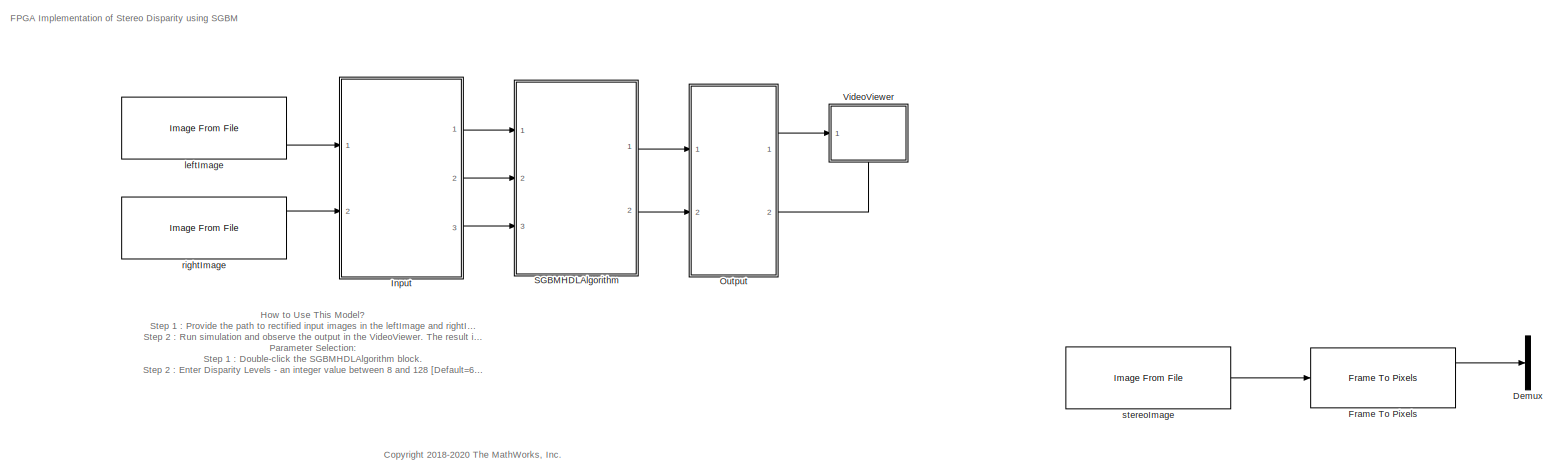
[diagram: root canvas - part 1/1, most of the canvas]
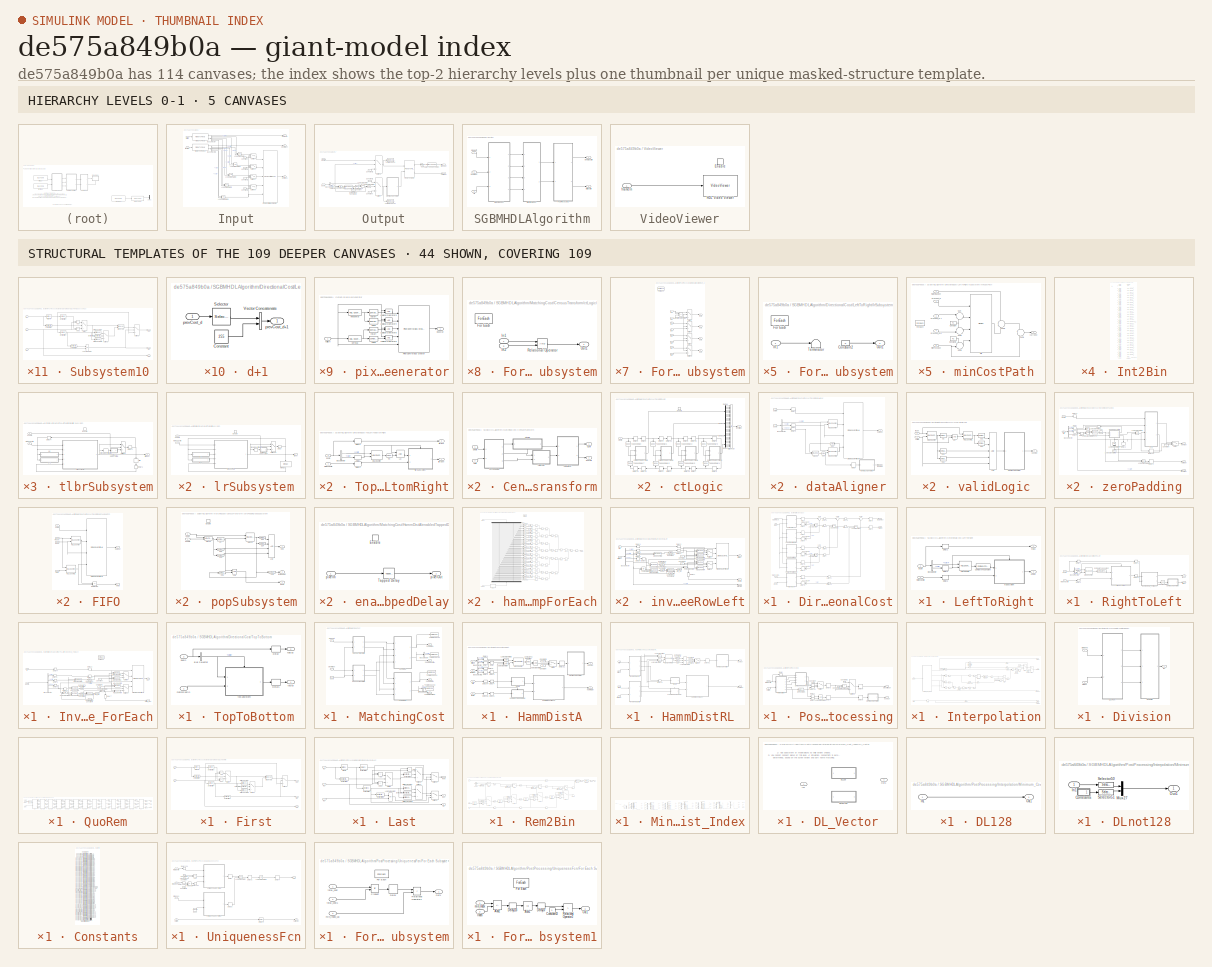
[diagram: thumbnail index - top-2 hierarchy levels (5 canvases) + 44 structural-template representatives of the remaining 109 canvases]
MODEL slx_de575a849b0a
KIND model
CONFIG AbsTol = auto
CONFIG EnableMultiTasking = off
CONFIG FixedStep = 1
CONFIG InitFcn = DL128 = Simulink.Variant('disparityLevels==128');\n\nDLnot128 = Simulink.Variant('disparityLevels ~= 128');\n\nimg = imread(get_param('SGBMDisparityExample/leftImage','FileName'));\n\n[imgRowSize, imgColSize] = size(img);\n \nP2 = 200; % Smoothness Penalty Large\nP1 = 15;  % Smoothness Penalty Small\n\ndisparityFactor = 16;\n\nuniquenessRatio = str2num(get_param('SGBMDisparityExample/SGBMHDLAlgorithm','UT'));\n...<+591ch>
CONFIG MaxStep = auto
CONFIG MinStep = auto
CONFIG PreLoadFcn = DL128 = Simulink.Variant('disparityLevels==128');\n\nDLnot128 = Simulink.Variant('disparityLevels ~= 128');\n\ndisparityLevels = 64;\n\nimgRowSize = 480;\n\nimgColSize = 640;\n\nP2 = 200; % Smoothness Penalty Large\nP1 = 15;  % Smoothness Penalty Small\n\ndisparityFactor = 16;\n\nuniquenessRatio = 5;\n\np = imgColSize - 1;\nq = imgRowSize * imgColSize -1;\nr = imgColSize - disparityLevels -1;\ns = (imgRowSize*(imgCol...<+54ch>
CONFIG RelTol = 1e-3
CONFIG SampleTimeConstraint = Unconstrained
CONFIG SolverName = FixedStepDiscrete
CONFIG StartTime = 0.0
CONFIG StopTime = simT
BLOCK [Demux] Demux
  Outputs = 3
  Ports = [1, 3]
BLOCK [Reference] Frame To Pixels  REF=visionhdlio/Frame To Pixels
  Ports = [1, 2]
  SourceBlock = visionhdlio/Frame To Pixels
  SourceProductBaseCode = VT
  SourceType = Frame To Pixels
BLOCK [SubSystem] Input
  Ports = [2, 3]
  RequestExecContextInheritance = off
BLOCK [BusSelector] Input/Bus Selector
  OutputSignals = hStart,hEnd,vStart,vEnd,valid
  Ports = [1, 5]
BLOCK [BusSelector] Input/Bus Selector1
  OutputSignals = hStart,hEnd,vStart,vEnd,valid
  Ports = [1, 5]
BLOCK [Constant] Input/Constant
  OutDataTypeStr = boolean
  SampleTime = -1
  Value = 0
BLOCK [Constant] Input/Constant1
  OutDataTypeStr = boolean
  SampleTime = -1
  Value = 0
BLOCK [Constant] Input/Constant2
  OutDataTypeStr = boolean
  SampleTime = -1
  Value = 0
BLOCK [Constant] Input/Constant3
  OutDataTypeStr = boolean
  SampleTime = -1
  Value = 0
BLOCK [Reference] Input/Frame To Pixels  REF=visionhdlio/Frame To Pixels
  Ports = [1, 2]
  SourceBlock = visionhdlio/Frame To Pixels
  SourceProductBaseCode = VT
  SourceType = Frame To Pixels
BLOCK [Reference] Input/Frame To Pixels1  REF=visionhdlio/Frame To Pixels
  Ports = [1, 2]
  SourceBlock = visionhdlio/Frame To Pixels
  SourceProductBaseCode = VT
  SourceType = Frame To Pixels
BLOCK [Logic] Input/Logical Operator
  AllPortsSameDT = off
  OutDataTypeStr = boolean
  Ports = [2, 1]
BLOCK [Logic] Input/Logical Operator1
  AllPortsSameDT = off
  OutDataTypeStr = boolean
  Ports = [2, 1]
BLOCK [Logic] Input/Logical Operator2
  AllPortsSameDT = off
  OutDataTypeStr = boolean
  Ports = [2, 1]
BLOCK [Logic] Input/Logical Operator3
  AllPortsSameDT = off
  OutDataTypeStr = boolean
  Ports = [2, 1]
BLOCK [Logic] Input/Logical Operator4
  AllPortsSameDT = off
  OutDataTypeStr = boolean
  Ports = [2, 1]
BLOCK [Reference] Input/Pixel Control Bus Creator  REF=visionhdlutilities/Pixel Control
Bus Creator
  Ports = [5, 1]
  SourceBlock = visionhdlutilities/Pixel Control\nBus Creator
  SourceProductBaseCode = VT
  SourceType = Pixel Control Bus Creator
BLOCK [Switch] Input/Switch
  Criteria = u2 ~= 0
  InputSameDT = off
  SaturateOnIntegerOverflow = off
BLOCK [Switch] Input/Switch1
  Criteria = u2 ~= 0
  InputSameDT = off
  SaturateOnIntegerOverflow = off
BLOCK [Switch] Input/Switch2
  Criteria = u2 ~= 0
  InputSameDT = off
  SaturateOnIntegerOverflow = off
BLOCK [Switch] Input/Switch3
  Criteria = u2 ~= 0
  InputSameDT = off
  SaturateOnIntegerOverflow = off
BLOCK [Inport] Input/leftImg
BLOCK [Outport] Input/pixelBus
  Port = 3
  VectorParamsAs1DForOutWhenUnconnected = off
BLOCK [Outport] Input/pixelLeft
  VectorParamsAs1DForOutWhenUnconnected = off
BLOCK [Outport] Input/pixelRight
  Port = 2
  VectorParamsAs1DForOutWhenUnconnected = off
BLOCK [Inport] Input/rightImg
  Port = 2
BLOCK [SubSystem] Output
  Ports = [2, 2]
  RequestExecContextInheritance = off
BLOCK [BusSelector] Output/Bus Selector
  OutputSignals = valid,vStart
  Ports = [1, 2]
BLOCK [Reference] Output/Compare To Constant  REF=simulink/Logic and Bit
Operations/Compare
To Constant
  Ports = [1, 1]
  SourceBlock = simulink/Logic and Bit\nOperations/Compare\nTo Constant
  SourceProductBaseCode = SL
  SourceType = Compare To Constant
BLOCK [Reference] Output/Compare To Constant1  REF=simulink/Logic and Bit
Operations/Compare
To Constant
  NameLocation = left
  Ports = [1, 1]
  SourceBlock = simulink/Logic and Bit\nOperations/Compare\nTo Constant
  SourceProductBaseCode = SL
  SourceType = Compare To Constant
BLOCK [Constant] Output/Constant
  OutDataTypeStr = boolean
  SampleTime = -1
  Value = 0
BLOCK [Constant] Output/Constant1
  OutDataTypeStr = boolean
  SampleTime = -1
BLOCK [Constant] Output/Constant2
  OutDataTypeStr = fixdt(1,14,5)
  SampleTime = -1
  Value = 0
BLOCK [DataTypeConversion] Output/Data Type Conversion
  OutDataTypeStr = uint8
  RndMeth = Floor
  SaturateOnIntegerOverflow = off
BLOCK [Gain] Output/Gain
  Gain = dtGain
BLOCK [Reference] Output/HDL Counter  REF=hdlsllib/Sources/HDL Counter
  Ports = [1, 1]
  SourceBlock = hdlsllib/Sources/HDL Counter
  SourceProductBaseCode = SL
  SourceType = HDL Counter
BLOCK [Logic] Output/Logical Operator
  AllPortsSameDT = off
  OutDataTypeStr = boolean
  Ports = [2, 1]
BLOCK [Logic] Output/Logical Operator1
  AllPortsSameDT = off
  Operator = OR
  OutDataTypeStr = boolean
  Ports = [2, 1]
BLOCK [Logic] Output/Logical Operator2
  AllPortsSameDT = off
  Operator = OR
  OutDataTypeStr = boolean
  Ports = [2, 1]
BLOCK [Reference] Output/Pixels To Frame  REF=visionhdlio/Pixels To Frame
  Ports = [2, 2]
  SourceBlock = visionhdlio/Pixels To Frame
  SourceProductBaseCode = VT
  SourceType = Pixels To Frame
BLOCK [Switch] Output/Switch
  Criteria = u2 ~= 0
  InputSameDT = off
  SaturateOnIntegerOverflow = off
BLOCK [Switch] Output/Switch1
  Criteria = u2 ~= 0
  InputSameDT = off
  SaturateOnIntegerOverflow = off
BLOCK [Terminator] Output/Terminator
BLOCK [ToWorkspace] Output/To Workspace
  MaxDataPoints = inf
  Ports = [1]
  SampleTime = -1
  Save2DSignal = 2-D array (concatenate along first dimension)
  VariableName = dispMap
BLOCK [ToWorkspace] Output/To Workspace1
  MaxDataPoints = inf
  Ports = [1]
  SampleTime = -1
  Save2DSignal = 2-D array (concatenate along first dimension)
  VariableName = dispMapValid
BLOCK [Inport] Output/busIn
  Port = 2
BLOCK [Outport] Output/frameOut
  VectorParamsAs1DForOutWhenUnconnected = off
BLOCK [SubSystem] Output/pixelBusGenerator
  Ports = [1, 1]
  RequestExecContextInheritance = off
BLOCK [Reference] Output/pixelBusGenerator/Horizontal  REF=hdlsllib/Sources/HDL Counter
  Ports = [1, 1]
  SourceBlock = hdlsllib/Sources/HDL Counter
  SourceProductBaseCode = SL
  SourceType = HDL Counter
BLOCK [Logic] Output/pixelBusGenerator/Logical Operator3
  AllPortsSameDT = off
  OutDataTypeStr = boolean
  Ports = [2, 1]
BLOCK [Logic] Output/pixelBusGenerator/Logical Operator4
  AllPortsSameDT = off
  OutDataTypeStr = boolean
  Ports = [2, 1]
BLOCK [Logic] Output/pixelBusGenerator/Logical Operator5
  AllPortsSameDT = off
  OutDataTypeStr = boolean
  Ports = [2, 1]
BLOCK [Logic] Output/pixelBusGenerator/Logical Operator6
  AllPortsSameDT = off
  OutDataTypeStr = boolean
  Ports = [2, 1]
BLOCK [Reference] Output/pixelBusGenerator/Pixel Control Bus Creator  REF=visionhdlutilities/Pixel Control
Bus Creator
  Ports = [5, 1]
  SourceBlock = visionhdlutilities/Pixel Control\nBus Creator
  SourceProductBaseCode = VT
  SourceType = Pixel Control Bus Creator
BLOCK [Reference] Output/pixelBusGenerator/Vertical  REF=hdlsllib/Sources/HDL Counter
  Ports = [1, 1]
  SourceBlock = hdlsllib/Sources/HDL Counter
  SourceProductBaseCode = SL
  SourceType = HDL Counter
BLOCK [Outport] Output/pixelBusGenerator/busOut
  VectorParamsAs1DForOutWhenUnconnected = off
BLOCK [Reference] Output/pixelBusGenerator/hEnd  REF=simulink/Logic and Bit
Operations/Compare
To Constant
  Ports = [1, 1]
  SourceBlock = simulink/Logic and Bit\nOperations/Compare\nTo Constant
  SourceProductBaseCode = SL
  SourceType = Compare To Constant
BLOCK [Reference] Output/pixelBusGenerator/hStart  REF=simulink/Logic and Bit
Operations/Compare
To Constant
  Ports = [1, 1]
  SourceBlock = simulink/Logic and Bit\nOperations/Compare\nTo Constant
  SourceProductBaseCode = SL
  SourceType = Compare To Constant
BLOCK [Reference] Output/pixelBusGenerator/vEnd  REF=simulink/Logic and Bit
Operations/Compare
To Constant
  Ports = [1, 1]
  SourceBlock = simulink/Logic and Bit\nOperations/Compare\nTo Constant
  SourceProductBaseCode = SL
  SourceType = Compare To Constant
BLOCK [Reference] Output/pixelBusGenerator/vStart  REF=simulink/Logic and Bit
Operations/Compare
To Constant
  Ports = [1, 1]
  SourceBlock = simulink/Logic and Bit\nOperations/Compare\nTo Constant
  SourceProductBaseCode = SL
  SourceType = Compare To Constant
BLOCK [Inport] Output/pixelBusGenerator/validIn
BLOCK [Inport] Output/pixelIn
BLOCK [Outport] Output/validOut
  Port = 2
  VectorParamsAs1DForOutWhenUnconnected = off
BLOCK [SubSystem] SGBMHDLAlgorithm
  Ports = [3, 2]
  RequestExecContextInheritance = off
BLOCK [SubSystem] SGBMHDLAlgorithm/DirectionalCost
  Ports = [4, 2]
  RequestExecContextInheritance = off
BLOCK [BusSelector] SGBMHDLAlgorithm/DirectionalCost/Bus Selector
  OutputSignals = valid
  Ports = [1, 1]
BLOCK [BusSelector] SGBMHDLAlgorithm/DirectionalCost/Bus Selector1
  OutputSignals = valid
  Ports = [1, 1]
BLOCK [BusSelector] SGBMHDLAlgorithm/DirectionalCost/Bus Selector2
  OutputSignals = valid
  Ports = [1, 1]
BLOCK [BusSelector] SGBMHDLAlgorithm/DirectionalCost/Bus Selector3
  OutputSignals = valid
  Ports = [1, 1]
BLOCK [BusSelector] SGBMHDLAlgorithm/DirectionalCost/Bus Selector4
  OutputSignals = valid
  Ports = [1, 1]
BLOCK [Delay] SGBMHDLAlgorithm/DirectionalCost/Delay
  DelayLength = 6
  InputPortMap = u0
  Ports = [1, 1]
BLOCK [Delay] SGBMHDLAlgorithm/DirectionalCost/Delay1
  DelayLength = 6
  InputPortMap = u0
  Ports = [1, 1]
BLOCK [Delay] SGBMHDLAlgorithm/DirectionalCost/Delay10
  DelayLength = 1
  InputPortMap = u0
  Ports = [1, 1]
BLOCK [Delay] SGBMHDLAlgorithm/DirectionalCost/Delay11
  DelayLength = 1
  InputPortMap = u0
  Ports = [1, 1]
BLOCK [Delay] SGBMHDLAlgorithm/DirectionalCost/Delay12
  InputPortMap = u0
  Ports = [1, 1]
BLOCK [Delay] SGBMHDLAlgorithm/DirectionalCost/Delay13
  InputPortMap = u0
  Ports = [1, 1]
BLOCK [Delay] SGBMHDLAlgorithm/DirectionalCost/Delay14
  DelayLength = 1
  InputPortMap = u0
  Ports = [1, 1]
BLOCK [Delay] SGBMHDLAlgorithm/DirectionalCost/Delay15
  DelayLength = 1
  InputPortMap = u0
  Ports = [1, 1]
BLOCK [Delay] SGBMHDLAlgorithm/DirectionalCost/Delay16
  DelayLength = 6
  InputPortMap = u0
  Ports = [1, 1]
BLOCK [Delay] SGBMHDLAlgorithm/DirectionalCost/Delay17
  DelayLength = 6
  InputPortMap = u0
  Ports = [1, 1]
BLOCK [Delay] SGBMHDLAlgorithm/DirectionalCost/Delay18
  DelayLength = 1
  InputPortMap = u0
  Ports = [1, 1]
BLOCK [Delay] SGBMHDLAlgorithm/DirectionalCost/Delay19
  DelayLength = 1
  InputPortMap = u0
  Ports = [1, 1]
BLOCK [Delay] SGBMHDLAlgorithm/DirectionalCost/Delay2
  DelayLength = 6
  InputPortMap = u0
  Ports = [1, 1]
BLOCK [Delay] SGBMHDLAlgorithm/DirectionalCost/Delay3
  DelayLength = 6
  InputPortMap = u0
  Ports = [1, 1]
BLOCK [Delay] SGBMHDLAlgorithm/DirectionalCost/Delay4
  DelayLength = 6
  InputPortMap = u0
  Ports = [1, 1]
BLOCK [Delay] SGBMHDLAlgorithm/DirectionalCost/Delay5
  DelayLength = 1
  InputPortMap = u0
  Ports = [1, 1]
BLOCK [Delay] SGBMHDLAlgorithm/DirectionalCost/Delay6
  DelayLength = 6
  InputPortMap = u0
  Ports = [1, 1]
BLOCK [Delay] SGBMHDLAlgorithm/DirectionalCost/Delay7
  DelayLength = 1
  InputPortMap = u0
  Ports = [1, 1]
BLOCK [Delay] SGBMHDLAlgorithm/DirectionalCost/Delay8
  DelayLength = 1
  InputPortMap = u0
  Ports = [1, 1]
BLOCK [Delay] SGBMHDLAlgorithm/DirectionalCost/Delay9
  DelayLength = 1
  InputPortMap = u0
  Ports = [1, 1]
BLOCK [SubSystem] SGBMHDLAlgorithm/DirectionalCost/LeftToRight
  Ports = [2, 2]
  RequestExecContextInheritance = off
BLOCK [BusSelector] SGBMHDLAlgorithm/DirectionalCost/LeftToRight/Bus Selector
  OutputSignals = vStart,valid
  Ports = [1, 2]
BLOCK [Reference] SGBMHDLAlgorithm/DirectionalCost/LeftToRight/Compare To Constant  REF=simulink/Logic and Bit
Operations/Compare
To Constant
  Ports = [1, 1]
  SourceBlock = simulink/Logic and Bit\nOperations/Compare\nTo Constant
  SourceProductBaseCode = SL
  SourceType = Compare To Constant
BLOCK [Delay] SGBMHDLAlgorithm/DirectionalCost/LeftToRight/Delay1
  DelayLength = 1
  InputPortMap = u0
  Ports = [1, 1]
BLOCK [Delay] SGBMHDLAlgorithm/DirectionalCost/LeftToRight/Delay2
  DelayLength = 1
  InputPortMap = u0
  Ports = [1, 1]
BLOCK [Delay] SGBMHDLAlgorithm/DirectionalCost/LeftToRight/Delay3
  DelayLength = 1
  InputPortMap = u0
  Ports = [1, 1]
BLOCK [Reference] SGBMHDLAlgorithm/DirectionalCost/LeftToRight/HDL Counter  REF=hdlsllib/Sources/HDL Counter
  Ports = [2, 1]
  SourceBlock = hdlsllib/Sources/HDL Counter
  SourceProductBaseCode = SL
  SourceType = HDL Counter
BLOCK [Inport] SGBMHDLAlgorithm/DirectionalCost/LeftToRight/busIn
  Port = 2
BLOCK [Outport] SGBMHDLAlgorithm/DirectionalCost/LeftToRight/lrBus
  Port = 2
  VectorParamsAs1DForOutWhenUnconnected = off
BLOCK [Outport] SGBMHDLAlgorithm/DirectionalCost/LeftToRight/lrCost
  VectorParamsAs1DForOutWhenUnconnected = off
BLOCK [SubSystem] SGBMHDLAlgorithm/DirectionalCost/LeftToRight/lrSubsystem
  Ports = [2, 1, 1]
  RequestExecContextInheritance = off
BLOCK [Delay] SGBMHDLAlgorithm/DirectionalCost/LeftToRight/lrSubsystem/Delay
  DelayLength = 1
  InputPortMap = u0
  Ports = [1, 1]
BLOCK [EnablePort] SGBMHDLAlgorithm/DirectionalCost/LeftToRight/lrSubsystem/Enable
  Ports = []
BLOCK [SubSystem] SGBMHDLAlgorithm/DirectionalCost/LeftToRight/lrSubsystem/For Each Subsystem
  Ports = [1, 1]
  RequestExecContextInheritance = off
  TreatAsAtomicUnit = on
BLOCK [Constant] SGBMHDLAlgorithm/DirectionalCost/LeftToRight/lrSubsystem/For Each Subsystem/Constant2
  OutDataTypeStr = boolean
  SampleTime = -1
  Value = 0
BLOCK [ForEach] SGBMHDLAlgorithm/DirectionalCost/LeftToRight/lrSubsystem/For Each Subsystem/For Each
  DisableCoverage = on
  Ports = []
BLOCK [Inport] SGBMHDLAlgorithm/DirectionalCost/LeftToRight/lrSubsystem/For Each Subsystem/In1
  Partition = on
  PartitionDimension = 1
  PartitionOffset = 0
  PartitionWidth = 1
BLOCK [Outport] SGBMHDLAlgorithm/DirectionalCost/LeftToRight/lrSubsystem/For Each Subsystem/Out1
  ConcatenationDimension = 1
  VectorParamsAs1DForOutWhenUnconnected = off
BLOCK [Terminator] SGBMHDLAlgorithm/DirectionalCost/LeftToRight/lrSubsystem/For Each Subsystem/Terminator
BLOCK [MinMax] SGBMHDLAlgorithm/DirectionalCost/LeftToRight/lrSubsystem/MinMax1
  Ports = [1, 1]
  ZeroCross = off
BLOCK [SignalSpecification] SGBMHDLAlgorithm/DirectionalCost/LeftToRight/lrSubsystem/Signal Specification
  Dimensions = disparityLevels
BLOCK [Switch] SGBMHDLAlgorithm/DirectionalCost/LeftToRight/lrSubsystem/Switch32
  Criteria = u2 ~= 0
  InputSameDT = off
  SaturateOnIntegerOverflow = off
BLOCK [SubSystem] SGBMHDLAlgorithm/DirectionalCost/LeftToRight/lrSubsystem/d+1
  Ports = [1, 1]
  RequestExecContextInheritance = off
BLOCK [Constant] SGBMHDLAlgorithm/DirectionalCost/LeftToRight/lrSubsystem/d+1/Constant
  OutDataTypeStr = fixdt(1,10,0)
  SampleTime = -1
  Value = 255
BLOCK [Selector] SGBMHDLAlgorithm/DirectionalCost/LeftToRight/lrSubsystem/d+1/Selector
  IndexOptions = Index vector (dialog)
  Indices = [2:disparityLevels]
  InputPortWidth = disparityLevels
  OutputSizes = 1
  Ports = [1, 1]
BLOCK [Concatenate] SGBMHDLAlgorithm/DirectionalCost/LeftToRight/lrSubsystem/d+1/Vector Concatenate
  Ports = [2, 1]
BLOCK [Inport] SGBMHDLAlgorithm/DirectionalCost/LeftToRight/lrSubsystem/d+1/prevCost_d
BLOCK [Outport] SGBMHDLAlgorithm/DirectionalCost/LeftToRight/lrSubsystem/d+1/prevCost_d+1
  VectorParamsAs1DForOutWhenUnconnected = off
BLOCK [SubSystem] SGBMHDLAlgorithm/DirectionalCost/LeftToRight/lrSubsystem/d-1
  Ports = [1, 1]
  RequestExecContextInheritance = off
BLOCK [Constant] SGBMHDLAlgorithm/DirectionalCost/LeftToRight/lrSubsystem/d-1/Constant
  OutDataTypeStr = fixdt(1,10,0)
  SampleTime = -1
  Value = 255
BLOCK [Selector] SGBMHDLAlgorithm/DirectionalCost/LeftToRight/lrSubsystem/d-1/Selector
  IndexOptions = Index vector (dialog)
  Indices = [1:disparityLevels-1]
  InputPortWidth = disparityLevels
  OutputSizes = 1
  Ports = [1, 1]
BLOCK [Concatenate] SGBMHDLAlgorithm/DirectionalCost/LeftToRight/lrSubsystem/d-1/Vector Concatenate
  Ports = [2, 1]
BLOCK [Inport] SGBMHDLAlgorithm/DirectionalCost/LeftToRight/lrSubsystem/d-1/prevCost_d
BLOCK [Outport] SGBMHDLAlgorithm/DirectionalCost/LeftToRight/lrSubsystem/d-1/prevCost_d-1
  VectorParamsAs1DForOutWhenUnconnected = off
BLOCK [Inport] SGBMHDLAlgorithm/DirectionalCost/LeftToRight/lrSubsystem/enable
BLOCK [Outport] SGBMHDLAlgorithm/DirectionalCost/LeftToRight/lrSubsystem/lrCost
  InitialOutput = 0
  VectorParamsAs1DForOutWhenUnconnected = off
BLOCK [Inport] SGBMHDLAlgorithm/DirectionalCost/LeftToRight/lrSubsystem/matchCostIn
  Port = 2
BLOCK [SubSystem] SGBMHDLAlgorithm/DirectionalCost/LeftToRight/lrSubsystem/minCostPath
  Ports = [5, 1]
  RequestExecContextInheritance = off
  TreatAsAtomicUnit = on
BLOCK [Constant] SGBMHDLAlgorithm/DirectionalCost/LeftToRight/lrSubsystem/minCostPath/Constant
  OutDataTypeStr = fixdt(0,5,0)
  SampleTime = -1
  Value = P1
BLOCK [Constant] SGBMHDLAlgorithm/DirectionalCost/LeftToRight/lrSubsystem/minCostPath/Constant1
  OutDataTypeStr = uint8
  SampleTime = -1
  Value = P2
BLOCK [ForEach] SGBMHDLAlgorithm/DirectionalCost/LeftToRight/lrSubsystem/minCostPath/For Each
  DisableCoverage = on
  Ports = []
BLOCK [MinMax] SGBMHDLAlgorithm/DirectionalCost/LeftToRight/lrSubsystem/minCostPath/Min
  Inputs = 4
  Ports = [4, 1]
BLOCK [Sum] SGBMHDLAlgorithm/DirectionalCost/LeftToRight/lrSubsystem/minCostPath/Sum
  Inputs = |++
  OutDataTypeStr = fixdt(0,13,0)
  Ports = [2, 1]
  SaturateOnIntegerOverflow = on
BLOCK [Sum] SGBMHDLAlgorithm/DirectionalCost/LeftToRight/lrSubsystem/minCostPath/Sum1
  Inputs = ++|
  OutDataTypeStr = fixdt(0,13,0)
  Ports = [2, 1]
  SaturateOnIntegerOverflow = on
BLOCK [Sum] SGBMHDLAlgorithm/DirectionalCost/LeftToRight/lrSubsystem/minCostPath/Sum2
  Inputs = ++|
  OutDataTypeStr = int16
  Ports = [2, 1]
  SaturateOnIntegerOverflow = on
BLOCK [Sum] SGBMHDLAlgorithm/DirectionalCost/LeftToRight/lrSubsystem/minCostPath/Sum3
  OutDataTypeStr = fixdt(1,17,0)
  Ports = [2, 1]
  SaturateOnIntegerOverflow = on
BLOCK [Sum] SGBMHDLAlgorithm/DirectionalCost/LeftToRight/lrSubsystem/minCostPath/Sum4
  Inputs = +-
  OutDataTypeStr = fixdt(1,10,0)
  Ports = [2, 1]
  SaturateOnIntegerOverflow = on
BLOCK [Outport] SGBMHDLAlgorithm/DirectionalCost/LeftToRight/lrSubsystem/minCostPath/currCost
  ConcatenationDimension = 1
  VectorParamsAs1DForOutWhenUnconnected = off
BLOCK [Inport] SGBMHDLAlgorithm/DirectionalCost/LeftToRight/lrSubsystem/minCostPath/matchingCost
  Partition = on
  PartitionDimension = 1
  PartitionOffset = 0
  PartitionWidth = 1
BLOCK [Inport] SGBMHDLAlgorithm/DirectionalCost/LeftToRight/lrSubsystem/minCostPath/minPrevCost
  Port = 5
BLOCK [Inport] SGBMHDLAlgorithm/DirectionalCost/LeftToRight/lrSubsystem/minCostPath/prevCost_d
  Partition = on
  PartitionDimension = 1
  PartitionOffset = 0
  PartitionWidth = 1
  Port = 2
BLOCK [Inport] SGBMHDLAlgorithm/DirectionalCost/LeftToRight/lrSubsystem/minCostPath/prevCost_d+1
  Partition = on
  PartitionDimension = 1
  PartitionOffset = 0
  PartitionWidth = 1
  Port = 4
BLOCK [Inport] SGBMHDLAlgorithm/DirectionalCost/LeftToRight/lrSubsystem/minCostPath/prevCost_d-1
  Partition = on
  PartitionDimension = 1
  PartitionOffset = 0
  PartitionWidth = 1
  Port = 3
BLOCK [Inport] SGBMHDLAlgorithm/DirectionalCost/LeftToRight/matchCostIn
BLOCK [Logic] SGBMHDLAlgorithm/DirectionalCost/Logical Operator
  AllPortsSameDT = off
  OutDataTypeStr = boolean
  Ports = [2, 1]
BLOCK [Logic] SGBMHDLAlgorithm/DirectionalCost/Logical Operator1
  AllPortsSameDT = off
  OutDataTypeStr = boolean
  Ports = [2, 1]
BLOCK [Logic] SGBMHDLAlgorithm/DirectionalCost/Logical Operator2
  AllPortsSameDT = off
  OutDataTypeStr = boolean
  Ports = [2, 1]
BLOCK [Logic] SGBMHDLAlgorithm/DirectionalCost/Logical Operator3
  AllPortsSameDT = off
  OutDataTypeStr = boolean
  Ports = [2, 1]
BLOCK [SubSystem] SGBMHDLAlgorithm/DirectionalCost/RightToLeft
  Ports = [2, 2]
  RequestExecContextInheritance = off
BLOCK [BusSelector] SGBMHDLAlgorithm/DirectionalCost/RightToLeft/Bus Selector1
  OutputSignals = vStart,valid
  Ports = [1, 2]
BLOCK [Reference] SGBMHDLAlgorithm/DirectionalCost/RightToLeft/Compare To Constant  REF=simulink/Logic and Bit
Operations/Compare
To Constant
  Ports = [1, 1]
  SourceBlock = simulink/Logic and Bit\nOperations/Compare\nTo Constant
  SourceProductBaseCode = SL
  SourceType = Compare To Constant
BLOCK [Delay] SGBMHDLAlgorithm/DirectionalCost/RightToLeft/Delay1
  DelayLength = 1
  InputPortMap = u0
  Ports = [1, 1]
BLOCK [Delay] SGBMHDLAlgorithm/DirectionalCost/RightToLeft/Delay2
  DelayLength = 1
  InputPortMap = u0
  Ports = [1, 1]
BLOCK [Delay] SGBMHDLAlgorithm/DirectionalCost/RightToLeft/Delay3
  DelayLength = 1
  InputPortMap = u0
  Ports = [1, 1]
BLOCK [Delay] SGBMHDLAlgorithm/DirectionalCost/RightToLeft/Delay4
  DelayLength = 1
  InputPortMap = u0
  Ports = [1, 1]
BLOCK [Delay] SGBMHDLAlgorithm/DirectionalCost/RightToLeft/Delay6
  DelayLength = 1
  InputPortMap = u0
  Ports = [1, 1]
BLOCK [Reference] SGBMHDLAlgorithm/DirectionalCost/RightToLeft/HDL Counter  REF=hdlsllib/Sources/HDL Counter
  Ports = [2, 1]
  SourceBlock = hdlsllib/Sources/HDL Counter
  SourceProductBaseCode = SL
  SourceType = HDL Counter
BLOCK [SubSystem] SGBMHDLAlgorithm/DirectionalCost/RightToLeft/InverseRow_ForEach
  Ports = [2, 2]
  RequestExecContextInheritance = off
  TreatAsAtomicUnit = on
BLOCK [BusSelector] SGBMHDLAlgorithm/DirectionalCost/RightToLeft/InverseRow_ForEach/Bus Selector
  OutputSignals = valid,hStart,hEnd,vStart
  Ports = [1, 4]
BLOCK [Reference] SGBMHDLAlgorithm/DirectionalCost/RightToLeft/InverseRow_ForEach/Compare To Constant  REF=simulink/Logic and Bit
Operations/Compare
To Constant
  Ports = [1, 1]
  SourceBlock = simulink/Logic and Bit\nOperations/Compare\nTo Constant
  SourceProductBaseCode = SL
  SourceType = Compare To Constant
BLOCK [Reference] SGBMHDLAlgorithm/DirectionalCost/RightToLeft/InverseRow_ForEach/Compare To Constant1  REF=simulink/Logic and Bit
Operations/Compare
To Constant
  Ports = [1, 1]
  SourceBlock = simulink/Logic and Bit\nOperations/Compare\nTo Constant
  SourceProductBaseCode = SL
  SourceType = Compare To Constant
BLOCK [Reference] SGBMHDLAlgorithm/DirectionalCost/RightToLeft/InverseRow_ForEach/Compare To Constant3  REF=simulink/Logic and Bit
Operations/Compare
To Constant
  Ports = [1, 1]
  SourceBlock = simulink/Logic and Bit\nOperations/Compare\nTo Constant
  SourceProductBaseCode = SL
  SourceType = Compare To Constant
BLOCK [Reference] SGBMHDLAlgorithm/DirectionalCost/RightToLeft/InverseRow_ForEach/Compare To Constant4  REF=simulink/Logic and Bit
Operations/Compare
To Constant
  Ports = [1, 1]
  SourceBlock = simulink/Logic and Bit\nOperations/Compare\nTo Constant
  SourceProductBaseCode = SL
  SourceType = Compare To Constant
BLOCK [Constant] SGBMHDLAlgorithm/DirectionalCost/RightToLeft/InverseRow_ForEach/Constant
  OutDataTypeStr = boolean
  SampleTime = -1
  Value = 0
BLOCK [Constant] SGBMHDLAlgorithm/DirectionalCost/RightToLeft/InverseRow_ForEach/Constant1
  OutDataTypeStr = boolean
  SampleTime = -1
  Value = 0
BLOCK [Delay] SGBMHDLAlgorithm/DirectionalCost/RightToLeft/InverseRow_ForEach/Delay1
  DelayLength = 1
  InputPortMap = u0
  Ports = [1, 1]
BLOCK [Delay] SGBMHDLAlgorithm/DirectionalCost/RightToLeft/InverseRow_ForEach/Delay2
  DelayLength = 1
  InputPortMap = u0
  Ports = [1, 1]
BLOCK [Delay] SGBMHDLAlgorithm/DirectionalCost/RightToLeft/InverseRow_ForEach/Delay3
  DelayLength = 1
  InputPortMap = u0
  Ports = [1, 1]
BLOCK [Delay] SGBMHDLAlgorithm/DirectionalCost/RightToLeft/InverseRow_ForEach/Delay4
  DelayLength = 1
  InputPortMap = u0
  Ports = [1, 1]
BLOCK [Delay] SGBMHDLAlgorithm/DirectionalCost/RightToLeft/InverseRow_ForEach/Delay5
  DelayLength = 1
  InputPortMap = u0
  Ports = [1, 1]
BLOCK [Delay] SGBMHDLAlgorithm/DirectionalCost/RightToLeft/InverseRow_ForEach/Delay6
  DelayLength = 1
  InputPortMap = u0
  Ports = [1, 1]
BLOCK [Delay] SGBMHDLAlgorithm/DirectionalCost/RightToLeft/InverseRow_ForEach/Delay7
  DelayLength = 1
  InputPortMap = u0
  NameLocation = left
  Ports = [1, 1]
BLOCK [Delay] SGBMHDLAlgorithm/DirectionalCost/RightToLeft/InverseRow_ForEach/Delay8
  DelayLength = 1
  InputPortMap = u0
  Ports = [1, 1]
BLOCK [ForEach] SGBMHDLAlgorithm/DirectionalCost/RightToLeft/InverseRow_ForEach/For Each
  DisableCoverage = on
  Ports = []
BLOCK [Reference] SGBMHDLAlgorithm/DirectionalCost/RightToLeft/InverseRow_ForEach/HDL Counter  REF=hdlsllib/Sources/HDL Counter
  Ports = [2, 1]
  SourceBlock = hdlsllib/Sources/HDL Counter
  SourceProductBaseCode = SL
  SourceType = HDL Counter
BLOCK [Reference] SGBMHDLAlgorithm/DirectionalCost/RightToLeft/InverseRow_ForEach/HDL Counter1  REF=hdlsllib/Sources/HDL Counter
  Ports = [3, 1]
  SourceBlock = hdlsllib/Sources/HDL Counter
  SourceProductBaseCode = SL
  SourceType = HDL Counter
BLOCK [Reference] SGBMHDLAlgorithm/DirectionalCost/RightToLeft/InverseRow_ForEach/HDL Counter2  REF=hdlsllib/Sources/HDL Counter
  Ports = [2, 1]
  SourceBlock = hdlsllib/Sources/HDL Counter
  SourceProductBaseCode = SL
  SourceType = HDL Counter
BLOCK [Reference] SGBMHDLAlgorithm/DirectionalCost/RightToLeft/InverseRow_ForEach/HDL Counter3  REF=hdlsllib/Sources/HDL Counter
  Ports = [3, 1]
  SourceBlock = hdlsllib/Sources/HDL Counter
  SourceProductBaseCode = SL
  SourceType = HDL Counter
BLOCK [Reference] SGBMHDLAlgorithm/DirectionalCost/RightToLeft/InverseRow_ForEach/HDL Counter4  REF=hdlsllib/Sources/HDL Counter
  Ports = [2, 1]
  SourceBlock = hdlsllib/Sources/HDL Counter
  SourceProductBaseCode = SL
  SourceType = HDL Counter
BLOCK [Reference] SGBMHDLAlgorithm/DirectionalCost/RightToLeft/InverseRow_ForEach/HDL Counter5  REF=hdlsllib/Sources/HDL Counter
  Ports = [2, 1]
  SourceBlock = hdlsllib/Sources/HDL Counter
  SourceProductBaseCode = SL
  SourceType = HDL Counter
BLOCK [Reference] SGBMHDLAlgorithm/DirectionalCost/RightToLeft/InverseRow_ForEach/HDL Counter6  REF=hdlsllib/Sources/HDL Counter
  Ports = [2, 1]
  SourceBlock = hdlsllib/Sources/HDL Counter
  SourceProductBaseCode = SL
  SourceType = HDL Counter
BLOCK [Reference] SGBMHDLAlgorithm/DirectionalCost/RightToLeft/InverseRow_ForEach/HDL Counter7  REF=hdlsllib/Sources/HDL Counter
  Ports = [2, 1]
  SourceBlock = hdlsllib/Sources/HDL Counter
  SourceProductBaseCode = SL
  SourceType = HDL Counter
BLOCK [Inport] SGBMHDLAlgorithm/DirectionalCost/RightToLeft/InverseRow_ForEach/In
  Partition = on
  PartitionDimension = 1
  PartitionOffset = 0
  PartitionWidth = 1
BLOCK [Logic] SGBMHDLAlgorithm/DirectionalCost/RightToLeft/InverseRow_ForEach/Logical Operator
  AllPortsSameDT = off
  OutDataTypeStr = boolean
  Ports = [2, 1]
BLOCK [Logic] SGBMHDLAlgorithm/DirectionalCost/RightToLeft/InverseRow_ForEach/Logical Operator1
  AllPortsSameDT = off
  Operator = OR
  OutDataTypeStr = boolean
  Ports = [2, 1]
BLOCK [Outport] SGBMHDLAlgorithm/DirectionalCost/RightToLeft/InverseRow_ForEach/Out
  ConcatenationDimension = 1
  VectorParamsAs1DForOutWhenUnconnected = off
BLOCK [Reference] SGBMHDLAlgorithm/DirectionalCost/RightToLeft/InverseRow_ForEach/Rd_En  REF=simulink/Logic and Bit
Operations/Compare
To Constant
  Ports = [1, 1]
  SourceBlock = simulink/Logic and Bit\nOperations/Compare\nTo Constant
  SourceProductBaseCode = SL
  SourceType = Compare To Constant
BLOCK [Reference] SGBMHDLAlgorithm/DirectionalCost/RightToLeft/InverseRow_ForEach/Simple Dual Port RAM  REF=hdlsllib/HDL RAMs/Simple Dual Port RAM
  Ports = [4, 1]
  SourceBlock = hdlsllib/HDL RAMs/Simple Dual Port RAM
  SourceProductBaseCode = SL
  SourceType = Simple Dual-port RAM
BLOCK [Switch] SGBMHDLAlgorithm/DirectionalCost/RightToLeft/InverseRow_ForEach/Switch
  Criteria = u2 ~= 0
  InputSameDT = off
  SaturateOnIntegerOverflow = off
BLOCK [Switch] SGBMHDLAlgorithm/DirectionalCost/RightToLeft/InverseRow_ForEach/Switch1
  Criteria = u2 ~= 0
  InputSameDT = off
  SaturateOnIntegerOverflow = off
BLOCK [Inport] SGBMHDLAlgorithm/DirectionalCost/RightToLeft/InverseRow_ForEach/busIn
  Port = 2
BLOCK [Outport] SGBMHDLAlgorithm/DirectionalCost/RightToLeft/InverseRow_ForEach/valid_Out
  ConcatenationDimension = 1
  Port = 2
  VectorParamsAs1DForOutWhenUnconnected = off
BLOCK [Logic] SGBMHDLAlgorithm/DirectionalCost/RightToLeft/Logical Operator
  AllPortsSameDT = off
  Inputs = 1
  OutDataTypeStr = boolean
  Ports = [1, 1]
BLOCK [Inport] SGBMHDLAlgorithm/DirectionalCost/RightToLeft/busIn
  Port = 2
BLOCK [Inport] SGBMHDLAlgorithm/DirectionalCost/RightToLeft/matchCostIn
BLOCK [SubSystem] SGBMHDLAlgorithm/DirectionalCost/RightToLeft/pixelBusGenerator
  Ports = [1, 1]
  RequestExecContextInheritance = off
BLOCK [Reference] SGBMHDLAlgorithm/DirectionalCost/RightToLeft/pixelBusGenerator/Horizontal  REF=hdlsllib/Sources/HDL Counter
  Ports = [1, 1]
  SourceBlock = hdlsllib/Sources/HDL Counter
  SourceProductBaseCode = SL
  SourceType = HDL Counter
BLOCK [Logic] SGBMHDLAlgorithm/DirectionalCost/RightToLeft/pixelBusGenerator/Logical Operator3
  AllPortsSameDT = off
  OutDataTypeStr = boolean
  Ports = [2, 1]
BLOCK [Logic] SGBMHDLAlgorithm/DirectionalCost/RightToLeft/pixelBusGenerator/Logical Operator4
  AllPortsSameDT = off
  OutDataTypeStr = boolean
  Ports = [2, 1]
BLOCK [Logic] SGBMHDLAlgorithm/DirectionalCost/RightToLeft/pixelBusGenerator/Logical Operator5
  AllPortsSameDT = off
  OutDataTypeStr = boolean
  Ports = [2, 1]
BLOCK [Logic] SGBMHDLAlgorithm/DirectionalCost/RightToLeft/pixelBusGenerator/Logical Operator6
  AllPortsSameDT = off
  OutDataTypeStr = boolean
  Ports = [2, 1]
BLOCK [Reference] SGBMHDLAlgorithm/DirectionalCost/RightToLeft/pixelBusGenerator/Pixel Control Bus Creator  REF=visionhdlutilities/Pixel Control
Bus Creator
  Ports = [5, 1]
  SourceBlock = visionhdlutilities/Pixel Control\nBus Creator
  SourceProductBaseCode = VT
  SourceType = Pixel Control Bus Creator
BLOCK [Reference] SGBMHDLAlgorithm/DirectionalCost/RightToLeft/pixelBusGenerator/Vertical  REF=hdlsllib/Sources/HDL Counter
  Ports = [1, 1]
  SourceBlock = hdlsllib/Sources/HDL Counter
  SourceProductBaseCode = SL
  SourceType = HDL Counter
BLOCK [Outport] SGBMHDLAlgorithm/DirectionalCost/RightToLeft/pixelBusGenerator/busOut
  VectorParamsAs1DForOutWhenUnconnected = off
BLOCK [Reference] SGBMHDLAlgorithm/DirectionalCost/RightToLeft/pixelBusGenerator/hEnd  REF=simulink/Logic and Bit
Operations/Compare
To Constant
  Ports = [1, 1]
  SourceBlock = simulink/Logic and Bit\nOperations/Compare\nTo Constant
  SourceProductBaseCode = SL
  SourceType = Compare To Constant
BLOCK [Reference] SGBMHDLAlgorithm/DirectionalCost/RightToLeft/pixelBusGenerator/hStart  REF=simulink/Logic and Bit
Operations/Compare
To Constant
  Ports = [1, 1]
  SourceBlock = simulink/Logic and Bit\nOperations/Compare\nTo Constant
  SourceProductBaseCode = SL
  SourceType = Compare To Constant
BLOCK [Reference] SGBMHDLAlgorithm/DirectionalCost/RightToLeft/pixelBusGenerator/vEnd  REF=simulink/Logic and Bit
Operations/Compare
To Constant
  Ports = [1, 1]
  SourceBlock = simulink/Logic and Bit\nOperations/Compare\nTo Constant
  SourceProductBaseCode = SL
  SourceType = Compare To Constant
BLOCK [Reference] SGBMHDLAlgorithm/DirectionalCost/RightToLeft/pixelBusGenerator/vStart  REF=simulink/Logic and Bit
Operations/Compare
To Constant
  Ports = [1, 1]
  SourceBlock = simulink/Logic and Bit\nOperations/Compare\nTo Constant
  SourceProductBaseCode = SL
  SourceType = Compare To Constant
BLOCK [Inport] SGBMHDLAlgorithm/DirectionalCost/RightToLeft/pixelBusGenerator/validIn
BLOCK [Outport] SGBMHDLAlgorithm/DirectionalCost/RightToLeft/rlBus
  Port = 2
  VectorParamsAs1DForOutWhenUnconnected = off
BLOCK [Outport] SGBMHDLAlgorithm/DirectionalCost/RightToLeft/rlCost
  VectorParamsAs1DForOutWhenUnconnected = off
BLOCK [SubSystem] SGBMHDLAlgorithm/DirectionalCost/RightToLeft/rlSubsystem
  Ports = [2, 1, 1]
  RequestExecContextInheritance = off
BLOCK [Delay] SGBMHDLAlgorithm/DirectionalCost/RightToLeft/rlSubsystem/Delay
  DelayLength = 1
  InputPortMap = u0
  Ports = [1, 1]
BLOCK [EnablePort] SGBMHDLAlgorithm/DirectionalCost/RightToLeft/rlSubsystem/Enable
  Ports = []
BLOCK [SubSystem] SGBMHDLAlgorithm/DirectionalCost/RightToLeft/rlSubsystem/For Each Subsystem
  Ports = [1, 1]
  RequestExecContextInheritance = off
  TreatAsAtomicUnit = on
BLOCK [Constant] SGBMHDLAlgorithm/DirectionalCost/RightToLeft/rlSubsystem/For Each Subsystem/Constant2
  OutDataTypeStr = boolean
  SampleTime = -1
  Value = 0
BLOCK [ForEach] SGBMHDLAlgorithm/DirectionalCost/RightToLeft/rlSubsystem/For Each Subsystem/For Each
  DisableCoverage = on
  Ports = []
BLOCK [Inport] SGBMHDLAlgorithm/DirectionalCost/RightToLeft/rlSubsystem/For Each Subsystem/In1
  Partition = on
  PartitionDimension = 1
  PartitionOffset = 0
  PartitionWidth = 1
BLOCK [Outport] SGBMHDLAlgorithm/DirectionalCost/RightToLeft/rlSubsystem/For Each Subsystem/Out1
  ConcatenationDimension = 1
  VectorParamsAs1DForOutWhenUnconnected = off
BLOCK [Terminator] SGBMHDLAlgorithm/DirectionalCost/RightToLeft/rlSubsystem/For Each Subsystem/Terminator
BLOCK [MinMax] SGBMHDLAlgorithm/DirectionalCost/RightToLeft/rlSubsystem/MinMax1
  Ports = [1, 1]
  ZeroCross = off
BLOCK [Outport] SGBMHDLAlgorithm/DirectionalCost/RightToLeft/rlSubsystem/Out1
  InitialOutput = 0
  VectorParamsAs1DForOutWhenUnconnected = off
BLOCK [SignalSpecification] SGBMHDLAlgorithm/DirectionalCost/RightToLeft/rlSubsystem/Signal Specification
  Dimensions = disparityLevels
BLOCK [Switch] SGBMHDLAlgorithm/DirectionalCost/RightToLeft/rlSubsystem/Switch32
  Criteria = u2 ~= 0
  InputSameDT = off
  SaturateOnIntegerOverflow = off
BLOCK [SubSystem] SGBMHDLAlgorithm/DirectionalCost/RightToLeft/rlSubsystem/d+1
  Ports = [1, 1]
  RequestExecContextInheritance = off
BLOCK [Constant] SGBMHDLAlgorithm/DirectionalCost/RightToLeft/rlSubsystem/d+1/Constant
  OutDataTypeStr = fixdt(1,10,0)
  SampleTime = -1
  Value = 255
BLOCK [Selector] SGBMHDLAlgorithm/DirectionalCost/RightToLeft/rlSubsystem/d+1/Selector
  IndexOptions = Index vector (dialog)
  Indices = [2:disparityLevels]
  InputPortWidth = disparityLevels
  OutputSizes = 1
  Ports = [1, 1]
BLOCK [Concatenate] SGBMHDLAlgorithm/DirectionalCost/RightToLeft/rlSubsystem/d+1/Vector Concatenate
  Ports = [2, 1]
BLOCK [Inport] SGBMHDLAlgorithm/DirectionalCost/RightToLeft/rlSubsystem/d+1/prev_cost_d
BLOCK [Outport] SGBMHDLAlgorithm/DirectionalCost/RightToLeft/rlSubsystem/d+1/prev_cost_d+1
  VectorParamsAs1DForOutWhenUnconnected = off
BLOCK [SubSystem] SGBMHDLAlgorithm/DirectionalCost/RightToLeft/rlSubsystem/d-1
  Ports = [1, 1]
  RequestExecContextInheritance = off
BLOCK [Constant] SGBMHDLAlgorithm/DirectionalCost/RightToLeft/rlSubsystem/d-1/Constant
  OutDataTypeStr = fixdt(1,10,0)
  SampleTime = -1
  Value = 255
BLOCK [Selector] SGBMHDLAlgorithm/DirectionalCost/RightToLeft/rlSubsystem/d-1/Selector
  IndexOptions = Index vector (dialog)
  Indices = [1:disparityLevels-1]
  InputPortWidth = disparityLevels
  OutputSizes = 1
  Ports = [1, 1]
BLOCK [Concatenate] SGBMHDLAlgorithm/DirectionalCost/RightToLeft/rlSubsystem/d-1/Vector Concatenate
  Ports = [2, 1]
BLOCK [Inport] SGBMHDLAlgorithm/DirectionalCost/RightToLeft/rlSubsystem/d-1/prev_cost_d
BLOCK [Outport] SGBMHDLAlgorithm/DirectionalCost/RightToLeft/rlSubsystem/d-1/prev_cost_d-1
  VectorParamsAs1DForOutWhenUnconnected = off
BLOCK [Inport] SGBMHDLAlgorithm/DirectionalCost/RightToLeft/rlSubsystem/enable
BLOCK [Inport] SGBMHDLAlgorithm/DirectionalCost/RightToLeft/rlSubsystem/matchCostIn
  Port = 2
BLOCK [SubSystem] SGBMHDLAlgorithm/DirectionalCost/RightToLeft/rlSubsystem/minCostPath
  Ports = [5, 1]
  RequestExecContextInheritance = off
  TreatAsAtomicUnit = on
BLOCK [Constant] SGBMHDLAlgorithm/DirectionalCost/RightToLeft/rlSubsystem/minCostPath/Constant
  OutDataTypeStr = fixdt(0,5,0)
  SampleTime = -1
  Value = P1
BLOCK [Constant] SGBMHDLAlgorithm/DirectionalCost/RightToLeft/rlSubsystem/minCostPath/Constant1
  OutDataTypeStr = uint8
  SampleTime = -1
  Value = P2
BLOCK [ForEach] SGBMHDLAlgorithm/DirectionalCost/RightToLeft/rlSubsystem/minCostPath/For Each
  DisableCoverage = on
  Ports = []
BLOCK [Inport] SGBMHDLAlgorithm/DirectionalCost/RightToLeft/rlSubsystem/minCostPath/Matching_Cost
  Partition = on
  PartitionDimension = 1
  PartitionOffset = 0
  PartitionWidth = 1
BLOCK [MinMax] SGBMHDLAlgorithm/DirectionalCost/RightToLeft/rlSubsystem/minCostPath/Min
  Inputs = 4
  Ports = [4, 1]
BLOCK [Sum] SGBMHDLAlgorithm/DirectionalCost/RightToLeft/rlSubsystem/minCostPath/Sum
  Inputs = |++
  OutDataTypeStr = fixdt(0,13,0)
  Ports = [2, 1]
  SaturateOnIntegerOverflow = on
BLOCK [Sum] SGBMHDLAlgorithm/DirectionalCost/RightToLeft/rlSubsystem/minCostPath/Sum1
  Inputs = ++|
  OutDataTypeStr = fixdt(0,13,0)
  Ports = [2, 1]
  SaturateOnIntegerOverflow = on
BLOCK [Sum] SGBMHDLAlgorithm/DirectionalCost/RightToLeft/rlSubsystem/minCostPath/Sum2
  Inputs = ++|
  OutDataTypeStr = int16
  Ports = [2, 1]
  SaturateOnIntegerOverflow = on
BLOCK [Sum] SGBMHDLAlgorithm/DirectionalCost/RightToLeft/rlSubsystem/minCostPath/Sum3
  OutDataTypeStr = fixdt(1,17,0)
  Ports = [2, 1]
  SaturateOnIntegerOverflow = on
BLOCK [Sum] SGBMHDLAlgorithm/DirectionalCost/RightToLeft/rlSubsystem/minCostPath/Sum4
  Inputs = +-
  OutDataTypeStr = fixdt(1,10,0)
  Ports = [2, 1]
  SaturateOnIntegerOverflow = on
BLOCK [Outport] SGBMHDLAlgorithm/DirectionalCost/RightToLeft/rlSubsystem/minCostPath/curr_cost
  ConcatenationDimension = 1
  VectorParamsAs1DForOutWhenUnconnected = off
BLOCK [Inport] SGBMHDLAlgorithm/DirectionalCost/RightToLeft/rlSubsystem/minCostPath/min_prev_cost
  Port = 5
BLOCK [Inport] SGBMHDLAlgorithm/DirectionalCost/RightToLeft/rlSubsystem/minCostPath/prev_cost_d
  Partition = on
  PartitionDimension = 1
  PartitionOffset = 0
  PartitionWidth = 1
  Port = 2
BLOCK [Inport] SGBMHDLAlgorithm/DirectionalCost/RightToLeft/rlSubsystem/minCostPath/prev_cost_d+1
  Partition = on
  PartitionDimension = 1
  PartitionOffset = 0
  PartitionWidth = 1
  Port = 4
BLOCK [Inport] SGBMHDLAlgorithm/DirectionalCost/RightToLeft/rlSubsystem/minCostPath/prev_cost_d-1
  Partition = on
  PartitionDimension = 1
  PartitionOffset = 0
  PartitionWidth = 1
  Port = 3
BLOCK [Sum] SGBMHDLAlgorithm/DirectionalCost/Sum
  Inputs = |++
  Ports = [2, 1]
BLOCK [Sum] SGBMHDLAlgorithm/DirectionalCost/Sum1
  Inputs = |++
  Ports = [2, 1]
BLOCK [Sum] SGBMHDLAlgorithm/DirectionalCost/Sum2
  Inputs = |++
  Ports = [2, 1]
BLOCK [Sum] SGBMHDLAlgorithm/DirectionalCost/Sum3
  Inputs = |++
  OutDataTypeStr = fixdt(1,13,0)
  Ports = [2, 1]
BLOCK [SubSystem] SGBMHDLAlgorithm/DirectionalCost/TopLeftToBottomRight
  Ports = [2, 2]
  RequestExecContextInheritance = off
BLOCK [BusSelector] SGBMHDLAlgorithm/DirectionalCost/TopLeftToBottomRight/Bus Selector
  OutputSignals = vStart,valid
  Ports = [1, 2]
BLOCK [Reference] SGBMHDLAlgorithm/DirectionalCost/TopLeftToBottomRight/CC  REF=simulink/Logic and Bit
Operations/Compare
To Constant
  Ports = [1, 1]
  SourceBlock = simulink/Logic and Bit\nOperations/Compare\nTo Constant
  SourceProductBaseCode = SL
  SourceType = Compare To Constant
BLOCK [Delay] SGBMHDLAlgorithm/DirectionalCost/TopLeftToBottomRight/Delay
  DelayLength = 1
  InputPortMap = u0
  Ports = [1, 1]
BLOCK [Delay] SGBMHDLAlgorithm/DirectionalCost/TopLeftToBottomRight/Delay1
  DelayLength = 1
  InputPortMap = u0
  Ports = [1, 1]
BLOCK [Delay] SGBMHDLAlgorithm/DirectionalCost/TopLeftToBottomRight/Delay2
  DelayLength = 1
  InputPortMap = u0
  Ports = [1, 1]
BLOCK [Reference] SGBMHDLAlgorithm/DirectionalCost/TopLeftToBottomRight/HDL Counter  REF=hdlsllib/Sources/HDL Counter
  Ports = [2, 1]
  SourceBlock = hdlsllib/Sources/HDL Counter
  SourceProductBaseCode = SL
  SourceType = HDL Counter
BLOCK [Logic] SGBMHDLAlgorithm/DirectionalCost/TopLeftToBottomRight/LO
  AllPortsSameDT = off
  IconShape = distinctive
  OutDataTypeStr = boolean
  Ports = [2, 1]
BLOCK [Inport] SGBMHDLAlgorithm/DirectionalCost/TopLeftToBottomRight/busIn
  Port = 2
BLOCK [Inport] SGBMHDLAlgorithm/DirectionalCost/TopLeftToBottomRight/matchCostIn
BLOCK [Outport] SGBMHDLAlgorithm/DirectionalCost/TopLeftToBottomRight/tlbrBus
  Port = 2
  VectorParamsAs1DForOutWhenUnconnected = off
BLOCK [Outport] SGBMHDLAlgorithm/DirectionalCost/TopLeftToBottomRight/tlbrCost
  VectorParamsAs1DForOutWhenUnconnected = off
BLOCK [SubSystem] SGBMHDLAlgorithm/DirectionalCost/TopLeftToBottomRight/tlbrSubsystem
  Ports = [2, 1, 1]
  RequestExecContextInheritance = off
BLOCK [Delay] SGBMHDLAlgorithm/DirectionalCost/TopLeftToBottomRight/tlbrSubsystem/Delay1
  DelayLength = 1
  InputPortMap = u0
  Ports = [1, 1]
BLOCK [Delay] SGBMHDLAlgorithm/DirectionalCost/TopLeftToBottomRight/tlbrSubsystem/Delay2
  DelayLength = imgColSize-disparityLevels
  InputPortMap = u0
  Ports = [1, 1]
BLOCK [Delay] SGBMHDLAlgorithm/DirectionalCost/TopLeftToBottomRight/tlbrSubsystem/Delay4
  DelayLength = 1
  InputPortMap = u0
  Ports = [1, 1]
BLOCK [EnablePort] SGBMHDLAlgorithm/DirectionalCost/TopLeftToBottomRight/tlbrSubsystem/Enable
  Ports = []
BLOCK [SubSystem] SGBMHDLAlgorithm/DirectionalCost/TopLeftToBottomRight/tlbrSubsystem/For Each Subsystem
  Ports = [1, 1]
  RequestExecContextInheritance = off
  TreatAsAtomicUnit = on
BLOCK [Constant] SGBMHDLAlgorithm/DirectionalCost/TopLeftToBottomRight/tlbrSubsystem/For Each Subsystem/Constant2
  OutDataTypeStr = boolean
  SampleTime = -1
  Value = 0
BLOCK [ForEach] SGBMHDLAlgorithm/DirectionalCost/TopLeftToBottomRight/tlbrSubsystem/For Each Subsystem/For Each
  DisableCoverage = on
  Ports = []
BLOCK [Inport] SGBMHDLAlgorithm/DirectionalCost/TopLeftToBottomRight/tlbrSubsystem/For Each Subsystem/In1
  Partition = on
  PartitionDimension = 1
  PartitionOffset = 0
  PartitionWidth = 1
BLOCK [Outport] SGBMHDLAlgorithm/DirectionalCost/TopLeftToBottomRight/tlbrSubsystem/For Each Subsystem/Out1
  ConcatenationDimension = 1
  VectorParamsAs1DForOutWhenUnconnected = off
BLOCK [Terminator] SGBMHDLAlgorithm/DirectionalCost/TopLeftToBottomRight/tlbrSubsystem/For Each Subsystem/Terminator
BLOCK [MinMax] SGBMHDLAlgorithm/DirectionalCost/TopLeftToBottomRight/tlbrSubsystem/Min
  NameLocation = left
  Ports = [1, 1]
BLOCK [SignalSpecification] SGBMHDLAlgorithm/DirectionalCost/TopLeftToBottomRight/tlbrSubsystem/Signal Specification
  Dimensions = disparityLevels
BLOCK [Switch] SGBMHDLAlgorithm/DirectionalCost/TopLeftToBottomRight/tlbrSubsystem/Switch1
  Criteria = u2 ~= 0
  InputSameDT = off
  SaturateOnIntegerOverflow = off
BLOCK [SubSystem] SGBMHDLAlgorithm/DirectionalCost/TopLeftToBottomRight/tlbrSubsystem/d+2
  Ports = [1, 1]
  RequestExecContextInheritance = off
BLOCK [Constant] SGBMHDLAlgorithm/DirectionalCost/TopLeftToBottomRight/tlbrSubsystem/d+2/Constant
  OutDataTypeStr = fixdt(1,10,0)
  SampleTime = -1
  Value = 255
BLOCK [Selector] SGBMHDLAlgorithm/DirectionalCost/TopLeftToBottomRight/tlbrSubsystem/d+2/Selector
  IndexOptions = Index vector (dialog)
  Indices = [2:disparityLevels]
  InputPortWidth = disparityLevels
  OutputSizes = 1
  Ports = [1, 1]
BLOCK [Concatenate] SGBMHDLAlgorithm/DirectionalCost/TopLeftToBottomRight/tlbrSubsystem/d+2/Vector Concatenate
  Ports = [2, 1]
BLOCK [Inport] SGBMHDLAlgorithm/DirectionalCost/TopLeftToBottomRight/tlbrSubsystem/d+2/prev_cost_d
BLOCK [Outport] SGBMHDLAlgorithm/DirectionalCost/TopLeftToBottomRight/tlbrSubsystem/d+2/prev_cost_d+1
  VectorParamsAs1DForOutWhenUnconnected = off
BLOCK [SubSystem] SGBMHDLAlgorithm/DirectionalCost/TopLeftToBottomRight/tlbrSubsystem/d-2
  Ports = [1, 1]
  RequestExecContextInheritance = off
BLOCK [Constant] SGBMHDLAlgorithm/DirectionalCost/TopLeftToBottomRight/tlbrSubsystem/d-2/Constant
  OutDataTypeStr = fixdt(1,10,0)
  SampleTime = -1
  Value = 255
BLOCK [Selector] SGBMHDLAlgorithm/DirectionalCost/TopLeftToBottomRight/tlbrSubsystem/d-2/Selector
  IndexOptions = Index vector (dialog)
  Indices = [1:disparityLevels-1]
  InputPortWidth = disparityLevels
  OutputSizes = 1
  Ports = [1, 1]
BLOCK [Concatenate] SGBMHDLAlgorithm/DirectionalCost/TopLeftToBottomRight/tlbrSubsystem/d-2/Vector Concatenate
  Ports = [2, 1]
BLOCK [Inport] SGBMHDLAlgorithm/DirectionalCost/TopLeftToBottomRight/tlbrSubsystem/d-2/prev_cost_d
BLOCK [Outport] SGBMHDLAlgorithm/DirectionalCost/TopLeftToBottomRight/tlbrSubsystem/d-2/prev_cost_d-1
  VectorParamsAs1DForOutWhenUnconnected = off
BLOCK [Inport] SGBMHDLAlgorithm/DirectionalCost/TopLeftToBottomRight/tlbrSubsystem/enable
BLOCK [Inport] SGBMHDLAlgorithm/DirectionalCost/TopLeftToBottomRight/tlbrSubsystem/matchCostIn
  Port = 2
BLOCK [SubSystem] SGBMHDLAlgorithm/DirectionalCost/TopLeftToBottomRight/tlbrSubsystem/minCostPath
  Ports = [5, 1]
  RequestExecContextInheritance = off
  TreatAsAtomicUnit = on
BLOCK [Constant] SGBMHDLAlgorithm/DirectionalCost/TopLeftToBottomRight/tlbrSubsystem/minCostPath/Constant
  OutDataTypeStr = fixdt(0,5,0)
  SampleTime = -1
  Value = P1
BLOCK [Constant] SGBMHDLAlgorithm/DirectionalCost/TopLeftToBottomRight/tlbrSubsystem/minCostPath/Constant1
  OutDataTypeStr = uint8
  SampleTime = -1
  Value = P2
BLOCK [ForEach] SGBMHDLAlgorithm/DirectionalCost/TopLeftToBottomRight/tlbrSubsystem/minCostPath/For Each
  DisableCoverage = on
  Ports = []
BLOCK [Inport] SGBMHDLAlgorithm/DirectionalCost/TopLeftToBottomRight/tlbrSubsystem/minCostPath/Matching_Cost
  Partition = on
  PartitionDimension = 1
  PartitionOffset = 0
  PartitionWidth = 1
BLOCK [MinMax] SGBMHDLAlgorithm/DirectionalCost/TopLeftToBottomRight/tlbrSubsystem/minCostPath/Min
  Inputs = 4
  Ports = [4, 1]
BLOCK [Sum] SGBMHDLAlgorithm/DirectionalCost/TopLeftToBottomRight/tlbrSubsystem/minCostPath/Sum
  Inputs = |++
  OutDataTypeStr = fixdt(0,13,0)
  Ports = [2, 1]
  SaturateOnIntegerOverflow = on
BLOCK [Sum] SGBMHDLAlgorithm/DirectionalCost/TopLeftToBottomRight/tlbrSubsystem/minCostPath/Sum1
  Inputs = ++|
  OutDataTypeStr = fixdt(0,13,0)
  Ports = [2, 1]
  SaturateOnIntegerOverflow = on
BLOCK [Sum] SGBMHDLAlgorithm/DirectionalCost/TopLeftToBottomRight/tlbrSubsystem/minCostPath/Sum2
  Inputs = ++|
  OutDataTypeStr = int16
  Ports = [2, 1]
  SaturateOnIntegerOverflow = on
BLOCK [Sum] SGBMHDLAlgorithm/DirectionalCost/TopLeftToBottomRight/tlbrSubsystem/minCostPath/Sum3
  OutDataTypeStr = fixdt(1,17,0)
  Ports = [2, 1]
  SaturateOnIntegerOverflow = on
BLOCK [Sum] SGBMHDLAlgorithm/DirectionalCost/TopLeftToBottomRight/tlbrSubsystem/minCostPath/Sum4
  Inputs = +-
  OutDataTypeStr = fixdt(1,10,0)
  Ports = [2, 1]
  SaturateOnIntegerOverflow = on
BLOCK [Outport] SGBMHDLAlgorithm/DirectionalCost/TopLeftToBottomRight/tlbrSubsystem/minCostPath/curr_cost
  ConcatenationDimension = 1
  VectorParamsAs1DForOutWhenUnconnected = off
BLOCK [Inport] SGBMHDLAlgorithm/DirectionalCost/TopLeftToBottomRight/tlbrSubsystem/minCostPath/min_prev_cost
  Port = 5
BLOCK [Inport] SGBMHDLAlgorithm/DirectionalCost/TopLeftToBottomRight/tlbrSubsystem/minCostPath/prev_cost_d
  Partition = on
  PartitionDimension = 1
  PartitionOffset = 0
  PartitionWidth = 1
  Port = 2
BLOCK [Inport] SGBMHDLAlgorithm/DirectionalCost/TopLeftToBottomRight/tlbrSubsystem/minCostPath/prev_cost_d+1
  Partition = on
  PartitionDimension = 1
  PartitionOffset = 0
  PartitionWidth = 1
  Port = 4
BLOCK [Inport] SGBMHDLAlgorithm/DirectionalCost/TopLeftToBottomRight/tlbrSubsystem/minCostPath/prev_cost_d-1
  Partition = on
  PartitionDimension = 1
  PartitionOffset = 0
  PartitionWidth = 1
  Port = 3
BLOCK [Outport] SGBMHDLAlgorithm/DirectionalCost/TopLeftToBottomRight/tlbrSubsystem/tlbrCost
  InitialOutput = 0
  VectorParamsAs1DForOutWhenUnconnected = off
BLOCK [SubSystem] SGBMHDLAlgorithm/DirectionalCost/TopRightToBottomLeft
  Ports = [2, 2]
  RequestExecContextInheritance = off
BLOCK [BusSelector] SGBMHDLAlgorithm/DirectionalCost/TopRightToBottomLeft/Bus Selector
  OutputSignals = vStart,valid
  Ports = [1, 2]
BLOCK [Reference] SGBMHDLAlgorithm/DirectionalCost/TopRightToBottomLeft/Compare To Constant  REF=simulink/Logic and Bit
Operations/Compare
To Constant
  Ports = [1, 1]
  SourceBlock = simulink/Logic and Bit\nOperations/Compare\nTo Constant
  SourceProductBaseCode = SL
  SourceType = Compare To Constant
BLOCK [Delay] SGBMHDLAlgorithm/DirectionalCost/TopRightToBottomLeft/Delay
  DelayLength = 1
  InputPortMap = u0
  Ports = [1, 1]
BLOCK [Delay] SGBMHDLAlgorithm/DirectionalCost/TopRightToBottomLeft/Delay1
  DelayLength = 1
  InputPortMap = u0
  Ports = [1, 1]
BLOCK [Delay] SGBMHDLAlgorithm/DirectionalCost/TopRightToBottomLeft/Delay2
  DelayLength = 1
  InputPortMap = u0
  Ports = [1, 1]
BLOCK [Reference] SGBMHDLAlgorithm/DirectionalCost/TopRightToBottomLeft/HDL Counter  REF=hdlsllib/Sources/HDL Counter
  Ports = [2, 1]
  SourceBlock = hdlsllib/Sources/HDL Counter
  SourceProductBaseCode = SL
  SourceType = HDL Counter
BLOCK [Logic] SGBMHDLAlgorithm/DirectionalCost/TopRightToBottomLeft/Logical Operator2
  AllPortsSameDT = off
  IconShape = distinctive
  OutDataTypeStr = boolean
  Ports = [2, 1]
BLOCK [Inport] SGBMHDLAlgorithm/DirectionalCost/TopRightToBottomLeft/busIn
  Port = 2
BLOCK [Inport] SGBMHDLAlgorithm/DirectionalCost/TopRightToBottomLeft/matchCostIn
BLOCK [Outport] SGBMHDLAlgorithm/DirectionalCost/TopRightToBottomLeft/trblBus
  Port = 2
  VectorParamsAs1DForOutWhenUnconnected = off
BLOCK [Outport] SGBMHDLAlgorithm/DirectionalCost/TopRightToBottomLeft/trblOut
  VectorParamsAs1DForOutWhenUnconnected = off
BLOCK [SubSystem] SGBMHDLAlgorithm/DirectionalCost/TopRightToBottomLeft/trblSubsystem
  Ports = [2, 1, 1]
  RequestExecContextInheritance = off
BLOCK [Delay] SGBMHDLAlgorithm/DirectionalCost/TopRightToBottomLeft/trblSubsystem/Delay1
  DelayLength = 1
  InputPortMap = u0
  Ports = [1, 1]
BLOCK [Delay] SGBMHDLAlgorithm/DirectionalCost/TopRightToBottomLeft/trblSubsystem/Delay20
  DelayLength = imgColSize-disparityLevels-2
  InputPortMap = u0
  Ports = [1, 1]
BLOCK [Delay] SGBMHDLAlgorithm/DirectionalCost/TopRightToBottomLeft/trblSubsystem/Delay4
  DelayLength = 1
  InputPortMap = u0
  Ports = [1, 1]
BLOCK [EnablePort] SGBMHDLAlgorithm/DirectionalCost/TopRightToBottomLeft/trblSubsystem/Enable
  Ports = []
BLOCK [SubSystem] SGBMHDLAlgorithm/DirectionalCost/TopRightToBottomLeft/trblSubsystem/For Each Subsystem
  Ports = [1, 1]
  RequestExecContextInheritance = off
  TreatAsAtomicUnit = on
BLOCK [Constant] SGBMHDLAlgorithm/DirectionalCost/TopRightToBottomLeft/trblSubsystem/For Each Subsystem/Constant2
  OutDataTypeStr = boolean
  SampleTime = -1
  Value = 0
BLOCK [ForEach] SGBMHDLAlgorithm/DirectionalCost/TopRightToBottomLeft/trblSubsystem/For Each Subsystem/For Each
  DisableCoverage = on
  Ports = []
BLOCK [Inport] SGBMHDLAlgorithm/DirectionalCost/TopRightToBottomLeft/trblSubsystem/For Each Subsystem/In1
  Partition = on
  PartitionDimension = 1
  PartitionOffset = 0
  PartitionWidth = 1
BLOCK [Outport] SGBMHDLAlgorithm/DirectionalCost/TopRightToBottomLeft/trblSubsystem/For Each Subsystem/Out1
  ConcatenationDimension = 1
  VectorParamsAs1DForOutWhenUnconnected = off
BLOCK [Terminator] SGBMHDLAlgorithm/DirectionalCost/TopRightToBottomLeft/trblSubsystem/For Each Subsystem/Terminator
BLOCK [MinMax] SGBMHDLAlgorithm/DirectionalCost/TopRightToBottomLeft/trblSubsystem/Min
  NameLocation = left
  Ports = [1, 1]
BLOCK [SignalSpecification] SGBMHDLAlgorithm/DirectionalCost/TopRightToBottomLeft/trblSubsystem/Signal Specification
  Dimensions = disparityLevels
BLOCK [Switch] SGBMHDLAlgorithm/DirectionalCost/TopRightToBottomLeft/trblSubsystem/Switch1
  Criteria = u2 ~= 0
  InputSameDT = off
  SaturateOnIntegerOverflow = off
BLOCK [SubSystem] SGBMHDLAlgorithm/DirectionalCost/TopRightToBottomLeft/trblSubsystem/d+2
  Ports = [1, 1]
  RequestExecContextInheritance = off
BLOCK [Constant] SGBMHDLAlgorithm/DirectionalCost/TopRightToBottomLeft/trblSubsystem/d+2/Constant
  OutDataTypeStr = fixdt(1,10,0)
  SampleTime = -1
  Value = 255
BLOCK [Selector] SGBMHDLAlgorithm/DirectionalCost/TopRightToBottomLeft/trblSubsystem/d+2/Selector
  IndexOptions = Index vector (dialog)
  Indices = [2:disparityLevels]
  InputPortWidth = disparityLevels
  OutputSizes = 1
  Ports = [1, 1]
BLOCK [Concatenate] SGBMHDLAlgorithm/DirectionalCost/TopRightToBottomLeft/trblSubsystem/d+2/Vector Concatenate
  Ports = [2, 1]
BLOCK [Inport] SGBMHDLAlgorithm/DirectionalCost/TopRightToBottomLeft/trblSubsystem/d+2/prev_cost_d
BLOCK [Outport] SGBMHDLAlgorithm/DirectionalCost/TopRightToBottomLeft/trblSubsystem/d+2/prev_cost_d+1
  VectorParamsAs1DForOutWhenUnconnected = off
BLOCK [SubSystem] SGBMHDLAlgorithm/DirectionalCost/TopRightToBottomLeft/trblSubsystem/d-2
  Ports = [1, 1]
  RequestExecContextInheritance = off
BLOCK [Constant] SGBMHDLAlgorithm/DirectionalCost/TopRightToBottomLeft/trblSubsystem/d-2/Constant
  OutDataTypeStr = fixdt(1,10,0)
  SampleTime = -1
  Value = 255
BLOCK [Selector] SGBMHDLAlgorithm/DirectionalCost/TopRightToBottomLeft/trblSubsystem/d-2/Selector
  IndexOptions = Index vector (dialog)
  Indices = [1:disparityLevels-1]
  InputPortWidth = disparityLevels
  OutputSizes = 1
  Ports = [1, 1]
BLOCK [Concatenate] SGBMHDLAlgorithm/DirectionalCost/TopRightToBottomLeft/trblSubsystem/d-2/Vector Concatenate
  Ports = [2, 1]
BLOCK [Inport] SGBMHDLAlgorithm/DirectionalCost/TopRightToBottomLeft/trblSubsystem/d-2/prev_cost_d
BLOCK [Outport] SGBMHDLAlgorithm/DirectionalCost/TopRightToBottomLeft/trblSubsystem/d-2/prev_cost_d-1
  VectorParamsAs1DForOutWhenUnconnected = off
BLOCK [Inport] SGBMHDLAlgorithm/DirectionalCost/TopRightToBottomLeft/trblSubsystem/enable
BLOCK [Inport] SGBMHDLAlgorithm/DirectionalCost/TopRightToBottomLeft/trblSubsystem/matchCostIn
  Port = 2
BLOCK [SubSystem] SGBMHDLAlgorithm/DirectionalCost/TopRightToBottomLeft/trblSubsystem/minCostPath
  Ports = [5, 1]
  RequestExecContextInheritance = off
  TreatAsAtomicUnit = on
BLOCK [Constant] SGBMHDLAlgorithm/DirectionalCost/TopRightToBottomLeft/trblSubsystem/minCostPath/Constant
  OutDataTypeStr = fixdt(0,5,0)
  SampleTime = -1
  Value = P1
BLOCK [Constant] SGBMHDLAlgorithm/DirectionalCost/TopRightToBottomLeft/trblSubsystem/minCostPath/Constant1
  OutDataTypeStr = uint8
  SampleTime = -1
  Value = P2
BLOCK [ForEach] SGBMHDLAlgorithm/DirectionalCost/TopRightToBottomLeft/trblSubsystem/minCostPath/For Each
  DisableCoverage = on
  Ports = []
BLOCK [Inport] SGBMHDLAlgorithm/DirectionalCost/TopRightToBottomLeft/trblSubsystem/minCostPath/Matching_Cost
  Partition = on
  PartitionDimension = 1
  PartitionOffset = 0
  PartitionWidth = 1
BLOCK [MinMax] SGBMHDLAlgorithm/DirectionalCost/TopRightToBottomLeft/trblSubsystem/minCostPath/Min
  Inputs = 4
  Ports = [4, 1]
BLOCK [Sum] SGBMHDLAlgorithm/DirectionalCost/TopRightToBottomLeft/trblSubsystem/minCostPath/Sum
  Inputs = |++
  OutDataTypeStr = fixdt(0,13,0)
  Ports = [2, 1]
  SaturateOnIntegerOverflow = on
BLOCK [Sum] SGBMHDLAlgorithm/DirectionalCost/TopRightToBottomLeft/trblSubsystem/minCostPath/Sum1
  Inputs = ++|
  OutDataTypeStr = fixdt(0,13,0)
  Ports = [2, 1]
  SaturateOnIntegerOverflow = on
BLOCK [Sum] SGBMHDLAlgorithm/DirectionalCost/TopRightToBottomLeft/trblSubsystem/minCostPath/Sum2
  Inputs = ++|
  OutDataTypeStr = int16
  Ports = [2, 1]
  SaturateOnIntegerOverflow = on
BLOCK [Sum] SGBMHDLAlgorithm/DirectionalCost/TopRightToBottomLeft/trblSubsystem/minCostPath/Sum3
  OutDataTypeStr = fixdt(1,17,0)
  Ports = [2, 1]
  SaturateOnIntegerOverflow = on
BLOCK [Sum] SGBMHDLAlgorithm/DirectionalCost/TopRightToBottomLeft/trblSubsystem/minCostPath/Sum4
  Inputs = +-
  OutDataTypeStr = fixdt(1,10,0)
  Ports = [2, 1]
  SaturateOnIntegerOverflow = on
BLOCK [Outport] SGBMHDLAlgorithm/DirectionalCost/TopRightToBottomLeft/trblSubsystem/minCostPath/curr_cost
  ConcatenationDimension = 1
  VectorParamsAs1DForOutWhenUnconnected = off
BLOCK [Inport] SGBMHDLAlgorithm/DirectionalCost/TopRightToBottomLeft/trblSubsystem/minCostPath/min_prev_cost
  Port = 5
BLOCK [Inport] SGBMHDLAlgorithm/DirectionalCost/TopRightToBottomLeft/trblSubsystem/minCostPath/prev_cost_d
  Partition = on
  PartitionDimension = 1
  PartitionOffset = 0
  PartitionWidth = 1
  Port = 2
BLOCK [Inport] SGBMHDLAlgorithm/DirectionalCost/TopRightToBottomLeft/trblSubsystem/minCostPath/prev_cost_d+1
  Partition = on
  PartitionDimension = 1
  PartitionOffset = 0
  PartitionWidth = 1
  Port = 4
BLOCK [Inport] SGBMHDLAlgorithm/DirectionalCost/TopRightToBottomLeft/trblSubsystem/minCostPath/prev_cost_d-1
  Partition = on
  PartitionDimension = 1
  PartitionOffset = 0
  PartitionWidth = 1
  Port = 3
BLOCK [Outport] SGBMHDLAlgorithm/DirectionalCost/TopRightToBottomLeft/trblSubsystem/trblCost
  InitialOutput = 0
  VectorParamsAs1DForOutWhenUnconnected = off
BLOCK [SubSystem] SGBMHDLAlgorithm/DirectionalCost/TopToBottom
  Ports = [2, 2]
  RequestExecContextInheritance = off
BLOCK [BusSelector] SGBMHDLAlgorithm/DirectionalCost/TopToBottom/Bus Selector
  OutputSignals = valid
  Ports = [1, 1]
BLOCK [Delay] SGBMHDLAlgorithm/DirectionalCost/TopToBottom/Delay
  DelayLength = 1
  InputPortMap = u0
  Ports = [1, 1]
BLOCK [Delay] SGBMHDLAlgorithm/DirectionalCost/TopToBottom/Delay1
  DelayLength = 1
  InputPortMap = u0
  Ports = [1, 1]
BLOCK [Inport] SGBMHDLAlgorithm/DirectionalCost/TopToBottom/busIn
  Port = 2
BLOCK [Inport] SGBMHDLAlgorithm/DirectionalCost/TopToBottom/matchCostIn
BLOCK [Outport] SGBMHDLAlgorithm/DirectionalCost/TopToBottom/tbBus
  Port = 2
  VectorParamsAs1DForOutWhenUnconnected = off
BLOCK [Outport] SGBMHDLAlgorithm/DirectionalCost/TopToBottom/tbOut
  VectorParamsAs1DForOutWhenUnconnected = off
BLOCK [SubSystem] SGBMHDLAlgorithm/DirectionalCost/TopToBottom/tbSubsystem
  Ports = [2, 1, 1]
  RequestExecContextInheritance = off
BLOCK [Delay] SGBMHDLAlgorithm/DirectionalCost/TopToBottom/tbSubsystem/Delay1
  DelayLength = 1
  InputPortMap = u0
  Ports = [1, 1]
BLOCK [Delay] SGBMHDLAlgorithm/DirectionalCost/TopToBottom/tbSubsystem/Delay2
  DelayLength = imgColSize-disparityLevels-1
  InputPortMap = u0
  Ports = [1, 1]
BLOCK [Delay] SGBMHDLAlgorithm/DirectionalCost/TopToBottom/tbSubsystem/Delay4
  DelayLength = 1
  InputPortMap = u0
  Ports = [1, 1]
BLOCK [EnablePort] SGBMHDLAlgorithm/DirectionalCost/TopToBottom/tbSubsystem/Enable
  Ports = []
BLOCK [SubSystem] SGBMHDLAlgorithm/DirectionalCost/TopToBottom/tbSubsystem/For Each Subsystem
  Ports = [1, 1]
  RequestExecContextInheritance = off
  TreatAsAtomicUnit = on
BLOCK [Constant] SGBMHDLAlgorithm/DirectionalCost/TopToBottom/tbSubsystem/For Each Subsystem/Constant2
  OutDataTypeStr = boolean
  SampleTime = -1
  Value = 0
BLOCK [ForEach] SGBMHDLAlgorithm/DirectionalCost/TopToBottom/tbSubsystem/For Each Subsystem/For Each
  DisableCoverage = on
  Ports = []
BLOCK [Inport] SGBMHDLAlgorithm/DirectionalCost/TopToBottom/tbSubsystem/For Each Subsystem/In1
  Partition = on
  PartitionDimension = 1
  PartitionOffset = 0
  PartitionWidth = 1
BLOCK [Outport] SGBMHDLAlgorithm/DirectionalCost/TopToBottom/tbSubsystem/For Each Subsystem/Out1
  ConcatenationDimension = 1
  VectorParamsAs1DForOutWhenUnconnected = off
BLOCK [Terminator] SGBMHDLAlgorithm/DirectionalCost/TopToBottom/tbSubsystem/For Each Subsystem/Terminator
BLOCK [MinMax] SGBMHDLAlgorithm/DirectionalCost/TopToBottom/tbSubsystem/Min
  NameLocation = left
  Ports = [1, 1]
BLOCK [SignalSpecification] SGBMHDLAlgorithm/DirectionalCost/TopToBottom/tbSubsystem/Signal Specification
  Dimensions = disparityLevels
BLOCK [Switch] SGBMHDLAlgorithm/DirectionalCost/TopToBottom/tbSubsystem/Switch1
  Criteria = u2 ~= 0
  InputSameDT = off
  SaturateOnIntegerOverflow = off
BLOCK [SubSystem] SGBMHDLAlgorithm/DirectionalCost/TopToBottom/tbSubsystem/d+1
  Ports = [1, 1]
  RequestExecContextInheritance = off
BLOCK [Constant] SGBMHDLAlgorithm/DirectionalCost/TopToBottom/tbSubsystem/d+1/Constant
  OutDataTypeStr = fixdt(1,10,0)
  SampleTime = -1
  Value = 255
BLOCK [Selector] SGBMHDLAlgorithm/DirectionalCost/TopToBottom/tbSubsystem/d+1/Selector
  IndexOptions = Index vector (dialog)
  Indices = [2:disparityLevels]
  InputPortWidth = disparityLevels
  OutputSizes = 1
  Ports = [1, 1]
BLOCK [Concatenate] SGBMHDLAlgorithm/DirectionalCost/TopToBottom/tbSubsystem/d+1/Vector Concatenate
  Ports = [2, 1]
BLOCK [Inport] SGBMHDLAlgorithm/DirectionalCost/TopToBottom/tbSubsystem/d+1/prev_cost_d
BLOCK [Outport] SGBMHDLAlgorithm/DirectionalCost/TopToBottom/tbSubsystem/d+1/prev_cost_d+1
  VectorParamsAs1DForOutWhenUnconnected = off
BLOCK [SubSystem] SGBMHDLAlgorithm/DirectionalCost/TopToBottom/tbSubsystem/d-1
  Ports = [1, 1]
  RequestExecContextInheritance = off
BLOCK [Constant] SGBMHDLAlgorithm/DirectionalCost/TopToBottom/tbSubsystem/d-1/Constant
  OutDataTypeStr = fixdt(1,10,0)
  SampleTime = -1
  Value = 255
BLOCK [Selector] SGBMHDLAlgorithm/DirectionalCost/TopToBottom/tbSubsystem/d-1/Selector
  IndexOptions = Index vector (dialog)
  Indices = [1:disparityLevels-1]
  InputPortWidth = disparityLevels
  OutputSizes = 1
  Ports = [1, 1]
BLOCK [Concatenate] SGBMHDLAlgorithm/DirectionalCost/TopToBottom/tbSubsystem/d-1/Vector Concatenate
  Ports = [2, 1]
BLOCK [Inport] SGBMHDLAlgorithm/DirectionalCost/TopToBottom/tbSubsystem/d-1/prev_cost_d
BLOCK [Outport] SGBMHDLAlgorithm/DirectionalCost/TopToBottom/tbSubsystem/d-1/prev_cost_d-1
  VectorParamsAs1DForOutWhenUnconnected = off
BLOCK [Inport] SGBMHDLAlgorithm/DirectionalCost/TopToBottom/tbSubsystem/enable
BLOCK [Inport] SGBMHDLAlgorithm/DirectionalCost/TopToBottom/tbSubsystem/matchCostIn
  Port = 2
BLOCK [SubSystem] SGBMHDLAlgorithm/DirectionalCost/TopToBottom/tbSubsystem/minCostPath
  Ports = [5, 1]
  RequestExecContextInheritance = off
  TreatAsAtomicUnit = on
BLOCK [Constant] SGBMHDLAlgorithm/DirectionalCost/TopToBottom/tbSubsystem/minCostPath/Constant
  OutDataTypeStr = fixdt(0,5,0)
  SampleTime = -1
  Value = P1
BLOCK [Constant] SGBMHDLAlgorithm/DirectionalCost/TopToBottom/tbSubsystem/minCostPath/Constant1
  OutDataTypeStr = uint8
  SampleTime = -1
  Value = P2
BLOCK [ForEach] SGBMHDLAlgorithm/DirectionalCost/TopToBottom/tbSubsystem/minCostPath/For Each
  DisableCoverage = on
  Ports = []
BLOCK [Inport] SGBMHDLAlgorithm/DirectionalCost/TopToBottom/tbSubsystem/minCostPath/Matching_Cost
  Partition = on
  PartitionDimension = 1
  PartitionOffset = 0
  PartitionWidth = 1
BLOCK [MinMax] SGBMHDLAlgorithm/DirectionalCost/TopToBottom/tbSubsystem/minCostPath/Min
  Inputs = 4
  Ports = [4, 1]
BLOCK [Sum] SGBMHDLAlgorithm/DirectionalCost/TopToBottom/tbSubsystem/minCostPath/Sum
  Inputs = |++
  OutDataTypeStr = fixdt(0,13,0)
  Ports = [2, 1]
  SaturateOnIntegerOverflow = on
BLOCK [Sum] SGBMHDLAlgorithm/DirectionalCost/TopToBottom/tbSubsystem/minCostPath/Sum1
  Inputs = ++|
  OutDataTypeStr = fixdt(0,13,0)
  Ports = [2, 1]
  SaturateOnIntegerOverflow = on
BLOCK [Sum] SGBMHDLAlgorithm/DirectionalCost/TopToBottom/tbSubsystem/minCostPath/Sum2
  Inputs = ++|
  OutDataTypeStr = int16
  Ports = [2, 1]
  SaturateOnIntegerOverflow = on
BLOCK [Sum] SGBMHDLAlgorithm/DirectionalCost/TopToBottom/tbSubsystem/minCostPath/Sum3
  OutDataTypeStr = fixdt(1,17,0)
  Ports = [2, 1]
  SaturateOnIntegerOverflow = on
BLOCK [Sum] SGBMHDLAlgorithm/DirectionalCost/TopToBottom/tbSubsystem/minCostPath/Sum4
  Inputs = +-
  OutDataTypeStr = fixdt(1,10,0)
  Ports = [2, 1]
  SaturateOnIntegerOverflow = on
BLOCK [Outport] SGBMHDLAlgorithm/DirectionalCost/TopToBottom/tbSubsystem/minCostPath/curr_cost
  ConcatenationDimension = 1
  VectorParamsAs1DForOutWhenUnconnected = off
BLOCK [Inport] SGBMHDLAlgorithm/DirectionalCost/TopToBottom/tbSubsystem/minCostPath/min_prev_cost
  Port = 5
BLOCK [Inport] SGBMHDLAlgorithm/DirectionalCost/TopToBottom/tbSubsystem/minCostPath/prev_cost_d
  Partition = on
  PartitionDimension = 1
  PartitionOffset = 0
  PartitionWidth = 1
  Port = 2
BLOCK [Inport] SGBMHDLAlgorithm/DirectionalCost/TopToBottom/tbSubsystem/minCostPath/prev_cost_d+1
  Partition = on
  PartitionDimension = 1
  PartitionOffset = 0
  PartitionWidth = 1
  Port = 4
BLOCK [Inport] SGBMHDLAlgorithm/DirectionalCost/TopToBottom/tbSubsystem/minCostPath/prev_cost_d-1
  Partition = on
  PartitionDimension = 1
  PartitionOffset = 0
  PartitionWidth = 1
  Port = 3
BLOCK [Outport] SGBMHDLAlgorithm/DirectionalCost/TopToBottom/tbSubsystem/tbCost
  InitialOutput = 0
  VectorParamsAs1DForOutWhenUnconnected = off
BLOCK [Inport] SGBMHDLAlgorithm/DirectionalCost/busA
  Port = 2
BLOCK [Inport] SGBMHDLAlgorithm/DirectionalCost/busRL
  Port = 4
BLOCK [Inport] SGBMHDLAlgorithm/DirectionalCost/matchCostA
BLOCK [Inport] SGBMHDLAlgorithm/DirectionalCost/matchCostRL
  Port = 3
BLOCK [Outport] SGBMHDLAlgorithm/DirectionalCost/totalCostOut
  VectorParamsAs1DForOutWhenUnconnected = off
BLOCK [Outport] SGBMHDLAlgorithm/DirectionalCost/validOut
  Port = 2
  VectorParamsAs1DForOutWhenUnconnected = off
BLOCK [SubSystem] SGBMHDLAlgorithm/MatchingCost
  Ports = [3, 4]
  RequestExecContextInheritance = off
BLOCK [BusSelector] SGBMHDLAlgorithm/MatchingCost/Bus Selector
  OutputSignals = valid
  Ports = [1, 1]
BLOCK [BusSelector] SGBMHDLAlgorithm/MatchingCost/Bus Selector1
  OutputSignals = valid
  Ports = [1, 1]
BLOCK [SubSystem] SGBMHDLAlgorithm/MatchingCost/CensusTransform
  Ports = [2, 2]
  RequestExecContextInheritance = off
BLOCK [Outport] SGBMHDLAlgorithm/MatchingCost/CensusTransform/busLeft
  Port = 2
  VectorParamsAs1DForOutWhenUnconnected = off
BLOCK [Outport] SGBMHDLAlgorithm/MatchingCost/CensusTransform/ctLeft
  VectorParamsAs1DForOutWhenUnconnected = off
BLOCK [SubSystem] SGBMHDLAlgorithm/MatchingCost/CensusTransform/ctLogic
  NameLocation = top
  Ports = [1, 1, 1]
  RequestExecContextInheritance = off
BLOCK [Reference] SGBMHDLAlgorithm/MatchingCost/CensusTransform/ctLogic/Bit Concat  REF=hdlsllib/Logic and Bit
Operations/Bit Concat
  Ports = [31, 1]
  SourceBlock = hdlsllib/Logic and Bit\nOperations/Bit Concat
  SourceProductBaseCode = SL
  SourceType = Bit Concat
BLOCK [Delay] SGBMHDLAlgorithm/MatchingCost/CensusTransform/ctLogic/Delay1
  DelayLength = 9
  InputPortMap = u0
  Ports = [1, 1]
BLOCK [Delay] SGBMHDLAlgorithm/MatchingCost/CensusTransform/ctLogic/Delay10
  DelayLength = imgColSize-1
  InputPortMap = u0
  Ports = [1, 1]
BLOCK [Delay] SGBMHDLAlgorithm/MatchingCost/CensusTransform/ctLogic/Delay11
  DelayLength = imgColSize-1
  InputPortMap = u0
  Ports = [1, 1]
BLOCK [Delay] SGBMHDLAlgorithm/MatchingCost/CensusTransform/ctLogic/Delay12
  DelayLength = 9
  InputPortMap = u0
  Ports = [1, 1]
BLOCK [Delay] SGBMHDLAlgorithm/MatchingCost/CensusTransform/ctLogic/Delay13
  DelayLength = imgColSize-1
  InputPortMap = u0
  Ports = [1, 1]
BLOCK [Delay] SGBMHDLAlgorithm/MatchingCost/CensusTransform/ctLogic/Delay14
  DelayLength = imgColSize-1
  InputPortMap = u0
  Ports = [1, 1]
BLOCK [Delay] SGBMHDLAlgorithm/MatchingCost/CensusTransform/ctLogic/Delay2
  DelayLength = imgColSize-1
  InputPortMap = u0
  Ports = [1, 1]
BLOCK [Delay] SGBMHDLAlgorithm/MatchingCost/CensusTransform/ctLogic/Delay3
  DelayLength = 9
  InputPortMap = u0
  Ports = [1, 1]
BLOCK [Delay] SGBMHDLAlgorithm/MatchingCost/CensusTransform/ctLogic/Delay4
  DelayLength = 9
  InputPortMap = u0
  Ports = [1, 1]
BLOCK [Delay] SGBMHDLAlgorithm/MatchingCost/CensusTransform/ctLogic/Delay5
  DelayLength = 1
  InputPortMap = u0
  Ports = [1, 1]
BLOCK [Delay] SGBMHDLAlgorithm/MatchingCost/CensusTransform/ctLogic/Delay6
  DelayLength = 9
  InputPortMap = u0
  Ports = [1, 1]
BLOCK [Delay] SGBMHDLAlgorithm/MatchingCost/CensusTransform/ctLogic/Delay7
  DelayLength = 4
  InputPortMap = u0
  Ports = [1, 1]
BLOCK [Delay] SGBMHDLAlgorithm/MatchingCost/CensusTransform/ctLogic/Delay8
  DelayLength = 4
  InputPortMap = u0
  Ports = [1, 1]
BLOCK [Delay] SGBMHDLAlgorithm/MatchingCost/CensusTransform/ctLogic/Delay9
  DelayLength = imgColSize-1
  InputPortMap = u0
  Ports = [1, 1]
BLOCK [Demux] SGBMHDLAlgorithm/MatchingCost/CensusTransform/ctLogic/Demux
  Outputs = 9
  Ports = [1, 9]
BLOCK [Demux] SGBMHDLAlgorithm/MatchingCost/CensusTransform/ctLogic/Demux1
  Outputs = 9
  Ports = [1, 9]
BLOCK [Demux] SGBMHDLAlgorithm/MatchingCost/CensusTransform/ctLogic/Demux2
  Outputs = 9
  Ports = [1, 9]
BLOCK [Demux] SGBMHDLAlgorithm/MatchingCost/CensusTransform/ctLogic/Demux3
  Ports = [1, 4]
BLOCK [EnablePort] SGBMHDLAlgorithm/MatchingCost/CensusTransform/ctLogic/Enable
  Ports = []
BLOCK [SubSystem] SGBMHDLAlgorithm/MatchingCost/CensusTransform/ctLogic/For Each Subsystem
  Ports = [2, 1]
  RequestExecContextInheritance = off
  TreatAsAtomicUnit = on
BLOCK [ForEach] SGBMHDLAlgorithm/MatchingCost/CensusTransform/ctLogic/For Each Subsystem/For Each
  DisableCoverage = on
  Ports = []
BLOCK [Inport] SGBMHDLAlgorithm/MatchingCost/CensusTransform/ctLogic/For Each Subsystem/In1
  Partition = on
  PartitionDimension = 1
  PartitionOffset = 0
  PartitionWidth = 1
BLOCK [Inport] SGBMHDLAlgorithm/MatchingCost/CensusTransform/ctLogic/For Each Subsystem/In2
  Partition = on
  PartitionDimension = 1
  PartitionOffset = 0
  PartitionWidth = 1
  Port = 2
BLOCK [Outport] SGBMHDLAlgorithm/MatchingCost/CensusTransform/ctLogic/For Each Subsystem/Out1
  ConcatenationDimension = 1
  VectorParamsAs1DForOutWhenUnconnected = off
BLOCK [RelationalOperator] SGBMHDLAlgorithm/MatchingCost/CensusTransform/ctLogic/For Each Subsystem/Relational Operator
  InputSameDT = off
  OutDataTypeStr = boolean
  Ports = [2, 1]
BLOCK [SubSystem] SGBMHDLAlgorithm/MatchingCost/CensusTransform/ctLogic/For Each Subsystem1
  Ports = [2, 1]
  RequestExecContextInheritance = off
  TreatAsAtomicUnit = on
BLOCK [ForEach] SGBMHDLAlgorithm/MatchingCost/CensusTransform/ctLogic/For Each Subsystem1/For Each
  DisableCoverage = on
  Ports = []
BLOCK [Inport] SGBMHDLAlgorithm/MatchingCost/CensusTransform/ctLogic/For Each Subsystem1/In1
  Partition = on
  PartitionDimension = 1
  PartitionOffset = 0
  PartitionWidth = 1
BLOCK [Inport] SGBMHDLAlgorithm/MatchingCost/CensusTransform/ctLogic/For Each Subsystem1/In2
  Partition = on
  PartitionDimension = 1
  PartitionOffset = 0
  PartitionWidth = 1
  Port = 2
BLOCK [Outport] SGBMHDLAlgorithm/MatchingCost/CensusTransform/ctLogic/For Each Subsystem1/Out1
  ConcatenationDimension = 1
  VectorParamsAs1DForOutWhenUnconnected = off
BLOCK [RelationalOperator] SGBMHDLAlgorithm/MatchingCost/CensusTransform/ctLogic/For Each Subsystem1/Relational Operator
  InputSameDT = off
  OutDataTypeStr = boolean
  Ports = [2, 1]
BLOCK [SubSystem] SGBMHDLAlgorithm/MatchingCost/CensusTransform/ctLogic/For Each Subsystem2
  Ports = [2, 1]
  RequestExecContextInheritance = off
  TreatAsAtomicUnit = on
BLOCK [ForEach] SGBMHDLAlgorithm/MatchingCost/CensusTransform/ctLogic/For Each Subsystem2/For Each
  DisableCoverage = on
  Ports = []
BLOCK [Inport] SGBMHDLAlgorithm/MatchingCost/CensusTransform/ctLogic/For Each Subsystem2/In1
  Partition = on
  PartitionDimension = 1
  PartitionOffset = 0
  PartitionWidth = 1
BLOCK [Inport] SGBMHDLAlgorithm/MatchingCost/CensusTransform/ctLogic/For Each Subsystem2/In2
  Partition = on
  PartitionDimension = 1
  PartitionOffset = 0
  PartitionWidth = 1
  Port = 2
BLOCK [Outport] SGBMHDLAlgorithm/MatchingCost/CensusTransform/ctLogic/For Each Subsystem2/Out1
  ConcatenationDimension = 1
  VectorParamsAs1DForOutWhenUnconnected = off
BLOCK [RelationalOperator] SGBMHDLAlgorithm/MatchingCost/CensusTransform/ctLogic/For Each Subsystem2/Relational Operator
  InputSameDT = off
  OutDataTypeStr = boolean
  Ports = [2, 1]
BLOCK [SubSystem] SGBMHDLAlgorithm/MatchingCost/CensusTransform/ctLogic/For Each Subsystem3
  Ports = [2, 1]
  RequestExecContextInheritance = off
  TreatAsAtomicUnit = on
BLOCK [ForEach] SGBMHDLAlgorithm/MatchingCost/CensusTransform/ctLogic/For Each Subsystem3/For Each
  DisableCoverage = on
  Ports = []
BLOCK [Inport] SGBMHDLAlgorithm/MatchingCost/CensusTransform/ctLogic/For Each Subsystem3/In1
  Partition = on
  PartitionDimension = 1
  PartitionOffset = 0
  PartitionWidth = 1
BLOCK [Inport] SGBMHDLAlgorithm/MatchingCost/CensusTransform/ctLogic/For Each Subsystem3/In2
  Partition = on
  PartitionDimension = 1
  PartitionOffset = 0
  PartitionWidth = 1
  Port = 2
BLOCK [Outport] SGBMHDLAlgorithm/MatchingCost/CensusTransform/ctLogic/For Each Subsystem3/Out1
  ConcatenationDimension = 1
  VectorParamsAs1DForOutWhenUnconnected = off
BLOCK [RelationalOperator] SGBMHDLAlgorithm/MatchingCost/CensusTransform/ctLogic/For Each Subsystem3/Relational Operator
  InputSameDT = off
  OutDataTypeStr = boolean
  Ports = [2, 1]
BLOCK [Reference] SGBMHDLAlgorithm/MatchingCost/CensusTransform/ctLogic/Tapped Delay  REF=simulink/Discrete/Tapped Delay
  NameLocation = left
  Ports = [1, 1]
  SourceBlock = simulink/Discrete/Tapped Delay
  SourceProductBaseCode = SL
  SourceType = Tapped Delay Line
BLOCK [Reference] SGBMHDLAlgorithm/MatchingCost/CensusTransform/ctLogic/Tapped Delay1  REF=simulink/Discrete/Tapped Delay
  NameLocation = left
  Ports = [1, 1]
  SourceBlock = simulink/Discrete/Tapped Delay
  SourceProductBaseCode = SL
  SourceType = Tapped Delay Line
BLOCK [Reference] SGBMHDLAlgorithm/MatchingCost/CensusTransform/ctLogic/Tapped Delay2  REF=simulink/Discrete/Tapped Delay
  NameLocation = left
  Ports = [1, 1]
  SourceBlock = simulink/Discrete/Tapped Delay
  SourceProductBaseCode = SL
  SourceType = Tapped Delay Line
BLOCK [Reference] SGBMHDLAlgorithm/MatchingCost/CensusTransform/ctLogic/Tapped Delay3  REF=simulink/Discrete/Tapped Delay
  NameLocation = left
  Ports = [1, 1]
  SourceBlock = simulink/Discrete/Tapped Delay
  SourceProductBaseCode = SL
  SourceType = Tapped Delay Line
BLOCK [Reference] SGBMHDLAlgorithm/MatchingCost/CensusTransform/ctLogic/Tapped Delay4  REF=simulink/Discrete/Tapped Delay
  Ports = [1, 1]
  SourceBlock = simulink/Discrete/Tapped Delay
  SourceProductBaseCode = SL
  SourceType = Tapped Delay Line
BLOCK [Reference] SGBMHDLAlgorithm/MatchingCost/CensusTransform/ctLogic/Tapped Delay5  REF=simulink/Discrete/Tapped Delay
  Ports = [1, 1]
  SourceBlock = simulink/Discrete/Tapped Delay
  SourceProductBaseCode = SL
  SourceType = Tapped Delay Line
BLOCK [Reference] SGBMHDLAlgorithm/MatchingCost/CensusTransform/ctLogic/Tapped Delay6  REF=simulink/Discrete/Tapped Delay
  Ports = [1, 1]
  SourceBlock = simulink/Discrete/Tapped Delay
  SourceProductBaseCode = SL
  SourceType = Tapped Delay Line
BLOCK [Reference] SGBMHDLAlgorithm/MatchingCost/CensusTransform/ctLogic/Tapped Delay7  REF=simulink/Discrete/Tapped Delay
  Ports = [1, 1]
  SourceBlock = simulink/Discrete/Tapped Delay
  SourceProductBaseCode = SL
  SourceType = Tapped Delay Line
BLOCK [Inport] SGBMHDLAlgorithm/MatchingCost/CensusTransform/ctLogic/pixelIn
BLOCK [Outport] SGBMHDLAlgorithm/MatchingCost/CensusTransform/ctLogic/resultOut
  InitialOutput = 0
  VectorParamsAs1DForOutWhenUnconnected = off
BLOCK [Inport] SGBMHDLAlgorithm/MatchingCost/CensusTransform/ctrlIn
  Port = 2
BLOCK [SubSystem] SGBMHDLAlgorithm/MatchingCost/CensusTransform/dataAligner
  Ports = [2, 2]
  RequestExecContextInheritance = off
BLOCK [BusSelector] SGBMHDLAlgorithm/MatchingCost/CensusTransform/dataAligner/Bus Selector
  OutputSignals = vStart,valid,hEnd
  Ports = [1, 3]
BLOCK [Reference] SGBMHDLAlgorithm/MatchingCost/CensusTransform/dataAligner/CC1  REF=simulink/Logic and Bit
Operations/Compare
To Constant
  Ports = [1, 1]
  SourceBlock = simulink/Logic and Bit\nOperations/Compare\nTo Constant
  SourceProductBaseCode = SL
  SourceType = Compare To Constant
BLOCK [Reference] SGBMHDLAlgorithm/MatchingCost/CensusTransform/dataAligner/CC5  REF=simulink/Logic and Bit
Operations/Compare
To Constant
  Ports = [1, 1]
  SourceBlock = simulink/Logic and Bit\nOperations/Compare\nTo Constant
  SourceProductBaseCode = SL
  SourceType = Compare To Constant
BLOCK [Delay] SGBMHDLAlgorithm/MatchingCost/CensusTransform/dataAligner/Delay
  DelayLength = 1
  InputPortMap = u0
  Ports = [1, 1]
BLOCK [Delay] SGBMHDLAlgorithm/MatchingCost/CensusTransform/dataAligner/Delay1
  DelayLength = 1
  InputPortMap = u0
  Ports = [1, 1]
BLOCK [Delay] SGBMHDLAlgorithm/MatchingCost/CensusTransform/dataAligner/Delay2
  DelayLength = 1
  InputPortMap = u0
  Ports = [1, 1]
BLOCK [Delay] SGBMHDLAlgorithm/MatchingCost/CensusTransform/dataAligner/Delay3
  DelayLength = 1
  InputPortMap = u0
  Ports = [1, 1]
BLOCK [Reference] SGBMHDLAlgorithm/MatchingCost/CensusTransform/dataAligner/HDL Counter  REF=hdlsllib/Sources/HDL Counter
  Ports = [2, 1]
  SourceBlock = hdlsllib/Sources/HDL Counter
  SourceProductBaseCode = SL
  SourceType = HDL Counter
BLOCK [Reference] SGBMHDLAlgorithm/MatchingCost/CensusTransform/dataAligner/HDL Counter1  REF=hdlsllib/Sources/HDL Counter
  Ports = [2, 1]
  SourceBlock = hdlsllib/Sources/HDL Counter
  SourceProductBaseCode = SL
  SourceType = HDL Counter
BLOCK [Reference] SGBMHDLAlgorithm/MatchingCost/CensusTransform/dataAligner/HDLC3  REF=hdlsllib/Sources/HDL Counter
  Ports = [2, 1]
  SourceBlock = hdlsllib/Sources/HDL Counter
  SourceProductBaseCode = SL
  SourceType = HDL Counter
BLOCK [Reference] SGBMHDLAlgorithm/MatchingCost/CensusTransform/dataAligner/Simple Dual Port RAM  REF=hdlsllib/HDL RAMs/Simple Dual Port RAM
  Ports = [4, 1]
  SourceBlock = hdlsllib/HDL RAMs/Simple Dual Port RAM
  SourceProductBaseCode = SL
  SourceType = Simple Dual-port RAM
BLOCK [Inport] SGBMHDLAlgorithm/MatchingCost/CensusTransform/dataAligner/busIn
  Port = 2
BLOCK [Outport] SGBMHDLAlgorithm/MatchingCost/CensusTransform/dataAligner/busOut
  Port = 2
  VectorParamsAs1DForOutWhenUnconnected = off
BLOCK [Inport] SGBMHDLAlgorithm/MatchingCost/CensusTransform/dataAligner/dataIn
BLOCK [Outport] SGBMHDLAlgorithm/MatchingCost/CensusTransform/dataAligner/dataOut
  VectorParamsAs1DForOutWhenUnconnected = off
BLOCK [SubSystem] SGBMHDLAlgorithm/MatchingCost/CensusTransform/dataAligner/pixelBusGenerator
  Ports = [1, 1]
  RequestExecContextInheritance = off
BLOCK [Reference] SGBMHDLAlgorithm/MatchingCost/CensusTransform/dataAligner/pixelBusGenerator/Horizontal  REF=hdlsllib/Sources/HDL Counter
  Ports = [1, 1]
  SourceBlock = hdlsllib/Sources/HDL Counter
  SourceProductBaseCode = SL
  SourceType = HDL Counter
BLOCK [Logic] SGBMHDLAlgorithm/MatchingCost/CensusTransform/dataAligner/pixelBusGenerator/Logical Operator3
  AllPortsSameDT = off
  OutDataTypeStr = boolean
  Ports = [2, 1]
BLOCK [Logic] SGBMHDLAlgorithm/MatchingCost/CensusTransform/dataAligner/pixelBusGenerator/Logical Operator4
  AllPortsSameDT = off
  OutDataTypeStr = boolean
  Ports = [2, 1]
BLOCK [Logic] SGBMHDLAlgorithm/MatchingCost/CensusTransform/dataAligner/pixelBusGenerator/Logical Operator5
  AllPortsSameDT = off
  OutDataTypeStr = boolean
  Ports = [2, 1]
BLOCK [Logic] SGBMHDLAlgorithm/MatchingCost/CensusTransform/dataAligner/pixelBusGenerator/Logical Operator6
  AllPortsSameDT = off
  OutDataTypeStr = boolean
  Ports = [2, 1]
BLOCK [Reference] SGBMHDLAlgorithm/MatchingCost/CensusTransform/dataAligner/pixelBusGenerator/Pixel Control Bus Creator  REF=visionhdlutilities/Pixel Control
Bus Creator
  Ports = [5, 1]
  SourceBlock = visionhdlutilities/Pixel Control\nBus Creator
  SourceProductBaseCode = VT
  SourceType = Pixel Control Bus Creator
BLOCK [Reference] SGBMHDLAlgorithm/MatchingCost/CensusTransform/dataAligner/pixelBusGenerator/Vertical  REF=hdlsllib/Sources/HDL Counter
  Ports = [1, 1]
  SourceBlock = hdlsllib/Sources/HDL Counter
  SourceProductBaseCode = SL
  SourceType = HDL Counter
BLOCK [Outport] SGBMHDLAlgorithm/MatchingCost/CensusTransform/dataAligner/pixelBusGenerator/busOut
  VectorParamsAs1DForOutWhenUnconnected = off
BLOCK [Reference] SGBMHDLAlgorithm/MatchingCost/CensusTransform/dataAligner/pixelBusGenerator/hEnd  REF=simulink/Logic and Bit
Operations/Compare
To Constant
  Ports = [1, 1]
  SourceBlock = simulink/Logic and Bit\nOperations/Compare\nTo Constant
  SourceProductBaseCode = SL
  SourceType = Compare To Constant
BLOCK [Reference] SGBMHDLAlgorithm/MatchingCost/CensusTransform/dataAligner/pixelBusGenerator/hStart  REF=simulink/Logic and Bit
Operations/Compare
To Constant
  Ports = [1, 1]
  SourceBlock = simulink/Logic and Bit\nOperations/Compare\nTo Constant
  SourceProductBaseCode = SL
  SourceType = Compare To Constant
BLOCK [Reference] SGBMHDLAlgorithm/MatchingCost/CensusTransform/dataAligner/pixelBusGenerator/vEnd  REF=simulink/Logic and Bit
Operations/Compare
To Constant
  Ports = [1, 1]
  SourceBlock = simulink/Logic and Bit\nOperations/Compare\nTo Constant
  SourceProductBaseCode = SL
  SourceType = Compare To Constant
BLOCK [Reference] SGBMHDLAlgorithm/MatchingCost/CensusTransform/dataAligner/pixelBusGenerator/vStart  REF=simulink/Logic and Bit
Operations/Compare
To Constant
  Ports = [1, 1]
  SourceBlock = simulink/Logic and Bit\nOperations/Compare\nTo Constant
  SourceProductBaseCode = SL
  SourceType = Compare To Constant
BLOCK [Inport] SGBMHDLAlgorithm/MatchingCost/CensusTransform/dataAligner/pixelBusGenerator/validIn
BLOCK [Inport] SGBMHDLAlgorithm/MatchingCost/CensusTransform/pixelIn
BLOCK [SubSystem] SGBMHDLAlgorithm/MatchingCost/CensusTransform/validLogic
  Ports = [2, 1]
  RequestExecContextInheritance = off
BLOCK [Reference] SGBMHDLAlgorithm/MatchingCost/CensusTransform/validLogic/CC  REF=simulink/Logic and Bit
Operations/Compare
To Constant
  Ports = [1, 1]
  SourceBlock = simulink/Logic and Bit\nOperations/Compare\nTo Constant
  SourceProductBaseCode = SL
  SourceType = Compare To Constant
BLOCK [Reference] SGBMHDLAlgorithm/MatchingCost/CensusTransform/validLogic/CC1  REF=simulink/Logic and Bit
Operations/Compare
To Constant
  Ports = [1, 1]
  SourceBlock = simulink/Logic and Bit\nOperations/Compare\nTo Constant
  SourceProductBaseCode = SL
  SourceType = Compare To Constant
BLOCK [Reference] SGBMHDLAlgorithm/MatchingCost/CensusTransform/validLogic/CC2  REF=simulink/Logic and Bit
Operations/Compare
To Constant
  Ports = [1, 1]
  SourceBlock = simulink/Logic and Bit\nOperations/Compare\nTo Constant
  SourceProductBaseCode = SL
  SourceType = Compare To Constant
BLOCK [Reference] SGBMHDLAlgorithm/MatchingCost/CensusTransform/validLogic/CC3  REF=simulink/Logic and Bit
Operations/Compare
To Constant
  Ports = [1, 1]
  SourceBlock = simulink/Logic and Bit\nOperations/Compare\nTo Constant
  SourceProductBaseCode = SL
  SourceType = Compare To Constant
BLOCK [Reference] SGBMHDLAlgorithm/MatchingCost/CensusTransform/validLogic/CC4  REF=simulink/Logic and Bit
Operations/Compare
To Constant
  Ports = [1, 1]
  SourceBlock = simulink/Logic and Bit\nOperations/Compare\nTo Constant
  SourceProductBaseCode = SL
  SourceType = Compare To Constant
BLOCK [Reference] SGBMHDLAlgorithm/MatchingCost/CensusTransform/validLogic/HDL Counter  REF=hdlsllib/Sources/HDL Counter
  Ports = [2, 1]
  SourceBlock = hdlsllib/Sources/HDL Counter
  SourceProductBaseCode = SL
  SourceType = HDL Counter
BLOCK [Reference] SGBMHDLAlgorithm/MatchingCost/CensusTransform/validLogic/HDL Counter1  REF=hdlsllib/Sources/HDL Counter
  Ports = [2, 1]
  SourceBlock = hdlsllib/Sources/HDL Counter
  SourceProductBaseCode = SL
  SourceType = HDL Counter
BLOCK [Logic] SGBMHDLAlgorithm/MatchingCost/CensusTransform/validLogic/LO
  AllPortsSameDT = off
  OutDataTypeStr = boolean
  Ports = [2, 1]
BLOCK [Logic] SGBMHDLAlgorithm/MatchingCost/CensusTransform/validLogic/LO1
  AllPortsSameDT = off
  Inputs = 5
  OutDataTypeStr = boolean
  Ports = [5, 1]
BLOCK [Outport] SGBMHDLAlgorithm/MatchingCost/CensusTransform/validLogic/busOut
  VectorParamsAs1DForOutWhenUnconnected = off
BLOCK [SubSystem] SGBMHDLAlgorithm/MatchingCost/CensusTransform/validLogic/pixelBusGenerator
  Ports = [1, 1]
  RequestExecContextInheritance = off
BLOCK [Reference] SGBMHDLAlgorithm/MatchingCost/CensusTransform/validLogic/pixelBusGenerator/Horizontal  REF=hdlsllib/Sources/HDL Counter
  Ports = [1, 1]
  SourceBlock = hdlsllib/Sources/HDL Counter
  SourceProductBaseCode = SL
  SourceType = HDL Counter
BLOCK [Logic] SGBMHDLAlgorithm/MatchingCost/CensusTransform/validLogic/pixelBusGenerator/Logical Operator3
  AllPortsSameDT = off
  OutDataTypeStr = boolean
  Ports = [2, 1]
BLOCK [Logic] SGBMHDLAlgorithm/MatchingCost/CensusTransform/validLogic/pixelBusGenerator/Logical Operator4
  AllPortsSameDT = off
  OutDataTypeStr = boolean
  Ports = [2, 1]
BLOCK [Logic] SGBMHDLAlgorithm/MatchingCost/CensusTransform/validLogic/pixelBusGenerator/Logical Operator5
  AllPortsSameDT = off
  OutDataTypeStr = boolean
  Ports = [2, 1]
BLOCK [Logic] SGBMHDLAlgorithm/MatchingCost/CensusTransform/validLogic/pixelBusGenerator/Logical Operator6
  AllPortsSameDT = off
  OutDataTypeStr = boolean
  Ports = [2, 1]
BLOCK [Reference] SGBMHDLAlgorithm/MatchingCost/CensusTransform/validLogic/pixelBusGenerator/Pixel Control Bus Creator  REF=visionhdlutilities/Pixel Control
Bus Creator
  Ports = [5, 1]
  SourceBlock = visionhdlutilities/Pixel Control\nBus Creator
  SourceProductBaseCode = VT
  SourceType = Pixel Control Bus Creator
BLOCK [Reference] SGBMHDLAlgorithm/MatchingCost/CensusTransform/validLogic/pixelBusGenerator/Vertical  REF=hdlsllib/Sources/HDL Counter
  Ports = [1, 1]
  SourceBlock = hdlsllib/Sources/HDL Counter
  SourceProductBaseCode = SL
  SourceType = HDL Counter
BLOCK [Outport] SGBMHDLAlgorithm/MatchingCost/CensusTransform/validLogic/pixelBusGenerator/busOut
  VectorParamsAs1DForOutWhenUnconnected = off
BLOCK [Reference] SGBMHDLAlgorithm/MatchingCost/CensusTransform/validLogic/pixelBusGenerator/hEnd  REF=simulink/Logic and Bit
Operations/Compare
To Constant
  Ports = [1, 1]
  SourceBlock = simulink/Logic and Bit\nOperations/Compare\nTo Constant
  SourceProductBaseCode = SL
  SourceType = Compare To Constant
BLOCK [Reference] SGBMHDLAlgorithm/MatchingCost/CensusTransform/validLogic/pixelBusGenerator/hStart  REF=simulink/Logic and Bit
Operations/Compare
To Constant
  Ports = [1, 1]
  SourceBlock = simulink/Logic and Bit\nOperations/Compare\nTo Constant
  SourceProductBaseCode = SL
  SourceType = Compare To Constant
BLOCK [Reference] SGBMHDLAlgorithm/MatchingCost/CensusTransform/validLogic/pixelBusGenerator/vEnd  REF=simulink/Logic and Bit
Operations/Compare
To Constant
  Ports = [1, 1]
  SourceBlock = simulink/Logic and Bit\nOperations/Compare\nTo Constant
  SourceProductBaseCode = SL
  SourceType = Compare To Constant
BLOCK [Reference] SGBMHDLAlgorithm/MatchingCost/CensusTransform/validLogic/pixelBusGenerator/vStart  REF=simulink/Logic and Bit
Operations/Compare
To Constant
  Ports = [1, 1]
  SourceBlock = simulink/Logic and Bit\nOperations/Compare\nTo Constant
  SourceProductBaseCode = SL
  SourceType = Compare To Constant
BLOCK [Inport] SGBMHDLAlgorithm/MatchingCost/CensusTransform/validLogic/pixelBusGenerator/validIn
BLOCK [Inport] SGBMHDLAlgorithm/MatchingCost/CensusTransform/validLogic/reset
  Port = 2
BLOCK [Inport] SGBMHDLAlgorithm/MatchingCost/CensusTransform/validLogic/validIn
BLOCK [SubSystem] SGBMHDLAlgorithm/MatchingCost/CensusTransform/zeroPadding
  Ports = [2, 3]
  RequestExecContextInheritance = off
BLOCK [BusSelector] SGBMHDLAlgorithm/MatchingCost/CensusTransform/zeroPadding/Bus Selector
  OutputSignals = valid,hStart,vStart
  Ports = [1, 3]
BLOCK [Reference] SGBMHDLAlgorithm/MatchingCost/CensusTransform/zeroPadding/CC5  REF=simulink/Logic and Bit
Operations/Compare
To Constant
  Ports = [1, 1]
  SourceBlock = simulink/Logic and Bit\nOperations/Compare\nTo Constant
  SourceProductBaseCode = SL
  SourceType = Compare To Constant
BLOCK [Constant] SGBMHDLAlgorithm/MatchingCost/CensusTransform/zeroPadding/Constant
  OutDataTypeStr = uint8
  SampleTime = -1
  Value = 0
  VectorParams1D = off
BLOCK [Delay] SGBMHDLAlgorithm/MatchingCost/CensusTransform/zeroPadding/Delay
  DelayLength = 1
  InputPortMap = u0
  Ports = [1, 1]
BLOCK [Delay] SGBMHDLAlgorithm/MatchingCost/CensusTransform/zeroPadding/Delay1
  DelayLength = 1
  InputPortMap = u0
  Ports = [1, 1]
BLOCK [Delay] SGBMHDLAlgorithm/MatchingCost/CensusTransform/zeroPadding/Delay14
  DelayLength = 1
  InputPortMap = u0
  Ports = [1, 1]
BLOCK [Delay] SGBMHDLAlgorithm/MatchingCost/CensusTransform/zeroPadding/Delay2
  DelayLength = 1
  InputPortMap = u0
  NameLocation = left
  Ports = [1, 1]
BLOCK [Delay] SGBMHDLAlgorithm/MatchingCost/CensusTransform/zeroPadding/Delay3
  DelayLength = 1
  InputPortMap = u0
  Ports = [1, 1]
BLOCK [Delay] SGBMHDLAlgorithm/MatchingCost/CensusTransform/zeroPadding/Delay4
  DelayLength = 1
  InputPortMap = u0
  Ports = [1, 1]
BLOCK [Delay] SGBMHDLAlgorithm/MatchingCost/CensusTransform/zeroPadding/Delay5
  DelayLength = 1
  InputPortMap = u0
  Ports = [1, 1]
BLOCK [Delay] SGBMHDLAlgorithm/MatchingCost/CensusTransform/zeroPadding/Delay6
  DelayLength = 1
  InputPortMap = u0
  Ports = [1, 1]
BLOCK [SubSystem] SGBMHDLAlgorithm/MatchingCost/CensusTransform/zeroPadding/FIFO
  Ports = [4, 2]
  RequestExecContextInheritance = off
BLOCK [RelationalOperator] SGBMHDLAlgorithm/MatchingCost/CensusTransform/zeroPadding/FIFO/EmpltyFlag
  InputSameDT = off
  Operator = ==
  OutDataTypeStr = boolean
  Ports = [2, 1]
BLOCK [Reference] SGBMHDLAlgorithm/MatchingCost/CensusTransform/zeroPadding/FIFO/HDL Counter  REF=hdlsllib/Sources/HDL Counter
  Ports = [2, 1]
  SourceBlock = hdlsllib/Sources/HDL Counter
  SourceProductBaseCode = SL
  SourceType = HDL Counter
BLOCK [Reference] SGBMHDLAlgorithm/MatchingCost/CensusTransform/zeroPadding/FIFO/HDL Counter1  REF=hdlsllib/Sources/HDL Counter
  Ports = [2, 1]
  SourceBlock = hdlsllib/Sources/HDL Counter
  SourceProductBaseCode = SL
  SourceType = HDL Counter
BLOCK [Inport] SGBMHDLAlgorithm/MatchingCost/CensusTransform/zeroPadding/FIFO/Pop
  Port = 3
BLOCK [Inport] SGBMHDLAlgorithm/MatchingCost/CensusTransform/zeroPadding/FIFO/Push
  Port = 2
BLOCK [Inport] SGBMHDLAlgorithm/MatchingCost/CensusTransform/zeroPadding/FIFO/Reset
  Port = 4
BLOCK [Reference] SGBMHDLAlgorithm/MatchingCost/CensusTransform/zeroPadding/FIFO/Simple Dual Port RAM  REF=hdlsllib/HDL RAMs/Simple Dual Port RAM
  Ports = [4, 1]
  SourceBlock = hdlsllib/HDL RAMs/Simple Dual Port RAM
  SourceProductBaseCode = SL
  SourceType = Simple Dual-port RAM
BLOCK [Inport] SGBMHDLAlgorithm/MatchingCost/CensusTransform/zeroPadding/FIFO/dataIn
BLOCK [Outport] SGBMHDLAlgorithm/MatchingCost/CensusTransform/zeroPadding/FIFO/dataOut
  VectorParamsAs1DForOutWhenUnconnected = off
BLOCK [Outport] SGBMHDLAlgorithm/MatchingCost/CensusTransform/zeroPadding/FIFO/empty
  Port = 2
  VectorParamsAs1DForOutWhenUnconnected = off
BLOCK [Reference] SGBMHDLAlgorithm/MatchingCost/CensusTransform/zeroPadding/HDLC3  REF=hdlsllib/Sources/HDL Counter
  Ports = [2, 1]
  SourceBlock = hdlsllib/Sources/HDL Counter
  SourceProductBaseCode = SL
  SourceType = HDL Counter
BLOCK [Logic] SGBMHDLAlgorithm/MatchingCost/CensusTransform/zeroPadding/Logical Operator
  AllPortsSameDT = off
  Operator = OR
  OutDataTypeStr = boolean
  Ports = [2, 1]
BLOCK [Logic] SGBMHDLAlgorithm/MatchingCost/CensusTransform/zeroPadding/Logical Operator1
  AllPortsSameDT = off
  OutDataTypeStr = boolean
  Ports = [2, 1]
BLOCK [Logic] SGBMHDLAlgorithm/MatchingCost/CensusTransform/zeroPadding/Logical Operator2
  AllPortsSameDT = off
  OutDataTypeStr = boolean
  Ports = [2, 1]
BLOCK [Logic] SGBMHDLAlgorithm/MatchingCost/CensusTransform/zeroPadding/Logical Operator3
  AllPortsSameDT = off
  NameLocation = left
  Operator = NOT
  OutDataTypeStr = boolean
  Ports = [1, 1]
BLOCK [Logic] SGBMHDLAlgorithm/MatchingCost/CensusTransform/zeroPadding/Logical Operator4
  AllPortsSameDT = off
  Inputs = 3
  Operator = OR
  OutDataTypeStr = boolean
  Ports = [3, 1]
BLOCK [Logic] SGBMHDLAlgorithm/MatchingCost/CensusTransform/zeroPadding/Logical Operator5
  AllPortsSameDT = off
  OutDataTypeStr = boolean
  Ports = [2, 1]
BLOCK [Switch] SGBMHDLAlgorithm/MatchingCost/CensusTransform/zeroPadding/Switch
  Criteria = u2 ~= 0
  InputSameDT = off
  SaturateOnIntegerOverflow = off
  ZeroCross = off
BLOCK [Inport] SGBMHDLAlgorithm/MatchingCost/CensusTransform/zeroPadding/ctrlIn
  Port = 2
BLOCK [Inport] SGBMHDLAlgorithm/MatchingCost/CensusTransform/zeroPadding/pixelIn
BLOCK [Outport] SGBMHDLAlgorithm/MatchingCost/CensusTransform/zeroPadding/pixelOut
  VectorParamsAs1DForOutWhenUnconnected = off
BLOCK [SubSystem] SGBMHDLAlgorithm/MatchingCost/CensusTransform/zeroPadding/popSubsystem
  NameLocation = top
  Ports = [2, 3, 1]
  RequestExecContextInheritance = off
BLOCK [Reference] SGBMHDLAlgorithm/MatchingCost/CensusTransform/zeroPadding/popSubsystem/CC  REF=simulink/Logic and Bit
Operations/Compare
To Constant
  Ports = [1, 1]
  SourceBlock = simulink/Logic and Bit\nOperations/Compare\nTo Constant
  SourceProductBaseCode = SL
  SourceType = Compare To Constant
BLOCK [Reference] SGBMHDLAlgorithm/MatchingCost/CensusTransform/zeroPadding/popSubsystem/CC1  REF=simulink/Logic and Bit
Operations/Compare
To Constant
  NameLocation = top
  Ports = [1, 1]
  SourceBlock = simulink/Logic and Bit\nOperations/Compare\nTo Constant
  SourceProductBaseCode = SL
  SourceType = Compare To Constant
BLOCK [Reference] SGBMHDLAlgorithm/MatchingCost/CensusTransform/zeroPadding/popSubsystem/CC2  REF=simulink/Logic and Bit
Operations/Compare
To Constant
  Ports = [1, 1]
  SourceBlock = simulink/Logic and Bit\nOperations/Compare\nTo Constant
  SourceProductBaseCode = SL
  SourceType = Compare To Constant
BLOCK [Reference] SGBMHDLAlgorithm/MatchingCost/CensusTransform/zeroPadding/popSubsystem/CC3  REF=simulink/Logic and Bit
Operations/Compare
To Constant
  Ports = [1, 1]
  SourceBlock = simulink/Logic and Bit\nOperations/Compare\nTo Constant
  SourceProductBaseCode = SL
  SourceType = Compare To Constant
BLOCK [Reference] SGBMHDLAlgorithm/MatchingCost/CensusTransform/zeroPadding/popSubsystem/CC4  REF=simulink/Logic and Bit
Operations/Compare
To Constant
  Ports = [1, 1]
  SourceBlock = simulink/Logic and Bit\nOperations/Compare\nTo Constant
  SourceProductBaseCode = SL
  SourceType = Compare To Constant
BLOCK [Reference] SGBMHDLAlgorithm/MatchingCost/CensusTransform/zeroPadding/popSubsystem/CC6  REF=simulink/Logic and Bit
Operations/Compare
To Constant
  Ports = [1, 1]
  SourceBlock = simulink/Logic and Bit\nOperations/Compare\nTo Constant
  SourceProductBaseCode = SL
  SourceType = Compare To Constant
BLOCK [Reference] SGBMHDLAlgorithm/MatchingCost/CensusTransform/zeroPadding/popSubsystem/CC8  REF=simulink/Logic and Bit
Operations/Compare
To Constant
  Ports = [1, 1]
  SourceBlock = simulink/Logic and Bit\nOperations/Compare\nTo Constant
  SourceProductBaseCode = SL
  SourceType = Compare To Constant
BLOCK [EnablePort] SGBMHDLAlgorithm/MatchingCost/CensusTransform/zeroPadding/popSubsystem/Enable
  Ports = []
BLOCK [Reference] SGBMHDLAlgorithm/MatchingCost/CensusTransform/zeroPadding/popSubsystem/HDLC1  REF=hdlsllib/Sources/HDL Counter
  Ports = [2, 1]
  SourceBlock = hdlsllib/Sources/HDL Counter
  SourceProductBaseCode = SL
  SourceType = HDL Counter
BLOCK [Reference] SGBMHDLAlgorithm/MatchingCost/CensusTransform/zeroPadding/popSubsystem/HDLC2  REF=hdlsllib/Sources/HDL Counter
  Ports = [2, 1]
  SourceBlock = hdlsllib/Sources/HDL Counter
  SourceProductBaseCode = SL
  SourceType = HDL Counter
BLOCK [Logic] SGBMHDLAlgorithm/MatchingCost/CensusTransform/zeroPadding/popSubsystem/LO2
  AllPortsSameDT = off
  Inputs = 4
  OutDataTypeStr = boolean
  Ports = [4, 1]
BLOCK [Logic] SGBMHDLAlgorithm/MatchingCost/CensusTransform/zeroPadding/popSubsystem/LO4
  AllPortsSameDT = off
  OutDataTypeStr = boolean
  Ports = [2, 1]
BLOCK [Outport] SGBMHDLAlgorithm/MatchingCost/CensusTransform/zeroPadding/popSubsystem/done
  InitialOutput = 0
  VectorParamsAs1DForOutWhenUnconnected = off
BLOCK [Inport] SGBMHDLAlgorithm/MatchingCost/CensusTransform/zeroPadding/popSubsystem/enable
BLOCK [Outport] SGBMHDLAlgorithm/MatchingCost/CensusTransform/zeroPadding/popSubsystem/lastRowOut
  InitialOutput = 0
  Port = 3
  VectorParamsAs1DForOutWhenUnconnected = off
BLOCK [Outport] SGBMHDLAlgorithm/MatchingCost/CensusTransform/zeroPadding/popSubsystem/pop
  InitialOutput = 0
  Port = 2
  VectorParamsAs1DForOutWhenUnconnected = off
BLOCK [Inport] SGBMHDLAlgorithm/MatchingCost/CensusTransform/zeroPadding/popSubsystem/reset
  Port = 2
BLOCK [Outport] SGBMHDLAlgorithm/MatchingCost/CensusTransform/zeroPadding/resetOut
  Port = 3
  VectorParamsAs1DForOutWhenUnconnected = off
BLOCK [Outport] SGBMHDLAlgorithm/MatchingCost/CensusTransform/zeroPadding/validOut
  Port = 2
  VectorParamsAs1DForOutWhenUnconnected = off
BLOCK [SubSystem] SGBMHDLAlgorithm/MatchingCost/CensusTransform1
  Ports = [2, 2]
  RequestExecContextInheritance = off
BLOCK [Outport] SGBMHDLAlgorithm/MatchingCost/CensusTransform1/busRight
  Port = 2
  VectorParamsAs1DForOutWhenUnconnected = off
BLOCK [SubSystem] SGBMHDLAlgorithm/MatchingCost/CensusTransform1/ctLogic
  NameLocation = top
  Ports = [1, 1, 1]
  RequestExecContextInheritance = off
BLOCK [Reference] SGBMHDLAlgorithm/MatchingCost/CensusTransform1/ctLogic/Bit Concat  REF=hdlsllib/Logic and Bit
Operations/Bit Concat
  Ports = [31, 1]
  SourceBlock = hdlsllib/Logic and Bit\nOperations/Bit Concat
  SourceProductBaseCode = SL
  SourceType = Bit Concat
BLOCK [Delay] SGBMHDLAlgorithm/MatchingCost/CensusTransform1/ctLogic/Delay1
  DelayLength = 9
  InputPortMap = u0
  Ports = [1, 1]
BLOCK [Delay] SGBMHDLAlgorithm/MatchingCost/CensusTransform1/ctLogic/Delay10
  DelayLength = imgColSize-1
  InputPortMap = u0
  Ports = [1, 1]
BLOCK [Delay] SGBMHDLAlgorithm/MatchingCost/CensusTransform1/ctLogic/Delay11
  DelayLength = imgColSize-1
  InputPortMap = u0
  Ports = [1, 1]
BLOCK [Delay] SGBMHDLAlgorithm/MatchingCost/CensusTransform1/ctLogic/Delay12
  DelayLength = 9
  InputPortMap = u0
  Ports = [1, 1]
BLOCK [Delay] SGBMHDLAlgorithm/MatchingCost/CensusTransform1/ctLogic/Delay13
  DelayLength = imgColSize-1
  InputPortMap = u0
  Ports = [1, 1]
BLOCK [Delay] SGBMHDLAlgorithm/MatchingCost/CensusTransform1/ctLogic/Delay14
  DelayLength = imgColSize-1
  InputPortMap = u0
  Ports = [1, 1]
BLOCK [Delay] SGBMHDLAlgorithm/MatchingCost/CensusTransform1/ctLogic/Delay2
  DelayLength = imgColSize-1
  InputPortMap = u0
  Ports = [1, 1]
BLOCK [Delay] SGBMHDLAlgorithm/MatchingCost/CensusTransform1/ctLogic/Delay3
  DelayLength = 9
  InputPortMap = u0
  Ports = [1, 1]
BLOCK [Delay] SGBMHDLAlgorithm/MatchingCost/CensusTransform1/ctLogic/Delay4
  DelayLength = 9
  InputPortMap = u0
  Ports = [1, 1]
BLOCK [Delay] SGBMHDLAlgorithm/MatchingCost/CensusTransform1/ctLogic/Delay5
  DelayLength = 1
  InputPortMap = u0
  Ports = [1, 1]
BLOCK [Delay] SGBMHDLAlgorithm/MatchingCost/CensusTransform1/ctLogic/Delay6
  DelayLength = 9
  InputPortMap = u0
  Ports = [1, 1]
BLOCK [Delay] SGBMHDLAlgorithm/MatchingCost/CensusTransform1/ctLogic/Delay7
  DelayLength = 4
  InputPortMap = u0
  Ports = [1, 1]
BLOCK [Delay] SGBMHDLAlgorithm/MatchingCost/CensusTransform1/ctLogic/Delay8
  DelayLength = 4
  InputPortMap = u0
  Ports = [1, 1]
BLOCK [Delay] SGBMHDLAlgorithm/MatchingCost/CensusTransform1/ctLogic/Delay9
  DelayLength = imgColSize-1
  InputPortMap = u0
  Ports = [1, 1]
BLOCK [Demux] SGBMHDLAlgorithm/MatchingCost/CensusTransform1/ctLogic/Demux
  Outputs = 9
  Ports = [1, 9]
BLOCK [Demux] SGBMHDLAlgorithm/MatchingCost/CensusTransform1/ctLogic/Demux1
  Outputs = 9
  Ports = [1, 9]
BLOCK [Demux] SGBMHDLAlgorithm/MatchingCost/CensusTransform1/ctLogic/Demux2
  Outputs = 9
  Ports = [1, 9]
BLOCK [Demux] SGBMHDLAlgorithm/MatchingCost/CensusTransform1/ctLogic/Demux3
  Ports = [1, 4]
BLOCK [EnablePort] SGBMHDLAlgorithm/MatchingCost/CensusTransform1/ctLogic/Enable
  Ports = []
BLOCK [SubSystem] SGBMHDLAlgorithm/MatchingCost/CensusTransform1/ctLogic/For Each Subsystem
  Ports = [2, 1]
  RequestExecContextInheritance = off
  TreatAsAtomicUnit = on
BLOCK [ForEach] SGBMHDLAlgorithm/MatchingCost/CensusTransform1/ctLogic/For Each Subsystem/For Each
  DisableCoverage = on
  Ports = []
BLOCK [Inport] SGBMHDLAlgorithm/MatchingCost/CensusTransform1/ctLogic/For Each Subsystem/In1
  Partition = on
  PartitionDimension = 1
  PartitionOffset = 0
  PartitionWidth = 1
BLOCK [Inport] SGBMHDLAlgorithm/MatchingCost/CensusTransform1/ctLogic/For Each Subsystem/In2
  Partition = on
  PartitionDimension = 1
  PartitionOffset = 0
  PartitionWidth = 1
  Port = 2
BLOCK [Outport] SGBMHDLAlgorithm/MatchingCost/CensusTransform1/ctLogic/For Each Subsystem/Out1
  ConcatenationDimension = 1
  VectorParamsAs1DForOutWhenUnconnected = off
BLOCK [RelationalOperator] SGBMHDLAlgorithm/MatchingCost/CensusTransform1/ctLogic/For Each Subsystem/Relational Operator
  InputSameDT = off
  OutDataTypeStr = boolean
  Ports = [2, 1]
BLOCK [SubSystem] SGBMHDLAlgorithm/MatchingCost/CensusTransform1/ctLogic/For Each Subsystem1
  Ports = [2, 1]
  RequestExecContextInheritance = off
  TreatAsAtomicUnit = on
BLOCK [ForEach] SGBMHDLAlgorithm/MatchingCost/CensusTransform1/ctLogic/For Each Subsystem1/For Each
  DisableCoverage = on
  Ports = []
BLOCK [Inport] SGBMHDLAlgorithm/MatchingCost/CensusTransform1/ctLogic/For Each Subsystem1/In1
  Partition = on
  PartitionDimension = 1
  PartitionOffset = 0
  PartitionWidth = 1
BLOCK [Inport] SGBMHDLAlgorithm/MatchingCost/CensusTransform1/ctLogic/For Each Subsystem1/In2
  Partition = on
  PartitionDimension = 1
  PartitionOffset = 0
  PartitionWidth = 1
  Port = 2
BLOCK [Outport] SGBMHDLAlgorithm/MatchingCost/CensusTransform1/ctLogic/For Each Subsystem1/Out1
  ConcatenationDimension = 1
  VectorParamsAs1DForOutWhenUnconnected = off
BLOCK [RelationalOperator] SGBMHDLAlgorithm/MatchingCost/CensusTransform1/ctLogic/For Each Subsystem1/Relational Operator
  InputSameDT = off
  OutDataTypeStr = boolean
  Ports = [2, 1]
BLOCK [SubSystem] SGBMHDLAlgorithm/MatchingCost/CensusTransform1/ctLogic/For Each Subsystem2
  Ports = [2, 1]
  RequestExecContextInheritance = off
  TreatAsAtomicUnit = on
BLOCK [ForEach] SGBMHDLAlgorithm/MatchingCost/CensusTransform1/ctLogic/For Each Subsystem2/For Each
  DisableCoverage = on
  Ports = []
BLOCK [Inport] SGBMHDLAlgorithm/MatchingCost/CensusTransform1/ctLogic/For Each Subsystem2/In1
  Partition = on
  PartitionDimension = 1
  PartitionOffset = 0
  PartitionWidth = 1
BLOCK [Inport] SGBMHDLAlgorithm/MatchingCost/CensusTransform1/ctLogic/For Each Subsystem2/In2
  Partition = on
  PartitionDimension = 1
  PartitionOffset = 0
  PartitionWidth = 1
  Port = 2
BLOCK [Outport] SGBMHDLAlgorithm/MatchingCost/CensusTransform1/ctLogic/For Each Subsystem2/Out1
  ConcatenationDimension = 1
  VectorParamsAs1DForOutWhenUnconnected = off
BLOCK [RelationalOperator] SGBMHDLAlgorithm/MatchingCost/CensusTransform1/ctLogic/For Each Subsystem2/Relational Operator
  InputSameDT = off
  OutDataTypeStr = boolean
  Ports = [2, 1]
BLOCK [SubSystem] SGBMHDLAlgorithm/MatchingCost/CensusTransform1/ctLogic/For Each Subsystem3
  Ports = [2, 1]
  RequestExecContextInheritance = off
  TreatAsAtomicUnit = on
BLOCK [ForEach] SGBMHDLAlgorithm/MatchingCost/CensusTransform1/ctLogic/For Each Subsystem3/For Each
  DisableCoverage = on
  Ports = []
BLOCK [Inport] SGBMHDLAlgorithm/MatchingCost/CensusTransform1/ctLogic/For Each Subsystem3/In1
  Partition = on
  PartitionDimension = 1
  PartitionOffset = 0
  PartitionWidth = 1
BLOCK [Inport] SGBMHDLAlgorithm/MatchingCost/CensusTransform1/ctLogic/For Each Subsystem3/In2
  Partition = on
  PartitionDimension = 1
  PartitionOffset = 0
  PartitionWidth = 1
  Port = 2
BLOCK [Outport] SGBMHDLAlgorithm/MatchingCost/CensusTransform1/ctLogic/For Each Subsystem3/Out1
  ConcatenationDimension = 1
  VectorParamsAs1DForOutWhenUnconnected = off
BLOCK [RelationalOperator] SGBMHDLAlgorithm/MatchingCost/CensusTransform1/ctLogic/For Each Subsystem3/Relational Operator
  InputSameDT = off
  OutDataTypeStr = boolean
  Ports = [2, 1]
BLOCK [Reference] SGBMHDLAlgorithm/MatchingCost/CensusTransform1/ctLogic/Tapped Delay  REF=simulink/Discrete/Tapped Delay
  NameLocation = left
  Ports = [1, 1]
  SourceBlock = simulink/Discrete/Tapped Delay
  SourceProductBaseCode = SL
  SourceType = Tapped Delay Line
BLOCK [Reference] SGBMHDLAlgorithm/MatchingCost/CensusTransform1/ctLogic/Tapped Delay1  REF=simulink/Discrete/Tapped Delay
  NameLocation = left
  Ports = [1, 1]
  SourceBlock = simulink/Discrete/Tapped Delay
  SourceProductBaseCode = SL
  SourceType = Tapped Delay Line
BLOCK [Reference] SGBMHDLAlgorithm/MatchingCost/CensusTransform1/ctLogic/Tapped Delay2  REF=simulink/Discrete/Tapped Delay
  NameLocation = left
  Ports = [1, 1]
  SourceBlock = simulink/Discrete/Tapped Delay
  SourceProductBaseCode = SL
  SourceType = Tapped Delay Line
BLOCK [Reference] SGBMHDLAlgorithm/MatchingCost/CensusTransform1/ctLogic/Tapped Delay3  REF=simulink/Discrete/Tapped Delay
  NameLocation = left
  Ports = [1, 1]
  SourceBlock = simulink/Discrete/Tapped Delay
  SourceProductBaseCode = SL
  SourceType = Tapped Delay Line
BLOCK [Reference] SGBMHDLAlgorithm/MatchingCost/CensusTransform1/ctLogic/Tapped Delay4  REF=simulink/Discrete/Tapped Delay
  Ports = [1, 1]
  SourceBlock = simulink/Discrete/Tapped Delay
  SourceProductBaseCode = SL
  SourceType = Tapped Delay Line
BLOCK [Reference] SGBMHDLAlgorithm/MatchingCost/CensusTransform1/ctLogic/Tapped Delay5  REF=simulink/Discrete/Tapped Delay
  Ports = [1, 1]
  SourceBlock = simulink/Discrete/Tapped Delay
  SourceProductBaseCode = SL
  SourceType = Tapped Delay Line
BLOCK [Reference] SGBMHDLAlgorithm/MatchingCost/CensusTransform1/ctLogic/Tapped Delay6  REF=simulink/Discrete/Tapped Delay
  Ports = [1, 1]
  SourceBlock = simulink/Discrete/Tapped Delay
  SourceProductBaseCode = SL
  SourceType = Tapped Delay Line
BLOCK [Reference] SGBMHDLAlgorithm/MatchingCost/CensusTransform1/ctLogic/Tapped Delay7  REF=simulink/Discrete/Tapped Delay
  Ports = [1, 1]
  SourceBlock = simulink/Discrete/Tapped Delay
  SourceProductBaseCode = SL
  SourceType = Tapped Delay Line
BLOCK [Inport] SGBMHDLAlgorithm/MatchingCost/CensusTransform1/ctLogic/pixelIn
BLOCK [Outport] SGBMHDLAlgorithm/MatchingCost/CensusTransform1/ctLogic/resultOut
  InitialOutput = 0
  VectorParamsAs1DForOutWhenUnconnected = off
BLOCK [Outport] SGBMHDLAlgorithm/MatchingCost/CensusTransform1/ctRight
  VectorParamsAs1DForOutWhenUnconnected = off
BLOCK [Inport] SGBMHDLAlgorithm/MatchingCost/CensusTransform1/ctrlIn
  Port = 2
BLOCK [SubSystem] SGBMHDLAlgorithm/MatchingCost/CensusTransform1/dataAligner
  Ports = [2, 2]
  RequestExecContextInheritance = off
BLOCK [BusSelector] SGBMHDLAlgorithm/MatchingCost/CensusTransform1/dataAligner/Bus Selector
  OutputSignals = vStart,valid,hEnd
  Ports = [1, 3]
BLOCK [Reference] SGBMHDLAlgorithm/MatchingCost/CensusTransform1/dataAligner/CC1  REF=simulink/Logic and Bit
Operations/Compare
To Constant
  Ports = [1, 1]
  SourceBlock = simulink/Logic and Bit\nOperations/Compare\nTo Constant
  SourceProductBaseCode = SL
  SourceType = Compare To Constant
BLOCK [Reference] SGBMHDLAlgorithm/MatchingCost/CensusTransform1/dataAligner/CC5  REF=simulink/Logic and Bit
Operations/Compare
To Constant
  Ports = [1, 1]
  SourceBlock = simulink/Logic and Bit\nOperations/Compare\nTo Constant
  SourceProductBaseCode = SL
  SourceType = Compare To Constant
BLOCK [Delay] SGBMHDLAlgorithm/MatchingCost/CensusTransform1/dataAligner/Delay
  DelayLength = 1
  InputPortMap = u0
  Ports = [1, 1]
BLOCK [Delay] SGBMHDLAlgorithm/MatchingCost/CensusTransform1/dataAligner/Delay1
  DelayLength = 1
  InputPortMap = u0
  Ports = [1, 1]
BLOCK [Delay] SGBMHDLAlgorithm/MatchingCost/CensusTransform1/dataAligner/Delay2
  DelayLength = 1
  InputPortMap = u0
  Ports = [1, 1]
BLOCK [Delay] SGBMHDLAlgorithm/MatchingCost/CensusTransform1/dataAligner/Delay3
  DelayLength = 1
  InputPortMap = u0
  Ports = [1, 1]
BLOCK [Reference] SGBMHDLAlgorithm/MatchingCost/CensusTransform1/dataAligner/HDL Counter  REF=hdlsllib/Sources/HDL Counter
  Ports = [2, 1]
  SourceBlock = hdlsllib/Sources/HDL Counter
  SourceProductBaseCode = SL
  SourceType = HDL Counter
BLOCK [Reference] SGBMHDLAlgorithm/MatchingCost/CensusTransform1/dataAligner/HDL Counter1  REF=hdlsllib/Sources/HDL Counter
  Ports = [2, 1]
  SourceBlock = hdlsllib/Sources/HDL Counter
  SourceProductBaseCode = SL
  SourceType = HDL Counter
BLOCK [Reference] SGBMHDLAlgorithm/MatchingCost/CensusTransform1/dataAligner/HDLC3  REF=hdlsllib/Sources/HDL Counter
  Ports = [2, 1]
  SourceBlock = hdlsllib/Sources/HDL Counter
  SourceProductBaseCode = SL
  SourceType = HDL Counter
BLOCK [Reference] SGBMHDLAlgorithm/MatchingCost/CensusTransform1/dataAligner/Simple Dual Port RAM  REF=hdlsllib/HDL RAMs/Simple Dual Port RAM
  Ports = [4, 1]
  SourceBlock = hdlsllib/HDL RAMs/Simple Dual Port RAM
  SourceProductBaseCode = SL
  SourceType = Simple Dual-port RAM
BLOCK [Inport] SGBMHDLAlgorithm/MatchingCost/CensusTransform1/dataAligner/busIn
  Port = 2
BLOCK [Outport] SGBMHDLAlgorithm/MatchingCost/CensusTransform1/dataAligner/busOut
  Port = 2
  VectorParamsAs1DForOutWhenUnconnected = off
BLOCK [Inport] SGBMHDLAlgorithm/MatchingCost/CensusTransform1/dataAligner/dataIn
BLOCK [Outport] SGBMHDLAlgorithm/MatchingCost/CensusTransform1/dataAligner/dataOut
  VectorParamsAs1DForOutWhenUnconnected = off
BLOCK [SubSystem] SGBMHDLAlgorithm/MatchingCost/CensusTransform1/dataAligner/pixelBusGenerator
  Ports = [1, 1]
  RequestExecContextInheritance = off
BLOCK [Reference] SGBMHDLAlgorithm/MatchingCost/CensusTransform1/dataAligner/pixelBusGenerator/Horizontal  REF=hdlsllib/Sources/HDL Counter
  Ports = [1, 1]
  SourceBlock = hdlsllib/Sources/HDL Counter
  SourceProductBaseCode = SL
  SourceType = HDL Counter
BLOCK [Logic] SGBMHDLAlgorithm/MatchingCost/CensusTransform1/dataAligner/pixelBusGenerator/Logical Operator3
  AllPortsSameDT = off
  OutDataTypeStr = boolean
  Ports = [2, 1]
BLOCK [Logic] SGBMHDLAlgorithm/MatchingCost/CensusTransform1/dataAligner/pixelBusGenerator/Logical Operator4
  AllPortsSameDT = off
  OutDataTypeStr = boolean
  Ports = [2, 1]
BLOCK [Logic] SGBMHDLAlgorithm/MatchingCost/CensusTransform1/dataAligner/pixelBusGenerator/Logical Operator5
  AllPortsSameDT = off
  OutDataTypeStr = boolean
  Ports = [2, 1]
BLOCK [Logic] SGBMHDLAlgorithm/MatchingCost/CensusTransform1/dataAligner/pixelBusGenerator/Logical Operator6
  AllPortsSameDT = off
  OutDataTypeStr = boolean
  Ports = [2, 1]
BLOCK [Reference] SGBMHDLAlgorithm/MatchingCost/CensusTransform1/dataAligner/pixelBusGenerator/Pixel Control Bus Creator  REF=visionhdlutilities/Pixel Control
Bus Creator
  Ports = [5, 1]
  SourceBlock = visionhdlutilities/Pixel Control\nBus Creator
  SourceProductBaseCode = VT
  SourceType = Pixel Control Bus Creator
BLOCK [Reference] SGBMHDLAlgorithm/MatchingCost/CensusTransform1/dataAligner/pixelBusGenerator/Vertical  REF=hdlsllib/Sources/HDL Counter
  Ports = [1, 1]
  SourceBlock = hdlsllib/Sources/HDL Counter
  SourceProductBaseCode = SL
  SourceType = HDL Counter
BLOCK [Outport] SGBMHDLAlgorithm/MatchingCost/CensusTransform1/dataAligner/pixelBusGenerator/busOut
  VectorParamsAs1DForOutWhenUnconnected = off
BLOCK [Reference] SGBMHDLAlgorithm/MatchingCost/CensusTransform1/dataAligner/pixelBusGenerator/hEnd  REF=simulink/Logic and Bit
Operations/Compare
To Constant
  Ports = [1, 1]
  SourceBlock = simulink/Logic and Bit\nOperations/Compare\nTo Constant
  SourceProductBaseCode = SL
  SourceType = Compare To Constant
BLOCK [Reference] SGBMHDLAlgorithm/MatchingCost/CensusTransform1/dataAligner/pixelBusGenerator/hStart  REF=simulink/Logic and Bit
Operations/Compare
To Constant
  Ports = [1, 1]
  SourceBlock = simulink/Logic and Bit\nOperations/Compare\nTo Constant
  SourceProductBaseCode = SL
  SourceType = Compare To Constant
BLOCK [Reference] SGBMHDLAlgorithm/MatchingCost/CensusTransform1/dataAligner/pixelBusGenerator/vEnd  REF=simulink/Logic and Bit
Operations/Compare
To Constant
  Ports = [1, 1]
  SourceBlock = simulink/Logic and Bit\nOperations/Compare\nTo Constant
  SourceProductBaseCode = SL
  SourceType = Compare To Constant
BLOCK [Reference] SGBMHDLAlgorithm/MatchingCost/CensusTransform1/dataAligner/pixelBusGenerator/vStart  REF=simulink/Logic and Bit
Operations/Compare
To Constant
  Ports = [1, 1]
  SourceBlock = simulink/Logic and Bit\nOperations/Compare\nTo Constant
  SourceProductBaseCode = SL
  SourceType = Compare To Constant
BLOCK [Inport] SGBMHDLAlgorithm/MatchingCost/CensusTransform1/dataAligner/pixelBusGenerator/validIn
BLOCK [Inport] SGBMHDLAlgorithm/MatchingCost/CensusTransform1/pixelIn
BLOCK [SubSystem] SGBMHDLAlgorithm/MatchingCost/CensusTransform1/validLogic
  Ports = [2, 1]
  RequestExecContextInheritance = off
BLOCK [Reference] SGBMHDLAlgorithm/MatchingCost/CensusTransform1/validLogic/CC  REF=simulink/Logic and Bit
Operations/Compare
To Constant
  Ports = [1, 1]
  SourceBlock = simulink/Logic and Bit\nOperations/Compare\nTo Constant
  SourceProductBaseCode = SL
  SourceType = Compare To Constant
BLOCK [Reference] SGBMHDLAlgorithm/MatchingCost/CensusTransform1/validLogic/CC1  REF=simulink/Logic and Bit
Operations/Compare
To Constant
  Ports = [1, 1]
  SourceBlock = simulink/Logic and Bit\nOperations/Compare\nTo Constant
  SourceProductBaseCode = SL
  SourceType = Compare To Constant
BLOCK [Reference] SGBMHDLAlgorithm/MatchingCost/CensusTransform1/validLogic/CC2  REF=simulink/Logic and Bit
Operations/Compare
To Constant
  Ports = [1, 1]
  SourceBlock = simulink/Logic and Bit\nOperations/Compare\nTo Constant
  SourceProductBaseCode = SL
  SourceType = Compare To Constant
BLOCK [Reference] SGBMHDLAlgorithm/MatchingCost/CensusTransform1/validLogic/CC3  REF=simulink/Logic and Bit
Operations/Compare
To Constant
  Ports = [1, 1]
  SourceBlock = simulink/Logic and Bit\nOperations/Compare\nTo Constant
  SourceProductBaseCode = SL
  SourceType = Compare To Constant
BLOCK [Reference] SGBMHDLAlgorithm/MatchingCost/CensusTransform1/validLogic/CC4  REF=simulink/Logic and Bit
Operations/Compare
To Constant
  Ports = [1, 1]
  SourceBlock = simulink/Logic and Bit\nOperations/Compare\nTo Constant
  SourceProductBaseCode = SL
  SourceType = Compare To Constant
BLOCK [Reference] SGBMHDLAlgorithm/MatchingCost/CensusTransform1/validLogic/HDL Counter  REF=hdlsllib/Sources/HDL Counter
  Ports = [2, 1]
  SourceBlock = hdlsllib/Sources/HDL Counter
  SourceProductBaseCode = SL
  SourceType = HDL Counter
BLOCK [Reference] SGBMHDLAlgorithm/MatchingCost/CensusTransform1/validLogic/HDL Counter1  REF=hdlsllib/Sources/HDL Counter
  Ports = [2, 1]
  SourceBlock = hdlsllib/Sources/HDL Counter
  SourceProductBaseCode = SL
  SourceType = HDL Counter
BLOCK [Logic] SGBMHDLAlgorithm/MatchingCost/CensusTransform1/validLogic/LO
  AllPortsSameDT = off
  OutDataTypeStr = boolean
  Ports = [2, 1]
BLOCK [Logic] SGBMHDLAlgorithm/MatchingCost/CensusTransform1/validLogic/LO1
  AllPortsSameDT = off
  Inputs = 5
  OutDataTypeStr = boolean
  Ports = [5, 1]
BLOCK [Outport] SGBMHDLAlgorithm/MatchingCost/CensusTransform1/validLogic/busOut
  VectorParamsAs1DForOutWhenUnconnected = off
BLOCK [SubSystem] SGBMHDLAlgorithm/MatchingCost/CensusTransform1/validLogic/pixelBusGenerator
  Ports = [1, 1]
  RequestExecContextInheritance = off
BLOCK [Reference] SGBMHDLAlgorithm/MatchingCost/CensusTransform1/validLogic/pixelBusGenerator/Horizontal  REF=hdlsllib/Sources/HDL Counter
  Ports = [1, 1]
  SourceBlock = hdlsllib/Sources/HDL Counter
  SourceProductBaseCode = SL
  SourceType = HDL Counter
BLOCK [Logic] SGBMHDLAlgorithm/MatchingCost/CensusTransform1/validLogic/pixelBusGenerator/Logical Operator3
  AllPortsSameDT = off
  OutDataTypeStr = boolean
  Ports = [2, 1]
BLOCK [Logic] SGBMHDLAlgorithm/MatchingCost/CensusTransform1/validLogic/pixelBusGenerator/Logical Operator4
  AllPortsSameDT = off
  OutDataTypeStr = boolean
  Ports = [2, 1]
BLOCK [Logic] SGBMHDLAlgorithm/MatchingCost/CensusTransform1/validLogic/pixelBusGenerator/Logical Operator5
  AllPortsSameDT = off
  OutDataTypeStr = boolean
  Ports = [2, 1]
BLOCK [Logic] SGBMHDLAlgorithm/MatchingCost/CensusTransform1/validLogic/pixelBusGenerator/Logical Operator6
  AllPortsSameDT = off
  OutDataTypeStr = boolean
  Ports = [2, 1]
BLOCK [Reference] SGBMHDLAlgorithm/MatchingCost/CensusTransform1/validLogic/pixelBusGenerator/Pixel Control Bus Creator  REF=visionhdlutilities/Pixel Control
Bus Creator
  Ports = [5, 1]
  SourceBlock = visionhdlutilities/Pixel Control\nBus Creator
  SourceProductBaseCode = VT
  SourceType = Pixel Control Bus Creator
BLOCK [Reference] SGBMHDLAlgorithm/MatchingCost/CensusTransform1/validLogic/pixelBusGenerator/Vertical  REF=hdlsllib/Sources/HDL Counter
  Ports = [1, 1]
  SourceBlock = hdlsllib/Sources/HDL Counter
  SourceProductBaseCode = SL
  SourceType = HDL Counter
BLOCK [Outport] SGBMHDLAlgorithm/MatchingCost/CensusTransform1/validLogic/pixelBusGenerator/busOut
  VectorParamsAs1DForOutWhenUnconnected = off
BLOCK [Reference] SGBMHDLAlgorithm/MatchingCost/CensusTransform1/validLogic/pixelBusGenerator/hEnd  REF=simulink/Logic and Bit
Operations/Compare
To Constant
  Ports = [1, 1]
  SourceBlock = simulink/Logic and Bit\nOperations/Compare\nTo Constant
  SourceProductBaseCode = SL
  SourceType = Compare To Constant
BLOCK [Reference] SGBMHDLAlgorithm/MatchingCost/CensusTransform1/validLogic/pixelBusGenerator/hStart  REF=simulink/Logic and Bit
Operations/Compare
To Constant
  Ports = [1, 1]
  SourceBlock = simulink/Logic and Bit\nOperations/Compare\nTo Constant
  SourceProductBaseCode = SL
  SourceType = Compare To Constant
BLOCK [Reference] SGBMHDLAlgorithm/MatchingCost/CensusTransform1/validLogic/pixelBusGenerator/vEnd  REF=simulink/Logic and Bit
Operations/Compare
To Constant
  Ports = [1, 1]
  SourceBlock = simulink/Logic and Bit\nOperations/Compare\nTo Constant
  SourceProductBaseCode = SL
  SourceType = Compare To Constant
BLOCK [Reference] SGBMHDLAlgorithm/MatchingCost/CensusTransform1/validLogic/pixelBusGenerator/vStart  REF=simulink/Logic and Bit
Operations/Compare
To Constant
  Ports = [1, 1]
  SourceBlock = simulink/Logic and Bit\nOperations/Compare\nTo Constant
  SourceProductBaseCode = SL
  SourceType = Compare To Constant
BLOCK [Inport] SGBMHDLAlgorithm/MatchingCost/CensusTransform1/validLogic/pixelBusGenerator/validIn
BLOCK [Inport] SGBMHDLAlgorithm/MatchingCost/CensusTransform1/validLogic/reset
  Port = 2
BLOCK [Inport] SGBMHDLAlgorithm/MatchingCost/CensusTransform1/validLogic/validIn
BLOCK [SubSystem] SGBMHDLAlgorithm/MatchingCost/CensusTransform1/zeroPadding
  Ports = [2, 3]
  RequestExecContextInheritance = off
BLOCK [BusSelector] SGBMHDLAlgorithm/MatchingCost/CensusTransform1/zeroPadding/Bus Selector
  OutputSignals = valid,hStart,vStart
  Ports = [1, 3]
BLOCK [Reference] SGBMHDLAlgorithm/MatchingCost/CensusTransform1/zeroPadding/CC5  REF=simulink/Logic and Bit
Operations/Compare
To Constant
  Ports = [1, 1]
  SourceBlock = simulink/Logic and Bit\nOperations/Compare\nTo Constant
  SourceProductBaseCode = SL
  SourceType = Compare To Constant
BLOCK [Constant] SGBMHDLAlgorithm/MatchingCost/CensusTransform1/zeroPadding/Constant
  OutDataTypeStr = uint8
  SampleTime = -1
  Value = 0
  VectorParams1D = off
BLOCK [Delay] SGBMHDLAlgorithm/MatchingCost/CensusTransform1/zeroPadding/Delay
  DelayLength = 1
  InputPortMap = u0
  Ports = [1, 1]
BLOCK [Delay] SGBMHDLAlgorithm/MatchingCost/CensusTransform1/zeroPadding/Delay1
  DelayLength = 1
  InputPortMap = u0
  Ports = [1, 1]
BLOCK [Delay] SGBMHDLAlgorithm/MatchingCost/CensusTransform1/zeroPadding/Delay14
  DelayLength = 1
  InputPortMap = u0
  Ports = [1, 1]
BLOCK [Delay] SGBMHDLAlgorithm/MatchingCost/CensusTransform1/zeroPadding/Delay2
  DelayLength = 1
  InputPortMap = u0
  NameLocation = left
  Ports = [1, 1]
BLOCK [Delay] SGBMHDLAlgorithm/MatchingCost/CensusTransform1/zeroPadding/Delay3
  DelayLength = 1
  InputPortMap = u0
  Ports = [1, 1]
BLOCK [Delay] SGBMHDLAlgorithm/MatchingCost/CensusTransform1/zeroPadding/Delay4
  DelayLength = 1
  InputPortMap = u0
  Ports = [1, 1]
BLOCK [Delay] SGBMHDLAlgorithm/MatchingCost/CensusTransform1/zeroPadding/Delay5
  DelayLength = 1
  InputPortMap = u0
  Ports = [1, 1]
BLOCK [Delay] SGBMHDLAlgorithm/MatchingCost/CensusTransform1/zeroPadding/Delay6
  DelayLength = 1
  InputPortMap = u0
  Ports = [1, 1]
BLOCK [SubSystem] SGBMHDLAlgorithm/MatchingCost/CensusTransform1/zeroPadding/FIFO
  Ports = [4, 2]
  RequestExecContextInheritance = off
BLOCK [RelationalOperator] SGBMHDLAlgorithm/MatchingCost/CensusTransform1/zeroPadding/FIFO/EmpltyFlag
  InputSameDT = off
  Operator = ==
  OutDataTypeStr = boolean
  Ports = [2, 1]
BLOCK [Reference] SGBMHDLAlgorithm/MatchingCost/CensusTransform1/zeroPadding/FIFO/HDL Counter  REF=hdlsllib/Sources/HDL Counter
  Ports = [2, 1]
  SourceBlock = hdlsllib/Sources/HDL Counter
  SourceProductBaseCode = SL
  SourceType = HDL Counter
BLOCK [Reference] SGBMHDLAlgorithm/MatchingCost/CensusTransform1/zeroPadding/FIFO/HDL Counter1  REF=hdlsllib/Sources/HDL Counter
  Ports = [2, 1]
  SourceBlock = hdlsllib/Sources/HDL Counter
  SourceProductBaseCode = SL
  SourceType = HDL Counter
BLOCK [Inport] SGBMHDLAlgorithm/MatchingCost/CensusTransform1/zeroPadding/FIFO/Pop
  Port = 3
BLOCK [Inport] SGBMHDLAlgorithm/MatchingCost/CensusTransform1/zeroPadding/FIFO/Push
  Port = 2
BLOCK [Inport] SGBMHDLAlgorithm/MatchingCost/CensusTransform1/zeroPadding/FIFO/Reset
  Port = 4
BLOCK [Reference] SGBMHDLAlgorithm/MatchingCost/CensusTransform1/zeroPadding/FIFO/Simple Dual Port RAM  REF=hdlsllib/HDL RAMs/Simple Dual Port RAM
  Ports = [4, 1]
  SourceBlock = hdlsllib/HDL RAMs/Simple Dual Port RAM
  SourceProductBaseCode = SL
  SourceType = Simple Dual-port RAM
BLOCK [Inport] SGBMHDLAlgorithm/MatchingCost/CensusTransform1/zeroPadding/FIFO/dataIn
BLOCK [Outport] SGBMHDLAlgorithm/MatchingCost/CensusTransform1/zeroPadding/FIFO/dataOut
  VectorParamsAs1DForOutWhenUnconnected = off
BLOCK [Outport] SGBMHDLAlgorithm/MatchingCost/CensusTransform1/zeroPadding/FIFO/empty
  Port = 2
  VectorParamsAs1DForOutWhenUnconnected = off
BLOCK [Reference] SGBMHDLAlgorithm/MatchingCost/CensusTransform1/zeroPadding/HDLC3  REF=hdlsllib/Sources/HDL Counter
  Ports = [2, 1]
  SourceBlock = hdlsllib/Sources/HDL Counter
  SourceProductBaseCode = SL
  SourceType = HDL Counter
BLOCK [Logic] SGBMHDLAlgorithm/MatchingCost/CensusTransform1/zeroPadding/Logical Operator
  AllPortsSameDT = off
  Operator = OR
  OutDataTypeStr = boolean
  Ports = [2, 1]
BLOCK [Logic] SGBMHDLAlgorithm/MatchingCost/CensusTransform1/zeroPadding/Logical Operator1
  AllPortsSameDT = off
  OutDataTypeStr = boolean
  Ports = [2, 1]
BLOCK [Logic] SGBMHDLAlgorithm/MatchingCost/CensusTransform1/zeroPadding/Logical Operator2
  AllPortsSameDT = off
  OutDataTypeStr = boolean
  Ports = [2, 1]
BLOCK [Logic] SGBMHDLAlgorithm/MatchingCost/CensusTransform1/zeroPadding/Logical Operator3
  AllPortsSameDT = off
  NameLocation = left
  Operator = NOT
  OutDataTypeStr = boolean
  Ports = [1, 1]
BLOCK [Logic] SGBMHDLAlgorithm/MatchingCost/CensusTransform1/zeroPadding/Logical Operator4
  AllPortsSameDT = off
  Inputs = 3
  Operator = OR
  OutDataTypeStr = boolean
  Ports = [3, 1]
BLOCK [Logic] SGBMHDLAlgorithm/MatchingCost/CensusTransform1/zeroPadding/Logical Operator5
  AllPortsSameDT = off
  OutDataTypeStr = boolean
  Ports = [2, 1]
BLOCK [Switch] SGBMHDLAlgorithm/MatchingCost/CensusTransform1/zeroPadding/Switch
  Criteria = u2 ~= 0
  InputSameDT = off
  SaturateOnIntegerOverflow = off
  ZeroCross = off
BLOCK [Inport] SGBMHDLAlgorithm/MatchingCost/CensusTransform1/zeroPadding/ctrlIn
  Port = 2
BLOCK [Inport] SGBMHDLAlgorithm/MatchingCost/CensusTransform1/zeroPadding/pixelIn
BLOCK [Outport] SGBMHDLAlgorithm/MatchingCost/CensusTransform1/zeroPadding/pixelOut
  VectorParamsAs1DForOutWhenUnconnected = off
BLOCK [SubSystem] SGBMHDLAlgorithm/MatchingCost/CensusTransform1/zeroPadding/popSubsystem
  NameLocation = top
  Ports = [2, 3, 1]
  RequestExecContextInheritance = off
BLOCK [Reference] SGBMHDLAlgorithm/MatchingCost/CensusTransform1/zeroPadding/popSubsystem/CC  REF=simulink/Logic and Bit
Operations/Compare
To Constant
  Ports = [1, 1]
  SourceBlock = simulink/Logic and Bit\nOperations/Compare\nTo Constant
  SourceProductBaseCode = SL
  SourceType = Compare To Constant
BLOCK [Reference] SGBMHDLAlgorithm/MatchingCost/CensusTransform1/zeroPadding/popSubsystem/CC1  REF=simulink/Logic and Bit
Operations/Compare
To Constant
  NameLocation = top
  Ports = [1, 1]
  SourceBlock = simulink/Logic and Bit\nOperations/Compare\nTo Constant
  SourceProductBaseCode = SL
  SourceType = Compare To Constant
BLOCK [Reference] SGBMHDLAlgorithm/MatchingCost/CensusTransform1/zeroPadding/popSubsystem/CC2  REF=simulink/Logic and Bit
Operations/Compare
To Constant
  Ports = [1, 1]
  SourceBlock = simulink/Logic and Bit\nOperations/Compare\nTo Constant
  SourceProductBaseCode = SL
  SourceType = Compare To Constant
BLOCK [Reference] SGBMHDLAlgorithm/MatchingCost/CensusTransform1/zeroPadding/popSubsystem/CC3  REF=simulink/Logic and Bit
Operations/Compare
To Constant
  Ports = [1, 1]
  SourceBlock = simulink/Logic and Bit\nOperations/Compare\nTo Constant
  SourceProductBaseCode = SL
  SourceType = Compare To Constant
BLOCK [Reference] SGBMHDLAlgorithm/MatchingCost/CensusTransform1/zeroPadding/popSubsystem/CC4  REF=simulink/Logic and Bit
Operations/Compare
To Constant
  Ports = [1, 1]
  SourceBlock = simulink/Logic and Bit\nOperations/Compare\nTo Constant
  SourceProductBaseCode = SL
  SourceType = Compare To Constant
BLOCK [Reference] SGBMHDLAlgorithm/MatchingCost/CensusTransform1/zeroPadding/popSubsystem/CC6  REF=simulink/Logic and Bit
Operations/Compare
To Constant
  Ports = [1, 1]
  SourceBlock = simulink/Logic and Bit\nOperations/Compare\nTo Constant
  SourceProductBaseCode = SL
  SourceType = Compare To Constant
BLOCK [Reference] SGBMHDLAlgorithm/MatchingCost/CensusTransform1/zeroPadding/popSubsystem/CC8  REF=simulink/Logic and Bit
Operations/Compare
To Constant
  Ports = [1, 1]
  SourceBlock = simulink/Logic and Bit\nOperations/Compare\nTo Constant
  SourceProductBaseCode = SL
  SourceType = Compare To Constant
BLOCK [EnablePort] SGBMHDLAlgorithm/MatchingCost/CensusTransform1/zeroPadding/popSubsystem/Enable
  Ports = []
BLOCK [Reference] SGBMHDLAlgorithm/MatchingCost/CensusTransform1/zeroPadding/popSubsystem/HDLC1  REF=hdlsllib/Sources/HDL Counter
  Ports = [2, 1]
  SourceBlock = hdlsllib/Sources/HDL Counter
  SourceProductBaseCode = SL
  SourceType = HDL Counter
BLOCK [Reference] SGBMHDLAlgorithm/MatchingCost/CensusTransform1/zeroPadding/popSubsystem/HDLC2  REF=hdlsllib/Sources/HDL Counter
  Ports = [2, 1]
  SourceBlock = hdlsllib/Sources/HDL Counter
  SourceProductBaseCode = SL
  SourceType = HDL Counter
BLOCK [Logic] SGBMHDLAlgorithm/MatchingCost/CensusTransform1/zeroPadding/popSubsystem/LO2
  AllPortsSameDT = off
  Inputs = 4
  OutDataTypeStr = boolean
  Ports = [4, 1]
BLOCK [Logic] SGBMHDLAlgorithm/MatchingCost/CensusTransform1/zeroPadding/popSubsystem/LO4
  AllPortsSameDT = off
  OutDataTypeStr = boolean
  Ports = [2, 1]
BLOCK [Outport] SGBMHDLAlgorithm/MatchingCost/CensusTransform1/zeroPadding/popSubsystem/done
  InitialOutput = 0
  VectorParamsAs1DForOutWhenUnconnected = off
BLOCK [Inport] SGBMHDLAlgorithm/MatchingCost/CensusTransform1/zeroPadding/popSubsystem/enable
BLOCK [Outport] SGBMHDLAlgorithm/MatchingCost/CensusTransform1/zeroPadding/popSubsystem/lastRowOut
  InitialOutput = 0
  Port = 3
  VectorParamsAs1DForOutWhenUnconnected = off
BLOCK [Outport] SGBMHDLAlgorithm/MatchingCost/CensusTransform1/zeroPadding/popSubsystem/pop
  InitialOutput = 0
  Port = 2
  VectorParamsAs1DForOutWhenUnconnected = off
BLOCK [Inport] SGBMHDLAlgorithm/MatchingCost/CensusTransform1/zeroPadding/popSubsystem/reset
  Port = 2
BLOCK [Outport] SGBMHDLAlgorithm/MatchingCost/CensusTransform1/zeroPadding/resetOut
  Port = 3
  VectorParamsAs1DForOutWhenUnconnected = off
BLOCK [Outport] SGBMHDLAlgorithm/MatchingCost/CensusTransform1/zeroPadding/validOut
  Port = 2
  VectorParamsAs1DForOutWhenUnconnected = off
BLOCK [SubSystem] SGBMHDLAlgorithm/MatchingCost/HammDistA
  Ports = [4, 2]
  RequestExecContextInheritance = off
BLOCK [BusSelector] SGBMHDLAlgorithm/MatchingCost/HammDistA/Bus Selector
  OutputSignals = vStart,valid
  Ports = [1, 2]
BLOCK [BusSelector] SGBMHDLAlgorithm/MatchingCost/HammDistA/Bus Selector1
  OutputSignals = vStart,valid
  Ports = [1, 2]
BLOCK [Reference] SGBMHDLAlgorithm/MatchingCost/HammDistA/Compare To Constant  REF=simulink/Logic and Bit
Operations/Compare
To Constant
  Ports = [1, 1]
  SourceBlock = simulink/Logic and Bit\nOperations/Compare\nTo Constant
  SourceProductBaseCode = SL
  SourceType = Compare To Constant
BLOCK [Constant] SGBMHDLAlgorithm/MatchingCost/HammDistA/Constant
  OutDataTypeStr = boolean
  SampleTime = -1
  Value = 0
BLOCK [Constant] SGBMHDLAlgorithm/MatchingCost/HammDistA/Constant1
  OutDataTypeStr = boolean
  SampleTime = -1
BLOCK [Delay] SGBMHDLAlgorithm/MatchingCost/HammDistA/Delay
  DelayLength = 1
  InputPortMap = u0
  Ports = [1, 1]
BLOCK [Delay] SGBMHDLAlgorithm/MatchingCost/HammDistA/Delay1
  DelayLength = 2*imgColSize - disparityLevels
  InputPortMap = u0
  Ports = [1, 1]
BLOCK [Delay] SGBMHDLAlgorithm/MatchingCost/HammDistA/Delay2
  DelayLength = 2*imgColSize - disparityLevels
  InputPortMap = u0
  Ports = [1, 1]
BLOCK [Delay] SGBMHDLAlgorithm/MatchingCost/HammDistA/Delay3
  DelayLength = 1
  InputPortMap = u0
  Ports = [1, 1]
BLOCK [Delay] SGBMHDLAlgorithm/MatchingCost/HammDistA/Delay31
  DelayLength = 5
  InputPortMap = u0
  Ports = [1, 1]
BLOCK [Delay] SGBMHDLAlgorithm/MatchingCost/HammDistA/Delay4
  DelayLength = 1
  InputPortMap = u0
  Ports = [1, 1]
BLOCK [Delay] SGBMHDLAlgorithm/MatchingCost/HammDistA/Delay5
  DelayLength = 1
  InputPortMap = u0
  Ports = [1, 1]
BLOCK [Delay] SGBMHDLAlgorithm/MatchingCost/HammDistA/Delay6
  DelayLength = 2*imgColSize - disparityLevels
  InputPortMap = u0
  Ports = [1, 1]
BLOCK [Delay] SGBMHDLAlgorithm/MatchingCost/HammDistA/Delay64
  DelayLength = 2*imgColSize - disparityLevels
  InputPortMap = u0
  Ports = [1, 1]
BLOCK [Delay] SGBMHDLAlgorithm/MatchingCost/HammDistA/Delay66
  DelayLength = 2*imgColSize - disparityLevels
  InputPortMap = u0
  Ports = [1, 1]
BLOCK [Delay] SGBMHDLAlgorithm/MatchingCost/HammDistA/Delay7
  DelayLength = 2*imgColSize - disparityLevels
  InputPortMap = u0
  Ports = [1, 1]
BLOCK [Reference] SGBMHDLAlgorithm/MatchingCost/HammDistA/HDL Counter  REF=hdlsllib/Sources/HDL Counter
  Ports = [2, 1]
  SourceBlock = hdlsllib/Sources/HDL Counter
  SourceProductBaseCode = SL
  SourceType = HDL Counter
BLOCK [SubSystem] SGBMHDLAlgorithm/MatchingCost/HammDistA/Int2Bin
  Ports = [1, 1]
  RequestExecContextInheritance = off
BLOCK [DataTypeConversion] SGBMHDLAlgorithm/MatchingCost/HammDistA/Int2Bin/Data Type Conversion
  OutDataTypeStr = boolean
  RndMeth = Floor
  SaturateOnIntegerOverflow = off
BLOCK [DataTypeConversion] SGBMHDLAlgorithm/MatchingCost/HammDistA/Int2Bin/Data Type Conversion1
  OutDataTypeStr = boolean
  RndMeth = Floor
  SaturateOnIntegerOverflow = off
BLOCK [DataTypeConversion] SGBMHDLAlgorithm/MatchingCost/HammDistA/Int2Bin/Data Type Conversion10
  OutDataTypeStr = boolean
  RndMeth = Floor
  SaturateOnIntegerOverflow = off
BLOCK [DataTypeConversion] SGBMHDLAlgorithm/MatchingCost/HammDistA/Int2Bin/Data Type Conversion11
  OutDataTypeStr = boolean
  RndMeth = Floor
  SaturateOnIntegerOverflow = off
BLOCK [DataTypeConversion] SGBMHDLAlgorithm/MatchingCost/HammDistA/Int2Bin/Data Type Conversion12
  OutDataTypeStr = boolean
  RndMeth = Floor
  SaturateOnIntegerOverflow = off
BLOCK [DataTypeConversion] SGBMHDLAlgorithm/MatchingCost/HammDistA/Int2Bin/Data Type Conversion13
  OutDataTypeStr = boolean
  RndMeth = Floor
  SaturateOnIntegerOverflow = off
BLOCK [DataTypeConversion] SGBMHDLAlgorithm/MatchingCost/HammDistA/Int2Bin/Data Type Conversion14
  OutDataTypeStr = boolean
  RndMeth = Floor
  SaturateOnIntegerOverflow = off
BLOCK [DataTypeConversion] SGBMHDLAlgorithm/MatchingCost/HammDistA/Int2Bin/Data Type Conversion15
  OutDataTypeStr = boolean
  RndMeth = Floor
  SaturateOnIntegerOverflow = off
BLOCK [DataTypeConversion] SGBMHDLAlgorithm/MatchingCost/HammDistA/Int2Bin/Data Type Conversion16
  OutDataTypeStr = boolean
  RndMeth = Floor
  SaturateOnIntegerOverflow = off
BLOCK [DataTypeConversion] SGBMHDLAlgorithm/MatchingCost/HammDistA/Int2Bin/Data Type Conversion17
  OutDataTypeStr = boolean
  RndMeth = Floor
  SaturateOnIntegerOverflow = off
BLOCK [DataTypeConversion] SGBMHDLAlgorithm/MatchingCost/HammDistA/Int2Bin/Data Type Conversion18
  OutDataTypeStr = boolean
  RndMeth = Floor
  SaturateOnIntegerOverflow = off
BLOCK [DataTypeConversion] SGBMHDLAlgorithm/MatchingCost/HammDistA/Int2Bin/Data Type Conversion19
  OutDataTypeStr = boolean
  RndMeth = Floor
  SaturateOnIntegerOverflow = off
BLOCK [DataTypeConversion] SGBMHDLAlgorithm/MatchingCost/HammDistA/Int2Bin/Data Type Conversion2
  OutDataTypeStr = boolean
  RndMeth = Floor
  SaturateOnIntegerOverflow = off
BLOCK [DataTypeConversion] SGBMHDLAlgorithm/MatchingCost/HammDistA/Int2Bin/Data Type Conversion20
  OutDataTypeStr = boolean
  RndMeth = Floor
  SaturateOnIntegerOverflow = off
BLOCK [DataTypeConversion] SGBMHDLAlgorithm/MatchingCost/HammDistA/Int2Bin/Data Type Conversion21
  OutDataTypeStr = boolean
  RndMeth = Floor
  SaturateOnIntegerOverflow = off
BLOCK [DataTypeConversion] SGBMHDLAlgorithm/MatchingCost/HammDistA/Int2Bin/Data Type Conversion22
  OutDataTypeStr = boolean
  RndMeth = Floor
  SaturateOnIntegerOverflow = off
BLOCK [DataTypeConversion] SGBMHDLAlgorithm/MatchingCost/HammDistA/Int2Bin/Data Type Conversion24
  OutDataTypeStr = boolean
  RndMeth = Floor
  SaturateOnIntegerOverflow = off
BLOCK [DataTypeConversion] SGBMHDLAlgorithm/MatchingCost/HammDistA/Int2Bin/Data Type Conversion25
  OutDataTypeStr = boolean
  RndMeth = Floor
  SaturateOnIntegerOverflow = off
BLOCK [DataTypeConversion] SGBMHDLAlgorithm/MatchingCost/HammDistA/Int2Bin/Data Type Conversion26
  OutDataTypeStr = boolean
  RndMeth = Floor
  SaturateOnIntegerOverflow = off
BLOCK [DataTypeConversion] SGBMHDLAlgorithm/MatchingCost/HammDistA/Int2Bin/Data Type Conversion27
  OutDataTypeStr = boolean
  RndMeth = Floor
  SaturateOnIntegerOverflow = off
BLOCK [DataTypeConversion] SGBMHDLAlgorithm/MatchingCost/HammDistA/Int2Bin/Data Type Conversion28
  OutDataTypeStr = boolean
  RndMeth = Floor
  SaturateOnIntegerOverflow = off
BLOCK [DataTypeConversion] SGBMHDLAlgorithm/MatchingCost/HammDistA/Int2Bin/Data Type Conversion29
  OutDataTypeStr = boolean
  RndMeth = Floor
  SaturateOnIntegerOverflow = off
BLOCK [DataTypeConversion] SGBMHDLAlgorithm/MatchingCost/HammDistA/Int2Bin/Data Type Conversion3
  OutDataTypeStr = boolean
  RndMeth = Floor
  SaturateOnIntegerOverflow = off
BLOCK [DataTypeConversion] SGBMHDLAlgorithm/MatchingCost/HammDistA/Int2Bin/Data Type Conversion30
  OutDataTypeStr = boolean
  RndMeth = Floor
  SaturateOnIntegerOverflow = off
BLOCK [DataTypeConversion] SGBMHDLAlgorithm/MatchingCost/HammDistA/Int2Bin/Data Type Conversion31
  OutDataTypeStr = boolean
  RndMeth = Floor
  SaturateOnIntegerOverflow = off
BLOCK [DataTypeConversion] SGBMHDLAlgorithm/MatchingCost/HammDistA/Int2Bin/Data Type Conversion4
  OutDataTypeStr = boolean
  RndMeth = Floor
  SaturateOnIntegerOverflow = off
BLOCK [DataTypeConversion] SGBMHDLAlgorithm/MatchingCost/HammDistA/Int2Bin/Data Type Conversion5
  OutDataTypeStr = boolean
  RndMeth = Floor
  SaturateOnIntegerOverflow = off
BLOCK [DataTypeConversion] SGBMHDLAlgorithm/MatchingCost/HammDistA/Int2Bin/Data Type Conversion6
  OutDataTypeStr = boolean
  RndMeth = Floor
  SaturateOnIntegerOverflow = off
BLOCK [DataTypeConversion] SGBMHDLAlgorithm/MatchingCost/HammDistA/Int2Bin/Data Type Conversion7
  OutDataTypeStr = boolean
  RndMeth = Floor
  SaturateOnIntegerOverflow = off
BLOCK [DataTypeConversion] SGBMHDLAlgorithm/MatchingCost/HammDistA/Int2Bin/Data Type Conversion8
  OutDataTypeStr = boolean
  RndMeth = Floor
  SaturateOnIntegerOverflow = off
BLOCK [DataTypeConversion] SGBMHDLAlgorithm/MatchingCost/HammDistA/Int2Bin/Data Type Conversion9
  OutDataTypeStr = boolean
  RndMeth = Floor
  SaturateOnIntegerOverflow = off
BLOCK [Reference] SGBMHDLAlgorithm/MatchingCost/HammDistA/Int2Bin/Extract Bits  REF=simulink/Logic and Bit
Operations/Extract Bits
  Ports = [1, 1]
  SourceBlock = simulink/Logic and Bit\nOperations/Extract Bits
  SourceProductBaseCode = SL
  SourceType = Extract Bits
BLOCK [Reference] SGBMHDLAlgorithm/MatchingCost/HammDistA/Int2Bin/Extract Bits1  REF=simulink/Logic and Bit
Operations/Extract Bits
  Ports = [1, 1]
  SourceBlock = simulink/Logic and Bit\nOperations/Extract Bits
  SourceProductBaseCode = SL
  SourceType = Extract Bits
BLOCK [Reference] SGBMHDLAlgorithm/MatchingCost/HammDistA/Int2Bin/Extract Bits10  REF=simulink/Logic and Bit
Operations/Extract Bits
  Ports = [1, 1]
  SourceBlock = simulink/Logic and Bit\nOperations/Extract Bits
  SourceProductBaseCode = SL
  SourceType = Extract Bits
BLOCK [Reference] SGBMHDLAlgorithm/MatchingCost/HammDistA/Int2Bin/Extract Bits11  REF=simulink/Logic and Bit
Operations/Extract Bits
  Ports = [1, 1]
  SourceBlock = simulink/Logic and Bit\nOperations/Extract Bits
  SourceProductBaseCode = SL
  SourceType = Extract Bits
BLOCK [Reference] SGBMHDLAlgorithm/MatchingCost/HammDistA/Int2Bin/Extract Bits12  REF=simulink/Logic and Bit
Operations/Extract Bits
  Ports = [1, 1]
  SourceBlock = simulink/Logic and Bit\nOperations/Extract Bits
  SourceProductBaseCode = SL
  SourceType = Extract Bits
BLOCK [Reference] SGBMHDLAlgorithm/MatchingCost/HammDistA/Int2Bin/Extract Bits13  REF=simulink/Logic and Bit
Operations/Extract Bits
  Ports = [1, 1]
  SourceBlock = simulink/Logic and Bit\nOperations/Extract Bits
  SourceProductBaseCode = SL
  SourceType = Extract Bits
BLOCK [Reference] SGBMHDLAlgorithm/MatchingCost/HammDistA/Int2Bin/Extract Bits14  REF=simulink/Logic and Bit
Operations/Extract Bits
  Ports = [1, 1]
  SourceBlock = simulink/Logic and Bit\nOperations/Extract Bits
  SourceProductBaseCode = SL
  SourceType = Extract Bits
BLOCK [Reference] SGBMHDLAlgorithm/MatchingCost/HammDistA/Int2Bin/Extract Bits15  REF=simulink/Logic and Bit
Operations/Extract Bits
  Ports = [1, 1]
  SourceBlock = simulink/Logic and Bit\nOperations/Extract Bits
  SourceProductBaseCode = SL
  SourceType = Extract Bits
BLOCK [Reference] SGBMHDLAlgorithm/MatchingCost/HammDistA/Int2Bin/Extract Bits16  REF=simulink/Logic and Bit
Operations/Extract Bits
  Ports = [1, 1]
  SourceBlock = simulink/Logic and Bit\nOperations/Extract Bits
  SourceProductBaseCode = SL
  SourceType = Extract Bits
BLOCK [Reference] SGBMHDLAlgorithm/MatchingCost/HammDistA/Int2Bin/Extract Bits17  REF=simulink/Logic and Bit
Operations/Extract Bits
  Ports = [1, 1]
  SourceBlock = simulink/Logic and Bit\nOperations/Extract Bits
  SourceProductBaseCode = SL
  SourceType = Extract Bits
BLOCK [Reference] SGBMHDLAlgorithm/MatchingCost/HammDistA/Int2Bin/Extract Bits18  REF=simulink/Logic and Bit
Operations/Extract Bits
  Ports = [1, 1]
  SourceBlock = simulink/Logic and Bit\nOperations/Extract Bits
  SourceProductBaseCode = SL
  SourceType = Extract Bits
BLOCK [Reference] SGBMHDLAlgorithm/MatchingCost/HammDistA/Int2Bin/Extract Bits19  REF=simulink/Logic and Bit
Operations/Extract Bits
  Ports = [1, 1]
  SourceBlock = simulink/Logic and Bit\nOperations/Extract Bits
  SourceProductBaseCode = SL
  SourceType = Extract Bits
BLOCK [Reference] SGBMHDLAlgorithm/MatchingCost/HammDistA/Int2Bin/Extract Bits2  REF=simulink/Logic and Bit
Operations/Extract Bits
  Ports = [1, 1]
  SourceBlock = simulink/Logic and Bit\nOperations/Extract Bits
  SourceProductBaseCode = SL
  SourceType = Extract Bits
BLOCK [Reference] SGBMHDLAlgorithm/MatchingCost/HammDistA/Int2Bin/Extract Bits20  REF=simulink/Logic and Bit
Operations/Extract Bits
  Ports = [1, 1]
  SourceBlock = simulink/Logic and Bit\nOperations/Extract Bits
  SourceProductBaseCode = SL
  SourceType = Extract Bits
BLOCK [Reference] SGBMHDLAlgorithm/MatchingCost/HammDistA/Int2Bin/Extract Bits21  REF=simulink/Logic and Bit
Operations/Extract Bits
  Ports = [1, 1]
  SourceBlock = simulink/Logic and Bit\nOperations/Extract Bits
  SourceProductBaseCode = SL
  SourceType = Extract Bits
BLOCK [Reference] SGBMHDLAlgorithm/MatchingCost/HammDistA/Int2Bin/Extract Bits22  REF=simulink/Logic and Bit
Operations/Extract Bits
  Ports = [1, 1]
  SourceBlock = simulink/Logic and Bit\nOperations/Extract Bits
  SourceProductBaseCode = SL
  SourceType = Extract Bits
BLOCK [Reference] SGBMHDLAlgorithm/MatchingCost/HammDistA/Int2Bin/Extract Bits24  REF=simulink/Logic and Bit
Operations/Extract Bits
  Ports = [1, 1]
  SourceBlock = simulink/Logic and Bit\nOperations/Extract Bits
  SourceProductBaseCode = SL
  SourceType = Extract Bits
BLOCK [Reference] SGBMHDLAlgorithm/MatchingCost/HammDistA/Int2Bin/Extract Bits25  REF=simulink/Logic and Bit
Operations/Extract Bits
  Ports = [1, 1]
  SourceBlock = simulink/Logic and Bit\nOperations/Extract Bits
  SourceProductBaseCode = SL
  SourceType = Extract Bits
BLOCK [Reference] SGBMHDLAlgorithm/MatchingCost/HammDistA/Int2Bin/Extract Bits26  REF=simulink/Logic and Bit
Operations/Extract Bits
  Ports = [1, 1]
  SourceBlock = simulink/Logic and Bit\nOperations/Extract Bits
  SourceProductBaseCode = SL
  SourceType = Extract Bits
BLOCK [Reference] SGBMHDLAlgorithm/MatchingCost/HammDistA/Int2Bin/Extract Bits27  REF=simulink/Logic and Bit
Operations/Extract Bits
  Ports = [1, 1]
  SourceBlock = simulink/Logic and Bit\nOperations/Extract Bits
  SourceProductBaseCode = SL
  SourceType = Extract Bits
BLOCK [Reference] SGBMHDLAlgorithm/MatchingCost/HammDistA/Int2Bin/Extract Bits28  REF=simulink/Logic and Bit
Operations/Extract Bits
  Ports = [1, 1]
  SourceBlock = simulink/Logic and Bit\nOperations/Extract Bits
  SourceProductBaseCode = SL
  SourceType = Extract Bits
BLOCK [Reference] SGBMHDLAlgorithm/MatchingCost/HammDistA/Int2Bin/Extract Bits29  REF=simulink/Logic and Bit
Operations/Extract Bits
  Ports = [1, 1]
  SourceBlock = simulink/Logic and Bit\nOperations/Extract Bits
  SourceProductBaseCode = SL
  SourceType = Extract Bits
BLOCK [Reference] SGBMHDLAlgorithm/MatchingCost/HammDistA/Int2Bin/Extract Bits3  REF=simulink/Logic and Bit
Operations/Extract Bits
  Ports = [1, 1]
  SourceBlock = simulink/Logic and Bit\nOperations/Extract Bits
  SourceProductBaseCode = SL
  SourceType = Extract Bits
BLOCK [Reference] SGBMHDLAlgorithm/MatchingCost/HammDistA/Int2Bin/Extract Bits30  REF=simulink/Logic and Bit
Operations/Extract Bits
  Ports = [1, 1]
  SourceBlock = simulink/Logic and Bit\nOperations/Extract Bits
  SourceProductBaseCode = SL
  SourceType = Extract Bits
BLOCK [Reference] SGBMHDLAlgorithm/MatchingCost/HammDistA/Int2Bin/Extract Bits31  REF=simulink/Logic and Bit
Operations/Extract Bits
  Ports = [1, 1]
  SourceBlock = simulink/Logic and Bit\nOperations/Extract Bits
  SourceProductBaseCode = SL
  SourceType = Extract Bits
BLOCK [Reference] SGBMHDLAlgorithm/MatchingCost/HammDistA/Int2Bin/Extract Bits4  REF=simulink/Logic and Bit
Operations/Extract Bits
  Ports = [1, 1]
  SourceBlock = simulink/Logic and Bit\nOperations/Extract Bits
  SourceProductBaseCode = SL
  SourceType = Extract Bits
BLOCK [Reference] SGBMHDLAlgorithm/MatchingCost/HammDistA/Int2Bin/Extract Bits5  REF=simulink/Logic and Bit
Operations/Extract Bits
  Ports = [1, 1]
  SourceBlock = simulink/Logic and Bit\nOperations/Extract Bits
  SourceProductBaseCode = SL
  SourceType = Extract Bits
BLOCK [Reference] SGBMHDLAlgorithm/MatchingCost/HammDistA/Int2Bin/Extract Bits6  REF=simulink/Logic and Bit
Operations/Extract Bits
  Ports = [1, 1]
  SourceBlock = simulink/Logic and Bit\nOperations/Extract Bits
  SourceProductBaseCode = SL
  SourceType = Extract Bits
BLOCK [Reference] SGBMHDLAlgorithm/MatchingCost/HammDistA/Int2Bin/Extract Bits7  REF=simulink/Logic and Bit
Operations/Extract Bits
  Ports = [1, 1]
  SourceBlock = simulink/Logic and Bit\nOperations/Extract Bits
  SourceProductBaseCode = SL
  SourceType = Extract Bits
BLOCK [Reference] SGBMHDLAlgorithm/MatchingCost/HammDistA/Int2Bin/Extract Bits8  REF=simulink/Logic and Bit
Operations/Extract Bits
  Ports = [1, 1]
  SourceBlock = simulink/Logic and Bit\nOperations/Extract Bits
  SourceProductBaseCode = SL
  SourceType = Extract Bits
BLOCK [Reference] SGBMHDLAlgorithm/MatchingCost/HammDistA/Int2Bin/Extract Bits9  REF=simulink/Logic and Bit
Operations/Extract Bits
  Ports = [1, 1]
  SourceBlock = simulink/Logic and Bit\nOperations/Extract Bits
  SourceProductBaseCode = SL
  SourceType = Extract Bits
BLOCK [Concatenate] SGBMHDLAlgorithm/MatchingCost/HammDistA/Int2Bin/Vector Concatenate
  NumInputs = 31
  Ports = [31, 1]
BLOCK [Outport] SGBMHDLAlgorithm/MatchingCost/HammDistA/Int2Bin/binOut
  VectorParamsAs1DForOutWhenUnconnected = off
BLOCK [Inport] SGBMHDLAlgorithm/MatchingCost/HammDistA/Int2Bin/intIn
BLOCK [Logic] SGBMHDLAlgorithm/MatchingCost/HammDistA/Logical Operator
  AllPortsSameDT = off
  OutDataTypeStr = boolean
  Ports = [2, 1]
BLOCK [Logic] SGBMHDLAlgorithm/MatchingCost/HammDistA/Logical Operator1
  AllPortsSameDT = off
  OutDataTypeStr = boolean
  Ports = [2, 1]
BLOCK [Logic] SGBMHDLAlgorithm/MatchingCost/HammDistA/Logical Operator2
  AllPortsSameDT = off
  OutDataTypeStr = boolean
  Ports = [2, 1]
BLOCK [Switch] SGBMHDLAlgorithm/MatchingCost/HammDistA/Switch
  Criteria = u2 ~= 0
  InputSameDT = off
  SaturateOnIntegerOverflow = off
BLOCK [Outport] SGBMHDLAlgorithm/MatchingCost/HammDistA/busOut
  Port = 2
  VectorParamsAs1DForOutWhenUnconnected = off
BLOCK [SubSystem] SGBMHDLAlgorithm/MatchingCost/HammDistA/enabledTappedDelay
  Ports = [1, 1, 1]
  RequestExecContextInheritance = off
BLOCK [EnablePort] SGBMHDLAlgorithm/MatchingCost/HammDistA/enabledTappedDelay/Enable
  Ports = []
BLOCK [Reference] SGBMHDLAlgorithm/MatchingCost/HammDistA/enabledTappedDelay/Tapped Delay  REF=simulink/Discrete/Tapped Delay
  Ports = [1, 1]
  SourceBlock = simulink/Discrete/Tapped Delay
  SourceProductBaseCode = SL
  SourceType = Tapped Delay Line
BLOCK [Inport] SGBMHDLAlgorithm/MatchingCost/HammDistA/enabledTappedDelay/pixelIn
BLOCK [Outport] SGBMHDLAlgorithm/MatchingCost/HammDistA/enabledTappedDelay/pixelOut
  InitialOutput = 0
  VectorParamsAs1DForOutWhenUnconnected = off
BLOCK [SubSystem] SGBMHDLAlgorithm/MatchingCost/HammDistA/hammDispForEach
  Ports = [2, 1]
  RequestExecContextInheritance = off
  TreatAsAtomicUnit = on
BLOCK [Sum] SGBMHDLAlgorithm/MatchingCost/HammDistA/hammDispForEach/Add
  IconShape = rectangular
  OutDataTypeStr = fixdt(0,2,0)
  Ports = [2, 1]
BLOCK [Sum] SGBMHDLAlgorithm/MatchingCost/HammDistA/hammDispForEach/Add1
  IconShape = rectangular
  OutDataTypeStr = fixdt(0,2,0)
  Ports = [2, 1]
BLOCK [Sum] SGBMHDLAlgorithm/MatchingCost/HammDistA/hammDispForEach/Add10
  IconShape = rectangular
  OutDataTypeStr = fixdt(0,2,0)
  Ports = [2, 1]
BLOCK [Sum] SGBMHDLAlgorithm/MatchingCost/HammDistA/hammDispForEach/Add11
  IconShape = rectangular
  OutDataTypeStr = fixdt(0,2,0)
  Ports = [2, 1]
BLOCK [Sum] SGBMHDLAlgorithm/MatchingCost/HammDistA/hammDispForEach/Add12
  IconShape = rectangular
  OutDataTypeStr = fixdt(0,2,0)
  Ports = [2, 1]
BLOCK [Sum] SGBMHDLAlgorithm/MatchingCost/HammDistA/hammDispForEach/Add13
  IconShape = rectangular
  OutDataTypeStr = fixdt(0,2,0)
  Ports = [2, 1]
BLOCK [Sum] SGBMHDLAlgorithm/MatchingCost/HammDistA/hammDispForEach/Add14
  IconShape = rectangular
  OutDataTypeStr = fixdt(0,2,0)
  Ports = [2, 1]
BLOCK [Sum] SGBMHDLAlgorithm/MatchingCost/HammDistA/hammDispForEach/Add15
  IconShape = rectangular
  OutDataTypeStr = fixdt(0,3,0)
  Ports = [2, 1]
BLOCK [Sum] SGBMHDLAlgorithm/MatchingCost/HammDistA/hammDispForEach/Add16
  IconShape = rectangular
  OutDataTypeStr = fixdt(0,3,0)
  Ports = [2, 1]
BLOCK [Sum] SGBMHDLAlgorithm/MatchingCost/HammDistA/hammDispForEach/Add17
  IconShape = rectangular
  OutDataTypeStr = fixdt(0,3,0)
  Ports = [2, 1]
BLOCK [Sum] SGBMHDLAlgorithm/MatchingCost/HammDistA/hammDispForEach/Add18
  IconShape = rectangular
  OutDataTypeStr = fixdt(0,3,0)
  Ports = [2, 1]
BLOCK [Sum] SGBMHDLAlgorithm/MatchingCost/HammDistA/hammDispForEach/Add19
  IconShape = rectangular
  OutDataTypeStr = fixdt(0,3,0)
  Ports = [2, 1]
BLOCK [Sum] SGBMHDLAlgorithm/MatchingCost/HammDistA/hammDispForEach/Add2
  IconShape = rectangular
  OutDataTypeStr = fixdt(0,2,0)
  Ports = [2, 1]
BLOCK [Sum] SGBMHDLAlgorithm/MatchingCost/HammDistA/hammDispForEach/Add20
  IconShape = rectangular
  OutDataTypeStr = fixdt(0,3,0)
  Ports = [2, 1]
BLOCK [Sum] SGBMHDLAlgorithm/MatchingCost/HammDistA/hammDispForEach/Add21
  IconShape = rectangular
  OutDataTypeStr = fixdt(0,3,0)
  Ports = [2, 1]
BLOCK [Sum] SGBMHDLAlgorithm/MatchingCost/HammDistA/hammDispForEach/Add22
  IconShape = rectangular
  OutDataTypeStr = fixdt(0,2,0)
  Ports = [2, 1]
BLOCK [Sum] SGBMHDLAlgorithm/MatchingCost/HammDistA/hammDispForEach/Add23
  IconShape = rectangular
  OutDataTypeStr = fixdt(0,4,0)
  Ports = [2, 1]
BLOCK [Sum] SGBMHDLAlgorithm/MatchingCost/HammDistA/hammDispForEach/Add24
  IconShape = rectangular
  OutDataTypeStr = fixdt(0,4,0)
  Ports = [2, 1]
BLOCK [Sum] SGBMHDLAlgorithm/MatchingCost/HammDistA/hammDispForEach/Add25
  IconShape = rectangular
  OutDataTypeStr = fixdt(0,4,0)
  Ports = [2, 1]
BLOCK [Sum] SGBMHDLAlgorithm/MatchingCost/HammDistA/hammDispForEach/Add26
  IconShape = rectangular
  OutDataTypeStr = fixdt(0,3,0)
  Ports = [2, 1]
BLOCK [Sum] SGBMHDLAlgorithm/MatchingCost/HammDistA/hammDispForEach/Add27
  IconShape = rectangular
  OutDataTypeStr = fixdt(0,5,0)
  Ports = [2, 1]
BLOCK [Sum] SGBMHDLAlgorithm/MatchingCost/HammDistA/hammDispForEach/Add28
  IconShape = rectangular
  OutDataTypeStr = fixdt(0,4,0)
  Ports = [2, 1]
BLOCK [Sum] SGBMHDLAlgorithm/MatchingCost/HammDistA/hammDispForEach/Add29
  IconShape = rectangular
  OutDataTypeStr = fixdt(0,5,0)
  Ports = [2, 1]
BLOCK [Sum] SGBMHDLAlgorithm/MatchingCost/HammDistA/hammDispForEach/Add3
  IconShape = rectangular
  OutDataTypeStr = fixdt(0,2,0)
  Ports = [2, 1]
BLOCK [Sum] SGBMHDLAlgorithm/MatchingCost/HammDistA/hammDispForEach/Add4
  IconShape = rectangular
  OutDataTypeStr = fixdt(0,2,0)
  Ports = [2, 1]
BLOCK [Sum] SGBMHDLAlgorithm/MatchingCost/HammDistA/hammDispForEach/Add5
  IconShape = rectangular
  OutDataTypeStr = fixdt(0,2,0)
  Ports = [2, 1]
BLOCK [Sum] SGBMHDLAlgorithm/MatchingCost/HammDistA/hammDispForEach/Add6
  IconShape = rectangular
  OutDataTypeStr = fixdt(0,2,0)
  Ports = [2, 1]
BLOCK [Sum] SGBMHDLAlgorithm/MatchingCost/HammDistA/hammDispForEach/Add7
  IconShape = rectangular
  OutDataTypeStr = fixdt(0,2,0)
  Ports = [2, 1]
BLOCK [Sum] SGBMHDLAlgorithm/MatchingCost/HammDistA/hammDispForEach/Add8
  IconShape = rectangular
  OutDataTypeStr = fixdt(0,2,0)
  Ports = [2, 1]
BLOCK [Sum] SGBMHDLAlgorithm/MatchingCost/HammDistA/hammDispForEach/Add9
  IconShape = rectangular
  OutDataTypeStr = fixdt(0,2,0)
  Ports = [2, 1]
BLOCK [Delay] SGBMHDLAlgorithm/MatchingCost/HammDistA/hammDispForEach/Delay
  DelayLength = 1
  InputPortMap = u0
  Ports = [1, 1]
BLOCK [Delay] SGBMHDLAlgorithm/MatchingCost/HammDistA/hammDispForEach/Delay1
  DelayLength = 1
  InputPortMap = u0
  Ports = [1, 1]
BLOCK [Delay] SGBMHDLAlgorithm/MatchingCost/HammDistA/hammDispForEach/Delay10
  DelayLength = 1
  InputPortMap = u0
  Ports = [1, 1]
BLOCK [Delay] SGBMHDLAlgorithm/MatchingCost/HammDistA/hammDispForEach/Delay11
  DelayLength = 1
  InputPortMap = u0
  Ports = [1, 1]
BLOCK [Delay] SGBMHDLAlgorithm/MatchingCost/HammDistA/hammDispForEach/Delay12
  DelayLength = 1
  InputPortMap = u0
  Ports = [1, 1]
BLOCK [Delay] SGBMHDLAlgorithm/MatchingCost/HammDistA/hammDispForEach/Delay13
  DelayLength = 1
  InputPortMap = u0
  Ports = [1, 1]
BLOCK [Delay] SGBMHDLAlgorithm/MatchingCost/HammDistA/hammDispForEach/Delay14
  DelayLength = 1
  InputPortMap = u0
  Ports = [1, 1]
BLOCK [Delay] SGBMHDLAlgorithm/MatchingCost/HammDistA/hammDispForEach/Delay15
  DelayLength = 1
  InputPortMap = u0
  Ports = [1, 1]
BLOCK [Delay] SGBMHDLAlgorithm/MatchingCost/HammDistA/hammDispForEach/Delay16
  DelayLength = 1
  InputPortMap = u0
  Ports = [1, 1]
BLOCK [Delay] SGBMHDLAlgorithm/MatchingCost/HammDistA/hammDispForEach/Delay17
  DelayLength = 1
  InputPortMap = u0
  Ports = [1, 1]
BLOCK [Delay] SGBMHDLAlgorithm/MatchingCost/HammDistA/hammDispForEach/Delay18
  DelayLength = 1
  InputPortMap = u0
  Ports = [1, 1]
BLOCK [Delay] SGBMHDLAlgorithm/MatchingCost/HammDistA/hammDispForEach/Delay19
  DelayLength = 1
  InputPortMap = u0
  Ports = [1, 1]
BLOCK [Delay] SGBMHDLAlgorithm/MatchingCost/HammDistA/hammDispForEach/Delay2
  DelayLength = 1
  InputPortMap = u0
  Ports = [1, 1]
BLOCK [Delay] SGBMHDLAlgorithm/MatchingCost/HammDistA/hammDispForEach/Delay20
  DelayLength = 1
  InputPortMap = u0
  Ports = [1, 1]
BLOCK [Delay] SGBMHDLAlgorithm/MatchingCost/HammDistA/hammDispForEach/Delay21
  DelayLength = 1
  InputPortMap = u0
  Ports = [1, 1]
BLOCK [Delay] SGBMHDLAlgorithm/MatchingCost/HammDistA/hammDispForEach/Delay22
  DelayLength = 1
  InputPortMap = u0
  Ports = [1, 1]
BLOCK [Delay] SGBMHDLAlgorithm/MatchingCost/HammDistA/hammDispForEach/Delay23
  DelayLength = 1
  InputPortMap = u0
  Ports = [1, 1]
BLOCK [Delay] SGBMHDLAlgorithm/MatchingCost/HammDistA/hammDispForEach/Delay24
  DelayLength = 1
  InputPortMap = u0
  Ports = [1, 1]
BLOCK [Delay] SGBMHDLAlgorithm/MatchingCost/HammDistA/hammDispForEach/Delay25
  DelayLength = 1
  InputPortMap = u0
  Ports = [1, 1]
BLOCK [Delay] SGBMHDLAlgorithm/MatchingCost/HammDistA/hammDispForEach/Delay26
  DelayLength = 1
  InputPortMap = u0
  Ports = [1, 1]
BLOCK [Delay] SGBMHDLAlgorithm/MatchingCost/HammDistA/hammDispForEach/Delay27
  DelayLength = 1
  InputPortMap = u0
  Ports = [1, 1]
BLOCK [Delay] SGBMHDLAlgorithm/MatchingCost/HammDistA/hammDispForEach/Delay28
  DelayLength = 1
  InputPortMap = u0
  Ports = [1, 1]
BLOCK [Delay] SGBMHDLAlgorithm/MatchingCost/HammDistA/hammDispForEach/Delay29
  DelayLength = 1
  InputPortMap = u0
  Ports = [1, 1]
BLOCK [Delay] SGBMHDLAlgorithm/MatchingCost/HammDistA/hammDispForEach/Delay3
  DelayLength = 1
  InputPortMap = u0
  Ports = [1, 1]
BLOCK [Delay] SGBMHDLAlgorithm/MatchingCost/HammDistA/hammDispForEach/Delay30
  DelayLength = 1
  InputPortMap = u0
  Ports = [1, 1]
BLOCK [Delay] SGBMHDLAlgorithm/MatchingCost/HammDistA/hammDispForEach/Delay4
  DelayLength = 1
  InputPortMap = u0
  Ports = [1, 1]
BLOCK [Delay] SGBMHDLAlgorithm/MatchingCost/HammDistA/hammDispForEach/Delay5
  DelayLength = 1
  InputPortMap = u0
  Ports = [1, 1]
BLOCK [Delay] SGBMHDLAlgorithm/MatchingCost/HammDistA/hammDispForEach/Delay6
  DelayLength = 1
  InputPortMap = u0
  Ports = [1, 1]
BLOCK [Delay] SGBMHDLAlgorithm/MatchingCost/HammDistA/hammDispForEach/Delay7
  DelayLength = 1
  InputPortMap = u0
  Ports = [1, 1]
BLOCK [Delay] SGBMHDLAlgorithm/MatchingCost/HammDistA/hammDispForEach/Delay8
  DelayLength = 1
  InputPortMap = u0
  Ports = [1, 1]
BLOCK [Delay] SGBMHDLAlgorithm/MatchingCost/HammDistA/hammDispForEach/Delay9
  DelayLength = 1
  InputPortMap = u0
  Ports = [1, 1]
BLOCK [Demux] SGBMHDLAlgorithm/MatchingCost/HammDistA/hammDispForEach/Demux
  NameLocation = left
  Outputs = 31
  Ports = [1, 31]
BLOCK [Demux] SGBMHDLAlgorithm/MatchingCost/HammDistA/hammDispForEach/Demux1
  NameLocation = left
  Outputs = 31
  Ports = [1, 31]
BLOCK [ForEach] SGBMHDLAlgorithm/MatchingCost/HammDistA/hammDispForEach/For Each
  DisableCoverage = on
  Ports = []
BLOCK [SubSystem] SGBMHDLAlgorithm/MatchingCost/HammDistA/hammDispForEach/Int2Bin1
  Ports = [1, 1]
  RequestExecContextInheritance = off
BLOCK [DataTypeConversion] SGBMHDLAlgorithm/MatchingCost/HammDistA/hammDispForEach/Int2Bin1/Data Type Conversion
  OutDataTypeStr = boolean
  RndMeth = Floor
  SaturateOnIntegerOverflow = off
BLOCK [DataTypeConversion] SGBMHDLAlgorithm/MatchingCost/HammDistA/hammDispForEach/Int2Bin1/Data Type Conversion1
  OutDataTypeStr = boolean
  RndMeth = Floor
  SaturateOnIntegerOverflow = off
BLOCK [DataTypeConversion] SGBMHDLAlgorithm/MatchingCost/HammDistA/hammDispForEach/Int2Bin1/Data Type Conversion10
  OutDataTypeStr = boolean
  RndMeth = Floor
  SaturateOnIntegerOverflow = off
BLOCK [DataTypeConversion] SGBMHDLAlgorithm/MatchingCost/HammDistA/hammDispForEach/Int2Bin1/Data Type Conversion11
  OutDataTypeStr = boolean
  RndMeth = Floor
  SaturateOnIntegerOverflow = off
BLOCK [DataTypeConversion] SGBMHDLAlgorithm/MatchingCost/HammDistA/hammDispForEach/Int2Bin1/Data Type Conversion12
  OutDataTypeStr = boolean
  RndMeth = Floor
  SaturateOnIntegerOverflow = off
BLOCK [DataTypeConversion] SGBMHDLAlgorithm/MatchingCost/HammDistA/hammDispForEach/Int2Bin1/Data Type Conversion13
  OutDataTypeStr = boolean
  RndMeth = Floor
  SaturateOnIntegerOverflow = off
BLOCK [DataTypeConversion] SGBMHDLAlgorithm/MatchingCost/HammDistA/hammDispForEach/Int2Bin1/Data Type Conversion14
  OutDataTypeStr = boolean
  RndMeth = Floor
  SaturateOnIntegerOverflow = off
BLOCK [DataTypeConversion] SGBMHDLAlgorithm/MatchingCost/HammDistA/hammDispForEach/Int2Bin1/Data Type Conversion15
  OutDataTypeStr = boolean
  RndMeth = Floor
  SaturateOnIntegerOverflow = off
BLOCK [DataTypeConversion] SGBMHDLAlgorithm/MatchingCost/HammDistA/hammDispForEach/Int2Bin1/Data Type Conversion16
  OutDataTypeStr = boolean
  RndMeth = Floor
  SaturateOnIntegerOverflow = off
BLOCK [DataTypeConversion] SGBMHDLAlgorithm/MatchingCost/HammDistA/hammDispForEach/Int2Bin1/Data Type Conversion17
  OutDataTypeStr = boolean
  RndMeth = Floor
  SaturateOnIntegerOverflow = off
BLOCK [DataTypeConversion] SGBMHDLAlgorithm/MatchingCost/HammDistA/hammDispForEach/Int2Bin1/Data Type Conversion18
  OutDataTypeStr = boolean
  RndMeth = Floor
  SaturateOnIntegerOverflow = off
BLOCK [DataTypeConversion] SGBMHDLAlgorithm/MatchingCost/HammDistA/hammDispForEach/Int2Bin1/Data Type Conversion19
  OutDataTypeStr = boolean
  RndMeth = Floor
  SaturateOnIntegerOverflow = off
BLOCK [DataTypeConversion] SGBMHDLAlgorithm/MatchingCost/HammDistA/hammDispForEach/Int2Bin1/Data Type Conversion2
  OutDataTypeStr = boolean
  RndMeth = Floor
  SaturateOnIntegerOverflow = off
BLOCK [DataTypeConversion] SGBMHDLAlgorithm/MatchingCost/HammDistA/hammDispForEach/Int2Bin1/Data Type Conversion20
  OutDataTypeStr = boolean
  RndMeth = Floor
  SaturateOnIntegerOverflow = off
BLOCK [DataTypeConversion] SGBMHDLAlgorithm/MatchingCost/HammDistA/hammDispForEach/Int2Bin1/Data Type Conversion21
  OutDataTypeStr = boolean
  RndMeth = Floor
  SaturateOnIntegerOverflow = off
BLOCK [DataTypeConversion] SGBMHDLAlgorithm/MatchingCost/HammDistA/hammDispForEach/Int2Bin1/Data Type Conversion22
  OutDataTypeStr = boolean
  RndMeth = Floor
  SaturateOnIntegerOverflow = off
BLOCK [DataTypeConversion] SGBMHDLAlgorithm/MatchingCost/HammDistA/hammDispForEach/Int2Bin1/Data Type Conversion24
  OutDataTypeStr = boolean
  RndMeth = Floor
  SaturateOnIntegerOverflow = off
BLOCK [DataTypeConversion] SGBMHDLAlgorithm/MatchingCost/HammDistA/hammDispForEach/Int2Bin1/Data Type Conversion25
  OutDataTypeStr = boolean
  RndMeth = Floor
  SaturateOnIntegerOverflow = off
BLOCK [DataTypeConversion] SGBMHDLAlgorithm/MatchingCost/HammDistA/hammDispForEach/Int2Bin1/Data Type Conversion26
  OutDataTypeStr = boolean
  RndMeth = Floor
  SaturateOnIntegerOverflow = off
BLOCK [DataTypeConversion] SGBMHDLAlgorithm/MatchingCost/HammDistA/hammDispForEach/Int2Bin1/Data Type Conversion27
  OutDataTypeStr = boolean
  RndMeth = Floor
  SaturateOnIntegerOverflow = off
BLOCK [DataTypeConversion] SGBMHDLAlgorithm/MatchingCost/HammDistA/hammDispForEach/Int2Bin1/Data Type Conversion28
  OutDataTypeStr = boolean
  RndMeth = Floor
  SaturateOnIntegerOverflow = off
BLOCK [DataTypeConversion] SGBMHDLAlgorithm/MatchingCost/HammDistA/hammDispForEach/Int2Bin1/Data Type Conversion29
  OutDataTypeStr = boolean
  RndMeth = Floor
  SaturateOnIntegerOverflow = off
BLOCK [DataTypeConversion] SGBMHDLAlgorithm/MatchingCost/HammDistA/hammDispForEach/Int2Bin1/Data Type Conversion3
  OutDataTypeStr = boolean
  RndMeth = Floor
  SaturateOnIntegerOverflow = off
BLOCK [DataTypeConversion] SGBMHDLAlgorithm/MatchingCost/HammDistA/hammDispForEach/Int2Bin1/Data Type Conversion30
  OutDataTypeStr = boolean
  RndMeth = Floor
  SaturateOnIntegerOverflow = off
BLOCK [DataTypeConversion] SGBMHDLAlgorithm/MatchingCost/HammDistA/hammDispForEach/Int2Bin1/Data Type Conversion31
  OutDataTypeStr = boolean
  RndMeth = Floor
  SaturateOnIntegerOverflow = off
BLOCK [DataTypeConversion] SGBMHDLAlgorithm/MatchingCost/HammDistA/hammDispForEach/Int2Bin1/Data Type Conversion4
  OutDataTypeStr = boolean
  RndMeth = Floor
  SaturateOnIntegerOverflow = off
BLOCK [DataTypeConversion] SGBMHDLAlgorithm/MatchingCost/HammDistA/hammDispForEach/Int2Bin1/Data Type Conversion5
  OutDataTypeStr = boolean
  RndMeth = Floor
  SaturateOnIntegerOverflow = off
BLOCK [DataTypeConversion] SGBMHDLAlgorithm/MatchingCost/HammDistA/hammDispForEach/Int2Bin1/Data Type Conversion6
  OutDataTypeStr = boolean
  RndMeth = Floor
  SaturateOnIntegerOverflow = off
BLOCK [DataTypeConversion] SGBMHDLAlgorithm/MatchingCost/HammDistA/hammDispForEach/Int2Bin1/Data Type Conversion7
  OutDataTypeStr = boolean
  RndMeth = Floor
  SaturateOnIntegerOverflow = off
BLOCK [DataTypeConversion] SGBMHDLAlgorithm/MatchingCost/HammDistA/hammDispForEach/Int2Bin1/Data Type Conversion8
  OutDataTypeStr = boolean
  RndMeth = Floor
  SaturateOnIntegerOverflow = off
BLOCK [DataTypeConversion] SGBMHDLAlgorithm/MatchingCost/HammDistA/hammDispForEach/Int2Bin1/Data Type Conversion9
  OutDataTypeStr = boolean
  RndMeth = Floor
  SaturateOnIntegerOverflow = off
BLOCK [Reference] SGBMHDLAlgorithm/MatchingCost/HammDistA/hammDispForEach/Int2Bin1/Extract Bits  REF=simulink/Logic and Bit
Operations/Extract Bits
  Ports = [1, 1]
  SourceBlock = simulink/Logic and Bit\nOperations/Extract Bits
  SourceProductBaseCode = SL
  SourceType = Extract Bits
BLOCK [Reference] SGBMHDLAlgorithm/MatchingCost/HammDistA/hammDispForEach/Int2Bin1/Extract Bits1  REF=simulink/Logic and Bit
Operations/Extract Bits
  Ports = [1, 1]
  SourceBlock = simulink/Logic and Bit\nOperations/Extract Bits
  SourceProductBaseCode = SL
  SourceType = Extract Bits
BLOCK [Reference] SGBMHDLAlgorithm/MatchingCost/HammDistA/hammDispForEach/Int2Bin1/Extract Bits10  REF=simulink/Logic and Bit
Operations/Extract Bits
  Ports = [1, 1]
  SourceBlock = simulink/Logic and Bit\nOperations/Extract Bits
  SourceProductBaseCode = SL
  SourceType = Extract Bits
BLOCK [Reference] SGBMHDLAlgorithm/MatchingCost/HammDistA/hammDispForEach/Int2Bin1/Extract Bits11  REF=simulink/Logic and Bit
Operations/Extract Bits
  Ports = [1, 1]
  SourceBlock = simulink/Logic and Bit\nOperations/Extract Bits
  SourceProductBaseCode = SL
  SourceType = Extract Bits
BLOCK [Reference] SGBMHDLAlgorithm/MatchingCost/HammDistA/hammDispForEach/Int2Bin1/Extract Bits12  REF=simulink/Logic and Bit
Operations/Extract Bits
  Ports = [1, 1]
  SourceBlock = simulink/Logic and Bit\nOperations/Extract Bits
  SourceProductBaseCode = SL
  SourceType = Extract Bits
BLOCK [Reference] SGBMHDLAlgorithm/MatchingCost/HammDistA/hammDispForEach/Int2Bin1/Extract Bits13  REF=simulink/Logic and Bit
Operations/Extract Bits
  Ports = [1, 1]
  SourceBlock = simulink/Logic and Bit\nOperations/Extract Bits
  SourceProductBaseCode = SL
  SourceType = Extract Bits
BLOCK [Reference] SGBMHDLAlgorithm/MatchingCost/HammDistA/hammDispForEach/Int2Bin1/Extract Bits14  REF=simulink/Logic and Bit
Operations/Extract Bits
  Ports = [1, 1]
  SourceBlock = simulink/Logic and Bit\nOperations/Extract Bits
  SourceProductBaseCode = SL
  SourceType = Extract Bits
BLOCK [Reference] SGBMHDLAlgorithm/MatchingCost/HammDistA/hammDispForEach/Int2Bin1/Extract Bits15  REF=simulink/Logic and Bit
Operations/Extract Bits
  Ports = [1, 1]
  SourceBlock = simulink/Logic and Bit\nOperations/Extract Bits
  SourceProductBaseCode = SL
  SourceType = Extract Bits
BLOCK [Reference] SGBMHDLAlgorithm/MatchingCost/HammDistA/hammDispForEach/Int2Bin1/Extract Bits16  REF=simulink/Logic and Bit
Operations/Extract Bits
  Ports = [1, 1]
  SourceBlock = simulink/Logic and Bit\nOperations/Extract Bits
  SourceProductBaseCode = SL
  SourceType = Extract Bits
BLOCK [Reference] SGBMHDLAlgorithm/MatchingCost/HammDistA/hammDispForEach/Int2Bin1/Extract Bits17  REF=simulink/Logic and Bit
Operations/Extract Bits
  Ports = [1, 1]
  SourceBlock = simulink/Logic and Bit\nOperations/Extract Bits
  SourceProductBaseCode = SL
  SourceType = Extract Bits
BLOCK [Reference] SGBMHDLAlgorithm/MatchingCost/HammDistA/hammDispForEach/Int2Bin1/Extract Bits18  REF=simulink/Logic and Bit
Operations/Extract Bits
  Ports = [1, 1]
  SourceBlock = simulink/Logic and Bit\nOperations/Extract Bits
  SourceProductBaseCode = SL
  SourceType = Extract Bits
BLOCK [Reference] SGBMHDLAlgorithm/MatchingCost/HammDistA/hammDispForEach/Int2Bin1/Extract Bits19  REF=simulink/Logic and Bit
Operations/Extract Bits
  Ports = [1, 1]
  SourceBlock = simulink/Logic and Bit\nOperations/Extract Bits
  SourceProductBaseCode = SL
  SourceType = Extract Bits
BLOCK [Reference] SGBMHDLAlgorithm/MatchingCost/HammDistA/hammDispForEach/Int2Bin1/Extract Bits2  REF=simulink/Logic and Bit
Operations/Extract Bits
  Ports = [1, 1]
  SourceBlock = simulink/Logic and Bit\nOperations/Extract Bits
  SourceProductBaseCode = SL
  SourceType = Extract Bits
BLOCK [Reference] SGBMHDLAlgorithm/MatchingCost/HammDistA/hammDispForEach/Int2Bin1/Extract Bits20  REF=simulink/Logic and Bit
Operations/Extract Bits
  Ports = [1, 1]
  SourceBlock = simulink/Logic and Bit\nOperations/Extract Bits
  SourceProductBaseCode = SL
  SourceType = Extract Bits
BLOCK [Reference] SGBMHDLAlgorithm/MatchingCost/HammDistA/hammDispForEach/Int2Bin1/Extract Bits21  REF=simulink/Logic and Bit
Operations/Extract Bits
  Ports = [1, 1]
  SourceBlock = simulink/Logic and Bit\nOperations/Extract Bits
  SourceProductBaseCode = SL
  SourceType = Extract Bits
BLOCK [Reference] SGBMHDLAlgorithm/MatchingCost/HammDistA/hammDispForEach/Int2Bin1/Extract Bits22  REF=simulink/Logic and Bit
Operations/Extract Bits
  Ports = [1, 1]
  SourceBlock = simulink/Logic and Bit\nOperations/Extract Bits
  SourceProductBaseCode = SL
  SourceType = Extract Bits
BLOCK [Reference] SGBMHDLAlgorithm/MatchingCost/HammDistA/hammDispForEach/Int2Bin1/Extract Bits24  REF=simulink/Logic and Bit
Operations/Extract Bits
  Ports = [1, 1]
  SourceBlock = simulink/Logic and Bit\nOperations/Extract Bits
  SourceProductBaseCode = SL
  SourceType = Extract Bits
BLOCK [Reference] SGBMHDLAlgorithm/MatchingCost/HammDistA/hammDispForEach/Int2Bin1/Extract Bits25  REF=simulink/Logic and Bit
Operations/Extract Bits
  Ports = [1, 1]
  SourceBlock = simulink/Logic and Bit\nOperations/Extract Bits
  SourceProductBaseCode = SL
  SourceType = Extract Bits
BLOCK [Reference] SGBMHDLAlgorithm/MatchingCost/HammDistA/hammDispForEach/Int2Bin1/Extract Bits26  REF=simulink/Logic and Bit
Operations/Extract Bits
  Ports = [1, 1]
  SourceBlock = simulink/Logic and Bit\nOperations/Extract Bits
  SourceProductBaseCode = SL
  SourceType = Extract Bits
BLOCK [Reference] SGBMHDLAlgorithm/MatchingCost/HammDistA/hammDispForEach/Int2Bin1/Extract Bits27  REF=simulink/Logic and Bit
Operations/Extract Bits
  Ports = [1, 1]
  SourceBlock = simulink/Logic and Bit\nOperations/Extract Bits
  SourceProductBaseCode = SL
  SourceType = Extract Bits
BLOCK [Reference] SGBMHDLAlgorithm/MatchingCost/HammDistA/hammDispForEach/Int2Bin1/Extract Bits28  REF=simulink/Logic and Bit
Operations/Extract Bits
  Ports = [1, 1]
  SourceBlock = simulink/Logic and Bit\nOperations/Extract Bits
  SourceProductBaseCode = SL
  SourceType = Extract Bits
BLOCK [Reference] SGBMHDLAlgorithm/MatchingCost/HammDistA/hammDispForEach/Int2Bin1/Extract Bits29  REF=simulink/Logic and Bit
Operations/Extract Bits
  Ports = [1, 1]
  SourceBlock = simulink/Logic and Bit\nOperations/Extract Bits
  SourceProductBaseCode = SL
  SourceType = Extract Bits
BLOCK [Reference] SGBMHDLAlgorithm/MatchingCost/HammDistA/hammDispForEach/Int2Bin1/Extract Bits3  REF=simulink/Logic and Bit
Operations/Extract Bits
  Ports = [1, 1]
  SourceBlock = simulink/Logic and Bit\nOperations/Extract Bits
  SourceProductBaseCode = SL
  SourceType = Extract Bits
BLOCK [Reference] SGBMHDLAlgorithm/MatchingCost/HammDistA/hammDispForEach/Int2Bin1/Extract Bits30  REF=simulink/Logic and Bit
Operations/Extract Bits
  Ports = [1, 1]
  SourceBlock = simulink/Logic and Bit\nOperations/Extract Bits
  SourceProductBaseCode = SL
  SourceType = Extract Bits
BLOCK [Reference] SGBMHDLAlgorithm/MatchingCost/HammDistA/hammDispForEach/Int2Bin1/Extract Bits31  REF=simulink/Logic and Bit
Operations/Extract Bits
  Ports = [1, 1]
  SourceBlock = simulink/Logic and Bit\nOperations/Extract Bits
  SourceProductBaseCode = SL
  SourceType = Extract Bits
BLOCK [Reference] SGBMHDLAlgorithm/MatchingCost/HammDistA/hammDispForEach/Int2Bin1/Extract Bits4  REF=simulink/Logic and Bit
Operations/Extract Bits
  Ports = [1, 1]
  SourceBlock = simulink/Logic and Bit\nOperations/Extract Bits
  SourceProductBaseCode = SL
  SourceType = Extract Bits
BLOCK [Reference] SGBMHDLAlgorithm/MatchingCost/HammDistA/hammDispForEach/Int2Bin1/Extract Bits5  REF=simulink/Logic and Bit
Operations/Extract Bits
  Ports = [1, 1]
  SourceBlock = simulink/Logic and Bit\nOperations/Extract Bits
  SourceProductBaseCode = SL
  SourceType = Extract Bits
BLOCK [Reference] SGBMHDLAlgorithm/MatchingCost/HammDistA/hammDispForEach/Int2Bin1/Extract Bits6  REF=simulink/Logic and Bit
Operations/Extract Bits
  Ports = [1, 1]
  SourceBlock = simulink/Logic and Bit\nOperations/Extract Bits
  SourceProductBaseCode = SL
  SourceType = Extract Bits
BLOCK [Reference] SGBMHDLAlgorithm/MatchingCost/HammDistA/hammDispForEach/Int2Bin1/Extract Bits7  REF=simulink/Logic and Bit
Operations/Extract Bits
  Ports = [1, 1]
  SourceBlock = simulink/Logic and Bit\nOperations/Extract Bits
  SourceProductBaseCode = SL
  SourceType = Extract Bits
BLOCK [Reference] SGBMHDLAlgorithm/MatchingCost/HammDistA/hammDispForEach/Int2Bin1/Extract Bits8  REF=simulink/Logic and Bit
Operations/Extract Bits
  Ports = [1, 1]
  SourceBlock = simulink/Logic and Bit\nOperations/Extract Bits
  SourceProductBaseCode = SL
  SourceType = Extract Bits
BLOCK [Reference] SGBMHDLAlgorithm/MatchingCost/HammDistA/hammDispForEach/Int2Bin1/Extract Bits9  REF=simulink/Logic and Bit
Operations/Extract Bits
  Ports = [1, 1]
  SourceBlock = simulink/Logic and Bit\nOperations/Extract Bits
  SourceProductBaseCode = SL
  SourceType = Extract Bits
BLOCK [Inport] SGBMHDLAlgorithm/MatchingCost/HammDistA/hammDispForEach/Int2Bin1/In1
BLOCK [Outport] SGBMHDLAlgorithm/MatchingCost/HammDistA/hammDispForEach/Int2Bin1/Out1
  VectorParamsAs1DForOutWhenUnconnected = off
BLOCK [Concatenate] SGBMHDLAlgorithm/MatchingCost/HammDistA/hammDispForEach/Int2Bin1/Vector Concatenate
  NumInputs = 31
  Ports = [31, 1]
BLOCK [Logic] SGBMHDLAlgorithm/MatchingCost/HammDistA/hammDispForEach/Logical Operator
  Operator = XOR
  OutDataTypeStr = boolean
  Ports = [2, 1]
BLOCK [Logic] SGBMHDLAlgorithm/MatchingCost/HammDistA/hammDispForEach/Logical Operator1
  Operator = XOR
  OutDataTypeStr = boolean
  Ports = [2, 1]
BLOCK [Logic] SGBMHDLAlgorithm/MatchingCost/HammDistA/hammDispForEach/Logical Operator10
  Operator = XOR
  OutDataTypeStr = boolean
  Ports = [2, 1]
BLOCK [Logic] SGBMHDLAlgorithm/MatchingCost/HammDistA/hammDispForEach/Logical Operator11
  Operator = XOR
  OutDataTypeStr = boolean
  Ports = [2, 1]
BLOCK [Logic] SGBMHDLAlgorithm/MatchingCost/HammDistA/hammDispForEach/Logical Operator12
  Operator = XOR
  OutDataTypeStr = boolean
  Ports = [2, 1]
BLOCK [Logic] SGBMHDLAlgorithm/MatchingCost/HammDistA/hammDispForEach/Logical Operator13
  Operator = XOR
  OutDataTypeStr = boolean
  Ports = [2, 1]
BLOCK [Logic] SGBMHDLAlgorithm/MatchingCost/HammDistA/hammDispForEach/Logical Operator14
  Operator = XOR
  OutDataTypeStr = boolean
  Ports = [2, 1]
BLOCK [Logic] SGBMHDLAlgorithm/MatchingCost/HammDistA/hammDispForEach/Logical Operator15
  Operator = XOR
  OutDataTypeStr = boolean
  Ports = [2, 1]
BLOCK [Logic] SGBMHDLAlgorithm/MatchingCost/HammDistA/hammDispForEach/Logical Operator16
  Operator = XOR
  OutDataTypeStr = boolean
  Ports = [2, 1]
BLOCK [Logic] SGBMHDLAlgorithm/MatchingCost/HammDistA/hammDispForEach/Logical Operator17
  Operator = XOR
  OutDataTypeStr = boolean
  Ports = [2, 1]
BLOCK [Logic] SGBMHDLAlgorithm/MatchingCost/HammDistA/hammDispForEach/Logical Operator18
  Operator = XOR
  OutDataTypeStr = boolean
  Ports = [2, 1]
BLOCK [Logic] SGBMHDLAlgorithm/MatchingCost/HammDistA/hammDispForEach/Logical Operator19
  Operator = XOR
  OutDataTypeStr = boolean
  Ports = [2, 1]
BLOCK [Logic] SGBMHDLAlgorithm/MatchingCost/HammDistA/hammDispForEach/Logical Operator2
  Operator = XOR
  OutDataTypeStr = boolean
  Ports = [2, 1]
BLOCK [Logic] SGBMHDLAlgorithm/MatchingCost/HammDistA/hammDispForEach/Logical Operator20
  Operator = XOR
  OutDataTypeStr = boolean
  Ports = [2, 1]
BLOCK [Logic] SGBMHDLAlgorithm/MatchingCost/HammDistA/hammDispForEach/Logical Operator21
  Operator = XOR
  OutDataTypeStr = boolean
  Ports = [2, 1]
BLOCK [Logic] SGBMHDLAlgorithm/MatchingCost/HammDistA/hammDispForEach/Logical Operator22
  Operator = XOR
  OutDataTypeStr = boolean
  Ports = [2, 1]
BLOCK [Logic] SGBMHDLAlgorithm/MatchingCost/HammDistA/hammDispForEach/Logical Operator23
  Operator = XOR
  OutDataTypeStr = boolean
  Ports = [2, 1]
BLOCK [Logic] SGBMHDLAlgorithm/MatchingCost/HammDistA/hammDispForEach/Logical Operator24
  Operator = XOR
  OutDataTypeStr = boolean
  Ports = [2, 1]
BLOCK [Logic] SGBMHDLAlgorithm/MatchingCost/HammDistA/hammDispForEach/Logical Operator25
  Operator = XOR
  OutDataTypeStr = boolean
  Ports = [2, 1]
BLOCK [Logic] SGBMHDLAlgorithm/MatchingCost/HammDistA/hammDispForEach/Logical Operator26
  Operator = XOR
  OutDataTypeStr = boolean
  Ports = [2, 1]
BLOCK [Logic] SGBMHDLAlgorithm/MatchingCost/HammDistA/hammDispForEach/Logical Operator27
  Operator = XOR
  OutDataTypeStr = boolean
  Ports = [2, 1]
BLOCK [Logic] SGBMHDLAlgorithm/MatchingCost/HammDistA/hammDispForEach/Logical Operator28
  Operator = XOR
  OutDataTypeStr = boolean
  Ports = [2, 1]
BLOCK [Logic] SGBMHDLAlgorithm/MatchingCost/HammDistA/hammDispForEach/Logical Operator29
  Operator = XOR
  OutDataTypeStr = boolean
  Ports = [2, 1]
BLOCK [Logic] SGBMHDLAlgorithm/MatchingCost/HammDistA/hammDispForEach/Logical Operator3
  Operator = XOR
  OutDataTypeStr = boolean
  Ports = [2, 1]
BLOCK [Logic] SGBMHDLAlgorithm/MatchingCost/HammDistA/hammDispForEach/Logical Operator30
  Operator = XOR
  OutDataTypeStr = boolean
  Ports = [2, 1]
BLOCK [Logic] SGBMHDLAlgorithm/MatchingCost/HammDistA/hammDispForEach/Logical Operator4
  Operator = XOR
  OutDataTypeStr = boolean
  Ports = [2, 1]
BLOCK [Logic] SGBMHDLAlgorithm/MatchingCost/HammDistA/hammDispForEach/Logical Operator5
  Operator = XOR
  OutDataTypeStr = boolean
  Ports = [2, 1]
BLOCK [Logic] SGBMHDLAlgorithm/MatchingCost/HammDistA/hammDispForEach/Logical Operator6
  Operator = XOR
  OutDataTypeStr = boolean
  Ports = [2, 1]
BLOCK [Logic] SGBMHDLAlgorithm/MatchingCost/HammDistA/hammDispForEach/Logical Operator7
  Operator = XOR
  OutDataTypeStr = boolean
  Ports = [2, 1]
BLOCK [Logic] SGBMHDLAlgorithm/MatchingCost/HammDistA/hammDispForEach/Logical Operator8
  Operator = XOR
  OutDataTypeStr = boolean
  Ports = [2, 1]
BLOCK [Logic] SGBMHDLAlgorithm/MatchingCost/HammDistA/hammDispForEach/Logical Operator9
  Operator = XOR
  OutDataTypeStr = boolean
  Ports = [2, 1]
BLOCK [Outport] SGBMHDLAlgorithm/MatchingCost/HammDistA/hammDispForEach/hammDist
  ConcatenationDimension = 1
  VectorParamsAs1DForOutWhenUnconnected = off
BLOCK [Inport] SGBMHDLAlgorithm/MatchingCost/HammDistA/hammDispForEach/leftCSCTIn
BLOCK [Inport] SGBMHDLAlgorithm/MatchingCost/HammDistA/hammDispForEach/rightCSCTIn
  Partition = on
  PartitionDimension = 1
  PartitionOffset = 0
  PartitionWidth = 1
  Port = 2
BLOCK [Outport] SGBMHDLAlgorithm/MatchingCost/HammDistA/hammDist
  VectorParamsAs1DForOutWhenUnconnected = off
BLOCK [Inport] SGBMHDLAlgorithm/MatchingCost/HammDistA/leftBus
  Port = 2
BLOCK [Inport] SGBMHDLAlgorithm/MatchingCost/HammDistA/leftIn
BLOCK [SubSystem] SGBMHDLAlgorithm/MatchingCost/HammDistA/pixelBusGenerator
  Ports = [1, 1]
  RequestExecContextInheritance = off
BLOCK [Reference] SGBMHDLAlgorithm/MatchingCost/HammDistA/pixelBusGenerator/Horizontal  REF=hdlsllib/Sources/HDL Counter
  Ports = [1, 1]
  SourceBlock = hdlsllib/Sources/HDL Counter
  SourceProductBaseCode = SL
  SourceType = HDL Counter
BLOCK [Logic] SGBMHDLAlgorithm/MatchingCost/HammDistA/pixelBusGenerator/Logical Operator3
  AllPortsSameDT = off
  OutDataTypeStr = boolean
  Ports = [2, 1]
BLOCK [Logic] SGBMHDLAlgorithm/MatchingCost/HammDistA/pixelBusGenerator/Logical Operator4
  AllPortsSameDT = off
  OutDataTypeStr = boolean
  Ports = [2, 1]
BLOCK [Logic] SGBMHDLAlgorithm/MatchingCost/HammDistA/pixelBusGenerator/Logical Operator5
  AllPortsSameDT = off
  OutDataTypeStr = boolean
  Ports = [2, 1]
BLOCK [Logic] SGBMHDLAlgorithm/MatchingCost/HammDistA/pixelBusGenerator/Logical Operator6
  AllPortsSameDT = off
  OutDataTypeStr = boolean
  Ports = [2, 1]
BLOCK [Reference] SGBMHDLAlgorithm/MatchingCost/HammDistA/pixelBusGenerator/Pixel Control Bus Creator  REF=visionhdlutilities/Pixel Control
Bus Creator
  Ports = [5, 1]
  SourceBlock = visionhdlutilities/Pixel Control\nBus Creator
  SourceProductBaseCode = VT
  SourceType = Pixel Control Bus Creator
BLOCK [Reference] SGBMHDLAlgorithm/MatchingCost/HammDistA/pixelBusGenerator/Vertical  REF=hdlsllib/Sources/HDL Counter
  Ports = [1, 1]
  SourceBlock = hdlsllib/Sources/HDL Counter
  SourceProductBaseCode = SL
  SourceType = HDL Counter
BLOCK [Outport] SGBMHDLAlgorithm/MatchingCost/HammDistA/pixelBusGenerator/busOut
  VectorParamsAs1DForOutWhenUnconnected = off
BLOCK [Reference] SGBMHDLAlgorithm/MatchingCost/HammDistA/pixelBusGenerator/hEnd  REF=simulink/Logic and Bit
Operations/Compare
To Constant
  Ports = [1, 1]
  SourceBlock = simulink/Logic and Bit\nOperations/Compare\nTo Constant
  SourceProductBaseCode = SL
  SourceType = Compare To Constant
BLOCK [Reference] SGBMHDLAlgorithm/MatchingCost/HammDistA/pixelBusGenerator/hStart  REF=simulink/Logic and Bit
Operations/Compare
To Constant
  Ports = [1, 1]
  SourceBlock = simulink/Logic and Bit\nOperations/Compare\nTo Constant
  SourceProductBaseCode = SL
  SourceType = Compare To Constant
BLOCK [Reference] SGBMHDLAlgorithm/MatchingCost/HammDistA/pixelBusGenerator/vEnd  REF=simulink/Logic and Bit
Operations/Compare
To Constant
  Ports = [1, 1]
  SourceBlock = simulink/Logic and Bit\nOperations/Compare\nTo Constant
  SourceProductBaseCode = SL
  SourceType = Compare To Constant
BLOCK [Reference] SGBMHDLAlgorithm/MatchingCost/HammDistA/pixelBusGenerator/vStart  REF=simulink/Logic and Bit
Operations/Compare
To Constant
  Ports = [1, 1]
  SourceBlock = simulink/Logic and Bit\nOperations/Compare\nTo Constant
  SourceProductBaseCode = SL
  SourceType = Compare To Constant
BLOCK [Inport] SGBMHDLAlgorithm/MatchingCost/HammDistA/pixelBusGenerator/validIn
BLOCK [Inport] SGBMHDLAlgorithm/MatchingCost/HammDistA/rightBus
  Port = 4
BLOCK [Inport] SGBMHDLAlgorithm/MatchingCost/HammDistA/rightIn
  Port = 3
BLOCK [SubSystem] SGBMHDLAlgorithm/MatchingCost/HammDistRL
  Ports = [4, 2]
  RequestExecContextInheritance = off
BLOCK [Reference] SGBMHDLAlgorithm/MatchingCost/HammDistRL/CC9  REF=simulink/Logic and Bit
Operations/Compare
To Constant
  Ports = [1, 1]
  SourceBlock = simulink/Logic and Bit\nOperations/Compare\nTo Constant
  SourceProductBaseCode = SL
  SourceType = Compare To Constant
BLOCK [Reference] SGBMHDLAlgorithm/MatchingCost/HammDistRL/Compare To Constant8  REF=simulink/Logic and Bit
Operations/Compare
To Constant
  Ports = [1, 1]
  SourceBlock = simulink/Logic and Bit\nOperations/Compare\nTo Constant
  SourceProductBaseCode = SL
  SourceType = Compare To Constant
BLOCK [Constant] SGBMHDLAlgorithm/MatchingCost/HammDistRL/Constant4
  OutDataTypeStr = boolean
  SampleTime = -1
  Value = 0
BLOCK [Constant] SGBMHDLAlgorithm/MatchingCost/HammDistRL/Constant5
  OutDataTypeStr = boolean
  SampleTime = -1
BLOCK [Delay] SGBMHDLAlgorithm/MatchingCost/HammDistRL/Delay31
  DelayLength = 5
  InputPortMap = u0
  Ports = [1, 1]
BLOCK [Delay] SGBMHDLAlgorithm/MatchingCost/HammDistRL/Delay64
  DelayLength = disparityLevels - 1
  InputPortMap = u0,e6
  Ports = [2, 1]
  ShowEnablePort = on
BLOCK [Reference] SGBMHDLAlgorithm/MatchingCost/HammDistRL/HDL Counter16  REF=hdlsllib/Sources/HDL Counter
  Ports = [2, 1]
  SourceBlock = hdlsllib/Sources/HDL Counter
  SourceProductBaseCode = SL
  SourceType = HDL Counter
BLOCK [SubSystem] SGBMHDLAlgorithm/MatchingCost/HammDistRL/Int2Bin
  Ports = [1, 1]
  RequestExecContextInheritance = off
BLOCK [DataTypeConversion] SGBMHDLAlgorithm/MatchingCost/HammDistRL/Int2Bin/Data Type Conversion
  OutDataTypeStr = boolean
  RndMeth = Floor
  SaturateOnIntegerOverflow = off
BLOCK [DataTypeConversion] SGBMHDLAlgorithm/MatchingCost/HammDistRL/Int2Bin/Data Type Conversion1
  OutDataTypeStr = boolean
  RndMeth = Floor
  SaturateOnIntegerOverflow = off
BLOCK [DataTypeConversion] SGBMHDLAlgorithm/MatchingCost/HammDistRL/Int2Bin/Data Type Conversion10
  OutDataTypeStr = boolean
  RndMeth = Floor
  SaturateOnIntegerOverflow = off
BLOCK [DataTypeConversion] SGBMHDLAlgorithm/MatchingCost/HammDistRL/Int2Bin/Data Type Conversion11
  OutDataTypeStr = boolean
  RndMeth = Floor
  SaturateOnIntegerOverflow = off
BLOCK [DataTypeConversion] SGBMHDLAlgorithm/MatchingCost/HammDistRL/Int2Bin/Data Type Conversion12
  OutDataTypeStr = boolean
  RndMeth = Floor
  SaturateOnIntegerOverflow = off
BLOCK [DataTypeConversion] SGBMHDLAlgorithm/MatchingCost/HammDistRL/Int2Bin/Data Type Conversion13
  OutDataTypeStr = boolean
  RndMeth = Floor
  SaturateOnIntegerOverflow = off
BLOCK [DataTypeConversion] SGBMHDLAlgorithm/MatchingCost/HammDistRL/Int2Bin/Data Type Conversion14
  OutDataTypeStr = boolean
  RndMeth = Floor
  SaturateOnIntegerOverflow = off
BLOCK [DataTypeConversion] SGBMHDLAlgorithm/MatchingCost/HammDistRL/Int2Bin/Data Type Conversion15
  OutDataTypeStr = boolean
  RndMeth = Floor
  SaturateOnIntegerOverflow = off
BLOCK [DataTypeConversion] SGBMHDLAlgorithm/MatchingCost/HammDistRL/Int2Bin/Data Type Conversion16
  OutDataTypeStr = boolean
  RndMeth = Floor
  SaturateOnIntegerOverflow = off
BLOCK [DataTypeConversion] SGBMHDLAlgorithm/MatchingCost/HammDistRL/Int2Bin/Data Type Conversion17
  OutDataTypeStr = boolean
  RndMeth = Floor
  SaturateOnIntegerOverflow = off
BLOCK [DataTypeConversion] SGBMHDLAlgorithm/MatchingCost/HammDistRL/Int2Bin/Data Type Conversion18
  OutDataTypeStr = boolean
  RndMeth = Floor
  SaturateOnIntegerOverflow = off
BLOCK [DataTypeConversion] SGBMHDLAlgorithm/MatchingCost/HammDistRL/Int2Bin/Data Type Conversion19
  OutDataTypeStr = boolean
  RndMeth = Floor
  SaturateOnIntegerOverflow = off
BLOCK [DataTypeConversion] SGBMHDLAlgorithm/MatchingCost/HammDistRL/Int2Bin/Data Type Conversion2
  OutDataTypeStr = boolean
  RndMeth = Floor
  SaturateOnIntegerOverflow = off
BLOCK [DataTypeConversion] SGBMHDLAlgorithm/MatchingCost/HammDistRL/Int2Bin/Data Type Conversion20
  OutDataTypeStr = boolean
  RndMeth = Floor
  SaturateOnIntegerOverflow = off
BLOCK [DataTypeConversion] SGBMHDLAlgorithm/MatchingCost/HammDistRL/Int2Bin/Data Type Conversion21
  OutDataTypeStr = boolean
  RndMeth = Floor
  SaturateOnIntegerOverflow = off
BLOCK [DataTypeConversion] SGBMHDLAlgorithm/MatchingCost/HammDistRL/Int2Bin/Data Type Conversion22
  OutDataTypeStr = boolean
  RndMeth = Floor
  SaturateOnIntegerOverflow = off
BLOCK [DataTypeConversion] SGBMHDLAlgorithm/MatchingCost/HammDistRL/Int2Bin/Data Type Conversion24
  OutDataTypeStr = boolean
  RndMeth = Floor
  SaturateOnIntegerOverflow = off
BLOCK [DataTypeConversion] SGBMHDLAlgorithm/MatchingCost/HammDistRL/Int2Bin/Data Type Conversion25
  OutDataTypeStr = boolean
  RndMeth = Floor
  SaturateOnIntegerOverflow = off
BLOCK [DataTypeConversion] SGBMHDLAlgorithm/MatchingCost/HammDistRL/Int2Bin/Data Type Conversion26
  OutDataTypeStr = boolean
  RndMeth = Floor
  SaturateOnIntegerOverflow = off
BLOCK [DataTypeConversion] SGBMHDLAlgorithm/MatchingCost/HammDistRL/Int2Bin/Data Type Conversion27
  OutDataTypeStr = boolean
  RndMeth = Floor
  SaturateOnIntegerOverflow = off
BLOCK [DataTypeConversion] SGBMHDLAlgorithm/MatchingCost/HammDistRL/Int2Bin/Data Type Conversion28
  OutDataTypeStr = boolean
  RndMeth = Floor
  SaturateOnIntegerOverflow = off
BLOCK [DataTypeConversion] SGBMHDLAlgorithm/MatchingCost/HammDistRL/Int2Bin/Data Type Conversion29
  OutDataTypeStr = boolean
  RndMeth = Floor
  SaturateOnIntegerOverflow = off
BLOCK [DataTypeConversion] SGBMHDLAlgorithm/MatchingCost/HammDistRL/Int2Bin/Data Type Conversion3
  OutDataTypeStr = boolean
  RndMeth = Floor
  SaturateOnIntegerOverflow = off
BLOCK [DataTypeConversion] SGBMHDLAlgorithm/MatchingCost/HammDistRL/Int2Bin/Data Type Conversion30
  OutDataTypeStr = boolean
  RndMeth = Floor
  SaturateOnIntegerOverflow = off
BLOCK [DataTypeConversion] SGBMHDLAlgorithm/MatchingCost/HammDistRL/Int2Bin/Data Type Conversion31
  OutDataTypeStr = boolean
  RndMeth = Floor
  SaturateOnIntegerOverflow = off
BLOCK [DataTypeConversion] SGBMHDLAlgorithm/MatchingCost/HammDistRL/Int2Bin/Data Type Conversion4
  OutDataTypeStr = boolean
  RndMeth = Floor
  SaturateOnIntegerOverflow = off
BLOCK [DataTypeConversion] SGBMHDLAlgorithm/MatchingCost/HammDistRL/Int2Bin/Data Type Conversion5
  OutDataTypeStr = boolean
  RndMeth = Floor
  SaturateOnIntegerOverflow = off
BLOCK [DataTypeConversion] SGBMHDLAlgorithm/MatchingCost/HammDistRL/Int2Bin/Data Type Conversion6
  OutDataTypeStr = boolean
  RndMeth = Floor
  SaturateOnIntegerOverflow = off
BLOCK [DataTypeConversion] SGBMHDLAlgorithm/MatchingCost/HammDistRL/Int2Bin/Data Type Conversion7
  OutDataTypeStr = boolean
  RndMeth = Floor
  SaturateOnIntegerOverflow = off
BLOCK [DataTypeConversion] SGBMHDLAlgorithm/MatchingCost/HammDistRL/Int2Bin/Data Type Conversion8
  OutDataTypeStr = boolean
  RndMeth = Floor
  SaturateOnIntegerOverflow = off
BLOCK [DataTypeConversion] SGBMHDLAlgorithm/MatchingCost/HammDistRL/Int2Bin/Data Type Conversion9
  OutDataTypeStr = boolean
  RndMeth = Floor
  SaturateOnIntegerOverflow = off
BLOCK [Reference] SGBMHDLAlgorithm/MatchingCost/HammDistRL/Int2Bin/Extract Bits  REF=simulink/Logic and Bit
Operations/Extract Bits
  Ports = [1, 1]
  SourceBlock = simulink/Logic and Bit\nOperations/Extract Bits
  SourceProductBaseCode = SL
  SourceType = Extract Bits
BLOCK [Reference] SGBMHDLAlgorithm/MatchingCost/HammDistRL/Int2Bin/Extract Bits1  REF=simulink/Logic and Bit
Operations/Extract Bits
  Ports = [1, 1]
  SourceBlock = simulink/Logic and Bit\nOperations/Extract Bits
  SourceProductBaseCode = SL
  SourceType = Extract Bits
BLOCK [Reference] SGBMHDLAlgorithm/MatchingCost/HammDistRL/Int2Bin/Extract Bits10  REF=simulink/Logic and Bit
Operations/Extract Bits
  Ports = [1, 1]
  SourceBlock = simulink/Logic and Bit\nOperations/Extract Bits
  SourceProductBaseCode = SL
  SourceType = Extract Bits
BLOCK [Reference] SGBMHDLAlgorithm/MatchingCost/HammDistRL/Int2Bin/Extract Bits11  REF=simulink/Logic and Bit
Operations/Extract Bits
  Ports = [1, 1]
  SourceBlock = simulink/Logic and Bit\nOperations/Extract Bits
  SourceProductBaseCode = SL
  SourceType = Extract Bits
BLOCK [Reference] SGBMHDLAlgorithm/MatchingCost/HammDistRL/Int2Bin/Extract Bits12  REF=simulink/Logic and Bit
Operations/Extract Bits
  Ports = [1, 1]
  SourceBlock = simulink/Logic and Bit\nOperations/Extract Bits
  SourceProductBaseCode = SL
  SourceType = Extract Bits
BLOCK [Reference] SGBMHDLAlgorithm/MatchingCost/HammDistRL/Int2Bin/Extract Bits13  REF=simulink/Logic and Bit
Operations/Extract Bits
  Ports = [1, 1]
  SourceBlock = simulink/Logic and Bit\nOperations/Extract Bits
  SourceProductBaseCode = SL
  SourceType = Extract Bits
BLOCK [Reference] SGBMHDLAlgorithm/MatchingCost/HammDistRL/Int2Bin/Extract Bits14  REF=simulink/Logic and Bit
Operations/Extract Bits
  Ports = [1, 1]
  SourceBlock = simulink/Logic and Bit\nOperations/Extract Bits
  SourceProductBaseCode = SL
  SourceType = Extract Bits
BLOCK [Reference] SGBMHDLAlgorithm/MatchingCost/HammDistRL/Int2Bin/Extract Bits15  REF=simulink/Logic and Bit
Operations/Extract Bits
  Ports = [1, 1]
  SourceBlock = simulink/Logic and Bit\nOperations/Extract Bits
  SourceProductBaseCode = SL
  SourceType = Extract Bits
BLOCK [Reference] SGBMHDLAlgorithm/MatchingCost/HammDistRL/Int2Bin/Extract Bits16  REF=simulink/Logic and Bit
Operations/Extract Bits
  Ports = [1, 1]
  SourceBlock = simulink/Logic and Bit\nOperations/Extract Bits
  SourceProductBaseCode = SL
  SourceType = Extract Bits
BLOCK [Reference] SGBMHDLAlgorithm/MatchingCost/HammDistRL/Int2Bin/Extract Bits17  REF=simulink/Logic and Bit
Operations/Extract Bits
  Ports = [1, 1]
  SourceBlock = simulink/Logic and Bit\nOperations/Extract Bits
  SourceProductBaseCode = SL
  SourceType = Extract Bits
BLOCK [Reference] SGBMHDLAlgorithm/MatchingCost/HammDistRL/Int2Bin/Extract Bits18  REF=simulink/Logic and Bit
Operations/Extract Bits
  Ports = [1, 1]
  SourceBlock = simulink/Logic and Bit\nOperations/Extract Bits
  SourceProductBaseCode = SL
  SourceType = Extract Bits
BLOCK [Reference] SGBMHDLAlgorithm/MatchingCost/HammDistRL/Int2Bin/Extract Bits19  REF=simulink/Logic and Bit
Operations/Extract Bits
  Ports = [1, 1]
  SourceBlock = simulink/Logic and Bit\nOperations/Extract Bits
  SourceProductBaseCode = SL
  SourceType = Extract Bits
BLOCK [Reference] SGBMHDLAlgorithm/MatchingCost/HammDistRL/Int2Bin/Extract Bits2  REF=simulink/Logic and Bit
Operations/Extract Bits
  Ports = [1, 1]
  SourceBlock = simulink/Logic and Bit\nOperations/Extract Bits
  SourceProductBaseCode = SL
  SourceType = Extract Bits
BLOCK [Reference] SGBMHDLAlgorithm/MatchingCost/HammDistRL/Int2Bin/Extract Bits20  REF=simulink/Logic and Bit
Operations/Extract Bits
  Ports = [1, 1]
  SourceBlock = simulink/Logic and Bit\nOperations/Extract Bits
  SourceProductBaseCode = SL
  SourceType = Extract Bits
BLOCK [Reference] SGBMHDLAlgorithm/MatchingCost/HammDistRL/Int2Bin/Extract Bits21  REF=simulink/Logic and Bit
Operations/Extract Bits
  Ports = [1, 1]
  SourceBlock = simulink/Logic and Bit\nOperations/Extract Bits
  SourceProductBaseCode = SL
  SourceType = Extract Bits
BLOCK [Reference] SGBMHDLAlgorithm/MatchingCost/HammDistRL/Int2Bin/Extract Bits22  REF=simulink/Logic and Bit
Operations/Extract Bits
  Ports = [1, 1]
  SourceBlock = simulink/Logic and Bit\nOperations/Extract Bits
  SourceProductBaseCode = SL
  SourceType = Extract Bits
BLOCK [Reference] SGBMHDLAlgorithm/MatchingCost/HammDistRL/Int2Bin/Extract Bits24  REF=simulink/Logic and Bit
Operations/Extract Bits
  Ports = [1, 1]
  SourceBlock = simulink/Logic and Bit\nOperations/Extract Bits
  SourceProductBaseCode = SL
  SourceType = Extract Bits
BLOCK [Reference] SGBMHDLAlgorithm/MatchingCost/HammDistRL/Int2Bin/Extract Bits25  REF=simulink/Logic and Bit
Operations/Extract Bits
  Ports = [1, 1]
  SourceBlock = simulink/Logic and Bit\nOperations/Extract Bits
  SourceProductBaseCode = SL
  SourceType = Extract Bits
BLOCK [Reference] SGBMHDLAlgorithm/MatchingCost/HammDistRL/Int2Bin/Extract Bits26  REF=simulink/Logic and Bit
Operations/Extract Bits
  Ports = [1, 1]
  SourceBlock = simulink/Logic and Bit\nOperations/Extract Bits
  SourceProductBaseCode = SL
  SourceType = Extract Bits
BLOCK [Reference] SGBMHDLAlgorithm/MatchingCost/HammDistRL/Int2Bin/Extract Bits27  REF=simulink/Logic and Bit
Operations/Extract Bits
  Ports = [1, 1]
  SourceBlock = simulink/Logic and Bit\nOperations/Extract Bits
  SourceProductBaseCode = SL
  SourceType = Extract Bits
BLOCK [Reference] SGBMHDLAlgorithm/MatchingCost/HammDistRL/Int2Bin/Extract Bits28  REF=simulink/Logic and Bit
Operations/Extract Bits
  Ports = [1, 1]
  SourceBlock = simulink/Logic and Bit\nOperations/Extract Bits
  SourceProductBaseCode = SL
  SourceType = Extract Bits
BLOCK [Reference] SGBMHDLAlgorithm/MatchingCost/HammDistRL/Int2Bin/Extract Bits29  REF=simulink/Logic and Bit
Operations/Extract Bits
  Ports = [1, 1]
  SourceBlock = simulink/Logic and Bit\nOperations/Extract Bits
  SourceProductBaseCode = SL
  SourceType = Extract Bits
BLOCK [Reference] SGBMHDLAlgorithm/MatchingCost/HammDistRL/Int2Bin/Extract Bits3  REF=simulink/Logic and Bit
Operations/Extract Bits
  Ports = [1, 1]
  SourceBlock = simulink/Logic and Bit\nOperations/Extract Bits
  SourceProductBaseCode = SL
  SourceType = Extract Bits
BLOCK [Reference] SGBMHDLAlgorithm/MatchingCost/HammDistRL/Int2Bin/Extract Bits30  REF=simulink/Logic and Bit
Operations/Extract Bits
  Ports = [1, 1]
  SourceBlock = simulink/Logic and Bit\nOperations/Extract Bits
  SourceProductBaseCode = SL
  SourceType = Extract Bits
BLOCK [Reference] SGBMHDLAlgorithm/MatchingCost/HammDistRL/Int2Bin/Extract Bits31  REF=simulink/Logic and Bit
Operations/Extract Bits
  Ports = [1, 1]
  SourceBlock = simulink/Logic and Bit\nOperations/Extract Bits
  SourceProductBaseCode = SL
  SourceType = Extract Bits
BLOCK [Reference] SGBMHDLAlgorithm/MatchingCost/HammDistRL/Int2Bin/Extract Bits4  REF=simulink/Logic and Bit
Operations/Extract Bits
  Ports = [1, 1]
  SourceBlock = simulink/Logic and Bit\nOperations/Extract Bits
  SourceProductBaseCode = SL
  SourceType = Extract Bits
BLOCK [Reference] SGBMHDLAlgorithm/MatchingCost/HammDistRL/Int2Bin/Extract Bits5  REF=simulink/Logic and Bit
Operations/Extract Bits
  Ports = [1, 1]
  SourceBlock = simulink/Logic and Bit\nOperations/Extract Bits
  SourceProductBaseCode = SL
  SourceType = Extract Bits
BLOCK [Reference] SGBMHDLAlgorithm/MatchingCost/HammDistRL/Int2Bin/Extract Bits6  REF=simulink/Logic and Bit
Operations/Extract Bits
  Ports = [1, 1]
  SourceBlock = simulink/Logic and Bit\nOperations/Extract Bits
  SourceProductBaseCode = SL
  SourceType = Extract Bits
BLOCK [Reference] SGBMHDLAlgorithm/MatchingCost/HammDistRL/Int2Bin/Extract Bits7  REF=simulink/Logic and Bit
Operations/Extract Bits
  Ports = [1, 1]
  SourceBlock = simulink/Logic and Bit\nOperations/Extract Bits
  SourceProductBaseCode = SL
  SourceType = Extract Bits
BLOCK [Reference] SGBMHDLAlgorithm/MatchingCost/HammDistRL/Int2Bin/Extract Bits8  REF=simulink/Logic and Bit
Operations/Extract Bits
  Ports = [1, 1]
  SourceBlock = simulink/Logic and Bit\nOperations/Extract Bits
  SourceProductBaseCode = SL
  SourceType = Extract Bits
BLOCK [Reference] SGBMHDLAlgorithm/MatchingCost/HammDistRL/Int2Bin/Extract Bits9  REF=simulink/Logic and Bit
Operations/Extract Bits
  Ports = [1, 1]
  SourceBlock = simulink/Logic and Bit\nOperations/Extract Bits
  SourceProductBaseCode = SL
  SourceType = Extract Bits
BLOCK [Concatenate] SGBMHDLAlgorithm/MatchingCost/HammDistRL/Int2Bin/Vector Concatenate
  NumInputs = 31
  Ports = [31, 1]
BLOCK [Outport] SGBMHDLAlgorithm/MatchingCost/HammDistRL/Int2Bin/binOut
  VectorParamsAs1DForOutWhenUnconnected = off
BLOCK [Inport] SGBMHDLAlgorithm/MatchingCost/HammDistRL/Int2Bin/intIn
BLOCK [Logic] SGBMHDLAlgorithm/MatchingCost/HammDistRL/Logical Operator1
  AllPortsSameDT = off
  OutDataTypeStr = boolean
  Ports = [2, 1]
BLOCK [Logic] SGBMHDLAlgorithm/MatchingCost/HammDistRL/Logical Operator2
  AllPortsSameDT = off
  OutDataTypeStr = boolean
  Ports = [2, 1]
BLOCK [Logic] SGBMHDLAlgorithm/MatchingCost/HammDistRL/Logical Operator3
  AllPortsSameDT = off
  Inputs = 3
  OutDataTypeStr = boolean
  Ports = [3, 1]
BLOCK [Switch] SGBMHDLAlgorithm/MatchingCost/HammDistRL/Switch4
  Criteria = u2 ~= 0
  InputSameDT = off
  SaturateOnIntegerOverflow = off
BLOCK [Outport] SGBMHDLAlgorithm/MatchingCost/HammDistRL/busOut
  Port = 2
  VectorParamsAs1DForOutWhenUnconnected = off
BLOCK [SubSystem] SGBMHDLAlgorithm/MatchingCost/HammDistRL/enabledTappedDelay
  Ports = [1, 1, 1]
  RequestExecContextInheritance = off
BLOCK [EnablePort] SGBMHDLAlgorithm/MatchingCost/HammDistRL/enabledTappedDelay/Enable
  Ports = []
BLOCK [Reference] SGBMHDLAlgorithm/MatchingCost/HammDistRL/enabledTappedDelay/Tapped Delay  REF=simulink/Discrete/Tapped Delay
  Ports = [1, 1]
  SourceBlock = simulink/Discrete/Tapped Delay
  SourceProductBaseCode = SL
  SourceType = Tapped Delay Line
BLOCK [Inport] SGBMHDLAlgorithm/MatchingCost/HammDistRL/enabledTappedDelay/pixelIn
BLOCK [Outport] SGBMHDLAlgorithm/MatchingCost/HammDistRL/enabledTappedDelay/pixelOut
  InitialOutput = 0
  VectorParamsAs1DForOutWhenUnconnected = off
BLOCK [SubSystem] SGBMHDLAlgorithm/MatchingCost/HammDistRL/hammDispForEach
  Ports = [2, 1]
  RequestExecContextInheritance = off
  TreatAsAtomicUnit = on
BLOCK [Sum] SGBMHDLAlgorithm/MatchingCost/HammDistRL/hammDispForEach/Add
  IconShape = rectangular
  OutDataTypeStr = fixdt(0,2,0)
  Ports = [2, 1]
BLOCK [Sum] SGBMHDLAlgorithm/MatchingCost/HammDistRL/hammDispForEach/Add1
  IconShape = rectangular
  OutDataTypeStr = fixdt(0,2,0)
  Ports = [2, 1]
BLOCK [Sum] SGBMHDLAlgorithm/MatchingCost/HammDistRL/hammDispForEach/Add10
  IconShape = rectangular
  OutDataTypeStr = fixdt(0,2,0)
  Ports = [2, 1]
BLOCK [Sum] SGBMHDLAlgorithm/MatchingCost/HammDistRL/hammDispForEach/Add11
  IconShape = rectangular
  OutDataTypeStr = fixdt(0,2,0)
  Ports = [2, 1]
BLOCK [Sum] SGBMHDLAlgorithm/MatchingCost/HammDistRL/hammDispForEach/Add12
  IconShape = rectangular
  OutDataTypeStr = fixdt(0,2,0)
  Ports = [2, 1]
BLOCK [Sum] SGBMHDLAlgorithm/MatchingCost/HammDistRL/hammDispForEach/Add13
  IconShape = rectangular
  OutDataTypeStr = fixdt(0,2,0)
  Ports = [2, 1]
BLOCK [Sum] SGBMHDLAlgorithm/MatchingCost/HammDistRL/hammDispForEach/Add14
  IconShape = rectangular
  OutDataTypeStr = fixdt(0,2,0)
  Ports = [2, 1]
BLOCK [Sum] SGBMHDLAlgorithm/MatchingCost/HammDistRL/hammDispForEach/Add15
  IconShape = rectangular
  OutDataTypeStr = fixdt(0,3,0)
  Ports = [2, 1]
BLOCK [Sum] SGBMHDLAlgorithm/MatchingCost/HammDistRL/hammDispForEach/Add16
  IconShape = rectangular
  OutDataTypeStr = fixdt(0,3,0)
  Ports = [2, 1]
BLOCK [Sum] SGBMHDLAlgorithm/MatchingCost/HammDistRL/hammDispForEach/Add17
  IconShape = rectangular
  OutDataTypeStr = fixdt(0,3,0)
  Ports = [2, 1]
BLOCK [Sum] SGBMHDLAlgorithm/MatchingCost/HammDistRL/hammDispForEach/Add18
  IconShape = rectangular
  OutDataTypeStr = fixdt(0,3,0)
  Ports = [2, 1]
BLOCK [Sum] SGBMHDLAlgorithm/MatchingCost/HammDistRL/hammDispForEach/Add19
  IconShape = rectangular
  OutDataTypeStr = fixdt(0,3,0)
  Ports = [2, 1]
BLOCK [Sum] SGBMHDLAlgorithm/MatchingCost/HammDistRL/hammDispForEach/Add2
  IconShape = rectangular
  OutDataTypeStr = fixdt(0,2,0)
  Ports = [2, 1]
BLOCK [Sum] SGBMHDLAlgorithm/MatchingCost/HammDistRL/hammDispForEach/Add20
  IconShape = rectangular
  OutDataTypeStr = fixdt(0,3,0)
  Ports = [2, 1]
BLOCK [Sum] SGBMHDLAlgorithm/MatchingCost/HammDistRL/hammDispForEach/Add21
  IconShape = rectangular
  OutDataTypeStr = fixdt(0,3,0)
  Ports = [2, 1]
BLOCK [Sum] SGBMHDLAlgorithm/MatchingCost/HammDistRL/hammDispForEach/Add22
  IconShape = rectangular
  OutDataTypeStr = fixdt(0,2,0)
  Ports = [2, 1]
BLOCK [Sum] SGBMHDLAlgorithm/MatchingCost/HammDistRL/hammDispForEach/Add23
  IconShape = rectangular
  OutDataTypeStr = fixdt(0,4,0)
  Ports = [2, 1]
BLOCK [Sum] SGBMHDLAlgorithm/MatchingCost/HammDistRL/hammDispForEach/Add24
  IconShape = rectangular
  OutDataTypeStr = fixdt(0,4,0)
  Ports = [2, 1]
BLOCK [Sum] SGBMHDLAlgorithm/MatchingCost/HammDistRL/hammDispForEach/Add25
  IconShape = rectangular
  OutDataTypeStr = fixdt(0,4,0)
  Ports = [2, 1]
BLOCK [Sum] SGBMHDLAlgorithm/MatchingCost/HammDistRL/hammDispForEach/Add26
  IconShape = rectangular
  OutDataTypeStr = fixdt(0,3,0)
  Ports = [2, 1]
BLOCK [Sum] SGBMHDLAlgorithm/MatchingCost/HammDistRL/hammDispForEach/Add27
  IconShape = rectangular
  OutDataTypeStr = fixdt(0,5,0)
  Ports = [2, 1]
BLOCK [Sum] SGBMHDLAlgorithm/MatchingCost/HammDistRL/hammDispForEach/Add28
  IconShape = rectangular
  OutDataTypeStr = fixdt(0,4,0)
  Ports = [2, 1]
BLOCK [Sum] SGBMHDLAlgorithm/MatchingCost/HammDistRL/hammDispForEach/Add29
  IconShape = rectangular
  OutDataTypeStr = fixdt(0,5,0)
  Ports = [2, 1]
BLOCK [Sum] SGBMHDLAlgorithm/MatchingCost/HammDistRL/hammDispForEach/Add3
  IconShape = rectangular
  OutDataTypeStr = fixdt(0,2,0)
  Ports = [2, 1]
BLOCK [Sum] SGBMHDLAlgorithm/MatchingCost/HammDistRL/hammDispForEach/Add4
  IconShape = rectangular
  OutDataTypeStr = fixdt(0,2,0)
  Ports = [2, 1]
BLOCK [Sum] SGBMHDLAlgorithm/MatchingCost/HammDistRL/hammDispForEach/Add5
  IconShape = rectangular
  OutDataTypeStr = fixdt(0,2,0)
  Ports = [2, 1]
BLOCK [Sum] SGBMHDLAlgorithm/MatchingCost/HammDistRL/hammDispForEach/Add6
  IconShape = rectangular
  OutDataTypeStr = fixdt(0,2,0)
  Ports = [2, 1]
BLOCK [Sum] SGBMHDLAlgorithm/MatchingCost/HammDistRL/hammDispForEach/Add7
  IconShape = rectangular
  OutDataTypeStr = fixdt(0,2,0)
  Ports = [2, 1]
BLOCK [Sum] SGBMHDLAlgorithm/MatchingCost/HammDistRL/hammDispForEach/Add8
  IconShape = rectangular
  OutDataTypeStr = fixdt(0,2,0)
  Ports = [2, 1]
BLOCK [Sum] SGBMHDLAlgorithm/MatchingCost/HammDistRL/hammDispForEach/Add9
  IconShape = rectangular
  OutDataTypeStr = fixdt(0,2,0)
  Ports = [2, 1]
BLOCK [Delay] SGBMHDLAlgorithm/MatchingCost/HammDistRL/hammDispForEach/Delay
  DelayLength = 1
  InputPortMap = u0
  Ports = [1, 1]
BLOCK [Delay] SGBMHDLAlgorithm/MatchingCost/HammDistRL/hammDispForEach/Delay1
  DelayLength = 1
  InputPortMap = u0
  Ports = [1, 1]
BLOCK [Delay] SGBMHDLAlgorithm/MatchingCost/HammDistRL/hammDispForEach/Delay10
  DelayLength = 1
  InputPortMap = u0
  Ports = [1, 1]
BLOCK [Delay] SGBMHDLAlgorithm/MatchingCost/HammDistRL/hammDispForEach/Delay11
  DelayLength = 1
  InputPortMap = u0
  Ports = [1, 1]
BLOCK [Delay] SGBMHDLAlgorithm/MatchingCost/HammDistRL/hammDispForEach/Delay12
  DelayLength = 1
  InputPortMap = u0
  Ports = [1, 1]
BLOCK [Delay] SGBMHDLAlgorithm/MatchingCost/HammDistRL/hammDispForEach/Delay13
  DelayLength = 1
  InputPortMap = u0
  Ports = [1, 1]
BLOCK [Delay] SGBMHDLAlgorithm/MatchingCost/HammDistRL/hammDispForEach/Delay14
  DelayLength = 1
  InputPortMap = u0
  Ports = [1, 1]
BLOCK [Delay] SGBMHDLAlgorithm/MatchingCost/HammDistRL/hammDispForEach/Delay15
  DelayLength = 1
  InputPortMap = u0
  Ports = [1, 1]
BLOCK [Delay] SGBMHDLAlgorithm/MatchingCost/HammDistRL/hammDispForEach/Delay16
  DelayLength = 1
  InputPortMap = u0
  Ports = [1, 1]
BLOCK [Delay] SGBMHDLAlgorithm/MatchingCost/HammDistRL/hammDispForEach/Delay17
  DelayLength = 1
  InputPortMap = u0
  Ports = [1, 1]
BLOCK [Delay] SGBMHDLAlgorithm/MatchingCost/HammDistRL/hammDispForEach/Delay18
  DelayLength = 1
  InputPortMap = u0
  Ports = [1, 1]
BLOCK [Delay] SGBMHDLAlgorithm/MatchingCost/HammDistRL/hammDispForEach/Delay19
  DelayLength = 1
  InputPortMap = u0
  Ports = [1, 1]
BLOCK [Delay] SGBMHDLAlgorithm/MatchingCost/HammDistRL/hammDispForEach/Delay2
  DelayLength = 1
  InputPortMap = u0
  Ports = [1, 1]
BLOCK [Delay] SGBMHDLAlgorithm/MatchingCost/HammDistRL/hammDispForEach/Delay20
  DelayLength = 1
  InputPortMap = u0
  Ports = [1, 1]
BLOCK [Delay] SGBMHDLAlgorithm/MatchingCost/HammDistRL/hammDispForEach/Delay21
  DelayLength = 1
  InputPortMap = u0
  Ports = [1, 1]
BLOCK [Delay] SGBMHDLAlgorithm/MatchingCost/HammDistRL/hammDispForEach/Delay22
  DelayLength = 1
  InputPortMap = u0
  Ports = [1, 1]
BLOCK [Delay] SGBMHDLAlgorithm/MatchingCost/HammDistRL/hammDispForEach/Delay23
  DelayLength = 1
  InputPortMap = u0
  Ports = [1, 1]
BLOCK [Delay] SGBMHDLAlgorithm/MatchingCost/HammDistRL/hammDispForEach/Delay24
  DelayLength = 1
  InputPortMap = u0
  Ports = [1, 1]
BLOCK [Delay] SGBMHDLAlgorithm/MatchingCost/HammDistRL/hammDispForEach/Delay25
  DelayLength = 1
  InputPortMap = u0
  Ports = [1, 1]
BLOCK [Delay] SGBMHDLAlgorithm/MatchingCost/HammDistRL/hammDispForEach/Delay26
  DelayLength = 1
  InputPortMap = u0
  Ports = [1, 1]
BLOCK [Delay] SGBMHDLAlgorithm/MatchingCost/HammDistRL/hammDispForEach/Delay27
  DelayLength = 1
  InputPortMap = u0
  Ports = [1, 1]
BLOCK [Delay] SGBMHDLAlgorithm/MatchingCost/HammDistRL/hammDispForEach/Delay28
  DelayLength = 1
  InputPortMap = u0
  Ports = [1, 1]
BLOCK [Delay] SGBMHDLAlgorithm/MatchingCost/HammDistRL/hammDispForEach/Delay29
  DelayLength = 1
  InputPortMap = u0
  Ports = [1, 1]
BLOCK [Delay] SGBMHDLAlgorithm/MatchingCost/HammDistRL/hammDispForEach/Delay3
  DelayLength = 1
  InputPortMap = u0
  Ports = [1, 1]
BLOCK [Delay] SGBMHDLAlgorithm/MatchingCost/HammDistRL/hammDispForEach/Delay30
  DelayLength = 1
  InputPortMap = u0
  Ports = [1, 1]
BLOCK [Delay] SGBMHDLAlgorithm/MatchingCost/HammDistRL/hammDispForEach/Delay4
  DelayLength = 1
  InputPortMap = u0
  Ports = [1, 1]
BLOCK [Delay] SGBMHDLAlgorithm/MatchingCost/HammDistRL/hammDispForEach/Delay5
  DelayLength = 1
  InputPortMap = u0
  Ports = [1, 1]
BLOCK [Delay] SGBMHDLAlgorithm/MatchingCost/HammDistRL/hammDispForEach/Delay6
  DelayLength = 1
  InputPortMap = u0
  Ports = [1, 1]
BLOCK [Delay] SGBMHDLAlgorithm/MatchingCost/HammDistRL/hammDispForEach/Delay7
  DelayLength = 1
  InputPortMap = u0
  Ports = [1, 1]
BLOCK [Delay] SGBMHDLAlgorithm/MatchingCost/HammDistRL/hammDispForEach/Delay8
  DelayLength = 1
  InputPortMap = u0
  Ports = [1, 1]
BLOCK [Delay] SGBMHDLAlgorithm/MatchingCost/HammDistRL/hammDispForEach/Delay9
  DelayLength = 1
  InputPortMap = u0
  Ports = [1, 1]
BLOCK [Demux] SGBMHDLAlgorithm/MatchingCost/HammDistRL/hammDispForEach/Demux
  NameLocation = left
  Outputs = 31
  Ports = [1, 31]
BLOCK [Demux] SGBMHDLAlgorithm/MatchingCost/HammDistRL/hammDispForEach/Demux1
  NameLocation = left
  Outputs = 31
  Ports = [1, 31]
BLOCK [ForEach] SGBMHDLAlgorithm/MatchingCost/HammDistRL/hammDispForEach/For Each
  DisableCoverage = on
  Ports = []
BLOCK [SubSystem] SGBMHDLAlgorithm/MatchingCost/HammDistRL/hammDispForEach/Int2Bin1
  Ports = [1, 1]
  RequestExecContextInheritance = off
BLOCK [DataTypeConversion] SGBMHDLAlgorithm/MatchingCost/HammDistRL/hammDispForEach/Int2Bin1/Data Type Conversion
  OutDataTypeStr = boolean
  RndMeth = Floor
  SaturateOnIntegerOverflow = off
BLOCK [DataTypeConversion] SGBMHDLAlgorithm/MatchingCost/HammDistRL/hammDispForEach/Int2Bin1/Data Type Conversion1
  OutDataTypeStr = boolean
  RndMeth = Floor
  SaturateOnIntegerOverflow = off
BLOCK [DataTypeConversion] SGBMHDLAlgorithm/MatchingCost/HammDistRL/hammDispForEach/Int2Bin1/Data Type Conversion10
  OutDataTypeStr = boolean
  RndMeth = Floor
  SaturateOnIntegerOverflow = off
BLOCK [DataTypeConversion] SGBMHDLAlgorithm/MatchingCost/HammDistRL/hammDispForEach/Int2Bin1/Data Type Conversion11
  OutDataTypeStr = boolean
  RndMeth = Floor
  SaturateOnIntegerOverflow = off
BLOCK [DataTypeConversion] SGBMHDLAlgorithm/MatchingCost/HammDistRL/hammDispForEach/Int2Bin1/Data Type Conversion12
  OutDataTypeStr = boolean
  RndMeth = Floor
  SaturateOnIntegerOverflow = off
BLOCK [DataTypeConversion] SGBMHDLAlgorithm/MatchingCost/HammDistRL/hammDispForEach/Int2Bin1/Data Type Conversion13
  OutDataTypeStr = boolean
  RndMeth = Floor
  SaturateOnIntegerOverflow = off
BLOCK [DataTypeConversion] SGBMHDLAlgorithm/MatchingCost/HammDistRL/hammDispForEach/Int2Bin1/Data Type Conversion14
  OutDataTypeStr = boolean
  RndMeth = Floor
  SaturateOnIntegerOverflow = off
BLOCK [DataTypeConversion] SGBMHDLAlgorithm/MatchingCost/HammDistRL/hammDispForEach/Int2Bin1/Data Type Conversion15
  OutDataTypeStr = boolean
  RndMeth = Floor
  SaturateOnIntegerOverflow = off
BLOCK [DataTypeConversion] SGBMHDLAlgorithm/MatchingCost/HammDistRL/hammDispForEach/Int2Bin1/Data Type Conversion16
  OutDataTypeStr = boolean
  RndMeth = Floor
  SaturateOnIntegerOverflow = off
BLOCK [DataTypeConversion] SGBMHDLAlgorithm/MatchingCost/HammDistRL/hammDispForEach/Int2Bin1/Data Type Conversion17
  OutDataTypeStr = boolean
  RndMeth = Floor
  SaturateOnIntegerOverflow = off
BLOCK [DataTypeConversion] SGBMHDLAlgorithm/MatchingCost/HammDistRL/hammDispForEach/Int2Bin1/Data Type Conversion18
  OutDataTypeStr = boolean
  RndMeth = Floor
  SaturateOnIntegerOverflow = off
BLOCK [DataTypeConversion] SGBMHDLAlgorithm/MatchingCost/HammDistRL/hammDispForEach/Int2Bin1/Data Type Conversion19
  OutDataTypeStr = boolean
  RndMeth = Floor
  SaturateOnIntegerOverflow = off
BLOCK [DataTypeConversion] SGBMHDLAlgorithm/MatchingCost/HammDistRL/hammDispForEach/Int2Bin1/Data Type Conversion2
  OutDataTypeStr = boolean
  RndMeth = Floor
  SaturateOnIntegerOverflow = off
BLOCK [DataTypeConversion] SGBMHDLAlgorithm/MatchingCost/HammDistRL/hammDispForEach/Int2Bin1/Data Type Conversion20
  OutDataTypeStr = boolean
  RndMeth = Floor
  SaturateOnIntegerOverflow = off
BLOCK [DataTypeConversion] SGBMHDLAlgorithm/MatchingCost/HammDistRL/hammDispForEach/Int2Bin1/Data Type Conversion21
  OutDataTypeStr = boolean
  RndMeth = Floor
  SaturateOnIntegerOverflow = off
BLOCK [DataTypeConversion] SGBMHDLAlgorithm/MatchingCost/HammDistRL/hammDispForEach/Int2Bin1/Data Type Conversion22
  OutDataTypeStr = boolean
  RndMeth = Floor
  SaturateOnIntegerOverflow = off
BLOCK [DataTypeConversion] SGBMHDLAlgorithm/MatchingCost/HammDistRL/hammDispForEach/Int2Bin1/Data Type Conversion24
  OutDataTypeStr = boolean
  RndMeth = Floor
  SaturateOnIntegerOverflow = off
BLOCK [DataTypeConversion] SGBMHDLAlgorithm/MatchingCost/HammDistRL/hammDispForEach/Int2Bin1/Data Type Conversion25
  OutDataTypeStr = boolean
  RndMeth = Floor
  SaturateOnIntegerOverflow = off
BLOCK [DataTypeConversion] SGBMHDLAlgorithm/MatchingCost/HammDistRL/hammDispForEach/Int2Bin1/Data Type Conversion26
  OutDataTypeStr = boolean
  RndMeth = Floor
  SaturateOnIntegerOverflow = off
BLOCK [DataTypeConversion] SGBMHDLAlgorithm/MatchingCost/HammDistRL/hammDispForEach/Int2Bin1/Data Type Conversion27
  OutDataTypeStr = boolean
  RndMeth = Floor
  SaturateOnIntegerOverflow = off
BLOCK [DataTypeConversion] SGBMHDLAlgorithm/MatchingCost/HammDistRL/hammDispForEach/Int2Bin1/Data Type Conversion28
  OutDataTypeStr = boolean
  RndMeth = Floor
  SaturateOnIntegerOverflow = off
BLOCK [DataTypeConversion] SGBMHDLAlgorithm/MatchingCost/HammDistRL/hammDispForEach/Int2Bin1/Data Type Conversion29
  OutDataTypeStr = boolean
  RndMeth = Floor
  SaturateOnIntegerOverflow = off
BLOCK [DataTypeConversion] SGBMHDLAlgorithm/MatchingCost/HammDistRL/hammDispForEach/Int2Bin1/Data Type Conversion3
  OutDataTypeStr = boolean
  RndMeth = Floor
  SaturateOnIntegerOverflow = off
BLOCK [DataTypeConversion] SGBMHDLAlgorithm/MatchingCost/HammDistRL/hammDispForEach/Int2Bin1/Data Type Conversion30
  OutDataTypeStr = boolean
  RndMeth = Floor
  SaturateOnIntegerOverflow = off
BLOCK [DataTypeConversion] SGBMHDLAlgorithm/MatchingCost/HammDistRL/hammDispForEach/Int2Bin1/Data Type Conversion31
  OutDataTypeStr = boolean
  RndMeth = Floor
  SaturateOnIntegerOverflow = off
BLOCK [DataTypeConversion] SGBMHDLAlgorithm/MatchingCost/HammDistRL/hammDispForEach/Int2Bin1/Data Type Conversion4
  OutDataTypeStr = boolean
  RndMeth = Floor
  SaturateOnIntegerOverflow = off
BLOCK [DataTypeConversion] SGBMHDLAlgorithm/MatchingCost/HammDistRL/hammDispForEach/Int2Bin1/Data Type Conversion5
  OutDataTypeStr = boolean
  RndMeth = Floor
  SaturateOnIntegerOverflow = off
BLOCK [DataTypeConversion] SGBMHDLAlgorithm/MatchingCost/HammDistRL/hammDispForEach/Int2Bin1/Data Type Conversion6
  OutDataTypeStr = boolean
  RndMeth = Floor
  SaturateOnIntegerOverflow = off
BLOCK [DataTypeConversion] SGBMHDLAlgorithm/MatchingCost/HammDistRL/hammDispForEach/Int2Bin1/Data Type Conversion7
  OutDataTypeStr = boolean
  RndMeth = Floor
  SaturateOnIntegerOverflow = off
BLOCK [DataTypeConversion] SGBMHDLAlgorithm/MatchingCost/HammDistRL/hammDispForEach/Int2Bin1/Data Type Conversion8
  OutDataTypeStr = boolean
  RndMeth = Floor
  SaturateOnIntegerOverflow = off
BLOCK [DataTypeConversion] SGBMHDLAlgorithm/MatchingCost/HammDistRL/hammDispForEach/Int2Bin1/Data Type Conversion9
  OutDataTypeStr = boolean
  RndMeth = Floor
  SaturateOnIntegerOverflow = off
BLOCK [Reference] SGBMHDLAlgorithm/MatchingCost/HammDistRL/hammDispForEach/Int2Bin1/Extract Bits  REF=simulink/Logic and Bit
Operations/Extract Bits
  Ports = [1, 1]
  SourceBlock = simulink/Logic and Bit\nOperations/Extract Bits
  SourceProductBaseCode = SL
  SourceType = Extract Bits
BLOCK [Reference] SGBMHDLAlgorithm/MatchingCost/HammDistRL/hammDispForEach/Int2Bin1/Extract Bits1  REF=simulink/Logic and Bit
Operations/Extract Bits
  Ports = [1, 1]
  SourceBlock = simulink/Logic and Bit\nOperations/Extract Bits
  SourceProductBaseCode = SL
  SourceType = Extract Bits
BLOCK [Reference] SGBMHDLAlgorithm/MatchingCost/HammDistRL/hammDispForEach/Int2Bin1/Extract Bits10  REF=simulink/Logic and Bit
Operations/Extract Bits
  Ports = [1, 1]
  SourceBlock = simulink/Logic and Bit\nOperations/Extract Bits
  SourceProductBaseCode = SL
  SourceType = Extract Bits
BLOCK [Reference] SGBMHDLAlgorithm/MatchingCost/HammDistRL/hammDispForEach/Int2Bin1/Extract Bits11  REF=simulink/Logic and Bit
Operations/Extract Bits
  Ports = [1, 1]
  SourceBlock = simulink/Logic and Bit\nOperations/Extract Bits
  SourceProductBaseCode = SL
  SourceType = Extract Bits
BLOCK [Reference] SGBMHDLAlgorithm/MatchingCost/HammDistRL/hammDispForEach/Int2Bin1/Extract Bits12  REF=simulink/Logic and Bit
Operations/Extract Bits
  Ports = [1, 1]
  SourceBlock = simulink/Logic and Bit\nOperations/Extract Bits
  SourceProductBaseCode = SL
  SourceType = Extract Bits
BLOCK [Reference] SGBMHDLAlgorithm/MatchingCost/HammDistRL/hammDispForEach/Int2Bin1/Extract Bits13  REF=simulink/Logic and Bit
Operations/Extract Bits
  Ports = [1, 1]
  SourceBlock = simulink/Logic and Bit\nOperations/Extract Bits
  SourceProductBaseCode = SL
  SourceType = Extract Bits
BLOCK [Reference] SGBMHDLAlgorithm/MatchingCost/HammDistRL/hammDispForEach/Int2Bin1/Extract Bits14  REF=simulink/Logic and Bit
Operations/Extract Bits
  Ports = [1, 1]
  SourceBlock = simulink/Logic and Bit\nOperations/Extract Bits
  SourceProductBaseCode = SL
  SourceType = Extract Bits
BLOCK [Reference] SGBMHDLAlgorithm/MatchingCost/HammDistRL/hammDispForEach/Int2Bin1/Extract Bits15  REF=simulink/Logic and Bit
Operations/Extract Bits
  Ports = [1, 1]
  SourceBlock = simulink/Logic and Bit\nOperations/Extract Bits
  SourceProductBaseCode = SL
  SourceType = Extract Bits
BLOCK [Reference] SGBMHDLAlgorithm/MatchingCost/HammDistRL/hammDispForEach/Int2Bin1/Extract Bits16  REF=simulink/Logic and Bit
Operations/Extract Bits
  Ports = [1, 1]
  SourceBlock = simulink/Logic and Bit\nOperations/Extract Bits
  SourceProductBaseCode = SL
  SourceType = Extract Bits
BLOCK [Reference] SGBMHDLAlgorithm/MatchingCost/HammDistRL/hammDispForEach/Int2Bin1/Extract Bits17  REF=simulink/Logic and Bit
Operations/Extract Bits
  Ports = [1, 1]
  SourceBlock = simulink/Logic and Bit\nOperations/Extract Bits
  SourceProductBaseCode = SL
  SourceType = Extract Bits
BLOCK [Reference] SGBMHDLAlgorithm/MatchingCost/HammDistRL/hammDispForEach/Int2Bin1/Extract Bits18  REF=simulink/Logic and Bit
Operations/Extract Bits
  Ports = [1, 1]
  SourceBlock = simulink/Logic and Bit\nOperations/Extract Bits
  SourceProductBaseCode = SL
  SourceType = Extract Bits
BLOCK [Reference] SGBMHDLAlgorithm/MatchingCost/HammDistRL/hammDispForEach/Int2Bin1/Extract Bits19  REF=simulink/Logic and Bit
Operations/Extract Bits
  Ports = [1, 1]
  SourceBlock = simulink/Logic and Bit\nOperations/Extract Bits
  SourceProductBaseCode = SL
  SourceType = Extract Bits
BLOCK [Reference] SGBMHDLAlgorithm/MatchingCost/HammDistRL/hammDispForEach/Int2Bin1/Extract Bits2  REF=simulink/Logic and Bit
Operations/Extract Bits
  Ports = [1, 1]
  SourceBlock = simulink/Logic and Bit\nOperations/Extract Bits
  SourceProductBaseCode = SL
  SourceType = Extract Bits
BLOCK [Reference] SGBMHDLAlgorithm/MatchingCost/HammDistRL/hammDispForEach/Int2Bin1/Extract Bits20  REF=simulink/Logic and Bit
Operations/Extract Bits
  Ports = [1, 1]
  SourceBlock = simulink/Logic and Bit\nOperations/Extract Bits
  SourceProductBaseCode = SL
  SourceType = Extract Bits
BLOCK [Reference] SGBMHDLAlgorithm/MatchingCost/HammDistRL/hammDispForEach/Int2Bin1/Extract Bits21  REF=simulink/Logic and Bit
Operations/Extract Bits
  Ports = [1, 1]
  SourceBlock = simulink/Logic and Bit\nOperations/Extract Bits
  SourceProductBaseCode = SL
  SourceType = Extract Bits
BLOCK [Reference] SGBMHDLAlgorithm/MatchingCost/HammDistRL/hammDispForEach/Int2Bin1/Extract Bits22  REF=simulink/Logic and Bit
Operations/Extract Bits
  Ports = [1, 1]
  SourceBlock = simulink/Logic and Bit\nOperations/Extract Bits
  SourceProductBaseCode = SL
  SourceType = Extract Bits
BLOCK [Reference] SGBMHDLAlgorithm/MatchingCost/HammDistRL/hammDispForEach/Int2Bin1/Extract Bits24  REF=simulink/Logic and Bit
Operations/Extract Bits
  Ports = [1, 1]
  SourceBlock = simulink/Logic and Bit\nOperations/Extract Bits
  SourceProductBaseCode = SL
  SourceType = Extract Bits
BLOCK [Reference] SGBMHDLAlgorithm/MatchingCost/HammDistRL/hammDispForEach/Int2Bin1/Extract Bits25  REF=simulink/Logic and Bit
Operations/Extract Bits
  Ports = [1, 1]
  SourceBlock = simulink/Logic and Bit\nOperations/Extract Bits
  SourceProductBaseCode = SL
  SourceType = Extract Bits
BLOCK [Reference] SGBMHDLAlgorithm/MatchingCost/HammDistRL/hammDispForEach/Int2Bin1/Extract Bits26  REF=simulink/Logic and Bit
Operations/Extract Bits
  Ports = [1, 1]
  SourceBlock = simulink/Logic and Bit\nOperations/Extract Bits
  SourceProductBaseCode = SL
  SourceType = Extract Bits
BLOCK [Reference] SGBMHDLAlgorithm/MatchingCost/HammDistRL/hammDispForEach/Int2Bin1/Extract Bits27  REF=simulink/Logic and Bit
Operations/Extract Bits
  Ports = [1, 1]
  SourceBlock = simulink/Logic and Bit\nOperations/Extract Bits
  SourceProductBaseCode = SL
  SourceType = Extract Bits
BLOCK [Reference] SGBMHDLAlgorithm/MatchingCost/HammDistRL/hammDispForEach/Int2Bin1/Extract Bits28  REF=simulink/Logic and Bit
Operations/Extract Bits
  Ports = [1, 1]
  SourceBlock = simulink/Logic and Bit\nOperations/Extract Bits
  SourceProductBaseCode = SL
  SourceType = Extract Bits
BLOCK [Reference] SGBMHDLAlgorithm/MatchingCost/HammDistRL/hammDispForEach/Int2Bin1/Extract Bits29  REF=simulink/Logic and Bit
Operations/Extract Bits
  Ports = [1, 1]
  SourceBlock = simulink/Logic and Bit\nOperations/Extract Bits
  SourceProductBaseCode = SL
  SourceType = Extract Bits
BLOCK [Reference] SGBMHDLAlgorithm/MatchingCost/HammDistRL/hammDispForEach/Int2Bin1/Extract Bits3  REF=simulink/Logic and Bit
Operations/Extract Bits
  Ports = [1, 1]
  SourceBlock = simulink/Logic and Bit\nOperations/Extract Bits
  SourceProductBaseCode = SL
  SourceType = Extract Bits
BLOCK [Reference] SGBMHDLAlgorithm/MatchingCost/HammDistRL/hammDispForEach/Int2Bin1/Extract Bits30  REF=simulink/Logic and Bit
Operations/Extract Bits
  Ports = [1, 1]
  SourceBlock = simulink/Logic and Bit\nOperations/Extract Bits
  SourceProductBaseCode = SL
  SourceType = Extract Bits
BLOCK [Reference] SGBMHDLAlgorithm/MatchingCost/HammDistRL/hammDispForEach/Int2Bin1/Extract Bits31  REF=simulink/Logic and Bit
Operations/Extract Bits
  Ports = [1, 1]
  SourceBlock = simulink/Logic and Bit\nOperations/Extract Bits
  SourceProductBaseCode = SL
  SourceType = Extract Bits
BLOCK [Reference] SGBMHDLAlgorithm/MatchingCost/HammDistRL/hammDispForEach/Int2Bin1/Extract Bits4  REF=simulink/Logic and Bit
Operations/Extract Bits
  Ports = [1, 1]
  SourceBlock = simulink/Logic and Bit\nOperations/Extract Bits
  SourceProductBaseCode = SL
  SourceType = Extract Bits
BLOCK [Reference] SGBMHDLAlgorithm/MatchingCost/HammDistRL/hammDispForEach/Int2Bin1/Extract Bits5  REF=simulink/Logic and Bit
Operations/Extract Bits
  Ports = [1, 1]
  SourceBlock = simulink/Logic and Bit\nOperations/Extract Bits
  SourceProductBaseCode = SL
  SourceType = Extract Bits
BLOCK [Reference] SGBMHDLAlgorithm/MatchingCost/HammDistRL/hammDispForEach/Int2Bin1/Extract Bits6  REF=simulink/Logic and Bit
Operations/Extract Bits
  Ports = [1, 1]
  SourceBlock = simulink/Logic and Bit\nOperations/Extract Bits
  SourceProductBaseCode = SL
  SourceType = Extract Bits
BLOCK [Reference] SGBMHDLAlgorithm/MatchingCost/HammDistRL/hammDispForEach/Int2Bin1/Extract Bits7  REF=simulink/Logic and Bit
Operations/Extract Bits
  Ports = [1, 1]
  SourceBlock = simulink/Logic and Bit\nOperations/Extract Bits
  SourceProductBaseCode = SL
  SourceType = Extract Bits
BLOCK [Reference] SGBMHDLAlgorithm/MatchingCost/HammDistRL/hammDispForEach/Int2Bin1/Extract Bits8  REF=simulink/Logic and Bit
Operations/Extract Bits
  Ports = [1, 1]
  SourceBlock = simulink/Logic and Bit\nOperations/Extract Bits
  SourceProductBaseCode = SL
  SourceType = Extract Bits
BLOCK [Reference] SGBMHDLAlgorithm/MatchingCost/HammDistRL/hammDispForEach/Int2Bin1/Extract Bits9  REF=simulink/Logic and Bit
Operations/Extract Bits
  Ports = [1, 1]
  SourceBlock = simulink/Logic and Bit\nOperations/Extract Bits
  SourceProductBaseCode = SL
  SourceType = Extract Bits
BLOCK [Inport] SGBMHDLAlgorithm/MatchingCost/HammDistRL/hammDispForEach/Int2Bin1/In1
BLOCK [Outport] SGBMHDLAlgorithm/MatchingCost/HammDistRL/hammDispForEach/Int2Bin1/Out1
  VectorParamsAs1DForOutWhenUnconnected = off
BLOCK [Concatenate] SGBMHDLAlgorithm/MatchingCost/HammDistRL/hammDispForEach/Int2Bin1/Vector Concatenate
  NumInputs = 31
  Ports = [31, 1]
BLOCK [Logic] SGBMHDLAlgorithm/MatchingCost/HammDistRL/hammDispForEach/Logical Operator
  Operator = XOR
  OutDataTypeStr = boolean
  Ports = [2, 1]
BLOCK [Logic] SGBMHDLAlgorithm/MatchingCost/HammDistRL/hammDispForEach/Logical Operator1
  Operator = XOR
  OutDataTypeStr = boolean
  Ports = [2, 1]
BLOCK [Logic] SGBMHDLAlgorithm/MatchingCost/HammDistRL/hammDispForEach/Logical Operator10
  Operator = XOR
  OutDataTypeStr = boolean
  Ports = [2, 1]
BLOCK [Logic] SGBMHDLAlgorithm/MatchingCost/HammDistRL/hammDispForEach/Logical Operator11
  Operator = XOR
  OutDataTypeStr = boolean
  Ports = [2, 1]
BLOCK [Logic] SGBMHDLAlgorithm/MatchingCost/HammDistRL/hammDispForEach/Logical Operator12
  Operator = XOR
  OutDataTypeStr = boolean
  Ports = [2, 1]
BLOCK [Logic] SGBMHDLAlgorithm/MatchingCost/HammDistRL/hammDispForEach/Logical Operator13
  Operator = XOR
  OutDataTypeStr = boolean
  Ports = [2, 1]
BLOCK [Logic] SGBMHDLAlgorithm/MatchingCost/HammDistRL/hammDispForEach/Logical Operator14
  Operator = XOR
  OutDataTypeStr = boolean
  Ports = [2, 1]
BLOCK [Logic] SGBMHDLAlgorithm/MatchingCost/HammDistRL/hammDispForEach/Logical Operator15
  Operator = XOR
  OutDataTypeStr = boolean
  Ports = [2, 1]
BLOCK [Logic] SGBMHDLAlgorithm/MatchingCost/HammDistRL/hammDispForEach/Logical Operator16
  Operator = XOR
  OutDataTypeStr = boolean
  Ports = [2, 1]
BLOCK [Logic] SGBMHDLAlgorithm/MatchingCost/HammDistRL/hammDispForEach/Logical Operator17
  Operator = XOR
  OutDataTypeStr = boolean
  Ports = [2, 1]
BLOCK [Logic] SGBMHDLAlgorithm/MatchingCost/HammDistRL/hammDispForEach/Logical Operator18
  Operator = XOR
  OutDataTypeStr = boolean
  Ports = [2, 1]
BLOCK [Logic] SGBMHDLAlgorithm/MatchingCost/HammDistRL/hammDispForEach/Logical Operator19
  Operator = XOR
  OutDataTypeStr = boolean
  Ports = [2, 1]
BLOCK [Logic] SGBMHDLAlgorithm/MatchingCost/HammDistRL/hammDispForEach/Logical Operator2
  Operator = XOR
  OutDataTypeStr = boolean
  Ports = [2, 1]
BLOCK [Logic] SGBMHDLAlgorithm/MatchingCost/HammDistRL/hammDispForEach/Logical Operator20
  Operator = XOR
  OutDataTypeStr = boolean
  Ports = [2, 1]
BLOCK [Logic] SGBMHDLAlgorithm/MatchingCost/HammDistRL/hammDispForEach/Logical Operator21
  Operator = XOR
  OutDataTypeStr = boolean
  Ports = [2, 1]
BLOCK [Logic] SGBMHDLAlgorithm/MatchingCost/HammDistRL/hammDispForEach/Logical Operator22
  Operator = XOR
  OutDataTypeStr = boolean
  Ports = [2, 1]
BLOCK [Logic] SGBMHDLAlgorithm/MatchingCost/HammDistRL/hammDispForEach/Logical Operator23
  Operator = XOR
  OutDataTypeStr = boolean
  Ports = [2, 1]
BLOCK [Logic] SGBMHDLAlgorithm/MatchingCost/HammDistRL/hammDispForEach/Logical Operator24
  Operator = XOR
  OutDataTypeStr = boolean
  Ports = [2, 1]
BLOCK [Logic] SGBMHDLAlgorithm/MatchingCost/HammDistRL/hammDispForEach/Logical Operator25
  Operator = XOR
  OutDataTypeStr = boolean
  Ports = [2, 1]
BLOCK [Logic] SGBMHDLAlgorithm/MatchingCost/HammDistRL/hammDispForEach/Logical Operator26
  Operator = XOR
  OutDataTypeStr = boolean
  Ports = [2, 1]
BLOCK [Logic] SGBMHDLAlgorithm/MatchingCost/HammDistRL/hammDispForEach/Logical Operator27
  Operator = XOR
  OutDataTypeStr = boolean
  Ports = [2, 1]
BLOCK [Logic] SGBMHDLAlgorithm/MatchingCost/HammDistRL/hammDispForEach/Logical Operator28
  Operator = XOR
  OutDataTypeStr = boolean
  Ports = [2, 1]
BLOCK [Logic] SGBMHDLAlgorithm/MatchingCost/HammDistRL/hammDispForEach/Logical Operator29
  Operator = XOR
  OutDataTypeStr = boolean
  Ports = [2, 1]
BLOCK [Logic] SGBMHDLAlgorithm/MatchingCost/HammDistRL/hammDispForEach/Logical Operator3
  Operator = XOR
  OutDataTypeStr = boolean
  Ports = [2, 1]
BLOCK [Logic] SGBMHDLAlgorithm/MatchingCost/HammDistRL/hammDispForEach/Logical Operator30
  Operator = XOR
  OutDataTypeStr = boolean
  Ports = [2, 1]
BLOCK [Logic] SGBMHDLAlgorithm/MatchingCost/HammDistRL/hammDispForEach/Logical Operator4
  Operator = XOR
  OutDataTypeStr = boolean
  Ports = [2, 1]
BLOCK [Logic] SGBMHDLAlgorithm/MatchingCost/HammDistRL/hammDispForEach/Logical Operator5
  Operator = XOR
  OutDataTypeStr = boolean
  Ports = [2, 1]
BLOCK [Logic] SGBMHDLAlgorithm/MatchingCost/HammDistRL/hammDispForEach/Logical Operator6
  Operator = XOR
  OutDataTypeStr = boolean
  Ports = [2, 1]
BLOCK [Logic] SGBMHDLAlgorithm/MatchingCost/HammDistRL/hammDispForEach/Logical Operator7
  Operator = XOR
  OutDataTypeStr = boolean
  Ports = [2, 1]
BLOCK [Logic] SGBMHDLAlgorithm/MatchingCost/HammDistRL/hammDispForEach/Logical Operator8
  Operator = XOR
  OutDataTypeStr = boolean
  Ports = [2, 1]
BLOCK [Logic] SGBMHDLAlgorithm/MatchingCost/HammDistRL/hammDispForEach/Logical Operator9
  Operator = XOR
  OutDataTypeStr = boolean
  Ports = [2, 1]
BLOCK [Outport] SGBMHDLAlgorithm/MatchingCost/HammDistRL/hammDispForEach/hammDist
  ConcatenationDimension = 1
  VectorParamsAs1DForOutWhenUnconnected = off
BLOCK [Inport] SGBMHDLAlgorithm/MatchingCost/HammDistRL/hammDispForEach/leftCSCTIn
BLOCK [Inport] SGBMHDLAlgorithm/MatchingCost/HammDistRL/hammDispForEach/rightCSCTIn
  Partition = on
  PartitionDimension = 1
  PartitionOffset = 0
  PartitionWidth = 1
  Port = 2
BLOCK [Outport] SGBMHDLAlgorithm/MatchingCost/HammDistRL/hammDist
  VectorParamsAs1DForOutWhenUnconnected = off
BLOCK [SubSystem] SGBMHDLAlgorithm/MatchingCost/HammDistRL/inverseRowLeft
  Ports = [2, 3]
  RequestExecContextInheritance = off
BLOCK [BusSelector] SGBMHDLAlgorithm/MatchingCost/HammDistRL/inverseRowLeft/Bus Selector
  OutputSignals = valid,hStart,hEnd,vStart
  Ports = [1, 4]
BLOCK [Reference] SGBMHDLAlgorithm/MatchingCost/HammDistRL/inverseRowLeft/Compare To Constant  REF=simulink/Logic and Bit
Operations/Compare
To Constant
  Ports = [1, 1]
  SourceBlock = simulink/Logic and Bit\nOperations/Compare\nTo Constant
  SourceProductBaseCode = SL
  SourceType = Compare To Constant
BLOCK [Reference] SGBMHDLAlgorithm/MatchingCost/HammDistRL/inverseRowLeft/Compare To Constant1  REF=simulink/Logic and Bit
Operations/Compare
To Constant
  Ports = [1, 1]
  SourceBlock = simulink/Logic and Bit\nOperations/Compare\nTo Constant
  SourceProductBaseCode = SL
  SourceType = Compare To Constant
BLOCK [Reference] SGBMHDLAlgorithm/MatchingCost/HammDistRL/inverseRowLeft/Compare To Constant3  REF=simulink/Logic and Bit
Operations/Compare
To Constant
  Ports = [1, 1]
  SourceBlock = simulink/Logic and Bit\nOperations/Compare\nTo Constant
  SourceProductBaseCode = SL
  SourceType = Compare To Constant
BLOCK [Reference] SGBMHDLAlgorithm/MatchingCost/HammDistRL/inverseRowLeft/Compare To Constant4  REF=simulink/Logic and Bit
Operations/Compare
To Constant
  Ports = [1, 1]
  SourceBlock = simulink/Logic and Bit\nOperations/Compare\nTo Constant
  SourceProductBaseCode = SL
  SourceType = Compare To Constant
BLOCK [Constant] SGBMHDLAlgorithm/MatchingCost/HammDistRL/inverseRowLeft/Constant
  OutDataTypeStr = boolean
  SampleTime = -1
  Value = 0
BLOCK [Constant] SGBMHDLAlgorithm/MatchingCost/HammDistRL/inverseRowLeft/Constant1
  OutDataTypeStr = boolean
  SampleTime = -1
  Value = 0
BLOCK [Delay] SGBMHDLAlgorithm/MatchingCost/HammDistRL/inverseRowLeft/Delay1
  DelayLength = 1
  InputPortMap = u0
  Ports = [1, 1]
BLOCK [Delay] SGBMHDLAlgorithm/MatchingCost/HammDistRL/inverseRowLeft/Delay2
  DelayLength = 1
  InputPortMap = u0
  Ports = [1, 1]
BLOCK [Delay] SGBMHDLAlgorithm/MatchingCost/HammDistRL/inverseRowLeft/Delay3
  DelayLength = 1
  InputPortMap = u0
  Ports = [1, 1]
BLOCK [Delay] SGBMHDLAlgorithm/MatchingCost/HammDistRL/inverseRowLeft/Delay4
  DelayLength = 1
  InputPortMap = u0
  Ports = [1, 1]
BLOCK [Delay] SGBMHDLAlgorithm/MatchingCost/HammDistRL/inverseRowLeft/Delay5
  DelayLength = 1
  InputPortMap = u0
  Ports = [1, 1]
BLOCK [Delay] SGBMHDLAlgorithm/MatchingCost/HammDistRL/inverseRowLeft/Delay6
  DelayLength = 1
  InputPortMap = u0
  Ports = [1, 1]
BLOCK [Delay] SGBMHDLAlgorithm/MatchingCost/HammDistRL/inverseRowLeft/Delay7
  DelayLength = 1
  InputPortMap = u0
  NameLocation = left
  Ports = [1, 1]
BLOCK [Delay] SGBMHDLAlgorithm/MatchingCost/HammDistRL/inverseRowLeft/Delay8
  DelayLength = 1
  InputPortMap = u0
  Ports = [1, 1]
BLOCK [Reference] SGBMHDLAlgorithm/MatchingCost/HammDistRL/inverseRowLeft/HDL Counter  REF=hdlsllib/Sources/HDL Counter
  Ports = [2, 1]
  SourceBlock = hdlsllib/Sources/HDL Counter
  SourceProductBaseCode = SL
  SourceType = HDL Counter
BLOCK [Reference] SGBMHDLAlgorithm/MatchingCost/HammDistRL/inverseRowLeft/HDL Counter1  REF=hdlsllib/Sources/HDL Counter
  Ports = [3, 1]
  SourceBlock = hdlsllib/Sources/HDL Counter
  SourceProductBaseCode = SL
  SourceType = HDL Counter
BLOCK [Reference] SGBMHDLAlgorithm/MatchingCost/HammDistRL/inverseRowLeft/HDL Counter2  REF=hdlsllib/Sources/HDL Counter
  Ports = [2, 1]
  SourceBlock = hdlsllib/Sources/HDL Counter
  SourceProductBaseCode = SL
  SourceType = HDL Counter
BLOCK [Reference] SGBMHDLAlgorithm/MatchingCost/HammDistRL/inverseRowLeft/HDL Counter3  REF=hdlsllib/Sources/HDL Counter
  Ports = [3, 1]
  SourceBlock = hdlsllib/Sources/HDL Counter
  SourceProductBaseCode = SL
  SourceType = HDL Counter
BLOCK [Reference] SGBMHDLAlgorithm/MatchingCost/HammDistRL/inverseRowLeft/HDL Counter4  REF=hdlsllib/Sources/HDL Counter
  Ports = [2, 1]
  SourceBlock = hdlsllib/Sources/HDL Counter
  SourceProductBaseCode = SL
  SourceType = HDL Counter
BLOCK [Reference] SGBMHDLAlgorithm/MatchingCost/HammDistRL/inverseRowLeft/HDL Counter5  REF=hdlsllib/Sources/HDL Counter
  Ports = [2, 1]
  SourceBlock = hdlsllib/Sources/HDL Counter
  SourceProductBaseCode = SL
  SourceType = HDL Counter
BLOCK [Reference] SGBMHDLAlgorithm/MatchingCost/HammDistRL/inverseRowLeft/HDL Counter6  REF=hdlsllib/Sources/HDL Counter
  Ports = [2, 1]
  SourceBlock = hdlsllib/Sources/HDL Counter
  SourceProductBaseCode = SL
  SourceType = HDL Counter
BLOCK [Reference] SGBMHDLAlgorithm/MatchingCost/HammDistRL/inverseRowLeft/HDL Counter7  REF=hdlsllib/Sources/HDL Counter
  Ports = [2, 1]
  SourceBlock = hdlsllib/Sources/HDL Counter
  SourceProductBaseCode = SL
  SourceType = HDL Counter
BLOCK [Logic] SGBMHDLAlgorithm/MatchingCost/HammDistRL/inverseRowLeft/Logical Operator
  AllPortsSameDT = off
  OutDataTypeStr = boolean
  Ports = [2, 1]
BLOCK [Logic] SGBMHDLAlgorithm/MatchingCost/HammDistRL/inverseRowLeft/Logical Operator1
  AllPortsSameDT = off
  Operator = OR
  OutDataTypeStr = boolean
  Ports = [2, 1]
BLOCK [Reference] SGBMHDLAlgorithm/MatchingCost/HammDistRL/inverseRowLeft/Rd_En  REF=simulink/Logic and Bit
Operations/Compare
To Constant
  Ports = [1, 1]
  SourceBlock = simulink/Logic and Bit\nOperations/Compare\nTo Constant
  SourceProductBaseCode = SL
  SourceType = Compare To Constant
BLOCK [Reference] SGBMHDLAlgorithm/MatchingCost/HammDistRL/inverseRowLeft/Simple Dual Port RAM  REF=hdlsllib/HDL RAMs/Simple Dual Port RAM
  Ports = [4, 1]
  SourceBlock = hdlsllib/HDL RAMs/Simple Dual Port RAM
  SourceProductBaseCode = SL
  SourceType = Simple Dual-port RAM
BLOCK [Switch] SGBMHDLAlgorithm/MatchingCost/HammDistRL/inverseRowLeft/Switch
  Criteria = u2 ~= 0
  InputSameDT = off
  SaturateOnIntegerOverflow = off
BLOCK [Switch] SGBMHDLAlgorithm/MatchingCost/HammDistRL/inverseRowLeft/Switch1
  Criteria = u2 ~= 0
  InputSameDT = off
  SaturateOnIntegerOverflow = off
BLOCK [Inport] SGBMHDLAlgorithm/MatchingCost/HammDistRL/inverseRowLeft/leftBus
  Port = 2
BLOCK [Inport] SGBMHDLAlgorithm/MatchingCost/HammDistRL/inverseRowLeft/leftIn
BLOCK [Outport] SGBMHDLAlgorithm/MatchingCost/HammDistRL/inverseRowLeft/leftOut
  Port = 2
  VectorParamsAs1DForOutWhenUnconnected = off
BLOCK [Outport] SGBMHDLAlgorithm/MatchingCost/HammDistRL/inverseRowLeft/leftValid
  VectorParamsAs1DForOutWhenUnconnected = off
BLOCK [Outport] SGBMHDLAlgorithm/MatchingCost/HammDistRL/inverseRowLeft/leftvStart
  Port = 3
  VectorParamsAs1DForOutWhenUnconnected = off
BLOCK [SubSystem] SGBMHDLAlgorithm/MatchingCost/HammDistRL/inverseRowLeft1
  Ports = [2, 3]
  RequestExecContextInheritance = off
BLOCK [BusSelector] SGBMHDLAlgorithm/MatchingCost/HammDistRL/inverseRowLeft1/Bus Selector
  OutputSignals = valid,hStart,hEnd,vStart
  Ports = [1, 4]
BLOCK [Reference] SGBMHDLAlgorithm/MatchingCost/HammDistRL/inverseRowLeft1/Compare To Constant  REF=simulink/Logic and Bit
Operations/Compare
To Constant
  Ports = [1, 1]
  SourceBlock = simulink/Logic and Bit\nOperations/Compare\nTo Constant
  SourceProductBaseCode = SL
  SourceType = Compare To Constant
BLOCK [Reference] SGBMHDLAlgorithm/MatchingCost/HammDistRL/inverseRowLeft1/Compare To Constant1  REF=simulink/Logic and Bit
Operations/Compare
To Constant
  Ports = [1, 1]
  SourceBlock = simulink/Logic and Bit\nOperations/Compare\nTo Constant
  SourceProductBaseCode = SL
  SourceType = Compare To Constant
BLOCK [Reference] SGBMHDLAlgorithm/MatchingCost/HammDistRL/inverseRowLeft1/Compare To Constant3  REF=simulink/Logic and Bit
Operations/Compare
To Constant
  Ports = [1, 1]
  SourceBlock = simulink/Logic and Bit\nOperations/Compare\nTo Constant
  SourceProductBaseCode = SL
  SourceType = Compare To Constant
BLOCK [Reference] SGBMHDLAlgorithm/MatchingCost/HammDistRL/inverseRowLeft1/Compare To Constant4  REF=simulink/Logic and Bit
Operations/Compare
To Constant
  Ports = [1, 1]
  SourceBlock = simulink/Logic and Bit\nOperations/Compare\nTo Constant
  SourceProductBaseCode = SL
  SourceType = Compare To Constant
BLOCK [Constant] SGBMHDLAlgorithm/MatchingCost/HammDistRL/inverseRowLeft1/Constant
  OutDataTypeStr = boolean
  SampleTime = -1
  Value = 0
BLOCK [Constant] SGBMHDLAlgorithm/MatchingCost/HammDistRL/inverseRowLeft1/Constant1
  OutDataTypeStr = boolean
  SampleTime = -1
  Value = 0
BLOCK [Delay] SGBMHDLAlgorithm/MatchingCost/HammDistRL/inverseRowLeft1/Delay1
  DelayLength = 1
  InputPortMap = u0
  Ports = [1, 1]
BLOCK [Delay] SGBMHDLAlgorithm/MatchingCost/HammDistRL/inverseRowLeft1/Delay2
  DelayLength = 1
  InputPortMap = u0
  Ports = [1, 1]
BLOCK [Delay] SGBMHDLAlgorithm/MatchingCost/HammDistRL/inverseRowLeft1/Delay3
  DelayLength = 1
  InputPortMap = u0
  Ports = [1, 1]
BLOCK [Delay] SGBMHDLAlgorithm/MatchingCost/HammDistRL/inverseRowLeft1/Delay4
  DelayLength = 1
  InputPortMap = u0
  Ports = [1, 1]
BLOCK [Delay] SGBMHDLAlgorithm/MatchingCost/HammDistRL/inverseRowLeft1/Delay5
  DelayLength = 1
  InputPortMap = u0
  Ports = [1, 1]
BLOCK [Delay] SGBMHDLAlgorithm/MatchingCost/HammDistRL/inverseRowLeft1/Delay6
  DelayLength = 1
  InputPortMap = u0
  Ports = [1, 1]
BLOCK [Delay] SGBMHDLAlgorithm/MatchingCost/HammDistRL/inverseRowLeft1/Delay7
  DelayLength = 1
  InputPortMap = u0
  NameLocation = left
  Ports = [1, 1]
BLOCK [Delay] SGBMHDLAlgorithm/MatchingCost/HammDistRL/inverseRowLeft1/Delay8
  DelayLength = 1
  InputPortMap = u0
  Ports = [1, 1]
BLOCK [Reference] SGBMHDLAlgorithm/MatchingCost/HammDistRL/inverseRowLeft1/HDL Counter  REF=hdlsllib/Sources/HDL Counter
  Ports = [2, 1]
  SourceBlock = hdlsllib/Sources/HDL Counter
  SourceProductBaseCode = SL
  SourceType = HDL Counter
BLOCK [Reference] SGBMHDLAlgorithm/MatchingCost/HammDistRL/inverseRowLeft1/HDL Counter1  REF=hdlsllib/Sources/HDL Counter
  Ports = [3, 1]
  SourceBlock = hdlsllib/Sources/HDL Counter
  SourceProductBaseCode = SL
  SourceType = HDL Counter
BLOCK [Reference] SGBMHDLAlgorithm/MatchingCost/HammDistRL/inverseRowLeft1/HDL Counter2  REF=hdlsllib/Sources/HDL Counter
  Ports = [2, 1]
  SourceBlock = hdlsllib/Sources/HDL Counter
  SourceProductBaseCode = SL
  SourceType = HDL Counter
BLOCK [Reference] SGBMHDLAlgorithm/MatchingCost/HammDistRL/inverseRowLeft1/HDL Counter3  REF=hdlsllib/Sources/HDL Counter
  Ports = [3, 1]
  SourceBlock = hdlsllib/Sources/HDL Counter
  SourceProductBaseCode = SL
  SourceType = HDL Counter
BLOCK [Reference] SGBMHDLAlgorithm/MatchingCost/HammDistRL/inverseRowLeft1/HDL Counter4  REF=hdlsllib/Sources/HDL Counter
  Ports = [2, 1]
  SourceBlock = hdlsllib/Sources/HDL Counter
  SourceProductBaseCode = SL
  SourceType = HDL Counter
BLOCK [Reference] SGBMHDLAlgorithm/MatchingCost/HammDistRL/inverseRowLeft1/HDL Counter5  REF=hdlsllib/Sources/HDL Counter
  Ports = [2, 1]
  SourceBlock = hdlsllib/Sources/HDL Counter
  SourceProductBaseCode = SL
  SourceType = HDL Counter
BLOCK [Reference] SGBMHDLAlgorithm/MatchingCost/HammDistRL/inverseRowLeft1/HDL Counter6  REF=hdlsllib/Sources/HDL Counter
  Ports = [2, 1]
  SourceBlock = hdlsllib/Sources/HDL Counter
  SourceProductBaseCode = SL
  SourceType = HDL Counter
BLOCK [Reference] SGBMHDLAlgorithm/MatchingCost/HammDistRL/inverseRowLeft1/HDL Counter7  REF=hdlsllib/Sources/HDL Counter
  Ports = [2, 1]
  SourceBlock = hdlsllib/Sources/HDL Counter
  SourceProductBaseCode = SL
  SourceType = HDL Counter
BLOCK [Logic] SGBMHDLAlgorithm/MatchingCost/HammDistRL/inverseRowLeft1/Logical Operator
  AllPortsSameDT = off
  OutDataTypeStr = boolean
  Ports = [2, 1]
BLOCK [Logic] SGBMHDLAlgorithm/MatchingCost/HammDistRL/inverseRowLeft1/Logical Operator1
  AllPortsSameDT = off
  Operator = OR
  OutDataTypeStr = boolean
  Ports = [2, 1]
BLOCK [Reference] SGBMHDLAlgorithm/MatchingCost/HammDistRL/inverseRowLeft1/Rd_En  REF=simulink/Logic and Bit
Operations/Compare
To Constant
  Ports = [1, 1]
  SourceBlock = simulink/Logic and Bit\nOperations/Compare\nTo Constant
  SourceProductBaseCode = SL
  SourceType = Compare To Constant
BLOCK [Reference] SGBMHDLAlgorithm/MatchingCost/HammDistRL/inverseRowLeft1/Simple Dual Port RAM  REF=hdlsllib/HDL RAMs/Simple Dual Port RAM
  Ports = [4, 1]
  SourceBlock = hdlsllib/HDL RAMs/Simple Dual Port RAM
  SourceProductBaseCode = SL
  SourceType = Simple Dual-port RAM
BLOCK [Switch] SGBMHDLAlgorithm/MatchingCost/HammDistRL/inverseRowLeft1/Switch
  Criteria = u2 ~= 0
  InputSameDT = off
  SaturateOnIntegerOverflow = off
BLOCK [Switch] SGBMHDLAlgorithm/MatchingCost/HammDistRL/inverseRowLeft1/Switch1
  Criteria = u2 ~= 0
  InputSameDT = off
  SaturateOnIntegerOverflow = off
BLOCK [Inport] SGBMHDLAlgorithm/MatchingCost/HammDistRL/inverseRowLeft1/rightBus
  Port = 2
BLOCK [Inport] SGBMHDLAlgorithm/MatchingCost/HammDistRL/inverseRowLeft1/rightIn
BLOCK [Outport] SGBMHDLAlgorithm/MatchingCost/HammDistRL/inverseRowLeft1/rightOut
  Port = 2
  VectorParamsAs1DForOutWhenUnconnected = off
BLOCK [Outport] SGBMHDLAlgorithm/MatchingCost/HammDistRL/inverseRowLeft1/rightValid
  VectorParamsAs1DForOutWhenUnconnected = off
BLOCK [Outport] SGBMHDLAlgorithm/MatchingCost/HammDistRL/inverseRowLeft1/rightvStart
  Port = 3
  VectorParamsAs1DForOutWhenUnconnected = off
BLOCK [Inport] SGBMHDLAlgorithm/MatchingCost/HammDistRL/leftBus
  Port = 2
BLOCK [Inport] SGBMHDLAlgorithm/MatchingCost/HammDistRL/leftIn
BLOCK [SubSystem] SGBMHDLAlgorithm/MatchingCost/HammDistRL/pixelBusGenerator
  Ports = [1, 1]
  RequestExecContextInheritance = off
BLOCK [Reference] SGBMHDLAlgorithm/MatchingCost/HammDistRL/pixelBusGenerator/Horizontal  REF=hdlsllib/Sources/HDL Counter
  Ports = [1, 1]
  SourceBlock = hdlsllib/Sources/HDL Counter
  SourceProductBaseCode = SL
  SourceType = HDL Counter
BLOCK [Logic] SGBMHDLAlgorithm/MatchingCost/HammDistRL/pixelBusGenerator/Logical Operator3
  AllPortsSameDT = off
  OutDataTypeStr = boolean
  Ports = [2, 1]
BLOCK [Logic] SGBMHDLAlgorithm/MatchingCost/HammDistRL/pixelBusGenerator/Logical Operator4
  AllPortsSameDT = off
  OutDataTypeStr = boolean
  Ports = [2, 1]
BLOCK [Logic] SGBMHDLAlgorithm/MatchingCost/HammDistRL/pixelBusGenerator/Logical Operator5
  AllPortsSameDT = off
  OutDataTypeStr = boolean
  Ports = [2, 1]
BLOCK [Logic] SGBMHDLAlgorithm/MatchingCost/HammDistRL/pixelBusGenerator/Logical Operator6
  AllPortsSameDT = off
  OutDataTypeStr = boolean
  Ports = [2, 1]
BLOCK [Reference] SGBMHDLAlgorithm/MatchingCost/HammDistRL/pixelBusGenerator/Pixel Control Bus Creator  REF=visionhdlutilities/Pixel Control
Bus Creator
  Ports = [5, 1]
  SourceBlock = visionhdlutilities/Pixel Control\nBus Creator
  SourceProductBaseCode = VT
  SourceType = Pixel Control Bus Creator
BLOCK [Reference] SGBMHDLAlgorithm/MatchingCost/HammDistRL/pixelBusGenerator/Vertical  REF=hdlsllib/Sources/HDL Counter
  Ports = [1, 1]
  SourceBlock = hdlsllib/Sources/HDL Counter
  SourceProductBaseCode = SL
  SourceType = HDL Counter
BLOCK [Outport] SGBMHDLAlgorithm/MatchingCost/HammDistRL/pixelBusGenerator/busOut
  VectorParamsAs1DForOutWhenUnconnected = off
BLOCK [Reference] SGBMHDLAlgorithm/MatchingCost/HammDistRL/pixelBusGenerator/hEnd  REF=simulink/Logic and Bit
Operations/Compare
To Constant
  Ports = [1, 1]
  SourceBlock = simulink/Logic and Bit\nOperations/Compare\nTo Constant
  SourceProductBaseCode = SL
  SourceType = Compare To Constant
BLOCK [Reference] SGBMHDLAlgorithm/MatchingCost/HammDistRL/pixelBusGenerator/hStart  REF=simulink/Logic and Bit
Operations/Compare
To Constant
  Ports = [1, 1]
  SourceBlock = simulink/Logic and Bit\nOperations/Compare\nTo Constant
  SourceProductBaseCode = SL
  SourceType = Compare To Constant
BLOCK [Reference] SGBMHDLAlgorithm/MatchingCost/HammDistRL/pixelBusGenerator/vEnd  REF=simulink/Logic and Bit
Operations/Compare
To Constant
  Ports = [1, 1]
  SourceBlock = simulink/Logic and Bit\nOperations/Compare\nTo Constant
  SourceProductBaseCode = SL
  SourceType = Compare To Constant
BLOCK [Reference] SGBMHDLAlgorithm/MatchingCost/HammDistRL/pixelBusGenerator/vStart  REF=simulink/Logic and Bit
Operations/Compare
To Constant
  Ports = [1, 1]
  SourceBlock = simulink/Logic and Bit\nOperations/Compare\nTo Constant
  SourceProductBaseCode = SL
  SourceType = Compare To Constant
BLOCK [Inport] SGBMHDLAlgorithm/MatchingCost/HammDistRL/pixelBusGenerator/validIn
BLOCK [Inport] SGBMHDLAlgorithm/MatchingCost/HammDistRL/rightBus
  Port = 4
BLOCK [Inport] SGBMHDLAlgorithm/MatchingCost/HammDistRL/rightIn
  Port = 3
BLOCK [ToWorkspace] SGBMHDLAlgorithm/MatchingCost/To Workspace1
  Commented = on
  MaxDataPoints = inf
  Ports = [1]
  SampleTime = -1
  Save2DSignal = 2-D array (concatenate along first dimension)
  VariableName = Hamm_sim_RL
BLOCK [ToWorkspace] SGBMHDLAlgorithm/MatchingCost/To Workspace2
  Commented = on
  MaxDataPoints = inf
  Ports = [1]
  SampleTime = -1
  Save2DSignal = 2-D array (concatenate along first dimension)
  VariableName = Hamm_Valid_RL
BLOCK [ToWorkspace] SGBMHDLAlgorithm/MatchingCost/To Workspace4
  Commented = on
  MaxDataPoints = inf
  Ports = [1]
  SampleTime = -1
  Save2DSignal = 2-D array (concatenate along first dimension)
  VariableName = Hamm_sim_A
BLOCK [ToWorkspace] SGBMHDLAlgorithm/MatchingCost/To Workspace5
  Commented = on
  MaxDataPoints = inf
  Ports = [1]
  SampleTime = -1
  Save2DSignal = 2-D array (concatenate along first dimension)
  VariableName = Hamm_Valid_A
BLOCK [Inport] SGBMHDLAlgorithm/MatchingCost/busIn
  Port = 3
BLOCK [Outport] SGBMHDLAlgorithm/MatchingCost/hammDistA
  VectorParamsAs1DForOutWhenUnconnected = off
BLOCK [Outport] SGBMHDLAlgorithm/MatchingCost/hammDistRL
  Port = 3
  VectorParamsAs1DForOutWhenUnconnected = off
BLOCK [Outport] SGBMHDLAlgorithm/MatchingCost/hammDistValidA
  Port = 2
  VectorParamsAs1DForOutWhenUnconnected = off
BLOCK [Outport] SGBMHDLAlgorithm/MatchingCost/hammDistValidRL
  Port = 4
  VectorParamsAs1DForOutWhenUnconnected = off
BLOCK [Inport] SGBMHDLAlgorithm/MatchingCost/pixelLeft
BLOCK [Inport] SGBMHDLAlgorithm/MatchingCost/pixelRight
  Port = 2
BLOCK [SubSystem] SGBMHDLAlgorithm/PostProcessing
  Ports = [2, 2]
  RequestExecContextInheritance = off
BLOCK [Constant] SGBMHDLAlgorithm/PostProcessing/Constant
  OutDataTypeStr = fixdt(1,14,5)
  SampleTime = -1
  Value = 0
BLOCK [Constant] SGBMHDLAlgorithm/PostProcessing/Constant1
  OutDataTypeStr = uint8
  SampleTime = -1
  Value = 0
BLOCK [Constant] SGBMHDLAlgorithm/PostProcessing/Constant2
  OutDataTypeStr = fixdt(1,14,5)
  SampleTime = -1
  Value = -1
BLOCK [DataTypeConversion] SGBMHDLAlgorithm/PostProcessing/Data Type Conversion
  OutDataTypeStr = fixdt(1,14,5)
  RndMeth = Floor
  SaturateOnIntegerOverflow = off
BLOCK [Delay] SGBMHDLAlgorithm/PostProcessing/Delay
  DelayLength = 7
  InputPortMap = u0
  Ports = [1, 1]
BLOCK [Delay] SGBMHDLAlgorithm/PostProcessing/Delay1
  DelayLength = 22
  InputPortMap = u0
  Ports = [1, 1]
BLOCK [Delay] SGBMHDLAlgorithm/PostProcessing/Delay14
  DelayLength = 1
  InputPortMap = u0
  Ports = [1, 1]
BLOCK [Delay] SGBMHDLAlgorithm/PostProcessing/Delay2
  DelayLength = 22
  InputPortMap = u0
  Ports = [1, 1]
BLOCK [Delay] SGBMHDLAlgorithm/PostProcessing/Delay3
  DelayLength = 1
  InputPortMap = u0
  Ports = [1, 1]
BLOCK [Delay] SGBMHDLAlgorithm/PostProcessing/Delay4
  DelayLength = 1
  InputPortMap = u0
  Ports = [1, 1]
BLOCK [Delay] SGBMHDLAlgorithm/PostProcessing/Delay5
  DelayLength = 1
  InputPortMap = u0
  Ports = [1, 1]
BLOCK [Delay] SGBMHDLAlgorithm/PostProcessing/Delay6
  DelayLength = 1
  InputPortMap = u0
  Ports = [1, 1]
BLOCK [Delay] SGBMHDLAlgorithm/PostProcessing/Delay7
  DelayLength = 1
  InputPortMap = u0
  Ports = [1, 1]
BLOCK [SubSystem] SGBMHDLAlgorithm/PostProcessing/Interpolation
  Ports = [2, 5]
  RequestExecContextInheritance = off
BLOCK [Abs] SGBMHDLAlgorithm/PostProcessing/Interpolation/Abs
  OutDataTypeStr = fixdt(0,13,0)
  RndMeth = Nearest
BLOCK [Abs] SGBMHDLAlgorithm/PostProcessing/Interpolation/Abs1
  OutDataTypeStr = fixdt(0,13,0)
  RndMeth = Nearest
BLOCK [Sum] SGBMHDLAlgorithm/PostProcessing/Interpolation/Add
  IconShape = rectangular
  Ports = [2, 1]
BLOCK [Sum] SGBMHDLAlgorithm/PostProcessing/Interpolation/Add1
  IconShape = rectangular
  Inputs = -+
  OutDataTypeStr = fixdt(1,13,0)
  Ports = [2, 1]
BLOCK [Sum] SGBMHDLAlgorithm/PostProcessing/Interpolation/Add2
  IconShape = rectangular
  Inputs = +-
  Ports = [2, 1]
BLOCK [Sum] SGBMHDLAlgorithm/PostProcessing/Interpolation/Add3
  IconShape = rectangular
  Inputs = +-
  OutDataTypeStr = uint8
  Ports = [2, 1]
BLOCK [Sum] SGBMHDLAlgorithm/PostProcessing/Interpolation/Add4
  IconShape = rectangular
  Ports = [2, 1]
BLOCK [Sum] SGBMHDLAlgorithm/PostProcessing/Interpolation/Add5
  IconShape = rectangular
  Ports = [2, 1]
BLOCK [Sum] SGBMHDLAlgorithm/PostProcessing/Interpolation/Add6
  IconShape = rectangular
  Ports = [2, 1]
BLOCK [Sum] SGBMHDLAlgorithm/PostProcessing/Interpolation/Add7
  IconShape = rectangular
  Inputs = +-
  Ports = [2, 1]
BLOCK [Reference] SGBMHDLAlgorithm/PostProcessing/Interpolation/Compare To Constant  REF=simulink/Logic and Bit
Operations/Compare
To Constant
  Ports = [1, 1]
  SourceBlock = simulink/Logic and Bit\nOperations/Compare\nTo Constant
  SourceProductBaseCode = SL
  SourceType = Compare To Constant
BLOCK [Reference] SGBMHDLAlgorithm/PostProcessing/Interpolation/Compare To Constant1  REF=simulink/Logic and Bit
Operations/Compare
To Constant
  Ports = [1, 1]
  SourceBlock = simulink/Logic and Bit\nOperations/Compare\nTo Constant
  SourceProductBaseCode = SL
  SourceType = Compare To Constant
BLOCK [Reference] SGBMHDLAlgorithm/PostProcessing/Interpolation/Compare To Zero  REF=simulink/Logic and Bit
Operations/Compare
To Zero
  Ports = [1, 1]
  SourceBlock = simulink/Logic and Bit\nOperations/Compare\nTo Zero
  SourceProductBaseCode = SL
  SourceType = Compare To Zero
BLOCK [Constant] SGBMHDLAlgorithm/PostProcessing/Interpolation/Constant
  OutDataTypeStr = fixdt(1,19,4)
  SampleTime = -1
  Value = 0
BLOCK [Constant] SGBMHDLAlgorithm/PostProcessing/Interpolation/Constant1
  OutDataTypeStr = fixdt(1,13,0)
  SampleTime = -1
BLOCK [Constant] SGBMHDLAlgorithm/PostProcessing/Interpolation/Constant2
  OutDataTypeStr = fixdt(0,1,0)
  SampleTime = -1
BLOCK [Constant] SGBMHDLAlgorithm/PostProcessing/Interpolation/Constant3
  OutDataTypeStr = fixdt(1,17,8)
  SampleTime = -1
  Value = 1/(2*disparityFactor)
BLOCK [Constant] SGBMHDLAlgorithm/PostProcessing/Interpolation/Constant4
  OutDataTypeStr = fixdt(0,1,0)
  SampleTime = -1
  Value = 0
BLOCK [Constant] SGBMHDLAlgorithm/PostProcessing/Interpolation/Constant6
  OutDataTypeStr = fixdt(1,19,4)
  SampleTime = -1
  Value = disparityLevels-1
BLOCK [Delay] SGBMHDLAlgorithm/PostProcessing/Interpolation/Delay
  DelayLength = 7
  InputPortMap = u0
  Ports = [1, 1]
BLOCK [Delay] SGBMHDLAlgorithm/PostProcessing/Interpolation/Delay1
  DelayLength = 1
  InputPortMap = u0
  Ports = [1, 1]
BLOCK [Delay] SGBMHDLAlgorithm/PostProcessing/Interpolation/Delay10
  DelayLength = 1
  InputPortMap = u0
  Ports = [1, 1]
BLOCK [Delay] SGBMHDLAlgorithm/PostProcessing/Interpolation/Delay11
  DelayLength = 25
  InputPortMap = u0
  Ports = [1, 1]
BLOCK [Delay] SGBMHDLAlgorithm/PostProcessing/Interpolation/Delay12
  DelayLength = 1
  InputPortMap = u0
  Ports = [1, 1]
BLOCK [Delay] SGBMHDLAlgorithm/PostProcessing/Interpolation/Delay13
  DelayLength = 26
  InputPortMap = u0
  Ports = [1, 1]
BLOCK [Delay] SGBMHDLAlgorithm/PostProcessing/Interpolation/Delay15
  DelayLength = 26
  InputPortMap = u0
  Ports = [1, 1]
BLOCK [Delay] SGBMHDLAlgorithm/PostProcessing/Interpolation/Delay17
  DelayLength = 23
  InputPortMap = u0
  Ports = [1, 1]
BLOCK [Delay] SGBMHDLAlgorithm/PostProcessing/Interpolation/Delay2
  DelayLength = 1
  InputPortMap = u0
  Ports = [1, 1]
BLOCK [Delay] SGBMHDLAlgorithm/PostProcessing/Interpolation/Delay3
  DelayLength = 1
  InputPortMap = u0
  Ports = [1, 1]
BLOCK [Delay] SGBMHDLAlgorithm/PostProcessing/Interpolation/Delay4
  DelayLength = 1
  InputPortMap = u0
  Ports = [1, 1]
BLOCK [Delay] SGBMHDLAlgorithm/PostProcessing/Interpolation/Delay5
  DelayLength = 1
  InputPortMap = u0
  Ports = [1, 1]
BLOCK [Delay] SGBMHDLAlgorithm/PostProcessing/Interpolation/Delay6
  DelayLength = 1
  InputPortMap = u0
  Ports = [1, 1]
BLOCK [Delay] SGBMHDLAlgorithm/PostProcessing/Interpolation/Delay7
  DelayLength = 26
  InputPortMap = u0
  Ports = [1, 1]
BLOCK [Delay] SGBMHDLAlgorithm/PostProcessing/Interpolation/Delay8
  DelayLength = 3
  InputPortMap = u0
  Ports = [1, 1]
BLOCK [Delay] SGBMHDLAlgorithm/PostProcessing/Interpolation/Delay9
  DelayLength = 1
  InputPortMap = u0
  Ports = [1, 1]
BLOCK [MinMax] SGBMHDLAlgorithm/PostProcessing/Interpolation/Deno
  Function = max
  Inputs = 2
  Ports = [2, 1]
  RndMeth = Simplest
  SaturateOnIntegerOverflow = on
BLOCK [SubSystem] SGBMHDLAlgorithm/PostProcessing/Interpolation/Division
  Ports = [2, 1]
  RequestExecContextInheritance = off
BLOCK [Inport] SGBMHDLAlgorithm/PostProcessing/Interpolation/Division/Dividend
BLOCK [Inport] SGBMHDLAlgorithm/PostProcessing/Interpolation/Division/Divisor
  Port = 2
BLOCK [SubSystem] SGBMHDLAlgorithm/PostProcessing/Interpolation/Division/QuoRem
  Ports = [2, 3]
  RequestExecContextInheritance = off
BLOCK [Reference] SGBMHDLAlgorithm/PostProcessing/Interpolation/Division/QuoRem/Bit Concat1  REF=hdlsllib/Logic and Bit
Operations/Bit Concat
  Ports = [2, 1]
  SourceBlock = hdlsllib/Logic and Bit\nOperations/Bit Concat
  SourceProductBaseCode = SL
  SourceType = Bit Concat
BLOCK [Constant] SGBMHDLAlgorithm/PostProcessing/Interpolation/Division/QuoRem/Constant7
  OutDataTypeStr = fixdt(0,13,0)
  SampleTime = -1
  Value = 0
BLOCK [Delay] SGBMHDLAlgorithm/PostProcessing/Interpolation/Division/QuoRem/Delay
  DelayLength = 1
  InputPortMap = u0
  Ports = [1, 1]
BLOCK [Delay] SGBMHDLAlgorithm/PostProcessing/Interpolation/Division/QuoRem/Delay1
  DelayLength = 1
  InputPortMap = u0
  Ports = [1, 1]
BLOCK [Delay] SGBMHDLAlgorithm/PostProcessing/Interpolation/Division/QuoRem/Delay10
  DelayLength = 1
  InputPortMap = u0
  Ports = [1, 1]
BLOCK [Delay] SGBMHDLAlgorithm/PostProcessing/Interpolation/Division/QuoRem/Delay11
  DelayLength = 1
  InputPortMap = u0
  Ports = [1, 1]
BLOCK [Delay] SGBMHDLAlgorithm/PostProcessing/Interpolation/Division/QuoRem/Delay12
  DelayLength = 1
  InputPortMap = u0
  Ports = [1, 1]
BLOCK [Delay] SGBMHDLAlgorithm/PostProcessing/Interpolation/Division/QuoRem/Delay13
  DelayLength = 1
  InputPortMap = u0
  Ports = [1, 1]
BLOCK [Delay] SGBMHDLAlgorithm/PostProcessing/Interpolation/Division/QuoRem/Delay14
  DelayLength = 1
  InputPortMap = u0
  Ports = [1, 1]
BLOCK [Delay] SGBMHDLAlgorithm/PostProcessing/Interpolation/Division/QuoRem/Delay15
  DelayLength = 1
  InputPortMap = u0
  Ports = [1, 1]
BLOCK [Delay] SGBMHDLAlgorithm/PostProcessing/Interpolation/Division/QuoRem/Delay16
  DelayLength = 1
  InputPortMap = u0
  Ports = [1, 1]
BLOCK [Delay] SGBMHDLAlgorithm/PostProcessing/Interpolation/Division/QuoRem/Delay17
  DelayLength = 1
  InputPortMap = u0
  Ports = [1, 1]
BLOCK [Delay] SGBMHDLAlgorithm/PostProcessing/Interpolation/Division/QuoRem/Delay18
  DelayLength = 1
  InputPortMap = u0
  Ports = [1, 1]
BLOCK [Delay] SGBMHDLAlgorithm/PostProcessing/Interpolation/Division/QuoRem/Delay19
  DelayLength = 1
  InputPortMap = u0
  Ports = [1, 1]
BLOCK [Delay] SGBMHDLAlgorithm/PostProcessing/Interpolation/Division/QuoRem/Delay2
  DelayLength = 1
  InputPortMap = u0
  Ports = [1, 1]
BLOCK [Delay] SGBMHDLAlgorithm/PostProcessing/Interpolation/Division/QuoRem/Delay20
  DelayLength = 1
  InputPortMap = u0
  Ports = [1, 1]
BLOCK [Delay] SGBMHDLAlgorithm/PostProcessing/Interpolation/Division/QuoRem/Delay21
  DelayLength = 1
  InputPortMap = u0
  Ports = [1, 1]
BLOCK [Delay] SGBMHDLAlgorithm/PostProcessing/Interpolation/Division/QuoRem/Delay22
  DelayLength = 1
  InputPortMap = u0
  Ports = [1, 1]
BLOCK [Delay] SGBMHDLAlgorithm/PostProcessing/Interpolation/Division/QuoRem/Delay23
  DelayLength = 1
  InputPortMap = u0
  Ports = [1, 1]
BLOCK [Delay] SGBMHDLAlgorithm/PostProcessing/Interpolation/Division/QuoRem/Delay24
  DelayLength = 1
  InputPortMap = u0
  Ports = [1, 1]
BLOCK [Delay] SGBMHDLAlgorithm/PostProcessing/Interpolation/Division/QuoRem/Delay25
  DelayLength = 1
  InputPortMap = u0
  Ports = [1, 1]
BLOCK [Delay] SGBMHDLAlgorithm/PostProcessing/Interpolation/Division/QuoRem/Delay26
  DelayLength = 1
  InputPortMap = u0
  Ports = [1, 1]
BLOCK [Delay] SGBMHDLAlgorithm/PostProcessing/Interpolation/Division/QuoRem/Delay27
  DelayLength = 1
  InputPortMap = u0
  Ports = [1, 1]
BLOCK [Delay] SGBMHDLAlgorithm/PostProcessing/Interpolation/Division/QuoRem/Delay28
  DelayLength = 1
  InputPortMap = u0
  Ports = [1, 1]
BLOCK [Delay] SGBMHDLAlgorithm/PostProcessing/Interpolation/Division/QuoRem/Delay29
  DelayLength = 1
  InputPortMap = u0
  Ports = [1, 1]
BLOCK [Delay] SGBMHDLAlgorithm/PostProcessing/Interpolation/Division/QuoRem/Delay3
  DelayLength = 1
  InputPortMap = u0
  Ports = [1, 1]
BLOCK [Delay] SGBMHDLAlgorithm/PostProcessing/Interpolation/Division/QuoRem/Delay30
  DelayLength = 1
  InputPortMap = u0
  Ports = [1, 1]
BLOCK [Delay] SGBMHDLAlgorithm/PostProcessing/Interpolation/Division/QuoRem/Delay31
  DelayLength = 1
  InputPortMap = u0
  Ports = [1, 1]
BLOCK [Delay] SGBMHDLAlgorithm/PostProcessing/Interpolation/Division/QuoRem/Delay32
  DelayLength = 1
  InputPortMap = u0
  Ports = [1, 1]
BLOCK [Delay] SGBMHDLAlgorithm/PostProcessing/Interpolation/Division/QuoRem/Delay33
  DelayLength = 1
  InputPortMap = u0
  Ports = [1, 1]
BLOCK [Delay] SGBMHDLAlgorithm/PostProcessing/Interpolation/Division/QuoRem/Delay34
  DelayLength = 1
  InputPortMap = u0
  Ports = [1, 1]
BLOCK [Delay] SGBMHDLAlgorithm/PostProcessing/Interpolation/Division/QuoRem/Delay35
  DelayLength = 1
  InputPortMap = u0
  Ports = [1, 1]
BLOCK [Delay] SGBMHDLAlgorithm/PostProcessing/Interpolation/Division/QuoRem/Delay36
  DelayLength = 1
  InputPortMap = u0
  Ports = [1, 1]
BLOCK [Delay] SGBMHDLAlgorithm/PostProcessing/Interpolation/Division/QuoRem/Delay37
  DelayLength = 1
  InputPortMap = u0
  Ports = [1, 1]
BLOCK [Delay] SGBMHDLAlgorithm/PostProcessing/Interpolation/Division/QuoRem/Delay38
  DelayLength = 1
  InputPortMap = u0
  Ports = [1, 1]
BLOCK [Delay] SGBMHDLAlgorithm/PostProcessing/Interpolation/Division/QuoRem/Delay4
  DelayLength = 1
  InputPortMap = u0
  Ports = [1, 1]
BLOCK [Delay] SGBMHDLAlgorithm/PostProcessing/Interpolation/Division/QuoRem/Delay5
  DelayLength = 1
  InputPortMap = u0
  Ports = [1, 1]
BLOCK [Delay] SGBMHDLAlgorithm/PostProcessing/Interpolation/Division/QuoRem/Delay6
  DelayLength = 1
  InputPortMap = u0
  Ports = [1, 1]
BLOCK [Delay] SGBMHDLAlgorithm/PostProcessing/Interpolation/Division/QuoRem/Delay7
  DelayLength = 1
  InputPortMap = u0
  Ports = [1, 1]
BLOCK [Delay] SGBMHDLAlgorithm/PostProcessing/Interpolation/Division/QuoRem/Delay8
  DelayLength = 1
  InputPortMap = u0
  Ports = [1, 1]
BLOCK [Delay] SGBMHDLAlgorithm/PostProcessing/Interpolation/Division/QuoRem/Delay9
  DelayLength = 1
  InputPortMap = u0
  Ports = [1, 1]
BLOCK [Outport] SGBMHDLAlgorithm/PostProcessing/Interpolation/Division/QuoRem/Div
  Port = 2
  VectorParamsAs1DForOutWhenUnconnected = off
BLOCK [Inport] SGBMHDLAlgorithm/PostProcessing/Interpolation/Division/QuoRem/Dividend
BLOCK [Inport] SGBMHDLAlgorithm/PostProcessing/Interpolation/Division/QuoRem/Divisor
  Port = 2
BLOCK [SubSystem] SGBMHDLAlgorithm/PostProcessing/Interpolation/Division/QuoRem/First
  Ports = [2, 3]
  RequestExecContextInheritance = off
BLOCK [Sum] SGBMHDLAlgorithm/PostProcessing/Interpolation/Division/QuoRem/First/Add
  IconShape = rectangular
  OutDataTypeStr = fixdt(0,13,0)
  Ports = [2, 1]
BLOCK [Sum] SGBMHDLAlgorithm/PostProcessing/Interpolation/Division/QuoRem/First/Add1
  IconShape = rectangular
  Inputs = +-
  OutDataTypeStr = fixdt(0,13,0)
  Ports = [2, 1]
BLOCK [Reference] SGBMHDLAlgorithm/PostProcessing/Interpolation/Division/QuoRem/First/Bit Concat2  REF=hdlsllib/Logic and Bit
Operations/Bit Concat
  Ports = [2, 1]
  SourceBlock = hdlsllib/Logic and Bit\nOperations/Bit Concat
  SourceProductBaseCode = SL
  SourceType = Bit Concat
BLOCK [Reference] SGBMHDLAlgorithm/PostProcessing/Interpolation/Division/QuoRem/First/Bit Shift  REF=hdlsllib/Logic and Bit
Operations/Bit Shift
  Ports = [1, 1]
  SourceBlock = hdlsllib/Logic and Bit\nOperations/Bit Shift
  SourceProductBaseCode = SL
  SourceType = Bit Shift
BLOCK [Reference] SGBMHDLAlgorithm/PostProcessing/Interpolation/Division/QuoRem/First/Bitwise Operator  REF=simulink/Logic and Bit
Operations/Bitwise
Operator
  Ports = [1, 1]
  SourceBlock = simulink/Logic and Bit\nOperations/Bitwise\nOperator
  SourceProductBaseCode = SL
  SourceType = Bitwise Operator
BLOCK [Reference] SGBMHDLAlgorithm/PostProcessing/Interpolation/Division/QuoRem/First/Bitwise Operator2  REF=simulink/Logic and Bit
Operations/Bitwise
Operator
  Ports = [1, 1]
  SourceBlock = simulink/Logic and Bit\nOperations/Bitwise\nOperator
  SourceProductBaseCode = SL
  SourceType = Bitwise Operator
BLOCK [Reference] SGBMHDLAlgorithm/PostProcessing/Interpolation/Division/QuoRem/First/Extract Bits1  REF=simulink/Logic and Bit
Operations/Extract Bits
  Ports = [1, 1]
  SourceBlock = simulink/Logic and Bit\nOperations/Extract Bits
  SourceProductBaseCode = SL
  SourceType = Extract Bits
BLOCK [Reference] SGBMHDLAlgorithm/PostProcessing/Interpolation/Division/QuoRem/First/Extract Bits2  REF=simulink/Logic and Bit
Operations/Extract Bits
  Ports = [1, 1]
  SourceBlock = simulink/Logic and Bit\nOperations/Extract Bits
  SourceProductBaseCode = SL
  SourceType = Extract Bits
BLOCK [Reference] SGBMHDLAlgorithm/PostProcessing/Interpolation/Division/QuoRem/First/Extract Bits3  REF=simulink/Logic and Bit
Operations/Extract Bits
  Ports = [1, 1]
  SourceBlock = simulink/Logic and Bit\nOperations/Extract Bits
  SourceProductBaseCode = SL
  SourceType = Extract Bits
BLOCK [Reference] SGBMHDLAlgorithm/PostProcessing/Interpolation/Division/QuoRem/First/Extract Bits4  REF=simulink/Logic and Bit
Operations/Extract Bits
  Ports = [1, 1]
  SourceBlock = simulink/Logic and Bit\nOperations/Extract Bits
  SourceProductBaseCode = SL
  SourceType = Extract Bits
BLOCK [Reference] SGBMHDLAlgorithm/PostProcessing/Interpolation/Division/QuoRem/First/Extract Bits5  REF=simulink/Logic and Bit
Operations/Extract Bits
  Ports = [1, 1]
  SourceBlock = simulink/Logic and Bit\nOperations/Extract Bits
  SourceProductBaseCode = SL
  SourceType = Extract Bits
BLOCK [Inport] SGBMHDLAlgorithm/PostProcessing/Interpolation/Division/QuoRem/First/In1
BLOCK [Inport] SGBMHDLAlgorithm/PostProcessing/Interpolation/Division/QuoRem/First/In2
  Port = 2
BLOCK [Outport] SGBMHDLAlgorithm/PostProcessing/Interpolation/Division/QuoRem/First/Out1
  VectorParamsAs1DForOutWhenUnconnected = off
BLOCK [Outport] SGBMHDLAlgorithm/PostProcessing/Interpolation/Division/QuoRem/First/Out2
  Port = 2
  VectorParamsAs1DForOutWhenUnconnected = off
BLOCK [Outport] SGBMHDLAlgorithm/PostProcessing/Interpolation/Division/QuoRem/First/Start
  Port = 3
  VectorParamsAs1DForOutWhenUnconnected = off
BLOCK [Switch] SGBMHDLAlgorithm/PostProcessing/Interpolation/Division/QuoRem/First/Switch
  Criteria = u2 ~= 0
  InputSameDT = off
  SaturateOnIntegerOverflow = off
BLOCK [Switch] SGBMHDLAlgorithm/PostProcessing/Interpolation/Division/QuoRem/First/Switch1
  Criteria = u2 ~= 0
  InputSameDT = off
  SaturateOnIntegerOverflow = off
BLOCK [Switch] SGBMHDLAlgorithm/PostProcessing/Interpolation/Division/QuoRem/First/Switch2
  Criteria = u2 ~= 0
  InputSameDT = off
  SaturateOnIntegerOverflow = off
BLOCK [SubSystem] SGBMHDLAlgorithm/PostProcessing/Interpolation/Division/QuoRem/Last
  Ports = [3, 3]
  RequestExecContextInheritance = off
BLOCK [Sum] SGBMHDLAlgorithm/PostProcessing/Interpolation/Division/QuoRem/Last/Add
  IconShape = rectangular
  OutDataTypeStr = fixdt(0,13,0)
  Ports = [2, 1]
BLOCK [Sum] SGBMHDLAlgorithm/PostProcessing/Interpolation/Division/QuoRem/Last/Add1
  IconShape = rectangular
  Inputs = +-
  OutDataTypeStr = fixdt(0,13,0)
  Ports = [2, 1]
BLOCK [Sum] SGBMHDLAlgorithm/PostProcessing/Interpolation/Division/QuoRem/Last/Add2
  IconShape = rectangular
  OutDataTypeStr = fixdt(0,13,0)
  Ports = [2, 1]
BLOCK [Reference] SGBMHDLAlgorithm/PostProcessing/Interpolation/Division/QuoRem/Last/Bit Shift  REF=hdlsllib/Logic and Bit
Operations/Bit Shift
  Ports = [1, 1]
  SourceBlock = hdlsllib/Logic and Bit\nOperations/Bit Shift
  SourceProductBaseCode = SL
  SourceType = Bit Shift
BLOCK [Reference] SGBMHDLAlgorithm/PostProcessing/Interpolation/Division/QuoRem/Last/Bitwise Operator  REF=simulink/Logic and Bit
Operations/Bitwise
Operator
  Ports = [1, 1]
  SourceBlock = simulink/Logic and Bit\nOperations/Bitwise\nOperator
  SourceProductBaseCode = SL
  SourceType = Bitwise Operator
BLOCK [Reference] SGBMHDLAlgorithm/PostProcessing/Interpolation/Division/QuoRem/Last/Bitwise Operator2  REF=simulink/Logic and Bit
Operations/Bitwise
Operator
  Ports = [1, 1]
  SourceBlock = simulink/Logic and Bit\nOperations/Bitwise\nOperator
  SourceProductBaseCode = SL
  SourceType = Bitwise Operator
BLOCK [Outport] SGBMHDLAlgorithm/PostProcessing/Interpolation/Division/QuoRem/Last/Div
  Port = 2
  VectorParamsAs1DForOutWhenUnconnected = off
BLOCK [Reference] SGBMHDLAlgorithm/PostProcessing/Interpolation/Division/QuoRem/Last/Extract Bits1  REF=simulink/Logic and Bit
Operations/Extract Bits
  Ports = [1, 1]
  SourceBlock = simulink/Logic and Bit\nOperations/Extract Bits
  SourceProductBaseCode = SL
  SourceType = Extract Bits
BLOCK [Reference] SGBMHDLAlgorithm/PostProcessing/Interpolation/Division/QuoRem/Last/Extract Bits2  REF=simulink/Logic and Bit
Operations/Extract Bits
  Ports = [1, 1]
  SourceBlock = simulink/Logic and Bit\nOperations/Extract Bits
  SourceProductBaseCode = SL
  SourceType = Extract Bits
BLOCK [Reference] SGBMHDLAlgorithm/PostProcessing/Interpolation/Division/QuoRem/Last/Extract Bits3  REF=simulink/Logic and Bit
Operations/Extract Bits
  Ports = [1, 1]
  SourceBlock = simulink/Logic and Bit\nOperations/Extract Bits
  SourceProductBaseCode = SL
  SourceType = Extract Bits
BLOCK [Reference] SGBMHDLAlgorithm/PostProcessing/Interpolation/Division/QuoRem/Last/Extract Bits4  REF=simulink/Logic and Bit
Operations/Extract Bits
  Ports = [1, 1]
  SourceBlock = simulink/Logic and Bit\nOperations/Extract Bits
  SourceProductBaseCode = SL
  SourceType = Extract Bits
BLOCK [Reference] SGBMHDLAlgorithm/PostProcessing/Interpolation/Division/QuoRem/Last/Extract Bits5  REF=simulink/Logic and Bit
Operations/Extract Bits
  Ports = [1, 1]
  SourceBlock = simulink/Logic and Bit\nOperations/Extract Bits
  SourceProductBaseCode = SL
  SourceType = Extract Bits
BLOCK [Reference] SGBMHDLAlgorithm/PostProcessing/Interpolation/Division/QuoRem/Last/Extract Bits6  REF=simulink/Logic and Bit
Operations/Extract Bits
  Ports = [1, 1]
  SourceBlock = simulink/Logic and Bit\nOperations/Extract Bits
  SourceProductBaseCode = SL
  SourceType = Extract Bits
BLOCK [Inport] SGBMHDLAlgorithm/PostProcessing/Interpolation/Division/QuoRem/Last/In1
BLOCK [Inport] SGBMHDLAlgorithm/PostProcessing/Interpolation/Division/QuoRem/Last/In2
  Port = 2
BLOCK [Inport] SGBMHDLAlgorithm/PostProcessing/Interpolation/Division/QuoRem/Last/In3
  Port = 3
BLOCK [Logic] SGBMHDLAlgorithm/PostProcessing/Interpolation/Division/QuoRem/Last/Logical Operator
  AllPortsSameDT = off
  Operator = OR
  OutDataTypeStr = boolean
  Ports = [2, 1]
BLOCK [Outport] SGBMHDLAlgorithm/PostProcessing/Interpolation/Division/QuoRem/Last/Quo
  VectorParamsAs1DForOutWhenUnconnected = off
BLOCK [Outport] SGBMHDLAlgorithm/PostProcessing/Interpolation/Division/QuoRem/Last/Rem
  Port = 3
  VectorParamsAs1DForOutWhenUnconnected = off
BLOCK [Switch] SGBMHDLAlgorithm/PostProcessing/Interpolation/Division/QuoRem/Last/Switch
  Criteria = u2 ~= 0
  InputSameDT = off
  SaturateOnIntegerOverflow = off
BLOCK [Switch] SGBMHDLAlgorithm/PostProcessing/Interpolation/Division/QuoRem/Last/Switch1
  Criteria = u2 ~= 0
  InputSameDT = off
  SaturateOnIntegerOverflow = off
BLOCK [Switch] SGBMHDLAlgorithm/PostProcessing/Interpolation/Division/QuoRem/Last/Switch2
  Criteria = u2 ~= 0
  InputSameDT = off
  SaturateOnIntegerOverflow = off
BLOCK [Switch] SGBMHDLAlgorithm/PostProcessing/Interpolation/Division/QuoRem/Last/Switch3
  Criteria = u2 ~= 0
  InputSameDT = off
  SaturateOnIntegerOverflow = off
BLOCK [Switch] SGBMHDLAlgorithm/PostProcessing/Interpolation/Division/QuoRem/Last/Switch4
  Criteria = u2 ~= 0
  InputSameDT = off
  SaturateOnIntegerOverflow = off
BLOCK [Outport] SGBMHDLAlgorithm/PostProcessing/Interpolation/Division/QuoRem/Quo
  VectorParamsAs1DForOutWhenUnconnected = off
BLOCK [Outport] SGBMHDLAlgorithm/PostProcessing/Interpolation/Division/QuoRem/Rem
  Port = 3
  VectorParamsAs1DForOutWhenUnconnected = off
BLOCK [SubSystem] SGBMHDLAlgorithm/PostProcessing/Interpolation/Division/QuoRem/Subsystem10
  Ports = [3, 3]
  RequestExecContextInheritance = off
BLOCK [Sum] SGBMHDLAlgorithm/PostProcessing/Interpolation/Division/QuoRem/Subsystem10/Add
  IconShape = rectangular
  OutDataTypeStr = fixdt(0,13,0)
  Ports = [2, 1]
BLOCK [Sum] SGBMHDLAlgorithm/PostProcessing/Interpolation/Division/QuoRem/Subsystem10/Add1
  IconShape = rectangular
  Inputs = +-
  OutDataTypeStr = fixdt(0,13,0)
  Ports = [2, 1]
BLOCK [Reference] SGBMHDLAlgorithm/PostProcessing/Interpolation/Division/QuoRem/Subsystem10/Bit Concat2  REF=hdlsllib/Logic and Bit
Operations/Bit Concat
  Ports = [2, 1]
  SourceBlock = hdlsllib/Logic and Bit\nOperations/Bit Concat
  SourceProductBaseCode = SL
  SourceType = Bit Concat
BLOCK [Reference] SGBMHDLAlgorithm/PostProcessing/Interpolation/Division/QuoRem/Subsystem10/Bit Shift  REF=hdlsllib/Logic and Bit
Operations/Bit Shift
  Ports = [1, 1]
  SourceBlock = hdlsllib/Logic and Bit\nOperations/Bit Shift
  SourceProductBaseCode = SL
  SourceType = Bit Shift
BLOCK [Reference] SGBMHDLAlgorithm/PostProcessing/Interpolation/Division/QuoRem/Subsystem10/Bitwise Operator  REF=simulink/Logic and Bit
Operations/Bitwise
Operator
  Ports = [1, 1]
  SourceBlock = simulink/Logic and Bit\nOperations/Bitwise\nOperator
  SourceProductBaseCode = SL
  SourceType = Bitwise Operator
BLOCK [Reference] SGBMHDLAlgorithm/PostProcessing/Interpolation/Division/QuoRem/Subsystem10/Bitwise Operator2  REF=simulink/Logic and Bit
Operations/Bitwise
Operator
  Ports = [1, 1]
  SourceBlock = simulink/Logic and Bit\nOperations/Bitwise\nOperator
  SourceProductBaseCode = SL
  SourceType = Bitwise Operator
BLOCK [Reference] SGBMHDLAlgorithm/PostProcessing/Interpolation/Division/QuoRem/Subsystem10/Extract Bits1  REF=simulink/Logic and Bit
Operations/Extract Bits
  Ports = [1, 1]
  SourceBlock = simulink/Logic and Bit\nOperations/Extract Bits
  SourceProductBaseCode = SL
  SourceType = Extract Bits
BLOCK [Reference] SGBMHDLAlgorithm/PostProcessing/Interpolation/Division/QuoRem/Subsystem10/Extract Bits2  REF=simulink/Logic and Bit
Operations/Extract Bits
  Ports = [1, 1]
  SourceBlock = simulink/Logic and Bit\nOperations/Extract Bits
  SourceProductBaseCode = SL
  SourceType = Extract Bits
BLOCK [Reference] SGBMHDLAlgorithm/PostProcessing/Interpolation/Division/QuoRem/Subsystem10/Extract Bits3  REF=simulink/Logic and Bit
Operations/Extract Bits
  Ports = [1, 1]
  SourceBlock = simulink/Logic and Bit\nOperations/Extract Bits
  SourceProductBaseCode = SL
  SourceType = Extract Bits
BLOCK [Reference] SGBMHDLAlgorithm/PostProcessing/Interpolation/Division/QuoRem/Subsystem10/Extract Bits4  REF=simulink/Logic and Bit
Operations/Extract Bits
  Ports = [1, 1]
  SourceBlock = simulink/Logic and Bit\nOperations/Extract Bits
  SourceProductBaseCode = SL
  SourceType = Extract Bits
BLOCK [Reference] SGBMHDLAlgorithm/PostProcessing/Interpolation/Division/QuoRem/Subsystem10/Extract Bits5  REF=simulink/Logic and Bit
Operations/Extract Bits
  Ports = [1, 1]
  SourceBlock = simulink/Logic and Bit\nOperations/Extract Bits
  SourceProductBaseCode = SL
  SourceType = Extract Bits
BLOCK [Inport] SGBMHDLAlgorithm/PostProcessing/Interpolation/Division/QuoRem/Subsystem10/In1
BLOCK [Inport] SGBMHDLAlgorithm/PostProcessing/Interpolation/Division/QuoRem/Subsystem10/In2
  Port = 2
BLOCK [Inport] SGBMHDLAlgorithm/PostProcessing/Interpolation/Division/QuoRem/Subsystem10/In3
  Port = 3
BLOCK [Logic] SGBMHDLAlgorithm/PostProcessing/Interpolation/Division/QuoRem/Subsystem10/Logical Operator
  AllPortsSameDT = off
  Operator = OR
  OutDataTypeStr = boolean
  Ports = [2, 1]
BLOCK [Outport] SGBMHDLAlgorithm/PostProcessing/Interpolation/Division/QuoRem/Subsystem10/Out1
  VectorParamsAs1DForOutWhenUnconnected = off
BLOCK [Outport] SGBMHDLAlgorithm/PostProcessing/Interpolation/Division/QuoRem/Subsystem10/Out2
  Port = 2
  VectorParamsAs1DForOutWhenUnconnected = off
BLOCK [Outport] SGBMHDLAlgorithm/PostProcessing/Interpolation/Division/QuoRem/Subsystem10/Start
  Port = 3
  VectorParamsAs1DForOutWhenUnconnected = off
BLOCK [Switch] SGBMHDLAlgorithm/PostProcessing/Interpolation/Division/QuoRem/Subsystem10/Switch
  Criteria = u2 ~= 0
  InputSameDT = off
  SaturateOnIntegerOverflow = off
BLOCK [Switch] SGBMHDLAlgorithm/PostProcessing/Interpolation/Division/QuoRem/Subsystem10/Switch1
  Criteria = u2 ~= 0
  InputSameDT = off
  SaturateOnIntegerOverflow = off
BLOCK [Switch] SGBMHDLAlgorithm/PostProcessing/Interpolation/Division/QuoRem/Subsystem10/Switch2
  Criteria = u2 ~= 0
  InputSameDT = off
  SaturateOnIntegerOverflow = off
BLOCK [SubSystem] SGBMHDLAlgorithm/PostProcessing/Interpolation/Division/QuoRem/Subsystem11
  Ports = [3, 3]
  RequestExecContextInheritance = off
BLOCK [Sum] SGBMHDLAlgorithm/PostProcessing/Interpolation/Division/QuoRem/Subsystem11/Add
  IconShape = rectangular
  OutDataTypeStr = fixdt(0,13,0)
  Ports = [2, 1]
BLOCK [Sum] SGBMHDLAlgorithm/PostProcessing/Interpolation/Division/QuoRem/Subsystem11/Add1
  IconShape = rectangular
  Inputs = +-
  OutDataTypeStr = fixdt(0,13,0)
  Ports = [2, 1]
BLOCK [Reference] SGBMHDLAlgorithm/PostProcessing/Interpolation/Division/QuoRem/Subsystem11/Bit Concat2  REF=hdlsllib/Logic and Bit
Operations/Bit Concat
  Ports = [2, 1]
  SourceBlock = hdlsllib/Logic and Bit\nOperations/Bit Concat
  SourceProductBaseCode = SL
  SourceType = Bit Concat
BLOCK [Reference] SGBMHDLAlgorithm/PostProcessing/Interpolation/Division/QuoRem/Subsystem11/Bit Shift  REF=hdlsllib/Logic and Bit
Operations/Bit Shift
  Ports = [1, 1]
  SourceBlock = hdlsllib/Logic and Bit\nOperations/Bit Shift
  SourceProductBaseCode = SL
  SourceType = Bit Shift
BLOCK [Reference] SGBMHDLAlgorithm/PostProcessing/Interpolation/Division/QuoRem/Subsystem11/Bitwise Operator  REF=simulink/Logic and Bit
Operations/Bitwise
Operator
  Ports = [1, 1]
  SourceBlock = simulink/Logic and Bit\nOperations/Bitwise\nOperator
  SourceProductBaseCode = SL
  SourceType = Bitwise Operator
BLOCK [Reference] SGBMHDLAlgorithm/PostProcessing/Interpolation/Division/QuoRem/Subsystem11/Bitwise Operator2  REF=simulink/Logic and Bit
Operations/Bitwise
Operator
  Ports = [1, 1]
  SourceBlock = simulink/Logic and Bit\nOperations/Bitwise\nOperator
  SourceProductBaseCode = SL
  SourceType = Bitwise Operator
BLOCK [Reference] SGBMHDLAlgorithm/PostProcessing/Interpolation/Division/QuoRem/Subsystem11/Extract Bits1  REF=simulink/Logic and Bit
Operations/Extract Bits
  Ports = [1, 1]
  SourceBlock = simulink/Logic and Bit\nOperations/Extract Bits
  SourceProductBaseCode = SL
  SourceType = Extract Bits
BLOCK [Reference] SGBMHDLAlgorithm/PostProcessing/Interpolation/Division/QuoRem/Subsystem11/Extract Bits2  REF=simulink/Logic and Bit
Operations/Extract Bits
  Ports = [1, 1]
  SourceBlock = simulink/Logic and Bit\nOperations/Extract Bits
  SourceProductBaseCode = SL
  SourceType = Extract Bits
BLOCK [Reference] SGBMHDLAlgorithm/PostProcessing/Interpolation/Division/QuoRem/Subsystem11/Extract Bits3  REF=simulink/Logic and Bit
Operations/Extract Bits
  Ports = [1, 1]
  SourceBlock = simulink/Logic and Bit\nOperations/Extract Bits
  SourceProductBaseCode = SL
  SourceType = Extract Bits
BLOCK [Reference] SGBMHDLAlgorithm/PostProcessing/Interpolation/Division/QuoRem/Subsystem11/Extract Bits4  REF=simulink/Logic and Bit
Operations/Extract Bits
  Ports = [1, 1]
  SourceBlock = simulink/Logic and Bit\nOperations/Extract Bits
  SourceProductBaseCode = SL
  SourceType = Extract Bits
BLOCK [Reference] SGBMHDLAlgorithm/PostProcessing/Interpolation/Division/QuoRem/Subsystem11/Extract Bits5  REF=simulink/Logic and Bit
Operations/Extract Bits
  Ports = [1, 1]
  SourceBlock = simulink/Logic and Bit\nOperations/Extract Bits
  SourceProductBaseCode = SL
  SourceType = Extract Bits
BLOCK [Inport] SGBMHDLAlgorithm/PostProcessing/Interpolation/Division/QuoRem/Subsystem11/In1
BLOCK [Inport] SGBMHDLAlgorithm/PostProcessing/Interpolation/Division/QuoRem/Subsystem11/In2
  Port = 2
BLOCK [Inport] SGBMHDLAlgorithm/PostProcessing/Interpolation/Division/QuoRem/Subsystem11/In3
  Port = 3
BLOCK [Logic] SGBMHDLAlgorithm/PostProcessing/Interpolation/Division/QuoRem/Subsystem11/Logical Operator
  AllPortsSameDT = off
  Operator = OR
  OutDataTypeStr = boolean
  Ports = [2, 1]
BLOCK [Outport] SGBMHDLAlgorithm/PostProcessing/Interpolation/Division/QuoRem/Subsystem11/Out1
  VectorParamsAs1DForOutWhenUnconnected = off
BLOCK [Outport] SGBMHDLAlgorithm/PostProcessing/Interpolation/Division/QuoRem/Subsystem11/Out2
  Port = 2
  VectorParamsAs1DForOutWhenUnconnected = off
BLOCK [Outport] SGBMHDLAlgorithm/PostProcessing/Interpolation/Division/QuoRem/Subsystem11/Start
  Port = 3
  VectorParamsAs1DForOutWhenUnconnected = off
BLOCK [Switch] SGBMHDLAlgorithm/PostProcessing/Interpolation/Division/QuoRem/Subsystem11/Switch
  Criteria = u2 ~= 0
  InputSameDT = off
  SaturateOnIntegerOverflow = off
BLOCK [Switch] SGBMHDLAlgorithm/PostProcessing/Interpolation/Division/QuoRem/Subsystem11/Switch1
  Criteria = u2 ~= 0
  InputSameDT = off
  SaturateOnIntegerOverflow = off
BLOCK [Switch] SGBMHDLAlgorithm/PostProcessing/Interpolation/Division/QuoRem/Subsystem11/Switch2
  Criteria = u2 ~= 0
  InputSameDT = off
  SaturateOnIntegerOverflow = off
BLOCK [SubSystem] SGBMHDLAlgorithm/PostProcessing/Interpolation/Division/QuoRem/Subsystem12
  Ports = [3, 3]
  RequestExecContextInheritance = off
BLOCK [Sum] SGBMHDLAlgorithm/PostProcessing/Interpolation/Division/QuoRem/Subsystem12/Add
  IconShape = rectangular
  OutDataTypeStr = fixdt(0,13,0)
  Ports = [2, 1]
BLOCK [Sum] SGBMHDLAlgorithm/PostProcessing/Interpolation/Division/QuoRem/Subsystem12/Add1
  IconShape = rectangular
  Inputs = +-
  OutDataTypeStr = fixdt(0,13,0)
  Ports = [2, 1]
BLOCK [Reference] SGBMHDLAlgorithm/PostProcessing/Interpolation/Division/QuoRem/Subsystem12/Bit Concat2  REF=hdlsllib/Logic and Bit
Operations/Bit Concat
  Ports = [2, 1]
  SourceBlock = hdlsllib/Logic and Bit\nOperations/Bit Concat
  SourceProductBaseCode = SL
  SourceType = Bit Concat
BLOCK [Reference] SGBMHDLAlgorithm/PostProcessing/Interpolation/Division/QuoRem/Subsystem12/Bit Shift  REF=hdlsllib/Logic and Bit
Operations/Bit Shift
  Ports = [1, 1]
  SourceBlock = hdlsllib/Logic and Bit\nOperations/Bit Shift
  SourceProductBaseCode = SL
  SourceType = Bit Shift
BLOCK [Reference] SGBMHDLAlgorithm/PostProcessing/Interpolation/Division/QuoRem/Subsystem12/Bitwise Operator  REF=simulink/Logic and Bit
Operations/Bitwise
Operator
  Ports = [1, 1]
  SourceBlock = simulink/Logic and Bit\nOperations/Bitwise\nOperator
  SourceProductBaseCode = SL
  SourceType = Bitwise Operator
BLOCK [Reference] SGBMHDLAlgorithm/PostProcessing/Interpolation/Division/QuoRem/Subsystem12/Bitwise Operator2  REF=simulink/Logic and Bit
Operations/Bitwise
Operator
  Ports = [1, 1]
  SourceBlock = simulink/Logic and Bit\nOperations/Bitwise\nOperator
  SourceProductBaseCode = SL
  SourceType = Bitwise Operator
BLOCK [Reference] SGBMHDLAlgorithm/PostProcessing/Interpolation/Division/QuoRem/Subsystem12/Extract Bits1  REF=simulink/Logic and Bit
Operations/Extract Bits
  Ports = [1, 1]
  SourceBlock = simulink/Logic and Bit\nOperations/Extract Bits
  SourceProductBaseCode = SL
  SourceType = Extract Bits
BLOCK [Reference] SGBMHDLAlgorithm/PostProcessing/Interpolation/Division/QuoRem/Subsystem12/Extract Bits2  REF=simulink/Logic and Bit
Operations/Extract Bits
  Ports = [1, 1]
  SourceBlock = simulink/Logic and Bit\nOperations/Extract Bits
  SourceProductBaseCode = SL
  SourceType = Extract Bits
BLOCK [Reference] SGBMHDLAlgorithm/PostProcessing/Interpolation/Division/QuoRem/Subsystem12/Extract Bits3  REF=simulink/Logic and Bit
Operations/Extract Bits
  Ports = [1, 1]
  SourceBlock = simulink/Logic and Bit\nOperations/Extract Bits
  SourceProductBaseCode = SL
  SourceType = Extract Bits
BLOCK [Reference] SGBMHDLAlgorithm/PostProcessing/Interpolation/Division/QuoRem/Subsystem12/Extract Bits4  REF=simulink/Logic and Bit
Operations/Extract Bits
  Ports = [1, 1]
  SourceBlock = simulink/Logic and Bit\nOperations/Extract Bits
  SourceProductBaseCode = SL
  SourceType = Extract Bits
BLOCK [Reference] SGBMHDLAlgorithm/PostProcessing/Interpolation/Division/QuoRem/Subsystem12/Extract Bits5  REF=simulink/Logic and Bit
Operations/Extract Bits
  Ports = [1, 1]
  SourceBlock = simulink/Logic and Bit\nOperations/Extract Bits
  SourceProductBaseCode = SL
  SourceType = Extract Bits
BLOCK [Inport] SGBMHDLAlgorithm/PostProcessing/Interpolation/Division/QuoRem/Subsystem12/In1
BLOCK [Inport] SGBMHDLAlgorithm/PostProcessing/Interpolation/Division/QuoRem/Subsystem12/In2
  Port = 2
BLOCK [Inport] SGBMHDLAlgorithm/PostProcessing/Interpolation/Division/QuoRem/Subsystem12/In3
  Port = 3
BLOCK [Logic] SGBMHDLAlgorithm/PostProcessing/Interpolation/Division/QuoRem/Subsystem12/Logical Operator
  AllPortsSameDT = off
  Operator = OR
  OutDataTypeStr = boolean
  Ports = [2, 1]
BLOCK [Outport] SGBMHDLAlgorithm/PostProcessing/Interpolation/Division/QuoRem/Subsystem12/Out1
  VectorParamsAs1DForOutWhenUnconnected = off
BLOCK [Outport] SGBMHDLAlgorithm/PostProcessing/Interpolation/Division/QuoRem/Subsystem12/Out2
  Port = 2
  VectorParamsAs1DForOutWhenUnconnected = off
BLOCK [Outport] SGBMHDLAlgorithm/PostProcessing/Interpolation/Division/QuoRem/Subsystem12/Start
  Port = 3
  VectorParamsAs1DForOutWhenUnconnected = off
BLOCK [Switch] SGBMHDLAlgorithm/PostProcessing/Interpolation/Division/QuoRem/Subsystem12/Switch
  Criteria = u2 ~= 0
  InputSameDT = off
  SaturateOnIntegerOverflow = off
BLOCK [Switch] SGBMHDLAlgorithm/PostProcessing/Interpolation/Division/QuoRem/Subsystem12/Switch1
  Criteria = u2 ~= 0
  InputSameDT = off
  SaturateOnIntegerOverflow = off
BLOCK [Switch] SGBMHDLAlgorithm/PostProcessing/Interpolation/Division/QuoRem/Subsystem12/Switch2
  Criteria = u2 ~= 0
  InputSameDT = off
  SaturateOnIntegerOverflow = off
BLOCK [SubSystem] SGBMHDLAlgorithm/PostProcessing/Interpolation/Division/QuoRem/Subsystem2
  Ports = [3, 3]
  RequestExecContextInheritance = off
BLOCK [Sum] SGBMHDLAlgorithm/PostProcessing/Interpolation/Division/QuoRem/Subsystem2/Add
  IconShape = rectangular
  OutDataTypeStr = fixdt(0,13,0)
  Ports = [2, 1]
BLOCK [Sum] SGBMHDLAlgorithm/PostProcessing/Interpolation/Division/QuoRem/Subsystem2/Add1
  IconShape = rectangular
  Inputs = +-
  OutDataTypeStr = fixdt(0,13,0)
  Ports = [2, 1]
BLOCK [Reference] SGBMHDLAlgorithm/PostProcessing/Interpolation/Division/QuoRem/Subsystem2/Bit Concat2  REF=hdlsllib/Logic and Bit
Operations/Bit Concat
  Ports = [2, 1]
  SourceBlock = hdlsllib/Logic and Bit\nOperations/Bit Concat
  SourceProductBaseCode = SL
  SourceType = Bit Concat
BLOCK [Reference] SGBMHDLAlgorithm/PostProcessing/Interpolation/Division/QuoRem/Subsystem2/Bit Shift  REF=hdlsllib/Logic and Bit
Operations/Bit Shift
  Ports = [1, 1]
  SourceBlock = hdlsllib/Logic and Bit\nOperations/Bit Shift
  SourceProductBaseCode = SL
  SourceType = Bit Shift
BLOCK [Reference] SGBMHDLAlgorithm/PostProcessing/Interpolation/Division/QuoRem/Subsystem2/Bitwise Operator  REF=simulink/Logic and Bit
Operations/Bitwise
Operator
  Ports = [1, 1]
  SourceBlock = simulink/Logic and Bit\nOperations/Bitwise\nOperator
  SourceProductBaseCode = SL
  SourceType = Bitwise Operator
BLOCK [Reference] SGBMHDLAlgorithm/PostProcessing/Interpolation/Division/QuoRem/Subsystem2/Bitwise Operator2  REF=simulink/Logic and Bit
Operations/Bitwise
Operator
  Ports = [1, 1]
  SourceBlock = simulink/Logic and Bit\nOperations/Bitwise\nOperator
  SourceProductBaseCode = SL
  SourceType = Bitwise Operator
BLOCK [Reference] SGBMHDLAlgorithm/PostProcessing/Interpolation/Division/QuoRem/Subsystem2/Extract Bits1  REF=simulink/Logic and Bit
Operations/Extract Bits
  Ports = [1, 1]
  SourceBlock = simulink/Logic and Bit\nOperations/Extract Bits
  SourceProductBaseCode = SL
  SourceType = Extract Bits
BLOCK [Reference] SGBMHDLAlgorithm/PostProcessing/Interpolation/Division/QuoRem/Subsystem2/Extract Bits2  REF=simulink/Logic and Bit
Operations/Extract Bits
  Ports = [1, 1]
  SourceBlock = simulink/Logic and Bit\nOperations/Extract Bits
  SourceProductBaseCode = SL
  SourceType = Extract Bits
BLOCK [Reference] SGBMHDLAlgorithm/PostProcessing/Interpolation/Division/QuoRem/Subsystem2/Extract Bits3  REF=simulink/Logic and Bit
Operations/Extract Bits
  Ports = [1, 1]
  SourceBlock = simulink/Logic and Bit\nOperations/Extract Bits
  SourceProductBaseCode = SL
  SourceType = Extract Bits
BLOCK [Reference] SGBMHDLAlgorithm/PostProcessing/Interpolation/Division/QuoRem/Subsystem2/Extract Bits4  REF=simulink/Logic and Bit
Operations/Extract Bits
  Ports = [1, 1]
  SourceBlock = simulink/Logic and Bit\nOperations/Extract Bits
  SourceProductBaseCode = SL
  SourceType = Extract Bits
BLOCK [Reference] SGBMHDLAlgorithm/PostProcessing/Interpolation/Division/QuoRem/Subsystem2/Extract Bits5  REF=simulink/Logic and Bit
Operations/Extract Bits
  Ports = [1, 1]
  SourceBlock = simulink/Logic and Bit\nOperations/Extract Bits
  SourceProductBaseCode = SL
  SourceType = Extract Bits
BLOCK [Inport] SGBMHDLAlgorithm/PostProcessing/Interpolation/Division/QuoRem/Subsystem2/In1
BLOCK [Inport] SGBMHDLAlgorithm/PostProcessing/Interpolation/Division/QuoRem/Subsystem2/In2
  Port = 2
BLOCK [Inport] SGBMHDLAlgorithm/PostProcessing/Interpolation/Division/QuoRem/Subsystem2/In3
  Port = 3
BLOCK [Logic] SGBMHDLAlgorithm/PostProcessing/Interpolation/Division/QuoRem/Subsystem2/Logical Operator
  AllPortsSameDT = off
  Operator = OR
  OutDataTypeStr = boolean
  Ports = [2, 1]
BLOCK [Outport] SGBMHDLAlgorithm/PostProcessing/Interpolation/Division/QuoRem/Subsystem2/Out1
  VectorParamsAs1DForOutWhenUnconnected = off
BLOCK [Outport] SGBMHDLAlgorithm/PostProcessing/Interpolation/Division/QuoRem/Subsystem2/Out2
  Port = 2
  VectorParamsAs1DForOutWhenUnconnected = off
BLOCK [Outport] SGBMHDLAlgorithm/PostProcessing/Interpolation/Division/QuoRem/Subsystem2/Start
  Port = 3
  VectorParamsAs1DForOutWhenUnconnected = off
BLOCK [Switch] SGBMHDLAlgorithm/PostProcessing/Interpolation/Division/QuoRem/Subsystem2/Switch
  Criteria = u2 ~= 0
  InputSameDT = off
  SaturateOnIntegerOverflow = off
BLOCK [Switch] SGBMHDLAlgorithm/PostProcessing/Interpolation/Division/QuoRem/Subsystem2/Switch1
  Criteria = u2 ~= 0
  InputSameDT = off
  SaturateOnIntegerOverflow = off
BLOCK [Switch] SGBMHDLAlgorithm/PostProcessing/Interpolation/Division/QuoRem/Subsystem2/Switch2
  Criteria = u2 ~= 0
  InputSameDT = off
  SaturateOnIntegerOverflow = off
BLOCK [SubSystem] SGBMHDLAlgorithm/PostProcessing/Interpolation/Division/QuoRem/Subsystem3
  Ports = [3, 3]
  RequestExecContextInheritance = off
BLOCK [Sum] SGBMHDLAlgorithm/PostProcessing/Interpolation/Division/QuoRem/Subsystem3/Add
  IconShape = rectangular
  OutDataTypeStr = fixdt(0,13,0)
  Ports = [2, 1]
BLOCK [Sum] SGBMHDLAlgorithm/PostProcessing/Interpolation/Division/QuoRem/Subsystem3/Add1
  IconShape = rectangular
  Inputs = +-
  OutDataTypeStr = fixdt(0,13,0)
  Ports = [2, 1]
BLOCK [Reference] SGBMHDLAlgorithm/PostProcessing/Interpolation/Division/QuoRem/Subsystem3/Bit Concat2  REF=hdlsllib/Logic and Bit
Operations/Bit Concat
  Ports = [2, 1]
  SourceBlock = hdlsllib/Logic and Bit\nOperations/Bit Concat
  SourceProductBaseCode = SL
  SourceType = Bit Concat
BLOCK [Reference] SGBMHDLAlgorithm/PostProcessing/Interpolation/Division/QuoRem/Subsystem3/Bit Shift  REF=hdlsllib/Logic and Bit
Operations/Bit Shift
  Ports = [1, 1]
  SourceBlock = hdlsllib/Logic and Bit\nOperations/Bit Shift
  SourceProductBaseCode = SL
  SourceType = Bit Shift
BLOCK [Reference] SGBMHDLAlgorithm/PostProcessing/Interpolation/Division/QuoRem/Subsystem3/Bitwise Operator  REF=simulink/Logic and Bit
Operations/Bitwise
Operator
  Ports = [1, 1]
  SourceBlock = simulink/Logic and Bit\nOperations/Bitwise\nOperator
  SourceProductBaseCode = SL
  SourceType = Bitwise Operator
BLOCK [Reference] SGBMHDLAlgorithm/PostProcessing/Interpolation/Division/QuoRem/Subsystem3/Bitwise Operator2  REF=simulink/Logic and Bit
Operations/Bitwise
Operator
  Ports = [1, 1]
  SourceBlock = simulink/Logic and Bit\nOperations/Bitwise\nOperator
  SourceProductBaseCode = SL
  SourceType = Bitwise Operator
BLOCK [Reference] SGBMHDLAlgorithm/PostProcessing/Interpolation/Division/QuoRem/Subsystem3/Extract Bits1  REF=simulink/Logic and Bit
Operations/Extract Bits
  Ports = [1, 1]
  SourceBlock = simulink/Logic and Bit\nOperations/Extract Bits
  SourceProductBaseCode = SL
  SourceType = Extract Bits
BLOCK [Reference] SGBMHDLAlgorithm/PostProcessing/Interpolation/Division/QuoRem/Subsystem3/Extract Bits2  REF=simulink/Logic and Bit
Operations/Extract Bits
  Ports = [1, 1]
  SourceBlock = simulink/Logic and Bit\nOperations/Extract Bits
  SourceProductBaseCode = SL
  SourceType = Extract Bits
BLOCK [Reference] SGBMHDLAlgorithm/PostProcessing/Interpolation/Division/QuoRem/Subsystem3/Extract Bits3  REF=simulink/Logic and Bit
Operations/Extract Bits
  Ports = [1, 1]
  SourceBlock = simulink/Logic and Bit\nOperations/Extract Bits
  SourceProductBaseCode = SL
  SourceType = Extract Bits
BLOCK [Reference] SGBMHDLAlgorithm/PostProcessing/Interpolation/Division/QuoRem/Subsystem3/Extract Bits4  REF=simulink/Logic and Bit
Operations/Extract Bits
  Ports = [1, 1]
  SourceBlock = simulink/Logic and Bit\nOperations/Extract Bits
  SourceProductBaseCode = SL
  SourceType = Extract Bits
BLOCK [Reference] SGBMHDLAlgorithm/PostProcessing/Interpolation/Division/QuoRem/Subsystem3/Extract Bits5  REF=simulink/Logic and Bit
Operations/Extract Bits
  Ports = [1, 1]
  SourceBlock = simulink/Logic and Bit\nOperations/Extract Bits
  SourceProductBaseCode = SL
  SourceType = Extract Bits
BLOCK [Inport] SGBMHDLAlgorithm/PostProcessing/Interpolation/Division/QuoRem/Subsystem3/In1
BLOCK [Inport] SGBMHDLAlgorithm/PostProcessing/Interpolation/Division/QuoRem/Subsystem3/In2
  Port = 2
BLOCK [Inport] SGBMHDLAlgorithm/PostProcessing/Interpolation/Division/QuoRem/Subsystem3/In3
  Port = 3
BLOCK [Logic] SGBMHDLAlgorithm/PostProcessing/Interpolation/Division/QuoRem/Subsystem3/Logical Operator
  AllPortsSameDT = off
  Operator = OR
  OutDataTypeStr = boolean
  Ports = [2, 1]
BLOCK [Outport] SGBMHDLAlgorithm/PostProcessing/Interpolation/Division/QuoRem/Subsystem3/Out1
  VectorParamsAs1DForOutWhenUnconnected = off
BLOCK [Outport] SGBMHDLAlgorithm/PostProcessing/Interpolation/Division/QuoRem/Subsystem3/Out2
  Port = 2
  VectorParamsAs1DForOutWhenUnconnected = off
BLOCK [Outport] SGBMHDLAlgorithm/PostProcessing/Interpolation/Division/QuoRem/Subsystem3/Start
  Port = 3
  VectorParamsAs1DForOutWhenUnconnected = off
BLOCK [Switch] SGBMHDLAlgorithm/PostProcessing/Interpolation/Division/QuoRem/Subsystem3/Switch
  Criteria = u2 ~= 0
  InputSameDT = off
  SaturateOnIntegerOverflow = off
BLOCK [Switch] SGBMHDLAlgorithm/PostProcessing/Interpolation/Division/QuoRem/Subsystem3/Switch1
  Criteria = u2 ~= 0
  InputSameDT = off
  SaturateOnIntegerOverflow = off
BLOCK [Switch] SGBMHDLAlgorithm/PostProcessing/Interpolation/Division/QuoRem/Subsystem3/Switch2
  Criteria = u2 ~= 0
  InputSameDT = off
  SaturateOnIntegerOverflow = off
BLOCK [SubSystem] SGBMHDLAlgorithm/PostProcessing/Interpolation/Division/QuoRem/Subsystem4
  Ports = [3, 3]
  RequestExecContextInheritance = off
BLOCK [Sum] SGBMHDLAlgorithm/PostProcessing/Interpolation/Division/QuoRem/Subsystem4/Add
  IconShape = rectangular
  OutDataTypeStr = fixdt(0,13,0)
  Ports = [2, 1]
BLOCK [Sum] SGBMHDLAlgorithm/PostProcessing/Interpolation/Division/QuoRem/Subsystem4/Add1
  IconShape = rectangular
  Inputs = +-
  OutDataTypeStr = fixdt(0,13,0)
  Ports = [2, 1]
BLOCK [Reference] SGBMHDLAlgorithm/PostProcessing/Interpolation/Division/QuoRem/Subsystem4/Bit Concat2  REF=hdlsllib/Logic and Bit
Operations/Bit Concat
  Ports = [2, 1]
  SourceBlock = hdlsllib/Logic and Bit\nOperations/Bit Concat
  SourceProductBaseCode = SL
  SourceType = Bit Concat
BLOCK [Reference] SGBMHDLAlgorithm/PostProcessing/Interpolation/Division/QuoRem/Subsystem4/Bit Shift  REF=hdlsllib/Logic and Bit
Operations/Bit Shift
  Ports = [1, 1]
  SourceBlock = hdlsllib/Logic and Bit\nOperations/Bit Shift
  SourceProductBaseCode = SL
  SourceType = Bit Shift
BLOCK [Reference] SGBMHDLAlgorithm/PostProcessing/Interpolation/Division/QuoRem/Subsystem4/Bitwise Operator  REF=simulink/Logic and Bit
Operations/Bitwise
Operator
  Ports = [1, 1]
  SourceBlock = simulink/Logic and Bit\nOperations/Bitwise\nOperator
  SourceProductBaseCode = SL
  SourceType = Bitwise Operator
BLOCK [Reference] SGBMHDLAlgorithm/PostProcessing/Interpolation/Division/QuoRem/Subsystem4/Bitwise Operator2  REF=simulink/Logic and Bit
Operations/Bitwise
Operator
  Ports = [1, 1]
  SourceBlock = simulink/Logic and Bit\nOperations/Bitwise\nOperator
  SourceProductBaseCode = SL
  SourceType = Bitwise Operator
BLOCK [Reference] SGBMHDLAlgorithm/PostProcessing/Interpolation/Division/QuoRem/Subsystem4/Extract Bits1  REF=simulink/Logic and Bit
Operations/Extract Bits
  Ports = [1, 1]
  SourceBlock = simulink/Logic and Bit\nOperations/Extract Bits
  SourceProductBaseCode = SL
  SourceType = Extract Bits
BLOCK [Reference] SGBMHDLAlgorithm/PostProcessing/Interpolation/Division/QuoRem/Subsystem4/Extract Bits2  REF=simulink/Logic and Bit
Operations/Extract Bits
  Ports = [1, 1]
  SourceBlock = simulink/Logic and Bit\nOperations/Extract Bits
  SourceProductBaseCode = SL
  SourceType = Extract Bits
BLOCK [Reference] SGBMHDLAlgorithm/PostProcessing/Interpolation/Division/QuoRem/Subsystem4/Extract Bits3  REF=simulink/Logic and Bit
Operations/Extract Bits
  Ports = [1, 1]
  SourceBlock = simulink/Logic and Bit\nOperations/Extract Bits
  SourceProductBaseCode = SL
  SourceType = Extract Bits
BLOCK [Reference] SGBMHDLAlgorithm/PostProcessing/Interpolation/Division/QuoRem/Subsystem4/Extract Bits4  REF=simulink/Logic and Bit
Operations/Extract Bits
  Ports = [1, 1]
  SourceBlock = simulink/Logic and Bit\nOperations/Extract Bits
  SourceProductBaseCode = SL
  SourceType = Extract Bits
BLOCK [Reference] SGBMHDLAlgorithm/PostProcessing/Interpolation/Division/QuoRem/Subsystem4/Extract Bits5  REF=simulink/Logic and Bit
Operations/Extract Bits
  Ports = [1, 1]
  SourceBlock = simulink/Logic and Bit\nOperations/Extract Bits
  SourceProductBaseCode = SL
  SourceType = Extract Bits
BLOCK [Inport] SGBMHDLAlgorithm/PostProcessing/Interpolation/Division/QuoRem/Subsystem4/In1
BLOCK [Inport] SGBMHDLAlgorithm/PostProcessing/Interpolation/Division/QuoRem/Subsystem4/In2
  Port = 2
BLOCK [Inport] SGBMHDLAlgorithm/PostProcessing/Interpolation/Division/QuoRem/Subsystem4/In3
  Port = 3
BLOCK [Logic] SGBMHDLAlgorithm/PostProcessing/Interpolation/Division/QuoRem/Subsystem4/Logical Operator
  AllPortsSameDT = off
  Operator = OR
  OutDataTypeStr = boolean
  Ports = [2, 1]
BLOCK [Outport] SGBMHDLAlgorithm/PostProcessing/Interpolation/Division/QuoRem/Subsystem4/Out1
  VectorParamsAs1DForOutWhenUnconnected = off
BLOCK [Outport] SGBMHDLAlgorithm/PostProcessing/Interpolation/Division/QuoRem/Subsystem4/Out2
  Port = 2
  VectorParamsAs1DForOutWhenUnconnected = off
BLOCK [Outport] SGBMHDLAlgorithm/PostProcessing/Interpolation/Division/QuoRem/Subsystem4/Start
  Port = 3
  VectorParamsAs1DForOutWhenUnconnected = off
BLOCK [Switch] SGBMHDLAlgorithm/PostProcessing/Interpolation/Division/QuoRem/Subsystem4/Switch
  Criteria = u2 ~= 0
  InputSameDT = off
  SaturateOnIntegerOverflow = off
BLOCK [Switch] SGBMHDLAlgorithm/PostProcessing/Interpolation/Division/QuoRem/Subsystem4/Switch1
  Criteria = u2 ~= 0
  InputSameDT = off
  SaturateOnIntegerOverflow = off
BLOCK [Switch] SGBMHDLAlgorithm/PostProcessing/Interpolation/Division/QuoRem/Subsystem4/Switch2
  Criteria = u2 ~= 0
  InputSameDT = off
  SaturateOnIntegerOverflow = off
BLOCK [SubSystem] SGBMHDLAlgorithm/PostProcessing/Interpolation/Division/QuoRem/Subsystem5
  Ports = [3, 3]
  RequestExecContextInheritance = off
BLOCK [Sum] SGBMHDLAlgorithm/PostProcessing/Interpolation/Division/QuoRem/Subsystem5/Add
  IconShape = rectangular
  OutDataTypeStr = fixdt(0,13,0)
  Ports = [2, 1]
BLOCK [Sum] SGBMHDLAlgorithm/PostProcessing/Interpolation/Division/QuoRem/Subsystem5/Add1
  IconShape = rectangular
  Inputs = +-
  OutDataTypeStr = fixdt(0,13,0)
  Ports = [2, 1]
BLOCK [Reference] SGBMHDLAlgorithm/PostProcessing/Interpolation/Division/QuoRem/Subsystem5/Bit Concat2  REF=hdlsllib/Logic and Bit
Operations/Bit Concat
  Ports = [2, 1]
  SourceBlock = hdlsllib/Logic and Bit\nOperations/Bit Concat
  SourceProductBaseCode = SL
  SourceType = Bit Concat
BLOCK [Reference] SGBMHDLAlgorithm/PostProcessing/Interpolation/Division/QuoRem/Subsystem5/Bit Shift  REF=hdlsllib/Logic and Bit
Operations/Bit Shift
  Ports = [1, 1]
  SourceBlock = hdlsllib/Logic and Bit\nOperations/Bit Shift
  SourceProductBaseCode = SL
  SourceType = Bit Shift
BLOCK [Reference] SGBMHDLAlgorithm/PostProcessing/Interpolation/Division/QuoRem/Subsystem5/Bitwise Operator  REF=simulink/Logic and Bit
Operations/Bitwise
Operator
  Ports = [1, 1]
  SourceBlock = simulink/Logic and Bit\nOperations/Bitwise\nOperator
  SourceProductBaseCode = SL
  SourceType = Bitwise Operator
BLOCK [Reference] SGBMHDLAlgorithm/PostProcessing/Interpolation/Division/QuoRem/Subsystem5/Bitwise Operator2  REF=simulink/Logic and Bit
Operations/Bitwise
Operator
  Ports = [1, 1]
  SourceBlock = simulink/Logic and Bit\nOperations/Bitwise\nOperator
  SourceProductBaseCode = SL
  SourceType = Bitwise Operator
BLOCK [Reference] SGBMHDLAlgorithm/PostProcessing/Interpolation/Division/QuoRem/Subsystem5/Extract Bits1  REF=simulink/Logic and Bit
Operations/Extract Bits
  Ports = [1, 1]
  SourceBlock = simulink/Logic and Bit\nOperations/Extract Bits
  SourceProductBaseCode = SL
  SourceType = Extract Bits
BLOCK [Reference] SGBMHDLAlgorithm/PostProcessing/Interpolation/Division/QuoRem/Subsystem5/Extract Bits2  REF=simulink/Logic and Bit
Operations/Extract Bits
  Ports = [1, 1]
  SourceBlock = simulink/Logic and Bit\nOperations/Extract Bits
  SourceProductBaseCode = SL
  SourceType = Extract Bits
BLOCK [Reference] SGBMHDLAlgorithm/PostProcessing/Interpolation/Division/QuoRem/Subsystem5/Extract Bits3  REF=simulink/Logic and Bit
Operations/Extract Bits
  Ports = [1, 1]
  SourceBlock = simulink/Logic and Bit\nOperations/Extract Bits
  SourceProductBaseCode = SL
  SourceType = Extract Bits
BLOCK [Reference] SGBMHDLAlgorithm/PostProcessing/Interpolation/Division/QuoRem/Subsystem5/Extract Bits4  REF=simulink/Logic and Bit
Operations/Extract Bits
  Ports = [1, 1]
  SourceBlock = simulink/Logic and Bit\nOperations/Extract Bits
  SourceProductBaseCode = SL
  SourceType = Extract Bits
BLOCK [Reference] SGBMHDLAlgorithm/PostProcessing/Interpolation/Division/QuoRem/Subsystem5/Extract Bits5  REF=simulink/Logic and Bit
Operations/Extract Bits
  Ports = [1, 1]
  SourceBlock = simulink/Logic and Bit\nOperations/Extract Bits
  SourceProductBaseCode = SL
  SourceType = Extract Bits
BLOCK [Inport] SGBMHDLAlgorithm/PostProcessing/Interpolation/Division/QuoRem/Subsystem5/In1
BLOCK [Inport] SGBMHDLAlgorithm/PostProcessing/Interpolation/Division/QuoRem/Subsystem5/In2
  Port = 2
BLOCK [Inport] SGBMHDLAlgorithm/PostProcessing/Interpolation/Division/QuoRem/Subsystem5/In3
  Port = 3
BLOCK [Logic] SGBMHDLAlgorithm/PostProcessing/Interpolation/Division/QuoRem/Subsystem5/Logical Operator
  AllPortsSameDT = off
  Operator = OR
  OutDataTypeStr = boolean
  Ports = [2, 1]
BLOCK [Outport] SGBMHDLAlgorithm/PostProcessing/Interpolation/Division/QuoRem/Subsystem5/Out1
  VectorParamsAs1DForOutWhenUnconnected = off
BLOCK [Outport] SGBMHDLAlgorithm/PostProcessing/Interpolation/Division/QuoRem/Subsystem5/Out2
  Port = 2
  VectorParamsAs1DForOutWhenUnconnected = off
BLOCK [Outport] SGBMHDLAlgorithm/PostProcessing/Interpolation/Division/QuoRem/Subsystem5/Start
  Port = 3
  VectorParamsAs1DForOutWhenUnconnected = off
BLOCK [Switch] SGBMHDLAlgorithm/PostProcessing/Interpolation/Division/QuoRem/Subsystem5/Switch
  Criteria = u2 ~= 0
  InputSameDT = off
  SaturateOnIntegerOverflow = off
BLOCK [Switch] SGBMHDLAlgorithm/PostProcessing/Interpolation/Division/QuoRem/Subsystem5/Switch1
  Criteria = u2 ~= 0
  InputSameDT = off
  SaturateOnIntegerOverflow = off
BLOCK [Switch] SGBMHDLAlgorithm/PostProcessing/Interpolation/Division/QuoRem/Subsystem5/Switch2
  Criteria = u2 ~= 0
  InputSameDT = off
  SaturateOnIntegerOverflow = off
BLOCK [SubSystem] SGBMHDLAlgorithm/PostProcessing/Interpolation/Division/QuoRem/Subsystem6
  Ports = [3, 3]
  RequestExecContextInheritance = off
BLOCK [Sum] SGBMHDLAlgorithm/PostProcessing/Interpolation/Division/QuoRem/Subsystem6/Add
  IconShape = rectangular
  OutDataTypeStr = fixdt(0,13,0)
  Ports = [2, 1]
BLOCK [Sum] SGBMHDLAlgorithm/PostProcessing/Interpolation/Division/QuoRem/Subsystem6/Add1
  IconShape = rectangular
  Inputs = +-
  OutDataTypeStr = fixdt(0,13,0)
  Ports = [2, 1]
BLOCK [Reference] SGBMHDLAlgorithm/PostProcessing/Interpolation/Division/QuoRem/Subsystem6/Bit Concat2  REF=hdlsllib/Logic and Bit
Operations/Bit Concat
  Ports = [2, 1]
  SourceBlock = hdlsllib/Logic and Bit\nOperations/Bit Concat
  SourceProductBaseCode = SL
  SourceType = Bit Concat
BLOCK [Reference] SGBMHDLAlgorithm/PostProcessing/Interpolation/Division/QuoRem/Subsystem6/Bit Shift  REF=hdlsllib/Logic and Bit
Operations/Bit Shift
  Ports = [1, 1]
  SourceBlock = hdlsllib/Logic and Bit\nOperations/Bit Shift
  SourceProductBaseCode = SL
  SourceType = Bit Shift
BLOCK [Reference] SGBMHDLAlgorithm/PostProcessing/Interpolation/Division/QuoRem/Subsystem6/Bitwise Operator  REF=simulink/Logic and Bit
Operations/Bitwise
Operator
  Ports = [1, 1]
  SourceBlock = simulink/Logic and Bit\nOperations/Bitwise\nOperator
  SourceProductBaseCode = SL
  SourceType = Bitwise Operator
BLOCK [Reference] SGBMHDLAlgorithm/PostProcessing/Interpolation/Division/QuoRem/Subsystem6/Bitwise Operator2  REF=simulink/Logic and Bit
Operations/Bitwise
Operator
  Ports = [1, 1]
  SourceBlock = simulink/Logic and Bit\nOperations/Bitwise\nOperator
  SourceProductBaseCode = SL
  SourceType = Bitwise Operator
BLOCK [Reference] SGBMHDLAlgorithm/PostProcessing/Interpolation/Division/QuoRem/Subsystem6/Extract Bits1  REF=simulink/Logic and Bit
Operations/Extract Bits
  Ports = [1, 1]
  SourceBlock = simulink/Logic and Bit\nOperations/Extract Bits
  SourceProductBaseCode = SL
  SourceType = Extract Bits
BLOCK [Reference] SGBMHDLAlgorithm/PostProcessing/Interpolation/Division/QuoRem/Subsystem6/Extract Bits2  REF=simulink/Logic and Bit
Operations/Extract Bits
  Ports = [1, 1]
  SourceBlock = simulink/Logic and Bit\nOperations/Extract Bits
  SourceProductBaseCode = SL
  SourceType = Extract Bits
BLOCK [Reference] SGBMHDLAlgorithm/PostProcessing/Interpolation/Division/QuoRem/Subsystem6/Extract Bits3  REF=simulink/Logic and Bit
Operations/Extract Bits
  Ports = [1, 1]
  SourceBlock = simulink/Logic and Bit\nOperations/Extract Bits
  SourceProductBaseCode = SL
  SourceType = Extract Bits
BLOCK [Reference] SGBMHDLAlgorithm/PostProcessing/Interpolation/Division/QuoRem/Subsystem6/Extract Bits4  REF=simulink/Logic and Bit
Operations/Extract Bits
  Ports = [1, 1]
  SourceBlock = simulink/Logic and Bit\nOperations/Extract Bits
  SourceProductBaseCode = SL
  SourceType = Extract Bits
BLOCK [Reference] SGBMHDLAlgorithm/PostProcessing/Interpolation/Division/QuoRem/Subsystem6/Extract Bits5  REF=simulink/Logic and Bit
Operations/Extract Bits
  Ports = [1, 1]
  SourceBlock = simulink/Logic and Bit\nOperations/Extract Bits
  SourceProductBaseCode = SL
  SourceType = Extract Bits
BLOCK [Inport] SGBMHDLAlgorithm/PostProcessing/Interpolation/Division/QuoRem/Subsystem6/In1
BLOCK [Inport] SGBMHDLAlgorithm/PostProcessing/Interpolation/Division/QuoRem/Subsystem6/In2
  Port = 2
BLOCK [Inport] SGBMHDLAlgorithm/PostProcessing/Interpolation/Division/QuoRem/Subsystem6/In3
  Port = 3
BLOCK [Logic] SGBMHDLAlgorithm/PostProcessing/Interpolation/Division/QuoRem/Subsystem6/Logical Operator
  AllPortsSameDT = off
  Operator = OR
  OutDataTypeStr = boolean
  Ports = [2, 1]
BLOCK [Outport] SGBMHDLAlgorithm/PostProcessing/Interpolation/Division/QuoRem/Subsystem6/Out1
  VectorParamsAs1DForOutWhenUnconnected = off
BLOCK [Outport] SGBMHDLAlgorithm/PostProcessing/Interpolation/Division/QuoRem/Subsystem6/Out2
  Port = 2
  VectorParamsAs1DForOutWhenUnconnected = off
BLOCK [Outport] SGBMHDLAlgorithm/PostProcessing/Interpolation/Division/QuoRem/Subsystem6/Start
  Port = 3
  VectorParamsAs1DForOutWhenUnconnected = off
BLOCK [Switch] SGBMHDLAlgorithm/PostProcessing/Interpolation/Division/QuoRem/Subsystem6/Switch
  Criteria = u2 ~= 0
  InputSameDT = off
  SaturateOnIntegerOverflow = off
BLOCK [Switch] SGBMHDLAlgorithm/PostProcessing/Interpolation/Division/QuoRem/Subsystem6/Switch1
  Criteria = u2 ~= 0
  InputSameDT = off
  SaturateOnIntegerOverflow = off
BLOCK [Switch] SGBMHDLAlgorithm/PostProcessing/Interpolation/Division/QuoRem/Subsystem6/Switch2
  Criteria = u2 ~= 0
  InputSameDT = off
  SaturateOnIntegerOverflow = off
BLOCK [SubSystem] SGBMHDLAlgorithm/PostProcessing/Interpolation/Division/QuoRem/Subsystem7
  Ports = [3, 3]
  RequestExecContextInheritance = off
BLOCK [Sum] SGBMHDLAlgorithm/PostProcessing/Interpolation/Division/QuoRem/Subsystem7/Add
  IconShape = rectangular
  OutDataTypeStr = fixdt(0,13,0)
  Ports = [2, 1]
BLOCK [Sum] SGBMHDLAlgorithm/PostProcessing/Interpolation/Division/QuoRem/Subsystem7/Add1
  IconShape = rectangular
  Inputs = +-
  OutDataTypeStr = fixdt(0,13,0)
  Ports = [2, 1]
BLOCK [Reference] SGBMHDLAlgorithm/PostProcessing/Interpolation/Division/QuoRem/Subsystem7/Bit Concat2  REF=hdlsllib/Logic and Bit
Operations/Bit Concat
  Ports = [2, 1]
  SourceBlock = hdlsllib/Logic and Bit\nOperations/Bit Concat
  SourceProductBaseCode = SL
  SourceType = Bit Concat
BLOCK [Reference] SGBMHDLAlgorithm/PostProcessing/Interpolation/Division/QuoRem/Subsystem7/Bit Shift  REF=hdlsllib/Logic and Bit
Operations/Bit Shift
  Ports = [1, 1]
  SourceBlock = hdlsllib/Logic and Bit\nOperations/Bit Shift
  SourceProductBaseCode = SL
  SourceType = Bit Shift
BLOCK [Reference] SGBMHDLAlgorithm/PostProcessing/Interpolation/Division/QuoRem/Subsystem7/Bitwise Operator  REF=simulink/Logic and Bit
Operations/Bitwise
Operator
  Ports = [1, 1]
  SourceBlock = simulink/Logic and Bit\nOperations/Bitwise\nOperator
  SourceProductBaseCode = SL
  SourceType = Bitwise Operator
BLOCK [Reference] SGBMHDLAlgorithm/PostProcessing/Interpolation/Division/QuoRem/Subsystem7/Bitwise Operator2  REF=simulink/Logic and Bit
Operations/Bitwise
Operator
  Ports = [1, 1]
  SourceBlock = simulink/Logic and Bit\nOperations/Bitwise\nOperator
  SourceProductBaseCode = SL
  SourceType = Bitwise Operator
BLOCK [Reference] SGBMHDLAlgorithm/PostProcessing/Interpolation/Division/QuoRem/Subsystem7/Extract Bits1  REF=simulink/Logic and Bit
Operations/Extract Bits
  Ports = [1, 1]
  SourceBlock = simulink/Logic and Bit\nOperations/Extract Bits
  SourceProductBaseCode = SL
  SourceType = Extract Bits
BLOCK [Reference] SGBMHDLAlgorithm/PostProcessing/Interpolation/Division/QuoRem/Subsystem7/Extract Bits2  REF=simulink/Logic and Bit
Operations/Extract Bits
  Ports = [1, 1]
  SourceBlock = simulink/Logic and Bit\nOperations/Extract Bits
  SourceProductBaseCode = SL
  SourceType = Extract Bits
BLOCK [Reference] SGBMHDLAlgorithm/PostProcessing/Interpolation/Division/QuoRem/Subsystem7/Extract Bits3  REF=simulink/Logic and Bit
Operations/Extract Bits
  Ports = [1, 1]
  SourceBlock = simulink/Logic and Bit\nOperations/Extract Bits
  SourceProductBaseCode = SL
  SourceType = Extract Bits
BLOCK [Reference] SGBMHDLAlgorithm/PostProcessing/Interpolation/Division/QuoRem/Subsystem7/Extract Bits4  REF=simulink/Logic and Bit
Operations/Extract Bits
  Ports = [1, 1]
  SourceBlock = simulink/Logic and Bit\nOperations/Extract Bits
  SourceProductBaseCode = SL
  SourceType = Extract Bits
BLOCK [Reference] SGBMHDLAlgorithm/PostProcessing/Interpolation/Division/QuoRem/Subsystem7/Extract Bits5  REF=simulink/Logic and Bit
Operations/Extract Bits
  Ports = [1, 1]
  SourceBlock = simulink/Logic and Bit\nOperations/Extract Bits
  SourceProductBaseCode = SL
  SourceType = Extract Bits
BLOCK [Inport] SGBMHDLAlgorithm/PostProcessing/Interpolation/Division/QuoRem/Subsystem7/In1
BLOCK [Inport] SGBMHDLAlgorithm/PostProcessing/Interpolation/Division/QuoRem/Subsystem7/In2
  Port = 2
BLOCK [Inport] SGBMHDLAlgorithm/PostProcessing/Interpolation/Division/QuoRem/Subsystem7/In3
  Port = 3
BLOCK [Logic] SGBMHDLAlgorithm/PostProcessing/Interpolation/Division/QuoRem/Subsystem7/Logical Operator
  AllPortsSameDT = off
  Operator = OR
  OutDataTypeStr = boolean
  Ports = [2, 1]
BLOCK [Outport] SGBMHDLAlgorithm/PostProcessing/Interpolation/Division/QuoRem/Subsystem7/Out1
  VectorParamsAs1DForOutWhenUnconnected = off
BLOCK [Outport] SGBMHDLAlgorithm/PostProcessing/Interpolation/Division/QuoRem/Subsystem7/Out2
  Port = 2
  VectorParamsAs1DForOutWhenUnconnected = off
BLOCK [Outport] SGBMHDLAlgorithm/PostProcessing/Interpolation/Division/QuoRem/Subsystem7/Start
  Port = 3
  VectorParamsAs1DForOutWhenUnconnected = off
BLOCK [Switch] SGBMHDLAlgorithm/PostProcessing/Interpolation/Division/QuoRem/Subsystem7/Switch
  Criteria = u2 ~= 0
  InputSameDT = off
  SaturateOnIntegerOverflow = off
BLOCK [Switch] SGBMHDLAlgorithm/PostProcessing/Interpolation/Division/QuoRem/Subsystem7/Switch1
  Criteria = u2 ~= 0
  InputSameDT = off
  SaturateOnIntegerOverflow = off
BLOCK [Switch] SGBMHDLAlgorithm/PostProcessing/Interpolation/Division/QuoRem/Subsystem7/Switch2
  Criteria = u2 ~= 0
  InputSameDT = off
  SaturateOnIntegerOverflow = off
BLOCK [SubSystem] SGBMHDLAlgorithm/PostProcessing/Interpolation/Division/QuoRem/Subsystem8
  Ports = [3, 3]
  RequestExecContextInheritance = off
BLOCK [Sum] SGBMHDLAlgorithm/PostProcessing/Interpolation/Division/QuoRem/Subsystem8/Add
  IconShape = rectangular
  OutDataTypeStr = fixdt(0,13,0)
  Ports = [2, 1]
BLOCK [Sum] SGBMHDLAlgorithm/PostProcessing/Interpolation/Division/QuoRem/Subsystem8/Add1
  IconShape = rectangular
  Inputs = +-
  OutDataTypeStr = fixdt(0,13,0)
  Ports = [2, 1]
BLOCK [Reference] SGBMHDLAlgorithm/PostProcessing/Interpolation/Division/QuoRem/Subsystem8/Bit Concat2  REF=hdlsllib/Logic and Bit
Operations/Bit Concat
  Ports = [2, 1]
  SourceBlock = hdlsllib/Logic and Bit\nOperations/Bit Concat
  SourceProductBaseCode = SL
  SourceType = Bit Concat
BLOCK [Reference] SGBMHDLAlgorithm/PostProcessing/Interpolation/Division/QuoRem/Subsystem8/Bit Shift  REF=hdlsllib/Logic and Bit
Operations/Bit Shift
  Ports = [1, 1]
  SourceBlock = hdlsllib/Logic and Bit\nOperations/Bit Shift
  SourceProductBaseCode = SL
  SourceType = Bit Shift
BLOCK [Reference] SGBMHDLAlgorithm/PostProcessing/Interpolation/Division/QuoRem/Subsystem8/Bitwise Operator  REF=simulink/Logic and Bit
Operations/Bitwise
Operator
  Ports = [1, 1]
  SourceBlock = simulink/Logic and Bit\nOperations/Bitwise\nOperator
  SourceProductBaseCode = SL
  SourceType = Bitwise Operator
BLOCK [Reference] SGBMHDLAlgorithm/PostProcessing/Interpolation/Division/QuoRem/Subsystem8/Bitwise Operator2  REF=simulink/Logic and Bit
Operations/Bitwise
Operator
  Ports = [1, 1]
  SourceBlock = simulink/Logic and Bit\nOperations/Bitwise\nOperator
  SourceProductBaseCode = SL
  SourceType = Bitwise Operator
BLOCK [Reference] SGBMHDLAlgorithm/PostProcessing/Interpolation/Division/QuoRem/Subsystem8/Extract Bits1  REF=simulink/Logic and Bit
Operations/Extract Bits
  Ports = [1, 1]
  SourceBlock = simulink/Logic and Bit\nOperations/Extract Bits
  SourceProductBaseCode = SL
  SourceType = Extract Bits
BLOCK [Reference] SGBMHDLAlgorithm/PostProcessing/Interpolation/Division/QuoRem/Subsystem8/Extract Bits2  REF=simulink/Logic and Bit
Operations/Extract Bits
  Ports = [1, 1]
  SourceBlock = simulink/Logic and Bit\nOperations/Extract Bits
  SourceProductBaseCode = SL
  SourceType = Extract Bits
BLOCK [Reference] SGBMHDLAlgorithm/PostProcessing/Interpolation/Division/QuoRem/Subsystem8/Extract Bits3  REF=simulink/Logic and Bit
Operations/Extract Bits
  Ports = [1, 1]
  SourceBlock = simulink/Logic and Bit\nOperations/Extract Bits
  SourceProductBaseCode = SL
  SourceType = Extract Bits
BLOCK [Reference] SGBMHDLAlgorithm/PostProcessing/Interpolation/Division/QuoRem/Subsystem8/Extract Bits4  REF=simulink/Logic and Bit
Operations/Extract Bits
  Ports = [1, 1]
  SourceBlock = simulink/Logic and Bit\nOperations/Extract Bits
  SourceProductBaseCode = SL
  SourceType = Extract Bits
BLOCK [Reference] SGBMHDLAlgorithm/PostProcessing/Interpolation/Division/QuoRem/Subsystem8/Extract Bits5  REF=simulink/Logic and Bit
Operations/Extract Bits
  Ports = [1, 1]
  SourceBlock = simulink/Logic and Bit\nOperations/Extract Bits
  SourceProductBaseCode = SL
  SourceType = Extract Bits
BLOCK [Inport] SGBMHDLAlgorithm/PostProcessing/Interpolation/Division/QuoRem/Subsystem8/In1
BLOCK [Inport] SGBMHDLAlgorithm/PostProcessing/Interpolation/Division/QuoRem/Subsystem8/In2
  Port = 2
BLOCK [Inport] SGBMHDLAlgorithm/PostProcessing/Interpolation/Division/QuoRem/Subsystem8/In3
  Port = 3
BLOCK [Logic] SGBMHDLAlgorithm/PostProcessing/Interpolation/Division/QuoRem/Subsystem8/Logical Operator
  AllPortsSameDT = off
  Operator = OR
  OutDataTypeStr = boolean
  Ports = [2, 1]
BLOCK [Outport] SGBMHDLAlgorithm/PostProcessing/Interpolation/Division/QuoRem/Subsystem8/Out1
  VectorParamsAs1DForOutWhenUnconnected = off
BLOCK [Outport] SGBMHDLAlgorithm/PostProcessing/Interpolation/Division/QuoRem/Subsystem8/Out2
  Port = 2
  VectorParamsAs1DForOutWhenUnconnected = off
BLOCK [Outport] SGBMHDLAlgorithm/PostProcessing/Interpolation/Division/QuoRem/Subsystem8/Start
  Port = 3
  VectorParamsAs1DForOutWhenUnconnected = off
BLOCK [Switch] SGBMHDLAlgorithm/PostProcessing/Interpolation/Division/QuoRem/Subsystem8/Switch
  Criteria = u2 ~= 0
  InputSameDT = off
  SaturateOnIntegerOverflow = off
BLOCK [Switch] SGBMHDLAlgorithm/PostProcessing/Interpolation/Division/QuoRem/Subsystem8/Switch1
  Criteria = u2 ~= 0
  InputSameDT = off
  SaturateOnIntegerOverflow = off
BLOCK [Switch] SGBMHDLAlgorithm/PostProcessing/Interpolation/Division/QuoRem/Subsystem8/Switch2
  Criteria = u2 ~= 0
  InputSameDT = off
  SaturateOnIntegerOverflow = off
BLOCK [SubSystem] SGBMHDLAlgorithm/PostProcessing/Interpolation/Division/QuoRem/Subsystem9
  Ports = [3, 3]
  RequestExecContextInheritance = off
BLOCK [Sum] SGBMHDLAlgorithm/PostProcessing/Interpolation/Division/QuoRem/Subsystem9/Add
  IconShape = rectangular
  OutDataTypeStr = fixdt(0,13,0)
  Ports = [2, 1]
BLOCK [Sum] SGBMHDLAlgorithm/PostProcessing/Interpolation/Division/QuoRem/Subsystem9/Add1
  IconShape = rectangular
  Inputs = +-
  OutDataTypeStr = fixdt(0,13,0)
  Ports = [2, 1]
BLOCK [Reference] SGBMHDLAlgorithm/PostProcessing/Interpolation/Division/QuoRem/Subsystem9/Bit Concat2  REF=hdlsllib/Logic and Bit
Operations/Bit Concat
  Ports = [2, 1]
  SourceBlock = hdlsllib/Logic and Bit\nOperations/Bit Concat
  SourceProductBaseCode = SL
  SourceType = Bit Concat
BLOCK [Reference] SGBMHDLAlgorithm/PostProcessing/Interpolation/Division/QuoRem/Subsystem9/Bit Shift  REF=hdlsllib/Logic and Bit
Operations/Bit Shift
  Ports = [1, 1]
  SourceBlock = hdlsllib/Logic and Bit\nOperations/Bit Shift
  SourceProductBaseCode = SL
  SourceType = Bit Shift
BLOCK [Reference] SGBMHDLAlgorithm/PostProcessing/Interpolation/Division/QuoRem/Subsystem9/Bitwise Operator  REF=simulink/Logic and Bit
Operations/Bitwise
Operator
  Ports = [1, 1]
  SourceBlock = simulink/Logic and Bit\nOperations/Bitwise\nOperator
  SourceProductBaseCode = SL
  SourceType = Bitwise Operator
BLOCK [Reference] SGBMHDLAlgorithm/PostProcessing/Interpolation/Division/QuoRem/Subsystem9/Bitwise Operator2  REF=simulink/Logic and Bit
Operations/Bitwise
Operator
  Ports = [1, 1]
  SourceBlock = simulink/Logic and Bit\nOperations/Bitwise\nOperator
  SourceProductBaseCode = SL
  SourceType = Bitwise Operator
BLOCK [Reference] SGBMHDLAlgorithm/PostProcessing/Interpolation/Division/QuoRem/Subsystem9/Extract Bits1  REF=simulink/Logic and Bit
Operations/Extract Bits
  Ports = [1, 1]
  SourceBlock = simulink/Logic and Bit\nOperations/Extract Bits
  SourceProductBaseCode = SL
  SourceType = Extract Bits
BLOCK [Reference] SGBMHDLAlgorithm/PostProcessing/Interpolation/Division/QuoRem/Subsystem9/Extract Bits2  REF=simulink/Logic and Bit
Operations/Extract Bits
  Ports = [1, 1]
  SourceBlock = simulink/Logic and Bit\nOperations/Extract Bits
  SourceProductBaseCode = SL
  SourceType = Extract Bits
BLOCK [Reference] SGBMHDLAlgorithm/PostProcessing/Interpolation/Division/QuoRem/Subsystem9/Extract Bits3  REF=simulink/Logic and Bit
Operations/Extract Bits
  Ports = [1, 1]
  SourceBlock = simulink/Logic and Bit\nOperations/Extract Bits
  SourceProductBaseCode = SL
  SourceType = Extract Bits
BLOCK [Reference] SGBMHDLAlgorithm/PostProcessing/Interpolation/Division/QuoRem/Subsystem9/Extract Bits4  REF=simulink/Logic and Bit
Operations/Extract Bits
  Ports = [1, 1]
  SourceBlock = simulink/Logic and Bit\nOperations/Extract Bits
  SourceProductBaseCode = SL
  SourceType = Extract Bits
BLOCK [Reference] SGBMHDLAlgorithm/PostProcessing/Interpolation/Division/QuoRem/Subsystem9/Extract Bits5  REF=simulink/Logic and Bit
Operations/Extract Bits
  Ports = [1, 1]
  SourceBlock = simulink/Logic and Bit\nOperations/Extract Bits
  SourceProductBaseCode = SL
  SourceType = Extract Bits
BLOCK [Inport] SGBMHDLAlgorithm/PostProcessing/Interpolation/Division/QuoRem/Subsystem9/In1
BLOCK [Inport] SGBMHDLAlgorithm/PostProcessing/Interpolation/Division/QuoRem/Subsystem9/In2
  Port = 2
BLOCK [Inport] SGBMHDLAlgorithm/PostProcessing/Interpolation/Division/QuoRem/Subsystem9/In3
  Port = 3
BLOCK [Logic] SGBMHDLAlgorithm/PostProcessing/Interpolation/Division/QuoRem/Subsystem9/Logical Operator
  AllPortsSameDT = off
  Operator = OR
  OutDataTypeStr = boolean
  Ports = [2, 1]
BLOCK [Outport] SGBMHDLAlgorithm/PostProcessing/Interpolation/Division/QuoRem/Subsystem9/Out1
  VectorParamsAs1DForOutWhenUnconnected = off
BLOCK [Outport] SGBMHDLAlgorithm/PostProcessing/Interpolation/Division/QuoRem/Subsystem9/Out2
  Port = 2
  VectorParamsAs1DForOutWhenUnconnected = off
BLOCK [Outport] SGBMHDLAlgorithm/PostProcessing/Interpolation/Division/QuoRem/Subsystem9/Start
  Port = 3
  VectorParamsAs1DForOutWhenUnconnected = off
BLOCK [Switch] SGBMHDLAlgorithm/PostProcessing/Interpolation/Division/QuoRem/Subsystem9/Switch
  Criteria = u2 ~= 0
  InputSameDT = off
  SaturateOnIntegerOverflow = off
BLOCK [Switch] SGBMHDLAlgorithm/PostProcessing/Interpolation/Division/QuoRem/Subsystem9/Switch1
  Criteria = u2 ~= 0
  InputSameDT = off
  SaturateOnIntegerOverflow = off
BLOCK [Switch] SGBMHDLAlgorithm/PostProcessing/Interpolation/Division/QuoRem/Subsystem9/Switch2
  Criteria = u2 ~= 0
  InputSameDT = off
  SaturateOnIntegerOverflow = off
BLOCK [SubSystem] SGBMHDLAlgorithm/PostProcessing/Interpolation/Division/Rem2Bin
  Ports = [3, 1]
  RequestExecContextInheritance = off
BLOCK [Sum] SGBMHDLAlgorithm/PostProcessing/Interpolation/Division/Rem2Bin/Add
  IconShape = rectangular
  Inputs = +-
  Ports = [2, 1]
BLOCK [Sum] SGBMHDLAlgorithm/PostProcessing/Interpolation/Division/Rem2Bin/Add1
  IconShape = rectangular
  Inputs = +-
  Ports = [2, 1]
BLOCK [Sum] SGBMHDLAlgorithm/PostProcessing/Interpolation/Division/Rem2Bin/Add2
  IconShape = rectangular
  Inputs = +-
  Ports = [2, 1]
BLOCK [Sum] SGBMHDLAlgorithm/PostProcessing/Interpolation/Division/Rem2Bin/Add3
  IconShape = rectangular
  Inputs = +-
  Ports = [2, 1]
BLOCK [Reference] SGBMHDLAlgorithm/PostProcessing/Interpolation/Division/Rem2Bin/Bit Concat1  REF=hdlsllib/Logic and Bit
Operations/Bit Concat
  Ports = [2, 1]
  SourceBlock = hdlsllib/Logic and Bit\nOperations/Bit Concat
  SourceProductBaseCode = SL
  SourceType = Bit Concat
BLOCK [Reference] SGBMHDLAlgorithm/PostProcessing/Interpolation/Division/Rem2Bin/Bitwise Operator  REF=simulink/Logic and Bit
Operations/Bitwise
Operator
  Ports = [1, 1]
  SourceBlock = simulink/Logic and Bit\nOperations/Bitwise\nOperator
  SourceProductBaseCode = SL
  SourceType = Bitwise Operator
BLOCK [Reference] SGBMHDLAlgorithm/PostProcessing/Interpolation/Division/Rem2Bin/Bitwise Operator1  REF=simulink/Logic and Bit
Operations/Bitwise
Operator
  Ports = [1, 1]
  SourceBlock = simulink/Logic and Bit\nOperations/Bitwise\nOperator
  SourceProductBaseCode = SL
  SourceType = Bitwise Operator
BLOCK [Reference] SGBMHDLAlgorithm/PostProcessing/Interpolation/Division/Rem2Bin/Bitwise Operator2  REF=simulink/Logic and Bit
Operations/Bitwise
Operator
  Ports = [1, 1]
  SourceBlock = simulink/Logic and Bit\nOperations/Bitwise\nOperator
  SourceProductBaseCode = SL
  SourceType = Bitwise Operator
BLOCK [Reference] SGBMHDLAlgorithm/PostProcessing/Interpolation/Division/Rem2Bin/Bitwise Operator3  REF=simulink/Logic and Bit
Operations/Bitwise
Operator
  Ports = [1, 1]
  SourceBlock = simulink/Logic and Bit\nOperations/Bitwise\nOperator
  SourceProductBaseCode = SL
  SourceType = Bitwise Operator
BLOCK [Constant] SGBMHDLAlgorithm/PostProcessing/Interpolation/Division/Rem2Bin/Constant7
  OutDataTypeStr = fixdt(0,4,0)
  SampleTime = -1
  Value = 0
BLOCK [Constant] SGBMHDLAlgorithm/PostProcessing/Interpolation/Division/Rem2Bin/Constant9
  OutDataTypeStr = fixdt(0,4,0)
  SampleTime = -1
  Value = 0
BLOCK [Delay] SGBMHDLAlgorithm/PostProcessing/Interpolation/Division/Rem2Bin/Delay1
  DelayLength = 1
  InputPortMap = u0
  Ports = [1, 1]
BLOCK [Delay] SGBMHDLAlgorithm/PostProcessing/Interpolation/Division/Rem2Bin/Delay10
  DelayLength = 1
  InputPortMap = u0
  Ports = [1, 1]
BLOCK [Delay] SGBMHDLAlgorithm/PostProcessing/Interpolation/Division/Rem2Bin/Delay17
  DelayLength = 4
  InputPortMap = u0
  Ports = [1, 1]
BLOCK [Delay] SGBMHDLAlgorithm/PostProcessing/Interpolation/Division/Rem2Bin/Delay19
  DelayLength = 1
  InputPortMap = u0
  Ports = [1, 1]
BLOCK [Delay] SGBMHDLAlgorithm/PostProcessing/Interpolation/Division/Rem2Bin/Delay2
  DelayLength = 1
  InputPortMap = u0
  Ports = [1, 1]
BLOCK [Delay] SGBMHDLAlgorithm/PostProcessing/Interpolation/Division/Rem2Bin/Delay21
  DelayLength = 1
  InputPortMap = u0
  Ports = [1, 1]
BLOCK [Delay] SGBMHDLAlgorithm/PostProcessing/Interpolation/Division/Rem2Bin/Delay3
  DelayLength = 1
  InputPortMap = u0
  Ports = [1, 1]
BLOCK [Delay] SGBMHDLAlgorithm/PostProcessing/Interpolation/Division/Rem2Bin/Delay4
  DelayLength = 1
  InputPortMap = u0
  Ports = [1, 1]
BLOCK [Delay] SGBMHDLAlgorithm/PostProcessing/Interpolation/Division/Rem2Bin/Delay5
  DelayLength = 1
  InputPortMap = u0
  Ports = [1, 1]
BLOCK [Delay] SGBMHDLAlgorithm/PostProcessing/Interpolation/Division/Rem2Bin/Delay6
  DelayLength = 1
  InputPortMap = u0
  Ports = [1, 1]
BLOCK [Delay] SGBMHDLAlgorithm/PostProcessing/Interpolation/Division/Rem2Bin/Delay7
  DelayLength = 1
  InputPortMap = u0
  Ports = [1, 1]
BLOCK [Delay] SGBMHDLAlgorithm/PostProcessing/Interpolation/Division/Rem2Bin/Delay8
  DelayLength = 1
  InputPortMap = u0
  Ports = [1, 1]
BLOCK [Delay] SGBMHDLAlgorithm/PostProcessing/Interpolation/Division/Rem2Bin/Delay9
  DelayLength = 1
  InputPortMap = u0
  Ports = [1, 1]
BLOCK [Inport] SGBMHDLAlgorithm/PostProcessing/Interpolation/Division/Rem2Bin/Div
  Port = 2
BLOCK [Inport] SGBMHDLAlgorithm/PostProcessing/Interpolation/Division/Rem2Bin/Quo
BLOCK [RelationalOperator] SGBMHDLAlgorithm/PostProcessing/Interpolation/Division/Rem2Bin/Relational Operator
  InputSameDT = off
  Operator = <=
  OutDataTypeStr = boolean
  Ports = [2, 1]
BLOCK [RelationalOperator] SGBMHDLAlgorithm/PostProcessing/Interpolation/Division/Rem2Bin/Relational Operator1
  InputSameDT = off
  Operator = <=
  OutDataTypeStr = boolean
  Ports = [2, 1]
BLOCK [RelationalOperator] SGBMHDLAlgorithm/PostProcessing/Interpolation/Division/Rem2Bin/Relational Operator2
  InputSameDT = off
  Operator = <=
  OutDataTypeStr = boolean
  Ports = [2, 1]
BLOCK [RelationalOperator] SGBMHDLAlgorithm/PostProcessing/Interpolation/Division/Rem2Bin/Relational Operator3
  InputSameDT = off
  Operator = <=
  OutDataTypeStr = boolean
  Ports = [2, 1]
BLOCK [Inport] SGBMHDLAlgorithm/PostProcessing/Interpolation/Division/Rem2Bin/Rem
  Port = 3
BLOCK [ArithShift] SGBMHDLAlgorithm/PostProcessing/Interpolation/Division/Rem2Bin/Shift Arithmetic
  BitShiftDirection = Left
  BitShiftNumber = 1
  InputPortMap = u0
  Ports = [1, 1]
BLOCK [ArithShift] SGBMHDLAlgorithm/PostProcessing/Interpolation/Division/Rem2Bin/Shift Arithmetic1
  BitShiftDirection = Left
  BitShiftNumber = 1
  InputPortMap = u0
  Ports = [1, 1]
BLOCK [ArithShift] SGBMHDLAlgorithm/PostProcessing/Interpolation/Division/Rem2Bin/Shift Arithmetic2
  BitShiftDirection = Left
  BitShiftNumber = 1
  InputPortMap = u0
  Ports = [1, 1]
BLOCK [ArithShift] SGBMHDLAlgorithm/PostProcessing/Interpolation/Division/Rem2Bin/Shift Arithmetic3
  BitShiftDirection = Left
  BitShiftNumber = 1
  InputPortMap = u0
  Ports = [1, 1]
BLOCK [ArithShift] SGBMHDLAlgorithm/PostProcessing/Interpolation/Division/Rem2Bin/Shift Arithmetic4
  BinPtShiftNumber = -4
  InputPortMap = u0
  Ports = [1, 1]
BLOCK [Switch] SGBMHDLAlgorithm/PostProcessing/Interpolation/Division/Rem2Bin/Switch
  Criteria = u2 ~= 0
  InputSameDT = off
  SaturateOnIntegerOverflow = off
BLOCK [Switch] SGBMHDLAlgorithm/PostProcessing/Interpolation/Division/Rem2Bin/Switch1
  Criteria = u2 ~= 0
  InputSameDT = off
  SaturateOnIntegerOverflow = off
BLOCK [Switch] SGBMHDLAlgorithm/PostProcessing/Interpolation/Division/Rem2Bin/Switch2
  Criteria = u2 ~= 0
  InputSameDT = off
  SaturateOnIntegerOverflow = off
BLOCK [Switch] SGBMHDLAlgorithm/PostProcessing/Interpolation/Division/Rem2Bin/Switch3
  Criteria = u2 ~= 0
  InputSameDT = off
  SaturateOnIntegerOverflow = off
BLOCK [Switch] SGBMHDLAlgorithm/PostProcessing/Interpolation/Division/Rem2Bin/Switch4
  Criteria = u2 ~= 0
  InputSameDT = off
  SaturateOnIntegerOverflow = off
BLOCK [Switch] SGBMHDLAlgorithm/PostProcessing/Interpolation/Division/Rem2Bin/Switch5
  Criteria = u2 ~= 0
  InputSameDT = off
  SaturateOnIntegerOverflow = off
BLOCK [Switch] SGBMHDLAlgorithm/PostProcessing/Interpolation/Division/Rem2Bin/Switch6
  Criteria = u2 ~= 0
  InputSameDT = off
  SaturateOnIntegerOverflow = off
BLOCK [Switch] SGBMHDLAlgorithm/PostProcessing/Interpolation/Division/Rem2Bin/Switch7
  Criteria = u2 ~= 0
  InputSameDT = off
  SaturateOnIntegerOverflow = off
BLOCK [Terminator] SGBMHDLAlgorithm/PostProcessing/Interpolation/Division/Rem2Bin/Terminator
BLOCK [Outport] SGBMHDLAlgorithm/PostProcessing/Interpolation/Division/Rem2Bin/val
  VectorParamsAs1DForOutWhenUnconnected = off
BLOCK [Outport] SGBMHDLAlgorithm/PostProcessing/Interpolation/Division/res
  VectorParamsAs1DForOutWhenUnconnected = off
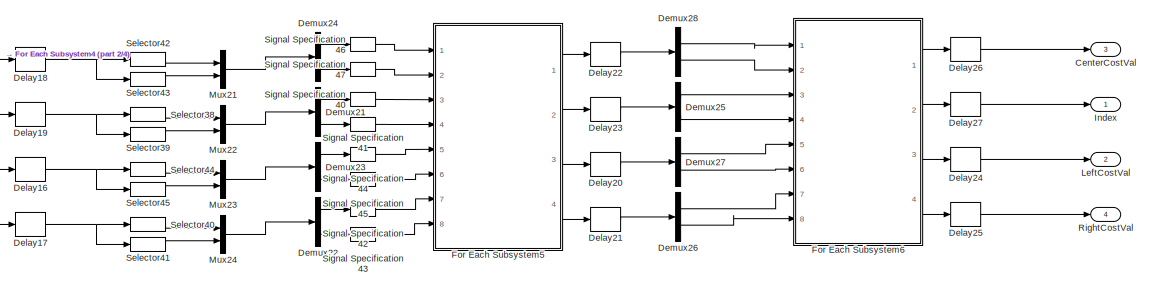
[diagram: SGBMHDLAlgorithm/PostProcessing/Interpolation/Minimum_Cost_Index - part 1/4, right side, full height]
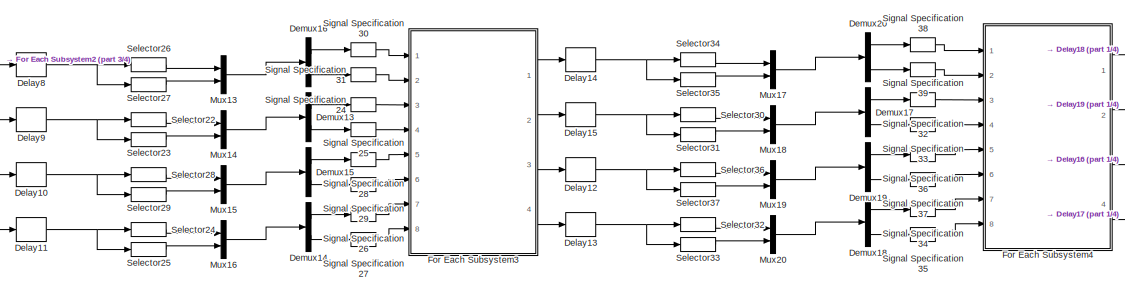
[diagram: SGBMHDLAlgorithm/PostProcessing/Interpolation/Minimum_Cost_Index - part 2/4, center side, full height]
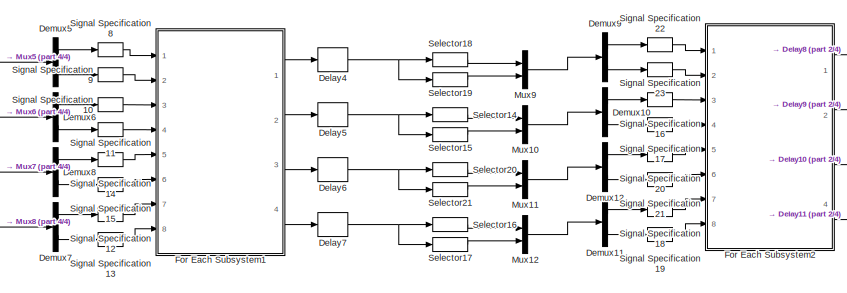
[diagram: SGBMHDLAlgorithm/PostProcessing/Interpolation/Minimum_Cost_Index - part 3/4, center side, full height]
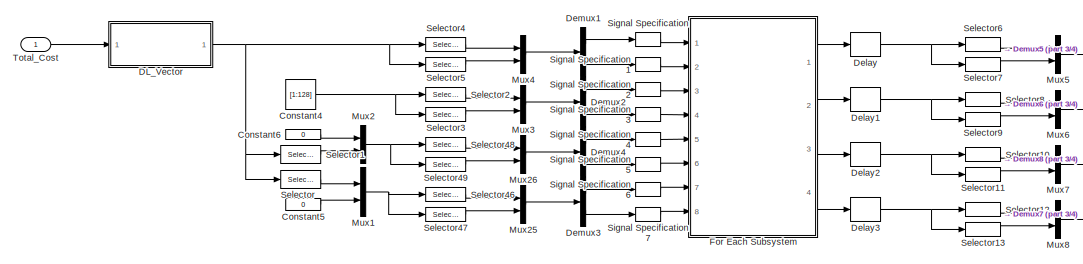
[diagram: SGBMHDLAlgorithm/PostProcessing/Interpolation/Minimum_Cost_Index - part 4/4, left side, full height]
BLOCK [SubSystem] SGBMHDLAlgorithm/PostProcessing/Interpolation/Minimum_Cost_Index
  Ports = [1, 4]
  RequestExecContextInheritance = off
BLOCK [Outport] SGBMHDLAlgorithm/PostProcessing/Interpolation/Minimum_Cost_Index/CenterCostVal
  Port = 3
  VectorParamsAs1DForOutWhenUnconnected = off
BLOCK [Constant] SGBMHDLAlgorithm/PostProcessing/Interpolation/Minimum_Cost_Index/Constant4
  OutDataTypeStr = uint8
  SampleTime = -1
  Value = [1:128]
BLOCK [Constant] SGBMHDLAlgorithm/PostProcessing/Interpolation/Minimum_Cost_Index/Constant5
  OutDataTypeStr = fixdt(1,13,0)
  SampleTime = -1
  Value = 0
BLOCK [Constant] SGBMHDLAlgorithm/PostProcessing/Interpolation/Minimum_Cost_Index/Constant6
  OutDataTypeStr = fixdt(1,13,0)
  SampleTime = -1
  Value = 0
BLOCK [SubSystem] SGBMHDLAlgorithm/PostProcessing/Interpolation/Minimum_Cost_Index/DL_Vector
  Ports = [1, 1]
  RequestExecContextInheritance = off
  Variant = on
BLOCK [SubSystem] SGBMHDLAlgorithm/PostProcessing/Interpolation/Minimum_Cost_Index/DL_Vector/DL128
  Ports = [1, 1]
  RequestExecContextInheritance = off
  VariantControl = DL128
BLOCK [Inport] SGBMHDLAlgorithm/PostProcessing/Interpolation/Minimum_Cost_Index/DL_Vector/DL128/In1
BLOCK [Outport] SGBMHDLAlgorithm/PostProcessing/Interpolation/Minimum_Cost_Index/DL_Vector/DL128/Out1
  VectorParamsAs1DForOutWhenUnconnected = off
BLOCK [SubSystem] SGBMHDLAlgorithm/PostProcessing/Interpolation/Minimum_Cost_Index/DL_Vector/DLnot128
  Ports = [1, 1]
  RequestExecContextInheritance = off
  VariantControl = DLnot128
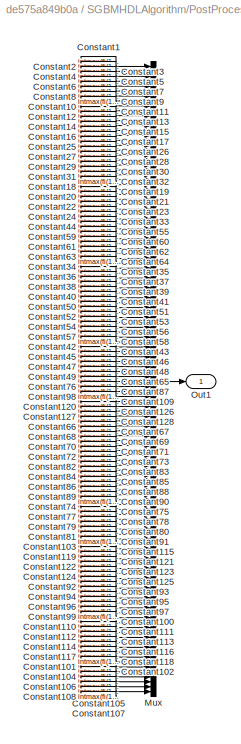
BLOCK [SubSystem] SGBMHDLAlgorithm/PostProcessing/Interpolation/Minimum_Cost_Index/DL_Vector/DLnot128/Constants
  Ports = [0, 1]
  RequestExecContextInheritance = off
BLOCK [Constant] SGBMHDLAlgorithm/PostProcessing/Interpolation/Minimum_Cost_Index/DL_Vector/DLnot128/Constants/Constant1
  OutDataTypeStr = fixdt(1,13,0)
  SampleTime = -1
  Value = intmax(fi(1,1,13,0))
BLOCK [Constant] SGBMHDLAlgorithm/PostProcessing/Interpolation/Minimum_Cost_Index/DL_Vector/DLnot128/Constants/Constant10
  OutDataTypeStr = fixdt(1,13,0)
  SampleTime = -1
  Value = intmax(fi(1,1,13,0))
BLOCK [Constant] SGBMHDLAlgorithm/PostProcessing/Interpolation/Minimum_Cost_Index/DL_Vector/DLnot128/Constants/Constant100
  OutDataTypeStr = fixdt(1,13,0)
  SampleTime = -1
  Value = intmax(fi(1,1,13,0))
BLOCK [Constant] SGBMHDLAlgorithm/PostProcessing/Interpolation/Minimum_Cost_Index/DL_Vector/DLnot128/Constants/Constant101
  OutDataTypeStr = fixdt(1,13,0)
  SampleTime = -1
  Value = intmax(fi(1,1,13,0))
BLOCK [Constant] SGBMHDLAlgorithm/PostProcessing/Interpolation/Minimum_Cost_Index/DL_Vector/DLnot128/Constants/Constant102
  OutDataTypeStr = fixdt(1,13,0)
  SampleTime = -1
  Value = intmax(fi(1,1,13,0))
BLOCK [Constant] SGBMHDLAlgorithm/PostProcessing/Interpolation/Minimum_Cost_Index/DL_Vector/DLnot128/Constants/Constant103
  OutDataTypeStr = fixdt(1,13,0)
  SampleTime = -1
  Value = intmax(fi(1,1,13,0))
BLOCK [Constant] SGBMHDLAlgorithm/PostProcessing/Interpolation/Minimum_Cost_Index/DL_Vector/DLnot128/Constants/Constant104
  OutDataTypeStr = fixdt(1,13,0)
  SampleTime = -1
  Value = intmax(fi(1,1,13,0))
BLOCK [Constant] SGBMHDLAlgorithm/PostProcessing/Interpolation/Minimum_Cost_Index/DL_Vector/DLnot128/Constants/Constant105
  OutDataTypeStr = fixdt(1,13,0)
  SampleTime = -1
  Value = intmax(fi(1,1,13,0))
BLOCK [Constant] SGBMHDLAlgorithm/PostProcessing/Interpolation/Minimum_Cost_Index/DL_Vector/DLnot128/Constants/Constant106
  OutDataTypeStr = fixdt(1,13,0)
  SampleTime = -1
  Value = intmax(fi(1,1,13,0))
BLOCK [Constant] SGBMHDLAlgorithm/PostProcessing/Interpolation/Minimum_Cost_Index/DL_Vector/DLnot128/Constants/Constant107
  OutDataTypeStr = fixdt(1,13,0)
  SampleTime = -1
  Value = intmax(fi(1,1,13,0))
BLOCK [Constant] SGBMHDLAlgorithm/PostProcessing/Interpolation/Minimum_Cost_Index/DL_Vector/DLnot128/Constants/Constant108
  OutDataTypeStr = fixdt(1,13,0)
  SampleTime = -1
  Value = intmax(fi(1,1,13,0))
BLOCK [Constant] SGBMHDLAlgorithm/PostProcessing/Interpolation/Minimum_Cost_Index/DL_Vector/DLnot128/Constants/Constant109
  OutDataTypeStr = fixdt(1,13,0)
  SampleTime = -1
  Value = intmax(fi(1,1,13,0))
BLOCK [Constant] SGBMHDLAlgorithm/PostProcessing/Interpolation/Minimum_Cost_Index/DL_Vector/DLnot128/Constants/Constant11
  OutDataTypeStr = fixdt(1,13,0)
  SampleTime = -1
  Value = intmax(fi(1,1,13,0))
BLOCK [Constant] SGBMHDLAlgorithm/PostProcessing/Interpolation/Minimum_Cost_Index/DL_Vector/DLnot128/Constants/Constant110
  OutDataTypeStr = fixdt(1,13,0)
  SampleTime = -1
  Value = intmax(fi(1,1,13,0))
BLOCK [Constant] SGBMHDLAlgorithm/PostProcessing/Interpolation/Minimum_Cost_Index/DL_Vector/DLnot128/Constants/Constant111
  OutDataTypeStr = fixdt(1,13,0)
  SampleTime = -1
  Value = intmax(fi(1,1,13,0))
BLOCK [Constant] SGBMHDLAlgorithm/PostProcessing/Interpolation/Minimum_Cost_Index/DL_Vector/DLnot128/Constants/Constant112
  OutDataTypeStr = fixdt(1,13,0)
  SampleTime = -1
  Value = intmax(fi(1,1,13,0))
BLOCK [Constant] SGBMHDLAlgorithm/PostProcessing/Interpolation/Minimum_Cost_Index/DL_Vector/DLnot128/Constants/Constant113
  OutDataTypeStr = fixdt(1,13,0)
  SampleTime = -1
  Value = intmax(fi(1,1,13,0))
BLOCK [Constant] SGBMHDLAlgorithm/PostProcessing/Interpolation/Minimum_Cost_Index/DL_Vector/DLnot128/Constants/Constant114
  OutDataTypeStr = fixdt(1,13,0)
  SampleTime = -1
  Value = intmax(fi(1,1,13,0))
BLOCK [Constant] SGBMHDLAlgorithm/PostProcessing/Interpolation/Minimum_Cost_Index/DL_Vector/DLnot128/Constants/Constant115
  OutDataTypeStr = fixdt(1,13,0)
  SampleTime = -1
  Value = intmax(fi(1,1,13,0))
BLOCK [Constant] SGBMHDLAlgorithm/PostProcessing/Interpolation/Minimum_Cost_Index/DL_Vector/DLnot128/Constants/Constant116
  OutDataTypeStr = fixdt(1,13,0)
  SampleTime = -1
  Value = intmax(fi(1,1,13,0))
BLOCK [Constant] SGBMHDLAlgorithm/PostProcessing/Interpolation/Minimum_Cost_Index/DL_Vector/DLnot128/Constants/Constant117
  OutDataTypeStr = fixdt(1,13,0)
  SampleTime = -1
  Value = intmax(fi(1,1,13,0))
BLOCK [Constant] SGBMHDLAlgorithm/PostProcessing/Interpolation/Minimum_Cost_Index/DL_Vector/DLnot128/Constants/Constant118
  OutDataTypeStr = fixdt(1,13,0)
  SampleTime = -1
  Value = intmax(fi(1,1,13,0))
BLOCK [Constant] SGBMHDLAlgorithm/PostProcessing/Interpolation/Minimum_Cost_Index/DL_Vector/DLnot128/Constants/Constant119
  OutDataTypeStr = fixdt(1,13,0)
  SampleTime = -1
  Value = intmax(fi(1,1,13,0))
BLOCK [Constant] SGBMHDLAlgorithm/PostProcessing/Interpolation/Minimum_Cost_Index/DL_Vector/DLnot128/Constants/Constant12
  OutDataTypeStr = fixdt(1,13,0)
  SampleTime = -1
  Value = intmax(fi(1,1,13,0))
BLOCK [Constant] SGBMHDLAlgorithm/PostProcessing/Interpolation/Minimum_Cost_Index/DL_Vector/DLnot128/Constants/Constant120
  OutDataTypeStr = fixdt(1,13,0)
  SampleTime = -1
  Value = intmax(fi(1,1,13,0))
BLOCK [Constant] SGBMHDLAlgorithm/PostProcessing/Interpolation/Minimum_Cost_Index/DL_Vector/DLnot128/Constants/Constant121
  OutDataTypeStr = fixdt(1,13,0)
  SampleTime = -1
  Value = intmax(fi(1,1,13,0))
BLOCK [Constant] SGBMHDLAlgorithm/PostProcessing/Interpolation/Minimum_Cost_Index/DL_Vector/DLnot128/Constants/Constant122
  OutDataTypeStr = fixdt(1,13,0)
  SampleTime = -1
  Value = intmax(fi(1,1,13,0))
BLOCK [Constant] SGBMHDLAlgorithm/PostProcessing/Interpolation/Minimum_Cost_Index/DL_Vector/DLnot128/Constants/Constant123
  OutDataTypeStr = fixdt(1,13,0)
  SampleTime = -1
  Value = intmax(fi(1,1,13,0))
BLOCK [Constant] SGBMHDLAlgorithm/PostProcessing/Interpolation/Minimum_Cost_Index/DL_Vector/DLnot128/Constants/Constant124
  OutDataTypeStr = fixdt(1,13,0)
  SampleTime = -1
  Value = intmax(fi(1,1,13,0))
BLOCK [Constant] SGBMHDLAlgorithm/PostProcessing/Interpolation/Minimum_Cost_Index/DL_Vector/DLnot128/Constants/Constant125
  OutDataTypeStr = fixdt(1,13,0)
  SampleTime = -1
  Value = intmax(fi(1,1,13,0))
BLOCK [Constant] SGBMHDLAlgorithm/PostProcessing/Interpolation/Minimum_Cost_Index/DL_Vector/DLnot128/Constants/Constant126
  OutDataTypeStr = fixdt(1,13,0)
  SampleTime = -1
  Value = intmax(fi(1,1,13,0))
BLOCK [Constant] SGBMHDLAlgorithm/PostProcessing/Interpolation/Minimum_Cost_Index/DL_Vector/DLnot128/Constants/Constant127
  OutDataTypeStr = fixdt(1,13,0)
  SampleTime = -1
  Value = intmax(fi(1,1,13,0))
BLOCK [Constant] SGBMHDLAlgorithm/PostProcessing/Interpolation/Minimum_Cost_Index/DL_Vector/DLnot128/Constants/Constant128
  OutDataTypeStr = fixdt(1,13,0)
  SampleTime = -1
  Value = intmax(fi(1,1,13,0))
BLOCK [Constant] SGBMHDLAlgorithm/PostProcessing/Interpolation/Minimum_Cost_Index/DL_Vector/DLnot128/Constants/Constant13
  OutDataTypeStr = fixdt(1,13,0)
  SampleTime = -1
  Value = intmax(fi(1,1,13,0))
BLOCK [Constant] SGBMHDLAlgorithm/PostProcessing/Interpolation/Minimum_Cost_Index/DL_Vector/DLnot128/Constants/Constant14
  OutDataTypeStr = fixdt(1,13,0)
  SampleTime = -1
  Value = intmax(fi(1,1,13,0))
BLOCK [Constant] SGBMHDLAlgorithm/PostProcessing/Interpolation/Minimum_Cost_Index/DL_Vector/DLnot128/Constants/Constant15
  OutDataTypeStr = fixdt(1,13,0)
  SampleTime = -1
  Value = intmax(fi(1,1,13,0))
BLOCK [Constant] SGBMHDLAlgorithm/PostProcessing/Interpolation/Minimum_Cost_Index/DL_Vector/DLnot128/Constants/Constant16
  OutDataTypeStr = fixdt(1,13,0)
  SampleTime = -1
  Value = intmax(fi(1,1,13,0))
BLOCK [Constant] SGBMHDLAlgorithm/PostProcessing/Interpolation/Minimum_Cost_Index/DL_Vector/DLnot128/Constants/Constant17
  OutDataTypeStr = fixdt(1,13,0)
  SampleTime = -1
  Value = intmax(fi(1,1,13,0))
BLOCK [Constant] SGBMHDLAlgorithm/PostProcessing/Interpolation/Minimum_Cost_Index/DL_Vector/DLnot128/Constants/Constant18
  OutDataTypeStr = fixdt(1,13,0)
  SampleTime = -1
  Value = intmax(fi(1,1,13,0))
BLOCK [Constant] SGBMHDLAlgorithm/PostProcessing/Interpolation/Minimum_Cost_Index/DL_Vector/DLnot128/Constants/Constant19
  OutDataTypeStr = fixdt(1,13,0)
  SampleTime = -1
  Value = intmax(fi(1,1,13,0))
BLOCK [Constant] SGBMHDLAlgorithm/PostProcessing/Interpolation/Minimum_Cost_Index/DL_Vector/DLnot128/Constants/Constant2
  OutDataTypeStr = fixdt(1,13,0)
  SampleTime = -1
  Value = intmax(fi(1,1,13,0))
BLOCK [Constant] SGBMHDLAlgorithm/PostProcessing/Interpolation/Minimum_Cost_Index/DL_Vector/DLnot128/Constants/Constant20
  OutDataTypeStr = fixdt(1,13,0)
  SampleTime = -1
  Value = intmax(fi(1,1,13,0))
BLOCK [Constant] SGBMHDLAlgorithm/PostProcessing/Interpolation/Minimum_Cost_Index/DL_Vector/DLnot128/Constants/Constant21
  OutDataTypeStr = fixdt(1,13,0)
  SampleTime = -1
  Value = intmax(fi(1,1,13,0))
BLOCK [Constant] SGBMHDLAlgorithm/PostProcessing/Interpolation/Minimum_Cost_Index/DL_Vector/DLnot128/Constants/Constant22
  OutDataTypeStr = fixdt(1,13,0)
  SampleTime = -1
  Value = intmax(fi(1,1,13,0))
BLOCK [Constant] SGBMHDLAlgorithm/PostProcessing/Interpolation/Minimum_Cost_Index/DL_Vector/DLnot128/Constants/Constant23
  OutDataTypeStr = fixdt(1,13,0)
  SampleTime = -1
  Value = intmax(fi(1,1,13,0))
BLOCK [Constant] SGBMHDLAlgorithm/PostProcessing/Interpolation/Minimum_Cost_Index/DL_Vector/DLnot128/Constants/Constant24
  OutDataTypeStr = fixdt(1,13,0)
  SampleTime = -1
  Value = intmax(fi(1,1,13,0))
BLOCK [Constant] SGBMHDLAlgorithm/PostProcessing/Interpolation/Minimum_Cost_Index/DL_Vector/DLnot128/Constants/Constant25
  OutDataTypeStr = fixdt(1,13,0)
  SampleTime = -1
  Value = intmax(fi(1,1,13,0))
BLOCK [Constant] SGBMHDLAlgorithm/PostProcessing/Interpolation/Minimum_Cost_Index/DL_Vector/DLnot128/Constants/Constant26
  OutDataTypeStr = fixdt(1,13,0)
  SampleTime = -1
  Value = intmax(fi(1,1,13,0))
BLOCK [Constant] SGBMHDLAlgorithm/PostProcessing/Interpolation/Minimum_Cost_Index/DL_Vector/DLnot128/Constants/Constant27
  OutDataTypeStr = fixdt(1,13,0)
  SampleTime = -1
  Value = intmax(fi(1,1,13,0))
BLOCK [Constant] SGBMHDLAlgorithm/PostProcessing/Interpolation/Minimum_Cost_Index/DL_Vector/DLnot128/Constants/Constant28
  OutDataTypeStr = fixdt(1,13,0)
  SampleTime = -1
  Value = intmax(fi(1,1,13,0))
BLOCK [Constant] SGBMHDLAlgorithm/PostProcessing/Interpolation/Minimum_Cost_Index/DL_Vector/DLnot128/Constants/Constant29
  OutDataTypeStr = fixdt(1,13,0)
  SampleTime = -1
  Value = intmax(fi(1,1,13,0))
BLOCK [Constant] SGBMHDLAlgorithm/PostProcessing/Interpolation/Minimum_Cost_Index/DL_Vector/DLnot128/Constants/Constant3
  OutDataTypeStr = fixdt(1,13,0)
  SampleTime = -1
  Value = intmax(fi(1,1,13,0))
BLOCK [Constant] SGBMHDLAlgorithm/PostProcessing/Interpolation/Minimum_Cost_Index/DL_Vector/DLnot128/Constants/Constant30
  OutDataTypeStr = fixdt(1,13,0)
  SampleTime = -1
  Value = intmax(fi(1,1,13,0))
BLOCK [Constant] SGBMHDLAlgorithm/PostProcessing/Interpolation/Minimum_Cost_Index/DL_Vector/DLnot128/Constants/Constant31
  OutDataTypeStr = fixdt(1,13,0)
  SampleTime = -1
  Value = intmax(fi(1,1,13,0))
BLOCK [Constant] SGBMHDLAlgorithm/PostProcessing/Interpolation/Minimum_Cost_Index/DL_Vector/DLnot128/Constants/Constant32
  OutDataTypeStr = fixdt(1,13,0)
  SampleTime = -1
  Value = intmax(fi(1,1,13,0))
BLOCK [Constant] SGBMHDLAlgorithm/PostProcessing/Interpolation/Minimum_Cost_Index/DL_Vector/DLnot128/Constants/Constant33
  OutDataTypeStr = fixdt(1,13,0)
  SampleTime = -1
  Value = intmax(fi(1,1,13,0))
BLOCK [Constant] SGBMHDLAlgorithm/PostProcessing/Interpolation/Minimum_Cost_Index/DL_Vector/DLnot128/Constants/Constant34
  OutDataTypeStr = fixdt(1,13,0)
  SampleTime = -1
  Value = intmax(fi(1,1,13,0))
BLOCK [Constant] SGBMHDLAlgorithm/PostProcessing/Interpolation/Minimum_Cost_Index/DL_Vector/DLnot128/Constants/Constant35
  OutDataTypeStr = fixdt(1,13,0)
  SampleTime = -1
  Value = intmax(fi(1,1,13,0))
BLOCK [Constant] SGBMHDLAlgorithm/PostProcessing/Interpolation/Minimum_Cost_Index/DL_Vector/DLnot128/Constants/Constant36
  OutDataTypeStr = fixdt(1,13,0)
  SampleTime = -1
  Value = intmax(fi(1,1,13,0))
BLOCK [Constant] SGBMHDLAlgorithm/PostProcessing/Interpolation/Minimum_Cost_Index/DL_Vector/DLnot128/Constants/Constant37
  OutDataTypeStr = fixdt(1,13,0)
  SampleTime = -1
  Value = intmax(fi(1,1,13,0))
BLOCK [Constant] SGBMHDLAlgorithm/PostProcessing/Interpolation/Minimum_Cost_Index/DL_Vector/DLnot128/Constants/Constant38
  OutDataTypeStr = fixdt(1,13,0)
  SampleTime = -1
  Value = intmax(fi(1,1,13,0))
BLOCK [Constant] SGBMHDLAlgorithm/PostProcessing/Interpolation/Minimum_Cost_Index/DL_Vector/DLnot128/Constants/Constant39
  OutDataTypeStr = fixdt(1,13,0)
  SampleTime = -1
  Value = intmax(fi(1,1,13,0))
BLOCK [Constant] SGBMHDLAlgorithm/PostProcessing/Interpolation/Minimum_Cost_Index/DL_Vector/DLnot128/Constants/Constant4
  OutDataTypeStr = fixdt(1,13,0)
  SampleTime = -1
  Value = intmax(fi(1,1,13,0))
BLOCK [Constant] SGBMHDLAlgorithm/PostProcessing/Interpolation/Minimum_Cost_Index/DL_Vector/DLnot128/Constants/Constant40
  OutDataTypeStr = fixdt(1,13,0)
  SampleTime = -1
  Value = intmax(fi(1,1,13,0))
BLOCK [Constant] SGBMHDLAlgorithm/PostProcessing/Interpolation/Minimum_Cost_Index/DL_Vector/DLnot128/Constants/Constant41
  OutDataTypeStr = fixdt(1,13,0)
  SampleTime = -1
  Value = intmax(fi(1,1,13,0))
BLOCK [Constant] SGBMHDLAlgorithm/PostProcessing/Interpolation/Minimum_Cost_Index/DL_Vector/DLnot128/Constants/Constant42
  OutDataTypeStr = fixdt(1,13,0)
  SampleTime = -1
  Value = intmax(fi(1,1,13,0))
BLOCK [Constant] SGBMHDLAlgorithm/PostProcessing/Interpolation/Minimum_Cost_Index/DL_Vector/DLnot128/Constants/Constant43
  OutDataTypeStr = fixdt(1,13,0)
  SampleTime = -1
  Value = intmax(fi(1,1,13,0))
BLOCK [Constant] SGBMHDLAlgorithm/PostProcessing/Interpolation/Minimum_Cost_Index/DL_Vector/DLnot128/Constants/Constant44
  OutDataTypeStr = fixdt(1,13,0)
  SampleTime = -1
  Value = intmax(fi(1,1,13,0))
BLOCK [Constant] SGBMHDLAlgorithm/PostProcessing/Interpolation/Minimum_Cost_Index/DL_Vector/DLnot128/Constants/Constant45
  OutDataTypeStr = fixdt(1,13,0)
  SampleTime = -1
  Value = intmax(fi(1,1,13,0))
BLOCK [Constant] SGBMHDLAlgorithm/PostProcessing/Interpolation/Minimum_Cost_Index/DL_Vector/DLnot128/Constants/Constant46
  OutDataTypeStr = fixdt(1,13,0)
  SampleTime = -1
  Value = intmax(fi(1,1,13,0))
BLOCK [Constant] SGBMHDLAlgorithm/PostProcessing/Interpolation/Minimum_Cost_Index/DL_Vector/DLnot128/Constants/Constant47
  OutDataTypeStr = fixdt(1,13,0)
  SampleTime = -1
  Value = intmax(fi(1,1,13,0))
BLOCK [Constant] SGBMHDLAlgorithm/PostProcessing/Interpolation/Minimum_Cost_Index/DL_Vector/DLnot128/Constants/Constant48
  OutDataTypeStr = fixdt(1,13,0)
  SampleTime = -1
  Value = intmax(fi(1,1,13,0))
BLOCK [Constant] SGBMHDLAlgorithm/PostProcessing/Interpolation/Minimum_Cost_Index/DL_Vector/DLnot128/Constants/Constant49
  OutDataTypeStr = fixdt(1,13,0)
  SampleTime = -1
  Value = intmax(fi(1,1,13,0))
BLOCK [Constant] SGBMHDLAlgorithm/PostProcessing/Interpolation/Minimum_Cost_Index/DL_Vector/DLnot128/Constants/Constant5
  OutDataTypeStr = fixdt(1,13,0)
  SampleTime = -1
  Value = intmax(fi(1,1,13,0))
BLOCK [Constant] SGBMHDLAlgorithm/PostProcessing/Interpolation/Minimum_Cost_Index/DL_Vector/DLnot128/Constants/Constant50
  OutDataTypeStr = fixdt(1,13,0)
  SampleTime = -1
  Value = intmax(fi(1,1,13,0))
BLOCK [Constant] SGBMHDLAlgorithm/PostProcessing/Interpolation/Minimum_Cost_Index/DL_Vector/DLnot128/Constants/Constant51
  OutDataTypeStr = fixdt(1,13,0)
  SampleTime = -1
  Value = intmax(fi(1,1,13,0))
BLOCK [Constant] SGBMHDLAlgorithm/PostProcessing/Interpolation/Minimum_Cost_Index/DL_Vector/DLnot128/Constants/Constant52
  OutDataTypeStr = fixdt(1,13,0)
  SampleTime = -1
  Value = intmax(fi(1,1,13,0))
BLOCK [Constant] SGBMHDLAlgorithm/PostProcessing/Interpolation/Minimum_Cost_Index/DL_Vector/DLnot128/Constants/Constant53
  OutDataTypeStr = fixdt(1,13,0)
  SampleTime = -1
  Value = intmax(fi(1,1,13,0))
BLOCK [Constant] SGBMHDLAlgorithm/PostProcessing/Interpolation/Minimum_Cost_Index/DL_Vector/DLnot128/Constants/Constant54
  OutDataTypeStr = fixdt(1,13,0)
  SampleTime = -1
  Value = intmax(fi(1,1,13,0))
BLOCK [Constant] SGBMHDLAlgorithm/PostProcessing/Interpolation/Minimum_Cost_Index/DL_Vector/DLnot128/Constants/Constant55
  OutDataTypeStr = fixdt(1,13,0)
  SampleTime = -1
  Value = intmax(fi(1,1,13,0))
BLOCK [Constant] SGBMHDLAlgorithm/PostProcessing/Interpolation/Minimum_Cost_Index/DL_Vector/DLnot128/Constants/Constant56
  OutDataTypeStr = fixdt(1,13,0)
  SampleTime = -1
  Value = intmax(fi(1,1,13,0))
BLOCK [Constant] SGBMHDLAlgorithm/PostProcessing/Interpolation/Minimum_Cost_Index/DL_Vector/DLnot128/Constants/Constant57
  OutDataTypeStr = fixdt(1,13,0)
  SampleTime = -1
  Value = intmax(fi(1,1,13,0))
BLOCK [Constant] SGBMHDLAlgorithm/PostProcessing/Interpolation/Minimum_Cost_Index/DL_Vector/DLnot128/Constants/Constant58
  OutDataTypeStr = fixdt(1,13,0)
  SampleTime = -1
  Value = intmax(fi(1,1,13,0))
BLOCK [Constant] SGBMHDLAlgorithm/PostProcessing/Interpolation/Minimum_Cost_Index/DL_Vector/DLnot128/Constants/Constant59
  OutDataTypeStr = fixdt(1,13,0)
  SampleTime = -1
  Value = intmax(fi(1,1,13,0))
BLOCK [Constant] SGBMHDLAlgorithm/PostProcessing/Interpolation/Minimum_Cost_Index/DL_Vector/DLnot128/Constants/Constant6
  OutDataTypeStr = fixdt(1,13,0)
  SampleTime = -1
  Value = intmax(fi(1,1,13,0))
BLOCK [Constant] SGBMHDLAlgorithm/PostProcessing/Interpolation/Minimum_Cost_Index/DL_Vector/DLnot128/Constants/Constant60
  OutDataTypeStr = fixdt(1,13,0)
  SampleTime = -1
  Value = intmax(fi(1,1,13,0))
BLOCK [Constant] SGBMHDLAlgorithm/PostProcessing/Interpolation/Minimum_Cost_Index/DL_Vector/DLnot128/Constants/Constant61
  OutDataTypeStr = fixdt(1,13,0)
  SampleTime = -1
  Value = intmax(fi(1,1,13,0))
BLOCK [Constant] SGBMHDLAlgorithm/PostProcessing/Interpolation/Minimum_Cost_Index/DL_Vector/DLnot128/Constants/Constant62
  OutDataTypeStr = fixdt(1,13,0)
  SampleTime = -1
  Value = intmax(fi(1,1,13,0))
BLOCK [Constant] SGBMHDLAlgorithm/PostProcessing/Interpolation/Minimum_Cost_Index/DL_Vector/DLnot128/Constants/Constant63
  OutDataTypeStr = fixdt(1,13,0)
  SampleTime = -1
  Value = intmax(fi(1,1,13,0))
BLOCK [Constant] SGBMHDLAlgorithm/PostProcessing/Interpolation/Minimum_Cost_Index/DL_Vector/DLnot128/Constants/Constant64
  OutDataTypeStr = fixdt(1,13,0)
  SampleTime = -1
  Value = intmax(fi(1,1,13,0))
BLOCK [Constant] SGBMHDLAlgorithm/PostProcessing/Interpolation/Minimum_Cost_Index/DL_Vector/DLnot128/Constants/Constant65
  OutDataTypeStr = fixdt(1,13,0)
  SampleTime = -1
  Value = intmax(fi(1,1,13,0))
BLOCK [Constant] SGBMHDLAlgorithm/PostProcessing/Interpolation/Minimum_Cost_Index/DL_Vector/DLnot128/Constants/Constant66
  OutDataTypeStr = fixdt(1,13,0)
  SampleTime = -1
  Value = intmax(fi(1,1,13,0))
BLOCK [Constant] SGBMHDLAlgorithm/PostProcessing/Interpolation/Minimum_Cost_Index/DL_Vector/DLnot128/Constants/Constant67
  OutDataTypeStr = fixdt(1,13,0)
  SampleTime = -1
  Value = intmax(fi(1,1,13,0))
BLOCK [Constant] SGBMHDLAlgorithm/PostProcessing/Interpolation/Minimum_Cost_Index/DL_Vector/DLnot128/Constants/Constant68
  OutDataTypeStr = fixdt(1,13,0)
  SampleTime = -1
  Value = intmax(fi(1,1,13,0))
BLOCK [Constant] SGBMHDLAlgorithm/PostProcessing/Interpolation/Minimum_Cost_Index/DL_Vector/DLnot128/Constants/Constant69
  OutDataTypeStr = fixdt(1,13,0)
  SampleTime = -1
  Value = intmax(fi(1,1,13,0))
BLOCK [Constant] SGBMHDLAlgorithm/PostProcessing/Interpolation/Minimum_Cost_Index/DL_Vector/DLnot128/Constants/Constant7
  OutDataTypeStr = fixdt(1,13,0)
  SampleTime = -1
  Value = intmax(fi(1,1,13,0))
BLOCK [Constant] SGBMHDLAlgorithm/PostProcessing/Interpolation/Minimum_Cost_Index/DL_Vector/DLnot128/Constants/Constant70
  OutDataTypeStr = fixdt(1,13,0)
  SampleTime = -1
  Value = intmax(fi(1,1,13,0))
BLOCK [Constant] SGBMHDLAlgorithm/PostProcessing/Interpolation/Minimum_Cost_Index/DL_Vector/DLnot128/Constants/Constant71
  OutDataTypeStr = fixdt(1,13,0)
  SampleTime = -1
  Value = intmax(fi(1,1,13,0))
BLOCK [Constant] SGBMHDLAlgorithm/PostProcessing/Interpolation/Minimum_Cost_Index/DL_Vector/DLnot128/Constants/Constant72
  OutDataTypeStr = fixdt(1,13,0)
  SampleTime = -1
  Value = intmax(fi(1,1,13,0))
BLOCK [Constant] SGBMHDLAlgorithm/PostProcessing/Interpolation/Minimum_Cost_Index/DL_Vector/DLnot128/Constants/Constant73
  OutDataTypeStr = fixdt(1,13,0)
  SampleTime = -1
  Value = intmax(fi(1,1,13,0))
BLOCK [Constant] SGBMHDLAlgorithm/PostProcessing/Interpolation/Minimum_Cost_Index/DL_Vector/DLnot128/Constants/Constant74
  OutDataTypeStr = fixdt(1,13,0)
  SampleTime = -1
  Value = intmax(fi(1,1,13,0))
BLOCK [Constant] SGBMHDLAlgorithm/PostProcessing/Interpolation/Minimum_Cost_Index/DL_Vector/DLnot128/Constants/Constant75
  OutDataTypeStr = fixdt(1,13,0)
  SampleTime = -1
  Value = intmax(fi(1,1,13,0))
BLOCK [Constant] SGBMHDLAlgorithm/PostProcessing/Interpolation/Minimum_Cost_Index/DL_Vector/DLnot128/Constants/Constant76
  OutDataTypeStr = fixdt(1,13,0)
  SampleTime = -1
  Value = intmax(fi(1,1,13,0))
BLOCK [Constant] SGBMHDLAlgorithm/PostProcessing/Interpolation/Minimum_Cost_Index/DL_Vector/DLnot128/Constants/Constant77
  OutDataTypeStr = fixdt(1,13,0)
  SampleTime = -1
  Value = intmax(fi(1,1,13,0))
BLOCK [Constant] SGBMHDLAlgorithm/PostProcessing/Interpolation/Minimum_Cost_Index/DL_Vector/DLnot128/Constants/Constant78
  OutDataTypeStr = fixdt(1,13,0)
  SampleTime = -1
  Value = intmax(fi(1,1,13,0))
BLOCK [Constant] SGBMHDLAlgorithm/PostProcessing/Interpolation/Minimum_Cost_Index/DL_Vector/DLnot128/Constants/Constant79
  OutDataTypeStr = fixdt(1,13,0)
  SampleTime = -1
  Value = intmax(fi(1,1,13,0))
BLOCK [Constant] SGBMHDLAlgorithm/PostProcessing/Interpolation/Minimum_Cost_Index/DL_Vector/DLnot128/Constants/Constant8
  OutDataTypeStr = fixdt(1,13,0)
  SampleTime = -1
  Value = intmax(fi(1,1,13,0))
BLOCK [Constant] SGBMHDLAlgorithm/PostProcessing/Interpolation/Minimum_Cost_Index/DL_Vector/DLnot128/Constants/Constant80
  OutDataTypeStr = fixdt(1,13,0)
  SampleTime = -1
  Value = intmax(fi(1,1,13,0))
BLOCK [Constant] SGBMHDLAlgorithm/PostProcessing/Interpolation/Minimum_Cost_Index/DL_Vector/DLnot128/Constants/Constant81
  OutDataTypeStr = fixdt(1,13,0)
  SampleTime = -1
  Value = intmax(fi(1,1,13,0))
BLOCK [Constant] SGBMHDLAlgorithm/PostProcessing/Interpolation/Minimum_Cost_Index/DL_Vector/DLnot128/Constants/Constant82
  OutDataTypeStr = fixdt(1,13,0)
  SampleTime = -1
  Value = intmax(fi(1,1,13,0))
BLOCK [Constant] SGBMHDLAlgorithm/PostProcessing/Interpolation/Minimum_Cost_Index/DL_Vector/DLnot128/Constants/Constant83
  OutDataTypeStr = fixdt(1,13,0)
  SampleTime = -1
  Value = intmax(fi(1,1,13,0))
BLOCK [Constant] SGBMHDLAlgorithm/PostProcessing/Interpolation/Minimum_Cost_Index/DL_Vector/DLnot128/Constants/Constant84
  OutDataTypeStr = fixdt(1,13,0)
  SampleTime = -1
  Value = intmax(fi(1,1,13,0))
BLOCK [Constant] SGBMHDLAlgorithm/PostProcessing/Interpolation/Minimum_Cost_Index/DL_Vector/DLnot128/Constants/Constant85
  OutDataTypeStr = fixdt(1,13,0)
  SampleTime = -1
  Value = intmax(fi(1,1,13,0))
BLOCK [Constant] SGBMHDLAlgorithm/PostProcessing/Interpolation/Minimum_Cost_Index/DL_Vector/DLnot128/Constants/Constant86
  OutDataTypeStr = fixdt(1,13,0)
  SampleTime = -1
  Value = intmax(fi(1,1,13,0))
BLOCK [Constant] SGBMHDLAlgorithm/PostProcessing/Interpolation/Minimum_Cost_Index/DL_Vector/DLnot128/Constants/Constant87
  OutDataTypeStr = fixdt(1,13,0)
  SampleTime = -1
  Value = intmax(fi(1,1,13,0))
BLOCK [Constant] SGBMHDLAlgorithm/PostProcessing/Interpolation/Minimum_Cost_Index/DL_Vector/DLnot128/Constants/Constant88
  OutDataTypeStr = fixdt(1,13,0)
  SampleTime = -1
  Value = intmax(fi(1,1,13,0))
BLOCK [Constant] SGBMHDLAlgorithm/PostProcessing/Interpolation/Minimum_Cost_Index/DL_Vector/DLnot128/Constants/Constant89
  OutDataTypeStr = fixdt(1,13,0)
  SampleTime = -1
  Value = intmax(fi(1,1,13,0))
BLOCK [Constant] SGBMHDLAlgorithm/PostProcessing/Interpolation/Minimum_Cost_Index/DL_Vector/DLnot128/Constants/Constant9
  OutDataTypeStr = fixdt(1,13,0)
  SampleTime = -1
  Value = intmax(fi(1,1,13,0))
BLOCK [Constant] SGBMHDLAlgorithm/PostProcessing/Interpolation/Minimum_Cost_Index/DL_Vector/DLnot128/Constants/Constant90
  OutDataTypeStr = fixdt(1,13,0)
  SampleTime = -1
  Value = intmax(fi(1,1,13,0))
BLOCK [Constant] SGBMHDLAlgorithm/PostProcessing/Interpolation/Minimum_Cost_Index/DL_Vector/DLnot128/Constants/Constant91
  OutDataTypeStr = fixdt(1,13,0)
  SampleTime = -1
  Value = intmax(fi(1,1,13,0))
BLOCK [Constant] SGBMHDLAlgorithm/PostProcessing/Interpolation/Minimum_Cost_Index/DL_Vector/DLnot128/Constants/Constant92
  OutDataTypeStr = fixdt(1,13,0)
  SampleTime = -1
  Value = intmax(fi(1,1,13,0))
BLOCK [Constant] SGBMHDLAlgorithm/PostProcessing/Interpolation/Minimum_Cost_Index/DL_Vector/DLnot128/Constants/Constant93
  OutDataTypeStr = fixdt(1,13,0)
  SampleTime = -1
  Value = intmax(fi(1,1,13,0))
BLOCK [Constant] SGBMHDLAlgorithm/PostProcessing/Interpolation/Minimum_Cost_Index/DL_Vector/DLnot128/Constants/Constant94
  OutDataTypeStr = fixdt(1,13,0)
  SampleTime = -1
  Value = intmax(fi(1,1,13,0))
BLOCK [Constant] SGBMHDLAlgorithm/PostProcessing/Interpolation/Minimum_Cost_Index/DL_Vector/DLnot128/Constants/Constant95
  OutDataTypeStr = fixdt(1,13,0)
  SampleTime = -1
  Value = intmax(fi(1,1,13,0))
BLOCK [Constant] SGBMHDLAlgorithm/PostProcessing/Interpolation/Minimum_Cost_Index/DL_Vector/DLnot128/Constants/Constant96
  OutDataTypeStr = fixdt(1,13,0)
  SampleTime = -1
  Value = intmax(fi(1,1,13,0))
BLOCK [Constant] SGBMHDLAlgorithm/PostProcessing/Interpolation/Minimum_Cost_Index/DL_Vector/DLnot128/Constants/Constant97
  OutDataTypeStr = fixdt(1,13,0)
  SampleTime = -1
  Value = intmax(fi(1,1,13,0))
BLOCK [Constant] SGBMHDLAlgorithm/PostProcessing/Interpolation/Minimum_Cost_Index/DL_Vector/DLnot128/Constants/Constant98
  OutDataTypeStr = fixdt(1,13,0)
  SampleTime = -1
  Value = intmax(fi(1,1,13,0))
BLOCK [Constant] SGBMHDLAlgorithm/PostProcessing/Interpolation/Minimum_Cost_Index/DL_Vector/DLnot128/Constants/Constant99
  OutDataTypeStr = fixdt(1,13,0)
  SampleTime = -1
  Value = intmax(fi(1,1,13,0))
BLOCK [Mux] SGBMHDLAlgorithm/PostProcessing/Interpolation/Minimum_Cost_Index/DL_Vector/DLnot128/Constants/Mux
  DisplayOption = bar
  Inputs = 128
  Ports = [128, 1]
BLOCK [Outport] SGBMHDLAlgorithm/PostProcessing/Interpolation/Minimum_Cost_Index/DL_Vector/DLnot128/Constants/Out1
  VectorParamsAs1DForOutWhenUnconnected = off
BLOCK [Inport] SGBMHDLAlgorithm/PostProcessing/Interpolation/Minimum_Cost_Index/DL_Vector/DLnot128/In1
BLOCK [Mux] SGBMHDLAlgorithm/PostProcessing/Interpolation/Minimum_Cost_Index/DL_Vector/DLnot128/Mux27
  DisplayOption = bar
  Inputs = 2
  Ports = [2, 1]
BLOCK [Outport] SGBMHDLAlgorithm/PostProcessing/Interpolation/Minimum_Cost_Index/DL_Vector/DLnot128/Out1
  VectorParamsAs1DForOutWhenUnconnected = off
BLOCK [Selector] SGBMHDLAlgorithm/PostProcessing/Interpolation/Minimum_Cost_Index/DL_Vector/DLnot128/Selector50
  IndexOptions = Index vector (dialog)
  Indices = [1:disparityLevels]
  InputPortWidth = disparityLevels
  OutputSizes = 1
  Ports = [1, 1]
BLOCK [Selector] SGBMHDLAlgorithm/PostProcessing/Interpolation/Minimum_Cost_Index/DL_Vector/DLnot128/Selector51
  IndexOptions = Index vector (dialog)
  Indices = [disparityLevels+1:128]
  InputPortWidth = 128
  OutputSizes = 1
  Ports = [1, 1]
BLOCK [Inport] SGBMHDLAlgorithm/PostProcessing/Interpolation/Minimum_Cost_Index/DL_Vector/In1
BLOCK [Outport] SGBMHDLAlgorithm/PostProcessing/Interpolation/Minimum_Cost_Index/DL_Vector/Out1
  VectorParamsAs1DForOutWhenUnconnected = off
BLOCK [Delay] SGBMHDLAlgorithm/PostProcessing/Interpolation/Minimum_Cost_Index/Delay
  DelayLength = 1
  InputPortMap = u0
  Ports = [1, 1]
BLOCK [Delay] SGBMHDLAlgorithm/PostProcessing/Interpolation/Minimum_Cost_Index/Delay1
  DelayLength = 1
  InputPortMap = u0
  Ports = [1, 1]
BLOCK [Delay] SGBMHDLAlgorithm/PostProcessing/Interpolation/Minimum_Cost_Index/Delay10
  DelayLength = 1
  InputPortMap = u0
  Ports = [1, 1]
BLOCK [Delay] SGBMHDLAlgorithm/PostProcessing/Interpolation/Minimum_Cost_Index/Delay11
  DelayLength = 1
  InputPortMap = u0
  Ports = [1, 1]
BLOCK [Delay] SGBMHDLAlgorithm/PostProcessing/Interpolation/Minimum_Cost_Index/Delay12
  DelayLength = 1
  InputPortMap = u0
  Ports = [1, 1]
BLOCK [Delay] SGBMHDLAlgorithm/PostProcessing/Interpolation/Minimum_Cost_Index/Delay13
  DelayLength = 1
  InputPortMap = u0
  Ports = [1, 1]
BLOCK [Delay] SGBMHDLAlgorithm/PostProcessing/Interpolation/Minimum_Cost_Index/Delay14
  DelayLength = 1
  InputPortMap = u0
  Ports = [1, 1]
BLOCK [Delay] SGBMHDLAlgorithm/PostProcessing/Interpolation/Minimum_Cost_Index/Delay15
  DelayLength = 1
  InputPortMap = u0
  Ports = [1, 1]
BLOCK [Delay] SGBMHDLAlgorithm/PostProcessing/Interpolation/Minimum_Cost_Index/Delay16
  DelayLength = 1
  InputPortMap = u0
  Ports = [1, 1]
BLOCK [Delay] SGBMHDLAlgorithm/PostProcessing/Interpolation/Minimum_Cost_Index/Delay17
  DelayLength = 1
  InputPortMap = u0
  Ports = [1, 1]
BLOCK [Delay] SGBMHDLAlgorithm/PostProcessing/Interpolation/Minimum_Cost_Index/Delay18
  DelayLength = 1
  InputPortMap = u0
  Ports = [1, 1]
BLOCK [Delay] SGBMHDLAlgorithm/PostProcessing/Interpolation/Minimum_Cost_Index/Delay19
  DelayLength = 1
  InputPortMap = u0
  Ports = [1, 1]
BLOCK [Delay] SGBMHDLAlgorithm/PostProcessing/Interpolation/Minimum_Cost_Index/Delay2
  DelayLength = 1
  InputPortMap = u0
  Ports = [1, 1]
BLOCK [Delay] SGBMHDLAlgorithm/PostProcessing/Interpolation/Minimum_Cost_Index/Delay20
  DelayLength = 1
  InputPortMap = u0
  Ports = [1, 1]
BLOCK [Delay] SGBMHDLAlgorithm/PostProcessing/Interpolation/Minimum_Cost_Index/Delay21
  DelayLength = 1
  InputPortMap = u0
  Ports = [1, 1]
BLOCK [Delay] SGBMHDLAlgorithm/PostProcessing/Interpolation/Minimum_Cost_Index/Delay22
  DelayLength = 1
  InputPortMap = u0
  Ports = [1, 1]
BLOCK [Delay] SGBMHDLAlgorithm/PostProcessing/Interpolation/Minimum_Cost_Index/Delay23
  DelayLength = 1
  InputPortMap = u0
  Ports = [1, 1]
BLOCK [Delay] SGBMHDLAlgorithm/PostProcessing/Interpolation/Minimum_Cost_Index/Delay24
  DelayLength = 1
  InputPortMap = u0
  Ports = [1, 1]
BLOCK [Delay] SGBMHDLAlgorithm/PostProcessing/Interpolation/Minimum_Cost_Index/Delay25
  DelayLength = 1
  InputPortMap = u0
  Ports = [1, 1]
BLOCK [Delay] SGBMHDLAlgorithm/PostProcessing/Interpolation/Minimum_Cost_Index/Delay26
  DelayLength = 1
  InputPortMap = u0
  Ports = [1, 1]
BLOCK [Delay] SGBMHDLAlgorithm/PostProcessing/Interpolation/Minimum_Cost_Index/Delay27
  DelayLength = 1
  InputPortMap = u0
  Ports = [1, 1]
BLOCK [Delay] SGBMHDLAlgorithm/PostProcessing/Interpolation/Minimum_Cost_Index/Delay3
  DelayLength = 1
  InputPortMap = u0
  Ports = [1, 1]
BLOCK [Delay] SGBMHDLAlgorithm/PostProcessing/Interpolation/Minimum_Cost_Index/Delay4
  DelayLength = 1
  InputPortMap = u0
  Ports = [1, 1]
BLOCK [Delay] SGBMHDLAlgorithm/PostProcessing/Interpolation/Minimum_Cost_Index/Delay5
  DelayLength = 1
  InputPortMap = u0
  Ports = [1, 1]
BLOCK [Delay] SGBMHDLAlgorithm/PostProcessing/Interpolation/Minimum_Cost_Index/Delay6
  DelayLength = 1
  InputPortMap = u0
  Ports = [1, 1]
BLOCK [Delay] SGBMHDLAlgorithm/PostProcessing/Interpolation/Minimum_Cost_Index/Delay7
  DelayLength = 1
  InputPortMap = u0
  Ports = [1, 1]
BLOCK [Delay] SGBMHDLAlgorithm/PostProcessing/Interpolation/Minimum_Cost_Index/Delay8
  DelayLength = 1
  InputPortMap = u0
  Ports = [1, 1]
BLOCK [Delay] SGBMHDLAlgorithm/PostProcessing/Interpolation/Minimum_Cost_Index/Delay9
  DelayLength = 1
  InputPortMap = u0
  Ports = [1, 1]
BLOCK [Demux] SGBMHDLAlgorithm/PostProcessing/Interpolation/Minimum_Cost_Index/Demux1
  Outputs = 2
  Ports = [1, 2]
BLOCK [Demux] SGBMHDLAlgorithm/PostProcessing/Interpolation/Minimum_Cost_Index/Demux10
  Outputs = 2
  Ports = [1, 2]
BLOCK [Demux] SGBMHDLAlgorithm/PostProcessing/Interpolation/Minimum_Cost_Index/Demux11
  Outputs = 2
  Ports = [1, 2]
BLOCK [Demux] SGBMHDLAlgorithm/PostProcessing/Interpolation/Minimum_Cost_Index/Demux12
  Outputs = 2
  Ports = [1, 2]
BLOCK [Demux] SGBMHDLAlgorithm/PostProcessing/Interpolation/Minimum_Cost_Index/Demux13
  Outputs = 2
  Ports = [1, 2]
BLOCK [Demux] SGBMHDLAlgorithm/PostProcessing/Interpolation/Minimum_Cost_Index/Demux14
  Outputs = 2
  Ports = [1, 2]
BLOCK [Demux] SGBMHDLAlgorithm/PostProcessing/Interpolation/Minimum_Cost_Index/Demux15
  Outputs = 2
  Ports = [1, 2]
BLOCK [Demux] SGBMHDLAlgorithm/PostProcessing/Interpolation/Minimum_Cost_Index/Demux16
  Outputs = 2
  Ports = [1, 2]
BLOCK [Demux] SGBMHDLAlgorithm/PostProcessing/Interpolation/Minimum_Cost_Index/Demux17
  Outputs = 2
  Ports = [1, 2]
BLOCK [Demux] SGBMHDLAlgorithm/PostProcessing/Interpolation/Minimum_Cost_Index/Demux18
  Outputs = 2
  Ports = [1, 2]
BLOCK [Demux] SGBMHDLAlgorithm/PostProcessing/Interpolation/Minimum_Cost_Index/Demux19
  Outputs = 2
  Ports = [1, 2]
BLOCK [Demux] SGBMHDLAlgorithm/PostProcessing/Interpolation/Minimum_Cost_Index/Demux2
  Outputs = 2
  Ports = [1, 2]
BLOCK [Demux] SGBMHDLAlgorithm/PostProcessing/Interpolation/Minimum_Cost_Index/Demux20
  Outputs = 2
  Ports = [1, 2]
BLOCK [Demux] SGBMHDLAlgorithm/PostProcessing/Interpolation/Minimum_Cost_Index/Demux21
  Outputs = 2
  Ports = [1, 2]
BLOCK [Demux] SGBMHDLAlgorithm/PostProcessing/Interpolation/Minimum_Cost_Index/Demux22
  Outputs = 2
  Ports = [1, 2]
BLOCK [Demux] SGBMHDLAlgorithm/PostProcessing/Interpolation/Minimum_Cost_Index/Demux23
  Outputs = 2
  Ports = [1, 2]
BLOCK [Demux] SGBMHDLAlgorithm/PostProcessing/Interpolation/Minimum_Cost_Index/Demux24
  Outputs = 2
  Ports = [1, 2]
BLOCK [Demux] SGBMHDLAlgorithm/PostProcessing/Interpolation/Minimum_Cost_Index/Demux25
  Outputs = 2
  Ports = [1, 2]
BLOCK [Demux] SGBMHDLAlgorithm/PostProcessing/Interpolation/Minimum_Cost_Index/Demux26
  Outputs = 2
  Ports = [1, 2]
BLOCK [Demux] SGBMHDLAlgorithm/PostProcessing/Interpolation/Minimum_Cost_Index/Demux27
  Outputs = 2
  Ports = [1, 2]
BLOCK [Demux] SGBMHDLAlgorithm/PostProcessing/Interpolation/Minimum_Cost_Index/Demux28
  Outputs = 2
  Ports = [1, 2]
BLOCK [Demux] SGBMHDLAlgorithm/PostProcessing/Interpolation/Minimum_Cost_Index/Demux3
  Outputs = 2
  Ports = [1, 2]
BLOCK [Demux] SGBMHDLAlgorithm/PostProcessing/Interpolation/Minimum_Cost_Index/Demux4
  Outputs = 2
  Ports = [1, 2]
BLOCK [Demux] SGBMHDLAlgorithm/PostProcessing/Interpolation/Minimum_Cost_Index/Demux5
  Outputs = 2
  Ports = [1, 2]
BLOCK [Demux] SGBMHDLAlgorithm/PostProcessing/Interpolation/Minimum_Cost_Index/Demux6
  Outputs = 2
  Ports = [1, 2]
BLOCK [Demux] SGBMHDLAlgorithm/PostProcessing/Interpolation/Minimum_Cost_Index/Demux7
  Outputs = 2
  Ports = [1, 2]
BLOCK [Demux] SGBMHDLAlgorithm/PostProcessing/Interpolation/Minimum_Cost_Index/Demux8
  Outputs = 2
  Ports = [1, 2]
BLOCK [Demux] SGBMHDLAlgorithm/PostProcessing/Interpolation/Minimum_Cost_Index/Demux9
  Outputs = 2
  Ports = [1, 2]
BLOCK [SubSystem] SGBMHDLAlgorithm/PostProcessing/Interpolation/Minimum_Cost_Index/For Each Subsystem
  Ports = [8, 4]
  RequestExecContextInheritance = off
  TreatAsAtomicUnit = on
BLOCK [ForEach] SGBMHDLAlgorithm/PostProcessing/Interpolation/Minimum_Cost_Index/For Each Subsystem/For Each
  DisableCoverage = on
  Ports = []
BLOCK [Inport] SGBMHDLAlgorithm/PostProcessing/Interpolation/Minimum_Cost_Index/For Each Subsystem/In1
  Partition = on
  PartitionDimension = 1
  PartitionOffset = 0
  PartitionWidth = 1
BLOCK [Inport] SGBMHDLAlgorithm/PostProcessing/Interpolation/Minimum_Cost_Index/For Each Subsystem/In2
  Partition = on
  PartitionDimension = 1
  PartitionOffset = 0
  PartitionWidth = 1
  Port = 2
BLOCK [Inport] SGBMHDLAlgorithm/PostProcessing/Interpolation/Minimum_Cost_Index/For Each Subsystem/In3
  Partition = on
  PartitionDimension = 1
  PartitionOffset = 0
  PartitionWidth = 1
  Port = 3
BLOCK [Inport] SGBMHDLAlgorithm/PostProcessing/Interpolation/Minimum_Cost_Index/For Each Subsystem/In4
  Partition = on
  PartitionDimension = 1
  PartitionOffset = 0
  PartitionWidth = 1
  Port = 4
BLOCK [Inport] SGBMHDLAlgorithm/PostProcessing/Interpolation/Minimum_Cost_Index/For Each Subsystem/In5
  Partition = on
  PartitionDimension = 1
  PartitionOffset = 0
  PartitionWidth = 1
  Port = 5
BLOCK [Inport] SGBMHDLAlgorithm/PostProcessing/Interpolation/Minimum_Cost_Index/For Each Subsystem/In6
  Partition = on
  PartitionDimension = 1
  PartitionOffset = 0
  PartitionWidth = 1
  Port = 6
BLOCK [Inport] SGBMHDLAlgorithm/PostProcessing/Interpolation/Minimum_Cost_Index/For Each Subsystem/In7
  Partition = on
  PartitionDimension = 1
  PartitionOffset = 0
  PartitionWidth = 1
  Port = 7
BLOCK [Inport] SGBMHDLAlgorithm/PostProcessing/Interpolation/Minimum_Cost_Index/For Each Subsystem/In8
  Partition = on
  PartitionDimension = 1
  PartitionOffset = 0
  PartitionWidth = 1
  Port = 8
BLOCK [Outport] SGBMHDLAlgorithm/PostProcessing/Interpolation/Minimum_Cost_Index/For Each Subsystem/Out1
  ConcatenationDimension = 1
  VectorParamsAs1DForOutWhenUnconnected = off
BLOCK [Outport] SGBMHDLAlgorithm/PostProcessing/Interpolation/Minimum_Cost_Index/For Each Subsystem/Out2
  ConcatenationDimension = 1
  Port = 2
  VectorParamsAs1DForOutWhenUnconnected = off
BLOCK [Outport] SGBMHDLAlgorithm/PostProcessing/Interpolation/Minimum_Cost_Index/For Each Subsystem/Out3
  ConcatenationDimension = 1
  Port = 3
  VectorParamsAs1DForOutWhenUnconnected = off
BLOCK [Outport] SGBMHDLAlgorithm/PostProcessing/Interpolation/Minimum_Cost_Index/For Each Subsystem/Out4
  ConcatenationDimension = 1
  Port = 4
  VectorParamsAs1DForOutWhenUnconnected = off
BLOCK [RelationalOperator] SGBMHDLAlgorithm/PostProcessing/Interpolation/Minimum_Cost_Index/For Each Subsystem/Relational Operator
  InputSameDT = off
  Operator = <=
  OutDataTypeStr = boolean
  Ports = [2, 1]
BLOCK [Switch] SGBMHDLAlgorithm/PostProcessing/Interpolation/Minimum_Cost_Index/For Each Subsystem/Switch
  Criteria = u2 ~= 0
  InputSameDT = off
  SaturateOnIntegerOverflow = off
BLOCK [Switch] SGBMHDLAlgorithm/PostProcessing/Interpolation/Minimum_Cost_Index/For Each Subsystem/Switch1
  Criteria = u2 ~= 0
  InputSameDT = off
  SaturateOnIntegerOverflow = off
BLOCK [Switch] SGBMHDLAlgorithm/PostProcessing/Interpolation/Minimum_Cost_Index/For Each Subsystem/Switch2
  Criteria = u2 ~= 0
  InputSameDT = off
  SaturateOnIntegerOverflow = off
BLOCK [Switch] SGBMHDLAlgorithm/PostProcessing/Interpolation/Minimum_Cost_Index/For Each Subsystem/Switch3
  Criteria = u2 ~= 0
  InputSameDT = off
  SaturateOnIntegerOverflow = off
BLOCK [SubSystem] SGBMHDLAlgorithm/PostProcessing/Interpolation/Minimum_Cost_Index/For Each Subsystem1
  Ports = [8, 4]
  RequestExecContextInheritance = off
  TreatAsAtomicUnit = on
BLOCK [ForEach] SGBMHDLAlgorithm/PostProcessing/Interpolation/Minimum_Cost_Index/For Each Subsystem1/For Each
  DisableCoverage = on
  Ports = []
BLOCK [Inport] SGBMHDLAlgorithm/PostProcessing/Interpolation/Minimum_Cost_Index/For Each Subsystem1/In1
  Partition = on
  PartitionDimension = 1
  PartitionOffset = 0
  PartitionWidth = 1
BLOCK [Inport] SGBMHDLAlgorithm/PostProcessing/Interpolation/Minimum_Cost_Index/For Each Subsystem1/In2
  Partition = on
  PartitionDimension = 1
  PartitionOffset = 0
  PartitionWidth = 1
  Port = 2
BLOCK [Inport] SGBMHDLAlgorithm/PostProcessing/Interpolation/Minimum_Cost_Index/For Each Subsystem1/In3
  Partition = on
  PartitionDimension = 1
  PartitionOffset = 0
  PartitionWidth = 1
  Port = 3
BLOCK [Inport] SGBMHDLAlgorithm/PostProcessing/Interpolation/Minimum_Cost_Index/For Each Subsystem1/In4
  Partition = on
  PartitionDimension = 1
  PartitionOffset = 0
  PartitionWidth = 1
  Port = 4
BLOCK [Inport] SGBMHDLAlgorithm/PostProcessing/Interpolation/Minimum_Cost_Index/For Each Subsystem1/In5
  Partition = on
  PartitionDimension = 1
  PartitionOffset = 0
  PartitionWidth = 1
  Port = 5
BLOCK [Inport] SGBMHDLAlgorithm/PostProcessing/Interpolation/Minimum_Cost_Index/For Each Subsystem1/In6
  Partition = on
  PartitionDimension = 1
  PartitionOffset = 0
  PartitionWidth = 1
  Port = 6
BLOCK [Inport] SGBMHDLAlgorithm/PostProcessing/Interpolation/Minimum_Cost_Index/For Each Subsystem1/In7
  Partition = on
  PartitionDimension = 1
  PartitionOffset = 0
  PartitionWidth = 1
  Port = 7
BLOCK [Inport] SGBMHDLAlgorithm/PostProcessing/Interpolation/Minimum_Cost_Index/For Each Subsystem1/In8
  Partition = on
  PartitionDimension = 1
  PartitionOffset = 0
  PartitionWidth = 1
  Port = 8
BLOCK [Outport] SGBMHDLAlgorithm/PostProcessing/Interpolation/Minimum_Cost_Index/For Each Subsystem1/Out1
  ConcatenationDimension = 1
  VectorParamsAs1DForOutWhenUnconnected = off
BLOCK [Outport] SGBMHDLAlgorithm/PostProcessing/Interpolation/Minimum_Cost_Index/For Each Subsystem1/Out2
  ConcatenationDimension = 1
  Port = 2
  VectorParamsAs1DForOutWhenUnconnected = off
BLOCK [Outport] SGBMHDLAlgorithm/PostProcessing/Interpolation/Minimum_Cost_Index/For Each Subsystem1/Out3
  ConcatenationDimension = 1
  Port = 3
  VectorParamsAs1DForOutWhenUnconnected = off
BLOCK [Outport] SGBMHDLAlgorithm/PostProcessing/Interpolation/Minimum_Cost_Index/For Each Subsystem1/Out4
  ConcatenationDimension = 1
  Port = 4
  VectorParamsAs1DForOutWhenUnconnected = off
BLOCK [RelationalOperator] SGBMHDLAlgorithm/PostProcessing/Interpolation/Minimum_Cost_Index/For Each Subsystem1/Relational Operator
  InputSameDT = off
  Operator = <=
  OutDataTypeStr = boolean
  Ports = [2, 1]
BLOCK [Switch] SGBMHDLAlgorithm/PostProcessing/Interpolation/Minimum_Cost_Index/For Each Subsystem1/Switch
  Criteria = u2 ~= 0
  InputSameDT = off
  SaturateOnIntegerOverflow = off
BLOCK [Switch] SGBMHDLAlgorithm/PostProcessing/Interpolation/Minimum_Cost_Index/For Each Subsystem1/Switch1
  Criteria = u2 ~= 0
  InputSameDT = off
  SaturateOnIntegerOverflow = off
BLOCK [Switch] SGBMHDLAlgorithm/PostProcessing/Interpolation/Minimum_Cost_Index/For Each Subsystem1/Switch2
  Criteria = u2 ~= 0
  InputSameDT = off
  SaturateOnIntegerOverflow = off
BLOCK [Switch] SGBMHDLAlgorithm/PostProcessing/Interpolation/Minimum_Cost_Index/For Each Subsystem1/Switch3
  Criteria = u2 ~= 0
  InputSameDT = off
  SaturateOnIntegerOverflow = off
BLOCK [SubSystem] SGBMHDLAlgorithm/PostProcessing/Interpolation/Minimum_Cost_Index/For Each Subsystem2
  Ports = [8, 4]
  RequestExecContextInheritance = off
  TreatAsAtomicUnit = on
BLOCK [ForEach] SGBMHDLAlgorithm/PostProcessing/Interpolation/Minimum_Cost_Index/For Each Subsystem2/For Each
  DisableCoverage = on
  Ports = []
BLOCK [Inport] SGBMHDLAlgorithm/PostProcessing/Interpolation/Minimum_Cost_Index/For Each Subsystem2/In1
  Partition = on
  PartitionDimension = 1
  PartitionOffset = 0
  PartitionWidth = 1
BLOCK [Inport] SGBMHDLAlgorithm/PostProcessing/Interpolation/Minimum_Cost_Index/For Each Subsystem2/In2
  Partition = on
  PartitionDimension = 1
  PartitionOffset = 0
  PartitionWidth = 1
  Port = 2
BLOCK [Inport] SGBMHDLAlgorithm/PostProcessing/Interpolation/Minimum_Cost_Index/For Each Subsystem2/In3
  Partition = on
  PartitionDimension = 1
  PartitionOffset = 0
  PartitionWidth = 1
  Port = 3
BLOCK [Inport] SGBMHDLAlgorithm/PostProcessing/Interpolation/Minimum_Cost_Index/For Each Subsystem2/In4
  Partition = on
  PartitionDimension = 1
  PartitionOffset = 0
  PartitionWidth = 1
  Port = 4
BLOCK [Inport] SGBMHDLAlgorithm/PostProcessing/Interpolation/Minimum_Cost_Index/For Each Subsystem2/In5
  Partition = on
  PartitionDimension = 1
  PartitionOffset = 0
  PartitionWidth = 1
  Port = 5
BLOCK [Inport] SGBMHDLAlgorithm/PostProcessing/Interpolation/Minimum_Cost_Index/For Each Subsystem2/In6
  Partition = on
  PartitionDimension = 1
  PartitionOffset = 0
  PartitionWidth = 1
  Port = 6
BLOCK [Inport] SGBMHDLAlgorithm/PostProcessing/Interpolation/Minimum_Cost_Index/For Each Subsystem2/In7
  Partition = on
  PartitionDimension = 1
  PartitionOffset = 0
  PartitionWidth = 1
  Port = 7
BLOCK [Inport] SGBMHDLAlgorithm/PostProcessing/Interpolation/Minimum_Cost_Index/For Each Subsystem2/In8
  Partition = on
  PartitionDimension = 1
  PartitionOffset = 0
  PartitionWidth = 1
  Port = 8
BLOCK [Outport] SGBMHDLAlgorithm/PostProcessing/Interpolation/Minimum_Cost_Index/For Each Subsystem2/Out1
  ConcatenationDimension = 1
  VectorParamsAs1DForOutWhenUnconnected = off
BLOCK [Outport] SGBMHDLAlgorithm/PostProcessing/Interpolation/Minimum_Cost_Index/For Each Subsystem2/Out2
  ConcatenationDimension = 1
  Port = 2
  VectorParamsAs1DForOutWhenUnconnected = off
BLOCK [Outport] SGBMHDLAlgorithm/PostProcessing/Interpolation/Minimum_Cost_Index/For Each Subsystem2/Out3
  ConcatenationDimension = 1
  Port = 3
  VectorParamsAs1DForOutWhenUnconnected = off
BLOCK [Outport] SGBMHDLAlgorithm/PostProcessing/Interpolation/Minimum_Cost_Index/For Each Subsystem2/Out4
  ConcatenationDimension = 1
  Port = 4
  VectorParamsAs1DForOutWhenUnconnected = off
BLOCK [RelationalOperator] SGBMHDLAlgorithm/PostProcessing/Interpolation/Minimum_Cost_Index/For Each Subsystem2/Relational Operator
  InputSameDT = off
  Operator = <=
  OutDataTypeStr = boolean
  Ports = [2, 1]
BLOCK [Switch] SGBMHDLAlgorithm/PostProcessing/Interpolation/Minimum_Cost_Index/For Each Subsystem2/Switch
  Criteria = u2 ~= 0
  InputSameDT = off
  SaturateOnIntegerOverflow = off
BLOCK [Switch] SGBMHDLAlgorithm/PostProcessing/Interpolation/Minimum_Cost_Index/For Each Subsystem2/Switch1
  Criteria = u2 ~= 0
  InputSameDT = off
  SaturateOnIntegerOverflow = off
BLOCK [Switch] SGBMHDLAlgorithm/PostProcessing/Interpolation/Minimum_Cost_Index/For Each Subsystem2/Switch2
  Criteria = u2 ~= 0
  InputSameDT = off
  SaturateOnIntegerOverflow = off
BLOCK [Switch] SGBMHDLAlgorithm/PostProcessing/Interpolation/Minimum_Cost_Index/For Each Subsystem2/Switch3
  Criteria = u2 ~= 0
  InputSameDT = off
  SaturateOnIntegerOverflow = off
BLOCK [SubSystem] SGBMHDLAlgorithm/PostProcessing/Interpolation/Minimum_Cost_Index/For Each Subsystem3
  Ports = [8, 4]
  RequestExecContextInheritance = off
  TreatAsAtomicUnit = on
BLOCK [ForEach] SGBMHDLAlgorithm/PostProcessing/Interpolation/Minimum_Cost_Index/For Each Subsystem3/For Each
  DisableCoverage = on
  Ports = []
BLOCK [Inport] SGBMHDLAlgorithm/PostProcessing/Interpolation/Minimum_Cost_Index/For Each Subsystem3/In1
  Partition = on
  PartitionDimension = 1
  PartitionOffset = 0
  PartitionWidth = 1
BLOCK [Inport] SGBMHDLAlgorithm/PostProcessing/Interpolation/Minimum_Cost_Index/For Each Subsystem3/In2
  Partition = on
  PartitionDimension = 1
  PartitionOffset = 0
  PartitionWidth = 1
  Port = 2
BLOCK [Inport] SGBMHDLAlgorithm/PostProcessing/Interpolation/Minimum_Cost_Index/For Each Subsystem3/In3
  Partition = on
  PartitionDimension = 1
  PartitionOffset = 0
  PartitionWidth = 1
  Port = 3
BLOCK [Inport] SGBMHDLAlgorithm/PostProcessing/Interpolation/Minimum_Cost_Index/For Each Subsystem3/In4
  Partition = on
  PartitionDimension = 1
  PartitionOffset = 0
  PartitionWidth = 1
  Port = 4
BLOCK [Inport] SGBMHDLAlgorithm/PostProcessing/Interpolation/Minimum_Cost_Index/For Each Subsystem3/In5
  Partition = on
  PartitionDimension = 1
  PartitionOffset = 0
  PartitionWidth = 1
  Port = 5
BLOCK [Inport] SGBMHDLAlgorithm/PostProcessing/Interpolation/Minimum_Cost_Index/For Each Subsystem3/In6
  Partition = on
  PartitionDimension = 1
  PartitionOffset = 0
  PartitionWidth = 1
  Port = 6
BLOCK [Inport] SGBMHDLAlgorithm/PostProcessing/Interpolation/Minimum_Cost_Index/For Each Subsystem3/In7
  Partition = on
  PartitionDimension = 1
  PartitionOffset = 0
  PartitionWidth = 1
  Port = 7
BLOCK [Inport] SGBMHDLAlgorithm/PostProcessing/Interpolation/Minimum_Cost_Index/For Each Subsystem3/In8
  Partition = on
  PartitionDimension = 1
  PartitionOffset = 0
  PartitionWidth = 1
  Port = 8
BLOCK [Outport] SGBMHDLAlgorithm/PostProcessing/Interpolation/Minimum_Cost_Index/For Each Subsystem3/Out1
  ConcatenationDimension = 1
  VectorParamsAs1DForOutWhenUnconnected = off
BLOCK [Outport] SGBMHDLAlgorithm/PostProcessing/Interpolation/Minimum_Cost_Index/For Each Subsystem3/Out2
  ConcatenationDimension = 1
  Port = 2
  VectorParamsAs1DForOutWhenUnconnected = off
BLOCK [Outport] SGBMHDLAlgorithm/PostProcessing/Interpolation/Minimum_Cost_Index/For Each Subsystem3/Out3
  ConcatenationDimension = 1
  Port = 3
  VectorParamsAs1DForOutWhenUnconnected = off
BLOCK [Outport] SGBMHDLAlgorithm/PostProcessing/Interpolation/Minimum_Cost_Index/For Each Subsystem3/Out4
  ConcatenationDimension = 1
  Port = 4
  VectorParamsAs1DForOutWhenUnconnected = off
BLOCK [RelationalOperator] SGBMHDLAlgorithm/PostProcessing/Interpolation/Minimum_Cost_Index/For Each Subsystem3/Relational Operator
  InputSameDT = off
  Operator = <=
  OutDataTypeStr = boolean
  Ports = [2, 1]
BLOCK [Switch] SGBMHDLAlgorithm/PostProcessing/Interpolation/Minimum_Cost_Index/For Each Subsystem3/Switch
  Criteria = u2 ~= 0
  InputSameDT = off
  SaturateOnIntegerOverflow = off
BLOCK [Switch] SGBMHDLAlgorithm/PostProcessing/Interpolation/Minimum_Cost_Index/For Each Subsystem3/Switch1
  Criteria = u2 ~= 0
  InputSameDT = off
  SaturateOnIntegerOverflow = off
BLOCK [Switch] SGBMHDLAlgorithm/PostProcessing/Interpolation/Minimum_Cost_Index/For Each Subsystem3/Switch2
  Criteria = u2 ~= 0
  InputSameDT = off
  SaturateOnIntegerOverflow = off
BLOCK [Switch] SGBMHDLAlgorithm/PostProcessing/Interpolation/Minimum_Cost_Index/For Each Subsystem3/Switch3
  Criteria = u2 ~= 0
  InputSameDT = off
  SaturateOnIntegerOverflow = off
BLOCK [SubSystem] SGBMHDLAlgorithm/PostProcessing/Interpolation/Minimum_Cost_Index/For Each Subsystem4
  Ports = [8, 4]
  RequestExecContextInheritance = off
  TreatAsAtomicUnit = on
BLOCK [ForEach] SGBMHDLAlgorithm/PostProcessing/Interpolation/Minimum_Cost_Index/For Each Subsystem4/For Each
  DisableCoverage = on
  Ports = []
BLOCK [Inport] SGBMHDLAlgorithm/PostProcessing/Interpolation/Minimum_Cost_Index/For Each Subsystem4/In1
  Partition = on
  PartitionDimension = 1
  PartitionOffset = 0
  PartitionWidth = 1
BLOCK [Inport] SGBMHDLAlgorithm/PostProcessing/Interpolation/Minimum_Cost_Index/For Each Subsystem4/In2
  Partition = on
  PartitionDimension = 1
  PartitionOffset = 0
  PartitionWidth = 1
  Port = 2
BLOCK [Inport] SGBMHDLAlgorithm/PostProcessing/Interpolation/Minimum_Cost_Index/For Each Subsystem4/In3
  Partition = on
  PartitionDimension = 1
  PartitionOffset = 0
  PartitionWidth = 1
  Port = 3
BLOCK [Inport] SGBMHDLAlgorithm/PostProcessing/Interpolation/Minimum_Cost_Index/For Each Subsystem4/In4
  Partition = on
  PartitionDimension = 1
  PartitionOffset = 0
  PartitionWidth = 1
  Port = 4
BLOCK [Inport] SGBMHDLAlgorithm/PostProcessing/Interpolation/Minimum_Cost_Index/For Each Subsystem4/In5
  Partition = on
  PartitionDimension = 1
  PartitionOffset = 0
  PartitionWidth = 1
  Port = 5
BLOCK [Inport] SGBMHDLAlgorithm/PostProcessing/Interpolation/Minimum_Cost_Index/For Each Subsystem4/In6
  Partition = on
  PartitionDimension = 1
  PartitionOffset = 0
  PartitionWidth = 1
  Port = 6
BLOCK [Inport] SGBMHDLAlgorithm/PostProcessing/Interpolation/Minimum_Cost_Index/For Each Subsystem4/In7
  Partition = on
  PartitionDimension = 1
  PartitionOffset = 0
  PartitionWidth = 1
  Port = 7
BLOCK [Inport] SGBMHDLAlgorithm/PostProcessing/Interpolation/Minimum_Cost_Index/For Each Subsystem4/In8
  Partition = on
  PartitionDimension = 1
  PartitionOffset = 0
  PartitionWidth = 1
  Port = 8
BLOCK [Outport] SGBMHDLAlgorithm/PostProcessing/Interpolation/Minimum_Cost_Index/For Each Subsystem4/Out1
  ConcatenationDimension = 1
  VectorParamsAs1DForOutWhenUnconnected = off
BLOCK [Outport] SGBMHDLAlgorithm/PostProcessing/Interpolation/Minimum_Cost_Index/For Each Subsystem4/Out2
  ConcatenationDimension = 1
  Port = 2
  VectorParamsAs1DForOutWhenUnconnected = off
BLOCK [Outport] SGBMHDLAlgorithm/PostProcessing/Interpolation/Minimum_Cost_Index/For Each Subsystem4/Out3
  ConcatenationDimension = 1
  Port = 3
  VectorParamsAs1DForOutWhenUnconnected = off
BLOCK [Outport] SGBMHDLAlgorithm/PostProcessing/Interpolation/Minimum_Cost_Index/For Each Subsystem4/Out4
  ConcatenationDimension = 1
  Port = 4
  VectorParamsAs1DForOutWhenUnconnected = off
BLOCK [RelationalOperator] SGBMHDLAlgorithm/PostProcessing/Interpolation/Minimum_Cost_Index/For Each Subsystem4/Relational Operator
  InputSameDT = off
  Operator = <=
  OutDataTypeStr = boolean
  Ports = [2, 1]
BLOCK [Switch] SGBMHDLAlgorithm/PostProcessing/Interpolation/Minimum_Cost_Index/For Each Subsystem4/Switch
  Criteria = u2 ~= 0
  InputSameDT = off
  SaturateOnIntegerOverflow = off
BLOCK [Switch] SGBMHDLAlgorithm/PostProcessing/Interpolation/Minimum_Cost_Index/For Each Subsystem4/Switch1
  Criteria = u2 ~= 0
  InputSameDT = off
  SaturateOnIntegerOverflow = off
BLOCK [Switch] SGBMHDLAlgorithm/PostProcessing/Interpolation/Minimum_Cost_Index/For Each Subsystem4/Switch2
  Criteria = u2 ~= 0
  InputSameDT = off
  SaturateOnIntegerOverflow = off
BLOCK [Switch] SGBMHDLAlgorithm/PostProcessing/Interpolation/Minimum_Cost_Index/For Each Subsystem4/Switch3
  Criteria = u2 ~= 0
  InputSameDT = off
  SaturateOnIntegerOverflow = off
BLOCK [SubSystem] SGBMHDLAlgorithm/PostProcessing/Interpolation/Minimum_Cost_Index/For Each Subsystem5
  Ports = [8, 4]
  RequestExecContextInheritance = off
  TreatAsAtomicUnit = on
BLOCK [ForEach] SGBMHDLAlgorithm/PostProcessing/Interpolation/Minimum_Cost_Index/For Each Subsystem5/For Each
  DisableCoverage = on
  Ports = []
BLOCK [Inport] SGBMHDLAlgorithm/PostProcessing/Interpolation/Minimum_Cost_Index/For Each Subsystem5/In1
  Partition = on
  PartitionDimension = 1
  PartitionOffset = 0
  PartitionWidth = 1
BLOCK [Inport] SGBMHDLAlgorithm/PostProcessing/Interpolation/Minimum_Cost_Index/For Each Subsystem5/In2
  Partition = on
  PartitionDimension = 1
  PartitionOffset = 0
  PartitionWidth = 1
  Port = 2
BLOCK [Inport] SGBMHDLAlgorithm/PostProcessing/Interpolation/Minimum_Cost_Index/For Each Subsystem5/In3
  Partition = on
  PartitionDimension = 1
  PartitionOffset = 0
  PartitionWidth = 1
  Port = 3
BLOCK [Inport] SGBMHDLAlgorithm/PostProcessing/Interpolation/Minimum_Cost_Index/For Each Subsystem5/In4
  Partition = on
  PartitionDimension = 1
  PartitionOffset = 0
  PartitionWidth = 1
  Port = 4
BLOCK [Inport] SGBMHDLAlgorithm/PostProcessing/Interpolation/Minimum_Cost_Index/For Each Subsystem5/In5
  Partition = on
  PartitionDimension = 1
  PartitionOffset = 0
  PartitionWidth = 1
  Port = 5
BLOCK [Inport] SGBMHDLAlgorithm/PostProcessing/Interpolation/Minimum_Cost_Index/For Each Subsystem5/In6
  Partition = on
  PartitionDimension = 1
  PartitionOffset = 0
  PartitionWidth = 1
  Port = 6
BLOCK [Inport] SGBMHDLAlgorithm/PostProcessing/Interpolation/Minimum_Cost_Index/For Each Subsystem5/In7
  Partition = on
  PartitionDimension = 1
  PartitionOffset = 0
  PartitionWidth = 1
  Port = 7
BLOCK [Inport] SGBMHDLAlgorithm/PostProcessing/Interpolation/Minimum_Cost_Index/For Each Subsystem5/In8
  Partition = on
  PartitionDimension = 1
  PartitionOffset = 0
  PartitionWidth = 1
  Port = 8
BLOCK [Outport] SGBMHDLAlgorithm/PostProcessing/Interpolation/Minimum_Cost_Index/For Each Subsystem5/Out1
  ConcatenationDimension = 1
  VectorParamsAs1DForOutWhenUnconnected = off
BLOCK [Outport] SGBMHDLAlgorithm/PostProcessing/Interpolation/Minimum_Cost_Index/For Each Subsystem5/Out2
  ConcatenationDimension = 1
  Port = 2
  VectorParamsAs1DForOutWhenUnconnected = off
BLOCK [Outport] SGBMHDLAlgorithm/PostProcessing/Interpolation/Minimum_Cost_Index/For Each Subsystem5/Out3
  ConcatenationDimension = 1
  Port = 3
  VectorParamsAs1DForOutWhenUnconnected = off
BLOCK [Outport] SGBMHDLAlgorithm/PostProcessing/Interpolation/Minimum_Cost_Index/For Each Subsystem5/Out4
  ConcatenationDimension = 1
  Port = 4
  VectorParamsAs1DForOutWhenUnconnected = off
BLOCK [RelationalOperator] SGBMHDLAlgorithm/PostProcessing/Interpolation/Minimum_Cost_Index/For Each Subsystem5/Relational Operator
  InputSameDT = off
  Operator = <=
  OutDataTypeStr = boolean
  Ports = [2, 1]
BLOCK [Switch] SGBMHDLAlgorithm/PostProcessing/Interpolation/Minimum_Cost_Index/For Each Subsystem5/Switch
  Criteria = u2 ~= 0
  InputSameDT = off
  SaturateOnIntegerOverflow = off
BLOCK [Switch] SGBMHDLAlgorithm/PostProcessing/Interpolation/Minimum_Cost_Index/For Each Subsystem5/Switch1
  Criteria = u2 ~= 0
  InputSameDT = off
  SaturateOnIntegerOverflow = off
BLOCK [Switch] SGBMHDLAlgorithm/PostProcessing/Interpolation/Minimum_Cost_Index/For Each Subsystem5/Switch2
  Criteria = u2 ~= 0
  InputSameDT = off
  SaturateOnIntegerOverflow = off
BLOCK [Switch] SGBMHDLAlgorithm/PostProcessing/Interpolation/Minimum_Cost_Index/For Each Subsystem5/Switch3
  Criteria = u2 ~= 0
  InputSameDT = off
  SaturateOnIntegerOverflow = off
BLOCK [SubSystem] SGBMHDLAlgorithm/PostProcessing/Interpolation/Minimum_Cost_Index/For Each Subsystem6
  Ports = [8, 4]
  RequestExecContextInheritance = off
  TreatAsAtomicUnit = on
BLOCK [ForEach] SGBMHDLAlgorithm/PostProcessing/Interpolation/Minimum_Cost_Index/For Each Subsystem6/For Each
  DisableCoverage = on
  Ports = []
BLOCK [Inport] SGBMHDLAlgorithm/PostProcessing/Interpolation/Minimum_Cost_Index/For Each Subsystem6/In1
  Partition = on
  PartitionDimension = 1
  PartitionOffset = 0
  PartitionWidth = 1
BLOCK [Inport] SGBMHDLAlgorithm/PostProcessing/Interpolation/Minimum_Cost_Index/For Each Subsystem6/In2
  Partition = on
  PartitionDimension = 1
  PartitionOffset = 0
  PartitionWidth = 1
  Port = 2
BLOCK [Inport] SGBMHDLAlgorithm/PostProcessing/Interpolation/Minimum_Cost_Index/For Each Subsystem6/In3
  Partition = on
  PartitionDimension = 1
  PartitionOffset = 0
  PartitionWidth = 1
  Port = 3
BLOCK [Inport] SGBMHDLAlgorithm/PostProcessing/Interpolation/Minimum_Cost_Index/For Each Subsystem6/In4
  Partition = on
  PartitionDimension = 1
  PartitionOffset = 0
  PartitionWidth = 1
  Port = 4
BLOCK [Inport] SGBMHDLAlgorithm/PostProcessing/Interpolation/Minimum_Cost_Index/For Each Subsystem6/In5
  Partition = on
  PartitionDimension = 1
  PartitionOffset = 0
  PartitionWidth = 1
  Port = 5
BLOCK [Inport] SGBMHDLAlgorithm/PostProcessing/Interpolation/Minimum_Cost_Index/For Each Subsystem6/In6
  Partition = on
  PartitionDimension = 1
  PartitionOffset = 0
  PartitionWidth = 1
  Port = 6
BLOCK [Inport] SGBMHDLAlgorithm/PostProcessing/Interpolation/Minimum_Cost_Index/For Each Subsystem6/In7
  Partition = on
  PartitionDimension = 1
  PartitionOffset = 0
  PartitionWidth = 1
  Port = 7
BLOCK [Inport] SGBMHDLAlgorithm/PostProcessing/Interpolation/Minimum_Cost_Index/For Each Subsystem6/In8
  Partition = on
  PartitionDimension = 1
  PartitionOffset = 0
  PartitionWidth = 1
  Port = 8
BLOCK [Outport] SGBMHDLAlgorithm/PostProcessing/Interpolation/Minimum_Cost_Index/For Each Subsystem6/Out1
  ConcatenationDimension = 1
  VectorParamsAs1DForOutWhenUnconnected = off
BLOCK [Outport] SGBMHDLAlgorithm/PostProcessing/Interpolation/Minimum_Cost_Index/For Each Subsystem6/Out2
  ConcatenationDimension = 1
  Port = 2
  VectorParamsAs1DForOutWhenUnconnected = off
BLOCK [Outport] SGBMHDLAlgorithm/PostProcessing/Interpolation/Minimum_Cost_Index/For Each Subsystem6/Out3
  ConcatenationDimension = 1
  Port = 3
  VectorParamsAs1DForOutWhenUnconnected = off
BLOCK [Outport] SGBMHDLAlgorithm/PostProcessing/Interpolation/Minimum_Cost_Index/For Each Subsystem6/Out4
  ConcatenationDimension = 1
  Port = 4
  VectorParamsAs1DForOutWhenUnconnected = off
BLOCK [RelationalOperator] SGBMHDLAlgorithm/PostProcessing/Interpolation/Minimum_Cost_Index/For Each Subsystem6/Relational Operator
  InputSameDT = off
  Operator = <=
  OutDataTypeStr = boolean
  Ports = [2, 1]
BLOCK [Switch] SGBMHDLAlgorithm/PostProcessing/Interpolation/Minimum_Cost_Index/For Each Subsystem6/Switch
  Criteria = u2 ~= 0
  InputSameDT = off
  SaturateOnIntegerOverflow = off
BLOCK [Switch] SGBMHDLAlgorithm/PostProcessing/Interpolation/Minimum_Cost_Index/For Each Subsystem6/Switch1
  Criteria = u2 ~= 0
  InputSameDT = off
  SaturateOnIntegerOverflow = off
BLOCK [Switch] SGBMHDLAlgorithm/PostProcessing/Interpolation/Minimum_Cost_Index/For Each Subsystem6/Switch2
  Criteria = u2 ~= 0
  InputSameDT = off
  SaturateOnIntegerOverflow = off
BLOCK [Switch] SGBMHDLAlgorithm/PostProcessing/Interpolation/Minimum_Cost_Index/For Each Subsystem6/Switch3
  Criteria = u2 ~= 0
  InputSameDT = off
  SaturateOnIntegerOverflow = off
BLOCK [Outport] SGBMHDLAlgorithm/PostProcessing/Interpolation/Minimum_Cost_Index/Index
  VectorParamsAs1DForOutWhenUnconnected = off
BLOCK [Outport] SGBMHDLAlgorithm/PostProcessing/Interpolation/Minimum_Cost_Index/LeftCostVal
  Port = 2
  VectorParamsAs1DForOutWhenUnconnected = off
BLOCK [Mux] SGBMHDLAlgorithm/PostProcessing/Interpolation/Minimum_Cost_Index/Mux1
  DisplayOption = bar
  Inputs = 2
  Ports = [2, 1]
BLOCK [Mux] SGBMHDLAlgorithm/PostProcessing/Interpolation/Minimum_Cost_Index/Mux10
  DisplayOption = bar
  Inputs = 2
  Ports = [2, 1]
BLOCK [Mux] SGBMHDLAlgorithm/PostProcessing/Interpolation/Minimum_Cost_Index/Mux11
  DisplayOption = bar
  Inputs = 2
  Ports = [2, 1]
BLOCK [Mux] SGBMHDLAlgorithm/PostProcessing/Interpolation/Minimum_Cost_Index/Mux12
  DisplayOption = bar
  Inputs = 2
  Ports = [2, 1]
BLOCK [Mux] SGBMHDLAlgorithm/PostProcessing/Interpolation/Minimum_Cost_Index/Mux13
  DisplayOption = bar
  Inputs = 2
  Ports = [2, 1]
BLOCK [Mux] SGBMHDLAlgorithm/PostProcessing/Interpolation/Minimum_Cost_Index/Mux14
  DisplayOption = bar
  Inputs = 2
  Ports = [2, 1]
BLOCK [Mux] SGBMHDLAlgorithm/PostProcessing/Interpolation/Minimum_Cost_Index/Mux15
  DisplayOption = bar
  Inputs = 2
  Ports = [2, 1]
BLOCK [Mux] SGBMHDLAlgorithm/PostProcessing/Interpolation/Minimum_Cost_Index/Mux16
  DisplayOption = bar
  Inputs = 2
  Ports = [2, 1]
BLOCK [Mux] SGBMHDLAlgorithm/PostProcessing/Interpolation/Minimum_Cost_Index/Mux17
  DisplayOption = bar
  Inputs = 2
  Ports = [2, 1]
BLOCK [Mux] SGBMHDLAlgorithm/PostProcessing/Interpolation/Minimum_Cost_Index/Mux18
  DisplayOption = bar
  Inputs = 2
  Ports = [2, 1]
BLOCK [Mux] SGBMHDLAlgorithm/PostProcessing/Interpolation/Minimum_Cost_Index/Mux19
  DisplayOption = bar
  Inputs = 2
  Ports = [2, 1]
BLOCK [Mux] SGBMHDLAlgorithm/PostProcessing/Interpolation/Minimum_Cost_Index/Mux2
  DisplayOption = bar
  Inputs = 2
  Ports = [2, 1]
BLOCK [Mux] SGBMHDLAlgorithm/PostProcessing/Interpolation/Minimum_Cost_Index/Mux20
  DisplayOption = bar
  Inputs = 2
  Ports = [2, 1]
BLOCK [Mux] SGBMHDLAlgorithm/PostProcessing/Interpolation/Minimum_Cost_Index/Mux21
  DisplayOption = bar
  Inputs = 2
  Ports = [2, 1]
BLOCK [Mux] SGBMHDLAlgorithm/PostProcessing/Interpolation/Minimum_Cost_Index/Mux22
  DisplayOption = bar
  Inputs = 2
  Ports = [2, 1]
BLOCK [Mux] SGBMHDLAlgorithm/PostProcessing/Interpolation/Minimum_Cost_Index/Mux23
  DisplayOption = bar
  Inputs = 2
  Ports = [2, 1]
BLOCK [Mux] SGBMHDLAlgorithm/PostProcessing/Interpolation/Minimum_Cost_Index/Mux24
  DisplayOption = bar
  Inputs = 2
  Ports = [2, 1]
BLOCK [Mux] SGBMHDLAlgorithm/PostProcessing/Interpolation/Minimum_Cost_Index/Mux25
  DisplayOption = bar
  Inputs = 2
  Ports = [2, 1]
BLOCK [Mux] SGBMHDLAlgorithm/PostProcessing/Interpolation/Minimum_Cost_Index/Mux26
  DisplayOption = bar
  Inputs = 2
  Ports = [2, 1]
BLOCK [Mux] SGBMHDLAlgorithm/PostProcessing/Interpolation/Minimum_Cost_Index/Mux3
  DisplayOption = bar
  Inputs = 2
  Ports = [2, 1]
BLOCK [Mux] SGBMHDLAlgorithm/PostProcessing/Interpolation/Minimum_Cost_Index/Mux4
  DisplayOption = bar
  Inputs = 2
  Ports = [2, 1]
BLOCK [Mux] SGBMHDLAlgorithm/PostProcessing/Interpolation/Minimum_Cost_Index/Mux5
  DisplayOption = bar
  Inputs = 2
  Ports = [2, 1]
BLOCK [Mux] SGBMHDLAlgorithm/PostProcessing/Interpolation/Minimum_Cost_Index/Mux6
  DisplayOption = bar
  Inputs = 2
  Ports = [2, 1]
BLOCK [Mux] SGBMHDLAlgorithm/PostProcessing/Interpolation/Minimum_Cost_Index/Mux7
  DisplayOption = bar
  Inputs = 2
  Ports = [2, 1]
BLOCK [Mux] SGBMHDLAlgorithm/PostProcessing/Interpolation/Minimum_Cost_Index/Mux8
  DisplayOption = bar
  Inputs = 2
  Ports = [2, 1]
BLOCK [Mux] SGBMHDLAlgorithm/PostProcessing/Interpolation/Minimum_Cost_Index/Mux9
  DisplayOption = bar
  Inputs = 2
  Ports = [2, 1]
BLOCK [Outport] SGBMHDLAlgorithm/PostProcessing/Interpolation/Minimum_Cost_Index/RightCostVal
  Port = 4
  VectorParamsAs1DForOutWhenUnconnected = off
BLOCK [Selector] SGBMHDLAlgorithm/PostProcessing/Interpolation/Minimum_Cost_Index/Selector
  IndexOptions = Index vector (dialog)
  Indices = [2:128]
  InputPortWidth = 128
  OutputSizes = 1
  Ports = [1, 1]
BLOCK [Selector] SGBMHDLAlgorithm/PostProcessing/Interpolation/Minimum_Cost_Index/Selector1
  IndexOptions = Index vector (dialog)
  Indices = [1:127]
  InputPortWidth = 128
  OutputSizes = 1
  Ports = [1, 1]
BLOCK [Selector] SGBMHDLAlgorithm/PostProcessing/Interpolation/Minimum_Cost_Index/Selector10
  IndexOptions = Index vector (dialog)
  Indices = [1:2:64]
  InputPortWidth = 64
  OutputSizes = 1
  Ports = [1, 1]
BLOCK [Selector] SGBMHDLAlgorithm/PostProcessing/Interpolation/Minimum_Cost_Index/Selector11
  IndexOptions = Index vector (dialog)
  Indices = [2:2:64]
  InputPortWidth = 64
  OutputSizes = 1
  Ports = [1, 1]
BLOCK [Selector] SGBMHDLAlgorithm/PostProcessing/Interpolation/Minimum_Cost_Index/Selector12
  IndexOptions = Index vector (dialog)
  Indices = [1:2:64]
  InputPortWidth = 64
  OutputSizes = 1
  Ports = [1, 1]
BLOCK [Selector] SGBMHDLAlgorithm/PostProcessing/Interpolation/Minimum_Cost_Index/Selector13
  IndexOptions = Index vector (dialog)
  Indices = [2:2:64]
  InputPortWidth = 64
  OutputSizes = 1
  Ports = [1, 1]
BLOCK [Selector] SGBMHDLAlgorithm/PostProcessing/Interpolation/Minimum_Cost_Index/Selector14
  IndexOptions = Index vector (dialog)
  Indices = [1:2:32]
  InputPortWidth = 32
  OutputSizes = 1
  Ports = [1, 1]
BLOCK [Selector] SGBMHDLAlgorithm/PostProcessing/Interpolation/Minimum_Cost_Index/Selector15
  IndexOptions = Index vector (dialog)
  Indices = [2:2:32]
  InputPortWidth = 32
  OutputSizes = 1
  Ports = [1, 1]
BLOCK [Selector] SGBMHDLAlgorithm/PostProcessing/Interpolation/Minimum_Cost_Index/Selector16
  IndexOptions = Index vector (dialog)
  Indices = [1:2:32]
  InputPortWidth = 32
  OutputSizes = 1
  Ports = [1, 1]
BLOCK [Selector] SGBMHDLAlgorithm/PostProcessing/Interpolation/Minimum_Cost_Index/Selector17
  IndexOptions = Index vector (dialog)
  Indices = [2:2:32]
  InputPortWidth = 32
  OutputSizes = 1
  Ports = [1, 1]
BLOCK [Selector] SGBMHDLAlgorithm/PostProcessing/Interpolation/Minimum_Cost_Index/Selector18
  IndexOptions = Index vector (dialog)
  Indices = [1:2:32]
  InputPortWidth = 32
  OutputSizes = 1
  Ports = [1, 1]
BLOCK [Selector] SGBMHDLAlgorithm/PostProcessing/Interpolation/Minimum_Cost_Index/Selector19
  IndexOptions = Index vector (dialog)
  Indices = [2:2:32]
  InputPortWidth = 32
  OutputSizes = 1
  Ports = [1, 1]
BLOCK [Selector] SGBMHDLAlgorithm/PostProcessing/Interpolation/Minimum_Cost_Index/Selector2
  IndexOptions = Index vector (dialog)
  Indices = [1:2:128]
  InputPortWidth = 128
  OutputSizes = 1
  Ports = [1, 1]
BLOCK [Selector] SGBMHDLAlgorithm/PostProcessing/Interpolation/Minimum_Cost_Index/Selector20
  IndexOptions = Index vector (dialog)
  Indices = [1:2:32]
  InputPortWidth = 32
  OutputSizes = 1
  Ports = [1, 1]
BLOCK [Selector] SGBMHDLAlgorithm/PostProcessing/Interpolation/Minimum_Cost_Index/Selector21
  IndexOptions = Index vector (dialog)
  Indices = [2:2:32]
  InputPortWidth = 32
  OutputSizes = 1
  Ports = [1, 1]
BLOCK [Selector] SGBMHDLAlgorithm/PostProcessing/Interpolation/Minimum_Cost_Index/Selector22
  IndexOptions = Index vector (dialog)
  Indices = [1:2:16]
  InputPortWidth = 16
  OutputSizes = 1
  Ports = [1, 1]
BLOCK [Selector] SGBMHDLAlgorithm/PostProcessing/Interpolation/Minimum_Cost_Index/Selector23
  IndexOptions = Index vector (dialog)
  Indices = [2:2:16]
  InputPortWidth = 16
  OutputSizes = 1
  Ports = [1, 1]
BLOCK [Selector] SGBMHDLAlgorithm/PostProcessing/Interpolation/Minimum_Cost_Index/Selector24
  IndexOptions = Index vector (dialog)
  Indices = [1:2:16]
  InputPortWidth = 16
  OutputSizes = 1
  Ports = [1, 1]
BLOCK [Selector] SGBMHDLAlgorithm/PostProcessing/Interpolation/Minimum_Cost_Index/Selector25
  IndexOptions = Index vector (dialog)
  Indices = [2:2:16]
  InputPortWidth = 16
  OutputSizes = 1
  Ports = [1, 1]
BLOCK [Selector] SGBMHDLAlgorithm/PostProcessing/Interpolation/Minimum_Cost_Index/Selector26
  IndexOptions = Index vector (dialog)
  Indices = [1:2:16]
  InputPortWidth = 16
  OutputSizes = 1
  Ports = [1, 1]
BLOCK [Selector] SGBMHDLAlgorithm/PostProcessing/Interpolation/Minimum_Cost_Index/Selector27
  IndexOptions = Index vector (dialog)
  Indices = [2:2:16]
  InputPortWidth = 16
  OutputSizes = 1
  Ports = [1, 1]
BLOCK [Selector] SGBMHDLAlgorithm/PostProcessing/Interpolation/Minimum_Cost_Index/Selector28
  IndexOptions = Index vector (dialog)
  Indices = [1:2:16]
  InputPortWidth = 16
  OutputSizes = 1
  Ports = [1, 1]
BLOCK [Selector] SGBMHDLAlgorithm/PostProcessing/Interpolation/Minimum_Cost_Index/Selector29
  IndexOptions = Index vector (dialog)
  Indices = [2:2:16]
  InputPortWidth = 16
  OutputSizes = 1
  Ports = [1, 1]
BLOCK [Selector] SGBMHDLAlgorithm/PostProcessing/Interpolation/Minimum_Cost_Index/Selector3
  IndexOptions = Index vector (dialog)
  Indices = [2:2:128]
  InputPortWidth = 128
  OutputSizes = 1
  Ports = [1, 1]
BLOCK [Selector] SGBMHDLAlgorithm/PostProcessing/Interpolation/Minimum_Cost_Index/Selector30
  IndexOptions = Index vector (dialog)
  Indices = [1:2:8]
  InputPortWidth = 8
  OutputSizes = 1
  Ports = [1, 1]
BLOCK [Selector] SGBMHDLAlgorithm/PostProcessing/Interpolation/Minimum_Cost_Index/Selector31
  IndexOptions = Index vector (dialog)
  Indices = [2:2:8]
  InputPortWidth = 8
  OutputSizes = 1
  Ports = [1, 1]
BLOCK [Selector] SGBMHDLAlgorithm/PostProcessing/Interpolation/Minimum_Cost_Index/Selector32
  IndexOptions = Index vector (dialog)
  Indices = [1:2:8]
  InputPortWidth = 8
  OutputSizes = 1
  Ports = [1, 1]
BLOCK [Selector] SGBMHDLAlgorithm/PostProcessing/Interpolation/Minimum_Cost_Index/Selector33
  IndexOptions = Index vector (dialog)
  Indices = [2:2:8]
  InputPortWidth = 8
  OutputSizes = 1
  Ports = [1, 1]
BLOCK [Selector] SGBMHDLAlgorithm/PostProcessing/Interpolation/Minimum_Cost_Index/Selector34
  IndexOptions = Index vector (dialog)
  Indices = [1:2:8]
  InputPortWidth = 8
  OutputSizes = 1
  Ports = [1, 1]
BLOCK [Selector] SGBMHDLAlgorithm/PostProcessing/Interpolation/Minimum_Cost_Index/Selector35
  IndexOptions = Index vector (dialog)
  Indices = [2:2:8]
  InputPortWidth = 8
  OutputSizes = 1
  Ports = [1, 1]
BLOCK [Selector] SGBMHDLAlgorithm/PostProcessing/Interpolation/Minimum_Cost_Index/Selector36
  IndexOptions = Index vector (dialog)
  Indices = [1:2:8]
  InputPortWidth = 8
  OutputSizes = 1
  Ports = [1, 1]
BLOCK [Selector] SGBMHDLAlgorithm/PostProcessing/Interpolation/Minimum_Cost_Index/Selector37
  IndexOptions = Index vector (dialog)
  Indices = [2:2:8]
  InputPortWidth = 8
  OutputSizes = 1
  Ports = [1, 1]
BLOCK [Selector] SGBMHDLAlgorithm/PostProcessing/Interpolation/Minimum_Cost_Index/Selector38
  IndexOptions = Index vector (dialog)
  Indices = [1:2:4]
  InputPortWidth = 4
  OutputSizes = 1
  Ports = [1, 1]
BLOCK [Selector] SGBMHDLAlgorithm/PostProcessing/Interpolation/Minimum_Cost_Index/Selector39
  IndexOptions = Index vector (dialog)
  Indices = [2:2:4]
  InputPortWidth = 4
  OutputSizes = 1
  Ports = [1, 1]
BLOCK [Selector] SGBMHDLAlgorithm/PostProcessing/Interpolation/Minimum_Cost_Index/Selector4
  IndexOptions = Index vector (dialog)
  Indices = [1:2:128]
  InputPortWidth = 128
  OutputSizes = 1
  Ports = [1, 1]
BLOCK [Selector] SGBMHDLAlgorithm/PostProcessing/Interpolation/Minimum_Cost_Index/Selector40
  IndexOptions = Index vector (dialog)
  Indices = [1:2:4]
  InputPortWidth = 4
  OutputSizes = 1
  Ports = [1, 1]
BLOCK [Selector] SGBMHDLAlgorithm/PostProcessing/Interpolation/Minimum_Cost_Index/Selector41
  IndexOptions = Index vector (dialog)
  Indices = [2:2:4]
  InputPortWidth = 4
  OutputSizes = 1
  Ports = [1, 1]
BLOCK [Selector] SGBMHDLAlgorithm/PostProcessing/Interpolation/Minimum_Cost_Index/Selector42
  IndexOptions = Index vector (dialog)
  Indices = [1:2:4]
  InputPortWidth = 4
  OutputSizes = 1
  Ports = [1, 1]
BLOCK [Selector] SGBMHDLAlgorithm/PostProcessing/Interpolation/Minimum_Cost_Index/Selector43
  IndexOptions = Index vector (dialog)
  Indices = [2:2:4]
  InputPortWidth = 4
  OutputSizes = 1
  Ports = [1, 1]
BLOCK [Selector] SGBMHDLAlgorithm/PostProcessing/Interpolation/Minimum_Cost_Index/Selector44
  IndexOptions = Index vector (dialog)
  Indices = [1:2:4]
  InputPortWidth = 4
  OutputSizes = 1
  Ports = [1, 1]
BLOCK [Selector] SGBMHDLAlgorithm/PostProcessing/Interpolation/Minimum_Cost_Index/Selector45
  IndexOptions = Index vector (dialog)
  Indices = [2:2:4]
  InputPortWidth = 4
  OutputSizes = 1
  Ports = [1, 1]
BLOCK [Selector] SGBMHDLAlgorithm/PostProcessing/Interpolation/Minimum_Cost_Index/Selector46
  IndexOptions = Index vector (dialog)
  Indices = [1:2:128]
  InputPortWidth = 128
  OutputSizes = 1
  Ports = [1, 1]
BLOCK [Selector] SGBMHDLAlgorithm/PostProcessing/Interpolation/Minimum_Cost_Index/Selector47
  IndexOptions = Index vector (dialog)
  Indices = [2:2:128]
  InputPortWidth = 128
  OutputSizes = 1
  Ports = [1, 1]
BLOCK [Selector] SGBMHDLAlgorithm/PostProcessing/Interpolation/Minimum_Cost_Index/Selector48
  IndexOptions = Index vector (dialog)
  Indices = [1:2:128]
  InputPortWidth = 128
  OutputSizes = 1
  Ports = [1, 1]
BLOCK [Selector] SGBMHDLAlgorithm/PostProcessing/Interpolation/Minimum_Cost_Index/Selector49
  IndexOptions = Index vector (dialog)
  Indices = [2:2:128]
  InputPortWidth = 128
  OutputSizes = 1
  Ports = [1, 1]
BLOCK [Selector] SGBMHDLAlgorithm/PostProcessing/Interpolation/Minimum_Cost_Index/Selector5
  IndexOptions = Index vector (dialog)
  Indices = [2:2:128]
  InputPortWidth = 128
  OutputSizes = 1
  Ports = [1, 1]
BLOCK [Selector] SGBMHDLAlgorithm/PostProcessing/Interpolation/Minimum_Cost_Index/Selector6
  IndexOptions = Index vector (dialog)
  Indices = [1:2:64]
  InputPortWidth = 64
  OutputSizes = 1
  Ports = [1, 1]
BLOCK [Selector] SGBMHDLAlgorithm/PostProcessing/Interpolation/Minimum_Cost_Index/Selector7
  IndexOptions = Index vector (dialog)
  Indices = [2:2:64]
  InputPortWidth = 64
  OutputSizes = 1
  Ports = [1, 1]
BLOCK [Selector] SGBMHDLAlgorithm/PostProcessing/Interpolation/Minimum_Cost_Index/Selector8
  IndexOptions = Index vector (dialog)
  Indices = [1:2:64]
  InputPortWidth = 64
  OutputSizes = 1
  Ports = [1, 1]
BLOCK [Selector] SGBMHDLAlgorithm/PostProcessing/Interpolation/Minimum_Cost_Index/Selector9
  IndexOptions = Index vector (dialog)
  Indices = [2:2:64]
  InputPortWidth = 64
  OutputSizes = 1
  Ports = [1, 1]
BLOCK [SignalSpecification] SGBMHDLAlgorithm/PostProcessing/Interpolation/Minimum_Cost_Index/Signal Specification
  Dimensions = 64
BLOCK [SignalSpecification] SGBMHDLAlgorithm/PostProcessing/Interpolation/Minimum_Cost_Index/Signal Specification1
  Dimensions = 64
BLOCK [SignalSpecification] SGBMHDLAlgorithm/PostProcessing/Interpolation/Minimum_Cost_Index/Signal Specification10
  Dimensions = 32
BLOCK [SignalSpecification] SGBMHDLAlgorithm/PostProcessing/Interpolation/Minimum_Cost_Index/Signal Specification11
  Dimensions = 32
BLOCK [SignalSpecification] SGBMHDLAlgorithm/PostProcessing/Interpolation/Minimum_Cost_Index/Signal Specification12
  Dimensions = 32
BLOCK [SignalSpecification] SGBMHDLAlgorithm/PostProcessing/Interpolation/Minimum_Cost_Index/Signal Specification13
  Dimensions = 32
BLOCK [SignalSpecification] SGBMHDLAlgorithm/PostProcessing/Interpolation/Minimum_Cost_Index/Signal Specification14
  Dimensions = 32
BLOCK [SignalSpecification] SGBMHDLAlgorithm/PostProcessing/Interpolation/Minimum_Cost_Index/Signal Specification15
  Dimensions = 32
BLOCK [SignalSpecification] SGBMHDLAlgorithm/PostProcessing/Interpolation/Minimum_Cost_Index/Signal Specification16
  Dimensions = 16
BLOCK [SignalSpecification] SGBMHDLAlgorithm/PostProcessing/Interpolation/Minimum_Cost_Index/Signal Specification17
  Dimensions = 16
BLOCK [SignalSpecification] SGBMHDLAlgorithm/PostProcessing/Interpolation/Minimum_Cost_Index/Signal Specification18
  Dimensions = 16
BLOCK [SignalSpecification] SGBMHDLAlgorithm/PostProcessing/Interpolation/Minimum_Cost_Index/Signal Specification19
  Dimensions = 16
BLOCK [SignalSpecification] SGBMHDLAlgorithm/PostProcessing/Interpolation/Minimum_Cost_Index/Signal Specification2
  Dimensions = 64
BLOCK [SignalSpecification] SGBMHDLAlgorithm/PostProcessing/Interpolation/Minimum_Cost_Index/Signal Specification20
  Dimensions = 16
BLOCK [SignalSpecification] SGBMHDLAlgorithm/PostProcessing/Interpolation/Minimum_Cost_Index/Signal Specification21
  Dimensions = 16
BLOCK [SignalSpecification] SGBMHDLAlgorithm/PostProcessing/Interpolation/Minimum_Cost_Index/Signal Specification22
  Dimensions = 16
BLOCK [SignalSpecification] SGBMHDLAlgorithm/PostProcessing/Interpolation/Minimum_Cost_Index/Signal Specification23
  Dimensions = 16
BLOCK [SignalSpecification] SGBMHDLAlgorithm/PostProcessing/Interpolation/Minimum_Cost_Index/Signal Specification24
  Dimensions = 8
BLOCK [SignalSpecification] SGBMHDLAlgorithm/PostProcessing/Interpolation/Minimum_Cost_Index/Signal Specification25
  Dimensions = 8
BLOCK [SignalSpecification] SGBMHDLAlgorithm/PostProcessing/Interpolation/Minimum_Cost_Index/Signal Specification26
  Dimensions = 8
BLOCK [SignalSpecification] SGBMHDLAlgorithm/PostProcessing/Interpolation/Minimum_Cost_Index/Signal Specification27
  Dimensions = 8
BLOCK [SignalSpecification] SGBMHDLAlgorithm/PostProcessing/Interpolation/Minimum_Cost_Index/Signal Specification28
  Dimensions = 8
BLOCK [SignalSpecification] SGBMHDLAlgorithm/PostProcessing/Interpolation/Minimum_Cost_Index/Signal Specification29
  Dimensions = 8
BLOCK [SignalSpecification] SGBMHDLAlgorithm/PostProcessing/Interpolation/Minimum_Cost_Index/Signal Specification3
  Dimensions = 64
BLOCK [SignalSpecification] SGBMHDLAlgorithm/PostProcessing/Interpolation/Minimum_Cost_Index/Signal Specification30
  Dimensions = 8
BLOCK [SignalSpecification] SGBMHDLAlgorithm/PostProcessing/Interpolation/Minimum_Cost_Index/Signal Specification31
  Dimensions = 8
BLOCK [SignalSpecification] SGBMHDLAlgorithm/PostProcessing/Interpolation/Minimum_Cost_Index/Signal Specification32
  Dimensions = 4
BLOCK [SignalSpecification] SGBMHDLAlgorithm/PostProcessing/Interpolation/Minimum_Cost_Index/Signal Specification33
  Dimensions = 4
BLOCK [SignalSpecification] SGBMHDLAlgorithm/PostProcessing/Interpolation/Minimum_Cost_Index/Signal Specification34
  Dimensions = 4
BLOCK [SignalSpecification] SGBMHDLAlgorithm/PostProcessing/Interpolation/Minimum_Cost_Index/Signal Specification35
  Dimensions = 4
BLOCK [SignalSpecification] SGBMHDLAlgorithm/PostProcessing/Interpolation/Minimum_Cost_Index/Signal Specification36
  Dimensions = 4
BLOCK [SignalSpecification] SGBMHDLAlgorithm/PostProcessing/Interpolation/Minimum_Cost_Index/Signal Specification37
  Dimensions = 4
BLOCK [SignalSpecification] SGBMHDLAlgorithm/PostProcessing/Interpolation/Minimum_Cost_Index/Signal Specification38
  Dimensions = 4
BLOCK [SignalSpecification] SGBMHDLAlgorithm/PostProcessing/Interpolation/Minimum_Cost_Index/Signal Specification39
  Dimensions = 4
BLOCK [SignalSpecification] SGBMHDLAlgorithm/PostProcessing/Interpolation/Minimum_Cost_Index/Signal Specification4
  Dimensions = 64
BLOCK [SignalSpecification] SGBMHDLAlgorithm/PostProcessing/Interpolation/Minimum_Cost_Index/Signal Specification40
  Dimensions = 2
BLOCK [SignalSpecification] SGBMHDLAlgorithm/PostProcessing/Interpolation/Minimum_Cost_Index/Signal Specification41
  Dimensions = 2
BLOCK [SignalSpecification] SGBMHDLAlgorithm/PostProcessing/Interpolation/Minimum_Cost_Index/Signal Specification42
  Dimensions = 2
BLOCK [SignalSpecification] SGBMHDLAlgorithm/PostProcessing/Interpolation/Minimum_Cost_Index/Signal Specification43
  Dimensions = 2
BLOCK [SignalSpecification] SGBMHDLAlgorithm/PostProcessing/Interpolation/Minimum_Cost_Index/Signal Specification44
  Dimensions = 2
BLOCK [SignalSpecification] SGBMHDLAlgorithm/PostProcessing/Interpolation/Minimum_Cost_Index/Signal Specification45
  Dimensions = 2
BLOCK [SignalSpecification] SGBMHDLAlgorithm/PostProcessing/Interpolation/Minimum_Cost_Index/Signal Specification46
  Dimensions = 2
BLOCK [SignalSpecification] SGBMHDLAlgorithm/PostProcessing/Interpolation/Minimum_Cost_Index/Signal Specification47
  Dimensions = 2
BLOCK [SignalSpecification] SGBMHDLAlgorithm/PostProcessing/Interpolation/Minimum_Cost_Index/Signal Specification5
  Dimensions = 64
BLOCK [SignalSpecification] SGBMHDLAlgorithm/PostProcessing/Interpolation/Minimum_Cost_Index/Signal Specification6
  Dimensions = 64
BLOCK [SignalSpecification] SGBMHDLAlgorithm/PostProcessing/Interpolation/Minimum_Cost_Index/Signal Specification7
  Dimensions = 64
BLOCK [SignalSpecification] SGBMHDLAlgorithm/PostProcessing/Interpolation/Minimum_Cost_Index/Signal Specification8
  Dimensions = 32
BLOCK [SignalSpecification] SGBMHDLAlgorithm/PostProcessing/Interpolation/Minimum_Cost_Index/Signal Specification9
  Dimensions = 32
BLOCK [Inport] SGBMHDLAlgorithm/PostProcessing/Interpolation/Minimum_Cost_Index/Total_Cost
BLOCK [ArithShift] SGBMHDLAlgorithm/PostProcessing/Interpolation/Shift Arithmetic
  BitShiftDirection = Right
  BitShiftNumber = 1
  InputPortMap = u0
  Ports = [1, 1]
BLOCK [Switch] SGBMHDLAlgorithm/PostProcessing/Interpolation/Switch
  Criteria = u2 ~= 0
  InputSameDT = off
  SaturateOnIntegerOverflow = off
BLOCK [Switch] SGBMHDLAlgorithm/PostProcessing/Interpolation/Switch1
  Criteria = u2 ~= 0
  InputSameDT = off
  SaturateOnIntegerOverflow = off
BLOCK [Switch] SGBMHDLAlgorithm/PostProcessing/Interpolation/Switch2
  Criteria = u2 ~= 0
  InputSameDT = off
  SaturateOnIntegerOverflow = off
BLOCK [Outport] SGBMHDLAlgorithm/PostProcessing/Interpolation/disparity
  Port = 4
  VectorParamsAs1DForOutWhenUnconnected = off
BLOCK [Outport] SGBMHDLAlgorithm/PostProcessing/Interpolation/minIndex
  Port = 2
  VectorParamsAs1DForOutWhenUnconnected = off
BLOCK [Outport] SGBMHDLAlgorithm/PostProcessing/Interpolation/minIndexVal
  VectorParamsAs1DForOutWhenUnconnected = off
BLOCK [Inport] SGBMHDLAlgorithm/PostProcessing/Interpolation/totalCostIn
BLOCK [Inport] SGBMHDLAlgorithm/PostProcessing/Interpolation/validIn
  Port = 2
BLOCK [Outport] SGBMHDLAlgorithm/PostProcessing/Interpolation/validOut
  Port = 5
  VectorParamsAs1DForOutWhenUnconnected = off
BLOCK [Outport] SGBMHDLAlgorithm/PostProcessing/Interpolation/validOutUNF
  Port = 3
  VectorParamsAs1DForOutWhenUnconnected = off
BLOCK [Logic] SGBMHDLAlgorithm/PostProcessing/Logical Operator1
  AllPortsSameDT = off
  OutDataTypeStr = boolean
  Ports = [2, 1]
BLOCK [RelationalOperator] SGBMHDLAlgorithm/PostProcessing/Relational Operator
  InputSameDT = off
  Operator = <
  OutDataTypeStr = boolean
  Ports = [2, 1]
BLOCK [Switch] SGBMHDLAlgorithm/PostProcessing/Switch
  Criteria = u2 ~= 0
  InputSameDT = off
  SaturateOnIntegerOverflow = off
BLOCK [Switch] SGBMHDLAlgorithm/PostProcessing/Switch1
  Criteria = u2 ~= 0
  InputSameDT = off
  SaturateOnIntegerOverflow = off
BLOCK [SubSystem] SGBMHDLAlgorithm/PostProcessing/UniquenessFcn
  Ports = [4, 2]
  RequestExecContextInheritance = off
BLOCK [Sum] SGBMHDLAlgorithm/PostProcessing/UniquenessFcn/Add
  IconShape = rectangular
  Inputs = +-
  Ports = [2, 1]
BLOCK [Constant] SGBMHDLAlgorithm/PostProcessing/UniquenessFcn/Constant
  OutDataTypeStr = uint8
  SampleTime = -1
  Value = uniquenessRatio
BLOCK [Constant] SGBMHDLAlgorithm/PostProcessing/UniquenessFcn/Constant2
  OutDataTypeStr = uint8
  SampleTime = -1
  Value = 100
BLOCK [Constant] SGBMHDLAlgorithm/PostProcessing/UniquenessFcn/Constant3
  OutDataTypeStr = uint8
  SampleTime = -1
  Value = 100
BLOCK [Delay] SGBMHDLAlgorithm/PostProcessing/UniquenessFcn/Delay
  DelayLength = 1
  InputPortMap = u0
  Ports = [1, 1]
BLOCK [Delay] SGBMHDLAlgorithm/PostProcessing/UniquenessFcn/Delay1
  DelayLength = 1
  InputPortMap = u0
  Ports = [1, 1]
BLOCK [Delay] SGBMHDLAlgorithm/PostProcessing/UniquenessFcn/Delay131
  DelayLength = 1
  InputPortMap = u0
  Ports = [1, 1]
BLOCK [Delay] SGBMHDLAlgorithm/PostProcessing/UniquenessFcn/Delay134
  DelayLength = 1
  InputPortMap = u0
  Ports = [1, 1]
BLOCK [Delay] SGBMHDLAlgorithm/PostProcessing/UniquenessFcn/Delay135
  DelayLength = 1
  InputPortMap = u0
  Ports = [1, 1]
BLOCK [Delay] SGBMHDLAlgorithm/PostProcessing/UniquenessFcn/Delay2
  DelayLength = 1
  InputPortMap = u0
  Ports = [1, 1]
BLOCK [Delay] SGBMHDLAlgorithm/PostProcessing/UniquenessFcn/Delay3
  DelayLength = 5
  InputPortMap = u0
  Ports = [1, 1]
BLOCK [Delay] SGBMHDLAlgorithm/PostProcessing/UniquenessFcn/Delay4
  DelayLength = 1
  InputPortMap = u0
  Ports = [1, 1]
BLOCK [SubSystem] SGBMHDLAlgorithm/PostProcessing/UniquenessFcn/For Each Subsystem
  Ports = [3, 1]
  RequestExecContextInheritance = off
  TreatAsAtomicUnit = on
BLOCK [Delay] SGBMHDLAlgorithm/PostProcessing/UniquenessFcn/For Each Subsystem/Delay
  DelayLength = 1
  InputPortMap = u0
  Ports = [1, 1]
BLOCK [ForEach] SGBMHDLAlgorithm/PostProcessing/UniquenessFcn/For Each Subsystem/For Each
  DisableCoverage = on
  Ports = []
BLOCK [Outport] SGBMHDLAlgorithm/PostProcessing/UniquenessFcn/For Each Subsystem/Out1
  ConcatenationDimension = 1
  VectorParamsAs1DForOutWhenUnconnected = off
BLOCK [Product] SGBMHDLAlgorithm/PostProcessing/UniquenessFcn/For Each Subsystem/Product
  Ports = [2, 1]
  RndMeth = Simplest
BLOCK [RelationalOperator] SGBMHDLAlgorithm/PostProcessing/UniquenessFcn/For Each Subsystem/Relational Operator1
  InputSameDT = off
  Operator = <
  OutDataTypeStr = boolean
  Ports = [2, 1]
BLOCK [Inport] SGBMHDLAlgorithm/PostProcessing/UniquenessFcn/For Each Subsystem/min_index_val
  Port = 3
BLOCK [Inport] SGBMHDLAlgorithm/PostProcessing/UniquenessFcn/For Each Subsystem/total_cost
  Partition = on
  PartitionDimension = 1
  PartitionOffset = 0
  PartitionWidth = 1
BLOCK [Inport] SGBMHDLAlgorithm/PostProcessing/UniquenessFcn/For Each Subsystem/total_cost1
  Port = 2
BLOCK [SubSystem] SGBMHDLAlgorithm/PostProcessing/UniquenessFcn/For Each Subsystem1
  Ports = [2, 1]
  RequestExecContextInheritance = off
  TreatAsAtomicUnit = on
BLOCK [Abs] SGBMHDLAlgorithm/PostProcessing/UniquenessFcn/For Each Subsystem1/Abs1
  RndMeth = Simplest
BLOCK [Sum] SGBMHDLAlgorithm/PostProcessing/UniquenessFcn/For Each Subsystem1/Add2
  IconShape = rectangular
  Inputs = +-
  Ports = [2, 1]
BLOCK [Constant] SGBMHDLAlgorithm/PostProcessing/UniquenessFcn/For Each Subsystem1/Constant63
  OutDataTypeStr = uint8
  SampleTime = -1
BLOCK [Delay] SGBMHDLAlgorithm/PostProcessing/UniquenessFcn/For Each Subsystem1/Delay133
  DelayLength = 1
  InputPortMap = u0
  Ports = [1, 1]
BLOCK [Delay] SGBMHDLAlgorithm/PostProcessing/UniquenessFcn/For Each Subsystem1/Delay37
  DelayLength = 1
  InputPortMap = u0
  Ports = [1, 1]
BLOCK [ForEach] SGBMHDLAlgorithm/PostProcessing/UniquenessFcn/For Each Subsystem1/For Each
  DisableCoverage = on
  Ports = []
BLOCK [Inport] SGBMHDLAlgorithm/PostProcessing/UniquenessFcn/For Each Subsystem1/Index
  Partition = on
  PartitionDimension = 1
  PartitionOffset = 0
  PartitionWidth = 1
  Port = 2
BLOCK [Outport] SGBMHDLAlgorithm/PostProcessing/UniquenessFcn/For Each Subsystem1/Out1
  ConcatenationDimension = 1
  VectorParamsAs1DForOutWhenUnconnected = off
BLOCK [RelationalOperator] SGBMHDLAlgorithm/PostProcessing/UniquenessFcn/For Each Subsystem1/Relational Operator2
  InputSameDT = off
  Operator = >
  OutDataTypeStr = boolean
  Ports = [2, 1]
BLOCK [Inport] SGBMHDLAlgorithm/PostProcessing/UniquenessFcn/For Each Subsystem1/min_Index
BLOCK [Constant] SGBMHDLAlgorithm/PostProcessing/UniquenessFcn/Index
  OutDataTypeStr = uint8
  SampleTime = -1
  Value = [1:disparityLevels]
BLOCK [Logic] SGBMHDLAlgorithm/PostProcessing/UniquenessFcn/Logical Operator
  AllPortsSameDT = off
  OutDataTypeStr = boolean
  Ports = [2, 1]
BLOCK [Logic] SGBMHDLAlgorithm/PostProcessing/UniquenessFcn/Logical Operator1
  AllPortsSameDT = off
  Inputs = 1
  Operator = OR
  OutDataTypeStr = boolean
  Ports = [1, 1]
BLOCK [Product] SGBMHDLAlgorithm/PostProcessing/UniquenessFcn/Product1
  Ports = [2, 1]
  RndMeth = Simplest
BLOCK [Outport] SGBMHDLAlgorithm/PostProcessing/UniquenessFcn/UNF
  VectorParamsAs1DForOutWhenUnconnected = off
BLOCK [Inport] SGBMHDLAlgorithm/PostProcessing/UniquenessFcn/minIndex
  Port = 3
BLOCK [Inport] SGBMHDLAlgorithm/PostProcessing/UniquenessFcn/minIndexVal
  Port = 2
BLOCK [Inport] SGBMHDLAlgorithm/PostProcessing/UniquenessFcn/totalCostIn
BLOCK [Inport] SGBMHDLAlgorithm/PostProcessing/UniquenessFcn/validIn
  Port = 4
BLOCK [Outport] SGBMHDLAlgorithm/PostProcessing/UniquenessFcn/validOut
  Port = 2
  VectorParamsAs1DForOutWhenUnconnected = off
BLOCK [Outport] SGBMHDLAlgorithm/PostProcessing/busOut
  Port = 2
  VectorParamsAs1DForOutWhenUnconnected = off
BLOCK [Outport] SGBMHDLAlgorithm/PostProcessing/disparityOut
  VectorParamsAs1DForOutWhenUnconnected = off
BLOCK [SubSystem] SGBMHDLAlgorithm/PostProcessing/pixelBusGenerator
  Ports = [1, 1]
  RequestExecContextInheritance = off
BLOCK [Reference] SGBMHDLAlgorithm/PostProcessing/pixelBusGenerator/Horizontal  REF=hdlsllib/Sources/HDL Counter
  Ports = [1, 1]
  SourceBlock = hdlsllib/Sources/HDL Counter
  SourceProductBaseCode = SL
  SourceType = HDL Counter
BLOCK [Logic] SGBMHDLAlgorithm/PostProcessing/pixelBusGenerator/Logical Operator3
  AllPortsSameDT = off
  OutDataTypeStr = boolean
  Ports = [2, 1]
BLOCK [Logic] SGBMHDLAlgorithm/PostProcessing/pixelBusGenerator/Logical Operator4
  AllPortsSameDT = off
  OutDataTypeStr = boolean
  Ports = [2, 1]
BLOCK [Logic] SGBMHDLAlgorithm/PostProcessing/pixelBusGenerator/Logical Operator5
  AllPortsSameDT = off
  OutDataTypeStr = boolean
  Ports = [2, 1]
BLOCK [Logic] SGBMHDLAlgorithm/PostProcessing/pixelBusGenerator/Logical Operator6
  AllPortsSameDT = off
  OutDataTypeStr = boolean
  Ports = [2, 1]
BLOCK [Reference] SGBMHDLAlgorithm/PostProcessing/pixelBusGenerator/Pixel Control Bus Creator  REF=visionhdlutilities/Pixel Control
Bus Creator
  Ports = [5, 1]
  SourceBlock = visionhdlutilities/Pixel Control\nBus Creator
  SourceProductBaseCode = VT
  SourceType = Pixel Control Bus Creator
BLOCK [Reference] SGBMHDLAlgorithm/PostProcessing/pixelBusGenerator/Vertical  REF=hdlsllib/Sources/HDL Counter
  Ports = [1, 1]
  SourceBlock = hdlsllib/Sources/HDL Counter
  SourceProductBaseCode = SL
  SourceType = HDL Counter
BLOCK [Outport] SGBMHDLAlgorithm/PostProcessing/pixelBusGenerator/busOut
  VectorParamsAs1DForOutWhenUnconnected = off
BLOCK [Reference] SGBMHDLAlgorithm/PostProcessing/pixelBusGenerator/hEnd  REF=simulink/Logic and Bit
Operations/Compare
To Constant
  Ports = [1, 1]
  SourceBlock = simulink/Logic and Bit\nOperations/Compare\nTo Constant
  SourceProductBaseCode = SL
  SourceType = Compare To Constant
BLOCK [Reference] SGBMHDLAlgorithm/PostProcessing/pixelBusGenerator/hStart  REF=simulink/Logic and Bit
Operations/Compare
To Constant
  Ports = [1, 1]
  SourceBlock = simulink/Logic and Bit\nOperations/Compare\nTo Constant
  SourceProductBaseCode = SL
  SourceType = Compare To Constant
BLOCK [Reference] SGBMHDLAlgorithm/PostProcessing/pixelBusGenerator/vEnd  REF=simulink/Logic and Bit
Operations/Compare
To Constant
  Ports = [1, 1]
  SourceBlock = simulink/Logic and Bit\nOperations/Compare\nTo Constant
  SourceProductBaseCode = SL
  SourceType = Compare To Constant
BLOCK [Reference] SGBMHDLAlgorithm/PostProcessing/pixelBusGenerator/vStart  REF=simulink/Logic and Bit
Operations/Compare
To Constant
  Ports = [1, 1]
  SourceBlock = simulink/Logic and Bit\nOperations/Compare\nTo Constant
  SourceProductBaseCode = SL
  SourceType = Compare To Constant
BLOCK [Inport] SGBMHDLAlgorithm/PostProcessing/pixelBusGenerator/validIn
BLOCK [Inport] SGBMHDLAlgorithm/PostProcessing/totalCostIn
BLOCK [Inport] SGBMHDLAlgorithm/PostProcessing/validIn
  Port = 2
BLOCK [Inport] SGBMHDLAlgorithm/ctrl
  Port = 3
BLOCK [Outport] SGBMHDLAlgorithm/ctrlDisparity
  Port = 2
  VectorParamsAs1DForOutWhenUnconnected = off
BLOCK [Outport] SGBMHDLAlgorithm/pixelDisparity
  VectorParamsAs1DForOutWhenUnconnected = off
BLOCK [Inport] SGBMHDLAlgorithm/pixelLeft
BLOCK [Inport] SGBMHDLAlgorithm/pixelRight
  Port = 2
BLOCK [SubSystem] VideoViewer
  NameLocation = top
  Ports = [1, 0, 1]
  RequestExecContextInheritance = off
BLOCK [EnablePort] VideoViewer/Enable
  Ports = []
BLOCK [VideoViewer] VideoViewer/HDL Video Viewer
  FigPos = [2931 913 756 478]
  Ports = [1]
  ScopeSpecificationString = vipscopes.VideoViewerScopeCfg('CurrentConfiguration', extmgr.ConfigurationSet(extmgr.Configuration('Core','General UI',true),extmgr.Configuration('Core','Source UI',true),extmgr.Configuration('Sources','WiredSimulink',true),extmgr.Configuration('Sources','Workspace',false),extmgr.Configuration('Sources','Streaming',false),extmgr.Configuration('Sources','Simulink',false),extmgr.Configuration('Sourc...<+1400ch>
  useColorMap = on
BLOCK [Inport] VideoViewer/frameIn
BLOCK [Reference] leftImage  REF=visionsources/Image From File
  Ports = [0, 1]
  SourceBlock = visionsources/Image From File
  SourceProductBaseCode = VP
  SourceType = Image From File
  Tag = vipblks_nd
BLOCK [Reference] rightImage  REF=visionsources/Image From File
  Ports = [0, 1]
  SourceBlock = visionsources/Image From File
  SourceProductBaseCode = VP
  SourceType = Image From File
  Tag = vipblks_nd
BLOCK [Reference] stereoImage  REF=visionsources/Image From File
  Ports = [0, 1]
  SourceBlock = visionsources/Image From File
  SourceProductBaseCode = VP
  SourceType = Image From File
  Tag = vipblks_nd
ANNOTATION (root): How to Use This Model? Step 1 : Provide the path to rectified input images in the leftImage and rightImage blocks. Step 2 : Run simulation and observe the output in the VideoViewer . The result is exported to the workspace with variable names dispMap and dispMapValid . Parameter Selection: Step 1 : Double-click the SGBMHDLAlgorithm block. Step 2 : Enter Disparity Levels - an integer value between ...<+108ch>
ANNOTATION (root): FPGA Implementation of Stereo Disparity using SGBM
ANNOTATION (root): <copyright redacted>
ANNOTATION SGBMHDLAlgorithm/PostProcessing/Interpolation/Minimum_Cost_Index/DL_Vector: 1) Add Subsystem or Model blocks as valid variant choices. 2) You cannot connect blocks at this level. At simulation, connectivity is automatically determined, based on the active variant and port name matching.
LINE Frame To Pixels:1 -> Demux:1
LINE Input/Bus Selector1:1 -> Input/Logical Operator:2
LINE Input/Bus Selector1:2 -> Input/Logical Operator1:2
LINE Input/Bus Selector1:3 -> Input/Logical Operator2:2
LINE Input/Bus Selector1:4 -> Input/Logical Operator3:2
LINE Input/Bus Selector1:5 -> Input/Logical Operator4:2
LINE Input/Bus Selector:1 -> Input/Logical Operator:1
LINE Input/Bus Selector:2 -> Input/Logical Operator1:1
LINE Input/Bus Selector:3 -> Input/Logical Operator2:1
LINE Input/Bus Selector:4 -> Input/Logical Operator3:1
LINE Input/Bus Selector:5 -> Input/Logical Operator4:1
LINE Input/Constant1:1 -> Input/Switch1:3
LINE Input/Constant2:1 -> Input/Switch2:3
LINE Input/Constant3:1 -> Input/Switch3:3
LINE Input/Constant:1 -> Input/Switch:3
LINE Input/Frame To Pixels1:1 -> Input/pixelRight:1
LINE Input/Frame To Pixels1:2 -> Input/Bus Selector1:1
LINE Input/Frame To Pixels:1 -> Input/pixelLeft:1
LINE Input/Frame To Pixels:2 -> Input/Bus Selector:1
LINE Input/Logical Operator1:1 -> Input/Switch1:1
LINE Input/Logical Operator2:1 -> Input/Switch2:1
LINE Input/Logical Operator3:1 -> Input/Switch3:1
NET Input/Logical Operator4:1 -> Input/Pixel Control Bus Creator:5, Input/Switch1:2, Input/Switch2:2, Input/Switch3:2, Input/Switch:2
LINE Input/Logical Operator:1 -> Input/Switch:1
LINE Input/Pixel Control Bus Creator:1 -> Input/pixelBus:1
LINE Input/Switch1:1 -> Input/Pixel Control Bus Creator:2
LINE Input/Switch2:1 -> Input/Pixel Control Bus Creator:3
LINE Input/Switch3:1 -> Input/Pixel Control Bus Creator:4
LINE Input/Switch:1 -> Input/Pixel Control Bus Creator:1
LINE Input/leftImg:1 -> Input/Frame To Pixels:1
LINE Input/rightImg:1 -> Input/Frame To Pixels1:1
LINE Input:1 -> SGBMHDLAlgorithm:1
LINE Input:2 -> SGBMHDLAlgorithm:2
LINE Input:3 -> SGBMHDLAlgorithm:3
NET Output/Bus Selector:1 -> Output/Logical Operator1:1, Output/Logical Operator:1, Output/Switch1:2
LINE Output/Bus Selector:2 -> Output/Terminator:1
NET Output/Compare To Constant1:1 -> Output/Logical Operator1:2, Output/Logical Operator2:2
LINE Output/Compare To Constant:1 -> Output/Logical Operator:2
LINE Output/Constant1:1 -> Output/Switch:1
LINE Output/Constant2:1 -> Output/Switch1:3
LINE Output/Constant:1 -> Output/Switch:3
LINE Output/Data Type Conversion:1 -> Output/frameOut:1
LINE Output/Gain:1 -> Output/Data Type Conversion:1
NET Output/HDL Counter:1 -> Output/Compare To Constant1:1, Output/Compare To Constant:1
LINE Output/Logical Operator1:1 -> Output/HDL Counter:1
LINE Output/Logical Operator2:1 -> Output/Switch:2
LINE Output/Logical Operator:1 -> Output/Logical Operator2:1
LINE Output/Pixels To Frame:1 -> Output/Gain:1
LINE Output/Pixels To Frame:2 -> Output/validOut:1
NET Output/Switch1:1 -> Output/Pixels To Frame:1, Output/To Workspace:1
NET Output/Switch:1 -> Output/To Workspace1:1, Output/pixelBusGenerator:1
LINE Output/busIn:1 -> Output/Bus Selector:1
NET Output/pixelBusGenerator/Horizontal:1 -> Output/pixelBusGenerator/hEnd:1, Output/pixelBusGenerator/hStart:1
LINE Output/pixelBusGenerator/Logical Operator3:1 -> Output/pixelBusGenerator/Pixel Control Bus Creator:1
LINE Output/pixelBusGenerator/Logical Operator4:1 -> Output/pixelBusGenerator/Pixel Control Bus Creator:2
LINE Output/pixelBusGenerator/Logical Operator5:1 -> Output/pixelBusGenerator/Pixel Control Bus Creator:3
LINE Output/pixelBusGenerator/Logical Operator6:1 -> Output/pixelBusGenerator/Pixel Control Bus Creator:4
LINE Output/pixelBusGenerator/Pixel Control Bus Creator:1 -> Output/pixelBusGenerator/busOut:1
NET Output/pixelBusGenerator/Vertical:1 -> Output/pixelBusGenerator/vEnd:1, Output/pixelBusGenerator/vStart:1
LINE Output/pixelBusGenerator/hEnd:1 -> Output/pixelBusGenerator/Logical Operator4:2
LINE Output/pixelBusGenerator/hStart:1 -> Output/pixelBusGenerator/Logical Operator3:2
LINE Output/pixelBusGenerator/vEnd:1 -> Output/pixelBusGenerator/Logical Operator6:2
LINE Output/pixelBusGenerator/vStart:1 -> Output/pixelBusGenerator/Logical Operator5:2
NET Output/pixelBusGenerator/validIn:1 -> Output/pixelBusGenerator/Horizontal:1, Output/pixelBusGenerator/Logical Operator3:1, Output/pixelBusGenerator/Logical Operator4:1, Output/pixelBusGenerator/Logical Operator5:1, Output/pixelBusGenerator/Logical Operator6:1, Output/pixelBusGenerator/Pixel Control Bus Creator:5, Output/pixelBusGenerator/Vertical:1
LINE Output/pixelBusGenerator:1 -> Output/Pixels To Frame:2
LINE Output/pixelIn:1 -> Output/Switch1:1
LINE Output:1 -> VideoViewer:1
LINE Output:2 -> VideoViewer:enable
LINE SGBMHDLAlgorithm/DirectionalCost/Bus Selector1:1 -> SGBMHDLAlgorithm/DirectionalCost/Logical Operator1:1
LINE SGBMHDLAlgorithm/DirectionalCost/Bus Selector2:1 -> SGBMHDLAlgorithm/DirectionalCost/Logical Operator:2
LINE SGBMHDLAlgorithm/DirectionalCost/Bus Selector3:1 -> SGBMHDLAlgorithm/DirectionalCost/Logical Operator1:2
LINE SGBMHDLAlgorithm/DirectionalCost/Bus Selector4:1 -> SGBMHDLAlgorithm/DirectionalCost/Delay13:1
LINE SGBMHDLAlgorithm/DirectionalCost/Bus Selector:1 -> SGBMHDLAlgorithm/DirectionalCost/Logical Operator:1
LINE SGBMHDLAlgorithm/DirectionalCost/Delay10:1 -> SGBMHDLAlgorithm/DirectionalCost/Sum2:1
LINE SGBMHDLAlgorithm/DirectionalCost/Delay11:1 -> SGBMHDLAlgorithm/DirectionalCost/Logical Operator2:1
LINE SGBMHDLAlgorithm/DirectionalCost/Delay12:1 -> SGBMHDLAlgorithm/DirectionalCost/Sum3:2
LINE SGBMHDLAlgorithm/DirectionalCost/Delay13:1 -> SGBMHDLAlgorithm/DirectionalCost/Logical Operator3:2
LINE SGBMHDLAlgorithm/DirectionalCost/Delay14:1 -> SGBMHDLAlgorithm/DirectionalCost/Delay12:1
LINE SGBMHDLAlgorithm/DirectionalCost/Delay15:1 -> SGBMHDLAlgorithm/DirectionalCost/Bus Selector4:1
LINE SGBMHDLAlgorithm/DirectionalCost/Delay16:1 -> SGBMHDLAlgorithm/DirectionalCost/Sum1:2
LINE SGBMHDLAlgorithm/DirectionalCost/Delay17:1 -> SGBMHDLAlgorithm/DirectionalCost/Bus Selector3:1
LINE SGBMHDLAlgorithm/DirectionalCost/Delay18:1 -> SGBMHDLAlgorithm/DirectionalCost/Sum3:1
LINE SGBMHDLAlgorithm/DirectionalCost/Delay19:1 -> SGBMHDLAlgorithm/DirectionalCost/Logical Operator3:1
LINE SGBMHDLAlgorithm/DirectionalCost/Delay1:1 -> SGBMHDLAlgorithm/DirectionalCost/Sum1:1
LINE SGBMHDLAlgorithm/DirectionalCost/Delay2:1 -> SGBMHDLAlgorithm/DirectionalCost/Bus Selector:1
LINE SGBMHDLAlgorithm/DirectionalCost/Delay3:1 -> SGBMHDLAlgorithm/DirectionalCost/Bus Selector1:1
LINE SGBMHDLAlgorithm/DirectionalCost/Delay4:1 -> SGBMHDLAlgorithm/DirectionalCost/Sum:2
LINE SGBMHDLAlgorithm/DirectionalCost/Delay5:1 -> SGBMHDLAlgorithm/DirectionalCost/Sum2:2
LINE SGBMHDLAlgorithm/DirectionalCost/Delay6:1 -> SGBMHDLAlgorithm/DirectionalCost/Bus Selector2:1
LINE SGBMHDLAlgorithm/DirectionalCost/Delay7:1 -> SGBMHDLAlgorithm/DirectionalCost/Logical Operator2:2
LINE SGBMHDLAlgorithm/DirectionalCost/Delay8:1 -> SGBMHDLAlgorithm/DirectionalCost/totalCostOut:1
LINE SGBMHDLAlgorithm/DirectionalCost/Delay9:1 -> SGBMHDLAlgorithm/DirectionalCost/validOut:1
LINE SGBMHDLAlgorithm/DirectionalCost/Delay:1 -> SGBMHDLAlgorithm/DirectionalCost/Sum:1
LINE SGBMHDLAlgorithm/DirectionalCost/LeftToRight/Bus Selector:1 -> SGBMHDLAlgorithm/DirectionalCost/LeftToRight/HDL Counter:1
LINE SGBMHDLAlgorithm/DirectionalCost/LeftToRight/Bus Selector:2 -> SGBMHDLAlgorithm/DirectionalCost/LeftToRight/Delay3:1
LINE SGBMHDLAlgorithm/DirectionalCost/LeftToRight/Compare To Constant:1 -> SGBMHDLAlgorithm/DirectionalCost/LeftToRight/lrSubsystem:1
LINE SGBMHDLAlgorithm/DirectionalCost/LeftToRight/Delay1:1 -> SGBMHDLAlgorithm/DirectionalCost/LeftToRight/lrBus:1
LINE SGBMHDLAlgorithm/DirectionalCost/LeftToRight/Delay2:1 -> SGBMHDLAlgorithm/DirectionalCost/LeftToRight/lrSubsystem:2
NET SGBMHDLAlgorithm/DirectionalCost/LeftToRight/Delay3:1 -> SGBMHDLAlgorithm/DirectionalCost/LeftToRight/HDL Counter:2, SGBMHDLAlgorithm/DirectionalCost/LeftToRight/lrSubsystem:enable
LINE SGBMHDLAlgorithm/DirectionalCost/LeftToRight/HDL Counter:1 -> SGBMHDLAlgorithm/DirectionalCost/LeftToRight/Compare To Constant:1
NET SGBMHDLAlgorithm/DirectionalCost/LeftToRight/busIn:1 -> SGBMHDLAlgorithm/DirectionalCost/LeftToRight/Bus Selector:1, SGBMHDLAlgorithm/DirectionalCost/LeftToRight/Delay1:1
NET SGBMHDLAlgorithm/DirectionalCost/LeftToRight/lrSubsystem/Delay:1 -> SGBMHDLAlgorithm/DirectionalCost/LeftToRight/lrSubsystem/MinMax1:1, SGBMHDLAlgorithm/DirectionalCost/LeftToRight/lrSubsystem/d+1:1, SGBMHDLAlgorithm/DirectionalCost/LeftToRight/lrSubsystem/d-1:1, SGBMHDLAlgorithm/DirectionalCost/LeftToRight/lrSubsystem/minCostPath:2
LINE SGBMHDLAlgorithm/DirectionalCost/LeftToRight/lrSubsystem/For Each Subsystem/Constant2:1 -> SGBMHDLAlgorithm/DirectionalCost/LeftToRight/lrSubsystem/For Each Subsystem/Out1:1
LINE SGBMHDLAlgorithm/DirectionalCost/LeftToRight/lrSubsystem/For Each Subsystem/In1:1 -> SGBMHDLAlgorithm/DirectionalCost/LeftToRight/lrSubsystem/For Each Subsystem/Terminator:1
LINE SGBMHDLAlgorithm/DirectionalCost/LeftToRight/lrSubsystem/For Each Subsystem:1 -> SGBMHDLAlgorithm/DirectionalCost/LeftToRight/lrSubsystem/Switch32:3
LINE SGBMHDLAlgorithm/DirectionalCost/LeftToRight/lrSubsystem/MinMax1:1 -> SGBMHDLAlgorithm/DirectionalCost/LeftToRight/lrSubsystem/minCostPath:5
LINE SGBMHDLAlgorithm/DirectionalCost/LeftToRight/lrSubsystem/Signal Specification:1 -> SGBMHDLAlgorithm/DirectionalCost/LeftToRight/lrSubsystem/For Each Subsystem:1
LINE SGBMHDLAlgorithm/DirectionalCost/LeftToRight/lrSubsystem/Switch32:1 -> SGBMHDLAlgorithm/DirectionalCost/LeftToRight/lrSubsystem/Delay:1
LINE SGBMHDLAlgorithm/DirectionalCost/LeftToRight/lrSubsystem/d+1/Constant:1 -> SGBMHDLAlgorithm/DirectionalCost/LeftToRight/lrSubsystem/d+1/Vector Concatenate:2
LINE SGBMHDLAlgorithm/DirectionalCost/LeftToRight/lrSubsystem/d+1/Selector:1 -> SGBMHDLAlgorithm/DirectionalCost/LeftToRight/lrSubsystem/d+1/Vector Concatenate:1
LINE SGBMHDLAlgorithm/DirectionalCost/LeftToRight/lrSubsystem/d+1/Vector Concatenate:1 -> SGBMHDLAlgorithm/DirectionalCost/LeftToRight/lrSubsystem/d+1/prevCost_d+1:1
LINE SGBMHDLAlgorithm/DirectionalCost/LeftToRight/lrSubsystem/d+1/prevCost_d:1 -> SGBMHDLAlgorithm/DirectionalCost/LeftToRight/lrSubsystem/d+1/Selector:1
LINE SGBMHDLAlgorithm/DirectionalCost/LeftToRight/lrSubsystem/d+1:1 -> SGBMHDLAlgorithm/DirectionalCost/LeftToRight/lrSubsystem/minCostPath:4
LINE SGBMHDLAlgorithm/DirectionalCost/LeftToRight/lrSubsystem/d-1/Constant:1 -> SGBMHDLAlgorithm/DirectionalCost/LeftToRight/lrSubsystem/d-1/Vector Concatenate:1
LINE SGBMHDLAlgorithm/DirectionalCost/LeftToRight/lrSubsystem/d-1/Selector:1 -> SGBMHDLAlgorithm/DirectionalCost/LeftToRight/lrSubsystem/d-1/Vector Concatenate:2
LINE SGBMHDLAlgorithm/DirectionalCost/LeftToRight/lrSubsystem/d-1/Vector Concatenate:1 -> SGBMHDLAlgorithm/DirectionalCost/LeftToRight/lrSubsystem/d-1/prevCost_d-1:1
LINE SGBMHDLAlgorithm/DirectionalCost/LeftToRight/lrSubsystem/d-1/prevCost_d:1 -> SGBMHDLAlgorithm/DirectionalCost/LeftToRight/lrSubsystem/d-1/Selector:1
LINE SGBMHDLAlgorithm/DirectionalCost/LeftToRight/lrSubsystem/d-1:1 -> SGBMHDLAlgorithm/DirectionalCost/LeftToRight/lrSubsystem/minCostPath:3
LINE SGBMHDLAlgorithm/DirectionalCost/LeftToRight/lrSubsystem/enable:1 -> SGBMHDLAlgorithm/DirectionalCost/LeftToRight/lrSubsystem/Switch32:2
LINE SGBMHDLAlgorithm/DirectionalCost/LeftToRight/lrSubsystem/matchCostIn:1 -> SGBMHDLAlgorithm/DirectionalCost/LeftToRight/lrSubsystem/minCostPath:1
LINE SGBMHDLAlgorithm/DirectionalCost/LeftToRight/lrSubsystem/minCostPath/Constant1:1 -> SGBMHDLAlgorithm/DirectionalCost/LeftToRight/lrSubsystem/minCostPath/Sum2:1
NET SGBMHDLAlgorithm/DirectionalCost/LeftToRight/lrSubsystem/minCostPath/Constant:1 -> SGBMHDLAlgorithm/DirectionalCost/LeftToRight/lrSubsystem/minCostPath/Sum1:1, SGBMHDLAlgorithm/DirectionalCost/LeftToRight/lrSubsystem/minCostPath/Sum:2
LINE SGBMHDLAlgorithm/DirectionalCost/LeftToRight/lrSubsystem/minCostPath/Min:1 -> SGBMHDLAlgorithm/DirectionalCost/LeftToRight/lrSubsystem/minCostPath/Sum3:2
LINE SGBMHDLAlgorithm/DirectionalCost/LeftToRight/lrSubsystem/minCostPath/Sum1:1 -> SGBMHDLAlgorithm/DirectionalCost/LeftToRight/lrSubsystem/minCostPath/Min:3
LINE SGBMHDLAlgorithm/DirectionalCost/LeftToRight/lrSubsystem/minCostPath/Sum2:1 -> SGBMHDLAlgorithm/DirectionalCost/LeftToRight/lrSubsystem/minCostPath/Min:4
LINE SGBMHDLAlgorithm/DirectionalCost/LeftToRight/lrSubsystem/minCostPath/Sum3:1 -> SGBMHDLAlgorithm/DirectionalCost/LeftToRight/lrSubsystem/minCostPath/Sum4:1
LINE SGBMHDLAlgorithm/DirectionalCost/LeftToRight/lrSubsystem/minCostPath/Sum4:1 -> SGBMHDLAlgorithm/DirectionalCost/LeftToRight/lrSubsystem/minCostPath/currCost:1
LINE SGBMHDLAlgorithm/DirectionalCost/LeftToRight/lrSubsystem/minCostPath/Sum:1 -> SGBMHDLAlgorithm/DirectionalCost/LeftToRight/lrSubsystem/minCostPath/Min:2
LINE SGBMHDLAlgorithm/DirectionalCost/LeftToRight/lrSubsystem/minCostPath/matchingCost:1 -> SGBMHDLAlgorithm/DirectionalCost/LeftToRight/lrSubsystem/minCostPath/Sum3:1
NET SGBMHDLAlgorithm/DirectionalCost/LeftToRight/lrSubsystem/minCostPath/minPrevCost:1 -> SGBMHDLAlgorithm/DirectionalCost/LeftToRight/lrSubsystem/minCostPath/Sum2:2, SGBMHDLAlgorithm/DirectionalCost/LeftToRight/lrSubsystem/minCostPath/Sum4:2
LINE SGBMHDLAlgorithm/DirectionalCost/LeftToRight/lrSubsystem/minCostPath/prevCost_d+1:1 -> SGBMHDLAlgorithm/DirectionalCost/LeftToRight/lrSubsystem/minCostPath/Sum1:2
LINE SGBMHDLAlgorithm/DirectionalCost/LeftToRight/lrSubsystem/minCostPath/prevCost_d-1:1 -> SGBMHDLAlgorithm/DirectionalCost/LeftToRight/lrSubsystem/minCostPath/Sum:1
LINE SGBMHDLAlgorithm/DirectionalCost/LeftToRight/lrSubsystem/minCostPath/prevCost_d:1 -> SGBMHDLAlgorithm/DirectionalCost/LeftToRight/lrSubsystem/minCostPath/Min:1
NET SGBMHDLAlgorithm/DirectionalCost/LeftToRight/lrSubsystem/minCostPath:1 -> SGBMHDLAlgorithm/DirectionalCost/LeftToRight/lrSubsystem/Signal Specification:1, SGBMHDLAlgorithm/DirectionalCost/LeftToRight/lrSubsystem/Switch32:1, SGBMHDLAlgorithm/DirectionalCost/LeftToRight/lrSubsystem/lrCost:1
LINE SGBMHDLAlgorithm/DirectionalCost/LeftToRight/lrSubsystem:1 -> SGBMHDLAlgorithm/DirectionalCost/LeftToRight/lrCost:1
LINE SGBMHDLAlgorithm/DirectionalCost/LeftToRight/matchCostIn:1 -> SGBMHDLAlgorithm/DirectionalCost/LeftToRight/Delay2:1
LINE SGBMHDLAlgorithm/DirectionalCost/LeftToRight:1 -> SGBMHDLAlgorithm/DirectionalCost/Delay:1
LINE SGBMHDLAlgorithm/DirectionalCost/LeftToRight:2 -> SGBMHDLAlgorithm/DirectionalCost/Delay2:1
LINE SGBMHDLAlgorithm/DirectionalCost/Logical Operator1:1 -> SGBMHDLAlgorithm/DirectionalCost/Delay7:1
LINE SGBMHDLAlgorithm/DirectionalCost/Logical Operator2:1 -> SGBMHDLAlgorithm/DirectionalCost/Delay19:1
LINE SGBMHDLAlgorithm/DirectionalCost/Logical Operator3:1 -> SGBMHDLAlgorithm/DirectionalCost/Delay9:1
LINE SGBMHDLAlgorithm/DirectionalCost/Logical Operator:1 -> SGBMHDLAlgorithm/DirectionalCost/Delay11:1
LINE SGBMHDLAlgorithm/DirectionalCost/RightToLeft/Bus Selector1:1 -> SGBMHDLAlgorithm/DirectionalCost/RightToLeft/HDL Counter:1
LINE SGBMHDLAlgorithm/DirectionalCost/RightToLeft/Bus Selector1:2 -> SGBMHDLAlgorithm/DirectionalCost/RightToLeft/Delay2:1
LINE SGBMHDLAlgorithm/DirectionalCost/RightToLeft/Compare To Constant:1 -> SGBMHDLAlgorithm/DirectionalCost/RightToLeft/rlSubsystem:1
LINE SGBMHDLAlgorithm/DirectionalCost/RightToLeft/Delay1:1 -> SGBMHDLAlgorithm/DirectionalCost/RightToLeft/InverseRow_ForEach:2
NET SGBMHDLAlgorithm/DirectionalCost/RightToLeft/Delay2:1 -> SGBMHDLAlgorithm/DirectionalCost/RightToLeft/HDL Counter:2, SGBMHDLAlgorithm/DirectionalCost/RightToLeft/rlSubsystem:enable
LINE SGBMHDLAlgorithm/DirectionalCost/RightToLeft/Delay3:1 -> SGBMHDLAlgorithm/DirectionalCost/RightToLeft/rlSubsystem:2
LINE SGBMHDLAlgorithm/DirectionalCost/RightToLeft/Delay4:1 -> SGBMHDLAlgorithm/DirectionalCost/RightToLeft/Delay1:1
LINE SGBMHDLAlgorithm/DirectionalCost/RightToLeft/Delay6:1 -> SGBMHDLAlgorithm/DirectionalCost/RightToLeft/InverseRow_ForEach:1
LINE SGBMHDLAlgorithm/DirectionalCost/RightToLeft/HDL Counter:1 -> SGBMHDLAlgorithm/DirectionalCost/RightToLeft/Compare To Constant:1
LINE SGBMHDLAlgorithm/DirectionalCost/RightToLeft/InverseRow_ForEach/Bus Selector:1 -> SGBMHDLAlgorithm/DirectionalCost/RightToLeft/InverseRow_ForEach/Delay5:1
LINE SGBMHDLAlgorithm/DirectionalCost/RightToLeft/InverseRow_ForEach/Bus Selector:2 -> SGBMHDLAlgorithm/DirectionalCost/RightToLeft/InverseRow_ForEach/Delay6:1
LINE SGBMHDLAlgorithm/DirectionalCost/RightToLeft/InverseRow_ForEach/Bus Selector:3 -> SGBMHDLAlgorithm/DirectionalCost/RightToLeft/InverseRow_ForEach/Delay8:1
NET SGBMHDLAlgorithm/DirectionalCost/RightToLeft/InverseRow_ForEach/Bus Selector:4 -> SGBMHDLAlgorithm/DirectionalCost/RightToLeft/InverseRow_ForEach/HDL Counter1:1, SGBMHDLAlgorithm/DirectionalCost/RightToLeft/InverseRow_ForEach/HDL Counter2:1, SGBMHDLAlgorithm/DirectionalCost/RightToLeft/InverseRow_ForEach/HDL Counter3:1, SGBMHDLAlgorithm/DirectionalCost/RightToLeft/InverseRow_ForEach/HDL Counter4:1, SGBMHDLAlgorithm/DirectionalCost/RightToLeft/InverseRow_ForEach/HDL Counter5:1, SGBMHDLAlgorithm/DirectionalCost/RightToLeft/InverseRow_ForEach/HDL Counter:1, SGBMHDLAlgorithm/DirectionalCost/RightToLeft/InverseRow_ForEach/Logical Operator1:1
LINE SGBMHDLAlgorithm/DirectionalCost/RightToLeft/InverseRow_ForEach/Compare To Constant1:1 -> SGBMHDLAlgorithm/DirectionalCost/RightToLeft/InverseRow_ForEach/Switch1:2
NET SGBMHDLAlgorithm/DirectionalCost/RightToLeft/InverseRow_ForEach/Compare To Constant3:1 -> SGBMHDLAlgorithm/DirectionalCost/RightToLeft/InverseRow_ForEach/HDL Counter6:2, SGBMHDLAlgorithm/DirectionalCost/RightToLeft/InverseRow_ForEach/Logical Operator:1
NET SGBMHDLAlgorithm/DirectionalCost/RightToLeft/InverseRow_ForEach/Compare To Constant4:1 -> SGBMHDLAlgorithm/DirectionalCost/RightToLeft/InverseRow_ForEach/HDL Counter6:1, SGBMHDLAlgorithm/DirectionalCost/RightToLeft/InverseRow_ForEach/Logical Operator1:2
LINE SGBMHDLAlgorithm/DirectionalCost/RightToLeft/InverseRow_ForEach/Compare To Constant:1 -> SGBMHDLAlgorithm/DirectionalCost/RightToLeft/InverseRow_ForEach/Switch:2
LINE SGBMHDLAlgorithm/DirectionalCost/RightToLeft/InverseRow_ForEach/Constant1:1 -> SGBMHDLAlgorithm/DirectionalCost/RightToLeft/InverseRow_ForEach/HDL Counter3:3
LINE SGBMHDLAlgorithm/DirectionalCost/RightToLeft/InverseRow_ForEach/Constant:1 -> SGBMHDLAlgorithm/DirectionalCost/RightToLeft/InverseRow_ForEach/HDL Counter1:3
NET SGBMHDLAlgorithm/DirectionalCost/RightToLeft/InverseRow_ForEach/Delay1:1 -> SGBMHDLAlgorithm/DirectionalCost/RightToLeft/InverseRow_ForEach/HDL Counter1:2, SGBMHDLAlgorithm/DirectionalCost/RightToLeft/InverseRow_ForEach/HDL Counter:2, SGBMHDLAlgorithm/DirectionalCost/RightToLeft/InverseRow_ForEach/Simple Dual Port RAM:3
LINE SGBMHDLAlgorithm/DirectionalCost/RightToLeft/InverseRow_ForEach/Delay2:1 -> SGBMHDLAlgorithm/DirectionalCost/RightToLeft/InverseRow_ForEach/Simple Dual Port RAM:1
NET SGBMHDLAlgorithm/DirectionalCost/RightToLeft/InverseRow_ForEach/Delay3:1 -> SGBMHDLAlgorithm/DirectionalCost/RightToLeft/InverseRow_ForEach/HDL Counter5:2, SGBMHDLAlgorithm/DirectionalCost/RightToLeft/InverseRow_ForEach/HDL Counter7:2
LINE SGBMHDLAlgorithm/DirectionalCost/RightToLeft/InverseRow_ForEach/Delay4:1 -> SGBMHDLAlgorithm/DirectionalCost/RightToLeft/InverseRow_ForEach/Delay2:1
LINE SGBMHDLAlgorithm/DirectionalCost/RightToLeft/InverseRow_ForEach/Delay5:1 -> SGBMHDLAlgorithm/DirectionalCost/RightToLeft/InverseRow_ForEach/Delay1:1
LINE SGBMHDLAlgorithm/DirectionalCost/RightToLeft/InverseRow_ForEach/Delay6:1 -> SGBMHDLAlgorithm/DirectionalCost/RightToLeft/InverseRow_ForEach/HDL Counter2:2
LINE SGBMHDLAlgorithm/DirectionalCost/RightToLeft/InverseRow_ForEach/Delay7:1 -> SGBMHDLAlgorithm/DirectionalCost/RightToLeft/InverseRow_ForEach/valid_Out:1
LINE SGBMHDLAlgorithm/DirectionalCost/RightToLeft/InverseRow_ForEach/Delay8:1 -> SGBMHDLAlgorithm/DirectionalCost/RightToLeft/InverseRow_ForEach/Delay3:1
LINE SGBMHDLAlgorithm/DirectionalCost/RightToLeft/InverseRow_ForEach/HDL Counter1:1 -> SGBMHDLAlgorithm/DirectionalCost/RightToLeft/InverseRow_ForEach/Switch:3
LINE SGBMHDLAlgorithm/DirectionalCost/RightToLeft/InverseRow_ForEach/HDL Counter2:1 -> SGBMHDLAlgorithm/DirectionalCost/RightToLeft/InverseRow_ForEach/Compare To Constant:1
LINE SGBMHDLAlgorithm/DirectionalCost/RightToLeft/InverseRow_ForEach/HDL Counter3:1 -> SGBMHDLAlgorithm/DirectionalCost/RightToLeft/InverseRow_ForEach/Switch1:1
LINE SGBMHDLAlgorithm/DirectionalCost/RightToLeft/InverseRow_ForEach/HDL Counter4:1 -> SGBMHDLAlgorithm/DirectionalCost/RightToLeft/InverseRow_ForEach/Switch1:3
LINE SGBMHDLAlgorithm/DirectionalCost/RightToLeft/InverseRow_ForEach/HDL Counter5:1 -> SGBMHDLAlgorithm/DirectionalCost/RightToLeft/InverseRow_ForEach/Compare To Constant1:1
NET SGBMHDLAlgorithm/DirectionalCost/RightToLeft/InverseRow_ForEach/HDL Counter6:1 -> SGBMHDLAlgorithm/DirectionalCost/RightToLeft/InverseRow_ForEach/Compare To Constant4:1, SGBMHDLAlgorithm/DirectionalCost/RightToLeft/InverseRow_ForEach/Rd_En:1
LINE SGBMHDLAlgorithm/DirectionalCost/RightToLeft/InverseRow_ForEach/HDL Counter7:1 -> SGBMHDLAlgorithm/DirectionalCost/RightToLeft/InverseRow_ForEach/Compare To Constant3:1
LINE SGBMHDLAlgorithm/DirectionalCost/RightToLeft/InverseRow_ForEach/HDL Counter:1 -> SGBMHDLAlgorithm/DirectionalCost/RightToLeft/InverseRow_ForEach/Switch:1
LINE SGBMHDLAlgorithm/DirectionalCost/RightToLeft/InverseRow_ForEach/In:1 -> SGBMHDLAlgorithm/DirectionalCost/RightToLeft/InverseRow_ForEach/Delay4:1
LINE SGBMHDLAlgorithm/DirectionalCost/RightToLeft/InverseRow_ForEach/Logical Operator1:1 -> SGBMHDLAlgorithm/DirectionalCost/RightToLeft/InverseRow_ForEach/HDL Counter7:1
NET SGBMHDLAlgorithm/DirectionalCost/RightToLeft/InverseRow_ForEach/Logical Operator:1 -> SGBMHDLAlgorithm/DirectionalCost/RightToLeft/InverseRow_ForEach/Delay7:1, SGBMHDLAlgorithm/DirectionalCost/RightToLeft/InverseRow_ForEach/HDL Counter3:2, SGBMHDLAlgorithm/DirectionalCost/RightToLeft/InverseRow_ForEach/HDL Counter4:2
LINE SGBMHDLAlgorithm/DirectionalCost/RightToLeft/InverseRow_ForEach/Rd_En:1 -> SGBMHDLAlgorithm/DirectionalCost/RightToLeft/InverseRow_ForEach/Logical Operator:2
LINE SGBMHDLAlgorithm/DirectionalCost/RightToLeft/InverseRow_ForEach/Simple Dual Port RAM:1 -> SGBMHDLAlgorithm/DirectionalCost/RightToLeft/InverseRow_ForEach/Out:1
LINE SGBMHDLAlgorithm/DirectionalCost/RightToLeft/InverseRow_ForEach/Switch1:1 -> SGBMHDLAlgorithm/DirectionalCost/RightToLeft/InverseRow_ForEach/Simple Dual Port RAM:4
LINE SGBMHDLAlgorithm/DirectionalCost/RightToLeft/InverseRow_ForEach/Switch:1 -> SGBMHDLAlgorithm/DirectionalCost/RightToLeft/InverseRow_ForEach/Simple Dual Port RAM:2
LINE SGBMHDLAlgorithm/DirectionalCost/RightToLeft/InverseRow_ForEach/busIn:1 -> SGBMHDLAlgorithm/DirectionalCost/RightToLeft/InverseRow_ForEach/Bus Selector:1
LINE SGBMHDLAlgorithm/DirectionalCost/RightToLeft/InverseRow_ForEach:1 -> SGBMHDLAlgorithm/DirectionalCost/RightToLeft/rlCost:1
LINE SGBMHDLAlgorithm/DirectionalCost/RightToLeft/InverseRow_ForEach:2 -> SGBMHDLAlgorithm/DirectionalCost/RightToLeft/Logical Operator:1
LINE SGBMHDLAlgorithm/DirectionalCost/RightToLeft/Logical Operator:1 -> SGBMHDLAlgorithm/DirectionalCost/RightToLeft/pixelBusGenerator:1
NET SGBMHDLAlgorithm/DirectionalCost/RightToLeft/busIn:1 -> SGBMHDLAlgorithm/DirectionalCost/RightToLeft/Bus Selector1:1, SGBMHDLAlgorithm/DirectionalCost/RightToLeft/Delay4:1
LINE SGBMHDLAlgorithm/DirectionalCost/RightToLeft/matchCostIn:1 -> SGBMHDLAlgorithm/DirectionalCost/RightToLeft/Delay3:1
NET SGBMHDLAlgorithm/DirectionalCost/RightToLeft/pixelBusGenerator/Horizontal:1 -> SGBMHDLAlgorithm/DirectionalCost/RightToLeft/pixelBusGenerator/hEnd:1, SGBMHDLAlgorithm/DirectionalCost/RightToLeft/pixelBusGenerator/hStart:1
LINE SGBMHDLAlgorithm/DirectionalCost/RightToLeft/pixelBusGenerator/Logical Operator3:1 -> SGBMHDLAlgorithm/DirectionalCost/RightToLeft/pixelBusGenerator/Pixel Control Bus Creator:1
LINE SGBMHDLAlgorithm/DirectionalCost/RightToLeft/pixelBusGenerator/Logical Operator4:1 -> SGBMHDLAlgorithm/DirectionalCost/RightToLeft/pixelBusGenerator/Pixel Control Bus Creator:2
LINE SGBMHDLAlgorithm/DirectionalCost/RightToLeft/pixelBusGenerator/Logical Operator5:1 -> SGBMHDLAlgorithm/DirectionalCost/RightToLeft/pixelBusGenerator/Pixel Control Bus Creator:3
LINE SGBMHDLAlgorithm/DirectionalCost/RightToLeft/pixelBusGenerator/Logical Operator6:1 -> SGBMHDLAlgorithm/DirectionalCost/RightToLeft/pixelBusGenerator/Pixel Control Bus Creator:4
LINE SGBMHDLAlgorithm/DirectionalCost/RightToLeft/pixelBusGenerator/Pixel Control Bus Creator:1 -> SGBMHDLAlgorithm/DirectionalCost/RightToLeft/pixelBusGenerator/busOut:1
NET SGBMHDLAlgorithm/DirectionalCost/RightToLeft/pixelBusGenerator/Vertical:1 -> SGBMHDLAlgorithm/DirectionalCost/RightToLeft/pixelBusGenerator/vEnd:1, SGBMHDLAlgorithm/DirectionalCost/RightToLeft/pixelBusGenerator/vStart:1
LINE SGBMHDLAlgorithm/DirectionalCost/RightToLeft/pixelBusGenerator/hEnd:1 -> SGBMHDLAlgorithm/DirectionalCost/RightToLeft/pixelBusGenerator/Logical Operator4:2
LINE SGBMHDLAlgorithm/DirectionalCost/RightToLeft/pixelBusGenerator/hStart:1 -> SGBMHDLAlgorithm/DirectionalCost/RightToLeft/pixelBusGenerator/Logical Operator3:2
LINE SGBMHDLAlgorithm/DirectionalCost/RightToLeft/pixelBusGenerator/vEnd:1 -> SGBMHDLAlgorithm/DirectionalCost/RightToLeft/pixelBusGenerator/Logical Operator6:2
LINE SGBMHDLAlgorithm/DirectionalCost/RightToLeft/pixelBusGenerator/vStart:1 -> SGBMHDLAlgorithm/DirectionalCost/RightToLeft/pixelBusGenerator/Logical Operator5:2
NET SGBMHDLAlgorithm/DirectionalCost/RightToLeft/pixelBusGenerator/validIn:1 -> SGBMHDLAlgorithm/DirectionalCost/RightToLeft/pixelBusGenerator/Horizontal:1, SGBMHDLAlgorithm/DirectionalCost/RightToLeft/pixelBusGenerator/Logical Operator3:1, SGBMHDLAlgorithm/DirectionalCost/RightToLeft/pixelBusGenerator/Logical Operator4:1, SGBMHDLAlgorithm/DirectionalCost/RightToLeft/pixelBusGenerator/Logical Operator5:1, SGBMHDLAlgorithm/DirectionalCost/RightToLeft/pixelBusGenerator/Logical Operator6:1, SGBMHDLAlgorithm/DirectionalCost/RightToLeft/pixelBusGenerator/Pixel Control Bus Creator:5, SGBMHDLAlgorithm/DirectionalCost/RightToLeft/pixelBusGenerator/Vertical:1
LINE SGBMHDLAlgorithm/DirectionalCost/RightToLeft/pixelBusGenerator:1 -> SGBMHDLAlgorithm/DirectionalCost/RightToLeft/rlBus:1
NET SGBMHDLAlgorithm/DirectionalCost/RightToLeft/rlSubsystem/Delay:1 -> SGBMHDLAlgorithm/DirectionalCost/RightToLeft/rlSubsystem/MinMax1:1, SGBMHDLAlgorithm/DirectionalCost/RightToLeft/rlSubsystem/d+1:1, SGBMHDLAlgorithm/DirectionalCost/RightToLeft/rlSubsystem/d-1:1, SGBMHDLAlgorithm/DirectionalCost/RightToLeft/rlSubsystem/minCostPath:2
LINE SGBMHDLAlgorithm/DirectionalCost/RightToLeft/rlSubsystem/For Each Subsystem/Constant2:1 -> SGBMHDLAlgorithm/DirectionalCost/RightToLeft/rlSubsystem/For Each Subsystem/Out1:1
LINE SGBMHDLAlgorithm/DirectionalCost/RightToLeft/rlSubsystem/For Each Subsystem/In1:1 -> SGBMHDLAlgorithm/DirectionalCost/RightToLeft/rlSubsystem/For Each Subsystem/Terminator:1
LINE SGBMHDLAlgorithm/DirectionalCost/RightToLeft/rlSubsystem/For Each Subsystem:1 -> SGBMHDLAlgorithm/DirectionalCost/RightToLeft/rlSubsystem/Switch32:3
LINE SGBMHDLAlgorithm/DirectionalCost/RightToLeft/rlSubsystem/MinMax1:1 -> SGBMHDLAlgorithm/DirectionalCost/RightToLeft/rlSubsystem/minCostPath:5
LINE SGBMHDLAlgorithm/DirectionalCost/RightToLeft/rlSubsystem/Signal Specification:1 -> SGBMHDLAlgorithm/DirectionalCost/RightToLeft/rlSubsystem/For Each Subsystem:1
LINE SGBMHDLAlgorithm/DirectionalCost/RightToLeft/rlSubsystem/Switch32:1 -> SGBMHDLAlgorithm/DirectionalCost/RightToLeft/rlSubsystem/Delay:1
LINE SGBMHDLAlgorithm/DirectionalCost/RightToLeft/rlSubsystem/d+1/Constant:1 -> SGBMHDLAlgorithm/DirectionalCost/RightToLeft/rlSubsystem/d+1/Vector Concatenate:2
LINE SGBMHDLAlgorithm/DirectionalCost/RightToLeft/rlSubsystem/d+1/Selector:1 -> SGBMHDLAlgorithm/DirectionalCost/RightToLeft/rlSubsystem/d+1/Vector Concatenate:1
LINE SGBMHDLAlgorithm/DirectionalCost/RightToLeft/rlSubsystem/d+1/Vector Concatenate:1 -> SGBMHDLAlgorithm/DirectionalCost/RightToLeft/rlSubsystem/d+1/prev_cost_d+1:1
LINE SGBMHDLAlgorithm/DirectionalCost/RightToLeft/rlSubsystem/d+1/prev_cost_d:1 -> SGBMHDLAlgorithm/DirectionalCost/RightToLeft/rlSubsystem/d+1/Selector:1
LINE SGBMHDLAlgorithm/DirectionalCost/RightToLeft/rlSubsystem/d+1:1 -> SGBMHDLAlgorithm/DirectionalCost/RightToLeft/rlSubsystem/minCostPath:4
LINE SGBMHDLAlgorithm/DirectionalCost/RightToLeft/rlSubsystem/d-1/Constant:1 -> SGBMHDLAlgorithm/DirectionalCost/RightToLeft/rlSubsystem/d-1/Vector Concatenate:1
LINE SGBMHDLAlgorithm/DirectionalCost/RightToLeft/rlSubsystem/d-1/Selector:1 -> SGBMHDLAlgorithm/DirectionalCost/RightToLeft/rlSubsystem/d-1/Vector Concatenate:2
LINE SGBMHDLAlgorithm/DirectionalCost/RightToLeft/rlSubsystem/d-1/Vector Concatenate:1 -> SGBMHDLAlgorithm/DirectionalCost/RightToLeft/rlSubsystem/d-1/prev_cost_d-1:1
LINE SGBMHDLAlgorithm/DirectionalCost/RightToLeft/rlSubsystem/d-1/prev_cost_d:1 -> SGBMHDLAlgorithm/DirectionalCost/RightToLeft/rlSubsystem/d-1/Selector:1
LINE SGBMHDLAlgorithm/DirectionalCost/RightToLeft/rlSubsystem/d-1:1 -> SGBMHDLAlgorithm/DirectionalCost/RightToLeft/rlSubsystem/minCostPath:3
LINE SGBMHDLAlgorithm/DirectionalCost/RightToLeft/rlSubsystem/enable:1 -> SGBMHDLAlgorithm/DirectionalCost/RightToLeft/rlSubsystem/Switch32:2
LINE SGBMHDLAlgorithm/DirectionalCost/RightToLeft/rlSubsystem/matchCostIn:1 -> SGBMHDLAlgorithm/DirectionalCost/RightToLeft/rlSubsystem/minCostPath:1
LINE SGBMHDLAlgorithm/DirectionalCost/RightToLeft/rlSubsystem/minCostPath/Constant1:1 -> SGBMHDLAlgorithm/DirectionalCost/RightToLeft/rlSubsystem/minCostPath/Sum2:1
NET SGBMHDLAlgorithm/DirectionalCost/RightToLeft/rlSubsystem/minCostPath/Constant:1 -> SGBMHDLAlgorithm/DirectionalCost/RightToLeft/rlSubsystem/minCostPath/Sum1:1, SGBMHDLAlgorithm/DirectionalCost/RightToLeft/rlSubsystem/minCostPath/Sum:2
LINE SGBMHDLAlgorithm/DirectionalCost/RightToLeft/rlSubsystem/minCostPath/Matching_Cost:1 -> SGBMHDLAlgorithm/DirectionalCost/RightToLeft/rlSubsystem/minCostPath/Sum3:1
LINE SGBMHDLAlgorithm/DirectionalCost/RightToLeft/rlSubsystem/minCostPath/Min:1 -> SGBMHDLAlgorithm/DirectionalCost/RightToLeft/rlSubsystem/minCostPath/Sum3:2
LINE SGBMHDLAlgorithm/DirectionalCost/RightToLeft/rlSubsystem/minCostPath/Sum1:1 -> SGBMHDLAlgorithm/DirectionalCost/RightToLeft/rlSubsystem/minCostPath/Min:3
LINE SGBMHDLAlgorithm/DirectionalCost/RightToLeft/rlSubsystem/minCostPath/Sum2:1 -> SGBMHDLAlgorithm/DirectionalCost/RightToLeft/rlSubsystem/minCostPath/Min:4
LINE SGBMHDLAlgorithm/DirectionalCost/RightToLeft/rlSubsystem/minCostPath/Sum3:1 -> SGBMHDLAlgorithm/DirectionalCost/RightToLeft/rlSubsystem/minCostPath/Sum4:1
LINE SGBMHDLAlgorithm/DirectionalCost/RightToLeft/rlSubsystem/minCostPath/Sum4:1 -> SGBMHDLAlgorithm/DirectionalCost/RightToLeft/rlSubsystem/minCostPath/curr_cost:1
LINE SGBMHDLAlgorithm/DirectionalCost/RightToLeft/rlSubsystem/minCostPath/Sum:1 -> SGBMHDLAlgorithm/DirectionalCost/RightToLeft/rlSubsystem/minCostPath/Min:2
NET SGBMHDLAlgorithm/DirectionalCost/RightToLeft/rlSubsystem/minCostPath/min_prev_cost:1 -> SGBMHDLAlgorithm/DirectionalCost/RightToLeft/rlSubsystem/minCostPath/Sum2:2, SGBMHDLAlgorithm/DirectionalCost/RightToLeft/rlSubsystem/minCostPath/Sum4:2
LINE SGBMHDLAlgorithm/DirectionalCost/RightToLeft/rlSubsystem/minCostPath/prev_cost_d+1:1 -> SGBMHDLAlgorithm/DirectionalCost/RightToLeft/rlSubsystem/minCostPath/Sum1:2
LINE SGBMHDLAlgorithm/DirectionalCost/RightToLeft/rlSubsystem/minCostPath/prev_cost_d-1:1 -> SGBMHDLAlgorithm/DirectionalCost/RightToLeft/rlSubsystem/minCostPath/Sum:1
LINE SGBMHDLAlgorithm/DirectionalCost/RightToLeft/rlSubsystem/minCostPath/prev_cost_d:1 -> SGBMHDLAlgorithm/DirectionalCost/RightToLeft/rlSubsystem/minCostPath/Min:1
NET SGBMHDLAlgorithm/DirectionalCost/RightToLeft/rlSubsystem/minCostPath:1 -> SGBMHDLAlgorithm/DirectionalCost/RightToLeft/rlSubsystem/Out1:1, SGBMHDLAlgorithm/DirectionalCost/RightToLeft/rlSubsystem/Signal Specification:1, SGBMHDLAlgorithm/DirectionalCost/RightToLeft/rlSubsystem/Switch32:1
LINE SGBMHDLAlgorithm/DirectionalCost/RightToLeft/rlSubsystem:1 -> SGBMHDLAlgorithm/DirectionalCost/RightToLeft/Delay6:1
LINE SGBMHDLAlgorithm/DirectionalCost/RightToLeft:1 -> SGBMHDLAlgorithm/DirectionalCost/Delay14:1
LINE SGBMHDLAlgorithm/DirectionalCost/RightToLeft:2 -> SGBMHDLAlgorithm/DirectionalCost/Delay15:1
LINE SGBMHDLAlgorithm/DirectionalCost/Sum1:1 -> SGBMHDLAlgorithm/DirectionalCost/Delay5:1
LINE SGBMHDLAlgorithm/DirectionalCost/Sum2:1 -> SGBMHDLAlgorithm/DirectionalCost/Delay18:1
LINE SGBMHDLAlgorithm/DirectionalCost/Sum3:1 -> SGBMHDLAlgorithm/DirectionalCost/Delay8:1
LINE SGBMHDLAlgorithm/DirectionalCost/Sum:1 -> SGBMHDLAlgorithm/DirectionalCost/Delay10:1
LINE SGBMHDLAlgorithm/DirectionalCost/TopLeftToBottomRight/Bus Selector:1 -> SGBMHDLAlgorithm/DirectionalCost/TopLeftToBottomRight/HDL Counter:1
LINE SGBMHDLAlgorithm/DirectionalCost/TopLeftToBottomRight/Bus Selector:2 -> SGBMHDLAlgorithm/DirectionalCost/TopLeftToBottomRight/Delay:1
LINE SGBMHDLAlgorithm/DirectionalCost/TopLeftToBottomRight/CC:1 -> SGBMHDLAlgorithm/DirectionalCost/TopLeftToBottomRight/LO:2
LINE SGBMHDLAlgorithm/DirectionalCost/TopLeftToBottomRight/Delay1:1 -> SGBMHDLAlgorithm/DirectionalCost/TopLeftToBottomRight/tlbrSubsystem:2
LINE SGBMHDLAlgorithm/DirectionalCost/TopLeftToBottomRight/Delay2:1 -> SGBMHDLAlgorithm/DirectionalCost/TopLeftToBottomRight/tlbrBus:1
NET SGBMHDLAlgorithm/DirectionalCost/TopLeftToBottomRight/Delay:1 -> SGBMHDLAlgorithm/DirectionalCost/TopLeftToBottomRight/HDL Counter:2, SGBMHDLAlgorithm/DirectionalCost/TopLeftToBottomRight/LO:1, SGBMHDLAlgorithm/DirectionalCost/TopLeftToBottomRight/tlbrSubsystem:enable
LINE SGBMHDLAlgorithm/DirectionalCost/TopLeftToBottomRight/HDL Counter:1 -> SGBMHDLAlgorithm/DirectionalCost/TopLeftToBottomRight/CC:1
LINE SGBMHDLAlgorithm/DirectionalCost/TopLeftToBottomRight/LO:1 -> SGBMHDLAlgorithm/DirectionalCost/TopLeftToBottomRight/tlbrSubsystem:1
NET SGBMHDLAlgorithm/DirectionalCost/TopLeftToBottomRight/busIn:1 -> SGBMHDLAlgorithm/DirectionalCost/TopLeftToBottomRight/Bus Selector:1, SGBMHDLAlgorithm/DirectionalCost/TopLeftToBottomRight/Delay2:1
LINE SGBMHDLAlgorithm/DirectionalCost/TopLeftToBottomRight/matchCostIn:1 -> SGBMHDLAlgorithm/DirectionalCost/TopLeftToBottomRight/Delay1:1
LINE SGBMHDLAlgorithm/DirectionalCost/TopLeftToBottomRight/tlbrSubsystem/Delay1:1 -> SGBMHDLAlgorithm/DirectionalCost/TopLeftToBottomRight/tlbrSubsystem/minCostPath:5
NET SGBMHDLAlgorithm/DirectionalCost/TopLeftToBottomRight/tlbrSubsystem/Delay2:1 -> SGBMHDLAlgorithm/DirectionalCost/TopLeftToBottomRight/tlbrSubsystem/Delay4:1, SGBMHDLAlgorithm/DirectionalCost/TopLeftToBottomRight/tlbrSubsystem/Min:1
NET SGBMHDLAlgorithm/DirectionalCost/TopLeftToBottomRight/tlbrSubsystem/Delay4:1 -> SGBMHDLAlgorithm/DirectionalCost/TopLeftToBottomRight/tlbrSubsystem/d+2:1, SGBMHDLAlgorithm/DirectionalCost/TopLeftToBottomRight/tlbrSubsystem/d-2:1, SGBMHDLAlgorithm/DirectionalCost/TopLeftToBottomRight/tlbrSubsystem/minCostPath:2
LINE SGBMHDLAlgorithm/DirectionalCost/TopLeftToBottomRight/tlbrSubsystem/For Each Subsystem/Constant2:1 -> SGBMHDLAlgorithm/DirectionalCost/TopLeftToBottomRight/tlbrSubsystem/For Each Subsystem/Out1:1
LINE SGBMHDLAlgorithm/DirectionalCost/TopLeftToBottomRight/tlbrSubsystem/For Each Subsystem/In1:1 -> SGBMHDLAlgorithm/DirectionalCost/TopLeftToBottomRight/tlbrSubsystem/For Each Subsystem/Terminator:1
LINE SGBMHDLAlgorithm/DirectionalCost/TopLeftToBottomRight/tlbrSubsystem/For Each Subsystem:1 -> SGBMHDLAlgorithm/DirectionalCost/TopLeftToBottomRight/tlbrSubsystem/Switch1:3
LINE SGBMHDLAlgorithm/DirectionalCost/TopLeftToBottomRight/tlbrSubsystem/Min:1 -> SGBMHDLAlgorithm/DirectionalCost/TopLeftToBottomRight/tlbrSubsystem/Delay1:1
LINE SGBMHDLAlgorithm/DirectionalCost/TopLeftToBottomRight/tlbrSubsystem/Signal Specification:1 -> SGBMHDLAlgorithm/DirectionalCost/TopLeftToBottomRight/tlbrSubsystem/For Each Subsystem:1
LINE SGBMHDLAlgorithm/DirectionalCost/TopLeftToBottomRight/tlbrSubsystem/Switch1:1 -> SGBMHDLAlgorithm/DirectionalCost/TopLeftToBottomRight/tlbrSubsystem/Delay2:1
LINE SGBMHDLAlgorithm/DirectionalCost/TopLeftToBottomRight/tlbrSubsystem/d+2/Constant:1 -> SGBMHDLAlgorithm/DirectionalCost/TopLeftToBottomRight/tlbrSubsystem/d+2/Vector Concatenate:2
LINE SGBMHDLAlgorithm/DirectionalCost/TopLeftToBottomRight/tlbrSubsystem/d+2/Selector:1 -> SGBMHDLAlgorithm/DirectionalCost/TopLeftToBottomRight/tlbrSubsystem/d+2/Vector Concatenate:1
LINE SGBMHDLAlgorithm/DirectionalCost/TopLeftToBottomRight/tlbrSubsystem/d+2/Vector Concatenate:1 -> SGBMHDLAlgorithm/DirectionalCost/TopLeftToBottomRight/tlbrSubsystem/d+2/prev_cost_d+1:1
LINE SGBMHDLAlgorithm/DirectionalCost/TopLeftToBottomRight/tlbrSubsystem/d+2/prev_cost_d:1 -> SGBMHDLAlgorithm/DirectionalCost/TopLeftToBottomRight/tlbrSubsystem/d+2/Selector:1
LINE SGBMHDLAlgorithm/DirectionalCost/TopLeftToBottomRight/tlbrSubsystem/d+2:1 -> SGBMHDLAlgorithm/DirectionalCost/TopLeftToBottomRight/tlbrSubsystem/minCostPath:4
LINE SGBMHDLAlgorithm/DirectionalCost/TopLeftToBottomRight/tlbrSubsystem/d-2/Constant:1 -> SGBMHDLAlgorithm/DirectionalCost/TopLeftToBottomRight/tlbrSubsystem/d-2/Vector Concatenate:1
LINE SGBMHDLAlgorithm/DirectionalCost/TopLeftToBottomRight/tlbrSubsystem/d-2/Selector:1 -> SGBMHDLAlgorithm/DirectionalCost/TopLeftToBottomRight/tlbrSubsystem/d-2/Vector Concatenate:2
LINE SGBMHDLAlgorithm/DirectionalCost/TopLeftToBottomRight/tlbrSubsystem/d-2/Vector Concatenate:1 -> SGBMHDLAlgorithm/DirectionalCost/TopLeftToBottomRight/tlbrSubsystem/d-2/prev_cost_d-1:1
LINE SGBMHDLAlgorithm/DirectionalCost/TopLeftToBottomRight/tlbrSubsystem/d-2/prev_cost_d:1 -> SGBMHDLAlgorithm/DirectionalCost/TopLeftToBottomRight/tlbrSubsystem/d-2/Selector:1
LINE SGBMHDLAlgorithm/DirectionalCost/TopLeftToBottomRight/tlbrSubsystem/d-2:1 -> SGBMHDLAlgorithm/DirectionalCost/TopLeftToBottomRight/tlbrSubsystem/minCostPath:3
LINE SGBMHDLAlgorithm/DirectionalCost/TopLeftToBottomRight/tlbrSubsystem/enable:1 -> SGBMHDLAlgorithm/DirectionalCost/TopLeftToBottomRight/tlbrSubsystem/Switch1:2
LINE SGBMHDLAlgorithm/DirectionalCost/TopLeftToBottomRight/tlbrSubsystem/matchCostIn:1 -> SGBMHDLAlgorithm/DirectionalCost/TopLeftToBottomRight/tlbrSubsystem/minCostPath:1
LINE SGBMHDLAlgorithm/DirectionalCost/TopLeftToBottomRight/tlbrSubsystem/minCostPath/Constant1:1 -> SGBMHDLAlgorithm/DirectionalCost/TopLeftToBottomRight/tlbrSubsystem/minCostPath/Sum2:1
NET SGBMHDLAlgorithm/DirectionalCost/TopLeftToBottomRight/tlbrSubsystem/minCostPath/Constant:1 -> SGBMHDLAlgorithm/DirectionalCost/TopLeftToBottomRight/tlbrSubsystem/minCostPath/Sum1:1, SGBMHDLAlgorithm/DirectionalCost/TopLeftToBottomRight/tlbrSubsystem/minCostPath/Sum:2
LINE SGBMHDLAlgorithm/DirectionalCost/TopLeftToBottomRight/tlbrSubsystem/minCostPath/Matching_Cost:1 -> SGBMHDLAlgorithm/DirectionalCost/TopLeftToBottomRight/tlbrSubsystem/minCostPath/Sum3:1
LINE SGBMHDLAlgorithm/DirectionalCost/TopLeftToBottomRight/tlbrSubsystem/minCostPath/Min:1 -> SGBMHDLAlgorithm/DirectionalCost/TopLeftToBottomRight/tlbrSubsystem/minCostPath/Sum3:2
LINE SGBMHDLAlgorithm/DirectionalCost/TopLeftToBottomRight/tlbrSubsystem/minCostPath/Sum1:1 -> SGBMHDLAlgorithm/DirectionalCost/TopLeftToBottomRight/tlbrSubsystem/minCostPath/Min:3
LINE SGBMHDLAlgorithm/DirectionalCost/TopLeftToBottomRight/tlbrSubsystem/minCostPath/Sum2:1 -> SGBMHDLAlgorithm/DirectionalCost/TopLeftToBottomRight/tlbrSubsystem/minCostPath/Min:4
LINE SGBMHDLAlgorithm/DirectionalCost/TopLeftToBottomRight/tlbrSubsystem/minCostPath/Sum3:1 -> SGBMHDLAlgorithm/DirectionalCost/TopLeftToBottomRight/tlbrSubsystem/minCostPath/Sum4:1
LINE SGBMHDLAlgorithm/DirectionalCost/TopLeftToBottomRight/tlbrSubsystem/minCostPath/Sum4:1 -> SGBMHDLAlgorithm/DirectionalCost/TopLeftToBottomRight/tlbrSubsystem/minCostPath/curr_cost:1
LINE SGBMHDLAlgorithm/DirectionalCost/TopLeftToBottomRight/tlbrSubsystem/minCostPath/Sum:1 -> SGBMHDLAlgorithm/DirectionalCost/TopLeftToBottomRight/tlbrSubsystem/minCostPath/Min:2
NET SGBMHDLAlgorithm/DirectionalCost/TopLeftToBottomRight/tlbrSubsystem/minCostPath/min_prev_cost:1 -> SGBMHDLAlgorithm/DirectionalCost/TopLeftToBottomRight/tlbrSubsystem/minCostPath/Sum2:2, SGBMHDLAlgorithm/DirectionalCost/TopLeftToBottomRight/tlbrSubsystem/minCostPath/Sum4:2
LINE SGBMHDLAlgorithm/DirectionalCost/TopLeftToBottomRight/tlbrSubsystem/minCostPath/prev_cost_d+1:1 -> SGBMHDLAlgorithm/DirectionalCost/TopLeftToBottomRight/tlbrSubsystem/minCostPath/Sum1:2
LINE SGBMHDLAlgorithm/DirectionalCost/TopLeftToBottomRight/tlbrSubsystem/minCostPath/prev_cost_d-1:1 -> SGBMHDLAlgorithm/DirectionalCost/TopLeftToBottomRight/tlbrSubsystem/minCostPath/Sum:1
LINE SGBMHDLAlgorithm/DirectionalCost/TopLeftToBottomRight/tlbrSubsystem/minCostPath/prev_cost_d:1 -> SGBMHDLAlgorithm/DirectionalCost/TopLeftToBottomRight/tlbrSubsystem/minCostPath/Min:1
NET SGBMHDLAlgorithm/DirectionalCost/TopLeftToBottomRight/tlbrSubsystem/minCostPath:1 -> SGBMHDLAlgorithm/DirectionalCost/TopLeftToBottomRight/tlbrSubsystem/Signal Specification:1, SGBMHDLAlgorithm/DirectionalCost/TopLeftToBottomRight/tlbrSubsystem/Switch1:1, SGBMHDLAlgorithm/DirectionalCost/TopLeftToBottomRight/tlbrSubsystem/tlbrCost:1
LINE SGBMHDLAlgorithm/DirectionalCost/TopLeftToBottomRight/tlbrSubsystem:1 -> SGBMHDLAlgorithm/DirectionalCost/TopLeftToBottomRight/tlbrCost:1
LINE SGBMHDLAlgorithm/DirectionalCost/TopLeftToBottomRight:1 -> SGBMHDLAlgorithm/DirectionalCost/Delay4:1
LINE SGBMHDLAlgorithm/DirectionalCost/TopLeftToBottomRight:2 -> SGBMHDLAlgorithm/DirectionalCost/Delay6:1
LINE SGBMHDLAlgorithm/DirectionalCost/TopRightToBottomLeft/Bus Selector:1 -> SGBMHDLAlgorithm/DirectionalCost/TopRightToBottomLeft/HDL Counter:1
LINE SGBMHDLAlgorithm/DirectionalCost/TopRightToBottomLeft/Bus Selector:2 -> SGBMHDLAlgorithm/DirectionalCost/TopRightToBottomLeft/Delay:1
LINE SGBMHDLAlgorithm/DirectionalCost/TopRightToBottomLeft/Compare To Constant:1 -> SGBMHDLAlgorithm/DirectionalCost/TopRightToBottomLeft/Logical Operator2:2
LINE SGBMHDLAlgorithm/DirectionalCost/TopRightToBottomLeft/Delay1:1 -> SGBMHDLAlgorithm/DirectionalCost/TopRightToBottomLeft/trblBus:1
LINE SGBMHDLAlgorithm/DirectionalCost/TopRightToBottomLeft/Delay2:1 -> SGBMHDLAlgorithm/DirectionalCost/TopRightToBottomLeft/trblSubsystem:2
NET SGBMHDLAlgorithm/DirectionalCost/TopRightToBottomLeft/Delay:1 -> SGBMHDLAlgorithm/DirectionalCost/TopRightToBottomLeft/HDL Counter:2, SGBMHDLAlgorithm/DirectionalCost/TopRightToBottomLeft/Logical Operator2:1, SGBMHDLAlgorithm/DirectionalCost/TopRightToBottomLeft/trblSubsystem:enable
LINE SGBMHDLAlgorithm/DirectionalCost/TopRightToBottomLeft/HDL Counter:1 -> SGBMHDLAlgorithm/DirectionalCost/TopRightToBottomLeft/Compare To Constant:1
LINE SGBMHDLAlgorithm/DirectionalCost/TopRightToBottomLeft/Logical Operator2:1 -> SGBMHDLAlgorithm/DirectionalCost/TopRightToBottomLeft/trblSubsystem:1
NET SGBMHDLAlgorithm/DirectionalCost/TopRightToBottomLeft/busIn:1 -> SGBMHDLAlgorithm/DirectionalCost/TopRightToBottomLeft/Bus Selector:1, SGBMHDLAlgorithm/DirectionalCost/TopRightToBottomLeft/Delay1:1
LINE SGBMHDLAlgorithm/DirectionalCost/TopRightToBottomLeft/matchCostIn:1 -> SGBMHDLAlgorithm/DirectionalCost/TopRightToBottomLeft/Delay2:1
LINE SGBMHDLAlgorithm/DirectionalCost/TopRightToBottomLeft/trblSubsystem/Delay1:1 -> SGBMHDLAlgorithm/DirectionalCost/TopRightToBottomLeft/trblSubsystem/minCostPath:5
NET SGBMHDLAlgorithm/DirectionalCost/TopRightToBottomLeft/trblSubsystem/Delay20:1 -> SGBMHDLAlgorithm/DirectionalCost/TopRightToBottomLeft/trblSubsystem/Delay4:1, SGBMHDLAlgorithm/DirectionalCost/TopRightToBottomLeft/trblSubsystem/Min:1
NET SGBMHDLAlgorithm/DirectionalCost/TopRightToBottomLeft/trblSubsystem/Delay4:1 -> SGBMHDLAlgorithm/DirectionalCost/TopRightToBottomLeft/trblSubsystem/d+2:1, SGBMHDLAlgorithm/DirectionalCost/TopRightToBottomLeft/trblSubsystem/d-2:1, SGBMHDLAlgorithm/DirectionalCost/TopRightToBottomLeft/trblSubsystem/minCostPath:2
LINE SGBMHDLAlgorithm/DirectionalCost/TopRightToBottomLeft/trblSubsystem/For Each Subsystem/Constant2:1 -> SGBMHDLAlgorithm/DirectionalCost/TopRightToBottomLeft/trblSubsystem/For Each Subsystem/Out1:1
LINE SGBMHDLAlgorithm/DirectionalCost/TopRightToBottomLeft/trblSubsystem/For Each Subsystem/In1:1 -> SGBMHDLAlgorithm/DirectionalCost/TopRightToBottomLeft/trblSubsystem/For Each Subsystem/Terminator:1
LINE SGBMHDLAlgorithm/DirectionalCost/TopRightToBottomLeft/trblSubsystem/For Each Subsystem:1 -> SGBMHDLAlgorithm/DirectionalCost/TopRightToBottomLeft/trblSubsystem/Switch1:3
LINE SGBMHDLAlgorithm/DirectionalCost/TopRightToBottomLeft/trblSubsystem/Min:1 -> SGBMHDLAlgorithm/DirectionalCost/TopRightToBottomLeft/trblSubsystem/Delay1:1
LINE SGBMHDLAlgorithm/DirectionalCost/TopRightToBottomLeft/trblSubsystem/Signal Specification:1 -> SGBMHDLAlgorithm/DirectionalCost/TopRightToBottomLeft/trblSubsystem/For Each Subsystem:1
LINE SGBMHDLAlgorithm/DirectionalCost/TopRightToBottomLeft/trblSubsystem/Switch1:1 -> SGBMHDLAlgorithm/DirectionalCost/TopRightToBottomLeft/trblSubsystem/Delay20:1
LINE SGBMHDLAlgorithm/DirectionalCost/TopRightToBottomLeft/trblSubsystem/d+2/Constant:1 -> SGBMHDLAlgorithm/DirectionalCost/TopRightToBottomLeft/trblSubsystem/d+2/Vector Concatenate:2
LINE SGBMHDLAlgorithm/DirectionalCost/TopRightToBottomLeft/trblSubsystem/d+2/Selector:1 -> SGBMHDLAlgorithm/DirectionalCost/TopRightToBottomLeft/trblSubsystem/d+2/Vector Concatenate:1
LINE SGBMHDLAlgorithm/DirectionalCost/TopRightToBottomLeft/trblSubsystem/d+2/Vector Concatenate:1 -> SGBMHDLAlgorithm/DirectionalCost/TopRightToBottomLeft/trblSubsystem/d+2/prev_cost_d+1:1
LINE SGBMHDLAlgorithm/DirectionalCost/TopRightToBottomLeft/trblSubsystem/d+2/prev_cost_d:1 -> SGBMHDLAlgorithm/DirectionalCost/TopRightToBottomLeft/trblSubsystem/d+2/Selector:1
LINE SGBMHDLAlgorithm/DirectionalCost/TopRightToBottomLeft/trblSubsystem/d+2:1 -> SGBMHDLAlgorithm/DirectionalCost/TopRightToBottomLeft/trblSubsystem/minCostPath:4
LINE SGBMHDLAlgorithm/DirectionalCost/TopRightToBottomLeft/trblSubsystem/d-2/Constant:1 -> SGBMHDLAlgorithm/DirectionalCost/TopRightToBottomLeft/trblSubsystem/d-2/Vector Concatenate:1
LINE SGBMHDLAlgorithm/DirectionalCost/TopRightToBottomLeft/trblSubsystem/d-2/Selector:1 -> SGBMHDLAlgorithm/DirectionalCost/TopRightToBottomLeft/trblSubsystem/d-2/Vector Concatenate:2
LINE SGBMHDLAlgorithm/DirectionalCost/TopRightToBottomLeft/trblSubsystem/d-2/Vector Concatenate:1 -> SGBMHDLAlgorithm/DirectionalCost/TopRightToBottomLeft/trblSubsystem/d-2/prev_cost_d-1:1
LINE SGBMHDLAlgorithm/DirectionalCost/TopRightToBottomLeft/trblSubsystem/d-2/prev_cost_d:1 -> SGBMHDLAlgorithm/DirectionalCost/TopRightToBottomLeft/trblSubsystem/d-2/Selector:1
LINE SGBMHDLAlgorithm/DirectionalCost/TopRightToBottomLeft/trblSubsystem/d-2:1 -> SGBMHDLAlgorithm/DirectionalCost/TopRightToBottomLeft/trblSubsystem/minCostPath:3
LINE SGBMHDLAlgorithm/DirectionalCost/TopRightToBottomLeft/trblSubsystem/enable:1 -> SGBMHDLAlgorithm/DirectionalCost/TopRightToBottomLeft/trblSubsystem/Switch1:2
LINE SGBMHDLAlgorithm/DirectionalCost/TopRightToBottomLeft/trblSubsystem/matchCostIn:1 -> SGBMHDLAlgorithm/DirectionalCost/TopRightToBottomLeft/trblSubsystem/minCostPath:1
LINE SGBMHDLAlgorithm/DirectionalCost/TopRightToBottomLeft/trblSubsystem/minCostPath/Constant1:1 -> SGBMHDLAlgorithm/DirectionalCost/TopRightToBottomLeft/trblSubsystem/minCostPath/Sum2:1
NET SGBMHDLAlgorithm/DirectionalCost/TopRightToBottomLeft/trblSubsystem/minCostPath/Constant:1 -> SGBMHDLAlgorithm/DirectionalCost/TopRightToBottomLeft/trblSubsystem/minCostPath/Sum1:1, SGBMHDLAlgorithm/DirectionalCost/TopRightToBottomLeft/trblSubsystem/minCostPath/Sum:2
LINE SGBMHDLAlgorithm/DirectionalCost/TopRightToBottomLeft/trblSubsystem/minCostPath/Matching_Cost:1 -> SGBMHDLAlgorithm/DirectionalCost/TopRightToBottomLeft/trblSubsystem/minCostPath/Sum3:1
LINE SGBMHDLAlgorithm/DirectionalCost/TopRightToBottomLeft/trblSubsystem/minCostPath/Min:1 -> SGBMHDLAlgorithm/DirectionalCost/TopRightToBottomLeft/trblSubsystem/minCostPath/Sum3:2
LINE SGBMHDLAlgorithm/DirectionalCost/TopRightToBottomLeft/trblSubsystem/minCostPath/Sum1:1 -> SGBMHDLAlgorithm/DirectionalCost/TopRightToBottomLeft/trblSubsystem/minCostPath/Min:3
LINE SGBMHDLAlgorithm/DirectionalCost/TopRightToBottomLeft/trblSubsystem/minCostPath/Sum2:1 -> SGBMHDLAlgorithm/DirectionalCost/TopRightToBottomLeft/trblSubsystem/minCostPath/Min:4
LINE SGBMHDLAlgorithm/DirectionalCost/TopRightToBottomLeft/trblSubsystem/minCostPath/Sum3:1 -> SGBMHDLAlgorithm/DirectionalCost/TopRightToBottomLeft/trblSubsystem/minCostPath/Sum4:1
LINE SGBMHDLAlgorithm/DirectionalCost/TopRightToBottomLeft/trblSubsystem/minCostPath/Sum4:1 -> SGBMHDLAlgorithm/DirectionalCost/TopRightToBottomLeft/trblSubsystem/minCostPath/curr_cost:1
LINE SGBMHDLAlgorithm/DirectionalCost/TopRightToBottomLeft/trblSubsystem/minCostPath/Sum:1 -> SGBMHDLAlgorithm/DirectionalCost/TopRightToBottomLeft/trblSubsystem/minCostPath/Min:2
NET SGBMHDLAlgorithm/DirectionalCost/TopRightToBottomLeft/trblSubsystem/minCostPath/min_prev_cost:1 -> SGBMHDLAlgorithm/DirectionalCost/TopRightToBottomLeft/trblSubsystem/minCostPath/Sum2:2, SGBMHDLAlgorithm/DirectionalCost/TopRightToBottomLeft/trblSubsystem/minCostPath/Sum4:2
LINE SGBMHDLAlgorithm/DirectionalCost/TopRightToBottomLeft/trblSubsystem/minCostPath/prev_cost_d+1:1 -> SGBMHDLAlgorithm/DirectionalCost/TopRightToBottomLeft/trblSubsystem/minCostPath/Sum1:2
LINE SGBMHDLAlgorithm/DirectionalCost/TopRightToBottomLeft/trblSubsystem/minCostPath/prev_cost_d-1:1 -> SGBMHDLAlgorithm/DirectionalCost/TopRightToBottomLeft/trblSubsystem/minCostPath/Sum:1
LINE SGBMHDLAlgorithm/DirectionalCost/TopRightToBottomLeft/trblSubsystem/minCostPath/prev_cost_d:1 -> SGBMHDLAlgorithm/DirectionalCost/TopRightToBottomLeft/trblSubsystem/minCostPath/Min:1
NET SGBMHDLAlgorithm/DirectionalCost/TopRightToBottomLeft/trblSubsystem/minCostPath:1 -> SGBMHDLAlgorithm/DirectionalCost/TopRightToBottomLeft/trblSubsystem/Signal Specification:1, SGBMHDLAlgorithm/DirectionalCost/TopRightToBottomLeft/trblSubsystem/Switch1:1, SGBMHDLAlgorithm/DirectionalCost/TopRightToBottomLeft/trblSubsystem/trblCost:1
LINE SGBMHDLAlgorithm/DirectionalCost/TopRightToBottomLeft/trblSubsystem:1 -> SGBMHDLAlgorithm/DirectionalCost/TopRightToBottomLeft/trblOut:1
LINE SGBMHDLAlgorithm/DirectionalCost/TopRightToBottomLeft:1 -> SGBMHDLAlgorithm/DirectionalCost/Delay16:1
LINE SGBMHDLAlgorithm/DirectionalCost/TopRightToBottomLeft:2 -> SGBMHDLAlgorithm/DirectionalCost/Delay17:1
NET SGBMHDLAlgorithm/DirectionalCost/TopToBottom/Bus Selector:1 -> SGBMHDLAlgorithm/DirectionalCost/TopToBottom/tbSubsystem:1, SGBMHDLAlgorithm/DirectionalCost/TopToBottom/tbSubsystem:enable
LINE SGBMHDLAlgorithm/DirectionalCost/TopToBottom/Delay1:1 -> SGBMHDLAlgorithm/DirectionalCost/TopToBottom/tbOut:1
LINE SGBMHDLAlgorithm/DirectionalCost/TopToBottom/Delay:1 -> SGBMHDLAlgorithm/DirectionalCost/TopToBottom/tbBus:1
NET SGBMHDLAlgorithm/DirectionalCost/TopToBottom/busIn:1 -> SGBMHDLAlgorithm/DirectionalCost/TopToBottom/Bus Selector:1, SGBMHDLAlgorithm/DirectionalCost/TopToBottom/Delay:1
LINE SGBMHDLAlgorithm/DirectionalCost/TopToBottom/matchCostIn:1 -> SGBMHDLAlgorithm/DirectionalCost/TopToBottom/tbSubsystem:2
LINE SGBMHDLAlgorithm/DirectionalCost/TopToBottom/tbSubsystem/Delay1:1 -> SGBMHDLAlgorithm/DirectionalCost/TopToBottom/tbSubsystem/minCostPath:5
NET SGBMHDLAlgorithm/DirectionalCost/TopToBottom/tbSubsystem/Delay2:1 -> SGBMHDLAlgorithm/DirectionalCost/TopToBottom/tbSubsystem/Delay4:1, SGBMHDLAlgorithm/DirectionalCost/TopToBottom/tbSubsystem/Min:1
NET SGBMHDLAlgorithm/DirectionalCost/TopToBottom/tbSubsystem/Delay4:1 -> SGBMHDLAlgorithm/DirectionalCost/TopToBottom/tbSubsystem/d+1:1, SGBMHDLAlgorithm/DirectionalCost/TopToBottom/tbSubsystem/d-1:1, SGBMHDLAlgorithm/DirectionalCost/TopToBottom/tbSubsystem/minCostPath:2
LINE SGBMHDLAlgorithm/DirectionalCost/TopToBottom/tbSubsystem/For Each Subsystem/Constant2:1 -> SGBMHDLAlgorithm/DirectionalCost/TopToBottom/tbSubsystem/For Each Subsystem/Out1:1
LINE SGBMHDLAlgorithm/DirectionalCost/TopToBottom/tbSubsystem/For Each Subsystem/In1:1 -> SGBMHDLAlgorithm/DirectionalCost/TopToBottom/tbSubsystem/For Each Subsystem/Terminator:1
LINE SGBMHDLAlgorithm/DirectionalCost/TopToBottom/tbSubsystem/For Each Subsystem:1 -> SGBMHDLAlgorithm/DirectionalCost/TopToBottom/tbSubsystem/Switch1:3
LINE SGBMHDLAlgorithm/DirectionalCost/TopToBottom/tbSubsystem/Min:1 -> SGBMHDLAlgorithm/DirectionalCost/TopToBottom/tbSubsystem/Delay1:1
LINE SGBMHDLAlgorithm/DirectionalCost/TopToBottom/tbSubsystem/Signal Specification:1 -> SGBMHDLAlgorithm/DirectionalCost/TopToBottom/tbSubsystem/For Each Subsystem:1
LINE SGBMHDLAlgorithm/DirectionalCost/TopToBottom/tbSubsystem/Switch1:1 -> SGBMHDLAlgorithm/DirectionalCost/TopToBottom/tbSubsystem/Delay2:1
LINE SGBMHDLAlgorithm/DirectionalCost/TopToBottom/tbSubsystem/d+1/Constant:1 -> SGBMHDLAlgorithm/DirectionalCost/TopToBottom/tbSubsystem/d+1/Vector Concatenate:2
LINE SGBMHDLAlgorithm/DirectionalCost/TopToBottom/tbSubsystem/d+1/Selector:1 -> SGBMHDLAlgorithm/DirectionalCost/TopToBottom/tbSubsystem/d+1/Vector Concatenate:1
LINE SGBMHDLAlgorithm/DirectionalCost/TopToBottom/tbSubsystem/d+1/Vector Concatenate:1 -> SGBMHDLAlgorithm/DirectionalCost/TopToBottom/tbSubsystem/d+1/prev_cost_d+1:1
LINE SGBMHDLAlgorithm/DirectionalCost/TopToBottom/tbSubsystem/d+1/prev_cost_d:1 -> SGBMHDLAlgorithm/DirectionalCost/TopToBottom/tbSubsystem/d+1/Selector:1
LINE SGBMHDLAlgorithm/DirectionalCost/TopToBottom/tbSubsystem/d+1:1 -> SGBMHDLAlgorithm/DirectionalCost/TopToBottom/tbSubsystem/minCostPath:4
LINE SGBMHDLAlgorithm/DirectionalCost/TopToBottom/tbSubsystem/d-1/Constant:1 -> SGBMHDLAlgorithm/DirectionalCost/TopToBottom/tbSubsystem/d-1/Vector Concatenate:1
LINE SGBMHDLAlgorithm/DirectionalCost/TopToBottom/tbSubsystem/d-1/Selector:1 -> SGBMHDLAlgorithm/DirectionalCost/TopToBottom/tbSubsystem/d-1/Vector Concatenate:2
LINE SGBMHDLAlgorithm/DirectionalCost/TopToBottom/tbSubsystem/d-1/Vector Concatenate:1 -> SGBMHDLAlgorithm/DirectionalCost/TopToBottom/tbSubsystem/d-1/prev_cost_d-1:1
LINE SGBMHDLAlgorithm/DirectionalCost/TopToBottom/tbSubsystem/d-1/prev_cost_d:1 -> SGBMHDLAlgorithm/DirectionalCost/TopToBottom/tbSubsystem/d-1/Selector:1
LINE SGBMHDLAlgorithm/DirectionalCost/TopToBottom/tbSubsystem/d-1:1 -> SGBMHDLAlgorithm/DirectionalCost/TopToBottom/tbSubsystem/minCostPath:3
LINE SGBMHDLAlgorithm/DirectionalCost/TopToBottom/tbSubsystem/enable:1 -> SGBMHDLAlgorithm/DirectionalCost/TopToBottom/tbSubsystem/Switch1:2
LINE SGBMHDLAlgorithm/DirectionalCost/TopToBottom/tbSubsystem/matchCostIn:1 -> SGBMHDLAlgorithm/DirectionalCost/TopToBottom/tbSubsystem/minCostPath:1
LINE SGBMHDLAlgorithm/DirectionalCost/TopToBottom/tbSubsystem/minCostPath/Constant1:1 -> SGBMHDLAlgorithm/DirectionalCost/TopToBottom/tbSubsystem/minCostPath/Sum2:1
NET SGBMHDLAlgorithm/DirectionalCost/TopToBottom/tbSubsystem/minCostPath/Constant:1 -> SGBMHDLAlgorithm/DirectionalCost/TopToBottom/tbSubsystem/minCostPath/Sum1:1, SGBMHDLAlgorithm/DirectionalCost/TopToBottom/tbSubsystem/minCostPath/Sum:2
LINE SGBMHDLAlgorithm/DirectionalCost/TopToBottom/tbSubsystem/minCostPath/Matching_Cost:1 -> SGBMHDLAlgorithm/DirectionalCost/TopToBottom/tbSubsystem/minCostPath/Sum3:1
LINE SGBMHDLAlgorithm/DirectionalCost/TopToBottom/tbSubsystem/minCostPath/Min:1 -> SGBMHDLAlgorithm/DirectionalCost/TopToBottom/tbSubsystem/minCostPath/Sum3:2
LINE SGBMHDLAlgorithm/DirectionalCost/TopToBottom/tbSubsystem/minCostPath/Sum1:1 -> SGBMHDLAlgorithm/DirectionalCost/TopToBottom/tbSubsystem/minCostPath/Min:3
LINE SGBMHDLAlgorithm/DirectionalCost/TopToBottom/tbSubsystem/minCostPath/Sum2:1 -> SGBMHDLAlgorithm/DirectionalCost/TopToBottom/tbSubsystem/minCostPath/Min:4
LINE SGBMHDLAlgorithm/DirectionalCost/TopToBottom/tbSubsystem/minCostPath/Sum3:1 -> SGBMHDLAlgorithm/DirectionalCost/TopToBottom/tbSubsystem/minCostPath/Sum4:1
LINE SGBMHDLAlgorithm/DirectionalCost/TopToBottom/tbSubsystem/minCostPath/Sum4:1 -> SGBMHDLAlgorithm/DirectionalCost/TopToBottom/tbSubsystem/minCostPath/curr_cost:1
LINE SGBMHDLAlgorithm/DirectionalCost/TopToBottom/tbSubsystem/minCostPath/Sum:1 -> SGBMHDLAlgorithm/DirectionalCost/TopToBottom/tbSubsystem/minCostPath/Min:2
NET SGBMHDLAlgorithm/DirectionalCost/TopToBottom/tbSubsystem/minCostPath/min_prev_cost:1 -> SGBMHDLAlgorithm/DirectionalCost/TopToBottom/tbSubsystem/minCostPath/Sum2:2, SGBMHDLAlgorithm/DirectionalCost/TopToBottom/tbSubsystem/minCostPath/Sum4:2
LINE SGBMHDLAlgorithm/DirectionalCost/TopToBottom/tbSubsystem/minCostPath/prev_cost_d+1:1 -> SGBMHDLAlgorithm/DirectionalCost/TopToBottom/tbSubsystem/minCostPath/Sum1:2
LINE SGBMHDLAlgorithm/DirectionalCost/TopToBottom/tbSubsystem/minCostPath/prev_cost_d-1:1 -> SGBMHDLAlgorithm/DirectionalCost/TopToBottom/tbSubsystem/minCostPath/Sum:1
LINE SGBMHDLAlgorithm/DirectionalCost/TopToBottom/tbSubsystem/minCostPath/prev_cost_d:1 -> SGBMHDLAlgorithm/DirectionalCost/TopToBottom/tbSubsystem/minCostPath/Min:1
NET SGBMHDLAlgorithm/DirectionalCost/TopToBottom/tbSubsystem/minCostPath:1 -> SGBMHDLAlgorithm/DirectionalCost/TopToBottom/tbSubsystem/Signal Specification:1, SGBMHDLAlgorithm/DirectionalCost/TopToBottom/tbSubsystem/Switch1:1, SGBMHDLAlgorithm/DirectionalCost/TopToBottom/tbSubsystem/tbCost:1
LINE SGBMHDLAlgorithm/DirectionalCost/TopToBottom/tbSubsystem:1 -> SGBMHDLAlgorithm/DirectionalCost/TopToBottom/Delay1:1
LINE SGBMHDLAlgorithm/DirectionalCost/TopToBottom:1 -> SGBMHDLAlgorithm/DirectionalCost/Delay1:1
LINE SGBMHDLAlgorithm/DirectionalCost/TopToBottom:2 -> SGBMHDLAlgorithm/DirectionalCost/Delay3:1
NET SGBMHDLAlgorithm/DirectionalCost/busA:1 -> SGBMHDLAlgorithm/DirectionalCost/LeftToRight:2, SGBMHDLAlgorithm/DirectionalCost/TopLeftToBottomRight:2, SGBMHDLAlgorithm/DirectionalCost/TopRightToBottomLeft:2, SGBMHDLAlgorithm/DirectionalCost/TopToBottom:2
LINE SGBMHDLAlgorithm/DirectionalCost/busRL:1 -> SGBMHDLAlgorithm/DirectionalCost/RightToLeft:2
NET SGBMHDLAlgorithm/DirectionalCost/matchCostA:1 -> SGBMHDLAlgorithm/DirectionalCost/LeftToRight:1, SGBMHDLAlgorithm/DirectionalCost/TopLeftToBottomRight:1, SGBMHDLAlgorithm/DirectionalCost/TopRightToBottomLeft:1, SGBMHDLAlgorithm/DirectionalCost/TopToBottom:1
LINE SGBMHDLAlgorithm/DirectionalCost/matchCostRL:1 -> SGBMHDLAlgorithm/DirectionalCost/RightToLeft:1
LINE SGBMHDLAlgorithm/DirectionalCost:1 -> SGBMHDLAlgorithm/PostProcessing:1
LINE SGBMHDLAlgorithm/DirectionalCost:2 -> SGBMHDLAlgorithm/PostProcessing:2
LINE SGBMHDLAlgorithm/MatchingCost/Bus Selector1:1 -> SGBMHDLAlgorithm/MatchingCost/To Workspace2:1
LINE SGBMHDLAlgorithm/MatchingCost/Bus Selector:1 -> SGBMHDLAlgorithm/MatchingCost/To Workspace5:1
LINE SGBMHDLAlgorithm/MatchingCost/CensusTransform/ctLogic/Bit Concat:1 -> SGBMHDLAlgorithm/MatchingCost/CensusTransform/ctLogic/resultOut:1
NET SGBMHDLAlgorithm/MatchingCost/CensusTransform/ctLogic/Delay10:1 -> SGBMHDLAlgorithm/MatchingCost/CensusTransform/ctLogic/Delay4:1, SGBMHDLAlgorithm/MatchingCost/CensusTransform/ctLogic/Tapped Delay5:1
NET SGBMHDLAlgorithm/MatchingCost/CensusTransform/ctLogic/Delay11:1 -> SGBMHDLAlgorithm/MatchingCost/CensusTransform/ctLogic/Delay6:1, SGBMHDLAlgorithm/MatchingCost/CensusTransform/ctLogic/Tapped Delay2:1
LINE SGBMHDLAlgorithm/MatchingCost/CensusTransform/ctLogic/Delay12:1 -> SGBMHDLAlgorithm/MatchingCost/CensusTransform/ctLogic/Delay14:1
NET SGBMHDLAlgorithm/MatchingCost/CensusTransform/ctLogic/Delay13:1 -> SGBMHDLAlgorithm/MatchingCost/CensusTransform/ctLogic/Delay8:1, SGBMHDLAlgorithm/MatchingCost/CensusTransform/ctLogic/Tapped Delay3:1
LINE SGBMHDLAlgorithm/MatchingCost/CensusTransform/ctLogic/Delay14:1 -> SGBMHDLAlgorithm/MatchingCost/CensusTransform/ctLogic/Tapped Delay7:1
LINE SGBMHDLAlgorithm/MatchingCost/CensusTransform/ctLogic/Delay1:1 -> SGBMHDLAlgorithm/MatchingCost/CensusTransform/ctLogic/Delay2:1
NET SGBMHDLAlgorithm/MatchingCost/CensusTransform/ctLogic/Delay2:1 -> SGBMHDLAlgorithm/MatchingCost/CensusTransform/ctLogic/Delay3:1, SGBMHDLAlgorithm/MatchingCost/CensusTransform/ctLogic/Tapped Delay1:1
LINE SGBMHDLAlgorithm/MatchingCost/CensusTransform/ctLogic/Delay3:1 -> SGBMHDLAlgorithm/MatchingCost/CensusTransform/ctLogic/Delay11:1
LINE SGBMHDLAlgorithm/MatchingCost/CensusTransform/ctLogic/Delay4:1 -> SGBMHDLAlgorithm/MatchingCost/CensusTransform/ctLogic/Delay9:1
NET SGBMHDLAlgorithm/MatchingCost/CensusTransform/ctLogic/Delay5:1 -> SGBMHDLAlgorithm/MatchingCost/CensusTransform/ctLogic/Delay7:1, SGBMHDLAlgorithm/MatchingCost/CensusTransform/ctLogic/Tapped Delay4:1
LINE SGBMHDLAlgorithm/MatchingCost/CensusTransform/ctLogic/Delay6:1 -> SGBMHDLAlgorithm/MatchingCost/CensusTransform/ctLogic/Delay13:1
LINE SGBMHDLAlgorithm/MatchingCost/CensusTransform/ctLogic/Delay7:1 -> SGBMHDLAlgorithm/MatchingCost/CensusTransform/ctLogic/Delay10:1
LINE SGBMHDLAlgorithm/MatchingCost/CensusTransform/ctLogic/Delay8:1 -> SGBMHDLAlgorithm/MatchingCost/CensusTransform/ctLogic/Delay5:1
NET SGBMHDLAlgorithm/MatchingCost/CensusTransform/ctLogic/Delay9:1 -> SGBMHDLAlgorithm/MatchingCost/CensusTransform/ctLogic/Delay12:1, SGBMHDLAlgorithm/MatchingCost/CensusTransform/ctLogic/Tapped Delay6:1
LINE SGBMHDLAlgorithm/MatchingCost/CensusTransform/ctLogic/Demux1:1 -> SGBMHDLAlgorithm/MatchingCost/CensusTransform/ctLogic/Bit Concat:10
LINE SGBMHDLAlgorithm/MatchingCost/CensusTransform/ctLogic/Demux1:2 -> SGBMHDLAlgorithm/MatchingCost/CensusTransform/ctLogic/Bit Concat:11
LINE SGBMHDLAlgorithm/MatchingCost/CensusTransform/ctLogic/Demux1:3 -> SGBMHDLAlgorithm/MatchingCost/CensusTransform/ctLogic/Bit Concat:12
LINE SGBMHDLAlgorithm/MatchingCost/CensusTransform/ctLogic/Demux1:4 -> SGBMHDLAlgorithm/MatchingCost/CensusTransform/ctLogic/Bit Concat:13
LINE SGBMHDLAlgorithm/MatchingCost/CensusTransform/ctLogic/Demux1:5 -> SGBMHDLAlgorithm/MatchingCost/CensusTransform/ctLogic/Bit Concat:14
LINE SGBMHDLAlgorithm/MatchingCost/CensusTransform/ctLogic/Demux1:6 -> SGBMHDLAlgorithm/MatchingCost/CensusTransform/ctLogic/Bit Concat:15
LINE SGBMHDLAlgorithm/MatchingCost/CensusTransform/ctLogic/Demux1:7 -> SGBMHDLAlgorithm/MatchingCost/CensusTransform/ctLogic/Bit Concat:16
LINE SGBMHDLAlgorithm/MatchingCost/CensusTransform/ctLogic/Demux1:8 -> SGBMHDLAlgorithm/MatchingCost/CensusTransform/ctLogic/Bit Concat:17
LINE SGBMHDLAlgorithm/MatchingCost/CensusTransform/ctLogic/Demux1:9 -> SGBMHDLAlgorithm/MatchingCost/CensusTransform/ctLogic/Bit Concat:18
LINE SGBMHDLAlgorithm/MatchingCost/CensusTransform/ctLogic/Demux2:1 -> SGBMHDLAlgorithm/MatchingCost/CensusTransform/ctLogic/Bit Concat:19
LINE SGBMHDLAlgorithm/MatchingCost/CensusTransform/ctLogic/Demux2:2 -> SGBMHDLAlgorithm/MatchingCost/CensusTransform/ctLogic/Bit Concat:20
LINE SGBMHDLAlgorithm/MatchingCost/CensusTransform/ctLogic/Demux2:3 -> SGBMHDLAlgorithm/MatchingCost/CensusTransform/ctLogic/Bit Concat:21
LINE SGBMHDLAlgorithm/MatchingCost/CensusTransform/ctLogic/Demux2:4 -> SGBMHDLAlgorithm/MatchingCost/CensusTransform/ctLogic/Bit Concat:22
LINE SGBMHDLAlgorithm/MatchingCost/CensusTransform/ctLogic/Demux2:5 -> SGBMHDLAlgorithm/MatchingCost/CensusTransform/ctLogic/Bit Concat:23
LINE SGBMHDLAlgorithm/MatchingCost/CensusTransform/ctLogic/Demux2:6 -> SGBMHDLAlgorithm/MatchingCost/CensusTransform/ctLogic/Bit Concat:24
LINE SGBMHDLAlgorithm/MatchingCost/CensusTransform/ctLogic/Demux2:7 -> SGBMHDLAlgorithm/MatchingCost/CensusTransform/ctLogic/Bit Concat:25
LINE SGBMHDLAlgorithm/MatchingCost/CensusTransform/ctLogic/Demux2:8 -> SGBMHDLAlgorithm/MatchingCost/CensusTransform/ctLogic/Bit Concat:26
LINE SGBMHDLAlgorithm/MatchingCost/CensusTransform/ctLogic/Demux2:9 -> SGBMHDLAlgorithm/MatchingCost/CensusTransform/ctLogic/Bit Concat:27
LINE SGBMHDLAlgorithm/MatchingCost/CensusTransform/ctLogic/Demux3:1 -> SGBMHDLAlgorithm/MatchingCost/CensusTransform/ctLogic/Bit Concat:28
LINE SGBMHDLAlgorithm/MatchingCost/CensusTransform/ctLogic/Demux3:2 -> SGBMHDLAlgorithm/MatchingCost/CensusTransform/ctLogic/Bit Concat:29
LINE SGBMHDLAlgorithm/MatchingCost/CensusTransform/ctLogic/Demux3:3 -> SGBMHDLAlgorithm/MatchingCost/CensusTransform/ctLogic/Bit Concat:30
LINE SGBMHDLAlgorithm/MatchingCost/CensusTransform/ctLogic/Demux3:4 -> SGBMHDLAlgorithm/MatchingCost/CensusTransform/ctLogic/Bit Concat:31
LINE SGBMHDLAlgorithm/MatchingCost/CensusTransform/ctLogic/Demux:1 -> SGBMHDLAlgorithm/MatchingCost/CensusTransform/ctLogic/Bit Concat:1
LINE SGBMHDLAlgorithm/MatchingCost/CensusTransform/ctLogic/Demux:2 -> SGBMHDLAlgorithm/MatchingCost/CensusTransform/ctLogic/Bit Concat:2
LINE SGBMHDLAlgorithm/MatchingCost/CensusTransform/ctLogic/Demux:3 -> SGBMHDLAlgorithm/MatchingCost/CensusTransform/ctLogic/Bit Concat:3
LINE SGBMHDLAlgorithm/MatchingCost/CensusTransform/ctLogic/Demux:4 -> SGBMHDLAlgorithm/MatchingCost/CensusTransform/ctLogic/Bit Concat:4
LINE SGBMHDLAlgorithm/MatchingCost/CensusTransform/ctLogic/Demux:5 -> SGBMHDLAlgorithm/MatchingCost/CensusTransform/ctLogic/Bit Concat:5
LINE SGBMHDLAlgorithm/MatchingCost/CensusTransform/ctLogic/Demux:6 -> SGBMHDLAlgorithm/MatchingCost/CensusTransform/ctLogic/Bit Concat:6
LINE SGBMHDLAlgorithm/MatchingCost/CensusTransform/ctLogic/Demux:7 -> SGBMHDLAlgorithm/MatchingCost/CensusTransform/ctLogic/Bit Concat:7
LINE SGBMHDLAlgorithm/MatchingCost/CensusTransform/ctLogic/Demux:8 -> SGBMHDLAlgorithm/MatchingCost/CensusTransform/ctLogic/Bit Concat:8
LINE SGBMHDLAlgorithm/MatchingCost/CensusTransform/ctLogic/Demux:9 -> SGBMHDLAlgorithm/MatchingCost/CensusTransform/ctLogic/Bit Concat:9
LINE SGBMHDLAlgorithm/MatchingCost/CensusTransform/ctLogic/For Each Subsystem/In1:1 -> SGBMHDLAlgorithm/MatchingCost/CensusTransform/ctLogic/For Each Subsystem/Relational Operator:1
LINE SGBMHDLAlgorithm/MatchingCost/CensusTransform/ctLogic/For Each Subsystem/In2:1 -> SGBMHDLAlgorithm/MatchingCost/CensusTransform/ctLogic/For Each Subsystem/Relational Operator:2
LINE SGBMHDLAlgorithm/MatchingCost/CensusTransform/ctLogic/For Each Subsystem/Relational Operator:1 -> SGBMHDLAlgorithm/MatchingCost/CensusTransform/ctLogic/For Each Subsystem/Out1:1
LINE SGBMHDLAlgorithm/MatchingCost/CensusTransform/ctLogic/For Each Subsystem1/In1:1 -> SGBMHDLAlgorithm/MatchingCost/CensusTransform/ctLogic/For Each Subsystem1/Relational Operator:1
LINE SGBMHDLAlgorithm/MatchingCost/CensusTransform/ctLogic/For Each Subsystem1/In2:1 -> SGBMHDLAlgorithm/MatchingCost/CensusTransform/ctLogic/For Each Subsystem1/Relational Operator:2
LINE SGBMHDLAlgorithm/MatchingCost/CensusTransform/ctLogic/For Each Subsystem1/Relational Operator:1 -> SGBMHDLAlgorithm/MatchingCost/CensusTransform/ctLogic/For Each Subsystem1/Out1:1
LINE SGBMHDLAlgorithm/MatchingCost/CensusTransform/ctLogic/For Each Subsystem1:1 -> SGBMHDLAlgorithm/MatchingCost/CensusTransform/ctLogic/Demux2:1
LINE SGBMHDLAlgorithm/MatchingCost/CensusTransform/ctLogic/For Each Subsystem2/In1:1 -> SGBMHDLAlgorithm/MatchingCost/CensusTransform/ctLogic/For Each Subsystem2/Relational Operator:1
LINE SGBMHDLAlgorithm/MatchingCost/CensusTransform/ctLogic/For Each Subsystem2/In2:1 -> SGBMHDLAlgorithm/MatchingCost/CensusTransform/ctLogic/For Each Subsystem2/Relational Operator:2
LINE SGBMHDLAlgorithm/MatchingCost/CensusTransform/ctLogic/For Each Subsystem2/Relational Operator:1 -> SGBMHDLAlgorithm/MatchingCost/CensusTransform/ctLogic/For Each Subsystem2/Out1:1
LINE SGBMHDLAlgorithm/MatchingCost/CensusTransform/ctLogic/For Each Subsystem2:1 -> SGBMHDLAlgorithm/MatchingCost/CensusTransform/ctLogic/Demux3:1
LINE SGBMHDLAlgorithm/MatchingCost/CensusTransform/ctLogic/For Each Subsystem3/In1:1 -> SGBMHDLAlgorithm/MatchingCost/CensusTransform/ctLogic/For Each Subsystem3/Relational Operator:1
LINE SGBMHDLAlgorithm/MatchingCost/CensusTransform/ctLogic/For Each Subsystem3/In2:1 -> SGBMHDLAlgorithm/MatchingCost/CensusTransform/ctLogic/For Each Subsystem3/Relational Operator:2
LINE SGBMHDLAlgorithm/MatchingCost/CensusTransform/ctLogic/For Each Subsystem3/Relational Operator:1 -> SGBMHDLAlgorithm/MatchingCost/CensusTransform/ctLogic/For Each Subsystem3/Out1:1
LINE SGBMHDLAlgorithm/MatchingCost/CensusTransform/ctLogic/For Each Subsystem3:1 -> SGBMHDLAlgorithm/MatchingCost/CensusTransform/ctLogic/Demux1:1
LINE SGBMHDLAlgorithm/MatchingCost/CensusTransform/ctLogic/For Each Subsystem:1 -> SGBMHDLAlgorithm/MatchingCost/CensusTransform/ctLogic/Demux:1
LINE SGBMHDLAlgorithm/MatchingCost/CensusTransform/ctLogic/Tapped Delay1:1 -> SGBMHDLAlgorithm/MatchingCost/CensusTransform/ctLogic/For Each Subsystem3:2
LINE SGBMHDLAlgorithm/MatchingCost/CensusTransform/ctLogic/Tapped Delay2:1 -> SGBMHDLAlgorithm/MatchingCost/CensusTransform/ctLogic/For Each Subsystem1:2
LINE SGBMHDLAlgorithm/MatchingCost/CensusTransform/ctLogic/Tapped Delay3:1 -> SGBMHDLAlgorithm/MatchingCost/CensusTransform/ctLogic/For Each Subsystem2:2
LINE SGBMHDLAlgorithm/MatchingCost/CensusTransform/ctLogic/Tapped Delay4:1 -> SGBMHDLAlgorithm/MatchingCost/CensusTransform/ctLogic/For Each Subsystem2:1
LINE SGBMHDLAlgorithm/MatchingCost/CensusTransform/ctLogic/Tapped Delay5:1 -> SGBMHDLAlgorithm/MatchingCost/CensusTransform/ctLogic/For Each Subsystem1:1
LINE SGBMHDLAlgorithm/MatchingCost/CensusTransform/ctLogic/Tapped Delay6:1 -> SGBMHDLAlgorithm/MatchingCost/CensusTransform/ctLogic/For Each Subsystem3:1
LINE SGBMHDLAlgorithm/MatchingCost/CensusTransform/ctLogic/Tapped Delay7:1 -> SGBMHDLAlgorithm/MatchingCost/CensusTransform/ctLogic/For Each Subsystem:1
LINE SGBMHDLAlgorithm/MatchingCost/CensusTransform/ctLogic/Tapped Delay:1 -> SGBMHDLAlgorithm/MatchingCost/CensusTransform/ctLogic/For Each Subsystem:2
NET SGBMHDLAlgorithm/MatchingCost/CensusTransform/ctLogic/pixelIn:1 -> SGBMHDLAlgorithm/MatchingCost/CensusTransform/ctLogic/Delay1:1, SGBMHDLAlgorithm/MatchingCost/CensusTransform/ctLogic/Tapped Delay:1
LINE SGBMHDLAlgorithm/MatchingCost/CensusTransform/ctLogic:1 -> SGBMHDLAlgorithm/MatchingCost/CensusTransform/dataAligner:1
LINE SGBMHDLAlgorithm/MatchingCost/CensusTransform/ctrlIn:1 -> SGBMHDLAlgorithm/MatchingCost/CensusTransform/zeroPadding:2
NET SGBMHDLAlgorithm/MatchingCost/CensusTransform/dataAligner/Bus Selector:1 -> SGBMHDLAlgorithm/MatchingCost/CensusTransform/dataAligner/HDL Counter1:1, SGBMHDLAlgorithm/MatchingCost/CensusTransform/dataAligner/HDL Counter:1
LINE SGBMHDLAlgorithm/MatchingCost/CensusTransform/dataAligner/Bus Selector:2 -> SGBMHDLAlgorithm/MatchingCost/CensusTransform/dataAligner/Delay2:1
LINE SGBMHDLAlgorithm/MatchingCost/CensusTransform/dataAligner/Bus Selector:3 -> SGBMHDLAlgorithm/MatchingCost/CensusTransform/dataAligner/Delay3:1
LINE SGBMHDLAlgorithm/MatchingCost/CensusTransform/dataAligner/CC1:1 -> SGBMHDLAlgorithm/MatchingCost/CensusTransform/dataAligner/HDLC3:1
NET SGBMHDLAlgorithm/MatchingCost/CensusTransform/dataAligner/CC5:1 -> SGBMHDLAlgorithm/MatchingCost/CensusTransform/dataAligner/Delay:1, SGBMHDLAlgorithm/MatchingCost/CensusTransform/dataAligner/HDL Counter1:2
LINE SGBMHDLAlgorithm/MatchingCost/CensusTransform/dataAligner/Delay1:1 -> SGBMHDLAlgorithm/MatchingCost/CensusTransform/dataAligner/Simple Dual Port RAM:1
NET SGBMHDLAlgorithm/MatchingCost/CensusTransform/dataAligner/Delay2:1 -> SGBMHDLAlgorithm/MatchingCost/CensusTransform/dataAligner/HDL Counter:2, SGBMHDLAlgorithm/MatchingCost/CensusTransform/dataAligner/Simple Dual Port RAM:3
LINE SGBMHDLAlgorithm/MatchingCost/CensusTransform/dataAligner/Delay3:1 -> SGBMHDLAlgorithm/MatchingCost/CensusTransform/dataAligner/HDLC3:2
LINE SGBMHDLAlgorithm/MatchingCost/CensusTransform/dataAligner/Delay:1 -> SGBMHDLAlgorithm/MatchingCost/CensusTransform/dataAligner/pixelBusGenerator:1
NET SGBMHDLAlgorithm/MatchingCost/CensusTransform/dataAligner/HDL Counter1:1 -> SGBMHDLAlgorithm/MatchingCost/CensusTransform/dataAligner/CC1:1, SGBMHDLAlgorithm/MatchingCost/CensusTransform/dataAligner/Simple Dual Port RAM:4
LINE SGBMHDLAlgorithm/MatchingCost/CensusTransform/dataAligner/HDL Counter:1 -> SGBMHDLAlgorithm/MatchingCost/CensusTransform/dataAligner/Simple Dual Port RAM:2
LINE SGBMHDLAlgorithm/MatchingCost/CensusTransform/dataAligner/HDLC3:1 -> SGBMHDLAlgorithm/MatchingCost/CensusTransform/dataAligner/CC5:1
LINE SGBMHDLAlgorithm/MatchingCost/CensusTransform/dataAligner/Simple Dual Port RAM:1 -> SGBMHDLAlgorithm/MatchingCost/CensusTransform/dataAligner/dataOut:1
LINE SGBMHDLAlgorithm/MatchingCost/CensusTransform/dataAligner/busIn:1 -> SGBMHDLAlgorithm/MatchingCost/CensusTransform/dataAligner/Bus Selector:1
LINE SGBMHDLAlgorithm/MatchingCost/CensusTransform/dataAligner/dataIn:1 -> SGBMHDLAlgorithm/MatchingCost/CensusTransform/dataAligner/Delay1:1
NET SGBMHDLAlgorithm/MatchingCost/CensusTransform/dataAligner/pixelBusGenerator/Horizontal:1 -> SGBMHDLAlgorithm/MatchingCost/CensusTransform/dataAligner/pixelBusGenerator/hEnd:1, SGBMHDLAlgorithm/MatchingCost/CensusTransform/dataAligner/pixelBusGenerator/hStart:1
LINE SGBMHDLAlgorithm/MatchingCost/CensusTransform/dataAligner/pixelBusGenerator/Logical Operator3:1 -> SGBMHDLAlgorithm/MatchingCost/CensusTransform/dataAligner/pixelBusGenerator/Pixel Control Bus Creator:1
LINE SGBMHDLAlgorithm/MatchingCost/CensusTransform/dataAligner/pixelBusGenerator/Logical Operator4:1 -> SGBMHDLAlgorithm/MatchingCost/CensusTransform/dataAligner/pixelBusGenerator/Pixel Control Bus Creator:2
LINE SGBMHDLAlgorithm/MatchingCost/CensusTransform/dataAligner/pixelBusGenerator/Logical Operator5:1 -> SGBMHDLAlgorithm/MatchingCost/CensusTransform/dataAligner/pixelBusGenerator/Pixel Control Bus Creator:3
LINE SGBMHDLAlgorithm/MatchingCost/CensusTransform/dataAligner/pixelBusGenerator/Logical Operator6:1 -> SGBMHDLAlgorithm/MatchingCost/CensusTransform/dataAligner/pixelBusGenerator/Pixel Control Bus Creator:4
LINE SGBMHDLAlgorithm/MatchingCost/CensusTransform/dataAligner/pixelBusGenerator/Pixel Control Bus Creator:1 -> SGBMHDLAlgorithm/MatchingCost/CensusTransform/dataAligner/pixelBusGenerator/busOut:1
NET SGBMHDLAlgorithm/MatchingCost/CensusTransform/dataAligner/pixelBusGenerator/Vertical:1 -> SGBMHDLAlgorithm/MatchingCost/CensusTransform/dataAligner/pixelBusGenerator/vEnd:1, SGBMHDLAlgorithm/MatchingCost/CensusTransform/dataAligner/pixelBusGenerator/vStart:1
LINE SGBMHDLAlgorithm/MatchingCost/CensusTransform/dataAligner/pixelBusGenerator/hEnd:1 -> SGBMHDLAlgorithm/MatchingCost/CensusTransform/dataAligner/pixelBusGenerator/Logical Operator4:2
LINE SGBMHDLAlgorithm/MatchingCost/CensusTransform/dataAligner/pixelBusGenerator/hStart:1 -> SGBMHDLAlgorithm/MatchingCost/CensusTransform/dataAligner/pixelBusGenerator/Logical Operator3:2
LINE SGBMHDLAlgorithm/MatchingCost/CensusTransform/dataAligner/pixelBusGenerator/vEnd:1 -> SGBMHDLAlgorithm/MatchingCost/CensusTransform/dataAligner/pixelBusGenerator/Logical Operator6:2
LINE SGBMHDLAlgorithm/MatchingCost/CensusTransform/dataAligner/pixelBusGenerator/vStart:1 -> SGBMHDLAlgorithm/MatchingCost/CensusTransform/dataAligner/pixelBusGenerator/Logical Operator5:2
NET SGBMHDLAlgorithm/MatchingCost/CensusTransform/dataAligner/pixelBusGenerator/validIn:1 -> SGBMHDLAlgorithm/MatchingCost/CensusTransform/dataAligner/pixelBusGenerator/Horizontal:1, SGBMHDLAlgorithm/MatchingCost/CensusTransform/dataAligner/pixelBusGenerator/Logical Operator3:1, SGBMHDLAlgorithm/MatchingCost/CensusTransform/dataAligner/pixelBusGenerator/Logical Operator4:1, SGBMHDLAlgorithm/MatchingCost/CensusTransform/dataAligner/pixelBusGenerator/Logical Operator5:1, SGBMHDLAlgorithm/MatchingCost/CensusTransform/dataAligner/pixelBusGenerator/Logical Operator6:1, SGBMHDLAlgorithm/MatchingCost/CensusTransform/dataAligner/pixelBusGenerator/Pixel Control Bus Creator:5, SGBMHDLAlgorithm/MatchingCost/CensusTransform/dataAligner/pixelBusGenerator/Vertical:1
LINE SGBMHDLAlgorithm/MatchingCost/CensusTransform/dataAligner/pixelBusGenerator:1 -> SGBMHDLAlgorithm/MatchingCost/CensusTransform/dataAligner/busOut:1
LINE SGBMHDLAlgorithm/MatchingCost/CensusTransform/dataAligner:1 -> SGBMHDLAlgorithm/MatchingCost/CensusTransform/ctLeft:1
LINE SGBMHDLAlgorithm/MatchingCost/CensusTransform/dataAligner:2 -> SGBMHDLAlgorithm/MatchingCost/CensusTransform/busLeft:1
LINE SGBMHDLAlgorithm/MatchingCost/CensusTransform/pixelIn:1 -> SGBMHDLAlgorithm/MatchingCost/CensusTransform/zeroPadding:1
LINE SGBMHDLAlgorithm/MatchingCost/CensusTransform/validLogic/CC1:1 -> SGBMHDLAlgorithm/MatchingCost/CensusTransform/validLogic/LO1:3
LINE SGBMHDLAlgorithm/MatchingCost/CensusTransform/validLogic/CC2:1 -> SGBMHDLAlgorithm/MatchingCost/CensusTransform/validLogic/LO1:4
LINE SGBMHDLAlgorithm/MatchingCost/CensusTransform/validLogic/CC3:1 -> SGBMHDLAlgorithm/MatchingCost/CensusTransform/validLogic/LO1:1
LINE SGBMHDLAlgorithm/MatchingCost/CensusTransform/validLogic/CC4:1 -> SGBMHDLAlgorithm/MatchingCost/CensusTransform/validLogic/LO1:2
LINE SGBMHDLAlgorithm/MatchingCost/CensusTransform/validLogic/CC:1 -> SGBMHDLAlgorithm/MatchingCost/CensusTransform/validLogic/LO:1
NET SGBMHDLAlgorithm/MatchingCost/CensusTransform/validLogic/HDL Counter1:1 -> SGBMHDLAlgorithm/MatchingCost/CensusTransform/validLogic/CC3:1, SGBMHDLAlgorithm/MatchingCost/CensusTransform/validLogic/CC4:1
NET SGBMHDLAlgorithm/MatchingCost/CensusTransform/validLogic/HDL Counter:1 -> SGBMHDLAlgorithm/MatchingCost/CensusTransform/validLogic/CC1:1, SGBMHDLAlgorithm/MatchingCost/CensusTransform/validLogic/CC2:1, SGBMHDLAlgorithm/MatchingCost/CensusTransform/validLogic/CC:1
LINE SGBMHDLAlgorithm/MatchingCost/CensusTransform/validLogic/LO1:1 -> SGBMHDLAlgorithm/MatchingCost/CensusTransform/validLogic/pixelBusGenerator:1
LINE SGBMHDLAlgorithm/MatchingCost/CensusTransform/validLogic/LO:1 -> SGBMHDLAlgorithm/MatchingCost/CensusTransform/validLogic/HDL Counter1:2
NET SGBMHDLAlgorithm/MatchingCost/CensusTransform/validLogic/pixelBusGenerator/Horizontal:1 -> SGBMHDLAlgorithm/MatchingCost/CensusTransform/validLogic/pixelBusGenerator/hEnd:1, SGBMHDLAlgorithm/MatchingCost/CensusTransform/validLogic/pixelBusGenerator/hStart:1
LINE SGBMHDLAlgorithm/MatchingCost/CensusTransform/validLogic/pixelBusGenerator/Logical Operator3:1 -> SGBMHDLAlgorithm/MatchingCost/CensusTransform/validLogic/pixelBusGenerator/Pixel Control Bus Creator:1
LINE SGBMHDLAlgorithm/MatchingCost/CensusTransform/validLogic/pixelBusGenerator/Logical Operator4:1 -> SGBMHDLAlgorithm/MatchingCost/CensusTransform/validLogic/pixelBusGenerator/Pixel Control Bus Creator:2
LINE SGBMHDLAlgorithm/MatchingCost/CensusTransform/validLogic/pixelBusGenerator/Logical Operator5:1 -> SGBMHDLAlgorithm/MatchingCost/CensusTransform/validLogic/pixelBusGenerator/Pixel Control Bus Creator:3
LINE SGBMHDLAlgorithm/MatchingCost/CensusTransform/validLogic/pixelBusGenerator/Logical Operator6:1 -> SGBMHDLAlgorithm/MatchingCost/CensusTransform/validLogic/pixelBusGenerator/Pixel Control Bus Creator:4
LINE SGBMHDLAlgorithm/MatchingCost/CensusTransform/validLogic/pixelBusGenerator/Pixel Control Bus Creator:1 -> SGBMHDLAlgorithm/MatchingCost/CensusTransform/validLogic/pixelBusGenerator/busOut:1
NET SGBMHDLAlgorithm/MatchingCost/CensusTransform/validLogic/pixelBusGenerator/Vertical:1 -> SGBMHDLAlgorithm/MatchingCost/CensusTransform/validLogic/pixelBusGenerator/vEnd:1, SGBMHDLAlgorithm/MatchingCost/CensusTransform/validLogic/pixelBusGenerator/vStart:1
LINE SGBMHDLAlgorithm/MatchingCost/CensusTransform/validLogic/pixelBusGenerator/hEnd:1 -> SGBMHDLAlgorithm/MatchingCost/CensusTransform/validLogic/pixelBusGenerator/Logical Operator4:2
LINE SGBMHDLAlgorithm/MatchingCost/CensusTransform/validLogic/pixelBusGenerator/hStart:1 -> SGBMHDLAlgorithm/MatchingCost/CensusTransform/validLogic/pixelBusGenerator/Logical Operator3:2
LINE SGBMHDLAlgorithm/MatchingCost/CensusTransform/validLogic/pixelBusGenerator/vEnd:1 -> SGBMHDLAlgorithm/MatchingCost/CensusTransform/validLogic/pixelBusGenerator/Logical Operator6:2
LINE SGBMHDLAlgorithm/MatchingCost/CensusTransform/validLogic/pixelBusGenerator/vStart:1 -> SGBMHDLAlgorithm/MatchingCost/CensusTransform/validLogic/pixelBusGenerator/Logical Operator5:2
NET SGBMHDLAlgorithm/MatchingCost/CensusTransform/validLogic/pixelBusGenerator/validIn:1 -> SGBMHDLAlgorithm/MatchingCost/CensusTransform/validLogic/pixelBusGenerator/Horizontal:1, SGBMHDLAlgorithm/MatchingCost/CensusTransform/validLogic/pixelBusGenerator/Logical Operator3:1, SGBMHDLAlgorithm/MatchingCost/CensusTransform/validLogic/pixelBusGenerator/Logical Operator4:1, SGBMHDLAlgorithm/MatchingCost/CensusTransform/validLogic/pixelBusGenerator/Logical Operator5:1, SGBMHDLAlgorithm/MatchingCost/CensusTransform/validLogic/pixelBusGenerator/Logical Operator6:1, SGBMHDLAlgorithm/MatchingCost/CensusTransform/validLogic/pixelBusGenerator/Pixel Control Bus Creator:5, SGBMHDLAlgorithm/MatchingCost/CensusTransform/validLogic/pixelBusGenerator/Vertical:1
LINE SGBMHDLAlgorithm/MatchingCost/CensusTransform/validLogic/pixelBusGenerator:1 -> SGBMHDLAlgorithm/MatchingCost/CensusTransform/validLogic/busOut:1
NET SGBMHDLAlgorithm/MatchingCost/CensusTransform/validLogic/reset:1 -> SGBMHDLAlgorithm/MatchingCost/CensusTransform/validLogic/HDL Counter1:1, SGBMHDLAlgorithm/MatchingCost/CensusTransform/validLogic/HDL Counter:1
NET SGBMHDLAlgorithm/MatchingCost/CensusTransform/validLogic/validIn:1 -> SGBMHDLAlgorithm/MatchingCost/CensusTransform/validLogic/HDL Counter:2, SGBMHDLAlgorithm/MatchingCost/CensusTransform/validLogic/LO1:5, SGBMHDLAlgorithm/MatchingCost/CensusTransform/validLogic/LO:2
LINE SGBMHDLAlgorithm/MatchingCost/CensusTransform/validLogic:1 -> SGBMHDLAlgorithm/MatchingCost/CensusTransform/dataAligner:2
LINE SGBMHDLAlgorithm/MatchingCost/CensusTransform/zeroPadding/Bus Selector:1 -> SGBMHDLAlgorithm/MatchingCost/CensusTransform/zeroPadding/Delay:1
LINE SGBMHDLAlgorithm/MatchingCost/CensusTransform/zeroPadding/Bus Selector:2 -> SGBMHDLAlgorithm/MatchingCost/CensusTransform/zeroPadding/Delay4:1
NET SGBMHDLAlgorithm/MatchingCost/CensusTransform/zeroPadding/Bus Selector:3 -> SGBMHDLAlgorithm/MatchingCost/CensusTransform/zeroPadding/Delay5:1, SGBMHDLAlgorithm/MatchingCost/CensusTransform/zeroPadding/FIFO:4, SGBMHDLAlgorithm/MatchingCost/CensusTransform/zeroPadding/Logical Operator4:1, SGBMHDLAlgorithm/MatchingCost/CensusTransform/zeroPadding/Logical Operator:2, SGBMHDLAlgorithm/MatchingCost/CensusTransform/zeroPadding/resetOut:1
NET SGBMHDLAlgorithm/MatchingCost/CensusTransform/zeroPadding/CC5:1 -> SGBMHDLAlgorithm/MatchingCost/CensusTransform/zeroPadding/Logical Operator5:2, SGBMHDLAlgorithm/MatchingCost/CensusTransform/zeroPadding/popSubsystem:1
LINE SGBMHDLAlgorithm/MatchingCost/CensusTransform/zeroPadding/Constant:1 -> SGBMHDLAlgorithm/MatchingCost/CensusTransform/zeroPadding/Switch:3
LINE SGBMHDLAlgorithm/MatchingCost/CensusTransform/zeroPadding/Delay14:1 -> SGBMHDLAlgorithm/MatchingCost/CensusTransform/zeroPadding/Switch:2
LINE SGBMHDLAlgorithm/MatchingCost/CensusTransform/zeroPadding/Delay1:1 -> SGBMHDLAlgorithm/MatchingCost/CensusTransform/zeroPadding/validOut:1
LINE SGBMHDLAlgorithm/MatchingCost/CensusTransform/zeroPadding/Delay2:1 -> SGBMHDLAlgorithm/MatchingCost/CensusTransform/zeroPadding/Logical Operator4:3
LINE SGBMHDLAlgorithm/MatchingCost/CensusTransform/zeroPadding/Delay3:1 -> SGBMHDLAlgorithm/MatchingCost/CensusTransform/zeroPadding/FIFO:1
LINE SGBMHDLAlgorithm/MatchingCost/CensusTransform/zeroPadding/Delay4:1 -> SGBMHDLAlgorithm/MatchingCost/CensusTransform/zeroPadding/Logical Operator1:1
LINE SGBMHDLAlgorithm/MatchingCost/CensusTransform/zeroPadding/Delay5:1 -> SGBMHDLAlgorithm/MatchingCost/CensusTransform/zeroPadding/Logical Operator1:2
LINE SGBMHDLAlgorithm/MatchingCost/CensusTransform/zeroPadding/Delay6:1 -> SGBMHDLAlgorithm/MatchingCost/CensusTransform/zeroPadding/Logical Operator:1
LINE SGBMHDLAlgorithm/MatchingCost/CensusTransform/zeroPadding/Delay:1 -> SGBMHDLAlgorithm/MatchingCost/CensusTransform/zeroPadding/FIFO:2
LINE SGBMHDLAlgorithm/MatchingCost/CensusTransform/zeroPadding/FIFO/EmpltyFlag:1 -> SGBMHDLAlgorithm/MatchingCost/CensusTransform/zeroPadding/FIFO/empty:1
NET SGBMHDLAlgorithm/MatchingCost/CensusTransform/zeroPadding/FIFO/HDL Counter1:1 -> SGBMHDLAlgorithm/MatchingCost/CensusTransform/zeroPadding/FIFO/EmpltyFlag:2, SGBMHDLAlgorithm/MatchingCost/CensusTransform/zeroPadding/FIFO/Simple Dual Port RAM:4
NET SGBMHDLAlgorithm/MatchingCost/CensusTransform/zeroPadding/FIFO/HDL Counter:1 -> SGBMHDLAlgorithm/MatchingCost/CensusTransform/zeroPadding/FIFO/EmpltyFlag:1, SGBMHDLAlgorithm/MatchingCost/CensusTransform/zeroPadding/FIFO/Simple Dual Port RAM:2
LINE SGBMHDLAlgorithm/MatchingCost/CensusTransform/zeroPadding/FIFO/Pop:1 -> SGBMHDLAlgorithm/MatchingCost/CensusTransform/zeroPadding/FIFO/HDL Counter1:2
NET SGBMHDLAlgorithm/MatchingCost/CensusTransform/zeroPadding/FIFO/Push:1 -> SGBMHDLAlgorithm/MatchingCost/CensusTransform/zeroPadding/FIFO/HDL Counter:2, SGBMHDLAlgorithm/MatchingCost/CensusTransform/zeroPadding/FIFO/Simple Dual Port RAM:3
NET SGBMHDLAlgorithm/MatchingCost/CensusTransform/zeroPadding/FIFO/Reset:1 -> SGBMHDLAlgorithm/MatchingCost/CensusTransform/zeroPadding/FIFO/HDL Counter1:1, SGBMHDLAlgorithm/MatchingCost/CensusTransform/zeroPadding/FIFO/HDL Counter:1
LINE SGBMHDLAlgorithm/MatchingCost/CensusTransform/zeroPadding/FIFO/Simple Dual Port RAM:1 -> SGBMHDLAlgorithm/MatchingCost/CensusTransform/zeroPadding/FIFO/dataOut:1
LINE SGBMHDLAlgorithm/MatchingCost/CensusTransform/zeroPadding/FIFO/dataIn:1 -> SGBMHDLAlgorithm/MatchingCost/CensusTransform/zeroPadding/FIFO/Simple Dual Port RAM:1
LINE SGBMHDLAlgorithm/MatchingCost/CensusTransform/zeroPadding/FIFO:1 -> SGBMHDLAlgorithm/MatchingCost/CensusTransform/zeroPadding/Switch:1
LINE SGBMHDLAlgorithm/MatchingCost/CensusTransform/zeroPadding/FIFO:2 -> SGBMHDLAlgorithm/MatchingCost/CensusTransform/zeroPadding/Logical Operator3:1
LINE SGBMHDLAlgorithm/MatchingCost/CensusTransform/zeroPadding/HDLC3:1 -> SGBMHDLAlgorithm/MatchingCost/CensusTransform/zeroPadding/CC5:1
LINE SGBMHDLAlgorithm/MatchingCost/CensusTransform/zeroPadding/Logical Operator1:1 -> SGBMHDLAlgorithm/MatchingCost/CensusTransform/zeroPadding/HDLC3:2
NET SGBMHDLAlgorithm/MatchingCost/CensusTransform/zeroPadding/Logical Operator2:1 -> SGBMHDLAlgorithm/MatchingCost/CensusTransform/zeroPadding/Delay14:1, SGBMHDLAlgorithm/MatchingCost/CensusTransform/zeroPadding/FIFO:3
NET SGBMHDLAlgorithm/MatchingCost/CensusTransform/zeroPadding/Logical Operator3:1 -> SGBMHDLAlgorithm/MatchingCost/CensusTransform/zeroPadding/Logical Operator2:2, SGBMHDLAlgorithm/MatchingCost/CensusTransform/zeroPadding/Logical Operator4:2
NET SGBMHDLAlgorithm/MatchingCost/CensusTransform/zeroPadding/Logical Operator4:1 -> SGBMHDLAlgorithm/MatchingCost/CensusTransform/zeroPadding/Logical Operator5:1, SGBMHDLAlgorithm/MatchingCost/CensusTransform/zeroPadding/popSubsystem:enable
LINE SGBMHDLAlgorithm/MatchingCost/CensusTransform/zeroPadding/Logical Operator5:1 -> SGBMHDLAlgorithm/MatchingCost/CensusTransform/zeroPadding/Delay1:1
NET SGBMHDLAlgorithm/MatchingCost/CensusTransform/zeroPadding/Logical Operator:1 -> SGBMHDLAlgorithm/MatchingCost/CensusTransform/zeroPadding/HDLC3:1, SGBMHDLAlgorithm/MatchingCost/CensusTransform/zeroPadding/popSubsystem:2
LINE SGBMHDLAlgorithm/MatchingCost/CensusTransform/zeroPadding/Switch:1 -> SGBMHDLAlgorithm/MatchingCost/CensusTransform/zeroPadding/pixelOut:1
LINE SGBMHDLAlgorithm/MatchingCost/CensusTransform/zeroPadding/ctrlIn:1 -> SGBMHDLAlgorithm/MatchingCost/CensusTransform/zeroPadding/Bus Selector:1
LINE SGBMHDLAlgorithm/MatchingCost/CensusTransform/zeroPadding/pixelIn:1 -> SGBMHDLAlgorithm/MatchingCost/CensusTransform/zeroPadding/Delay3:1
LINE SGBMHDLAlgorithm/MatchingCost/CensusTransform/zeroPadding/popSubsystem/CC1:1 -> SGBMHDLAlgorithm/MatchingCost/CensusTransform/zeroPadding/popSubsystem/LO2:1
LINE SGBMHDLAlgorithm/MatchingCost/CensusTransform/zeroPadding/popSubsystem/CC2:1 -> SGBMHDLAlgorithm/MatchingCost/CensusTransform/zeroPadding/popSubsystem/LO2:3
LINE SGBMHDLAlgorithm/MatchingCost/CensusTransform/zeroPadding/popSubsystem/CC3:1 -> SGBMHDLAlgorithm/MatchingCost/CensusTransform/zeroPadding/popSubsystem/LO2:4
LINE SGBMHDLAlgorithm/MatchingCost/CensusTransform/zeroPadding/popSubsystem/CC4:1 -> SGBMHDLAlgorithm/MatchingCost/CensusTransform/zeroPadding/popSubsystem/LO2:2
LINE SGBMHDLAlgorithm/MatchingCost/CensusTransform/zeroPadding/popSubsystem/CC6:1 -> SGBMHDLAlgorithm/MatchingCost/CensusTransform/zeroPadding/popSubsystem/LO4:2
LINE SGBMHDLAlgorithm/MatchingCost/CensusTransform/zeroPadding/popSubsystem/CC8:1 -> SGBMHDLAlgorithm/MatchingCost/CensusTransform/zeroPadding/popSubsystem/lastRowOut:1
NET SGBMHDLAlgorithm/MatchingCost/CensusTransform/zeroPadding/popSubsystem/CC:1 -> SGBMHDLAlgorithm/MatchingCost/CensusTransform/zeroPadding/popSubsystem/HDLC2:2, SGBMHDLAlgorithm/MatchingCost/CensusTransform/zeroPadding/popSubsystem/LO4:1
NET SGBMHDLAlgorithm/MatchingCost/CensusTransform/zeroPadding/popSubsystem/HDLC1:1 -> SGBMHDLAlgorithm/MatchingCost/CensusTransform/zeroPadding/popSubsystem/CC2:1, SGBMHDLAlgorithm/MatchingCost/CensusTransform/zeroPadding/popSubsystem/CC3:1, SGBMHDLAlgorithm/MatchingCost/CensusTransform/zeroPadding/popSubsystem/CC:1
NET SGBMHDLAlgorithm/MatchingCost/CensusTransform/zeroPadding/popSubsystem/HDLC2:1 -> SGBMHDLAlgorithm/MatchingCost/CensusTransform/zeroPadding/popSubsystem/CC1:1, SGBMHDLAlgorithm/MatchingCost/CensusTransform/zeroPadding/popSubsystem/CC4:1, SGBMHDLAlgorithm/MatchingCost/CensusTransform/zeroPadding/popSubsystem/CC6:1, SGBMHDLAlgorithm/MatchingCost/CensusTransform/zeroPadding/popSubsystem/CC8:1
LINE SGBMHDLAlgorithm/MatchingCost/CensusTransform/zeroPadding/popSubsystem/LO2:1 -> SGBMHDLAlgorithm/MatchingCost/CensusTransform/zeroPadding/popSubsystem/pop:1
LINE SGBMHDLAlgorithm/MatchingCost/CensusTransform/zeroPadding/popSubsystem/LO4:1 -> SGBMHDLAlgorithm/MatchingCost/CensusTransform/zeroPadding/popSubsystem/done:1
LINE SGBMHDLAlgorithm/MatchingCost/CensusTransform/zeroPadding/popSubsystem/enable:1 -> SGBMHDLAlgorithm/MatchingCost/CensusTransform/zeroPadding/popSubsystem/HDLC1:2
NET SGBMHDLAlgorithm/MatchingCost/CensusTransform/zeroPadding/popSubsystem/reset:1 -> SGBMHDLAlgorithm/MatchingCost/CensusTransform/zeroPadding/popSubsystem/HDLC1:1, SGBMHDLAlgorithm/MatchingCost/CensusTransform/zeroPadding/popSubsystem/HDLC2:1
LINE SGBMHDLAlgorithm/MatchingCost/CensusTransform/zeroPadding/popSubsystem:1 -> SGBMHDLAlgorithm/MatchingCost/CensusTransform/zeroPadding/Delay6:1
LINE SGBMHDLAlgorithm/MatchingCost/CensusTransform/zeroPadding/popSubsystem:2 -> SGBMHDLAlgorithm/MatchingCost/CensusTransform/zeroPadding/Logical Operator2:1
LINE SGBMHDLAlgorithm/MatchingCost/CensusTransform/zeroPadding/popSubsystem:3 -> SGBMHDLAlgorithm/MatchingCost/CensusTransform/zeroPadding/Delay2:1
LINE SGBMHDLAlgorithm/MatchingCost/CensusTransform/zeroPadding:1 -> SGBMHDLAlgorithm/MatchingCost/CensusTransform/ctLogic:1
NET SGBMHDLAlgorithm/MatchingCost/CensusTransform/zeroPadding:2 -> SGBMHDLAlgorithm/MatchingCost/CensusTransform/ctLogic:enable, SGBMHDLAlgorithm/MatchingCost/CensusTransform/validLogic:1
LINE SGBMHDLAlgorithm/MatchingCost/CensusTransform/zeroPadding:3 -> SGBMHDLAlgorithm/MatchingCost/CensusTransform/validLogic:2
LINE SGBMHDLAlgorithm/MatchingCost/CensusTransform1/ctLogic/Bit Concat:1 -> SGBMHDLAlgorithm/MatchingCost/CensusTransform1/ctLogic/resultOut:1
NET SGBMHDLAlgorithm/MatchingCost/CensusTransform1/ctLogic/Delay10:1 -> SGBMHDLAlgorithm/MatchingCost/CensusTransform1/ctLogic/Delay4:1, SGBMHDLAlgorithm/MatchingCost/CensusTransform1/ctLogic/Tapped Delay5:1
NET SGBMHDLAlgorithm/MatchingCost/CensusTransform1/ctLogic/Delay11:1 -> SGBMHDLAlgorithm/MatchingCost/CensusTransform1/ctLogic/Delay6:1, SGBMHDLAlgorithm/MatchingCost/CensusTransform1/ctLogic/Tapped Delay2:1
LINE SGBMHDLAlgorithm/MatchingCost/CensusTransform1/ctLogic/Delay12:1 -> SGBMHDLAlgorithm/MatchingCost/CensusTransform1/ctLogic/Delay14:1
NET SGBMHDLAlgorithm/MatchingCost/CensusTransform1/ctLogic/Delay13:1 -> SGBMHDLAlgorithm/MatchingCost/CensusTransform1/ctLogic/Delay8:1, SGBMHDLAlgorithm/MatchingCost/CensusTransform1/ctLogic/Tapped Delay3:1
LINE SGBMHDLAlgorithm/MatchingCost/CensusTransform1/ctLogic/Delay14:1 -> SGBMHDLAlgorithm/MatchingCost/CensusTransform1/ctLogic/Tapped Delay7:1
LINE SGBMHDLAlgorithm/MatchingCost/CensusTransform1/ctLogic/Delay1:1 -> SGBMHDLAlgorithm/MatchingCost/CensusTransform1/ctLogic/Delay2:1
NET SGBMHDLAlgorithm/MatchingCost/CensusTransform1/ctLogic/Delay2:1 -> SGBMHDLAlgorithm/MatchingCost/CensusTransform1/ctLogic/Delay3:1, SGBMHDLAlgorithm/MatchingCost/CensusTransform1/ctLogic/Tapped Delay1:1
LINE SGBMHDLAlgorithm/MatchingCost/CensusTransform1/ctLogic/Delay3:1 -> SGBMHDLAlgorithm/MatchingCost/CensusTransform1/ctLogic/Delay11:1
LINE SGBMHDLAlgorithm/MatchingCost/CensusTransform1/ctLogic/Delay4:1 -> SGBMHDLAlgorithm/MatchingCost/CensusTransform1/ctLogic/Delay9:1
NET SGBMHDLAlgorithm/MatchingCost/CensusTransform1/ctLogic/Delay5:1 -> SGBMHDLAlgorithm/MatchingCost/CensusTransform1/ctLogic/Delay7:1, SGBMHDLAlgorithm/MatchingCost/CensusTransform1/ctLogic/Tapped Delay4:1
LINE SGBMHDLAlgorithm/MatchingCost/CensusTransform1/ctLogic/Delay6:1 -> SGBMHDLAlgorithm/MatchingCost/CensusTransform1/ctLogic/Delay13:1
LINE SGBMHDLAlgorithm/MatchingCost/CensusTransform1/ctLogic/Delay7:1 -> SGBMHDLAlgorithm/MatchingCost/CensusTransform1/ctLogic/Delay10:1
LINE SGBMHDLAlgorithm/MatchingCost/CensusTransform1/ctLogic/Delay8:1 -> SGBMHDLAlgorithm/MatchingCost/CensusTransform1/ctLogic/Delay5:1
NET SGBMHDLAlgorithm/MatchingCost/CensusTransform1/ctLogic/Delay9:1 -> SGBMHDLAlgorithm/MatchingCost/CensusTransform1/ctLogic/Delay12:1, SGBMHDLAlgorithm/MatchingCost/CensusTransform1/ctLogic/Tapped Delay6:1
LINE SGBMHDLAlgorithm/MatchingCost/CensusTransform1/ctLogic/Demux1:1 -> SGBMHDLAlgorithm/MatchingCost/CensusTransform1/ctLogic/Bit Concat:10
LINE SGBMHDLAlgorithm/MatchingCost/CensusTransform1/ctLogic/Demux1:2 -> SGBMHDLAlgorithm/MatchingCost/CensusTransform1/ctLogic/Bit Concat:11
LINE SGBMHDLAlgorithm/MatchingCost/CensusTransform1/ctLogic/Demux1:3 -> SGBMHDLAlgorithm/MatchingCost/CensusTransform1/ctLogic/Bit Concat:12
LINE SGBMHDLAlgorithm/MatchingCost/CensusTransform1/ctLogic/Demux1:4 -> SGBMHDLAlgorithm/MatchingCost/CensusTransform1/ctLogic/Bit Concat:13
LINE SGBMHDLAlgorithm/MatchingCost/CensusTransform1/ctLogic/Demux1:5 -> SGBMHDLAlgorithm/MatchingCost/CensusTransform1/ctLogic/Bit Concat:14
LINE SGBMHDLAlgorithm/MatchingCost/CensusTransform1/ctLogic/Demux1:6 -> SGBMHDLAlgorithm/MatchingCost/CensusTransform1/ctLogic/Bit Concat:15
LINE SGBMHDLAlgorithm/MatchingCost/CensusTransform1/ctLogic/Demux1:7 -> SGBMHDLAlgorithm/MatchingCost/CensusTransform1/ctLogic/Bit Concat:16
LINE SGBMHDLAlgorithm/MatchingCost/CensusTransform1/ctLogic/Demux1:8 -> SGBMHDLAlgorithm/MatchingCost/CensusTransform1/ctLogic/Bit Concat:17
LINE SGBMHDLAlgorithm/MatchingCost/CensusTransform1/ctLogic/Demux1:9 -> SGBMHDLAlgorithm/MatchingCost/CensusTransform1/ctLogic/Bit Concat:18
LINE SGBMHDLAlgorithm/MatchingCost/CensusTransform1/ctLogic/Demux2:1 -> SGBMHDLAlgorithm/MatchingCost/CensusTransform1/ctLogic/Bit Concat:19
LINE SGBMHDLAlgorithm/MatchingCost/CensusTransform1/ctLogic/Demux2:2 -> SGBMHDLAlgorithm/MatchingCost/CensusTransform1/ctLogic/Bit Concat:20
LINE SGBMHDLAlgorithm/MatchingCost/CensusTransform1/ctLogic/Demux2:3 -> SGBMHDLAlgorithm/MatchingCost/CensusTransform1/ctLogic/Bit Concat:21
LINE SGBMHDLAlgorithm/MatchingCost/CensusTransform1/ctLogic/Demux2:4 -> SGBMHDLAlgorithm/MatchingCost/CensusTransform1/ctLogic/Bit Concat:22
LINE SGBMHDLAlgorithm/MatchingCost/CensusTransform1/ctLogic/Demux2:5 -> SGBMHDLAlgorithm/MatchingCost/CensusTransform1/ctLogic/Bit Concat:23
LINE SGBMHDLAlgorithm/MatchingCost/CensusTransform1/ctLogic/Demux2:6 -> SGBMHDLAlgorithm/MatchingCost/CensusTransform1/ctLogic/Bit Concat:24
LINE SGBMHDLAlgorithm/MatchingCost/CensusTransform1/ctLogic/Demux2:7 -> SGBMHDLAlgorithm/MatchingCost/CensusTransform1/ctLogic/Bit Concat:25
LINE SGBMHDLAlgorithm/MatchingCost/CensusTransform1/ctLogic/Demux2:8 -> SGBMHDLAlgorithm/MatchingCost/CensusTransform1/ctLogic/Bit Concat:26
LINE SGBMHDLAlgorithm/MatchingCost/CensusTransform1/ctLogic/Demux2:9 -> SGBMHDLAlgorithm/MatchingCost/CensusTransform1/ctLogic/Bit Concat:27
LINE SGBMHDLAlgorithm/MatchingCost/CensusTransform1/ctLogic/Demux3:1 -> SGBMHDLAlgorithm/MatchingCost/CensusTransform1/ctLogic/Bit Concat:28
LINE SGBMHDLAlgorithm/MatchingCost/CensusTransform1/ctLogic/Demux3:2 -> SGBMHDLAlgorithm/MatchingCost/CensusTransform1/ctLogic/Bit Concat:29
LINE SGBMHDLAlgorithm/MatchingCost/CensusTransform1/ctLogic/Demux3:3 -> SGBMHDLAlgorithm/MatchingCost/CensusTransform1/ctLogic/Bit Concat:30
LINE SGBMHDLAlgorithm/MatchingCost/CensusTransform1/ctLogic/Demux3:4 -> SGBMHDLAlgorithm/MatchingCost/CensusTransform1/ctLogic/Bit Concat:31
LINE SGBMHDLAlgorithm/MatchingCost/CensusTransform1/ctLogic/Demux:1 -> SGBMHDLAlgorithm/MatchingCost/CensusTransform1/ctLogic/Bit Concat:1
LINE SGBMHDLAlgorithm/MatchingCost/CensusTransform1/ctLogic/Demux:2 -> SGBMHDLAlgorithm/MatchingCost/CensusTransform1/ctLogic/Bit Concat:2
LINE SGBMHDLAlgorithm/MatchingCost/CensusTransform1/ctLogic/Demux:3 -> SGBMHDLAlgorithm/MatchingCost/CensusTransform1/ctLogic/Bit Concat:3
LINE SGBMHDLAlgorithm/MatchingCost/CensusTransform1/ctLogic/Demux:4 -> SGBMHDLAlgorithm/MatchingCost/CensusTransform1/ctLogic/Bit Concat:4
LINE SGBMHDLAlgorithm/MatchingCost/CensusTransform1/ctLogic/Demux:5 -> SGBMHDLAlgorithm/MatchingCost/CensusTransform1/ctLogic/Bit Concat:5
LINE SGBMHDLAlgorithm/MatchingCost/CensusTransform1/ctLogic/Demux:6 -> SGBMHDLAlgorithm/MatchingCost/CensusTransform1/ctLogic/Bit Concat:6
LINE SGBMHDLAlgorithm/MatchingCost/CensusTransform1/ctLogic/Demux:7 -> SGBMHDLAlgorithm/MatchingCost/CensusTransform1/ctLogic/Bit Concat:7
LINE SGBMHDLAlgorithm/MatchingCost/CensusTransform1/ctLogic/Demux:8 -> SGBMHDLAlgorithm/MatchingCost/CensusTransform1/ctLogic/Bit Concat:8
LINE SGBMHDLAlgorithm/MatchingCost/CensusTransform1/ctLogic/Demux:9 -> SGBMHDLAlgorithm/MatchingCost/CensusTransform1/ctLogic/Bit Concat:9
LINE SGBMHDLAlgorithm/MatchingCost/CensusTransform1/ctLogic/For Each Subsystem/In1:1 -> SGBMHDLAlgorithm/MatchingCost/CensusTransform1/ctLogic/For Each Subsystem/Relational Operator:1
LINE SGBMHDLAlgorithm/MatchingCost/CensusTransform1/ctLogic/For Each Subsystem/In2:1 -> SGBMHDLAlgorithm/MatchingCost/CensusTransform1/ctLogic/For Each Subsystem/Relational Operator:2
LINE SGBMHDLAlgorithm/MatchingCost/CensusTransform1/ctLogic/For Each Subsystem/Relational Operator:1 -> SGBMHDLAlgorithm/MatchingCost/CensusTransform1/ctLogic/For Each Subsystem/Out1:1
LINE SGBMHDLAlgorithm/MatchingCost/CensusTransform1/ctLogic/For Each Subsystem1/In1:1 -> SGBMHDLAlgorithm/MatchingCost/CensusTransform1/ctLogic/For Each Subsystem1/Relational Operator:1
LINE SGBMHDLAlgorithm/MatchingCost/CensusTransform1/ctLogic/For Each Subsystem1/In2:1 -> SGBMHDLAlgorithm/MatchingCost/CensusTransform1/ctLogic/For Each Subsystem1/Relational Operator:2
LINE SGBMHDLAlgorithm/MatchingCost/CensusTransform1/ctLogic/For Each Subsystem1/Relational Operator:1 -> SGBMHDLAlgorithm/MatchingCost/CensusTransform1/ctLogic/For Each Subsystem1/Out1:1
LINE SGBMHDLAlgorithm/MatchingCost/CensusTransform1/ctLogic/For Each Subsystem1:1 -> SGBMHDLAlgorithm/MatchingCost/CensusTransform1/ctLogic/Demux2:1
LINE SGBMHDLAlgorithm/MatchingCost/CensusTransform1/ctLogic/For Each Subsystem2/In1:1 -> SGBMHDLAlgorithm/MatchingCost/CensusTransform1/ctLogic/For Each Subsystem2/Relational Operator:1
LINE SGBMHDLAlgorithm/MatchingCost/CensusTransform1/ctLogic/For Each Subsystem2/In2:1 -> SGBMHDLAlgorithm/MatchingCost/CensusTransform1/ctLogic/For Each Subsystem2/Relational Operator:2
LINE SGBMHDLAlgorithm/MatchingCost/CensusTransform1/ctLogic/For Each Subsystem2/Relational Operator:1 -> SGBMHDLAlgorithm/MatchingCost/CensusTransform1/ctLogic/For Each Subsystem2/Out1:1
LINE SGBMHDLAlgorithm/MatchingCost/CensusTransform1/ctLogic/For Each Subsystem2:1 -> SGBMHDLAlgorithm/MatchingCost/CensusTransform1/ctLogic/Demux3:1
LINE SGBMHDLAlgorithm/MatchingCost/CensusTransform1/ctLogic/For Each Subsystem3/In1:1 -> SGBMHDLAlgorithm/MatchingCost/CensusTransform1/ctLogic/For Each Subsystem3/Relational Operator:1
LINE SGBMHDLAlgorithm/MatchingCost/CensusTransform1/ctLogic/For Each Subsystem3/In2:1 -> SGBMHDLAlgorithm/MatchingCost/CensusTransform1/ctLogic/For Each Subsystem3/Relational Operator:2
LINE SGBMHDLAlgorithm/MatchingCost/CensusTransform1/ctLogic/For Each Subsystem3/Relational Operator:1 -> SGBMHDLAlgorithm/MatchingCost/CensusTransform1/ctLogic/For Each Subsystem3/Out1:1
LINE SGBMHDLAlgorithm/MatchingCost/CensusTransform1/ctLogic/For Each Subsystem3:1 -> SGBMHDLAlgorithm/MatchingCost/CensusTransform1/ctLogic/Demux1:1
LINE SGBMHDLAlgorithm/MatchingCost/CensusTransform1/ctLogic/For Each Subsystem:1 -> SGBMHDLAlgorithm/MatchingCost/CensusTransform1/ctLogic/Demux:1
LINE SGBMHDLAlgorithm/MatchingCost/CensusTransform1/ctLogic/Tapped Delay1:1 -> SGBMHDLAlgorithm/MatchingCost/CensusTransform1/ctLogic/For Each Subsystem3:2
LINE SGBMHDLAlgorithm/MatchingCost/CensusTransform1/ctLogic/Tapped Delay2:1 -> SGBMHDLAlgorithm/MatchingCost/CensusTransform1/ctLogic/For Each Subsystem1:2
LINE SGBMHDLAlgorithm/MatchingCost/CensusTransform1/ctLogic/Tapped Delay3:1 -> SGBMHDLAlgorithm/MatchingCost/CensusTransform1/ctLogic/For Each Subsystem2:2
LINE SGBMHDLAlgorithm/MatchingCost/CensusTransform1/ctLogic/Tapped Delay4:1 -> SGBMHDLAlgorithm/MatchingCost/CensusTransform1/ctLogic/For Each Subsystem2:1
LINE SGBMHDLAlgorithm/MatchingCost/CensusTransform1/ctLogic/Tapped Delay5:1 -> SGBMHDLAlgorithm/MatchingCost/CensusTransform1/ctLogic/For Each Subsystem1:1
LINE SGBMHDLAlgorithm/MatchingCost/CensusTransform1/ctLogic/Tapped Delay6:1 -> SGBMHDLAlgorithm/MatchingCost/CensusTransform1/ctLogic/For Each Subsystem3:1
LINE SGBMHDLAlgorithm/MatchingCost/CensusTransform1/ctLogic/Tapped Delay7:1 -> SGBMHDLAlgorithm/MatchingCost/CensusTransform1/ctLogic/For Each Subsystem:1
LINE SGBMHDLAlgorithm/MatchingCost/CensusTransform1/ctLogic/Tapped Delay:1 -> SGBMHDLAlgorithm/MatchingCost/CensusTransform1/ctLogic/For Each Subsystem:2
NET SGBMHDLAlgorithm/MatchingCost/CensusTransform1/ctLogic/pixelIn:1 -> SGBMHDLAlgorithm/MatchingCost/CensusTransform1/ctLogic/Delay1:1, SGBMHDLAlgorithm/MatchingCost/CensusTransform1/ctLogic/Tapped Delay:1
LINE SGBMHDLAlgorithm/MatchingCost/CensusTransform1/ctLogic:1 -> SGBMHDLAlgorithm/MatchingCost/CensusTransform1/dataAligner:1
LINE SGBMHDLAlgorithm/MatchingCost/CensusTransform1/ctrlIn:1 -> SGBMHDLAlgorithm/MatchingCost/CensusTransform1/zeroPadding:2
NET SGBMHDLAlgorithm/MatchingCost/CensusTransform1/dataAligner/Bus Selector:1 -> SGBMHDLAlgorithm/MatchingCost/CensusTransform1/dataAligner/HDL Counter1:1, SGBMHDLAlgorithm/MatchingCost/CensusTransform1/dataAligner/HDL Counter:1
LINE SGBMHDLAlgorithm/MatchingCost/CensusTransform1/dataAligner/Bus Selector:2 -> SGBMHDLAlgorithm/MatchingCost/CensusTransform1/dataAligner/Delay2:1
LINE SGBMHDLAlgorithm/MatchingCost/CensusTransform1/dataAligner/Bus Selector:3 -> SGBMHDLAlgorithm/MatchingCost/CensusTransform1/dataAligner/Delay3:1
LINE SGBMHDLAlgorithm/MatchingCost/CensusTransform1/dataAligner/CC1:1 -> SGBMHDLAlgorithm/MatchingCost/CensusTransform1/dataAligner/HDLC3:1
NET SGBMHDLAlgorithm/MatchingCost/CensusTransform1/dataAligner/CC5:1 -> SGBMHDLAlgorithm/MatchingCost/CensusTransform1/dataAligner/Delay:1, SGBMHDLAlgorithm/MatchingCost/CensusTransform1/dataAligner/HDL Counter1:2
LINE SGBMHDLAlgorithm/MatchingCost/CensusTransform1/dataAligner/Delay1:1 -> SGBMHDLAlgorithm/MatchingCost/CensusTransform1/dataAligner/Simple Dual Port RAM:1
NET SGBMHDLAlgorithm/MatchingCost/CensusTransform1/dataAligner/Delay2:1 -> SGBMHDLAlgorithm/MatchingCost/CensusTransform1/dataAligner/HDL Counter:2, SGBMHDLAlgorithm/MatchingCost/CensusTransform1/dataAligner/Simple Dual Port RAM:3
LINE SGBMHDLAlgorithm/MatchingCost/CensusTransform1/dataAligner/Delay3:1 -> SGBMHDLAlgorithm/MatchingCost/CensusTransform1/dataAligner/HDLC3:2
LINE SGBMHDLAlgorithm/MatchingCost/CensusTransform1/dataAligner/Delay:1 -> SGBMHDLAlgorithm/MatchingCost/CensusTransform1/dataAligner/pixelBusGenerator:1
NET SGBMHDLAlgorithm/MatchingCost/CensusTransform1/dataAligner/HDL Counter1:1 -> SGBMHDLAlgorithm/MatchingCost/CensusTransform1/dataAligner/CC1:1, SGBMHDLAlgorithm/MatchingCost/CensusTransform1/dataAligner/Simple Dual Port RAM:4
LINE SGBMHDLAlgorithm/MatchingCost/CensusTransform1/dataAligner/HDL Counter:1 -> SGBMHDLAlgorithm/MatchingCost/CensusTransform1/dataAligner/Simple Dual Port RAM:2
LINE SGBMHDLAlgorithm/MatchingCost/CensusTransform1/dataAligner/HDLC3:1 -> SGBMHDLAlgorithm/MatchingCost/CensusTransform1/dataAligner/CC5:1
LINE SGBMHDLAlgorithm/MatchingCost/CensusTransform1/dataAligner/Simple Dual Port RAM:1 -> SGBMHDLAlgorithm/MatchingCost/CensusTransform1/dataAligner/dataOut:1
LINE SGBMHDLAlgorithm/MatchingCost/CensusTransform1/dataAligner/busIn:1 -> SGBMHDLAlgorithm/MatchingCost/CensusTransform1/dataAligner/Bus Selector:1
LINE SGBMHDLAlgorithm/MatchingCost/CensusTransform1/dataAligner/dataIn:1 -> SGBMHDLAlgorithm/MatchingCost/CensusTransform1/dataAligner/Delay1:1
NET SGBMHDLAlgorithm/MatchingCost/CensusTransform1/dataAligner/pixelBusGenerator/Horizontal:1 -> SGBMHDLAlgorithm/MatchingCost/CensusTransform1/dataAligner/pixelBusGenerator/hEnd:1, SGBMHDLAlgorithm/MatchingCost/CensusTransform1/dataAligner/pixelBusGenerator/hStart:1
LINE SGBMHDLAlgorithm/MatchingCost/CensusTransform1/dataAligner/pixelBusGenerator/Logical Operator3:1 -> SGBMHDLAlgorithm/MatchingCost/CensusTransform1/dataAligner/pixelBusGenerator/Pixel Control Bus Creator:1
LINE SGBMHDLAlgorithm/MatchingCost/CensusTransform1/dataAligner/pixelBusGenerator/Logical Operator4:1 -> SGBMHDLAlgorithm/MatchingCost/CensusTransform1/dataAligner/pixelBusGenerator/Pixel Control Bus Creator:2
LINE SGBMHDLAlgorithm/MatchingCost/CensusTransform1/dataAligner/pixelBusGenerator/Logical Operator5:1 -> SGBMHDLAlgorithm/MatchingCost/CensusTransform1/dataAligner/pixelBusGenerator/Pixel Control Bus Creator:3
LINE SGBMHDLAlgorithm/MatchingCost/CensusTransform1/dataAligner/pixelBusGenerator/Logical Operator6:1 -> SGBMHDLAlgorithm/MatchingCost/CensusTransform1/dataAligner/pixelBusGenerator/Pixel Control Bus Creator:4
LINE SGBMHDLAlgorithm/MatchingCost/CensusTransform1/dataAligner/pixelBusGenerator/Pixel Control Bus Creator:1 -> SGBMHDLAlgorithm/MatchingCost/CensusTransform1/dataAligner/pixelBusGenerator/busOut:1
NET SGBMHDLAlgorithm/MatchingCost/CensusTransform1/dataAligner/pixelBusGenerator/Vertical:1 -> SGBMHDLAlgorithm/MatchingCost/CensusTransform1/dataAligner/pixelBusGenerator/vEnd:1, SGBMHDLAlgorithm/MatchingCost/CensusTransform1/dataAligner/pixelBusGenerator/vStart:1
LINE SGBMHDLAlgorithm/MatchingCost/CensusTransform1/dataAligner/pixelBusGenerator/hEnd:1 -> SGBMHDLAlgorithm/MatchingCost/CensusTransform1/dataAligner/pixelBusGenerator/Logical Operator4:2
LINE SGBMHDLAlgorithm/MatchingCost/CensusTransform1/dataAligner/pixelBusGenerator/hStart:1 -> SGBMHDLAlgorithm/MatchingCost/CensusTransform1/dataAligner/pixelBusGenerator/Logical Operator3:2
LINE SGBMHDLAlgorithm/MatchingCost/CensusTransform1/dataAligner/pixelBusGenerator/vEnd:1 -> SGBMHDLAlgorithm/MatchingCost/CensusTransform1/dataAligner/pixelBusGenerator/Logical Operator6:2
LINE SGBMHDLAlgorithm/MatchingCost/CensusTransform1/dataAligner/pixelBusGenerator/vStart:1 -> SGBMHDLAlgorithm/MatchingCost/CensusTransform1/dataAligner/pixelBusGenerator/Logical Operator5:2
NET SGBMHDLAlgorithm/MatchingCost/CensusTransform1/dataAligner/pixelBusGenerator/validIn:1 -> SGBMHDLAlgorithm/MatchingCost/CensusTransform1/dataAligner/pixelBusGenerator/Horizontal:1, SGBMHDLAlgorithm/MatchingCost/CensusTransform1/dataAligner/pixelBusGenerator/Logical Operator3:1, SGBMHDLAlgorithm/MatchingCost/CensusTransform1/dataAligner/pixelBusGenerator/Logical Operator4:1, SGBMHDLAlgorithm/MatchingCost/CensusTransform1/dataAligner/pixelBusGenerator/Logical Operator5:1, SGBMHDLAlgorithm/MatchingCost/CensusTransform1/dataAligner/pixelBusGenerator/Logical Operator6:1, SGBMHDLAlgorithm/MatchingCost/CensusTransform1/dataAligner/pixelBusGenerator/Pixel Control Bus Creator:5, SGBMHDLAlgorithm/MatchingCost/CensusTransform1/dataAligner/pixelBusGenerator/Vertical:1
LINE SGBMHDLAlgorithm/MatchingCost/CensusTransform1/dataAligner/pixelBusGenerator:1 -> SGBMHDLAlgorithm/MatchingCost/CensusTransform1/dataAligner/busOut:1
LINE SGBMHDLAlgorithm/MatchingCost/CensusTransform1/dataAligner:1 -> SGBMHDLAlgorithm/MatchingCost/CensusTransform1/ctRight:1
LINE SGBMHDLAlgorithm/MatchingCost/CensusTransform1/dataAligner:2 -> SGBMHDLAlgorithm/MatchingCost/CensusTransform1/busRight:1
LINE SGBMHDLAlgorithm/MatchingCost/CensusTransform1/pixelIn:1 -> SGBMHDLAlgorithm/MatchingCost/CensusTransform1/zeroPadding:1
LINE SGBMHDLAlgorithm/MatchingCost/CensusTransform1/validLogic/CC1:1 -> SGBMHDLAlgorithm/MatchingCost/CensusTransform1/validLogic/LO1:3
LINE SGBMHDLAlgorithm/MatchingCost/CensusTransform1/validLogic/CC2:1 -> SGBMHDLAlgorithm/MatchingCost/CensusTransform1/validLogic/LO1:4
LINE SGBMHDLAlgorithm/MatchingCost/CensusTransform1/validLogic/CC3:1 -> SGBMHDLAlgorithm/MatchingCost/CensusTransform1/validLogic/LO1:1
LINE SGBMHDLAlgorithm/MatchingCost/CensusTransform1/validLogic/CC4:1 -> SGBMHDLAlgorithm/MatchingCost/CensusTransform1/validLogic/LO1:2
LINE SGBMHDLAlgorithm/MatchingCost/CensusTransform1/validLogic/CC:1 -> SGBMHDLAlgorithm/MatchingCost/CensusTransform1/validLogic/LO:1
NET SGBMHDLAlgorithm/MatchingCost/CensusTransform1/validLogic/HDL Counter1:1 -> SGBMHDLAlgorithm/MatchingCost/CensusTransform1/validLogic/CC3:1, SGBMHDLAlgorithm/MatchingCost/CensusTransform1/validLogic/CC4:1
NET SGBMHDLAlgorithm/MatchingCost/CensusTransform1/validLogic/HDL Counter:1 -> SGBMHDLAlgorithm/MatchingCost/CensusTransform1/validLogic/CC1:1, SGBMHDLAlgorithm/MatchingCost/CensusTransform1/validLogic/CC2:1, SGBMHDLAlgorithm/MatchingCost/CensusTransform1/validLogic/CC:1
LINE SGBMHDLAlgorithm/MatchingCost/CensusTransform1/validLogic/LO1:1 -> SGBMHDLAlgorithm/MatchingCost/CensusTransform1/validLogic/pixelBusGenerator:1
LINE SGBMHDLAlgorithm/MatchingCost/CensusTransform1/validLogic/LO:1 -> SGBMHDLAlgorithm/MatchingCost/CensusTransform1/validLogic/HDL Counter1:2
NET SGBMHDLAlgorithm/MatchingCost/CensusTransform1/validLogic/pixelBusGenerator/Horizontal:1 -> SGBMHDLAlgorithm/MatchingCost/CensusTransform1/validLogic/pixelBusGenerator/hEnd:1, SGBMHDLAlgorithm/MatchingCost/CensusTransform1/validLogic/pixelBusGenerator/hStart:1
LINE SGBMHDLAlgorithm/MatchingCost/CensusTransform1/validLogic/pixelBusGenerator/Logical Operator3:1 -> SGBMHDLAlgorithm/MatchingCost/CensusTransform1/validLogic/pixelBusGenerator/Pixel Control Bus Creator:1
LINE SGBMHDLAlgorithm/MatchingCost/CensusTransform1/validLogic/pixelBusGenerator/Logical Operator4:1 -> SGBMHDLAlgorithm/MatchingCost/CensusTransform1/validLogic/pixelBusGenerator/Pixel Control Bus Creator:2
LINE SGBMHDLAlgorithm/MatchingCost/CensusTransform1/validLogic/pixelBusGenerator/Logical Operator5:1 -> SGBMHDLAlgorithm/MatchingCost/CensusTransform1/validLogic/pixelBusGenerator/Pixel Control Bus Creator:3
LINE SGBMHDLAlgorithm/MatchingCost/CensusTransform1/validLogic/pixelBusGenerator/Logical Operator6:1 -> SGBMHDLAlgorithm/MatchingCost/CensusTransform1/validLogic/pixelBusGenerator/Pixel Control Bus Creator:4
LINE SGBMHDLAlgorithm/MatchingCost/CensusTransform1/validLogic/pixelBusGenerator/Pixel Control Bus Creator:1 -> SGBMHDLAlgorithm/MatchingCost/CensusTransform1/validLogic/pixelBusGenerator/busOut:1
NET SGBMHDLAlgorithm/MatchingCost/CensusTransform1/validLogic/pixelBusGenerator/Vertical:1 -> SGBMHDLAlgorithm/MatchingCost/CensusTransform1/validLogic/pixelBusGenerator/vEnd:1, SGBMHDLAlgorithm/MatchingCost/CensusTransform1/validLogic/pixelBusGenerator/vStart:1
LINE SGBMHDLAlgorithm/MatchingCost/CensusTransform1/validLogic/pixelBusGenerator/hEnd:1 -> SGBMHDLAlgorithm/MatchingCost/CensusTransform1/validLogic/pixelBusGenerator/Logical Operator4:2
LINE SGBMHDLAlgorithm/MatchingCost/CensusTransform1/validLogic/pixelBusGenerator/hStart:1 -> SGBMHDLAlgorithm/MatchingCost/CensusTransform1/validLogic/pixelBusGenerator/Logical Operator3:2
LINE SGBMHDLAlgorithm/MatchingCost/CensusTransform1/validLogic/pixelBusGenerator/vEnd:1 -> SGBMHDLAlgorithm/MatchingCost/CensusTransform1/validLogic/pixelBusGenerator/Logical Operator6:2
LINE SGBMHDLAlgorithm/MatchingCost/CensusTransform1/validLogic/pixelBusGenerator/vStart:1 -> SGBMHDLAlgorithm/MatchingCost/CensusTransform1/validLogic/pixelBusGenerator/Logical Operator5:2
NET SGBMHDLAlgorithm/MatchingCost/CensusTransform1/validLogic/pixelBusGenerator/validIn:1 -> SGBMHDLAlgorithm/MatchingCost/CensusTransform1/validLogic/pixelBusGenerator/Horizontal:1, SGBMHDLAlgorithm/MatchingCost/CensusTransform1/validLogic/pixelBusGenerator/Logical Operator3:1, SGBMHDLAlgorithm/MatchingCost/CensusTransform1/validLogic/pixelBusGenerator/Logical Operator4:1, SGBMHDLAlgorithm/MatchingCost/CensusTransform1/validLogic/pixelBusGenerator/Logical Operator5:1, SGBMHDLAlgorithm/MatchingCost/CensusTransform1/validLogic/pixelBusGenerator/Logical Operator6:1, SGBMHDLAlgorithm/MatchingCost/CensusTransform1/validLogic/pixelBusGenerator/Pixel Control Bus Creator:5, SGBMHDLAlgorithm/MatchingCost/CensusTransform1/validLogic/pixelBusGenerator/Vertical:1
LINE SGBMHDLAlgorithm/MatchingCost/CensusTransform1/validLogic/pixelBusGenerator:1 -> SGBMHDLAlgorithm/MatchingCost/CensusTransform1/validLogic/busOut:1
NET SGBMHDLAlgorithm/MatchingCost/CensusTransform1/validLogic/reset:1 -> SGBMHDLAlgorithm/MatchingCost/CensusTransform1/validLogic/HDL Counter1:1, SGBMHDLAlgorithm/MatchingCost/CensusTransform1/validLogic/HDL Counter:1
NET SGBMHDLAlgorithm/MatchingCost/CensusTransform1/validLogic/validIn:1 -> SGBMHDLAlgorithm/MatchingCost/CensusTransform1/validLogic/HDL Counter:2, SGBMHDLAlgorithm/MatchingCost/CensusTransform1/validLogic/LO1:5, SGBMHDLAlgorithm/MatchingCost/CensusTransform1/validLogic/LO:2
LINE SGBMHDLAlgorithm/MatchingCost/CensusTransform1/validLogic:1 -> SGBMHDLAlgorithm/MatchingCost/CensusTransform1/dataAligner:2
LINE SGBMHDLAlgorithm/MatchingCost/CensusTransform1/zeroPadding/Bus Selector:1 -> SGBMHDLAlgorithm/MatchingCost/CensusTransform1/zeroPadding/Delay:1
LINE SGBMHDLAlgorithm/MatchingCost/CensusTransform1/zeroPadding/Bus Selector:2 -> SGBMHDLAlgorithm/MatchingCost/CensusTransform1/zeroPadding/Delay4:1
NET SGBMHDLAlgorithm/MatchingCost/CensusTransform1/zeroPadding/Bus Selector:3 -> SGBMHDLAlgorithm/MatchingCost/CensusTransform1/zeroPadding/Delay5:1, SGBMHDLAlgorithm/MatchingCost/CensusTransform1/zeroPadding/FIFO:4, SGBMHDLAlgorithm/MatchingCost/CensusTransform1/zeroPadding/Logical Operator4:1, SGBMHDLAlgorithm/MatchingCost/CensusTransform1/zeroPadding/Logical Operator:2, SGBMHDLAlgorithm/MatchingCost/CensusTransform1/zeroPadding/resetOut:1
NET SGBMHDLAlgorithm/MatchingCost/CensusTransform1/zeroPadding/CC5:1 -> SGBMHDLAlgorithm/MatchingCost/CensusTransform1/zeroPadding/Logical Operator5:2, SGBMHDLAlgorithm/MatchingCost/CensusTransform1/zeroPadding/popSubsystem:1
LINE SGBMHDLAlgorithm/MatchingCost/CensusTransform1/zeroPadding/Constant:1 -> SGBMHDLAlgorithm/MatchingCost/CensusTransform1/zeroPadding/Switch:3
LINE SGBMHDLAlgorithm/MatchingCost/CensusTransform1/zeroPadding/Delay14:1 -> SGBMHDLAlgorithm/MatchingCost/CensusTransform1/zeroPadding/Switch:2
LINE SGBMHDLAlgorithm/MatchingCost/CensusTransform1/zeroPadding/Delay1:1 -> SGBMHDLAlgorithm/MatchingCost/CensusTransform1/zeroPadding/validOut:1
LINE SGBMHDLAlgorithm/MatchingCost/CensusTransform1/zeroPadding/Delay2:1 -> SGBMHDLAlgorithm/MatchingCost/CensusTransform1/zeroPadding/Logical Operator4:3
LINE SGBMHDLAlgorithm/MatchingCost/CensusTransform1/zeroPadding/Delay3:1 -> SGBMHDLAlgorithm/MatchingCost/CensusTransform1/zeroPadding/FIFO:1
LINE SGBMHDLAlgorithm/MatchingCost/CensusTransform1/zeroPadding/Delay4:1 -> SGBMHDLAlgorithm/MatchingCost/CensusTransform1/zeroPadding/Logical Operator1:1
LINE SGBMHDLAlgorithm/MatchingCost/CensusTransform1/zeroPadding/Delay5:1 -> SGBMHDLAlgorithm/MatchingCost/CensusTransform1/zeroPadding/Logical Operator1:2
LINE SGBMHDLAlgorithm/MatchingCost/CensusTransform1/zeroPadding/Delay6:1 -> SGBMHDLAlgorithm/MatchingCost/CensusTransform1/zeroPadding/Logical Operator:1
LINE SGBMHDLAlgorithm/MatchingCost/CensusTransform1/zeroPadding/Delay:1 -> SGBMHDLAlgorithm/MatchingCost/CensusTransform1/zeroPadding/FIFO:2
LINE SGBMHDLAlgorithm/MatchingCost/CensusTransform1/zeroPadding/FIFO/EmpltyFlag:1 -> SGBMHDLAlgorithm/MatchingCost/CensusTransform1/zeroPadding/FIFO/empty:1
NET SGBMHDLAlgorithm/MatchingCost/CensusTransform1/zeroPadding/FIFO/HDL Counter1:1 -> SGBMHDLAlgorithm/MatchingCost/CensusTransform1/zeroPadding/FIFO/EmpltyFlag:2, SGBMHDLAlgorithm/MatchingCost/CensusTransform1/zeroPadding/FIFO/Simple Dual Port RAM:4
NET SGBMHDLAlgorithm/MatchingCost/CensusTransform1/zeroPadding/FIFO/HDL Counter:1 -> SGBMHDLAlgorithm/MatchingCost/CensusTransform1/zeroPadding/FIFO/EmpltyFlag:1, SGBMHDLAlgorithm/MatchingCost/CensusTransform1/zeroPadding/FIFO/Simple Dual Port RAM:2
LINE SGBMHDLAlgorithm/MatchingCost/CensusTransform1/zeroPadding/FIFO/Pop:1 -> SGBMHDLAlgorithm/MatchingCost/CensusTransform1/zeroPadding/FIFO/HDL Counter1:2
NET SGBMHDLAlgorithm/MatchingCost/CensusTransform1/zeroPadding/FIFO/Push:1 -> SGBMHDLAlgorithm/MatchingCost/CensusTransform1/zeroPadding/FIFO/HDL Counter:2, SGBMHDLAlgorithm/MatchingCost/CensusTransform1/zeroPadding/FIFO/Simple Dual Port RAM:3
NET SGBMHDLAlgorithm/MatchingCost/CensusTransform1/zeroPadding/FIFO/Reset:1 -> SGBMHDLAlgorithm/MatchingCost/CensusTransform1/zeroPadding/FIFO/HDL Counter1:1, SGBMHDLAlgorithm/MatchingCost/CensusTransform1/zeroPadding/FIFO/HDL Counter:1
LINE SGBMHDLAlgorithm/MatchingCost/CensusTransform1/zeroPadding/FIFO/Simple Dual Port RAM:1 -> SGBMHDLAlgorithm/MatchingCost/CensusTransform1/zeroPadding/FIFO/dataOut:1
LINE SGBMHDLAlgorithm/MatchingCost/CensusTransform1/zeroPadding/FIFO/dataIn:1 -> SGBMHDLAlgorithm/MatchingCost/CensusTransform1/zeroPadding/FIFO/Simple Dual Port RAM:1
LINE SGBMHDLAlgorithm/MatchingCost/CensusTransform1/zeroPadding/FIFO:1 -> SGBMHDLAlgorithm/MatchingCost/CensusTransform1/zeroPadding/Switch:1
LINE SGBMHDLAlgorithm/MatchingCost/CensusTransform1/zeroPadding/FIFO:2 -> SGBMHDLAlgorithm/MatchingCost/CensusTransform1/zeroPadding/Logical Operator3:1
LINE SGBMHDLAlgorithm/MatchingCost/CensusTransform1/zeroPadding/HDLC3:1 -> SGBMHDLAlgorithm/MatchingCost/CensusTransform1/zeroPadding/CC5:1
LINE SGBMHDLAlgorithm/MatchingCost/CensusTransform1/zeroPadding/Logical Operator1:1 -> SGBMHDLAlgorithm/MatchingCost/CensusTransform1/zeroPadding/HDLC3:2
NET SGBMHDLAlgorithm/MatchingCost/CensusTransform1/zeroPadding/Logical Operator2:1 -> SGBMHDLAlgorithm/MatchingCost/CensusTransform1/zeroPadding/Delay14:1, SGBMHDLAlgorithm/MatchingCost/CensusTransform1/zeroPadding/FIFO:3
NET SGBMHDLAlgorithm/MatchingCost/CensusTransform1/zeroPadding/Logical Operator3:1 -> SGBMHDLAlgorithm/MatchingCost/CensusTransform1/zeroPadding/Logical Operator2:2, SGBMHDLAlgorithm/MatchingCost/CensusTransform1/zeroPadding/Logical Operator4:2
NET SGBMHDLAlgorithm/MatchingCost/CensusTransform1/zeroPadding/Logical Operator4:1 -> SGBMHDLAlgorithm/MatchingCost/CensusTransform1/zeroPadding/Logical Operator5:1, SGBMHDLAlgorithm/MatchingCost/CensusTransform1/zeroPadding/popSubsystem:enable
LINE SGBMHDLAlgorithm/MatchingCost/CensusTransform1/zeroPadding/Logical Operator5:1 -> SGBMHDLAlgorithm/MatchingCost/CensusTransform1/zeroPadding/Delay1:1
NET SGBMHDLAlgorithm/MatchingCost/CensusTransform1/zeroPadding/Logical Operator:1 -> SGBMHDLAlgorithm/MatchingCost/CensusTransform1/zeroPadding/HDLC3:1, SGBMHDLAlgorithm/MatchingCost/CensusTransform1/zeroPadding/popSubsystem:2
LINE SGBMHDLAlgorithm/MatchingCost/CensusTransform1/zeroPadding/Switch:1 -> SGBMHDLAlgorithm/MatchingCost/CensusTransform1/zeroPadding/pixelOut:1
LINE SGBMHDLAlgorithm/MatchingCost/CensusTransform1/zeroPadding/ctrlIn:1 -> SGBMHDLAlgorithm/MatchingCost/CensusTransform1/zeroPadding/Bus Selector:1
LINE SGBMHDLAlgorithm/MatchingCost/CensusTransform1/zeroPadding/pixelIn:1 -> SGBMHDLAlgorithm/MatchingCost/CensusTransform1/zeroPadding/Delay3:1
LINE SGBMHDLAlgorithm/MatchingCost/CensusTransform1/zeroPadding/popSubsystem/CC1:1 -> SGBMHDLAlgorithm/MatchingCost/CensusTransform1/zeroPadding/popSubsystem/LO2:1
LINE SGBMHDLAlgorithm/MatchingCost/CensusTransform1/zeroPadding/popSubsystem/CC2:1 -> SGBMHDLAlgorithm/MatchingCost/CensusTransform1/zeroPadding/popSubsystem/LO2:3
LINE SGBMHDLAlgorithm/MatchingCost/CensusTransform1/zeroPadding/popSubsystem/CC3:1 -> SGBMHDLAlgorithm/MatchingCost/CensusTransform1/zeroPadding/popSubsystem/LO2:4
LINE SGBMHDLAlgorithm/MatchingCost/CensusTransform1/zeroPadding/popSubsystem/CC4:1 -> SGBMHDLAlgorithm/MatchingCost/CensusTransform1/zeroPadding/popSubsystem/LO2:2
LINE SGBMHDLAlgorithm/MatchingCost/CensusTransform1/zeroPadding/popSubsystem/CC6:1 -> SGBMHDLAlgorithm/MatchingCost/CensusTransform1/zeroPadding/popSubsystem/LO4:2
LINE SGBMHDLAlgorithm/MatchingCost/CensusTransform1/zeroPadding/popSubsystem/CC8:1 -> SGBMHDLAlgorithm/MatchingCost/CensusTransform1/zeroPadding/popSubsystem/lastRowOut:1
NET SGBMHDLAlgorithm/MatchingCost/CensusTransform1/zeroPadding/popSubsystem/CC:1 -> SGBMHDLAlgorithm/MatchingCost/CensusTransform1/zeroPadding/popSubsystem/HDLC2:2, SGBMHDLAlgorithm/MatchingCost/CensusTransform1/zeroPadding/popSubsystem/LO4:1
NET SGBMHDLAlgorithm/MatchingCost/CensusTransform1/zeroPadding/popSubsystem/HDLC1:1 -> SGBMHDLAlgorithm/MatchingCost/CensusTransform1/zeroPadding/popSubsystem/CC2:1, SGBMHDLAlgorithm/MatchingCost/CensusTransform1/zeroPadding/popSubsystem/CC3:1, SGBMHDLAlgorithm/MatchingCost/CensusTransform1/zeroPadding/popSubsystem/CC:1
NET SGBMHDLAlgorithm/MatchingCost/CensusTransform1/zeroPadding/popSubsystem/HDLC2:1 -> SGBMHDLAlgorithm/MatchingCost/CensusTransform1/zeroPadding/popSubsystem/CC1:1, SGBMHDLAlgorithm/MatchingCost/CensusTransform1/zeroPadding/popSubsystem/CC4:1, SGBMHDLAlgorithm/MatchingCost/CensusTransform1/zeroPadding/popSubsystem/CC6:1, SGBMHDLAlgorithm/MatchingCost/CensusTransform1/zeroPadding/popSubsystem/CC8:1
LINE SGBMHDLAlgorithm/MatchingCost/CensusTransform1/zeroPadding/popSubsystem/LO2:1 -> SGBMHDLAlgorithm/MatchingCost/CensusTransform1/zeroPadding/popSubsystem/pop:1
LINE SGBMHDLAlgorithm/MatchingCost/CensusTransform1/zeroPadding/popSubsystem/LO4:1 -> SGBMHDLAlgorithm/MatchingCost/CensusTransform1/zeroPadding/popSubsystem/done:1
LINE SGBMHDLAlgorithm/MatchingCost/CensusTransform1/zeroPadding/popSubsystem/enable:1 -> SGBMHDLAlgorithm/MatchingCost/CensusTransform1/zeroPadding/popSubsystem/HDLC1:2
NET SGBMHDLAlgorithm/MatchingCost/CensusTransform1/zeroPadding/popSubsystem/reset:1 -> SGBMHDLAlgorithm/MatchingCost/CensusTransform1/zeroPadding/popSubsystem/HDLC1:1, SGBMHDLAlgorithm/MatchingCost/CensusTransform1/zeroPadding/popSubsystem/HDLC2:1
LINE SGBMHDLAlgorithm/MatchingCost/CensusTransform1/zeroPadding/popSubsystem:1 -> SGBMHDLAlgorithm/MatchingCost/CensusTransform1/zeroPadding/Delay6:1
LINE SGBMHDLAlgorithm/MatchingCost/CensusTransform1/zeroPadding/popSubsystem:2 -> SGBMHDLAlgorithm/MatchingCost/CensusTransform1/zeroPadding/Logical Operator2:1
LINE SGBMHDLAlgorithm/MatchingCost/CensusTransform1/zeroPadding/popSubsystem:3 -> SGBMHDLAlgorithm/MatchingCost/CensusTransform1/zeroPadding/Delay2:1
LINE SGBMHDLAlgorithm/MatchingCost/CensusTransform1/zeroPadding:1 -> SGBMHDLAlgorithm/MatchingCost/CensusTransform1/ctLogic:1
NET SGBMHDLAlgorithm/MatchingCost/CensusTransform1/zeroPadding:2 -> SGBMHDLAlgorithm/MatchingCost/CensusTransform1/ctLogic:enable, SGBMHDLAlgorithm/MatchingCost/CensusTransform1/validLogic:1
LINE SGBMHDLAlgorithm/MatchingCost/CensusTransform1/zeroPadding:3 -> SGBMHDLAlgorithm/MatchingCost/CensusTransform1/validLogic:2
NET SGBMHDLAlgorithm/MatchingCost/CensusTransform1:1 -> SGBMHDLAlgorithm/MatchingCost/HammDistA:3, SGBMHDLAlgorithm/MatchingCost/HammDistRL:3
NET SGBMHDLAlgorithm/MatchingCost/CensusTransform1:2 -> SGBMHDLAlgorithm/MatchingCost/HammDistA:4, SGBMHDLAlgorithm/MatchingCost/HammDistRL:4
NET SGBMHDLAlgorithm/MatchingCost/CensusTransform:1 -> SGBMHDLAlgorithm/MatchingCost/HammDistA:1, SGBMHDLAlgorithm/MatchingCost/HammDistRL:1
NET SGBMHDLAlgorithm/MatchingCost/CensusTransform:2 -> SGBMHDLAlgorithm/MatchingCost/HammDistA:2, SGBMHDLAlgorithm/MatchingCost/HammDistRL:2
LINE SGBMHDLAlgorithm/MatchingCost/HammDistA/Bus Selector1:1 -> SGBMHDLAlgorithm/MatchingCost/HammDistA/Delay6:1
LINE SGBMHDLAlgorithm/MatchingCost/HammDistA/Bus Selector1:2 -> SGBMHDLAlgorithm/MatchingCost/HammDistA/Delay2:1
LINE SGBMHDLAlgorithm/MatchingCost/HammDistA/Bus Selector:1 -> SGBMHDLAlgorithm/MatchingCost/HammDistA/Delay1:1
LINE SGBMHDLAlgorithm/MatchingCost/HammDistA/Bus Selector:2 -> SGBMHDLAlgorithm/MatchingCost/HammDistA/Delay7:1
LINE SGBMHDLAlgorithm/MatchingCost/HammDistA/Compare To Constant:1 -> SGBMHDLAlgorithm/MatchingCost/HammDistA/Logical Operator1:1
LINE SGBMHDLAlgorithm/MatchingCost/HammDistA/Constant1:1 -> SGBMHDLAlgorithm/MatchingCost/HammDistA/Switch:1
LINE SGBMHDLAlgorithm/MatchingCost/HammDistA/Constant:1 -> SGBMHDLAlgorithm/MatchingCost/HammDistA/Switch:3
LINE SGBMHDLAlgorithm/MatchingCost/HammDistA/Delay1:1 -> SGBMHDLAlgorithm/MatchingCost/HammDistA/Logical Operator2:1
LINE SGBMHDLAlgorithm/MatchingCost/HammDistA/Delay2:1 -> SGBMHDLAlgorithm/MatchingCost/HammDistA/Delay3:1
LINE SGBMHDLAlgorithm/MatchingCost/HammDistA/Delay31:1 -> SGBMHDLAlgorithm/MatchingCost/HammDistA/pixelBusGenerator:1
NET SGBMHDLAlgorithm/MatchingCost/HammDistA/Delay3:1 -> SGBMHDLAlgorithm/MatchingCost/HammDistA/Logical Operator:2, SGBMHDLAlgorithm/MatchingCost/HammDistA/enabledTappedDelay:enable
LINE SGBMHDLAlgorithm/MatchingCost/HammDistA/Delay4:1 -> SGBMHDLAlgorithm/MatchingCost/HammDistA/Int2Bin:1
LINE SGBMHDLAlgorithm/MatchingCost/HammDistA/Delay5:1 -> SGBMHDLAlgorithm/MatchingCost/HammDistA/enabledTappedDelay:1
LINE SGBMHDLAlgorithm/MatchingCost/HammDistA/Delay64:1 -> SGBMHDLAlgorithm/MatchingCost/HammDistA/Delay4:1
LINE SGBMHDLAlgorithm/MatchingCost/HammDistA/Delay66:1 -> SGBMHDLAlgorithm/MatchingCost/HammDistA/Delay5:1
LINE SGBMHDLAlgorithm/MatchingCost/HammDistA/Delay6:1 -> SGBMHDLAlgorithm/MatchingCost/HammDistA/Logical Operator2:2
LINE SGBMHDLAlgorithm/MatchingCost/HammDistA/Delay7:1 -> SGBMHDLAlgorithm/MatchingCost/HammDistA/Delay:1
LINE SGBMHDLAlgorithm/MatchingCost/HammDistA/Delay:1 -> SGBMHDLAlgorithm/MatchingCost/HammDistA/Logical Operator:1
LINE SGBMHDLAlgorithm/MatchingCost/HammDistA/HDL Counter:1 -> SGBMHDLAlgorithm/MatchingCost/HammDistA/Compare To Constant:1
LINE SGBMHDLAlgorithm/MatchingCost/HammDistA/Int2Bin/Data Type Conversion10:1 -> SGBMHDLAlgorithm/MatchingCost/HammDistA/Int2Bin/Vector Concatenate:11
LINE SGBMHDLAlgorithm/MatchingCost/HammDistA/Int2Bin/Data Type Conversion11:1 -> SGBMHDLAlgorithm/MatchingCost/HammDistA/Int2Bin/Vector Concatenate:12
LINE SGBMHDLAlgorithm/MatchingCost/HammDistA/Int2Bin/Data Type Conversion12:1 -> SGBMHDLAlgorithm/MatchingCost/HammDistA/Int2Bin/Vector Concatenate:13
LINE SGBMHDLAlgorithm/MatchingCost/HammDistA/Int2Bin/Data Type Conversion13:1 -> SGBMHDLAlgorithm/MatchingCost/HammDistA/Int2Bin/Vector Concatenate:14
LINE SGBMHDLAlgorithm/MatchingCost/HammDistA/Int2Bin/Data Type Conversion14:1 -> SGBMHDLAlgorithm/MatchingCost/HammDistA/Int2Bin/Vector Concatenate:15
LINE SGBMHDLAlgorithm/MatchingCost/HammDistA/Int2Bin/Data Type Conversion15:1 -> SGBMHDLAlgorithm/MatchingCost/HammDistA/Int2Bin/Vector Concatenate:16
LINE SGBMHDLAlgorithm/MatchingCost/HammDistA/Int2Bin/Data Type Conversion16:1 -> SGBMHDLAlgorithm/MatchingCost/HammDistA/Int2Bin/Vector Concatenate:17
LINE SGBMHDLAlgorithm/MatchingCost/HammDistA/Int2Bin/Data Type Conversion17:1 -> SGBMHDLAlgorithm/MatchingCost/HammDistA/Int2Bin/Vector Concatenate:18
LINE SGBMHDLAlgorithm/MatchingCost/HammDistA/Int2Bin/Data Type Conversion18:1 -> SGBMHDLAlgorithm/MatchingCost/HammDistA/Int2Bin/Vector Concatenate:27
LINE SGBMHDLAlgorithm/MatchingCost/HammDistA/Int2Bin/Data Type Conversion19:1 -> SGBMHDLAlgorithm/MatchingCost/HammDistA/Int2Bin/Vector Concatenate:28
LINE SGBMHDLAlgorithm/MatchingCost/HammDistA/Int2Bin/Data Type Conversion1:1 -> SGBMHDLAlgorithm/MatchingCost/HammDistA/Int2Bin/Vector Concatenate:2
LINE SGBMHDLAlgorithm/MatchingCost/HammDistA/Int2Bin/Data Type Conversion20:1 -> SGBMHDLAlgorithm/MatchingCost/HammDistA/Int2Bin/Vector Concatenate:29
LINE SGBMHDLAlgorithm/MatchingCost/HammDistA/Int2Bin/Data Type Conversion21:1 -> SGBMHDLAlgorithm/MatchingCost/HammDistA/Int2Bin/Vector Concatenate:30
LINE SGBMHDLAlgorithm/MatchingCost/HammDistA/Int2Bin/Data Type Conversion22:1 -> SGBMHDLAlgorithm/MatchingCost/HammDistA/Int2Bin/Vector Concatenate:31
LINE SGBMHDLAlgorithm/MatchingCost/HammDistA/Int2Bin/Data Type Conversion24:1 -> SGBMHDLAlgorithm/MatchingCost/HammDistA/Int2Bin/Vector Concatenate:19
LINE SGBMHDLAlgorithm/MatchingCost/HammDistA/Int2Bin/Data Type Conversion25:1 -> SGBMHDLAlgorithm/MatchingCost/HammDistA/Int2Bin/Vector Concatenate:20
LINE SGBMHDLAlgorithm/MatchingCost/HammDistA/Int2Bin/Data Type Conversion26:1 -> SGBMHDLAlgorithm/MatchingCost/HammDistA/Int2Bin/Vector Concatenate:21
LINE SGBMHDLAlgorithm/MatchingCost/HammDistA/Int2Bin/Data Type Conversion27:1 -> SGBMHDLAlgorithm/MatchingCost/HammDistA/Int2Bin/Vector Concatenate:22
LINE SGBMHDLAlgorithm/MatchingCost/HammDistA/Int2Bin/Data Type Conversion28:1 -> SGBMHDLAlgorithm/MatchingCost/HammDistA/Int2Bin/Vector Concatenate:23
LINE SGBMHDLAlgorithm/MatchingCost/HammDistA/Int2Bin/Data Type Conversion29:1 -> SGBMHDLAlgorithm/MatchingCost/HammDistA/Int2Bin/Vector Concatenate:24
LINE SGBMHDLAlgorithm/MatchingCost/HammDistA/Int2Bin/Data Type Conversion2:1 -> SGBMHDLAlgorithm/MatchingCost/HammDistA/Int2Bin/Vector Concatenate:3
LINE SGBMHDLAlgorithm/MatchingCost/HammDistA/Int2Bin/Data Type Conversion30:1 -> SGBMHDLAlgorithm/MatchingCost/HammDistA/Int2Bin/Vector Concatenate:25
LINE SGBMHDLAlgorithm/MatchingCost/HammDistA/Int2Bin/Data Type Conversion31:1 -> SGBMHDLAlgorithm/MatchingCost/HammDistA/Int2Bin/Vector Concatenate:26
LINE SGBMHDLAlgorithm/MatchingCost/HammDistA/Int2Bin/Data Type Conversion3:1 -> SGBMHDLAlgorithm/MatchingCost/HammDistA/Int2Bin/Vector Concatenate:4
LINE SGBMHDLAlgorithm/MatchingCost/HammDistA/Int2Bin/Data Type Conversion4:1 -> SGBMHDLAlgorithm/MatchingCost/HammDistA/Int2Bin/Vector Concatenate:5
LINE SGBMHDLAlgorithm/MatchingCost/HammDistA/Int2Bin/Data Type Conversion5:1 -> SGBMHDLAlgorithm/MatchingCost/HammDistA/Int2Bin/Vector Concatenate:6
LINE SGBMHDLAlgorithm/MatchingCost/HammDistA/Int2Bin/Data Type Conversion6:1 -> SGBMHDLAlgorithm/MatchingCost/HammDistA/Int2Bin/Vector Concatenate:7
LINE SGBMHDLAlgorithm/MatchingCost/HammDistA/Int2Bin/Data Type Conversion7:1 -> SGBMHDLAlgorithm/MatchingCost/HammDistA/Int2Bin/Vector Concatenate:8
LINE SGBMHDLAlgorithm/MatchingCost/HammDistA/Int2Bin/Data Type Conversion8:1 -> SGBMHDLAlgorithm/MatchingCost/HammDistA/Int2Bin/Vector Concatenate:9
LINE SGBMHDLAlgorithm/MatchingCost/HammDistA/Int2Bin/Data Type Conversion9:1 -> SGBMHDLAlgorithm/MatchingCost/HammDistA/Int2Bin/Vector Concatenate:10
LINE SGBMHDLAlgorithm/MatchingCost/HammDistA/Int2Bin/Data Type Conversion:1 -> SGBMHDLAlgorithm/MatchingCost/HammDistA/Int2Bin/Vector Concatenate:1
LINE SGBMHDLAlgorithm/MatchingCost/HammDistA/Int2Bin/Extract Bits10:1 -> SGBMHDLAlgorithm/MatchingCost/HammDistA/Int2Bin/Data Type Conversion10:1
LINE SGBMHDLAlgorithm/MatchingCost/HammDistA/Int2Bin/Extract Bits11:1 -> SGBMHDLAlgorithm/MatchingCost/HammDistA/Int2Bin/Data Type Conversion11:1
LINE SGBMHDLAlgorithm/MatchingCost/HammDistA/Int2Bin/Extract Bits12:1 -> SGBMHDLAlgorithm/MatchingCost/HammDistA/Int2Bin/Data Type Conversion12:1
LINE SGBMHDLAlgorithm/MatchingCost/HammDistA/Int2Bin/Extract Bits13:1 -> SGBMHDLAlgorithm/MatchingCost/HammDistA/Int2Bin/Data Type Conversion13:1
LINE SGBMHDLAlgorithm/MatchingCost/HammDistA/Int2Bin/Extract Bits14:1 -> SGBMHDLAlgorithm/MatchingCost/HammDistA/Int2Bin/Data Type Conversion14:1
LINE SGBMHDLAlgorithm/MatchingCost/HammDistA/Int2Bin/Extract Bits15:1 -> SGBMHDLAlgorithm/MatchingCost/HammDistA/Int2Bin/Data Type Conversion15:1
LINE SGBMHDLAlgorithm/MatchingCost/HammDistA/Int2Bin/Extract Bits16:1 -> SGBMHDLAlgorithm/MatchingCost/HammDistA/Int2Bin/Data Type Conversion16:1
LINE SGBMHDLAlgorithm/MatchingCost/HammDistA/Int2Bin/Extract Bits17:1 -> SGBMHDLAlgorithm/MatchingCost/HammDistA/Int2Bin/Data Type Conversion17:1
LINE SGBMHDLAlgorithm/MatchingCost/HammDistA/Int2Bin/Extract Bits18:1 -> SGBMHDLAlgorithm/MatchingCost/HammDistA/Int2Bin/Data Type Conversion18:1
LINE SGBMHDLAlgorithm/MatchingCost/HammDistA/Int2Bin/Extract Bits19:1 -> SGBMHDLAlgorithm/MatchingCost/HammDistA/Int2Bin/Data Type Conversion19:1
LINE SGBMHDLAlgorithm/MatchingCost/HammDistA/Int2Bin/Extract Bits1:1 -> SGBMHDLAlgorithm/MatchingCost/HammDistA/Int2Bin/Data Type Conversion1:1
LINE SGBMHDLAlgorithm/MatchingCost/HammDistA/Int2Bin/Extract Bits20:1 -> SGBMHDLAlgorithm/MatchingCost/HammDistA/Int2Bin/Data Type Conversion20:1
LINE SGBMHDLAlgorithm/MatchingCost/HammDistA/Int2Bin/Extract Bits21:1 -> SGBMHDLAlgorithm/MatchingCost/HammDistA/Int2Bin/Data Type Conversion21:1
LINE SGBMHDLAlgorithm/MatchingCost/HammDistA/Int2Bin/Extract Bits22:1 -> SGBMHDLAlgorithm/MatchingCost/HammDistA/Int2Bin/Data Type Conversion22:1
LINE SGBMHDLAlgorithm/MatchingCost/HammDistA/Int2Bin/Extract Bits24:1 -> SGBMHDLAlgorithm/MatchingCost/HammDistA/Int2Bin/Data Type Conversion24:1
LINE SGBMHDLAlgorithm/MatchingCost/HammDistA/Int2Bin/Extract Bits25:1 -> SGBMHDLAlgorithm/MatchingCost/HammDistA/Int2Bin/Data Type Conversion25:1
LINE SGBMHDLAlgorithm/MatchingCost/HammDistA/Int2Bin/Extract Bits26:1 -> SGBMHDLAlgorithm/MatchingCost/HammDistA/Int2Bin/Data Type Conversion26:1
LINE SGBMHDLAlgorithm/MatchingCost/HammDistA/Int2Bin/Extract Bits27:1 -> SGBMHDLAlgorithm/MatchingCost/HammDistA/Int2Bin/Data Type Conversion27:1
LINE SGBMHDLAlgorithm/MatchingCost/HammDistA/Int2Bin/Extract Bits28:1 -> SGBMHDLAlgorithm/MatchingCost/HammDistA/Int2Bin/Data Type Conversion28:1
LINE SGBMHDLAlgorithm/MatchingCost/HammDistA/Int2Bin/Extract Bits29:1 -> SGBMHDLAlgorithm/MatchingCost/HammDistA/Int2Bin/Data Type Conversion29:1
LINE SGBMHDLAlgorithm/MatchingCost/HammDistA/Int2Bin/Extract Bits2:1 -> SGBMHDLAlgorithm/MatchingCost/HammDistA/Int2Bin/Data Type Conversion2:1
LINE SGBMHDLAlgorithm/MatchingCost/HammDistA/Int2Bin/Extract Bits30:1 -> SGBMHDLAlgorithm/MatchingCost/HammDistA/Int2Bin/Data Type Conversion30:1
LINE SGBMHDLAlgorithm/MatchingCost/HammDistA/Int2Bin/Extract Bits31:1 -> SGBMHDLAlgorithm/MatchingCost/HammDistA/Int2Bin/Data Type Conversion31:1
LINE SGBMHDLAlgorithm/MatchingCost/HammDistA/Int2Bin/Extract Bits3:1 -> SGBMHDLAlgorithm/MatchingCost/HammDistA/Int2Bin/Data Type Conversion3:1
LINE SGBMHDLAlgorithm/MatchingCost/HammDistA/Int2Bin/Extract Bits4:1 -> SGBMHDLAlgorithm/MatchingCost/HammDistA/Int2Bin/Data Type Conversion4:1
LINE SGBMHDLAlgorithm/MatchingCost/HammDistA/Int2Bin/Extract Bits5:1 -> SGBMHDLAlgorithm/MatchingCost/HammDistA/Int2Bin/Data Type Conversion5:1
LINE SGBMHDLAlgorithm/MatchingCost/HammDistA/Int2Bin/Extract Bits6:1 -> SGBMHDLAlgorithm/MatchingCost/HammDistA/Int2Bin/Data Type Conversion6:1
LINE SGBMHDLAlgorithm/MatchingCost/HammDistA/Int2Bin/Extract Bits7:1 -> SGBMHDLAlgorithm/MatchingCost/HammDistA/Int2Bin/Data Type Conversion7:1
LINE SGBMHDLAlgorithm/MatchingCost/HammDistA/Int2Bin/Extract Bits8:1 -> SGBMHDLAlgorithm/MatchingCost/HammDistA/Int2Bin/Data Type Conversion8:1
LINE SGBMHDLAlgorithm/MatchingCost/HammDistA/Int2Bin/Extract Bits9:1 -> SGBMHDLAlgorithm/MatchingCost/HammDistA/Int2Bin/Data Type Conversion9:1
LINE SGBMHDLAlgorithm/MatchingCost/HammDistA/Int2Bin/Extract Bits:1 -> SGBMHDLAlgorithm/MatchingCost/HammDistA/Int2Bin/Data Type Conversion:1
LINE SGBMHDLAlgorithm/MatchingCost/HammDistA/Int2Bin/Vector Concatenate:1 -> SGBMHDLAlgorithm/MatchingCost/HammDistA/Int2Bin/binOut:1
NET SGBMHDLAlgorithm/MatchingCost/HammDistA/Int2Bin/intIn:1 -> SGBMHDLAlgorithm/MatchingCost/HammDistA/Int2Bin/Extract Bits10:1, SGBMHDLAlgorithm/MatchingCost/HammDistA/Int2Bin/Extract Bits11:1, SGBMHDLAlgorithm/MatchingCost/HammDistA/Int2Bin/Extract Bits12:1, SGBMHDLAlgorithm/MatchingCost/HammDistA/Int2Bin/Extract Bits13:1, SGBMHDLAlgorithm/MatchingCost/HammDistA/Int2Bin/Extract Bits14:1, SGBMHDLAlgorithm/MatchingCost/HammDistA/Int2Bin/Extract Bits15:1, SGBMHDLAlgorithm/MatchingCost/HammDistA/Int2Bin/Extract Bits16:1, SGBMHDLAlgorithm/MatchingCost/HammDistA/Int2Bin/Extract Bits17:1, SGBMHDLAlgorithm/MatchingCost/HammDistA/Int2Bin/Extract Bits18:1, SGBMHDLAlgorithm/MatchingCost/HammDistA/Int2Bin/Extract Bits19:1, SGBMHDLAlgorithm/MatchingCost/HammDistA/Int2Bin/Extract Bits1:1, SGBMHDLAlgorithm/MatchingCost/HammDistA/Int2Bin/Extract Bits20:1, SGBMHDLAlgorithm/MatchingCost/HammDistA/Int2Bin/Extract Bits21:1, SGBMHDLAlgorithm/MatchingCost/HammDistA/Int2Bin/Extract Bits22:1, SGBMHDLAlgorithm/MatchingCost/HammDistA/Int2Bin/Extract Bits24:1, SGBMHDLAlgorithm/MatchingCost/HammDistA/Int2Bin/Extract Bits25:1, SGBMHDLAlgorithm/MatchingCost/HammDistA/Int2Bin/Extract Bits26:1, SGBMHDLAlgorithm/MatchingCost/HammDistA/Int2Bin/Extract Bits27:1, SGBMHDLAlgorithm/MatchingCost/HammDistA/Int2Bin/Extract Bits28:1, SGBMHDLAlgorithm/MatchingCost/HammDistA/Int2Bin/Extract Bits29:1, SGBMHDLAlgorithm/MatchingCost/HammDistA/Int2Bin/Extract Bits2:1, SGBMHDLAlgorithm/MatchingCost/HammDistA/Int2Bin/Extract Bits30:1, SGBMHDLAlgorithm/MatchingCost/HammDistA/Int2Bin/Extract Bits31:1, SGBMHDLAlgorithm/MatchingCost/HammDistA/Int2Bin/Extract Bits3:1, SGBMHDLAlgorithm/MatchingCost/HammDistA/Int2Bin/Extract Bits4:1, SGBMHDLAlgorithm/MatchingCost/HammDistA/Int2Bin/Extract Bits5:1, SGBMHDLAlgorithm/MatchingCost/HammDistA/Int2Bin/Extract Bits6:1, SGBMHDLAlgorithm/MatchingCost/HammDistA/Int2Bin/Extract Bits7:1, SGBMHDLAlgorithm/MatchingCost/HammDistA/Int2Bin/Extract Bits8:1, SGBMHDLAlgorithm/MatchingCost/HammDistA/Int2Bin/Extract Bits9:1, SGBMHDLAlgorithm/MatchingCost/HammDistA/Int2Bin/Extract Bits:1
LINE SGBMHDLAlgorithm/MatchingCost/HammDistA/Int2Bin:1 -> SGBMHDLAlgorithm/MatchingCost/HammDistA/hammDispForEach:1
LINE SGBMHDLAlgorithm/MatchingCost/HammDistA/Logical Operator1:1 -> SGBMHDLAlgorithm/MatchingCost/HammDistA/Switch:2
LINE SGBMHDLAlgorithm/MatchingCost/HammDistA/Logical Operator2:1 -> SGBMHDLAlgorithm/MatchingCost/HammDistA/HDL Counter:1
NET SGBMHDLAlgorithm/MatchingCost/HammDistA/Logical Operator:1 -> SGBMHDLAlgorithm/MatchingCost/HammDistA/HDL Counter:2, SGBMHDLAlgorithm/MatchingCost/HammDistA/Logical Operator1:2
LINE SGBMHDLAlgorithm/MatchingCost/HammDistA/Switch:1 -> SGBMHDLAlgorithm/MatchingCost/HammDistA/Delay31:1
LINE SGBMHDLAlgorithm/MatchingCost/HammDistA/enabledTappedDelay/Tapped Delay:1 -> SGBMHDLAlgorithm/MatchingCost/HammDistA/enabledTappedDelay/pixelOut:1
LINE SGBMHDLAlgorithm/MatchingCost/HammDistA/enabledTappedDelay/pixelIn:1 -> SGBMHDLAlgorithm/MatchingCost/HammDistA/enabledTappedDelay/Tapped Delay:1
LINE SGBMHDLAlgorithm/MatchingCost/HammDistA/enabledTappedDelay:1 -> SGBMHDLAlgorithm/MatchingCost/HammDistA/hammDispForEach:2
LINE SGBMHDLAlgorithm/MatchingCost/HammDistA/hammDispForEach/Add10:1 -> SGBMHDLAlgorithm/MatchingCost/HammDistA/hammDispForEach/Delay10:1
LINE SGBMHDLAlgorithm/MatchingCost/HammDistA/hammDispForEach/Add11:1 -> SGBMHDLAlgorithm/MatchingCost/HammDistA/hammDispForEach/Delay11:1
LINE SGBMHDLAlgorithm/MatchingCost/HammDistA/hammDispForEach/Add12:1 -> SGBMHDLAlgorithm/MatchingCost/HammDistA/hammDispForEach/Delay12:1
LINE SGBMHDLAlgorithm/MatchingCost/HammDistA/hammDispForEach/Add13:1 -> SGBMHDLAlgorithm/MatchingCost/HammDistA/hammDispForEach/Delay13:1
LINE SGBMHDLAlgorithm/MatchingCost/HammDistA/hammDispForEach/Add14:1 -> SGBMHDLAlgorithm/MatchingCost/HammDistA/hammDispForEach/Delay14:1
LINE SGBMHDLAlgorithm/MatchingCost/HammDistA/hammDispForEach/Add15:1 -> SGBMHDLAlgorithm/MatchingCost/HammDistA/hammDispForEach/Delay16:1
LINE SGBMHDLAlgorithm/MatchingCost/HammDistA/hammDispForEach/Add16:1 -> SGBMHDLAlgorithm/MatchingCost/HammDistA/hammDispForEach/Delay17:1
LINE SGBMHDLAlgorithm/MatchingCost/HammDistA/hammDispForEach/Add17:1 -> SGBMHDLAlgorithm/MatchingCost/HammDistA/hammDispForEach/Delay18:1
LINE SGBMHDLAlgorithm/MatchingCost/HammDistA/hammDispForEach/Add18:1 -> SGBMHDLAlgorithm/MatchingCost/HammDistA/hammDispForEach/Delay19:1
LINE SGBMHDLAlgorithm/MatchingCost/HammDistA/hammDispForEach/Add19:1 -> SGBMHDLAlgorithm/MatchingCost/HammDistA/hammDispForEach/Delay20:1
LINE SGBMHDLAlgorithm/MatchingCost/HammDistA/hammDispForEach/Add1:1 -> SGBMHDLAlgorithm/MatchingCost/HammDistA/hammDispForEach/Delay1:1
LINE SGBMHDLAlgorithm/MatchingCost/HammDistA/hammDispForEach/Add20:1 -> SGBMHDLAlgorithm/MatchingCost/HammDistA/hammDispForEach/Delay21:1
LINE SGBMHDLAlgorithm/MatchingCost/HammDistA/hammDispForEach/Add21:1 -> SGBMHDLAlgorithm/MatchingCost/HammDistA/hammDispForEach/Delay22:1
LINE SGBMHDLAlgorithm/MatchingCost/HammDistA/hammDispForEach/Add22:1 -> SGBMHDLAlgorithm/MatchingCost/HammDistA/hammDispForEach/Delay23:1
LINE SGBMHDLAlgorithm/MatchingCost/HammDistA/hammDispForEach/Add23:1 -> SGBMHDLAlgorithm/MatchingCost/HammDistA/hammDispForEach/Delay24:1
LINE SGBMHDLAlgorithm/MatchingCost/HammDistA/hammDispForEach/Add24:1 -> SGBMHDLAlgorithm/MatchingCost/HammDistA/hammDispForEach/Delay25:1
LINE SGBMHDLAlgorithm/MatchingCost/HammDistA/hammDispForEach/Add25:1 -> SGBMHDLAlgorithm/MatchingCost/HammDistA/hammDispForEach/Delay26:1
LINE SGBMHDLAlgorithm/MatchingCost/HammDistA/hammDispForEach/Add26:1 -> SGBMHDLAlgorithm/MatchingCost/HammDistA/hammDispForEach/Delay27:1
LINE SGBMHDLAlgorithm/MatchingCost/HammDistA/hammDispForEach/Add27:1 -> SGBMHDLAlgorithm/MatchingCost/HammDistA/hammDispForEach/Delay28:1
LINE SGBMHDLAlgorithm/MatchingCost/HammDistA/hammDispForEach/Add28:1 -> SGBMHDLAlgorithm/MatchingCost/HammDistA/hammDispForEach/Delay29:1
LINE SGBMHDLAlgorithm/MatchingCost/HammDistA/hammDispForEach/Add29:1 -> SGBMHDLAlgorithm/MatchingCost/HammDistA/hammDispForEach/Delay30:1
LINE SGBMHDLAlgorithm/MatchingCost/HammDistA/hammDispForEach/Add2:1 -> SGBMHDLAlgorithm/MatchingCost/HammDistA/hammDispForEach/Delay2:1
LINE SGBMHDLAlgorithm/MatchingCost/HammDistA/hammDispForEach/Add3:1 -> SGBMHDLAlgorithm/MatchingCost/HammDistA/hammDispForEach/Delay3:1
LINE SGBMHDLAlgorithm/MatchingCost/HammDistA/hammDispForEach/Add4:1 -> SGBMHDLAlgorithm/MatchingCost/HammDistA/hammDispForEach/Delay4:1
LINE SGBMHDLAlgorithm/MatchingCost/HammDistA/hammDispForEach/Add5:1 -> SGBMHDLAlgorithm/MatchingCost/HammDistA/hammDispForEach/Delay5:1
LINE SGBMHDLAlgorithm/MatchingCost/HammDistA/hammDispForEach/Add6:1 -> SGBMHDLAlgorithm/MatchingCost/HammDistA/hammDispForEach/Delay6:1
LINE SGBMHDLAlgorithm/MatchingCost/HammDistA/hammDispForEach/Add7:1 -> SGBMHDLAlgorithm/MatchingCost/HammDistA/hammDispForEach/Delay7:1
LINE SGBMHDLAlgorithm/MatchingCost/HammDistA/hammDispForEach/Add8:1 -> SGBMHDLAlgorithm/MatchingCost/HammDistA/hammDispForEach/Delay8:1
LINE SGBMHDLAlgorithm/MatchingCost/HammDistA/hammDispForEach/Add9:1 -> SGBMHDLAlgorithm/MatchingCost/HammDistA/hammDispForEach/Delay9:1
LINE SGBMHDLAlgorithm/MatchingCost/HammDistA/hammDispForEach/Add:1 -> SGBMHDLAlgorithm/MatchingCost/HammDistA/hammDispForEach/Delay:1
LINE SGBMHDLAlgorithm/MatchingCost/HammDistA/hammDispForEach/Delay10:1 -> SGBMHDLAlgorithm/MatchingCost/HammDistA/hammDispForEach/Add20:1
LINE SGBMHDLAlgorithm/MatchingCost/HammDistA/hammDispForEach/Delay11:1 -> SGBMHDLAlgorithm/MatchingCost/HammDistA/hammDispForEach/Add20:2
LINE SGBMHDLAlgorithm/MatchingCost/HammDistA/hammDispForEach/Delay12:1 -> SGBMHDLAlgorithm/MatchingCost/HammDistA/hammDispForEach/Add21:1
LINE SGBMHDLAlgorithm/MatchingCost/HammDistA/hammDispForEach/Delay13:1 -> SGBMHDLAlgorithm/MatchingCost/HammDistA/hammDispForEach/Add21:2
LINE SGBMHDLAlgorithm/MatchingCost/HammDistA/hammDispForEach/Delay14:1 -> SGBMHDLAlgorithm/MatchingCost/HammDistA/hammDispForEach/Add22:1
LINE SGBMHDLAlgorithm/MatchingCost/HammDistA/hammDispForEach/Delay15:1 -> SGBMHDLAlgorithm/MatchingCost/HammDistA/hammDispForEach/Add22:2
LINE SGBMHDLAlgorithm/MatchingCost/HammDistA/hammDispForEach/Delay16:1 -> SGBMHDLAlgorithm/MatchingCost/HammDistA/hammDispForEach/Add23:1
LINE SGBMHDLAlgorithm/MatchingCost/HammDistA/hammDispForEach/Delay17:1 -> SGBMHDLAlgorithm/MatchingCost/HammDistA/hammDispForEach/Add23:2
LINE SGBMHDLAlgorithm/MatchingCost/HammDistA/hammDispForEach/Delay18:1 -> SGBMHDLAlgorithm/MatchingCost/HammDistA/hammDispForEach/Add24:1
LINE SGBMHDLAlgorithm/MatchingCost/HammDistA/hammDispForEach/Delay19:1 -> SGBMHDLAlgorithm/MatchingCost/HammDistA/hammDispForEach/Add24:2
LINE SGBMHDLAlgorithm/MatchingCost/HammDistA/hammDispForEach/Delay1:1 -> SGBMHDLAlgorithm/MatchingCost/HammDistA/hammDispForEach/Add15:2
LINE SGBMHDLAlgorithm/MatchingCost/HammDistA/hammDispForEach/Delay20:1 -> SGBMHDLAlgorithm/MatchingCost/HammDistA/hammDispForEach/Add25:1
LINE SGBMHDLAlgorithm/MatchingCost/HammDistA/hammDispForEach/Delay21:1 -> SGBMHDLAlgorithm/MatchingCost/HammDistA/hammDispForEach/Add25:2
LINE SGBMHDLAlgorithm/MatchingCost/HammDistA/hammDispForEach/Delay22:1 -> SGBMHDLAlgorithm/MatchingCost/HammDistA/hammDispForEach/Add26:1
LINE SGBMHDLAlgorithm/MatchingCost/HammDistA/hammDispForEach/Delay23:1 -> SGBMHDLAlgorithm/MatchingCost/HammDistA/hammDispForEach/Add26:2
LINE SGBMHDLAlgorithm/MatchingCost/HammDistA/hammDispForEach/Delay24:1 -> SGBMHDLAlgorithm/MatchingCost/HammDistA/hammDispForEach/Add27:1
LINE SGBMHDLAlgorithm/MatchingCost/HammDistA/hammDispForEach/Delay25:1 -> SGBMHDLAlgorithm/MatchingCost/HammDistA/hammDispForEach/Add27:2
LINE SGBMHDLAlgorithm/MatchingCost/HammDistA/hammDispForEach/Delay26:1 -> SGBMHDLAlgorithm/MatchingCost/HammDistA/hammDispForEach/Add28:1
LINE SGBMHDLAlgorithm/MatchingCost/HammDistA/hammDispForEach/Delay27:1 -> SGBMHDLAlgorithm/MatchingCost/HammDistA/hammDispForEach/Add28:2
LINE SGBMHDLAlgorithm/MatchingCost/HammDistA/hammDispForEach/Delay28:1 -> SGBMHDLAlgorithm/MatchingCost/HammDistA/hammDispForEach/Add29:1
LINE SGBMHDLAlgorithm/MatchingCost/HammDistA/hammDispForEach/Delay29:1 -> SGBMHDLAlgorithm/MatchingCost/HammDistA/hammDispForEach/Add29:2
LINE SGBMHDLAlgorithm/MatchingCost/HammDistA/hammDispForEach/Delay2:1 -> SGBMHDLAlgorithm/MatchingCost/HammDistA/hammDispForEach/Add16:1
LINE SGBMHDLAlgorithm/MatchingCost/HammDistA/hammDispForEach/Delay30:1 -> SGBMHDLAlgorithm/MatchingCost/HammDistA/hammDispForEach/hammDist:1
LINE SGBMHDLAlgorithm/MatchingCost/HammDistA/hammDispForEach/Delay3:1 -> SGBMHDLAlgorithm/MatchingCost/HammDistA/hammDispForEach/Add16:2
LINE SGBMHDLAlgorithm/MatchingCost/HammDistA/hammDispForEach/Delay4:1 -> SGBMHDLAlgorithm/MatchingCost/HammDistA/hammDispForEach/Add17:1
LINE SGBMHDLAlgorithm/MatchingCost/HammDistA/hammDispForEach/Delay5:1 -> SGBMHDLAlgorithm/MatchingCost/HammDistA/hammDispForEach/Add17:2
LINE SGBMHDLAlgorithm/MatchingCost/HammDistA/hammDispForEach/Delay6:1 -> SGBMHDLAlgorithm/MatchingCost/HammDistA/hammDispForEach/Add18:1
LINE SGBMHDLAlgorithm/MatchingCost/HammDistA/hammDispForEach/Delay7:1 -> SGBMHDLAlgorithm/MatchingCost/HammDistA/hammDispForEach/Add18:2
LINE SGBMHDLAlgorithm/MatchingCost/HammDistA/hammDispForEach/Delay8:1 -> SGBMHDLAlgorithm/MatchingCost/HammDistA/hammDispForEach/Add19:1
LINE SGBMHDLAlgorithm/MatchingCost/HammDistA/hammDispForEach/Delay9:1 -> SGBMHDLAlgorithm/MatchingCost/HammDistA/hammDispForEach/Add19:2
LINE SGBMHDLAlgorithm/MatchingCost/HammDistA/hammDispForEach/Delay:1 -> SGBMHDLAlgorithm/MatchingCost/HammDistA/hammDispForEach/Add15:1
LINE SGBMHDLAlgorithm/MatchingCost/HammDistA/hammDispForEach/Demux1:1 -> SGBMHDLAlgorithm/MatchingCost/HammDistA/hammDispForEach/Logical Operator30:2
LINE SGBMHDLAlgorithm/MatchingCost/HammDistA/hammDispForEach/Demux1:10 -> SGBMHDLAlgorithm/MatchingCost/HammDistA/hammDispForEach/Logical Operator21:2
LINE SGBMHDLAlgorithm/MatchingCost/HammDistA/hammDispForEach/Demux1:11 -> SGBMHDLAlgorithm/MatchingCost/HammDistA/hammDispForEach/Logical Operator20:2
LINE SGBMHDLAlgorithm/MatchingCost/HammDistA/hammDispForEach/Demux1:12 -> SGBMHDLAlgorithm/MatchingCost/HammDistA/hammDispForEach/Logical Operator19:2
LINE SGBMHDLAlgorithm/MatchingCost/HammDistA/hammDispForEach/Demux1:13 -> SGBMHDLAlgorithm/MatchingCost/HammDistA/hammDispForEach/Logical Operator18:2
LINE SGBMHDLAlgorithm/MatchingCost/HammDistA/hammDispForEach/Demux1:14 -> SGBMHDLAlgorithm/MatchingCost/HammDistA/hammDispForEach/Logical Operator17:2
LINE SGBMHDLAlgorithm/MatchingCost/HammDistA/hammDispForEach/Demux1:15 -> SGBMHDLAlgorithm/MatchingCost/HammDistA/hammDispForEach/Logical Operator16:2
LINE SGBMHDLAlgorithm/MatchingCost/HammDistA/hammDispForEach/Demux1:16 -> SGBMHDLAlgorithm/MatchingCost/HammDistA/hammDispForEach/Logical Operator15:2
LINE SGBMHDLAlgorithm/MatchingCost/HammDistA/hammDispForEach/Demux1:17 -> SGBMHDLAlgorithm/MatchingCost/HammDistA/hammDispForEach/Logical Operator14:2
LINE SGBMHDLAlgorithm/MatchingCost/HammDistA/hammDispForEach/Demux1:18 -> SGBMHDLAlgorithm/MatchingCost/HammDistA/hammDispForEach/Logical Operator13:2
LINE SGBMHDLAlgorithm/MatchingCost/HammDistA/hammDispForEach/Demux1:19 -> SGBMHDLAlgorithm/MatchingCost/HammDistA/hammDispForEach/Logical Operator12:2
LINE SGBMHDLAlgorithm/MatchingCost/HammDistA/hammDispForEach/Demux1:2 -> SGBMHDLAlgorithm/MatchingCost/HammDistA/hammDispForEach/Logical Operator29:2
LINE SGBMHDLAlgorithm/MatchingCost/HammDistA/hammDispForEach/Demux1:20 -> SGBMHDLAlgorithm/MatchingCost/HammDistA/hammDispForEach/Logical Operator11:2
LINE SGBMHDLAlgorithm/MatchingCost/HammDistA/hammDispForEach/Demux1:21 -> SGBMHDLAlgorithm/MatchingCost/HammDistA/hammDispForEach/Logical Operator10:2
LINE SGBMHDLAlgorithm/MatchingCost/HammDistA/hammDispForEach/Demux1:22 -> SGBMHDLAlgorithm/MatchingCost/HammDistA/hammDispForEach/Logical Operator9:2
LINE SGBMHDLAlgorithm/MatchingCost/HammDistA/hammDispForEach/Demux1:23 -> SGBMHDLAlgorithm/MatchingCost/HammDistA/hammDispForEach/Logical Operator8:2
LINE SGBMHDLAlgorithm/MatchingCost/HammDistA/hammDispForEach/Demux1:24 -> SGBMHDLAlgorithm/MatchingCost/HammDistA/hammDispForEach/Logical Operator7:2
LINE SGBMHDLAlgorithm/MatchingCost/HammDistA/hammDispForEach/Demux1:25 -> SGBMHDLAlgorithm/MatchingCost/HammDistA/hammDispForEach/Logical Operator6:2
LINE SGBMHDLAlgorithm/MatchingCost/HammDistA/hammDispForEach/Demux1:26 -> SGBMHDLAlgorithm/MatchingCost/HammDistA/hammDispForEach/Logical Operator5:2
LINE SGBMHDLAlgorithm/MatchingCost/HammDistA/hammDispForEach/Demux1:27 -> SGBMHDLAlgorithm/MatchingCost/HammDistA/hammDispForEach/Logical Operator4:2
LINE SGBMHDLAlgorithm/MatchingCost/HammDistA/hammDispForEach/Demux1:28 -> SGBMHDLAlgorithm/MatchingCost/HammDistA/hammDispForEach/Logical Operator3:2
LINE SGBMHDLAlgorithm/MatchingCost/HammDistA/hammDispForEach/Demux1:29 -> SGBMHDLAlgorithm/MatchingCost/HammDistA/hammDispForEach/Logical Operator2:2
LINE SGBMHDLAlgorithm/MatchingCost/HammDistA/hammDispForEach/Demux1:3 -> SGBMHDLAlgorithm/MatchingCost/HammDistA/hammDispForEach/Logical Operator28:2
LINE SGBMHDLAlgorithm/MatchingCost/HammDistA/hammDispForEach/Demux1:30 -> SGBMHDLAlgorithm/MatchingCost/HammDistA/hammDispForEach/Logical Operator1:2
LINE SGBMHDLAlgorithm/MatchingCost/HammDistA/hammDispForEach/Demux1:31 -> SGBMHDLAlgorithm/MatchingCost/HammDistA/hammDispForEach/Logical Operator:2
LINE SGBMHDLAlgorithm/MatchingCost/HammDistA/hammDispForEach/Demux1:4 -> SGBMHDLAlgorithm/MatchingCost/HammDistA/hammDispForEach/Logical Operator27:2
LINE SGBMHDLAlgorithm/MatchingCost/HammDistA/hammDispForEach/Demux1:5 -> SGBMHDLAlgorithm/MatchingCost/HammDistA/hammDispForEach/Logical Operator26:2
LINE SGBMHDLAlgorithm/MatchingCost/HammDistA/hammDispForEach/Demux1:6 -> SGBMHDLAlgorithm/MatchingCost/HammDistA/hammDispForEach/Logical Operator25:2
LINE SGBMHDLAlgorithm/MatchingCost/HammDistA/hammDispForEach/Demux1:7 -> SGBMHDLAlgorithm/MatchingCost/HammDistA/hammDispForEach/Logical Operator24:2
LINE SGBMHDLAlgorithm/MatchingCost/HammDistA/hammDispForEach/Demux1:8 -> SGBMHDLAlgorithm/MatchingCost/HammDistA/hammDispForEach/Logical Operator23:2
LINE SGBMHDLAlgorithm/MatchingCost/HammDistA/hammDispForEach/Demux1:9 -> SGBMHDLAlgorithm/MatchingCost/HammDistA/hammDispForEach/Logical Operator22:2
LINE SGBMHDLAlgorithm/MatchingCost/HammDistA/hammDispForEach/Demux:1 -> SGBMHDLAlgorithm/MatchingCost/HammDistA/hammDispForEach/Logical Operator30:1
LINE SGBMHDLAlgorithm/MatchingCost/HammDistA/hammDispForEach/Demux:10 -> SGBMHDLAlgorithm/MatchingCost/HammDistA/hammDispForEach/Logical Operator21:1
LINE SGBMHDLAlgorithm/MatchingCost/HammDistA/hammDispForEach/Demux:11 -> SGBMHDLAlgorithm/MatchingCost/HammDistA/hammDispForEach/Logical Operator20:1
LINE SGBMHDLAlgorithm/MatchingCost/HammDistA/hammDispForEach/Demux:12 -> SGBMHDLAlgorithm/MatchingCost/HammDistA/hammDispForEach/Logical Operator19:1
LINE SGBMHDLAlgorithm/MatchingCost/HammDistA/hammDispForEach/Demux:13 -> SGBMHDLAlgorithm/MatchingCost/HammDistA/hammDispForEach/Logical Operator18:1
LINE SGBMHDLAlgorithm/MatchingCost/HammDistA/hammDispForEach/Demux:14 -> SGBMHDLAlgorithm/MatchingCost/HammDistA/hammDispForEach/Logical Operator17:1
LINE SGBMHDLAlgorithm/MatchingCost/HammDistA/hammDispForEach/Demux:15 -> SGBMHDLAlgorithm/MatchingCost/HammDistA/hammDispForEach/Logical Operator16:1
LINE SGBMHDLAlgorithm/MatchingCost/HammDistA/hammDispForEach/Demux:16 -> SGBMHDLAlgorithm/MatchingCost/HammDistA/hammDispForEach/Logical Operator15:1
LINE SGBMHDLAlgorithm/MatchingCost/HammDistA/hammDispForEach/Demux:17 -> SGBMHDLAlgorithm/MatchingCost/HammDistA/hammDispForEach/Logical Operator14:1
LINE SGBMHDLAlgorithm/MatchingCost/HammDistA/hammDispForEach/Demux:18 -> SGBMHDLAlgorithm/MatchingCost/HammDistA/hammDispForEach/Logical Operator13:1
LINE SGBMHDLAlgorithm/MatchingCost/HammDistA/hammDispForEach/Demux:19 -> SGBMHDLAlgorithm/MatchingCost/HammDistA/hammDispForEach/Logical Operator12:1
LINE SGBMHDLAlgorithm/MatchingCost/HammDistA/hammDispForEach/Demux:2 -> SGBMHDLAlgorithm/MatchingCost/HammDistA/hammDispForEach/Logical Operator29:1
LINE SGBMHDLAlgorithm/MatchingCost/HammDistA/hammDispForEach/Demux:20 -> SGBMHDLAlgorithm/MatchingCost/HammDistA/hammDispForEach/Logical Operator11:1
LINE SGBMHDLAlgorithm/MatchingCost/HammDistA/hammDispForEach/Demux:21 -> SGBMHDLAlgorithm/MatchingCost/HammDistA/hammDispForEach/Logical Operator10:1
LINE SGBMHDLAlgorithm/MatchingCost/HammDistA/hammDispForEach/Demux:22 -> SGBMHDLAlgorithm/MatchingCost/HammDistA/hammDispForEach/Logical Operator9:1
LINE SGBMHDLAlgorithm/MatchingCost/HammDistA/hammDispForEach/Demux:23 -> SGBMHDLAlgorithm/MatchingCost/HammDistA/hammDispForEach/Logical Operator8:1
LINE SGBMHDLAlgorithm/MatchingCost/HammDistA/hammDispForEach/Demux:24 -> SGBMHDLAlgorithm/MatchingCost/HammDistA/hammDispForEach/Logical Operator7:1
LINE SGBMHDLAlgorithm/MatchingCost/HammDistA/hammDispForEach/Demux:25 -> SGBMHDLAlgorithm/MatchingCost/HammDistA/hammDispForEach/Logical Operator6:1
LINE SGBMHDLAlgorithm/MatchingCost/HammDistA/hammDispForEach/Demux:26 -> SGBMHDLAlgorithm/MatchingCost/HammDistA/hammDispForEach/Logical Operator5:1
LINE SGBMHDLAlgorithm/MatchingCost/HammDistA/hammDispForEach/Demux:27 -> SGBMHDLAlgorithm/MatchingCost/HammDistA/hammDispForEach/Logical Operator4:1
LINE SGBMHDLAlgorithm/MatchingCost/HammDistA/hammDispForEach/Demux:28 -> SGBMHDLAlgorithm/MatchingCost/HammDistA/hammDispForEach/Logical Operator3:1
LINE SGBMHDLAlgorithm/MatchingCost/HammDistA/hammDispForEach/Demux:29 -> SGBMHDLAlgorithm/MatchingCost/HammDistA/hammDispForEach/Logical Operator2:1
LINE SGBMHDLAlgorithm/MatchingCost/HammDistA/hammDispForEach/Demux:3 -> SGBMHDLAlgorithm/MatchingCost/HammDistA/hammDispForEach/Logical Operator28:1
LINE SGBMHDLAlgorithm/MatchingCost/HammDistA/hammDispForEach/Demux:30 -> SGBMHDLAlgorithm/MatchingCost/HammDistA/hammDispForEach/Logical Operator1:1
LINE SGBMHDLAlgorithm/MatchingCost/HammDistA/hammDispForEach/Demux:31 -> SGBMHDLAlgorithm/MatchingCost/HammDistA/hammDispForEach/Logical Operator:1
LINE SGBMHDLAlgorithm/MatchingCost/HammDistA/hammDispForEach/Demux:4 -> SGBMHDLAlgorithm/MatchingCost/HammDistA/hammDispForEach/Logical Operator27:1
LINE SGBMHDLAlgorithm/MatchingCost/HammDistA/hammDispForEach/Demux:5 -> SGBMHDLAlgorithm/MatchingCost/HammDistA/hammDispForEach/Logical Operator26:1
LINE SGBMHDLAlgorithm/MatchingCost/HammDistA/hammDispForEach/Demux:6 -> SGBMHDLAlgorithm/MatchingCost/HammDistA/hammDispForEach/Logical Operator25:1
LINE SGBMHDLAlgorithm/MatchingCost/HammDistA/hammDispForEach/Demux:7 -> SGBMHDLAlgorithm/MatchingCost/HammDistA/hammDispForEach/Logical Operator24:1
LINE SGBMHDLAlgorithm/MatchingCost/HammDistA/hammDispForEach/Demux:8 -> SGBMHDLAlgorithm/MatchingCost/HammDistA/hammDispForEach/Logical Operator23:1
LINE SGBMHDLAlgorithm/MatchingCost/HammDistA/hammDispForEach/Demux:9 -> SGBMHDLAlgorithm/MatchingCost/HammDistA/hammDispForEach/Logical Operator22:1
LINE SGBMHDLAlgorithm/MatchingCost/HammDistA/hammDispForEach/Int2Bin1/Data Type Conversion10:1 -> SGBMHDLAlgorithm/MatchingCost/HammDistA/hammDispForEach/Int2Bin1/Vector Concatenate:11
LINE SGBMHDLAlgorithm/MatchingCost/HammDistA/hammDispForEach/Int2Bin1/Data Type Conversion11:1 -> SGBMHDLAlgorithm/MatchingCost/HammDistA/hammDispForEach/Int2Bin1/Vector Concatenate:12
LINE SGBMHDLAlgorithm/MatchingCost/HammDistA/hammDispForEach/Int2Bin1/Data Type Conversion12:1 -> SGBMHDLAlgorithm/MatchingCost/HammDistA/hammDispForEach/Int2Bin1/Vector Concatenate:13
LINE SGBMHDLAlgorithm/MatchingCost/HammDistA/hammDispForEach/Int2Bin1/Data Type Conversion13:1 -> SGBMHDLAlgorithm/MatchingCost/HammDistA/hammDispForEach/Int2Bin1/Vector Concatenate:14
LINE SGBMHDLAlgorithm/MatchingCost/HammDistA/hammDispForEach/Int2Bin1/Data Type Conversion14:1 -> SGBMHDLAlgorithm/MatchingCost/HammDistA/hammDispForEach/Int2Bin1/Vector Concatenate:15
LINE SGBMHDLAlgorithm/MatchingCost/HammDistA/hammDispForEach/Int2Bin1/Data Type Conversion15:1 -> SGBMHDLAlgorithm/MatchingCost/HammDistA/hammDispForEach/Int2Bin1/Vector Concatenate:16
LINE SGBMHDLAlgorithm/MatchingCost/HammDistA/hammDispForEach/Int2Bin1/Data Type Conversion16:1 -> SGBMHDLAlgorithm/MatchingCost/HammDistA/hammDispForEach/Int2Bin1/Vector Concatenate:17
LINE SGBMHDLAlgorithm/MatchingCost/HammDistA/hammDispForEach/Int2Bin1/Data Type Conversion17:1 -> SGBMHDLAlgorithm/MatchingCost/HammDistA/hammDispForEach/Int2Bin1/Vector Concatenate:18
LINE SGBMHDLAlgorithm/MatchingCost/HammDistA/hammDispForEach/Int2Bin1/Data Type Conversion18:1 -> SGBMHDLAlgorithm/MatchingCost/HammDistA/hammDispForEach/Int2Bin1/Vector Concatenate:27
LINE SGBMHDLAlgorithm/MatchingCost/HammDistA/hammDispForEach/Int2Bin1/Data Type Conversion19:1 -> SGBMHDLAlgorithm/MatchingCost/HammDistA/hammDispForEach/Int2Bin1/Vector Concatenate:28
LINE SGBMHDLAlgorithm/MatchingCost/HammDistA/hammDispForEach/Int2Bin1/Data Type Conversion1:1 -> SGBMHDLAlgorithm/MatchingCost/HammDistA/hammDispForEach/Int2Bin1/Vector Concatenate:2
LINE SGBMHDLAlgorithm/MatchingCost/HammDistA/hammDispForEach/Int2Bin1/Data Type Conversion20:1 -> SGBMHDLAlgorithm/MatchingCost/HammDistA/hammDispForEach/Int2Bin1/Vector Concatenate:29
LINE SGBMHDLAlgorithm/MatchingCost/HammDistA/hammDispForEach/Int2Bin1/Data Type Conversion21:1 -> SGBMHDLAlgorithm/MatchingCost/HammDistA/hammDispForEach/Int2Bin1/Vector Concatenate:30
LINE SGBMHDLAlgorithm/MatchingCost/HammDistA/hammDispForEach/Int2Bin1/Data Type Conversion22:1 -> SGBMHDLAlgorithm/MatchingCost/HammDistA/hammDispForEach/Int2Bin1/Vector Concatenate:31
LINE SGBMHDLAlgorithm/MatchingCost/HammDistA/hammDispForEach/Int2Bin1/Data Type Conversion24:1 -> SGBMHDLAlgorithm/MatchingCost/HammDistA/hammDispForEach/Int2Bin1/Vector Concatenate:19
LINE SGBMHDLAlgorithm/MatchingCost/HammDistA/hammDispForEach/Int2Bin1/Data Type Conversion25:1 -> SGBMHDLAlgorithm/MatchingCost/HammDistA/hammDispForEach/Int2Bin1/Vector Concatenate:20
LINE SGBMHDLAlgorithm/MatchingCost/HammDistA/hammDispForEach/Int2Bin1/Data Type Conversion26:1 -> SGBMHDLAlgorithm/MatchingCost/HammDistA/hammDispForEach/Int2Bin1/Vector Concatenate:21
LINE SGBMHDLAlgorithm/MatchingCost/HammDistA/hammDispForEach/Int2Bin1/Data Type Conversion27:1 -> SGBMHDLAlgorithm/MatchingCost/HammDistA/hammDispForEach/Int2Bin1/Vector Concatenate:22
LINE SGBMHDLAlgorithm/MatchingCost/HammDistA/hammDispForEach/Int2Bin1/Data Type Conversion28:1 -> SGBMHDLAlgorithm/MatchingCost/HammDistA/hammDispForEach/Int2Bin1/Vector Concatenate:23
LINE SGBMHDLAlgorithm/MatchingCost/HammDistA/hammDispForEach/Int2Bin1/Data Type Conversion29:1 -> SGBMHDLAlgorithm/MatchingCost/HammDistA/hammDispForEach/Int2Bin1/Vector Concatenate:24
LINE SGBMHDLAlgorithm/MatchingCost/HammDistA/hammDispForEach/Int2Bin1/Data Type Conversion2:1 -> SGBMHDLAlgorithm/MatchingCost/HammDistA/hammDispForEach/Int2Bin1/Vector Concatenate:3
LINE SGBMHDLAlgorithm/MatchingCost/HammDistA/hammDispForEach/Int2Bin1/Data Type Conversion30:1 -> SGBMHDLAlgorithm/MatchingCost/HammDistA/hammDispForEach/Int2Bin1/Vector Concatenate:25
LINE SGBMHDLAlgorithm/MatchingCost/HammDistA/hammDispForEach/Int2Bin1/Data Type Conversion31:1 -> SGBMHDLAlgorithm/MatchingCost/HammDistA/hammDispForEach/Int2Bin1/Vector Concatenate:26
LINE SGBMHDLAlgorithm/MatchingCost/HammDistA/hammDispForEach/Int2Bin1/Data Type Conversion3:1 -> SGBMHDLAlgorithm/MatchingCost/HammDistA/hammDispForEach/Int2Bin1/Vector Concatenate:4
LINE SGBMHDLAlgorithm/MatchingCost/HammDistA/hammDispForEach/Int2Bin1/Data Type Conversion4:1 -> SGBMHDLAlgorithm/MatchingCost/HammDistA/hammDispForEach/Int2Bin1/Vector Concatenate:5
LINE SGBMHDLAlgorithm/MatchingCost/HammDistA/hammDispForEach/Int2Bin1/Data Type Conversion5:1 -> SGBMHDLAlgorithm/MatchingCost/HammDistA/hammDispForEach/Int2Bin1/Vector Concatenate:6
LINE SGBMHDLAlgorithm/MatchingCost/HammDistA/hammDispForEach/Int2Bin1/Data Type Conversion6:1 -> SGBMHDLAlgorithm/MatchingCost/HammDistA/hammDispForEach/Int2Bin1/Vector Concatenate:7
LINE SGBMHDLAlgorithm/MatchingCost/HammDistA/hammDispForEach/Int2Bin1/Data Type Conversion7:1 -> SGBMHDLAlgorithm/MatchingCost/HammDistA/hammDispForEach/Int2Bin1/Vector Concatenate:8
LINE SGBMHDLAlgorithm/MatchingCost/HammDistA/hammDispForEach/Int2Bin1/Data Type Conversion8:1 -> SGBMHDLAlgorithm/MatchingCost/HammDistA/hammDispForEach/Int2Bin1/Vector Concatenate:9
LINE SGBMHDLAlgorithm/MatchingCost/HammDistA/hammDispForEach/Int2Bin1/Data Type Conversion9:1 -> SGBMHDLAlgorithm/MatchingCost/HammDistA/hammDispForEach/Int2Bin1/Vector Concatenate:10
LINE SGBMHDLAlgorithm/MatchingCost/HammDistA/hammDispForEach/Int2Bin1/Data Type Conversion:1 -> SGBMHDLAlgorithm/MatchingCost/HammDistA/hammDispForEach/Int2Bin1/Vector Concatenate:1
LINE SGBMHDLAlgorithm/MatchingCost/HammDistA/hammDispForEach/Int2Bin1/Extract Bits10:1 -> SGBMHDLAlgorithm/MatchingCost/HammDistA/hammDispForEach/Int2Bin1/Data Type Conversion10:1
LINE SGBMHDLAlgorithm/MatchingCost/HammDistA/hammDispForEach/Int2Bin1/Extract Bits11:1 -> SGBMHDLAlgorithm/MatchingCost/HammDistA/hammDispForEach/Int2Bin1/Data Type Conversion11:1
LINE SGBMHDLAlgorithm/MatchingCost/HammDistA/hammDispForEach/Int2Bin1/Extract Bits12:1 -> SGBMHDLAlgorithm/MatchingCost/HammDistA/hammDispForEach/Int2Bin1/Data Type Conversion12:1
LINE SGBMHDLAlgorithm/MatchingCost/HammDistA/hammDispForEach/Int2Bin1/Extract Bits13:1 -> SGBMHDLAlgorithm/MatchingCost/HammDistA/hammDispForEach/Int2Bin1/Data Type Conversion13:1
LINE SGBMHDLAlgorithm/MatchingCost/HammDistA/hammDispForEach/Int2Bin1/Extract Bits14:1 -> SGBMHDLAlgorithm/MatchingCost/HammDistA/hammDispForEach/Int2Bin1/Data Type Conversion14:1
LINE SGBMHDLAlgorithm/MatchingCost/HammDistA/hammDispForEach/Int2Bin1/Extract Bits15:1 -> SGBMHDLAlgorithm/MatchingCost/HammDistA/hammDispForEach/Int2Bin1/Data Type Conversion15:1
LINE SGBMHDLAlgorithm/MatchingCost/HammDistA/hammDispForEach/Int2Bin1/Extract Bits16:1 -> SGBMHDLAlgorithm/MatchingCost/HammDistA/hammDispForEach/Int2Bin1/Data Type Conversion16:1
LINE SGBMHDLAlgorithm/MatchingCost/HammDistA/hammDispForEach/Int2Bin1/Extract Bits17:1 -> SGBMHDLAlgorithm/MatchingCost/HammDistA/hammDispForEach/Int2Bin1/Data Type Conversion17:1
LINE SGBMHDLAlgorithm/MatchingCost/HammDistA/hammDispForEach/Int2Bin1/Extract Bits18:1 -> SGBMHDLAlgorithm/MatchingCost/HammDistA/hammDispForEach/Int2Bin1/Data Type Conversion18:1
LINE SGBMHDLAlgorithm/MatchingCost/HammDistA/hammDispForEach/Int2Bin1/Extract Bits19:1 -> SGBMHDLAlgorithm/MatchingCost/HammDistA/hammDispForEach/Int2Bin1/Data Type Conversion19:1
LINE SGBMHDLAlgorithm/MatchingCost/HammDistA/hammDispForEach/Int2Bin1/Extract Bits1:1 -> SGBMHDLAlgorithm/MatchingCost/HammDistA/hammDispForEach/Int2Bin1/Data Type Conversion1:1
LINE SGBMHDLAlgorithm/MatchingCost/HammDistA/hammDispForEach/Int2Bin1/Extract Bits20:1 -> SGBMHDLAlgorithm/MatchingCost/HammDistA/hammDispForEach/Int2Bin1/Data Type Conversion20:1
LINE SGBMHDLAlgorithm/MatchingCost/HammDistA/hammDispForEach/Int2Bin1/Extract Bits21:1 -> SGBMHDLAlgorithm/MatchingCost/HammDistA/hammDispForEach/Int2Bin1/Data Type Conversion21:1
LINE SGBMHDLAlgorithm/MatchingCost/HammDistA/hammDispForEach/Int2Bin1/Extract Bits22:1 -> SGBMHDLAlgorithm/MatchingCost/HammDistA/hammDispForEach/Int2Bin1/Data Type Conversion22:1
LINE SGBMHDLAlgorithm/MatchingCost/HammDistA/hammDispForEach/Int2Bin1/Extract Bits24:1 -> SGBMHDLAlgorithm/MatchingCost/HammDistA/hammDispForEach/Int2Bin1/Data Type Conversion24:1
LINE SGBMHDLAlgorithm/MatchingCost/HammDistA/hammDispForEach/Int2Bin1/Extract Bits25:1 -> SGBMHDLAlgorithm/MatchingCost/HammDistA/hammDispForEach/Int2Bin1/Data Type Conversion25:1
LINE SGBMHDLAlgorithm/MatchingCost/HammDistA/hammDispForEach/Int2Bin1/Extract Bits26:1 -> SGBMHDLAlgorithm/MatchingCost/HammDistA/hammDispForEach/Int2Bin1/Data Type Conversion26:1
LINE SGBMHDLAlgorithm/MatchingCost/HammDistA/hammDispForEach/Int2Bin1/Extract Bits27:1 -> SGBMHDLAlgorithm/MatchingCost/HammDistA/hammDispForEach/Int2Bin1/Data Type Conversion27:1
LINE SGBMHDLAlgorithm/MatchingCost/HammDistA/hammDispForEach/Int2Bin1/Extract Bits28:1 -> SGBMHDLAlgorithm/MatchingCost/HammDistA/hammDispForEach/Int2Bin1/Data Type Conversion28:1
LINE SGBMHDLAlgorithm/MatchingCost/HammDistA/hammDispForEach/Int2Bin1/Extract Bits29:1 -> SGBMHDLAlgorithm/MatchingCost/HammDistA/hammDispForEach/Int2Bin1/Data Type Conversion29:1
LINE SGBMHDLAlgorithm/MatchingCost/HammDistA/hammDispForEach/Int2Bin1/Extract Bits2:1 -> SGBMHDLAlgorithm/MatchingCost/HammDistA/hammDispForEach/Int2Bin1/Data Type Conversion2:1
LINE SGBMHDLAlgorithm/MatchingCost/HammDistA/hammDispForEach/Int2Bin1/Extract Bits30:1 -> SGBMHDLAlgorithm/MatchingCost/HammDistA/hammDispForEach/Int2Bin1/Data Type Conversion30:1
LINE SGBMHDLAlgorithm/MatchingCost/HammDistA/hammDispForEach/Int2Bin1/Extract Bits31:1 -> SGBMHDLAlgorithm/MatchingCost/HammDistA/hammDispForEach/Int2Bin1/Data Type Conversion31:1
LINE SGBMHDLAlgorithm/MatchingCost/HammDistA/hammDispForEach/Int2Bin1/Extract Bits3:1 -> SGBMHDLAlgorithm/MatchingCost/HammDistA/hammDispForEach/Int2Bin1/Data Type Conversion3:1
LINE SGBMHDLAlgorithm/MatchingCost/HammDistA/hammDispForEach/Int2Bin1/Extract Bits4:1 -> SGBMHDLAlgorithm/MatchingCost/HammDistA/hammDispForEach/Int2Bin1/Data Type Conversion4:1
LINE SGBMHDLAlgorithm/MatchingCost/HammDistA/hammDispForEach/Int2Bin1/Extract Bits5:1 -> SGBMHDLAlgorithm/MatchingCost/HammDistA/hammDispForEach/Int2Bin1/Data Type Conversion5:1
LINE SGBMHDLAlgorithm/MatchingCost/HammDistA/hammDispForEach/Int2Bin1/Extract Bits6:1 -> SGBMHDLAlgorithm/MatchingCost/HammDistA/hammDispForEach/Int2Bin1/Data Type Conversion6:1
LINE SGBMHDLAlgorithm/MatchingCost/HammDistA/hammDispForEach/Int2Bin1/Extract Bits7:1 -> SGBMHDLAlgorithm/MatchingCost/HammDistA/hammDispForEach/Int2Bin1/Data Type Conversion7:1
LINE SGBMHDLAlgorithm/MatchingCost/HammDistA/hammDispForEach/Int2Bin1/Extract Bits8:1 -> SGBMHDLAlgorithm/MatchingCost/HammDistA/hammDispForEach/Int2Bin1/Data Type Conversion8:1
LINE SGBMHDLAlgorithm/MatchingCost/HammDistA/hammDispForEach/Int2Bin1/Extract Bits9:1 -> SGBMHDLAlgorithm/MatchingCost/HammDistA/hammDispForEach/Int2Bin1/Data Type Conversion9:1
LINE SGBMHDLAlgorithm/MatchingCost/HammDistA/hammDispForEach/Int2Bin1/Extract Bits:1 -> SGBMHDLAlgorithm/MatchingCost/HammDistA/hammDispForEach/Int2Bin1/Data Type Conversion:1
NET SGBMHDLAlgorithm/MatchingCost/HammDistA/hammDispForEach/Int2Bin1/In1:1 -> SGBMHDLAlgorithm/MatchingCost/HammDistA/hammDispForEach/Int2Bin1/Extract Bits10:1, SGBMHDLAlgorithm/MatchingCost/HammDistA/hammDispForEach/Int2Bin1/Extract Bits11:1, SGBMHDLAlgorithm/MatchingCost/HammDistA/hammDispForEach/Int2Bin1/Extract Bits12:1, SGBMHDLAlgorithm/MatchingCost/HammDistA/hammDispForEach/Int2Bin1/Extract Bits13:1, SGBMHDLAlgorithm/MatchingCost/HammDistA/hammDispForEach/Int2Bin1/Extract Bits14:1, SGBMHDLAlgorithm/MatchingCost/HammDistA/hammDispForEach/Int2Bin1/Extract Bits15:1, SGBMHDLAlgorithm/MatchingCost/HammDistA/hammDispForEach/Int2Bin1/Extract Bits16:1, SGBMHDLAlgorithm/MatchingCost/HammDistA/hammDispForEach/Int2Bin1/Extract Bits17:1, SGBMHDLAlgorithm/MatchingCost/HammDistA/hammDispForEach/Int2Bin1/Extract Bits18:1, SGBMHDLAlgorithm/MatchingCost/HammDistA/hammDispForEach/Int2Bin1/Extract Bits19:1, SGBMHDLAlgorithm/MatchingCost/HammDistA/hammDispForEach/Int2Bin1/Extract Bits1:1, SGBMHDLAlgorithm/MatchingCost/HammDistA/hammDispForEach/Int2Bin1/Extract Bits20:1, SGBMHDLAlgorithm/MatchingCost/HammDistA/hammDispForEach/Int2Bin1/Extract Bits21:1, SGBMHDLAlgorithm/MatchingCost/HammDistA/hammDispForEach/Int2Bin1/Extract Bits22:1, SGBMHDLAlgorithm/MatchingCost/HammDistA/hammDispForEach/Int2Bin1/Extract Bits24:1, SGBMHDLAlgorithm/MatchingCost/HammDistA/hammDispForEach/Int2Bin1/Extract Bits25:1, SGBMHDLAlgorithm/MatchingCost/HammDistA/hammDispForEach/Int2Bin1/Extract Bits26:1, SGBMHDLAlgorithm/MatchingCost/HammDistA/hammDispForEach/Int2Bin1/Extract Bits27:1, SGBMHDLAlgorithm/MatchingCost/HammDistA/hammDispForEach/Int2Bin1/Extract Bits28:1, SGBMHDLAlgorithm/MatchingCost/HammDistA/hammDispForEach/Int2Bin1/Extract Bits29:1, SGBMHDLAlgorithm/MatchingCost/HammDistA/hammDispForEach/Int2Bin1/Extract Bits2:1, SGBMHDLAlgorithm/MatchingCost/HammDistA/hammDispForEach/Int2Bin1/Extract Bits30:1, SGBMHDLAlgorithm/MatchingCost/HammDistA/hammDispForEach/Int2Bin1/Extract Bits31:1, SGBMHDLAlgorithm/MatchingCost/HammDistA/hammDispForEach/Int2Bin1/Extract Bits3:1, SGBMHDLAlgorithm/MatchingCost/HammDistA/hammDispForEach/Int2Bin1/Extract Bits4:1, SGBMHDLAlgorithm/MatchingCost/HammDistA/hammDispForEach/Int2Bin1/Extract Bits5:1, SGBMHDLAlgorithm/MatchingCost/HammDistA/hammDispForEach/Int2Bin1/Extract Bits6:1, SGBMHDLAlgorithm/MatchingCost/HammDistA/hammDispForEach/Int2Bin1/Extract Bits7:1, SGBMHDLAlgorithm/MatchingCost/HammDistA/hammDispForEach/Int2Bin1/Extract Bits8:1, SGBMHDLAlgorithm/MatchingCost/HammDistA/hammDispForEach/Int2Bin1/Extract Bits9:1, SGBMHDLAlgorithm/MatchingCost/HammDistA/hammDispForEach/Int2Bin1/Extract Bits:1
LINE SGBMHDLAlgorithm/MatchingCost/HammDistA/hammDispForEach/Int2Bin1/Vector Concatenate:1 -> SGBMHDLAlgorithm/MatchingCost/HammDistA/hammDispForEach/Int2Bin1/Out1:1
LINE SGBMHDLAlgorithm/MatchingCost/HammDistA/hammDispForEach/Int2Bin1:1 -> SGBMHDLAlgorithm/MatchingCost/HammDistA/hammDispForEach/Demux1:1
LINE SGBMHDLAlgorithm/MatchingCost/HammDistA/hammDispForEach/Logical Operator10:1 -> SGBMHDLAlgorithm/MatchingCost/HammDistA/hammDispForEach/Add5:1
LINE SGBMHDLAlgorithm/MatchingCost/HammDistA/hammDispForEach/Logical Operator11:1 -> SGBMHDLAlgorithm/MatchingCost/HammDistA/hammDispForEach/Add5:2
LINE SGBMHDLAlgorithm/MatchingCost/HammDistA/hammDispForEach/Logical Operator12:1 -> SGBMHDLAlgorithm/MatchingCost/HammDistA/hammDispForEach/Add6:1
LINE SGBMHDLAlgorithm/MatchingCost/HammDistA/hammDispForEach/Logical Operator13:1 -> SGBMHDLAlgorithm/MatchingCost/HammDistA/hammDispForEach/Add6:2
LINE SGBMHDLAlgorithm/MatchingCost/HammDistA/hammDispForEach/Logical Operator14:1 -> SGBMHDLAlgorithm/MatchingCost/HammDistA/hammDispForEach/Add7:1
LINE SGBMHDLAlgorithm/MatchingCost/HammDistA/hammDispForEach/Logical Operator15:1 -> SGBMHDLAlgorithm/MatchingCost/HammDistA/hammDispForEach/Add7:2
LINE SGBMHDLAlgorithm/MatchingCost/HammDistA/hammDispForEach/Logical Operator16:1 -> SGBMHDLAlgorithm/MatchingCost/HammDistA/hammDispForEach/Add8:1
LINE SGBMHDLAlgorithm/MatchingCost/HammDistA/hammDispForEach/Logical Operator17:1 -> SGBMHDLAlgorithm/MatchingCost/HammDistA/hammDispForEach/Add8:2
LINE SGBMHDLAlgorithm/MatchingCost/HammDistA/hammDispForEach/Logical Operator18:1 -> SGBMHDLAlgorithm/MatchingCost/HammDistA/hammDispForEach/Add9:1
LINE SGBMHDLAlgorithm/MatchingCost/HammDistA/hammDispForEach/Logical Operator19:1 -> SGBMHDLAlgorithm/MatchingCost/HammDistA/hammDispForEach/Add9:2
LINE SGBMHDLAlgorithm/MatchingCost/HammDistA/hammDispForEach/Logical Operator1:1 -> SGBMHDLAlgorithm/MatchingCost/HammDistA/hammDispForEach/Add:2
LINE SGBMHDLAlgorithm/MatchingCost/HammDistA/hammDispForEach/Logical Operator20:1 -> SGBMHDLAlgorithm/MatchingCost/HammDistA/hammDispForEach/Add10:1
LINE SGBMHDLAlgorithm/MatchingCost/HammDistA/hammDispForEach/Logical Operator21:1 -> SGBMHDLAlgorithm/MatchingCost/HammDistA/hammDispForEach/Add10:2
LINE SGBMHDLAlgorithm/MatchingCost/HammDistA/hammDispForEach/Logical Operator22:1 -> SGBMHDLAlgorithm/MatchingCost/HammDistA/hammDispForEach/Add11:1
LINE SGBMHDLAlgorithm/MatchingCost/HammDistA/hammDispForEach/Logical Operator23:1 -> SGBMHDLAlgorithm/MatchingCost/HammDistA/hammDispForEach/Add11:2
LINE SGBMHDLAlgorithm/MatchingCost/HammDistA/hammDispForEach/Logical Operator24:1 -> SGBMHDLAlgorithm/MatchingCost/HammDistA/hammDispForEach/Add12:1
LINE SGBMHDLAlgorithm/MatchingCost/HammDistA/hammDispForEach/Logical Operator25:1 -> SGBMHDLAlgorithm/MatchingCost/HammDistA/hammDispForEach/Add12:2
LINE SGBMHDLAlgorithm/MatchingCost/HammDistA/hammDispForEach/Logical Operator26:1 -> SGBMHDLAlgorithm/MatchingCost/HammDistA/hammDispForEach/Add13:1
LINE SGBMHDLAlgorithm/MatchingCost/HammDistA/hammDispForEach/Logical Operator27:1 -> SGBMHDLAlgorithm/MatchingCost/HammDistA/hammDispForEach/Add13:2
LINE SGBMHDLAlgorithm/MatchingCost/HammDistA/hammDispForEach/Logical Operator28:1 -> SGBMHDLAlgorithm/MatchingCost/HammDistA/hammDispForEach/Add14:1
LINE SGBMHDLAlgorithm/MatchingCost/HammDistA/hammDispForEach/Logical Operator29:1 -> SGBMHDLAlgorithm/MatchingCost/HammDistA/hammDispForEach/Add14:2
LINE SGBMHDLAlgorithm/MatchingCost/HammDistA/hammDispForEach/Logical Operator2:1 -> SGBMHDLAlgorithm/MatchingCost/HammDistA/hammDispForEach/Add1:1
LINE SGBMHDLAlgorithm/MatchingCost/HammDistA/hammDispForEach/Logical Operator30:1 -> SGBMHDLAlgorithm/MatchingCost/HammDistA/hammDispForEach/Delay15:1
LINE SGBMHDLAlgorithm/MatchingCost/HammDistA/hammDispForEach/Logical Operator3:1 -> SGBMHDLAlgorithm/MatchingCost/HammDistA/hammDispForEach/Add1:2
LINE SGBMHDLAlgorithm/MatchingCost/HammDistA/hammDispForEach/Logical Operator4:1 -> SGBMHDLAlgorithm/MatchingCost/HammDistA/hammDispForEach/Add2:1
LINE SGBMHDLAlgorithm/MatchingCost/HammDistA/hammDispForEach/Logical Operator5:1 -> SGBMHDLAlgorithm/MatchingCost/HammDistA/hammDispForEach/Add2:2
LINE SGBMHDLAlgorithm/MatchingCost/HammDistA/hammDispForEach/Logical Operator6:1 -> SGBMHDLAlgorithm/MatchingCost/HammDistA/hammDispForEach/Add3:1
LINE SGBMHDLAlgorithm/MatchingCost/HammDistA/hammDispForEach/Logical Operator7:1 -> SGBMHDLAlgorithm/MatchingCost/HammDistA/hammDispForEach/Add3:2
LINE SGBMHDLAlgorithm/MatchingCost/HammDistA/hammDispForEach/Logical Operator8:1 -> SGBMHDLAlgorithm/MatchingCost/HammDistA/hammDispForEach/Add4:1
LINE SGBMHDLAlgorithm/MatchingCost/HammDistA/hammDispForEach/Logical Operator9:1 -> SGBMHDLAlgorithm/MatchingCost/HammDistA/hammDispForEach/Add4:2
LINE SGBMHDLAlgorithm/MatchingCost/HammDistA/hammDispForEach/Logical Operator:1 -> SGBMHDLAlgorithm/MatchingCost/HammDistA/hammDispForEach/Add:1
LINE SGBMHDLAlgorithm/MatchingCost/HammDistA/hammDispForEach/leftCSCTIn:1 -> SGBMHDLAlgorithm/MatchingCost/HammDistA/hammDispForEach/Demux:1
LINE SGBMHDLAlgorithm/MatchingCost/HammDistA/hammDispForEach/rightCSCTIn:1 -> SGBMHDLAlgorithm/MatchingCost/HammDistA/hammDispForEach/Int2Bin1:1
LINE SGBMHDLAlgorithm/MatchingCost/HammDistA/hammDispForEach:1 -> SGBMHDLAlgorithm/MatchingCost/HammDistA/hammDist:1
LINE SGBMHDLAlgorithm/MatchingCost/HammDistA/leftBus:1 -> SGBMHDLAlgorithm/MatchingCost/HammDistA/Bus Selector:1
LINE SGBMHDLAlgorithm/MatchingCost/HammDistA/leftIn:1 -> SGBMHDLAlgorithm/MatchingCost/HammDistA/Delay64:1
NET SGBMHDLAlgorithm/MatchingCost/HammDistA/pixelBusGenerator/Horizontal:1 -> SGBMHDLAlgorithm/MatchingCost/HammDistA/pixelBusGenerator/hEnd:1, SGBMHDLAlgorithm/MatchingCost/HammDistA/pixelBusGenerator/hStart:1
LINE SGBMHDLAlgorithm/MatchingCost/HammDistA/pixelBusGenerator/Logical Operator3:1 -> SGBMHDLAlgorithm/MatchingCost/HammDistA/pixelBusGenerator/Pixel Control Bus Creator:1
LINE SGBMHDLAlgorithm/MatchingCost/HammDistA/pixelBusGenerator/Logical Operator4:1 -> SGBMHDLAlgorithm/MatchingCost/HammDistA/pixelBusGenerator/Pixel Control Bus Creator:2
LINE SGBMHDLAlgorithm/MatchingCost/HammDistA/pixelBusGenerator/Logical Operator5:1 -> SGBMHDLAlgorithm/MatchingCost/HammDistA/pixelBusGenerator/Pixel Control Bus Creator:3
LINE SGBMHDLAlgorithm/MatchingCost/HammDistA/pixelBusGenerator/Logical Operator6:1 -> SGBMHDLAlgorithm/MatchingCost/HammDistA/pixelBusGenerator/Pixel Control Bus Creator:4
LINE SGBMHDLAlgorithm/MatchingCost/HammDistA/pixelBusGenerator/Pixel Control Bus Creator:1 -> SGBMHDLAlgorithm/MatchingCost/HammDistA/pixelBusGenerator/busOut:1
NET SGBMHDLAlgorithm/MatchingCost/HammDistA/pixelBusGenerator/Vertical:1 -> SGBMHDLAlgorithm/MatchingCost/HammDistA/pixelBusGenerator/vEnd:1, SGBMHDLAlgorithm/MatchingCost/HammDistA/pixelBusGenerator/vStart:1
LINE SGBMHDLAlgorithm/MatchingCost/HammDistA/pixelBusGenerator/hEnd:1 -> SGBMHDLAlgorithm/MatchingCost/HammDistA/pixelBusGenerator/Logical Operator4:2
LINE SGBMHDLAlgorithm/MatchingCost/HammDistA/pixelBusGenerator/hStart:1 -> SGBMHDLAlgorithm/MatchingCost/HammDistA/pixelBusGenerator/Logical Operator3:2
LINE SGBMHDLAlgorithm/MatchingCost/HammDistA/pixelBusGenerator/vEnd:1 -> SGBMHDLAlgorithm/MatchingCost/HammDistA/pixelBusGenerator/Logical Operator6:2
LINE SGBMHDLAlgorithm/MatchingCost/HammDistA/pixelBusGenerator/vStart:1 -> SGBMHDLAlgorithm/MatchingCost/HammDistA/pixelBusGenerator/Logical Operator5:2
NET SGBMHDLAlgorithm/MatchingCost/HammDistA/pixelBusGenerator/validIn:1 -> SGBMHDLAlgorithm/MatchingCost/HammDistA/pixelBusGenerator/Horizontal:1, SGBMHDLAlgorithm/MatchingCost/HammDistA/pixelBusGenerator/Logical Operator3:1, SGBMHDLAlgorithm/MatchingCost/HammDistA/pixelBusGenerator/Logical Operator4:1, SGBMHDLAlgorithm/MatchingCost/HammDistA/pixelBusGenerator/Logical Operator5:1, SGBMHDLAlgorithm/MatchingCost/HammDistA/pixelBusGenerator/Logical Operator6:1, SGBMHDLAlgorithm/MatchingCost/HammDistA/pixelBusGenerator/Pixel Control Bus Creator:5, SGBMHDLAlgorithm/MatchingCost/HammDistA/pixelBusGenerator/Vertical:1
LINE SGBMHDLAlgorithm/MatchingCost/HammDistA/pixelBusGenerator:1 -> SGBMHDLAlgorithm/MatchingCost/HammDistA/busOut:1
LINE SGBMHDLAlgorithm/MatchingCost/HammDistA/rightBus:1 -> SGBMHDLAlgorithm/MatchingCost/HammDistA/Bus Selector1:1
LINE SGBMHDLAlgorithm/MatchingCost/HammDistA/rightIn:1 -> SGBMHDLAlgorithm/MatchingCost/HammDistA/Delay66:1
NET SGBMHDLAlgorithm/MatchingCost/HammDistA:1 -> SGBMHDLAlgorithm/MatchingCost/To Workspace4:1, SGBMHDLAlgorithm/MatchingCost/hammDistA:1
NET SGBMHDLAlgorithm/MatchingCost/HammDistA:2 -> SGBMHDLAlgorithm/MatchingCost/Bus Selector:1, SGBMHDLAlgorithm/MatchingCost/hammDistValidA:1
LINE SGBMHDLAlgorithm/MatchingCost/HammDistRL/CC9:1 -> SGBMHDLAlgorithm/MatchingCost/HammDistRL/Logical Operator3:2
LINE SGBMHDLAlgorithm/MatchingCost/HammDistRL/Compare To Constant8:1 -> SGBMHDLAlgorithm/MatchingCost/HammDistRL/Logical Operator3:1
LINE SGBMHDLAlgorithm/MatchingCost/HammDistRL/Constant4:1 -> SGBMHDLAlgorithm/MatchingCost/HammDistRL/Switch4:3
LINE SGBMHDLAlgorithm/MatchingCost/HammDistRL/Constant5:1 -> SGBMHDLAlgorithm/MatchingCost/HammDistRL/Switch4:1
LINE SGBMHDLAlgorithm/MatchingCost/HammDistRL/Delay31:1 -> SGBMHDLAlgorithm/MatchingCost/HammDistRL/pixelBusGenerator:1
LINE SGBMHDLAlgorithm/MatchingCost/HammDistRL/Delay64:1 -> SGBMHDLAlgorithm/MatchingCost/HammDistRL/Int2Bin:1
NET SGBMHDLAlgorithm/MatchingCost/HammDistRL/HDL Counter16:1 -> SGBMHDLAlgorithm/MatchingCost/HammDistRL/CC9:1, SGBMHDLAlgorithm/MatchingCost/HammDistRL/Compare To Constant8:1
LINE SGBMHDLAlgorithm/MatchingCost/HammDistRL/Int2Bin/Data Type Conversion10:1 -> SGBMHDLAlgorithm/MatchingCost/HammDistRL/Int2Bin/Vector Concatenate:11
LINE SGBMHDLAlgorithm/MatchingCost/HammDistRL/Int2Bin/Data Type Conversion11:1 -> SGBMHDLAlgorithm/MatchingCost/HammDistRL/Int2Bin/Vector Concatenate:12
LINE SGBMHDLAlgorithm/MatchingCost/HammDistRL/Int2Bin/Data Type Conversion12:1 -> SGBMHDLAlgorithm/MatchingCost/HammDistRL/Int2Bin/Vector Concatenate:13
LINE SGBMHDLAlgorithm/MatchingCost/HammDistRL/Int2Bin/Data Type Conversion13:1 -> SGBMHDLAlgorithm/MatchingCost/HammDistRL/Int2Bin/Vector Concatenate:14
LINE SGBMHDLAlgorithm/MatchingCost/HammDistRL/Int2Bin/Data Type Conversion14:1 -> SGBMHDLAlgorithm/MatchingCost/HammDistRL/Int2Bin/Vector Concatenate:15
LINE SGBMHDLAlgorithm/MatchingCost/HammDistRL/Int2Bin/Data Type Conversion15:1 -> SGBMHDLAlgorithm/MatchingCost/HammDistRL/Int2Bin/Vector Concatenate:16
LINE SGBMHDLAlgorithm/MatchingCost/HammDistRL/Int2Bin/Data Type Conversion16:1 -> SGBMHDLAlgorithm/MatchingCost/HammDistRL/Int2Bin/Vector Concatenate:17
LINE SGBMHDLAlgorithm/MatchingCost/HammDistRL/Int2Bin/Data Type Conversion17:1 -> SGBMHDLAlgorithm/MatchingCost/HammDistRL/Int2Bin/Vector Concatenate:18
LINE SGBMHDLAlgorithm/MatchingCost/HammDistRL/Int2Bin/Data Type Conversion18:1 -> SGBMHDLAlgorithm/MatchingCost/HammDistRL/Int2Bin/Vector Concatenate:27
LINE SGBMHDLAlgorithm/MatchingCost/HammDistRL/Int2Bin/Data Type Conversion19:1 -> SGBMHDLAlgorithm/MatchingCost/HammDistRL/Int2Bin/Vector Concatenate:28
LINE SGBMHDLAlgorithm/MatchingCost/HammDistRL/Int2Bin/Data Type Conversion1:1 -> SGBMHDLAlgorithm/MatchingCost/HammDistRL/Int2Bin/Vector Concatenate:2
LINE SGBMHDLAlgorithm/MatchingCost/HammDistRL/Int2Bin/Data Type Conversion20:1 -> SGBMHDLAlgorithm/MatchingCost/HammDistRL/Int2Bin/Vector Concatenate:29
LINE SGBMHDLAlgorithm/MatchingCost/HammDistRL/Int2Bin/Data Type Conversion21:1 -> SGBMHDLAlgorithm/MatchingCost/HammDistRL/Int2Bin/Vector Concatenate:30
LINE SGBMHDLAlgorithm/MatchingCost/HammDistRL/Int2Bin/Data Type Conversion22:1 -> SGBMHDLAlgorithm/MatchingCost/HammDistRL/Int2Bin/Vector Concatenate:31
LINE SGBMHDLAlgorithm/MatchingCost/HammDistRL/Int2Bin/Data Type Conversion24:1 -> SGBMHDLAlgorithm/MatchingCost/HammDistRL/Int2Bin/Vector Concatenate:19
LINE SGBMHDLAlgorithm/MatchingCost/HammDistRL/Int2Bin/Data Type Conversion25:1 -> SGBMHDLAlgorithm/MatchingCost/HammDistRL/Int2Bin/Vector Concatenate:20
LINE SGBMHDLAlgorithm/MatchingCost/HammDistRL/Int2Bin/Data Type Conversion26:1 -> SGBMHDLAlgorithm/MatchingCost/HammDistRL/Int2Bin/Vector Concatenate:21
LINE SGBMHDLAlgorithm/MatchingCost/HammDistRL/Int2Bin/Data Type Conversion27:1 -> SGBMHDLAlgorithm/MatchingCost/HammDistRL/Int2Bin/Vector Concatenate:22
LINE SGBMHDLAlgorithm/MatchingCost/HammDistRL/Int2Bin/Data Type Conversion28:1 -> SGBMHDLAlgorithm/MatchingCost/HammDistRL/Int2Bin/Vector Concatenate:23
LINE SGBMHDLAlgorithm/MatchingCost/HammDistRL/Int2Bin/Data Type Conversion29:1 -> SGBMHDLAlgorithm/MatchingCost/HammDistRL/Int2Bin/Vector Concatenate:24
LINE SGBMHDLAlgorithm/MatchingCost/HammDistRL/Int2Bin/Data Type Conversion2:1 -> SGBMHDLAlgorithm/MatchingCost/HammDistRL/Int2Bin/Vector Concatenate:3
LINE SGBMHDLAlgorithm/MatchingCost/HammDistRL/Int2Bin/Data Type Conversion30:1 -> SGBMHDLAlgorithm/MatchingCost/HammDistRL/Int2Bin/Vector Concatenate:25
LINE SGBMHDLAlgorithm/MatchingCost/HammDistRL/Int2Bin/Data Type Conversion31:1 -> SGBMHDLAlgorithm/MatchingCost/HammDistRL/Int2Bin/Vector Concatenate:26
LINE SGBMHDLAlgorithm/MatchingCost/HammDistRL/Int2Bin/Data Type Conversion3:1 -> SGBMHDLAlgorithm/MatchingCost/HammDistRL/Int2Bin/Vector Concatenate:4
LINE SGBMHDLAlgorithm/MatchingCost/HammDistRL/Int2Bin/Data Type Conversion4:1 -> SGBMHDLAlgorithm/MatchingCost/HammDistRL/Int2Bin/Vector Concatenate:5
LINE SGBMHDLAlgorithm/MatchingCost/HammDistRL/Int2Bin/Data Type Conversion5:1 -> SGBMHDLAlgorithm/MatchingCost/HammDistRL/Int2Bin/Vector Concatenate:6
LINE SGBMHDLAlgorithm/MatchingCost/HammDistRL/Int2Bin/Data Type Conversion6:1 -> SGBMHDLAlgorithm/MatchingCost/HammDistRL/Int2Bin/Vector Concatenate:7
LINE SGBMHDLAlgorithm/MatchingCost/HammDistRL/Int2Bin/Data Type Conversion7:1 -> SGBMHDLAlgorithm/MatchingCost/HammDistRL/Int2Bin/Vector Concatenate:8
LINE SGBMHDLAlgorithm/MatchingCost/HammDistRL/Int2Bin/Data Type Conversion8:1 -> SGBMHDLAlgorithm/MatchingCost/HammDistRL/Int2Bin/Vector Concatenate:9
LINE SGBMHDLAlgorithm/MatchingCost/HammDistRL/Int2Bin/Data Type Conversion9:1 -> SGBMHDLAlgorithm/MatchingCost/HammDistRL/Int2Bin/Vector Concatenate:10
LINE SGBMHDLAlgorithm/MatchingCost/HammDistRL/Int2Bin/Data Type Conversion:1 -> SGBMHDLAlgorithm/MatchingCost/HammDistRL/Int2Bin/Vector Concatenate:1
LINE SGBMHDLAlgorithm/MatchingCost/HammDistRL/Int2Bin/Extract Bits10:1 -> SGBMHDLAlgorithm/MatchingCost/HammDistRL/Int2Bin/Data Type Conversion10:1
LINE SGBMHDLAlgorithm/MatchingCost/HammDistRL/Int2Bin/Extract Bits11:1 -> SGBMHDLAlgorithm/MatchingCost/HammDistRL/Int2Bin/Data Type Conversion11:1
LINE SGBMHDLAlgorithm/MatchingCost/HammDistRL/Int2Bin/Extract Bits12:1 -> SGBMHDLAlgorithm/MatchingCost/HammDistRL/Int2Bin/Data Type Conversion12:1
LINE SGBMHDLAlgorithm/MatchingCost/HammDistRL/Int2Bin/Extract Bits13:1 -> SGBMHDLAlgorithm/MatchingCost/HammDistRL/Int2Bin/Data Type Conversion13:1
LINE SGBMHDLAlgorithm/MatchingCost/HammDistRL/Int2Bin/Extract Bits14:1 -> SGBMHDLAlgorithm/MatchingCost/HammDistRL/Int2Bin/Data Type Conversion14:1
LINE SGBMHDLAlgorithm/MatchingCost/HammDistRL/Int2Bin/Extract Bits15:1 -> SGBMHDLAlgorithm/MatchingCost/HammDistRL/Int2Bin/Data Type Conversion15:1
LINE SGBMHDLAlgorithm/MatchingCost/HammDistRL/Int2Bin/Extract Bits16:1 -> SGBMHDLAlgorithm/MatchingCost/HammDistRL/Int2Bin/Data Type Conversion16:1
LINE SGBMHDLAlgorithm/MatchingCost/HammDistRL/Int2Bin/Extract Bits17:1 -> SGBMHDLAlgorithm/MatchingCost/HammDistRL/Int2Bin/Data Type Conversion17:1
LINE SGBMHDLAlgorithm/MatchingCost/HammDistRL/Int2Bin/Extract Bits18:1 -> SGBMHDLAlgorithm/MatchingCost/HammDistRL/Int2Bin/Data Type Conversion18:1
LINE SGBMHDLAlgorithm/MatchingCost/HammDistRL/Int2Bin/Extract Bits19:1 -> SGBMHDLAlgorithm/MatchingCost/HammDistRL/Int2Bin/Data Type Conversion19:1
LINE SGBMHDLAlgorithm/MatchingCost/HammDistRL/Int2Bin/Extract Bits1:1 -> SGBMHDLAlgorithm/MatchingCost/HammDistRL/Int2Bin/Data Type Conversion1:1
LINE SGBMHDLAlgorithm/MatchingCost/HammDistRL/Int2Bin/Extract Bits20:1 -> SGBMHDLAlgorithm/MatchingCost/HammDistRL/Int2Bin/Data Type Conversion20:1
LINE SGBMHDLAlgorithm/MatchingCost/HammDistRL/Int2Bin/Extract Bits21:1 -> SGBMHDLAlgorithm/MatchingCost/HammDistRL/Int2Bin/Data Type Conversion21:1
LINE SGBMHDLAlgorithm/MatchingCost/HammDistRL/Int2Bin/Extract Bits22:1 -> SGBMHDLAlgorithm/MatchingCost/HammDistRL/Int2Bin/Data Type Conversion22:1
LINE SGBMHDLAlgorithm/MatchingCost/HammDistRL/Int2Bin/Extract Bits24:1 -> SGBMHDLAlgorithm/MatchingCost/HammDistRL/Int2Bin/Data Type Conversion24:1
LINE SGBMHDLAlgorithm/MatchingCost/HammDistRL/Int2Bin/Extract Bits25:1 -> SGBMHDLAlgorithm/MatchingCost/HammDistRL/Int2Bin/Data Type Conversion25:1
LINE SGBMHDLAlgorithm/MatchingCost/HammDistRL/Int2Bin/Extract Bits26:1 -> SGBMHDLAlgorithm/MatchingCost/HammDistRL/Int2Bin/Data Type Conversion26:1
LINE SGBMHDLAlgorithm/MatchingCost/HammDistRL/Int2Bin/Extract Bits27:1 -> SGBMHDLAlgorithm/MatchingCost/HammDistRL/Int2Bin/Data Type Conversion27:1
LINE SGBMHDLAlgorithm/MatchingCost/HammDistRL/Int2Bin/Extract Bits28:1 -> SGBMHDLAlgorithm/MatchingCost/HammDistRL/Int2Bin/Data Type Conversion28:1
LINE SGBMHDLAlgorithm/MatchingCost/HammDistRL/Int2Bin/Extract Bits29:1 -> SGBMHDLAlgorithm/MatchingCost/HammDistRL/Int2Bin/Data Type Conversion29:1
LINE SGBMHDLAlgorithm/MatchingCost/HammDistRL/Int2Bin/Extract Bits2:1 -> SGBMHDLAlgorithm/MatchingCost/HammDistRL/Int2Bin/Data Type Conversion2:1
LINE SGBMHDLAlgorithm/MatchingCost/HammDistRL/Int2Bin/Extract Bits30:1 -> SGBMHDLAlgorithm/MatchingCost/HammDistRL/Int2Bin/Data Type Conversion30:1
LINE SGBMHDLAlgorithm/MatchingCost/HammDistRL/Int2Bin/Extract Bits31:1 -> SGBMHDLAlgorithm/MatchingCost/HammDistRL/Int2Bin/Data Type Conversion31:1
LINE SGBMHDLAlgorithm/MatchingCost/HammDistRL/Int2Bin/Extract Bits3:1 -> SGBMHDLAlgorithm/MatchingCost/HammDistRL/Int2Bin/Data Type Conversion3:1
LINE SGBMHDLAlgorithm/MatchingCost/HammDistRL/Int2Bin/Extract Bits4:1 -> SGBMHDLAlgorithm/MatchingCost/HammDistRL/Int2Bin/Data Type Conversion4:1
LINE SGBMHDLAlgorithm/MatchingCost/HammDistRL/Int2Bin/Extract Bits5:1 -> SGBMHDLAlgorithm/MatchingCost/HammDistRL/Int2Bin/Data Type Conversion5:1
LINE SGBMHDLAlgorithm/MatchingCost/HammDistRL/Int2Bin/Extract Bits6:1 -> SGBMHDLAlgorithm/MatchingCost/HammDistRL/Int2Bin/Data Type Conversion6:1
LINE SGBMHDLAlgorithm/MatchingCost/HammDistRL/Int2Bin/Extract Bits7:1 -> SGBMHDLAlgorithm/MatchingCost/HammDistRL/Int2Bin/Data Type Conversion7:1
LINE SGBMHDLAlgorithm/MatchingCost/HammDistRL/Int2Bin/Extract Bits8:1 -> SGBMHDLAlgorithm/MatchingCost/HammDistRL/Int2Bin/Data Type Conversion8:1
LINE SGBMHDLAlgorithm/MatchingCost/HammDistRL/Int2Bin/Extract Bits9:1 -> SGBMHDLAlgorithm/MatchingCost/HammDistRL/Int2Bin/Data Type Conversion9:1
LINE SGBMHDLAlgorithm/MatchingCost/HammDistRL/Int2Bin/Extract Bits:1 -> SGBMHDLAlgorithm/MatchingCost/HammDistRL/Int2Bin/Data Type Conversion:1
LINE SGBMHDLAlgorithm/MatchingCost/HammDistRL/Int2Bin/Vector Concatenate:1 -> SGBMHDLAlgorithm/MatchingCost/HammDistRL/Int2Bin/binOut:1
NET SGBMHDLAlgorithm/MatchingCost/HammDistRL/Int2Bin/intIn:1 -> SGBMHDLAlgorithm/MatchingCost/HammDistRL/Int2Bin/Extract Bits10:1, SGBMHDLAlgorithm/MatchingCost/HammDistRL/Int2Bin/Extract Bits11:1, SGBMHDLAlgorithm/MatchingCost/HammDistRL/Int2Bin/Extract Bits12:1, SGBMHDLAlgorithm/MatchingCost/HammDistRL/Int2Bin/Extract Bits13:1, SGBMHDLAlgorithm/MatchingCost/HammDistRL/Int2Bin/Extract Bits14:1, SGBMHDLAlgorithm/MatchingCost/HammDistRL/Int2Bin/Extract Bits15:1, SGBMHDLAlgorithm/MatchingCost/HammDistRL/Int2Bin/Extract Bits16:1, SGBMHDLAlgorithm/MatchingCost/HammDistRL/Int2Bin/Extract Bits17:1, SGBMHDLAlgorithm/MatchingCost/HammDistRL/Int2Bin/Extract Bits18:1, SGBMHDLAlgorithm/MatchingCost/HammDistRL/Int2Bin/Extract Bits19:1, SGBMHDLAlgorithm/MatchingCost/HammDistRL/Int2Bin/Extract Bits1:1, SGBMHDLAlgorithm/MatchingCost/HammDistRL/Int2Bin/Extract Bits20:1, SGBMHDLAlgorithm/MatchingCost/HammDistRL/Int2Bin/Extract Bits21:1, SGBMHDLAlgorithm/MatchingCost/HammDistRL/Int2Bin/Extract Bits22:1, SGBMHDLAlgorithm/MatchingCost/HammDistRL/Int2Bin/Extract Bits24:1, SGBMHDLAlgorithm/MatchingCost/HammDistRL/Int2Bin/Extract Bits25:1, SGBMHDLAlgorithm/MatchingCost/HammDistRL/Int2Bin/Extract Bits26:1, SGBMHDLAlgorithm/MatchingCost/HammDistRL/Int2Bin/Extract Bits27:1, SGBMHDLAlgorithm/MatchingCost/HammDistRL/Int2Bin/Extract Bits28:1, SGBMHDLAlgorithm/MatchingCost/HammDistRL/Int2Bin/Extract Bits29:1, SGBMHDLAlgorithm/MatchingCost/HammDistRL/Int2Bin/Extract Bits2:1, SGBMHDLAlgorithm/MatchingCost/HammDistRL/Int2Bin/Extract Bits30:1, SGBMHDLAlgorithm/MatchingCost/HammDistRL/Int2Bin/Extract Bits31:1, SGBMHDLAlgorithm/MatchingCost/HammDistRL/Int2Bin/Extract Bits3:1, SGBMHDLAlgorithm/MatchingCost/HammDistRL/Int2Bin/Extract Bits4:1, SGBMHDLAlgorithm/MatchingCost/HammDistRL/Int2Bin/Extract Bits5:1, SGBMHDLAlgorithm/MatchingCost/HammDistRL/Int2Bin/Extract Bits6:1, SGBMHDLAlgorithm/MatchingCost/HammDistRL/Int2Bin/Extract Bits7:1, SGBMHDLAlgorithm/MatchingCost/HammDistRL/Int2Bin/Extract Bits8:1, SGBMHDLAlgorithm/MatchingCost/HammDistRL/Int2Bin/Extract Bits9:1, SGBMHDLAlgorithm/MatchingCost/HammDistRL/Int2Bin/Extract Bits:1
LINE SGBMHDLAlgorithm/MatchingCost/HammDistRL/Int2Bin:1 -> SGBMHDLAlgorithm/MatchingCost/HammDistRL/hammDispForEach:1
LINE SGBMHDLAlgorithm/MatchingCost/HammDistRL/Logical Operator1:1 -> SGBMHDLAlgorithm/MatchingCost/HammDistRL/HDL Counter16:1
NET SGBMHDLAlgorithm/MatchingCost/HammDistRL/Logical Operator2:1 -> SGBMHDLAlgorithm/MatchingCost/HammDistRL/HDL Counter16:2, SGBMHDLAlgorithm/MatchingCost/HammDistRL/Logical Operator3:3
LINE SGBMHDLAlgorithm/MatchingCost/HammDistRL/Logical Operator3:1 -> SGBMHDLAlgorithm/MatchingCost/HammDistRL/Switch4:2
LINE SGBMHDLAlgorithm/MatchingCost/HammDistRL/Switch4:1 -> SGBMHDLAlgorithm/MatchingCost/HammDistRL/Delay31:1
LINE SGBMHDLAlgorithm/MatchingCost/HammDistRL/enabledTappedDelay/Tapped Delay:1 -> SGBMHDLAlgorithm/MatchingCost/HammDistRL/enabledTappedDelay/pixelOut:1
LINE SGBMHDLAlgorithm/MatchingCost/HammDistRL/enabledTappedDelay/pixelIn:1 -> SGBMHDLAlgorithm/MatchingCost/HammDistRL/enabledTappedDelay/Tapped Delay:1
LINE SGBMHDLAlgorithm/MatchingCost/HammDistRL/enabledTappedDelay:1 -> SGBMHDLAlgorithm/MatchingCost/HammDistRL/hammDispForEach:2
LINE SGBMHDLAlgorithm/MatchingCost/HammDistRL/hammDispForEach/Add10:1 -> SGBMHDLAlgorithm/MatchingCost/HammDistRL/hammDispForEach/Delay10:1
LINE SGBMHDLAlgorithm/MatchingCost/HammDistRL/hammDispForEach/Add11:1 -> SGBMHDLAlgorithm/MatchingCost/HammDistRL/hammDispForEach/Delay11:1
LINE SGBMHDLAlgorithm/MatchingCost/HammDistRL/hammDispForEach/Add12:1 -> SGBMHDLAlgorithm/MatchingCost/HammDistRL/hammDispForEach/Delay12:1
LINE SGBMHDLAlgorithm/MatchingCost/HammDistRL/hammDispForEach/Add13:1 -> SGBMHDLAlgorithm/MatchingCost/HammDistRL/hammDispForEach/Delay13:1
LINE SGBMHDLAlgorithm/MatchingCost/HammDistRL/hammDispForEach/Add14:1 -> SGBMHDLAlgorithm/MatchingCost/HammDistRL/hammDispForEach/Delay14:1
LINE SGBMHDLAlgorithm/MatchingCost/HammDistRL/hammDispForEach/Add15:1 -> SGBMHDLAlgorithm/MatchingCost/HammDistRL/hammDispForEach/Delay16:1
LINE SGBMHDLAlgorithm/MatchingCost/HammDistRL/hammDispForEach/Add16:1 -> SGBMHDLAlgorithm/MatchingCost/HammDistRL/hammDispForEach/Delay17:1
LINE SGBMHDLAlgorithm/MatchingCost/HammDistRL/hammDispForEach/Add17:1 -> SGBMHDLAlgorithm/MatchingCost/HammDistRL/hammDispForEach/Delay18:1
LINE SGBMHDLAlgorithm/MatchingCost/HammDistRL/hammDispForEach/Add18:1 -> SGBMHDLAlgorithm/MatchingCost/HammDistRL/hammDispForEach/Delay19:1
LINE SGBMHDLAlgorithm/MatchingCost/HammDistRL/hammDispForEach/Add19:1 -> SGBMHDLAlgorithm/MatchingCost/HammDistRL/hammDispForEach/Delay20:1
LINE SGBMHDLAlgorithm/MatchingCost/HammDistRL/hammDispForEach/Add1:1 -> SGBMHDLAlgorithm/MatchingCost/HammDistRL/hammDispForEach/Delay1:1
LINE SGBMHDLAlgorithm/MatchingCost/HammDistRL/hammDispForEach/Add20:1 -> SGBMHDLAlgorithm/MatchingCost/HammDistRL/hammDispForEach/Delay21:1
LINE SGBMHDLAlgorithm/MatchingCost/HammDistRL/hammDispForEach/Add21:1 -> SGBMHDLAlgorithm/MatchingCost/HammDistRL/hammDispForEach/Delay22:1
LINE SGBMHDLAlgorithm/MatchingCost/HammDistRL/hammDispForEach/Add22:1 -> SGBMHDLAlgorithm/MatchingCost/HammDistRL/hammDispForEach/Delay23:1
LINE SGBMHDLAlgorithm/MatchingCost/HammDistRL/hammDispForEach/Add23:1 -> SGBMHDLAlgorithm/MatchingCost/HammDistRL/hammDispForEach/Delay24:1
LINE SGBMHDLAlgorithm/MatchingCost/HammDistRL/hammDispForEach/Add24:1 -> SGBMHDLAlgorithm/MatchingCost/HammDistRL/hammDispForEach/Delay25:1
LINE SGBMHDLAlgorithm/MatchingCost/HammDistRL/hammDispForEach/Add25:1 -> SGBMHDLAlgorithm/MatchingCost/HammDistRL/hammDispForEach/Delay26:1
LINE SGBMHDLAlgorithm/MatchingCost/HammDistRL/hammDispForEach/Add26:1 -> SGBMHDLAlgorithm/MatchingCost/HammDistRL/hammDispForEach/Delay27:1
LINE SGBMHDLAlgorithm/MatchingCost/HammDistRL/hammDispForEach/Add27:1 -> SGBMHDLAlgorithm/MatchingCost/HammDistRL/hammDispForEach/Delay28:1
LINE SGBMHDLAlgorithm/MatchingCost/HammDistRL/hammDispForEach/Add28:1 -> SGBMHDLAlgorithm/MatchingCost/HammDistRL/hammDispForEach/Delay29:1
LINE SGBMHDLAlgorithm/MatchingCost/HammDistRL/hammDispForEach/Add29:1 -> SGBMHDLAlgorithm/MatchingCost/HammDistRL/hammDispForEach/Delay30:1
LINE SGBMHDLAlgorithm/MatchingCost/HammDistRL/hammDispForEach/Add2:1 -> SGBMHDLAlgorithm/MatchingCost/HammDistRL/hammDispForEach/Delay2:1
LINE SGBMHDLAlgorithm/MatchingCost/HammDistRL/hammDispForEach/Add3:1 -> SGBMHDLAlgorithm/MatchingCost/HammDistRL/hammDispForEach/Delay3:1
LINE SGBMHDLAlgorithm/MatchingCost/HammDistRL/hammDispForEach/Add4:1 -> SGBMHDLAlgorithm/MatchingCost/HammDistRL/hammDispForEach/Delay4:1
LINE SGBMHDLAlgorithm/MatchingCost/HammDistRL/hammDispForEach/Add5:1 -> SGBMHDLAlgorithm/MatchingCost/HammDistRL/hammDispForEach/Delay5:1
LINE SGBMHDLAlgorithm/MatchingCost/HammDistRL/hammDispForEach/Add6:1 -> SGBMHDLAlgorithm/MatchingCost/HammDistRL/hammDispForEach/Delay6:1
LINE SGBMHDLAlgorithm/MatchingCost/HammDistRL/hammDispForEach/Add7:1 -> SGBMHDLAlgorithm/MatchingCost/HammDistRL/hammDispForEach/Delay7:1
LINE SGBMHDLAlgorithm/MatchingCost/HammDistRL/hammDispForEach/Add8:1 -> SGBMHDLAlgorithm/MatchingCost/HammDistRL/hammDispForEach/Delay8:1
LINE SGBMHDLAlgorithm/MatchingCost/HammDistRL/hammDispForEach/Add9:1 -> SGBMHDLAlgorithm/MatchingCost/HammDistRL/hammDispForEach/Delay9:1
LINE SGBMHDLAlgorithm/MatchingCost/HammDistRL/hammDispForEach/Add:1 -> SGBMHDLAlgorithm/MatchingCost/HammDistRL/hammDispForEach/Delay:1
LINE SGBMHDLAlgorithm/MatchingCost/HammDistRL/hammDispForEach/Delay10:1 -> SGBMHDLAlgorithm/MatchingCost/HammDistRL/hammDispForEach/Add20:1
LINE SGBMHDLAlgorithm/MatchingCost/HammDistRL/hammDispForEach/Delay11:1 -> SGBMHDLAlgorithm/MatchingCost/HammDistRL/hammDispForEach/Add20:2
LINE SGBMHDLAlgorithm/MatchingCost/HammDistRL/hammDispForEach/Delay12:1 -> SGBMHDLAlgorithm/MatchingCost/HammDistRL/hammDispForEach/Add21:1
LINE SGBMHDLAlgorithm/MatchingCost/HammDistRL/hammDispForEach/Delay13:1 -> SGBMHDLAlgorithm/MatchingCost/HammDistRL/hammDispForEach/Add21:2
LINE SGBMHDLAlgorithm/MatchingCost/HammDistRL/hammDispForEach/Delay14:1 -> SGBMHDLAlgorithm/MatchingCost/HammDistRL/hammDispForEach/Add22:1
LINE SGBMHDLAlgorithm/MatchingCost/HammDistRL/hammDispForEach/Delay15:1 -> SGBMHDLAlgorithm/MatchingCost/HammDistRL/hammDispForEach/Add22:2
LINE SGBMHDLAlgorithm/MatchingCost/HammDistRL/hammDispForEach/Delay16:1 -> SGBMHDLAlgorithm/MatchingCost/HammDistRL/hammDispForEach/Add23:1
LINE SGBMHDLAlgorithm/MatchingCost/HammDistRL/hammDispForEach/Delay17:1 -> SGBMHDLAlgorithm/MatchingCost/HammDistRL/hammDispForEach/Add23:2
LINE SGBMHDLAlgorithm/MatchingCost/HammDistRL/hammDispForEach/Delay18:1 -> SGBMHDLAlgorithm/MatchingCost/HammDistRL/hammDispForEach/Add24:1
LINE SGBMHDLAlgorithm/MatchingCost/HammDistRL/hammDispForEach/Delay19:1 -> SGBMHDLAlgorithm/MatchingCost/HammDistRL/hammDispForEach/Add24:2
LINE SGBMHDLAlgorithm/MatchingCost/HammDistRL/hammDispForEach/Delay1:1 -> SGBMHDLAlgorithm/MatchingCost/HammDistRL/hammDispForEach/Add15:2
LINE SGBMHDLAlgorithm/MatchingCost/HammDistRL/hammDispForEach/Delay20:1 -> SGBMHDLAlgorithm/MatchingCost/HammDistRL/hammDispForEach/Add25:1
LINE SGBMHDLAlgorithm/MatchingCost/HammDistRL/hammDispForEach/Delay21:1 -> SGBMHDLAlgorithm/MatchingCost/HammDistRL/hammDispForEach/Add25:2
LINE SGBMHDLAlgorithm/MatchingCost/HammDistRL/hammDispForEach/Delay22:1 -> SGBMHDLAlgorithm/MatchingCost/HammDistRL/hammDispForEach/Add26:1
LINE SGBMHDLAlgorithm/MatchingCost/HammDistRL/hammDispForEach/Delay23:1 -> SGBMHDLAlgorithm/MatchingCost/HammDistRL/hammDispForEach/Add26:2
LINE SGBMHDLAlgorithm/MatchingCost/HammDistRL/hammDispForEach/Delay24:1 -> SGBMHDLAlgorithm/MatchingCost/HammDistRL/hammDispForEach/Add27:1
LINE SGBMHDLAlgorithm/MatchingCost/HammDistRL/hammDispForEach/Delay25:1 -> SGBMHDLAlgorithm/MatchingCost/HammDistRL/hammDispForEach/Add27:2
LINE SGBMHDLAlgorithm/MatchingCost/HammDistRL/hammDispForEach/Delay26:1 -> SGBMHDLAlgorithm/MatchingCost/HammDistRL/hammDispForEach/Add28:1
LINE SGBMHDLAlgorithm/MatchingCost/HammDistRL/hammDispForEach/Delay27:1 -> SGBMHDLAlgorithm/MatchingCost/HammDistRL/hammDispForEach/Add28:2
LINE SGBMHDLAlgorithm/MatchingCost/HammDistRL/hammDispForEach/Delay28:1 -> SGBMHDLAlgorithm/MatchingCost/HammDistRL/hammDispForEach/Add29:1
LINE SGBMHDLAlgorithm/MatchingCost/HammDistRL/hammDispForEach/Delay29:1 -> SGBMHDLAlgorithm/MatchingCost/HammDistRL/hammDispForEach/Add29:2
LINE SGBMHDLAlgorithm/MatchingCost/HammDistRL/hammDispForEach/Delay2:1 -> SGBMHDLAlgorithm/MatchingCost/HammDistRL/hammDispForEach/Add16:1
LINE SGBMHDLAlgorithm/MatchingCost/HammDistRL/hammDispForEach/Delay30:1 -> SGBMHDLAlgorithm/MatchingCost/HammDistRL/hammDispForEach/hammDist:1
LINE SGBMHDLAlgorithm/MatchingCost/HammDistRL/hammDispForEach/Delay3:1 -> SGBMHDLAlgorithm/MatchingCost/HammDistRL/hammDispForEach/Add16:2
LINE SGBMHDLAlgorithm/MatchingCost/HammDistRL/hammDispForEach/Delay4:1 -> SGBMHDLAlgorithm/MatchingCost/HammDistRL/hammDispForEach/Add17:1
LINE SGBMHDLAlgorithm/MatchingCost/HammDistRL/hammDispForEach/Delay5:1 -> SGBMHDLAlgorithm/MatchingCost/HammDistRL/hammDispForEach/Add17:2
LINE SGBMHDLAlgorithm/MatchingCost/HammDistRL/hammDispForEach/Delay6:1 -> SGBMHDLAlgorithm/MatchingCost/HammDistRL/hammDispForEach/Add18:1
LINE SGBMHDLAlgorithm/MatchingCost/HammDistRL/hammDispForEach/Delay7:1 -> SGBMHDLAlgorithm/MatchingCost/HammDistRL/hammDispForEach/Add18:2
LINE SGBMHDLAlgorithm/MatchingCost/HammDistRL/hammDispForEach/Delay8:1 -> SGBMHDLAlgorithm/MatchingCost/HammDistRL/hammDispForEach/Add19:1
LINE SGBMHDLAlgorithm/MatchingCost/HammDistRL/hammDispForEach/Delay9:1 -> SGBMHDLAlgorithm/MatchingCost/HammDistRL/hammDispForEach/Add19:2
LINE SGBMHDLAlgorithm/MatchingCost/HammDistRL/hammDispForEach/Delay:1 -> SGBMHDLAlgorithm/MatchingCost/HammDistRL/hammDispForEach/Add15:1
LINE SGBMHDLAlgorithm/MatchingCost/HammDistRL/hammDispForEach/Demux1:1 -> SGBMHDLAlgorithm/MatchingCost/HammDistRL/hammDispForEach/Logical Operator30:2
LINE SGBMHDLAlgorithm/MatchingCost/HammDistRL/hammDispForEach/Demux1:10 -> SGBMHDLAlgorithm/MatchingCost/HammDistRL/hammDispForEach/Logical Operator21:2
LINE SGBMHDLAlgorithm/MatchingCost/HammDistRL/hammDispForEach/Demux1:11 -> SGBMHDLAlgorithm/MatchingCost/HammDistRL/hammDispForEach/Logical Operator20:2
LINE SGBMHDLAlgorithm/MatchingCost/HammDistRL/hammDispForEach/Demux1:12 -> SGBMHDLAlgorithm/MatchingCost/HammDistRL/hammDispForEach/Logical Operator19:2
LINE SGBMHDLAlgorithm/MatchingCost/HammDistRL/hammDispForEach/Demux1:13 -> SGBMHDLAlgorithm/MatchingCost/HammDistRL/hammDispForEach/Logical Operator18:2
LINE SGBMHDLAlgorithm/MatchingCost/HammDistRL/hammDispForEach/Demux1:14 -> SGBMHDLAlgorithm/MatchingCost/HammDistRL/hammDispForEach/Logical Operator17:2
LINE SGBMHDLAlgorithm/MatchingCost/HammDistRL/hammDispForEach/Demux1:15 -> SGBMHDLAlgorithm/MatchingCost/HammDistRL/hammDispForEach/Logical Operator16:2
LINE SGBMHDLAlgorithm/MatchingCost/HammDistRL/hammDispForEach/Demux1:16 -> SGBMHDLAlgorithm/MatchingCost/HammDistRL/hammDispForEach/Logical Operator15:2
LINE SGBMHDLAlgorithm/MatchingCost/HammDistRL/hammDispForEach/Demux1:17 -> SGBMHDLAlgorithm/MatchingCost/HammDistRL/hammDispForEach/Logical Operator14:2
LINE SGBMHDLAlgorithm/MatchingCost/HammDistRL/hammDispForEach/Demux1:18 -> SGBMHDLAlgorithm/MatchingCost/HammDistRL/hammDispForEach/Logical Operator13:2
LINE SGBMHDLAlgorithm/MatchingCost/HammDistRL/hammDispForEach/Demux1:19 -> SGBMHDLAlgorithm/MatchingCost/HammDistRL/hammDispForEach/Logical Operator12:2
LINE SGBMHDLAlgorithm/MatchingCost/HammDistRL/hammDispForEach/Demux1:2 -> SGBMHDLAlgorithm/MatchingCost/HammDistRL/hammDispForEach/Logical Operator29:2
LINE SGBMHDLAlgorithm/MatchingCost/HammDistRL/hammDispForEach/Demux1:20 -> SGBMHDLAlgorithm/MatchingCost/HammDistRL/hammDispForEach/Logical Operator11:2
LINE SGBMHDLAlgorithm/MatchingCost/HammDistRL/hammDispForEach/Demux1:21 -> SGBMHDLAlgorithm/MatchingCost/HammDistRL/hammDispForEach/Logical Operator10:2
LINE SGBMHDLAlgorithm/MatchingCost/HammDistRL/hammDispForEach/Demux1:22 -> SGBMHDLAlgorithm/MatchingCost/HammDistRL/hammDispForEach/Logical Operator9:2
LINE SGBMHDLAlgorithm/MatchingCost/HammDistRL/hammDispForEach/Demux1:23 -> SGBMHDLAlgorithm/MatchingCost/HammDistRL/hammDispForEach/Logical Operator8:2
LINE SGBMHDLAlgorithm/MatchingCost/HammDistRL/hammDispForEach/Demux1:24 -> SGBMHDLAlgorithm/MatchingCost/HammDistRL/hammDispForEach/Logical Operator7:2
LINE SGBMHDLAlgorithm/MatchingCost/HammDistRL/hammDispForEach/Demux1:25 -> SGBMHDLAlgorithm/MatchingCost/HammDistRL/hammDispForEach/Logical Operator6:2
LINE SGBMHDLAlgorithm/MatchingCost/HammDistRL/hammDispForEach/Demux1:26 -> SGBMHDLAlgorithm/MatchingCost/HammDistRL/hammDispForEach/Logical Operator5:2
LINE SGBMHDLAlgorithm/MatchingCost/HammDistRL/hammDispForEach/Demux1:27 -> SGBMHDLAlgorithm/MatchingCost/HammDistRL/hammDispForEach/Logical Operator4:2
LINE SGBMHDLAlgorithm/MatchingCost/HammDistRL/hammDispForEach/Demux1:28 -> SGBMHDLAlgorithm/MatchingCost/HammDistRL/hammDispForEach/Logical Operator3:2
LINE SGBMHDLAlgorithm/MatchingCost/HammDistRL/hammDispForEach/Demux1:29 -> SGBMHDLAlgorithm/MatchingCost/HammDistRL/hammDispForEach/Logical Operator2:2
LINE SGBMHDLAlgorithm/MatchingCost/HammDistRL/hammDispForEach/Demux1:3 -> SGBMHDLAlgorithm/MatchingCost/HammDistRL/hammDispForEach/Logical Operator28:2
LINE SGBMHDLAlgorithm/MatchingCost/HammDistRL/hammDispForEach/Demux1:30 -> SGBMHDLAlgorithm/MatchingCost/HammDistRL/hammDispForEach/Logical Operator1:2
LINE SGBMHDLAlgorithm/MatchingCost/HammDistRL/hammDispForEach/Demux1:31 -> SGBMHDLAlgorithm/MatchingCost/HammDistRL/hammDispForEach/Logical Operator:2
LINE SGBMHDLAlgorithm/MatchingCost/HammDistRL/hammDispForEach/Demux1:4 -> SGBMHDLAlgorithm/MatchingCost/HammDistRL/hammDispForEach/Logical Operator27:2
LINE SGBMHDLAlgorithm/MatchingCost/HammDistRL/hammDispForEach/Demux1:5 -> SGBMHDLAlgorithm/MatchingCost/HammDistRL/hammDispForEach/Logical Operator26:2
LINE SGBMHDLAlgorithm/MatchingCost/HammDistRL/hammDispForEach/Demux1:6 -> SGBMHDLAlgorithm/MatchingCost/HammDistRL/hammDispForEach/Logical Operator25:2
LINE SGBMHDLAlgorithm/MatchingCost/HammDistRL/hammDispForEach/Demux1:7 -> SGBMHDLAlgorithm/MatchingCost/HammDistRL/hammDispForEach/Logical Operator24:2
LINE SGBMHDLAlgorithm/MatchingCost/HammDistRL/hammDispForEach/Demux1:8 -> SGBMHDLAlgorithm/MatchingCost/HammDistRL/hammDispForEach/Logical Operator23:2
LINE SGBMHDLAlgorithm/MatchingCost/HammDistRL/hammDispForEach/Demux1:9 -> SGBMHDLAlgorithm/MatchingCost/HammDistRL/hammDispForEach/Logical Operator22:2
LINE SGBMHDLAlgorithm/MatchingCost/HammDistRL/hammDispForEach/Demux:1 -> SGBMHDLAlgorithm/MatchingCost/HammDistRL/hammDispForEach/Logical Operator30:1
LINE SGBMHDLAlgorithm/MatchingCost/HammDistRL/hammDispForEach/Demux:10 -> SGBMHDLAlgorithm/MatchingCost/HammDistRL/hammDispForEach/Logical Operator21:1
LINE SGBMHDLAlgorithm/MatchingCost/HammDistRL/hammDispForEach/Demux:11 -> SGBMHDLAlgorithm/MatchingCost/HammDistRL/hammDispForEach/Logical Operator20:1
LINE SGBMHDLAlgorithm/MatchingCost/HammDistRL/hammDispForEach/Demux:12 -> SGBMHDLAlgorithm/MatchingCost/HammDistRL/hammDispForEach/Logical Operator19:1
LINE SGBMHDLAlgorithm/MatchingCost/HammDistRL/hammDispForEach/Demux:13 -> SGBMHDLAlgorithm/MatchingCost/HammDistRL/hammDispForEach/Logical Operator18:1
LINE SGBMHDLAlgorithm/MatchingCost/HammDistRL/hammDispForEach/Demux:14 -> SGBMHDLAlgorithm/MatchingCost/HammDistRL/hammDispForEach/Logical Operator17:1
LINE SGBMHDLAlgorithm/MatchingCost/HammDistRL/hammDispForEach/Demux:15 -> SGBMHDLAlgorithm/MatchingCost/HammDistRL/hammDispForEach/Logical Operator16:1
LINE SGBMHDLAlgorithm/MatchingCost/HammDistRL/hammDispForEach/Demux:16 -> SGBMHDLAlgorithm/MatchingCost/HammDistRL/hammDispForEach/Logical Operator15:1
LINE SGBMHDLAlgorithm/MatchingCost/HammDistRL/hammDispForEach/Demux:17 -> SGBMHDLAlgorithm/MatchingCost/HammDistRL/hammDispForEach/Logical Operator14:1
LINE SGBMHDLAlgorithm/MatchingCost/HammDistRL/hammDispForEach/Demux:18 -> SGBMHDLAlgorithm/MatchingCost/HammDistRL/hammDispForEach/Logical Operator13:1
LINE SGBMHDLAlgorithm/MatchingCost/HammDistRL/hammDispForEach/Demux:19 -> SGBMHDLAlgorithm/MatchingCost/HammDistRL/hammDispForEach/Logical Operator12:1
LINE SGBMHDLAlgorithm/MatchingCost/HammDistRL/hammDispForEach/Demux:2 -> SGBMHDLAlgorithm/MatchingCost/HammDistRL/hammDispForEach/Logical Operator29:1
LINE SGBMHDLAlgorithm/MatchingCost/HammDistRL/hammDispForEach/Demux:20 -> SGBMHDLAlgorithm/MatchingCost/HammDistRL/hammDispForEach/Logical Operator11:1
LINE SGBMHDLAlgorithm/MatchingCost/HammDistRL/hammDispForEach/Demux:21 -> SGBMHDLAlgorithm/MatchingCost/HammDistRL/hammDispForEach/Logical Operator10:1
LINE SGBMHDLAlgorithm/MatchingCost/HammDistRL/hammDispForEach/Demux:22 -> SGBMHDLAlgorithm/MatchingCost/HammDistRL/hammDispForEach/Logical Operator9:1
LINE SGBMHDLAlgorithm/MatchingCost/HammDistRL/hammDispForEach/Demux:23 -> SGBMHDLAlgorithm/MatchingCost/HammDistRL/hammDispForEach/Logical Operator8:1
LINE SGBMHDLAlgorithm/MatchingCost/HammDistRL/hammDispForEach/Demux:24 -> SGBMHDLAlgorithm/MatchingCost/HammDistRL/hammDispForEach/Logical Operator7:1
LINE SGBMHDLAlgorithm/MatchingCost/HammDistRL/hammDispForEach/Demux:25 -> SGBMHDLAlgorithm/MatchingCost/HammDistRL/hammDispForEach/Logical Operator6:1
LINE SGBMHDLAlgorithm/MatchingCost/HammDistRL/hammDispForEach/Demux:26 -> SGBMHDLAlgorithm/MatchingCost/HammDistRL/hammDispForEach/Logical Operator5:1
LINE SGBMHDLAlgorithm/MatchingCost/HammDistRL/hammDispForEach/Demux:27 -> SGBMHDLAlgorithm/MatchingCost/HammDistRL/hammDispForEach/Logical Operator4:1
LINE SGBMHDLAlgorithm/MatchingCost/HammDistRL/hammDispForEach/Demux:28 -> SGBMHDLAlgorithm/MatchingCost/HammDistRL/hammDispForEach/Logical Operator3:1
LINE SGBMHDLAlgorithm/MatchingCost/HammDistRL/hammDispForEach/Demux:29 -> SGBMHDLAlgorithm/MatchingCost/HammDistRL/hammDispForEach/Logical Operator2:1
LINE SGBMHDLAlgorithm/MatchingCost/HammDistRL/hammDispForEach/Demux:3 -> SGBMHDLAlgorithm/MatchingCost/HammDistRL/hammDispForEach/Logical Operator28:1
LINE SGBMHDLAlgorithm/MatchingCost/HammDistRL/hammDispForEach/Demux:30 -> SGBMHDLAlgorithm/MatchingCost/HammDistRL/hammDispForEach/Logical Operator1:1
LINE SGBMHDLAlgorithm/MatchingCost/HammDistRL/hammDispForEach/Demux:31 -> SGBMHDLAlgorithm/MatchingCost/HammDistRL/hammDispForEach/Logical Operator:1
LINE SGBMHDLAlgorithm/MatchingCost/HammDistRL/hammDispForEach/Demux:4 -> SGBMHDLAlgorithm/MatchingCost/HammDistRL/hammDispForEach/Logical Operator27:1
LINE SGBMHDLAlgorithm/MatchingCost/HammDistRL/hammDispForEach/Demux:5 -> SGBMHDLAlgorithm/MatchingCost/HammDistRL/hammDispForEach/Logical Operator26:1
LINE SGBMHDLAlgorithm/MatchingCost/HammDistRL/hammDispForEach/Demux:6 -> SGBMHDLAlgorithm/MatchingCost/HammDistRL/hammDispForEach/Logical Operator25:1
LINE SGBMHDLAlgorithm/MatchingCost/HammDistRL/hammDispForEach/Demux:7 -> SGBMHDLAlgorithm/MatchingCost/HammDistRL/hammDispForEach/Logical Operator24:1
LINE SGBMHDLAlgorithm/MatchingCost/HammDistRL/hammDispForEach/Demux:8 -> SGBMHDLAlgorithm/MatchingCost/HammDistRL/hammDispForEach/Logical Operator23:1
LINE SGBMHDLAlgorithm/MatchingCost/HammDistRL/hammDispForEach/Demux:9 -> SGBMHDLAlgorithm/MatchingCost/HammDistRL/hammDispForEach/Logical Operator22:1
LINE SGBMHDLAlgorithm/MatchingCost/HammDistRL/hammDispForEach/Int2Bin1/Data Type Conversion10:1 -> SGBMHDLAlgorithm/MatchingCost/HammDistRL/hammDispForEach/Int2Bin1/Vector Concatenate:11
LINE SGBMHDLAlgorithm/MatchingCost/HammDistRL/hammDispForEach/Int2Bin1/Data Type Conversion11:1 -> SGBMHDLAlgorithm/MatchingCost/HammDistRL/hammDispForEach/Int2Bin1/Vector Concatenate:12
LINE SGBMHDLAlgorithm/MatchingCost/HammDistRL/hammDispForEach/Int2Bin1/Data Type Conversion12:1 -> SGBMHDLAlgorithm/MatchingCost/HammDistRL/hammDispForEach/Int2Bin1/Vector Concatenate:13
LINE SGBMHDLAlgorithm/MatchingCost/HammDistRL/hammDispForEach/Int2Bin1/Data Type Conversion13:1 -> SGBMHDLAlgorithm/MatchingCost/HammDistRL/hammDispForEach/Int2Bin1/Vector Concatenate:14
LINE SGBMHDLAlgorithm/MatchingCost/HammDistRL/hammDispForEach/Int2Bin1/Data Type Conversion14:1 -> SGBMHDLAlgorithm/MatchingCost/HammDistRL/hammDispForEach/Int2Bin1/Vector Concatenate:15
LINE SGBMHDLAlgorithm/MatchingCost/HammDistRL/hammDispForEach/Int2Bin1/Data Type Conversion15:1 -> SGBMHDLAlgorithm/MatchingCost/HammDistRL/hammDispForEach/Int2Bin1/Vector Concatenate:16
LINE SGBMHDLAlgorithm/MatchingCost/HammDistRL/hammDispForEach/Int2Bin1/Data Type Conversion16:1 -> SGBMHDLAlgorithm/MatchingCost/HammDistRL/hammDispForEach/Int2Bin1/Vector Concatenate:17
LINE SGBMHDLAlgorithm/MatchingCost/HammDistRL/hammDispForEach/Int2Bin1/Data Type Conversion17:1 -> SGBMHDLAlgorithm/MatchingCost/HammDistRL/hammDispForEach/Int2Bin1/Vector Concatenate:18
LINE SGBMHDLAlgorithm/MatchingCost/HammDistRL/hammDispForEach/Int2Bin1/Data Type Conversion18:1 -> SGBMHDLAlgorithm/MatchingCost/HammDistRL/hammDispForEach/Int2Bin1/Vector Concatenate:27
LINE SGBMHDLAlgorithm/MatchingCost/HammDistRL/hammDispForEach/Int2Bin1/Data Type Conversion19:1 -> SGBMHDLAlgorithm/MatchingCost/HammDistRL/hammDispForEach/Int2Bin1/Vector Concatenate:28
LINE SGBMHDLAlgorithm/MatchingCost/HammDistRL/hammDispForEach/Int2Bin1/Data Type Conversion1:1 -> SGBMHDLAlgorithm/MatchingCost/HammDistRL/hammDispForEach/Int2Bin1/Vector Concatenate:2
LINE SGBMHDLAlgorithm/MatchingCost/HammDistRL/hammDispForEach/Int2Bin1/Data Type Conversion20:1 -> SGBMHDLAlgorithm/MatchingCost/HammDistRL/hammDispForEach/Int2Bin1/Vector Concatenate:29
LINE SGBMHDLAlgorithm/MatchingCost/HammDistRL/hammDispForEach/Int2Bin1/Data Type Conversion21:1 -> SGBMHDLAlgorithm/MatchingCost/HammDistRL/hammDispForEach/Int2Bin1/Vector Concatenate:30
LINE SGBMHDLAlgorithm/MatchingCost/HammDistRL/hammDispForEach/Int2Bin1/Data Type Conversion22:1 -> SGBMHDLAlgorithm/MatchingCost/HammDistRL/hammDispForEach/Int2Bin1/Vector Concatenate:31
LINE SGBMHDLAlgorithm/MatchingCost/HammDistRL/hammDispForEach/Int2Bin1/Data Type Conversion24:1 -> SGBMHDLAlgorithm/MatchingCost/HammDistRL/hammDispForEach/Int2Bin1/Vector Concatenate:19
LINE SGBMHDLAlgorithm/MatchingCost/HammDistRL/hammDispForEach/Int2Bin1/Data Type Conversion25:1 -> SGBMHDLAlgorithm/MatchingCost/HammDistRL/hammDispForEach/Int2Bin1/Vector Concatenate:20
LINE SGBMHDLAlgorithm/MatchingCost/HammDistRL/hammDispForEach/Int2Bin1/Data Type Conversion26:1 -> SGBMHDLAlgorithm/MatchingCost/HammDistRL/hammDispForEach/Int2Bin1/Vector Concatenate:21
LINE SGBMHDLAlgorithm/MatchingCost/HammDistRL/hammDispForEach/Int2Bin1/Data Type Conversion27:1 -> SGBMHDLAlgorithm/MatchingCost/HammDistRL/hammDispForEach/Int2Bin1/Vector Concatenate:22
LINE SGBMHDLAlgorithm/MatchingCost/HammDistRL/hammDispForEach/Int2Bin1/Data Type Conversion28:1 -> SGBMHDLAlgorithm/MatchingCost/HammDistRL/hammDispForEach/Int2Bin1/Vector Concatenate:23
LINE SGBMHDLAlgorithm/MatchingCost/HammDistRL/hammDispForEach/Int2Bin1/Data Type Conversion29:1 -> SGBMHDLAlgorithm/MatchingCost/HammDistRL/hammDispForEach/Int2Bin1/Vector Concatenate:24
LINE SGBMHDLAlgorithm/MatchingCost/HammDistRL/hammDispForEach/Int2Bin1/Data Type Conversion2:1 -> SGBMHDLAlgorithm/MatchingCost/HammDistRL/hammDispForEach/Int2Bin1/Vector Concatenate:3
LINE SGBMHDLAlgorithm/MatchingCost/HammDistRL/hammDispForEach/Int2Bin1/Data Type Conversion30:1 -> SGBMHDLAlgorithm/MatchingCost/HammDistRL/hammDispForEach/Int2Bin1/Vector Concatenate:25
LINE SGBMHDLAlgorithm/MatchingCost/HammDistRL/hammDispForEach/Int2Bin1/Data Type Conversion31:1 -> SGBMHDLAlgorithm/MatchingCost/HammDistRL/hammDispForEach/Int2Bin1/Vector Concatenate:26
LINE SGBMHDLAlgorithm/MatchingCost/HammDistRL/hammDispForEach/Int2Bin1/Data Type Conversion3:1 -> SGBMHDLAlgorithm/MatchingCost/HammDistRL/hammDispForEach/Int2Bin1/Vector Concatenate:4
LINE SGBMHDLAlgorithm/MatchingCost/HammDistRL/hammDispForEach/Int2Bin1/Data Type Conversion4:1 -> SGBMHDLAlgorithm/MatchingCost/HammDistRL/hammDispForEach/Int2Bin1/Vector Concatenate:5
LINE SGBMHDLAlgorithm/MatchingCost/HammDistRL/hammDispForEach/Int2Bin1/Data Type Conversion5:1 -> SGBMHDLAlgorithm/MatchingCost/HammDistRL/hammDispForEach/Int2Bin1/Vector Concatenate:6
LINE SGBMHDLAlgorithm/MatchingCost/HammDistRL/hammDispForEach/Int2Bin1/Data Type Conversion6:1 -> SGBMHDLAlgorithm/MatchingCost/HammDistRL/hammDispForEach/Int2Bin1/Vector Concatenate:7
LINE SGBMHDLAlgorithm/MatchingCost/HammDistRL/hammDispForEach/Int2Bin1/Data Type Conversion7:1 -> SGBMHDLAlgorithm/MatchingCost/HammDistRL/hammDispForEach/Int2Bin1/Vector Concatenate:8
LINE SGBMHDLAlgorithm/MatchingCost/HammDistRL/hammDispForEach/Int2Bin1/Data Type Conversion8:1 -> SGBMHDLAlgorithm/MatchingCost/HammDistRL/hammDispForEach/Int2Bin1/Vector Concatenate:9
LINE SGBMHDLAlgorithm/MatchingCost/HammDistRL/hammDispForEach/Int2Bin1/Data Type Conversion9:1 -> SGBMHDLAlgorithm/MatchingCost/HammDistRL/hammDispForEach/Int2Bin1/Vector Concatenate:10
LINE SGBMHDLAlgorithm/MatchingCost/HammDistRL/hammDispForEach/Int2Bin1/Data Type Conversion:1 -> SGBMHDLAlgorithm/MatchingCost/HammDistRL/hammDispForEach/Int2Bin1/Vector Concatenate:1
LINE SGBMHDLAlgorithm/MatchingCost/HammDistRL/hammDispForEach/Int2Bin1/Extract Bits10:1 -> SGBMHDLAlgorithm/MatchingCost/HammDistRL/hammDispForEach/Int2Bin1/Data Type Conversion10:1
LINE SGBMHDLAlgorithm/MatchingCost/HammDistRL/hammDispForEach/Int2Bin1/Extract Bits11:1 -> SGBMHDLAlgorithm/MatchingCost/HammDistRL/hammDispForEach/Int2Bin1/Data Type Conversion11:1
LINE SGBMHDLAlgorithm/MatchingCost/HammDistRL/hammDispForEach/Int2Bin1/Extract Bits12:1 -> SGBMHDLAlgorithm/MatchingCost/HammDistRL/hammDispForEach/Int2Bin1/Data Type Conversion12:1
LINE SGBMHDLAlgorithm/MatchingCost/HammDistRL/hammDispForEach/Int2Bin1/Extract Bits13:1 -> SGBMHDLAlgorithm/MatchingCost/HammDistRL/hammDispForEach/Int2Bin1/Data Type Conversion13:1
LINE SGBMHDLAlgorithm/MatchingCost/HammDistRL/hammDispForEach/Int2Bin1/Extract Bits14:1 -> SGBMHDLAlgorithm/MatchingCost/HammDistRL/hammDispForEach/Int2Bin1/Data Type Conversion14:1
LINE SGBMHDLAlgorithm/MatchingCost/HammDistRL/hammDispForEach/Int2Bin1/Extract Bits15:1 -> SGBMHDLAlgorithm/MatchingCost/HammDistRL/hammDispForEach/Int2Bin1/Data Type Conversion15:1
LINE SGBMHDLAlgorithm/MatchingCost/HammDistRL/hammDispForEach/Int2Bin1/Extract Bits16:1 -> SGBMHDLAlgorithm/MatchingCost/HammDistRL/hammDispForEach/Int2Bin1/Data Type Conversion16:1
LINE SGBMHDLAlgorithm/MatchingCost/HammDistRL/hammDispForEach/Int2Bin1/Extract Bits17:1 -> SGBMHDLAlgorithm/MatchingCost/HammDistRL/hammDispForEach/Int2Bin1/Data Type Conversion17:1
LINE SGBMHDLAlgorithm/MatchingCost/HammDistRL/hammDispForEach/Int2Bin1/Extract Bits18:1 -> SGBMHDLAlgorithm/MatchingCost/HammDistRL/hammDispForEach/Int2Bin1/Data Type Conversion18:1
LINE SGBMHDLAlgorithm/MatchingCost/HammDistRL/hammDispForEach/Int2Bin1/Extract Bits19:1 -> SGBMHDLAlgorithm/MatchingCost/HammDistRL/hammDispForEach/Int2Bin1/Data Type Conversion19:1
LINE SGBMHDLAlgorithm/MatchingCost/HammDistRL/hammDispForEach/Int2Bin1/Extract Bits1:1 -> SGBMHDLAlgorithm/MatchingCost/HammDistRL/hammDispForEach/Int2Bin1/Data Type Conversion1:1
LINE SGBMHDLAlgorithm/MatchingCost/HammDistRL/hammDispForEach/Int2Bin1/Extract Bits20:1 -> SGBMHDLAlgorithm/MatchingCost/HammDistRL/hammDispForEach/Int2Bin1/Data Type Conversion20:1
LINE SGBMHDLAlgorithm/MatchingCost/HammDistRL/hammDispForEach/Int2Bin1/Extract Bits21:1 -> SGBMHDLAlgorithm/MatchingCost/HammDistRL/hammDispForEach/Int2Bin1/Data Type Conversion21:1
LINE SGBMHDLAlgorithm/MatchingCost/HammDistRL/hammDispForEach/Int2Bin1/Extract Bits22:1 -> SGBMHDLAlgorithm/MatchingCost/HammDistRL/hammDispForEach/Int2Bin1/Data Type Conversion22:1
LINE SGBMHDLAlgorithm/MatchingCost/HammDistRL/hammDispForEach/Int2Bin1/Extract Bits24:1 -> SGBMHDLAlgorithm/MatchingCost/HammDistRL/hammDispForEach/Int2Bin1/Data Type Conversion24:1
LINE SGBMHDLAlgorithm/MatchingCost/HammDistRL/hammDispForEach/Int2Bin1/Extract Bits25:1 -> SGBMHDLAlgorithm/MatchingCost/HammDistRL/hammDispForEach/Int2Bin1/Data Type Conversion25:1
LINE SGBMHDLAlgorithm/MatchingCost/HammDistRL/hammDispForEach/Int2Bin1/Extract Bits26:1 -> SGBMHDLAlgorithm/MatchingCost/HammDistRL/hammDispForEach/Int2Bin1/Data Type Conversion26:1
LINE SGBMHDLAlgorithm/MatchingCost/HammDistRL/hammDispForEach/Int2Bin1/Extract Bits27:1 -> SGBMHDLAlgorithm/MatchingCost/HammDistRL/hammDispForEach/Int2Bin1/Data Type Conversion27:1
LINE SGBMHDLAlgorithm/MatchingCost/HammDistRL/hammDispForEach/Int2Bin1/Extract Bits28:1 -> SGBMHDLAlgorithm/MatchingCost/HammDistRL/hammDispForEach/Int2Bin1/Data Type Conversion28:1
LINE SGBMHDLAlgorithm/MatchingCost/HammDistRL/hammDispForEach/Int2Bin1/Extract Bits29:1 -> SGBMHDLAlgorithm/MatchingCost/HammDistRL/hammDispForEach/Int2Bin1/Data Type Conversion29:1
LINE SGBMHDLAlgorithm/MatchingCost/HammDistRL/hammDispForEach/Int2Bin1/Extract Bits2:1 -> SGBMHDLAlgorithm/MatchingCost/HammDistRL/hammDispForEach/Int2Bin1/Data Type Conversion2:1
LINE SGBMHDLAlgorithm/MatchingCost/HammDistRL/hammDispForEach/Int2Bin1/Extract Bits30:1 -> SGBMHDLAlgorithm/MatchingCost/HammDistRL/hammDispForEach/Int2Bin1/Data Type Conversion30:1
LINE SGBMHDLAlgorithm/MatchingCost/HammDistRL/hammDispForEach/Int2Bin1/Extract Bits31:1 -> SGBMHDLAlgorithm/MatchingCost/HammDistRL/hammDispForEach/Int2Bin1/Data Type Conversion31:1
LINE SGBMHDLAlgorithm/MatchingCost/HammDistRL/hammDispForEach/Int2Bin1/Extract Bits3:1 -> SGBMHDLAlgorithm/MatchingCost/HammDistRL/hammDispForEach/Int2Bin1/Data Type Conversion3:1
LINE SGBMHDLAlgorithm/MatchingCost/HammDistRL/hammDispForEach/Int2Bin1/Extract Bits4:1 -> SGBMHDLAlgorithm/MatchingCost/HammDistRL/hammDispForEach/Int2Bin1/Data Type Conversion4:1
LINE SGBMHDLAlgorithm/MatchingCost/HammDistRL/hammDispForEach/Int2Bin1/Extract Bits5:1 -> SGBMHDLAlgorithm/MatchingCost/HammDistRL/hammDispForEach/Int2Bin1/Data Type Conversion5:1
LINE SGBMHDLAlgorithm/MatchingCost/HammDistRL/hammDispForEach/Int2Bin1/Extract Bits6:1 -> SGBMHDLAlgorithm/MatchingCost/HammDistRL/hammDispForEach/Int2Bin1/Data Type Conversion6:1
LINE SGBMHDLAlgorithm/MatchingCost/HammDistRL/hammDispForEach/Int2Bin1/Extract Bits7:1 -> SGBMHDLAlgorithm/MatchingCost/HammDistRL/hammDispForEach/Int2Bin1/Data Type Conversion7:1
LINE SGBMHDLAlgorithm/MatchingCost/HammDistRL/hammDispForEach/Int2Bin1/Extract Bits8:1 -> SGBMHDLAlgorithm/MatchingCost/HammDistRL/hammDispForEach/Int2Bin1/Data Type Conversion8:1
LINE SGBMHDLAlgorithm/MatchingCost/HammDistRL/hammDispForEach/Int2Bin1/Extract Bits9:1 -> SGBMHDLAlgorithm/MatchingCost/HammDistRL/hammDispForEach/Int2Bin1/Data Type Conversion9:1
LINE SGBMHDLAlgorithm/MatchingCost/HammDistRL/hammDispForEach/Int2Bin1/Extract Bits:1 -> SGBMHDLAlgorithm/MatchingCost/HammDistRL/hammDispForEach/Int2Bin1/Data Type Conversion:1
NET SGBMHDLAlgorithm/MatchingCost/HammDistRL/hammDispForEach/Int2Bin1/In1:1 -> SGBMHDLAlgorithm/MatchingCost/HammDistRL/hammDispForEach/Int2Bin1/Extract Bits10:1, SGBMHDLAlgorithm/MatchingCost/HammDistRL/hammDispForEach/Int2Bin1/Extract Bits11:1, SGBMHDLAlgorithm/MatchingCost/HammDistRL/hammDispForEach/Int2Bin1/Extract Bits12:1, SGBMHDLAlgorithm/MatchingCost/HammDistRL/hammDispForEach/Int2Bin1/Extract Bits13:1, SGBMHDLAlgorithm/MatchingCost/HammDistRL/hammDispForEach/Int2Bin1/Extract Bits14:1, SGBMHDLAlgorithm/MatchingCost/HammDistRL/hammDispForEach/Int2Bin1/Extract Bits15:1, SGBMHDLAlgorithm/MatchingCost/HammDistRL/hammDispForEach/Int2Bin1/Extract Bits16:1, SGBMHDLAlgorithm/MatchingCost/HammDistRL/hammDispForEach/Int2Bin1/Extract Bits17:1, SGBMHDLAlgorithm/MatchingCost/HammDistRL/hammDispForEach/Int2Bin1/Extract Bits18:1, SGBMHDLAlgorithm/MatchingCost/HammDistRL/hammDispForEach/Int2Bin1/Extract Bits19:1, SGBMHDLAlgorithm/MatchingCost/HammDistRL/hammDispForEach/Int2Bin1/Extract Bits1:1, SGBMHDLAlgorithm/MatchingCost/HammDistRL/hammDispForEach/Int2Bin1/Extract Bits20:1, SGBMHDLAlgorithm/MatchingCost/HammDistRL/hammDispForEach/Int2Bin1/Extract Bits21:1, SGBMHDLAlgorithm/MatchingCost/HammDistRL/hammDispForEach/Int2Bin1/Extract Bits22:1, SGBMHDLAlgorithm/MatchingCost/HammDistRL/hammDispForEach/Int2Bin1/Extract Bits24:1, SGBMHDLAlgorithm/MatchingCost/HammDistRL/hammDispForEach/Int2Bin1/Extract Bits25:1, SGBMHDLAlgorithm/MatchingCost/HammDistRL/hammDispForEach/Int2Bin1/Extract Bits26:1, SGBMHDLAlgorithm/MatchingCost/HammDistRL/hammDispForEach/Int2Bin1/Extract Bits27:1, SGBMHDLAlgorithm/MatchingCost/HammDistRL/hammDispForEach/Int2Bin1/Extract Bits28:1, SGBMHDLAlgorithm/MatchingCost/HammDistRL/hammDispForEach/Int2Bin1/Extract Bits29:1, SGBMHDLAlgorithm/MatchingCost/HammDistRL/hammDispForEach/Int2Bin1/Extract Bits2:1, SGBMHDLAlgorithm/MatchingCost/HammDistRL/hammDispForEach/Int2Bin1/Extract Bits30:1, SGBMHDLAlgorithm/MatchingCost/HammDistRL/hammDispForEach/Int2Bin1/Extract Bits31:1, SGBMHDLAlgorithm/MatchingCost/HammDistRL/hammDispForEach/Int2Bin1/Extract Bits3:1, SGBMHDLAlgorithm/MatchingCost/HammDistRL/hammDispForEach/Int2Bin1/Extract Bits4:1, SGBMHDLAlgorithm/MatchingCost/HammDistRL/hammDispForEach/Int2Bin1/Extract Bits5:1, SGBMHDLAlgorithm/MatchingCost/HammDistRL/hammDispForEach/Int2Bin1/Extract Bits6:1, SGBMHDLAlgorithm/MatchingCost/HammDistRL/hammDispForEach/Int2Bin1/Extract Bits7:1, SGBMHDLAlgorithm/MatchingCost/HammDistRL/hammDispForEach/Int2Bin1/Extract Bits8:1, SGBMHDLAlgorithm/MatchingCost/HammDistRL/hammDispForEach/Int2Bin1/Extract Bits9:1, SGBMHDLAlgorithm/MatchingCost/HammDistRL/hammDispForEach/Int2Bin1/Extract Bits:1
LINE SGBMHDLAlgorithm/MatchingCost/HammDistRL/hammDispForEach/Int2Bin1/Vector Concatenate:1 -> SGBMHDLAlgorithm/MatchingCost/HammDistRL/hammDispForEach/Int2Bin1/Out1:1
LINE SGBMHDLAlgorithm/MatchingCost/HammDistRL/hammDispForEach/Int2Bin1:1 -> SGBMHDLAlgorithm/MatchingCost/HammDistRL/hammDispForEach/Demux1:1
LINE SGBMHDLAlgorithm/MatchingCost/HammDistRL/hammDispForEach/Logical Operator10:1 -> SGBMHDLAlgorithm/MatchingCost/HammDistRL/hammDispForEach/Add5:1
LINE SGBMHDLAlgorithm/MatchingCost/HammDistRL/hammDispForEach/Logical Operator11:1 -> SGBMHDLAlgorithm/MatchingCost/HammDistRL/hammDispForEach/Add5:2
LINE SGBMHDLAlgorithm/MatchingCost/HammDistRL/hammDispForEach/Logical Operator12:1 -> SGBMHDLAlgorithm/MatchingCost/HammDistRL/hammDispForEach/Add6:1
LINE SGBMHDLAlgorithm/MatchingCost/HammDistRL/hammDispForEach/Logical Operator13:1 -> SGBMHDLAlgorithm/MatchingCost/HammDistRL/hammDispForEach/Add6:2
LINE SGBMHDLAlgorithm/MatchingCost/HammDistRL/hammDispForEach/Logical Operator14:1 -> SGBMHDLAlgorithm/MatchingCost/HammDistRL/hammDispForEach/Add7:1
LINE SGBMHDLAlgorithm/MatchingCost/HammDistRL/hammDispForEach/Logical Operator15:1 -> SGBMHDLAlgorithm/MatchingCost/HammDistRL/hammDispForEach/Add7:2
LINE SGBMHDLAlgorithm/MatchingCost/HammDistRL/hammDispForEach/Logical Operator16:1 -> SGBMHDLAlgorithm/MatchingCost/HammDistRL/hammDispForEach/Add8:1
LINE SGBMHDLAlgorithm/MatchingCost/HammDistRL/hammDispForEach/Logical Operator17:1 -> SGBMHDLAlgorithm/MatchingCost/HammDistRL/hammDispForEach/Add8:2
LINE SGBMHDLAlgorithm/MatchingCost/HammDistRL/hammDispForEach/Logical Operator18:1 -> SGBMHDLAlgorithm/MatchingCost/HammDistRL/hammDispForEach/Add9:1
LINE SGBMHDLAlgorithm/MatchingCost/HammDistRL/hammDispForEach/Logical Operator19:1 -> SGBMHDLAlgorithm/MatchingCost/HammDistRL/hammDispForEach/Add9:2
LINE SGBMHDLAlgorithm/MatchingCost/HammDistRL/hammDispForEach/Logical Operator1:1 -> SGBMHDLAlgorithm/MatchingCost/HammDistRL/hammDispForEach/Add:2
LINE SGBMHDLAlgorithm/MatchingCost/HammDistRL/hammDispForEach/Logical Operator20:1 -> SGBMHDLAlgorithm/MatchingCost/HammDistRL/hammDispForEach/Add10:1
LINE SGBMHDLAlgorithm/MatchingCost/HammDistRL/hammDispForEach/Logical Operator21:1 -> SGBMHDLAlgorithm/MatchingCost/HammDistRL/hammDispForEach/Add10:2
LINE SGBMHDLAlgorithm/MatchingCost/HammDistRL/hammDispForEach/Logical Operator22:1 -> SGBMHDLAlgorithm/MatchingCost/HammDistRL/hammDispForEach/Add11:1
LINE SGBMHDLAlgorithm/MatchingCost/HammDistRL/hammDispForEach/Logical Operator23:1 -> SGBMHDLAlgorithm/MatchingCost/HammDistRL/hammDispForEach/Add11:2
LINE SGBMHDLAlgorithm/MatchingCost/HammDistRL/hammDispForEach/Logical Operator24:1 -> SGBMHDLAlgorithm/MatchingCost/HammDistRL/hammDispForEach/Add12:1
LINE SGBMHDLAlgorithm/MatchingCost/HammDistRL/hammDispForEach/Logical Operator25:1 -> SGBMHDLAlgorithm/MatchingCost/HammDistRL/hammDispForEach/Add12:2
LINE SGBMHDLAlgorithm/MatchingCost/HammDistRL/hammDispForEach/Logical Operator26:1 -> SGBMHDLAlgorithm/MatchingCost/HammDistRL/hammDispForEach/Add13:1
LINE SGBMHDLAlgorithm/MatchingCost/HammDistRL/hammDispForEach/Logical Operator27:1 -> SGBMHDLAlgorithm/MatchingCost/HammDistRL/hammDispForEach/Add13:2
LINE SGBMHDLAlgorithm/MatchingCost/HammDistRL/hammDispForEach/Logical Operator28:1 -> SGBMHDLAlgorithm/MatchingCost/HammDistRL/hammDispForEach/Add14:1
LINE SGBMHDLAlgorithm/MatchingCost/HammDistRL/hammDispForEach/Logical Operator29:1 -> SGBMHDLAlgorithm/MatchingCost/HammDistRL/hammDispForEach/Add14:2
LINE SGBMHDLAlgorithm/MatchingCost/HammDistRL/hammDispForEach/Logical Operator2:1 -> SGBMHDLAlgorithm/MatchingCost/HammDistRL/hammDispForEach/Add1:1
LINE SGBMHDLAlgorithm/MatchingCost/HammDistRL/hammDispForEach/Logical Operator30:1 -> SGBMHDLAlgorithm/MatchingCost/HammDistRL/hammDispForEach/Delay15:1
LINE SGBMHDLAlgorithm/MatchingCost/HammDistRL/hammDispForEach/Logical Operator3:1 -> SGBMHDLAlgorithm/MatchingCost/HammDistRL/hammDispForEach/Add1:2
LINE SGBMHDLAlgorithm/MatchingCost/HammDistRL/hammDispForEach/Logical Operator4:1 -> SGBMHDLAlgorithm/MatchingCost/HammDistRL/hammDispForEach/Add2:1
LINE SGBMHDLAlgorithm/MatchingCost/HammDistRL/hammDispForEach/Logical Operator5:1 -> SGBMHDLAlgorithm/MatchingCost/HammDistRL/hammDispForEach/Add2:2
LINE SGBMHDLAlgorithm/MatchingCost/HammDistRL/hammDispForEach/Logical Operator6:1 -> SGBMHDLAlgorithm/MatchingCost/HammDistRL/hammDispForEach/Add3:1
LINE SGBMHDLAlgorithm/MatchingCost/HammDistRL/hammDispForEach/Logical Operator7:1 -> SGBMHDLAlgorithm/MatchingCost/HammDistRL/hammDispForEach/Add3:2
LINE SGBMHDLAlgorithm/MatchingCost/HammDistRL/hammDispForEach/Logical Operator8:1 -> SGBMHDLAlgorithm/MatchingCost/HammDistRL/hammDispForEach/Add4:1
LINE SGBMHDLAlgorithm/MatchingCost/HammDistRL/hammDispForEach/Logical Operator9:1 -> SGBMHDLAlgorithm/MatchingCost/HammDistRL/hammDispForEach/Add4:2
LINE SGBMHDLAlgorithm/MatchingCost/HammDistRL/hammDispForEach/Logical Operator:1 -> SGBMHDLAlgorithm/MatchingCost/HammDistRL/hammDispForEach/Add:1
LINE SGBMHDLAlgorithm/MatchingCost/HammDistRL/hammDispForEach/leftCSCTIn:1 -> SGBMHDLAlgorithm/MatchingCost/HammDistRL/hammDispForEach/Demux:1
LINE SGBMHDLAlgorithm/MatchingCost/HammDistRL/hammDispForEach/rightCSCTIn:1 -> SGBMHDLAlgorithm/MatchingCost/HammDistRL/hammDispForEach/Int2Bin1:1
LINE SGBMHDLAlgorithm/MatchingCost/HammDistRL/hammDispForEach:1 -> SGBMHDLAlgorithm/MatchingCost/HammDistRL/hammDist:1
LINE SGBMHDLAlgorithm/MatchingCost/HammDistRL/inverseRowLeft/Bus Selector:1 -> SGBMHDLAlgorithm/MatchingCost/HammDistRL/inverseRowLeft/Delay5:1
LINE SGBMHDLAlgorithm/MatchingCost/HammDistRL/inverseRowLeft/Bus Selector:2 -> SGBMHDLAlgorithm/MatchingCost/HammDistRL/inverseRowLeft/Delay6:1
LINE SGBMHDLAlgorithm/MatchingCost/HammDistRL/inverseRowLeft/Bus Selector:3 -> SGBMHDLAlgorithm/MatchingCost/HammDistRL/inverseRowLeft/Delay8:1
NET SGBMHDLAlgorithm/MatchingCost/HammDistRL/inverseRowLeft/Bus Selector:4 -> SGBMHDLAlgorithm/MatchingCost/HammDistRL/inverseRowLeft/HDL Counter1:1, SGBMHDLAlgorithm/MatchingCost/HammDistRL/inverseRowLeft/HDL Counter2:1, SGBMHDLAlgorithm/MatchingCost/HammDistRL/inverseRowLeft/HDL Counter3:1, SGBMHDLAlgorithm/MatchingCost/HammDistRL/inverseRowLeft/HDL Counter4:1, SGBMHDLAlgorithm/MatchingCost/HammDistRL/inverseRowLeft/HDL Counter5:1, SGBMHDLAlgorithm/MatchingCost/HammDistRL/inverseRowLeft/HDL Counter:1, SGBMHDLAlgorithm/MatchingCost/HammDistRL/inverseRowLeft/Logical Operator1:1, SGBMHDLAlgorithm/MatchingCost/HammDistRL/inverseRowLeft/leftvStart:1
LINE SGBMHDLAlgorithm/MatchingCost/HammDistRL/inverseRowLeft/Compare To Constant1:1 -> SGBMHDLAlgorithm/MatchingCost/HammDistRL/inverseRowLeft/Switch1:2
NET SGBMHDLAlgorithm/MatchingCost/HammDistRL/inverseRowLeft/Compare To Constant3:1 -> SGBMHDLAlgorithm/MatchingCost/HammDistRL/inverseRowLeft/HDL Counter6:2, SGBMHDLAlgorithm/MatchingCost/HammDistRL/inverseRowLeft/Logical Operator:1
NET SGBMHDLAlgorithm/MatchingCost/HammDistRL/inverseRowLeft/Compare To Constant4:1 -> SGBMHDLAlgorithm/MatchingCost/HammDistRL/inverseRowLeft/HDL Counter6:1, SGBMHDLAlgorithm/MatchingCost/HammDistRL/inverseRowLeft/Logical Operator1:2
LINE SGBMHDLAlgorithm/MatchingCost/HammDistRL/inverseRowLeft/Compare To Constant:1 -> SGBMHDLAlgorithm/MatchingCost/HammDistRL/inverseRowLeft/Switch:2
LINE SGBMHDLAlgorithm/MatchingCost/HammDistRL/inverseRowLeft/Constant1:1 -> SGBMHDLAlgorithm/MatchingCost/HammDistRL/inverseRowLeft/HDL Counter3:3
LINE SGBMHDLAlgorithm/MatchingCost/HammDistRL/inverseRowLeft/Constant:1 -> SGBMHDLAlgorithm/MatchingCost/HammDistRL/inverseRowLeft/HDL Counter1:3
NET SGBMHDLAlgorithm/MatchingCost/HammDistRL/inverseRowLeft/Delay1:1 -> SGBMHDLAlgorithm/MatchingCost/HammDistRL/inverseRowLeft/HDL Counter1:2, SGBMHDLAlgorithm/MatchingCost/HammDistRL/inverseRowLeft/HDL Counter:2, SGBMHDLAlgorithm/MatchingCost/HammDistRL/inverseRowLeft/Simple Dual Port RAM:3
LINE SGBMHDLAlgorithm/MatchingCost/HammDistRL/inverseRowLeft/Delay2:1 -> SGBMHDLAlgorithm/MatchingCost/HammDistRL/inverseRowLeft/Simple Dual Port RAM:1
NET SGBMHDLAlgorithm/MatchingCost/HammDistRL/inverseRowLeft/Delay3:1 -> SGBMHDLAlgorithm/MatchingCost/HammDistRL/inverseRowLeft/HDL Counter5:2, SGBMHDLAlgorithm/MatchingCost/HammDistRL/inverseRowLeft/HDL Counter7:2
LINE SGBMHDLAlgorithm/MatchingCost/HammDistRL/inverseRowLeft/Delay4:1 -> SGBMHDLAlgorithm/MatchingCost/HammDistRL/inverseRowLeft/Delay2:1
LINE SGBMHDLAlgorithm/MatchingCost/HammDistRL/inverseRowLeft/Delay5:1 -> SGBMHDLAlgorithm/MatchingCost/HammDistRL/inverseRowLeft/Delay1:1
LINE SGBMHDLAlgorithm/MatchingCost/HammDistRL/inverseRowLeft/Delay6:1 -> SGBMHDLAlgorithm/MatchingCost/HammDistRL/inverseRowLeft/HDL Counter2:2
LINE SGBMHDLAlgorithm/MatchingCost/HammDistRL/inverseRowLeft/Delay7:1 -> SGBMHDLAlgorithm/MatchingCost/HammDistRL/inverseRowLeft/leftValid:1
LINE SGBMHDLAlgorithm/MatchingCost/HammDistRL/inverseRowLeft/Delay8:1 -> SGBMHDLAlgorithm/MatchingCost/HammDistRL/inverseRowLeft/Delay3:1
LINE SGBMHDLAlgorithm/MatchingCost/HammDistRL/inverseRowLeft/HDL Counter1:1 -> SGBMHDLAlgorithm/MatchingCost/HammDistRL/inverseRowLeft/Switch:3
LINE SGBMHDLAlgorithm/MatchingCost/HammDistRL/inverseRowLeft/HDL Counter2:1 -> SGBMHDLAlgorithm/MatchingCost/HammDistRL/inverseRowLeft/Compare To Constant:1
LINE SGBMHDLAlgorithm/MatchingCost/HammDistRL/inverseRowLeft/HDL Counter3:1 -> SGBMHDLAlgorithm/MatchingCost/HammDistRL/inverseRowLeft/Switch1:1
LINE SGBMHDLAlgorithm/MatchingCost/HammDistRL/inverseRowLeft/HDL Counter4:1 -> SGBMHDLAlgorithm/MatchingCost/HammDistRL/inverseRowLeft/Switch1:3
LINE SGBMHDLAlgorithm/MatchingCost/HammDistRL/inverseRowLeft/HDL Counter5:1 -> SGBMHDLAlgorithm/MatchingCost/HammDistRL/inverseRowLeft/Compare To Constant1:1
NET SGBMHDLAlgorithm/MatchingCost/HammDistRL/inverseRowLeft/HDL Counter6:1 -> SGBMHDLAlgorithm/MatchingCost/HammDistRL/inverseRowLeft/Compare To Constant4:1, SGBMHDLAlgorithm/MatchingCost/HammDistRL/inverseRowLeft/Rd_En:1
LINE SGBMHDLAlgorithm/MatchingCost/HammDistRL/inverseRowLeft/HDL Counter7:1 -> SGBMHDLAlgorithm/MatchingCost/HammDistRL/inverseRowLeft/Compare To Constant3:1
LINE SGBMHDLAlgorithm/MatchingCost/HammDistRL/inverseRowLeft/HDL Counter:1 -> SGBMHDLAlgorithm/MatchingCost/HammDistRL/inverseRowLeft/Switch:1
LINE SGBMHDLAlgorithm/MatchingCost/HammDistRL/inverseRowLeft/Logical Operator1:1 -> SGBMHDLAlgorithm/MatchingCost/HammDistRL/inverseRowLeft/HDL Counter7:1
NET SGBMHDLAlgorithm/MatchingCost/HammDistRL/inverseRowLeft/Logical Operator:1 -> SGBMHDLAlgorithm/MatchingCost/HammDistRL/inverseRowLeft/Delay7:1, SGBMHDLAlgorithm/MatchingCost/HammDistRL/inverseRowLeft/HDL Counter3:2, SGBMHDLAlgorithm/MatchingCost/HammDistRL/inverseRowLeft/HDL Counter4:2
LINE SGBMHDLAlgorithm/MatchingCost/HammDistRL/inverseRowLeft/Rd_En:1 -> SGBMHDLAlgorithm/MatchingCost/HammDistRL/inverseRowLeft/Logical Operator:2
LINE SGBMHDLAlgorithm/MatchingCost/HammDistRL/inverseRowLeft/Simple Dual Port RAM:1 -> SGBMHDLAlgorithm/MatchingCost/HammDistRL/inverseRowLeft/leftOut:1
LINE SGBMHDLAlgorithm/MatchingCost/HammDistRL/inverseRowLeft/Switch1:1 -> SGBMHDLAlgorithm/MatchingCost/HammDistRL/inverseRowLeft/Simple Dual Port RAM:4
LINE SGBMHDLAlgorithm/MatchingCost/HammDistRL/inverseRowLeft/Switch:1 -> SGBMHDLAlgorithm/MatchingCost/HammDistRL/inverseRowLeft/Simple Dual Port RAM:2
LINE SGBMHDLAlgorithm/MatchingCost/HammDistRL/inverseRowLeft/leftBus:1 -> SGBMHDLAlgorithm/MatchingCost/HammDistRL/inverseRowLeft/Bus Selector:1
LINE SGBMHDLAlgorithm/MatchingCost/HammDistRL/inverseRowLeft/leftIn:1 -> SGBMHDLAlgorithm/MatchingCost/HammDistRL/inverseRowLeft/Delay4:1
LINE SGBMHDLAlgorithm/MatchingCost/HammDistRL/inverseRowLeft1/Bus Selector:1 -> SGBMHDLAlgorithm/MatchingCost/HammDistRL/inverseRowLeft1/Delay5:1
LINE SGBMHDLAlgorithm/MatchingCost/HammDistRL/inverseRowLeft1/Bus Selector:2 -> SGBMHDLAlgorithm/MatchingCost/HammDistRL/inverseRowLeft1/Delay6:1
LINE SGBMHDLAlgorithm/MatchingCost/HammDistRL/inverseRowLeft1/Bus Selector:3 -> SGBMHDLAlgorithm/MatchingCost/HammDistRL/inverseRowLeft1/Delay8:1
NET SGBMHDLAlgorithm/MatchingCost/HammDistRL/inverseRowLeft1/Bus Selector:4 -> SGBMHDLAlgorithm/MatchingCost/HammDistRL/inverseRowLeft1/HDL Counter1:1, SGBMHDLAlgorithm/MatchingCost/HammDistRL/inverseRowLeft1/HDL Counter2:1, SGBMHDLAlgorithm/MatchingCost/HammDistRL/inverseRowLeft1/HDL Counter3:1, SGBMHDLAlgorithm/MatchingCost/HammDistRL/inverseRowLeft1/HDL Counter4:1, SGBMHDLAlgorithm/MatchingCost/HammDistRL/inverseRowLeft1/HDL Counter5:1, SGBMHDLAlgorithm/MatchingCost/HammDistRL/inverseRowLeft1/HDL Counter:1, SGBMHDLAlgorithm/MatchingCost/HammDistRL/inverseRowLeft1/Logical Operator1:1, SGBMHDLAlgorithm/MatchingCost/HammDistRL/inverseRowLeft1/rightvStart:1
LINE SGBMHDLAlgorithm/MatchingCost/HammDistRL/inverseRowLeft1/Compare To Constant1:1 -> SGBMHDLAlgorithm/MatchingCost/HammDistRL/inverseRowLeft1/Switch1:2
NET SGBMHDLAlgorithm/MatchingCost/HammDistRL/inverseRowLeft1/Compare To Constant3:1 -> SGBMHDLAlgorithm/MatchingCost/HammDistRL/inverseRowLeft1/HDL Counter6:2, SGBMHDLAlgorithm/MatchingCost/HammDistRL/inverseRowLeft1/Logical Operator:1
NET SGBMHDLAlgorithm/MatchingCost/HammDistRL/inverseRowLeft1/Compare To Constant4:1 -> SGBMHDLAlgorithm/MatchingCost/HammDistRL/inverseRowLeft1/HDL Counter6:1, SGBMHDLAlgorithm/MatchingCost/HammDistRL/inverseRowLeft1/Logical Operator1:2
LINE SGBMHDLAlgorithm/MatchingCost/HammDistRL/inverseRowLeft1/Compare To Constant:1 -> SGBMHDLAlgorithm/MatchingCost/HammDistRL/inverseRowLeft1/Switch:2
LINE SGBMHDLAlgorithm/MatchingCost/HammDistRL/inverseRowLeft1/Constant1:1 -> SGBMHDLAlgorithm/MatchingCost/HammDistRL/inverseRowLeft1/HDL Counter3:3
LINE SGBMHDLAlgorithm/MatchingCost/HammDistRL/inverseRowLeft1/Constant:1 -> SGBMHDLAlgorithm/MatchingCost/HammDistRL/inverseRowLeft1/HDL Counter1:3
NET SGBMHDLAlgorithm/MatchingCost/HammDistRL/inverseRowLeft1/Delay1:1 -> SGBMHDLAlgorithm/MatchingCost/HammDistRL/inverseRowLeft1/HDL Counter1:2, SGBMHDLAlgorithm/MatchingCost/HammDistRL/inverseRowLeft1/HDL Counter:2, SGBMHDLAlgorithm/MatchingCost/HammDistRL/inverseRowLeft1/Simple Dual Port RAM:3
LINE SGBMHDLAlgorithm/MatchingCost/HammDistRL/inverseRowLeft1/Delay2:1 -> SGBMHDLAlgorithm/MatchingCost/HammDistRL/inverseRowLeft1/Simple Dual Port RAM:1
NET SGBMHDLAlgorithm/MatchingCost/HammDistRL/inverseRowLeft1/Delay3:1 -> SGBMHDLAlgorithm/MatchingCost/HammDistRL/inverseRowLeft1/HDL Counter5:2, SGBMHDLAlgorithm/MatchingCost/HammDistRL/inverseRowLeft1/HDL Counter7:2
LINE SGBMHDLAlgorithm/MatchingCost/HammDistRL/inverseRowLeft1/Delay4:1 -> SGBMHDLAlgorithm/MatchingCost/HammDistRL/inverseRowLeft1/Delay2:1
LINE SGBMHDLAlgorithm/MatchingCost/HammDistRL/inverseRowLeft1/Delay5:1 -> SGBMHDLAlgorithm/MatchingCost/HammDistRL/inverseRowLeft1/Delay1:1
LINE SGBMHDLAlgorithm/MatchingCost/HammDistRL/inverseRowLeft1/Delay6:1 -> SGBMHDLAlgorithm/MatchingCost/HammDistRL/inverseRowLeft1/HDL Counter2:2
LINE SGBMHDLAlgorithm/MatchingCost/HammDistRL/inverseRowLeft1/Delay7:1 -> SGBMHDLAlgorithm/MatchingCost/HammDistRL/inverseRowLeft1/rightValid:1
LINE SGBMHDLAlgorithm/MatchingCost/HammDistRL/inverseRowLeft1/Delay8:1 -> SGBMHDLAlgorithm/MatchingCost/HammDistRL/inverseRowLeft1/Delay3:1
LINE SGBMHDLAlgorithm/MatchingCost/HammDistRL/inverseRowLeft1/HDL Counter1:1 -> SGBMHDLAlgorithm/MatchingCost/HammDistRL/inverseRowLeft1/Switch:3
LINE SGBMHDLAlgorithm/MatchingCost/HammDistRL/inverseRowLeft1/HDL Counter2:1 -> SGBMHDLAlgorithm/MatchingCost/HammDistRL/inverseRowLeft1/Compare To Constant:1
LINE SGBMHDLAlgorithm/MatchingCost/HammDistRL/inverseRowLeft1/HDL Counter3:1 -> SGBMHDLAlgorithm/MatchingCost/HammDistRL/inverseRowLeft1/Switch1:1
LINE SGBMHDLAlgorithm/MatchingCost/HammDistRL/inverseRowLeft1/HDL Counter4:1 -> SGBMHDLAlgorithm/MatchingCost/HammDistRL/inverseRowLeft1/Switch1:3
LINE SGBMHDLAlgorithm/MatchingCost/HammDistRL/inverseRowLeft1/HDL Counter5:1 -> SGBMHDLAlgorithm/MatchingCost/HammDistRL/inverseRowLeft1/Compare To Constant1:1
NET SGBMHDLAlgorithm/MatchingCost/HammDistRL/inverseRowLeft1/HDL Counter6:1 -> SGBMHDLAlgorithm/MatchingCost/HammDistRL/inverseRowLeft1/Compare To Constant4:1, SGBMHDLAlgorithm/MatchingCost/HammDistRL/inverseRowLeft1/Rd_En:1
LINE SGBMHDLAlgorithm/MatchingCost/HammDistRL/inverseRowLeft1/HDL Counter7:1 -> SGBMHDLAlgorithm/MatchingCost/HammDistRL/inverseRowLeft1/Compare To Constant3:1
LINE SGBMHDLAlgorithm/MatchingCost/HammDistRL/inverseRowLeft1/HDL Counter:1 -> SGBMHDLAlgorithm/MatchingCost/HammDistRL/inverseRowLeft1/Switch:1
LINE SGBMHDLAlgorithm/MatchingCost/HammDistRL/inverseRowLeft1/Logical Operator1:1 -> SGBMHDLAlgorithm/MatchingCost/HammDistRL/inverseRowLeft1/HDL Counter7:1
NET SGBMHDLAlgorithm/MatchingCost/HammDistRL/inverseRowLeft1/Logical Operator:1 -> SGBMHDLAlgorithm/MatchingCost/HammDistRL/inverseRowLeft1/Delay7:1, SGBMHDLAlgorithm/MatchingCost/HammDistRL/inverseRowLeft1/HDL Counter3:2, SGBMHDLAlgorithm/MatchingCost/HammDistRL/inverseRowLeft1/HDL Counter4:2
LINE SGBMHDLAlgorithm/MatchingCost/HammDistRL/inverseRowLeft1/Rd_En:1 -> SGBMHDLAlgorithm/MatchingCost/HammDistRL/inverseRowLeft1/Logical Operator:2
LINE SGBMHDLAlgorithm/MatchingCost/HammDistRL/inverseRowLeft1/Simple Dual Port RAM:1 -> SGBMHDLAlgorithm/MatchingCost/HammDistRL/inverseRowLeft1/rightOut:1
LINE SGBMHDLAlgorithm/MatchingCost/HammDistRL/inverseRowLeft1/Switch1:1 -> SGBMHDLAlgorithm/MatchingCost/HammDistRL/inverseRowLeft1/Simple Dual Port RAM:4
LINE SGBMHDLAlgorithm/MatchingCost/HammDistRL/inverseRowLeft1/Switch:1 -> SGBMHDLAlgorithm/MatchingCost/HammDistRL/inverseRowLeft1/Simple Dual Port RAM:2
LINE SGBMHDLAlgorithm/MatchingCost/HammDistRL/inverseRowLeft1/rightBus:1 -> SGBMHDLAlgorithm/MatchingCost/HammDistRL/inverseRowLeft1/Bus Selector:1
LINE SGBMHDLAlgorithm/MatchingCost/HammDistRL/inverseRowLeft1/rightIn:1 -> SGBMHDLAlgorithm/MatchingCost/HammDistRL/inverseRowLeft1/Delay4:1
NET SGBMHDLAlgorithm/MatchingCost/HammDistRL/inverseRowLeft1:1 -> SGBMHDLAlgorithm/MatchingCost/HammDistRL/Logical Operator2:2, SGBMHDLAlgorithm/MatchingCost/HammDistRL/enabledTappedDelay:enable
LINE SGBMHDLAlgorithm/MatchingCost/HammDistRL/inverseRowLeft1:2 -> SGBMHDLAlgorithm/MatchingCost/HammDistRL/enabledTappedDelay:1
LINE SGBMHDLAlgorithm/MatchingCost/HammDistRL/inverseRowLeft1:3 -> SGBMHDLAlgorithm/MatchingCost/HammDistRL/Logical Operator1:2
NET SGBMHDLAlgorithm/MatchingCost/HammDistRL/inverseRowLeft:1 -> SGBMHDLAlgorithm/MatchingCost/HammDistRL/Delay64:2, SGBMHDLAlgorithm/MatchingCost/HammDistRL/Logical Operator2:1
LINE SGBMHDLAlgorithm/MatchingCost/HammDistRL/inverseRowLeft:2 -> SGBMHDLAlgorithm/MatchingCost/HammDistRL/Delay64:1
LINE SGBMHDLAlgorithm/MatchingCost/HammDistRL/inverseRowLeft:3 -> SGBMHDLAlgorithm/MatchingCost/HammDistRL/Logical Operator1:1
LINE SGBMHDLAlgorithm/MatchingCost/HammDistRL/leftBus:1 -> SGBMHDLAlgorithm/MatchingCost/HammDistRL/inverseRowLeft:2
LINE SGBMHDLAlgorithm/MatchingCost/HammDistRL/leftIn:1 -> SGBMHDLAlgorithm/MatchingCost/HammDistRL/inverseRowLeft:1
NET SGBMHDLAlgorithm/MatchingCost/HammDistRL/pixelBusGenerator/Horizontal:1 -> SGBMHDLAlgorithm/MatchingCost/HammDistRL/pixelBusGenerator/hEnd:1, SGBMHDLAlgorithm/MatchingCost/HammDistRL/pixelBusGenerator/hStart:1
LINE SGBMHDLAlgorithm/MatchingCost/HammDistRL/pixelBusGenerator/Logical Operator3:1 -> SGBMHDLAlgorithm/MatchingCost/HammDistRL/pixelBusGenerator/Pixel Control Bus Creator:1
LINE SGBMHDLAlgorithm/MatchingCost/HammDistRL/pixelBusGenerator/Logical Operator4:1 -> SGBMHDLAlgorithm/MatchingCost/HammDistRL/pixelBusGenerator/Pixel Control Bus Creator:2
LINE SGBMHDLAlgorithm/MatchingCost/HammDistRL/pixelBusGenerator/Logical Operator5:1 -> SGBMHDLAlgorithm/MatchingCost/HammDistRL/pixelBusGenerator/Pixel Control Bus Creator:3
LINE SGBMHDLAlgorithm/MatchingCost/HammDistRL/pixelBusGenerator/Logical Operator6:1 -> SGBMHDLAlgorithm/MatchingCost/HammDistRL/pixelBusGenerator/Pixel Control Bus Creator:4
LINE SGBMHDLAlgorithm/MatchingCost/HammDistRL/pixelBusGenerator/Pixel Control Bus Creator:1 -> SGBMHDLAlgorithm/MatchingCost/HammDistRL/pixelBusGenerator/busOut:1
NET SGBMHDLAlgorithm/MatchingCost/HammDistRL/pixelBusGenerator/Vertical:1 -> SGBMHDLAlgorithm/MatchingCost/HammDistRL/pixelBusGenerator/vEnd:1, SGBMHDLAlgorithm/MatchingCost/HammDistRL/pixelBusGenerator/vStart:1
LINE SGBMHDLAlgorithm/MatchingCost/HammDistRL/pixelBusGenerator/hEnd:1 -> SGBMHDLAlgorithm/MatchingCost/HammDistRL/pixelBusGenerator/Logical Operator4:2
LINE SGBMHDLAlgorithm/MatchingCost/HammDistRL/pixelBusGenerator/hStart:1 -> SGBMHDLAlgorithm/MatchingCost/HammDistRL/pixelBusGenerator/Logical Operator3:2
LINE SGBMHDLAlgorithm/MatchingCost/HammDistRL/pixelBusGenerator/vEnd:1 -> SGBMHDLAlgorithm/MatchingCost/HammDistRL/pixelBusGenerator/Logical Operator6:2
LINE SGBMHDLAlgorithm/MatchingCost/HammDistRL/pixelBusGenerator/vStart:1 -> SGBMHDLAlgorithm/MatchingCost/HammDistRL/pixelBusGenerator/Logical Operator5:2
NET SGBMHDLAlgorithm/MatchingCost/HammDistRL/pixelBusGenerator/validIn:1 -> SGBMHDLAlgorithm/MatchingCost/HammDistRL/pixelBusGenerator/Horizontal:1, SGBMHDLAlgorithm/MatchingCost/HammDistRL/pixelBusGenerator/Logical Operator3:1, SGBMHDLAlgorithm/MatchingCost/HammDistRL/pixelBusGenerator/Logical Operator4:1, SGBMHDLAlgorithm/MatchingCost/HammDistRL/pixelBusGenerator/Logical Operator5:1, SGBMHDLAlgorithm/MatchingCost/HammDistRL/pixelBusGenerator/Logical Operator6:1, SGBMHDLAlgorithm/MatchingCost/HammDistRL/pixelBusGenerator/Pixel Control Bus Creator:5, SGBMHDLAlgorithm/MatchingCost/HammDistRL/pixelBusGenerator/Vertical:1
LINE SGBMHDLAlgorithm/MatchingCost/HammDistRL/pixelBusGenerator:1 -> SGBMHDLAlgorithm/MatchingCost/HammDistRL/busOut:1
LINE SGBMHDLAlgorithm/MatchingCost/HammDistRL/rightBus:1 -> SGBMHDLAlgorithm/MatchingCost/HammDistRL/inverseRowLeft1:2
LINE SGBMHDLAlgorithm/MatchingCost/HammDistRL/rightIn:1 -> SGBMHDLAlgorithm/MatchingCost/HammDistRL/inverseRowLeft1:1
NET SGBMHDLAlgorithm/MatchingCost/HammDistRL:1 -> SGBMHDLAlgorithm/MatchingCost/To Workspace1:1, SGBMHDLAlgorithm/MatchingCost/hammDistRL:1
NET SGBMHDLAlgorithm/MatchingCost/HammDistRL:2 -> SGBMHDLAlgorithm/MatchingCost/Bus Selector1:1, SGBMHDLAlgorithm/MatchingCost/hammDistValidRL:1
NET SGBMHDLAlgorithm/MatchingCost/busIn:1 -> SGBMHDLAlgorithm/MatchingCost/CensusTransform1:2, SGBMHDLAlgorithm/MatchingCost/CensusTransform:2
LINE SGBMHDLAlgorithm/MatchingCost/pixelLeft:1 -> SGBMHDLAlgorithm/MatchingCost/CensusTransform:1
LINE SGBMHDLAlgorithm/MatchingCost/pixelRight:1 -> SGBMHDLAlgorithm/MatchingCost/CensusTransform1:1
LINE SGBMHDLAlgorithm/MatchingCost:1 -> SGBMHDLAlgorithm/DirectionalCost:1
LINE SGBMHDLAlgorithm/MatchingCost:2 -> SGBMHDLAlgorithm/DirectionalCost:2
LINE SGBMHDLAlgorithm/MatchingCost:3 -> SGBMHDLAlgorithm/DirectionalCost:3
LINE SGBMHDLAlgorithm/MatchingCost:4 -> SGBMHDLAlgorithm/DirectionalCost:4
LINE SGBMHDLAlgorithm/PostProcessing/Constant1:1 -> SGBMHDLAlgorithm/PostProcessing/Relational Operator:2
LINE SGBMHDLAlgorithm/PostProcessing/Constant2:1 -> SGBMHDLAlgorithm/PostProcessing/Switch1:1
LINE SGBMHDLAlgorithm/PostProcessing/Constant:1 -> SGBMHDLAlgorithm/PostProcessing/Switch:1
LINE SGBMHDLAlgorithm/PostProcessing/Data Type Conversion:1 -> SGBMHDLAlgorithm/PostProcessing/Delay14:1
LINE SGBMHDLAlgorithm/PostProcessing/Delay14:1 -> SGBMHDLAlgorithm/PostProcessing/Switch:3
LINE SGBMHDLAlgorithm/PostProcessing/Delay1:1 -> SGBMHDLAlgorithm/PostProcessing/Logical Operator1:1
LINE SGBMHDLAlgorithm/PostProcessing/Delay2:1 -> SGBMHDLAlgorithm/PostProcessing/Switch:2
NET SGBMHDLAlgorithm/PostProcessing/Delay3:1 -> SGBMHDLAlgorithm/PostProcessing/Relational Operator:1, SGBMHDLAlgorithm/PostProcessing/Switch1:3
LINE SGBMHDLAlgorithm/PostProcessing/Delay4:1 -> SGBMHDLAlgorithm/PostProcessing/Delay5:1
LINE SGBMHDLAlgorithm/PostProcessing/Delay5:1 -> SGBMHDLAlgorithm/PostProcessing/pixelBusGenerator:1
LINE SGBMHDLAlgorithm/PostProcessing/Delay6:1 -> SGBMHDLAlgorithm/PostProcessing/disparityOut:1
LINE SGBMHDLAlgorithm/PostProcessing/Delay7:1 -> SGBMHDLAlgorithm/PostProcessing/Logical Operator1:2
LINE SGBMHDLAlgorithm/PostProcessing/Delay:1 -> SGBMHDLAlgorithm/PostProcessing/UniquenessFcn:1
LINE SGBMHDLAlgorithm/PostProcessing/Interpolation/Abs1:1 -> SGBMHDLAlgorithm/PostProcessing/Interpolation/Delay9:1
LINE SGBMHDLAlgorithm/PostProcessing/Interpolation/Abs:1 -> SGBMHDLAlgorithm/PostProcessing/Interpolation/Delay8:1
LINE SGBMHDLAlgorithm/PostProcessing/Interpolation/Add1:1 -> SGBMHDLAlgorithm/PostProcessing/Interpolation/Delay4:1
LINE SGBMHDLAlgorithm/PostProcessing/Interpolation/Add2:1 -> SGBMHDLAlgorithm/PostProcessing/Interpolation/Delay1:1
LINE SGBMHDLAlgorithm/PostProcessing/Interpolation/Add3:1 -> SGBMHDLAlgorithm/PostProcessing/Interpolation/Delay11:1
LINE SGBMHDLAlgorithm/PostProcessing/Interpolation/Add4:1 -> SGBMHDLAlgorithm/PostProcessing/Interpolation/Delay12:1
LINE SGBMHDLAlgorithm/PostProcessing/Interpolation/Add5:1 -> SGBMHDLAlgorithm/PostProcessing/Interpolation/Delay3:1
LINE SGBMHDLAlgorithm/PostProcessing/Interpolation/Add6:1 -> SGBMHDLAlgorithm/PostProcessing/Interpolation/Switch1:3
LINE SGBMHDLAlgorithm/PostProcessing/Interpolation/Add7:1 -> SGBMHDLAlgorithm/PostProcessing/Interpolation/Switch:3
LINE SGBMHDLAlgorithm/PostProcessing/Interpolation/Add:1 -> SGBMHDLAlgorithm/PostProcessing/Interpolation/Delay2:1
LINE SGBMHDLAlgorithm/PostProcessing/Interpolation/Compare To Constant1:1 -> SGBMHDLAlgorithm/PostProcessing/Interpolation/Delay7:1
LINE SGBMHDLAlgorithm/PostProcessing/Interpolation/Compare To Constant:1 -> SGBMHDLAlgorithm/PostProcessing/Interpolation/Delay13:1
LINE SGBMHDLAlgorithm/PostProcessing/Interpolation/Compare To Zero:1 -> SGBMHDLAlgorithm/PostProcessing/Interpolation/Delay17:1
LINE SGBMHDLAlgorithm/PostProcessing/Interpolation/Constant1:1 -> SGBMHDLAlgorithm/PostProcessing/Interpolation/Deno:2
LINE SGBMHDLAlgorithm/PostProcessing/Interpolation/Constant2:1 -> SGBMHDLAlgorithm/PostProcessing/Interpolation/Add3:2
LINE SGBMHDLAlgorithm/PostProcessing/Interpolation/Constant3:1 -> SGBMHDLAlgorithm/PostProcessing/Interpolation/Add6:2
LINE SGBMHDLAlgorithm/PostProcessing/Interpolation/Constant4:1 -> SGBMHDLAlgorithm/PostProcessing/Interpolation/Add7:1
LINE SGBMHDLAlgorithm/PostProcessing/Interpolation/Constant6:1 -> SGBMHDLAlgorithm/PostProcessing/Interpolation/Switch2:3
LINE SGBMHDLAlgorithm/PostProcessing/Interpolation/Constant:1 -> SGBMHDLAlgorithm/PostProcessing/Interpolation/Switch1:1
LINE SGBMHDLAlgorithm/PostProcessing/Interpolation/Delay10:1 -> SGBMHDLAlgorithm/PostProcessing/Interpolation/Add4:2
LINE SGBMHDLAlgorithm/PostProcessing/Interpolation/Delay11:1 -> SGBMHDLAlgorithm/PostProcessing/Interpolation/Add4:1
LINE SGBMHDLAlgorithm/PostProcessing/Interpolation/Delay12:1 -> SGBMHDLAlgorithm/PostProcessing/Interpolation/Add6:1
LINE SGBMHDLAlgorithm/PostProcessing/Interpolation/Delay13:1 -> SGBMHDLAlgorithm/PostProcessing/Interpolation/Switch1:2
LINE SGBMHDLAlgorithm/PostProcessing/Interpolation/Delay15:1 -> SGBMHDLAlgorithm/PostProcessing/Interpolation/validOut:1
LINE SGBMHDLAlgorithm/PostProcessing/Interpolation/Delay17:1 -> SGBMHDLAlgorithm/PostProcessing/Interpolation/Switch:2
NET SGBMHDLAlgorithm/PostProcessing/Interpolation/Delay1:1 -> SGBMHDLAlgorithm/PostProcessing/Interpolation/Abs:1, SGBMHDLAlgorithm/PostProcessing/Interpolation/Compare To Zero:1
LINE SGBMHDLAlgorithm/PostProcessing/Interpolation/Delay2:1 -> SGBMHDLAlgorithm/PostProcessing/Interpolation/Add1:2
LINE SGBMHDLAlgorithm/PostProcessing/Interpolation/Delay3:1 -> SGBMHDLAlgorithm/PostProcessing/Interpolation/Add1:1
LINE SGBMHDLAlgorithm/PostProcessing/Interpolation/Delay4:1 -> SGBMHDLAlgorithm/PostProcessing/Interpolation/Deno:1
LINE SGBMHDLAlgorithm/PostProcessing/Interpolation/Delay5:1 -> SGBMHDLAlgorithm/PostProcessing/Interpolation/Abs1:1
NET SGBMHDLAlgorithm/PostProcessing/Interpolation/Delay6:1 -> SGBMHDLAlgorithm/PostProcessing/Interpolation/Add7:2, SGBMHDLAlgorithm/PostProcessing/Interpolation/Switch:1
LINE SGBMHDLAlgorithm/PostProcessing/Interpolation/Delay7:1 -> SGBMHDLAlgorithm/PostProcessing/Interpolation/Switch2:2
LINE SGBMHDLAlgorithm/PostProcessing/Interpolation/Delay8:1 -> SGBMHDLAlgorithm/PostProcessing/Interpolation/Division:1
LINE SGBMHDLAlgorithm/PostProcessing/Interpolation/Delay9:1 -> SGBMHDLAlgorithm/PostProcessing/Interpolation/Division:2
NET SGBMHDLAlgorithm/PostProcessing/Interpolation/Delay:1 -> SGBMHDLAlgorithm/PostProcessing/Interpolation/Delay15:1, SGBMHDLAlgorithm/PostProcessing/Interpolation/validOutUNF:1
LINE SGBMHDLAlgorithm/PostProcessing/Interpolation/Deno:1 -> SGBMHDLAlgorithm/PostProcessing/Interpolation/Delay5:1
LINE SGBMHDLAlgorithm/PostProcessing/Interpolation/Division/Dividend:1 -> SGBMHDLAlgorithm/PostProcessing/Interpolation/Division/QuoRem:1
LINE SGBMHDLAlgorithm/PostProcessing/Interpolation/Division/Divisor:1 -> SGBMHDLAlgorithm/PostProcessing/Interpolation/Division/QuoRem:2
LINE SGBMHDLAlgorithm/PostProcessing/Interpolation/Division/QuoRem/Bit Concat1:1 -> SGBMHDLAlgorithm/PostProcessing/Interpolation/Division/QuoRem/First:1
LINE SGBMHDLAlgorithm/PostProcessing/Interpolation/Division/QuoRem/Constant7:1 -> SGBMHDLAlgorithm/PostProcessing/Interpolation/Division/QuoRem/Bit Concat1:1
LINE SGBMHDLAlgorithm/PostProcessing/Interpolation/Division/QuoRem/Delay10:1 -> SGBMHDLAlgorithm/PostProcessing/Interpolation/Division/QuoRem/Subsystem5:3
LINE SGBMHDLAlgorithm/PostProcessing/Interpolation/Division/QuoRem/Delay11:1 -> SGBMHDLAlgorithm/PostProcessing/Interpolation/Division/QuoRem/Subsystem5:2
LINE SGBMHDLAlgorithm/PostProcessing/Interpolation/Division/QuoRem/Delay12:1 -> SGBMHDLAlgorithm/PostProcessing/Interpolation/Division/QuoRem/Subsystem6:3
LINE SGBMHDLAlgorithm/PostProcessing/Interpolation/Division/QuoRem/Delay13:1 -> SGBMHDLAlgorithm/PostProcessing/Interpolation/Division/QuoRem/Subsystem6:2
LINE SGBMHDLAlgorithm/PostProcessing/Interpolation/Division/QuoRem/Delay14:1 -> SGBMHDLAlgorithm/PostProcessing/Interpolation/Division/QuoRem/Subsystem6:1
LINE SGBMHDLAlgorithm/PostProcessing/Interpolation/Division/QuoRem/Delay15:1 -> SGBMHDLAlgorithm/PostProcessing/Interpolation/Division/QuoRem/Subsystem7:3
LINE SGBMHDLAlgorithm/PostProcessing/Interpolation/Division/QuoRem/Delay16:1 -> SGBMHDLAlgorithm/PostProcessing/Interpolation/Division/QuoRem/Subsystem7:2
LINE SGBMHDLAlgorithm/PostProcessing/Interpolation/Division/QuoRem/Delay17:1 -> SGBMHDLAlgorithm/PostProcessing/Interpolation/Division/QuoRem/Subsystem7:1
LINE SGBMHDLAlgorithm/PostProcessing/Interpolation/Division/QuoRem/Delay18:1 -> SGBMHDLAlgorithm/PostProcessing/Interpolation/Division/QuoRem/Subsystem8:3
LINE SGBMHDLAlgorithm/PostProcessing/Interpolation/Division/QuoRem/Delay19:1 -> SGBMHDLAlgorithm/PostProcessing/Interpolation/Division/QuoRem/Subsystem8:2
LINE SGBMHDLAlgorithm/PostProcessing/Interpolation/Division/QuoRem/Delay1:1 -> SGBMHDLAlgorithm/PostProcessing/Interpolation/Division/QuoRem/Subsystem2:3
LINE SGBMHDLAlgorithm/PostProcessing/Interpolation/Division/QuoRem/Delay20:1 -> SGBMHDLAlgorithm/PostProcessing/Interpolation/Division/QuoRem/Subsystem8:1
LINE SGBMHDLAlgorithm/PostProcessing/Interpolation/Division/QuoRem/Delay21:1 -> SGBMHDLAlgorithm/PostProcessing/Interpolation/Division/QuoRem/Subsystem9:3
LINE SGBMHDLAlgorithm/PostProcessing/Interpolation/Division/QuoRem/Delay22:1 -> SGBMHDLAlgorithm/PostProcessing/Interpolation/Division/QuoRem/Subsystem9:2
LINE SGBMHDLAlgorithm/PostProcessing/Interpolation/Division/QuoRem/Delay23:1 -> SGBMHDLAlgorithm/PostProcessing/Interpolation/Division/QuoRem/Subsystem9:1
LINE SGBMHDLAlgorithm/PostProcessing/Interpolation/Division/QuoRem/Delay24:1 -> SGBMHDLAlgorithm/PostProcessing/Interpolation/Division/QuoRem/Subsystem10:3
LINE SGBMHDLAlgorithm/PostProcessing/Interpolation/Division/QuoRem/Delay25:1 -> SGBMHDLAlgorithm/PostProcessing/Interpolation/Division/QuoRem/Subsystem10:2
LINE SGBMHDLAlgorithm/PostProcessing/Interpolation/Division/QuoRem/Delay26:1 -> SGBMHDLAlgorithm/PostProcessing/Interpolation/Division/QuoRem/Subsystem10:1
LINE SGBMHDLAlgorithm/PostProcessing/Interpolation/Division/QuoRem/Delay27:1 -> SGBMHDLAlgorithm/PostProcessing/Interpolation/Division/QuoRem/Subsystem11:3
LINE SGBMHDLAlgorithm/PostProcessing/Interpolation/Division/QuoRem/Delay28:1 -> SGBMHDLAlgorithm/PostProcessing/Interpolation/Division/QuoRem/Subsystem11:2
LINE SGBMHDLAlgorithm/PostProcessing/Interpolation/Division/QuoRem/Delay29:1 -> SGBMHDLAlgorithm/PostProcessing/Interpolation/Division/QuoRem/Subsystem11:1
LINE SGBMHDLAlgorithm/PostProcessing/Interpolation/Division/QuoRem/Delay2:1 -> SGBMHDLAlgorithm/PostProcessing/Interpolation/Division/QuoRem/Subsystem2:2
LINE SGBMHDLAlgorithm/PostProcessing/Interpolation/Division/QuoRem/Delay30:1 -> SGBMHDLAlgorithm/PostProcessing/Interpolation/Division/QuoRem/Last:3
LINE SGBMHDLAlgorithm/PostProcessing/Interpolation/Division/QuoRem/Delay31:1 -> SGBMHDLAlgorithm/PostProcessing/Interpolation/Division/QuoRem/Last:2
LINE SGBMHDLAlgorithm/PostProcessing/Interpolation/Division/QuoRem/Delay32:1 -> SGBMHDLAlgorithm/PostProcessing/Interpolation/Division/QuoRem/Last:1
LINE SGBMHDLAlgorithm/PostProcessing/Interpolation/Division/QuoRem/Delay33:1 -> SGBMHDLAlgorithm/PostProcessing/Interpolation/Division/QuoRem/Rem:1
LINE SGBMHDLAlgorithm/PostProcessing/Interpolation/Division/QuoRem/Delay34:1 -> SGBMHDLAlgorithm/PostProcessing/Interpolation/Division/QuoRem/Div:1
LINE SGBMHDLAlgorithm/PostProcessing/Interpolation/Division/QuoRem/Delay35:1 -> SGBMHDLAlgorithm/PostProcessing/Interpolation/Division/QuoRem/Quo:1
LINE SGBMHDLAlgorithm/PostProcessing/Interpolation/Division/QuoRem/Delay36:1 -> SGBMHDLAlgorithm/PostProcessing/Interpolation/Division/QuoRem/Subsystem12:3
LINE SGBMHDLAlgorithm/PostProcessing/Interpolation/Division/QuoRem/Delay37:1 -> SGBMHDLAlgorithm/PostProcessing/Interpolation/Division/QuoRem/Subsystem12:2
LINE SGBMHDLAlgorithm/PostProcessing/Interpolation/Division/QuoRem/Delay38:1 -> SGBMHDLAlgorithm/PostProcessing/Interpolation/Division/QuoRem/Subsystem12:1
LINE SGBMHDLAlgorithm/PostProcessing/Interpolation/Division/QuoRem/Delay3:1 -> SGBMHDLAlgorithm/PostProcessing/Interpolation/Division/QuoRem/Subsystem3:1
LINE SGBMHDLAlgorithm/PostProcessing/Interpolation/Division/QuoRem/Delay4:1 -> SGBMHDLAlgorithm/PostProcessing/Interpolation/Division/QuoRem/Subsystem3:3
LINE SGBMHDLAlgorithm/PostProcessing/Interpolation/Division/QuoRem/Delay5:1 -> SGBMHDLAlgorithm/PostProcessing/Interpolation/Division/QuoRem/Subsystem3:2
LINE SGBMHDLAlgorithm/PostProcessing/Interpolation/Division/QuoRem/Delay6:1 -> SGBMHDLAlgorithm/PostProcessing/Interpolation/Division/QuoRem/Subsystem4:1
LINE SGBMHDLAlgorithm/PostProcessing/Interpolation/Division/QuoRem/Delay7:1 -> SGBMHDLAlgorithm/PostProcessing/Interpolation/Division/QuoRem/Subsystem4:3
LINE SGBMHDLAlgorithm/PostProcessing/Interpolation/Division/QuoRem/Delay8:1 -> SGBMHDLAlgorithm/PostProcessing/Interpolation/Division/QuoRem/Subsystem4:2
LINE SGBMHDLAlgorithm/PostProcessing/Interpolation/Division/QuoRem/Delay9:1 -> SGBMHDLAlgorithm/PostProcessing/Interpolation/Division/QuoRem/Subsystem5:1
LINE SGBMHDLAlgorithm/PostProcessing/Interpolation/Division/QuoRem/Delay:1 -> SGBMHDLAlgorithm/PostProcessing/Interpolation/Division/QuoRem/Subsystem2:1
LINE SGBMHDLAlgorithm/PostProcessing/Interpolation/Division/QuoRem/Dividend:1 -> SGBMHDLAlgorithm/PostProcessing/Interpolation/Division/QuoRem/Bit Concat1:2
LINE SGBMHDLAlgorithm/PostProcessing/Interpolation/Division/QuoRem/Divisor:1 -> SGBMHDLAlgorithm/PostProcessing/Interpolation/Division/QuoRem/First:2
LINE SGBMHDLAlgorithm/PostProcessing/Interpolation/Division/QuoRem/First/Add1:1 -> SGBMHDLAlgorithm/PostProcessing/Interpolation/Division/QuoRem/First/Switch:3
LINE SGBMHDLAlgorithm/PostProcessing/Interpolation/Division/QuoRem/First/Add:1 -> SGBMHDLAlgorithm/PostProcessing/Interpolation/Division/QuoRem/First/Switch:1
LINE SGBMHDLAlgorithm/PostProcessing/Interpolation/Division/QuoRem/First/Bit Concat2:1 -> SGBMHDLAlgorithm/PostProcessing/Interpolation/Division/QuoRem/First/Switch2:1
NET SGBMHDLAlgorithm/PostProcessing/Interpolation/Division/QuoRem/First/Bit Shift:1 -> SGBMHDLAlgorithm/PostProcessing/Interpolation/Division/QuoRem/First/Extract Bits3:1, SGBMHDLAlgorithm/PostProcessing/Interpolation/Division/QuoRem/First/Extract Bits4:1, SGBMHDLAlgorithm/PostProcessing/Interpolation/Division/QuoRem/First/Switch2:3
LINE SGBMHDLAlgorithm/PostProcessing/Interpolation/Division/QuoRem/First/Bitwise Operator2:1 -> SGBMHDLAlgorithm/PostProcessing/Interpolation/Division/QuoRem/First/Switch1:3
LINE SGBMHDLAlgorithm/PostProcessing/Interpolation/Division/QuoRem/First/Bitwise Operator:1 -> SGBMHDLAlgorithm/PostProcessing/Interpolation/Division/QuoRem/First/Switch1:1
LINE SGBMHDLAlgorithm/PostProcessing/Interpolation/Division/QuoRem/First/Extract Bits1:1 -> SGBMHDLAlgorithm/PostProcessing/Interpolation/Division/QuoRem/First/Switch:2
LINE SGBMHDLAlgorithm/PostProcessing/Interpolation/Division/QuoRem/First/Extract Bits2:1 -> SGBMHDLAlgorithm/PostProcessing/Interpolation/Division/QuoRem/First/Switch1:2
NET SGBMHDLAlgorithm/PostProcessing/Interpolation/Division/QuoRem/First/Extract Bits3:1 -> SGBMHDLAlgorithm/PostProcessing/Interpolation/Division/QuoRem/First/Add1:1, SGBMHDLAlgorithm/PostProcessing/Interpolation/Division/QuoRem/First/Add:1
NET SGBMHDLAlgorithm/PostProcessing/Interpolation/Division/QuoRem/First/Extract Bits4:1 -> SGBMHDLAlgorithm/PostProcessing/Interpolation/Division/QuoRem/First/Bitwise Operator2:1, SGBMHDLAlgorithm/PostProcessing/Interpolation/Division/QuoRem/First/Bitwise Operator:1, SGBMHDLAlgorithm/PostProcessing/Interpolation/Division/QuoRem/First/Extract Bits5:1
NET SGBMHDLAlgorithm/PostProcessing/Interpolation/Division/QuoRem/First/Extract Bits5:1 -> SGBMHDLAlgorithm/PostProcessing/Interpolation/Division/QuoRem/First/Start:1, SGBMHDLAlgorithm/PostProcessing/Interpolation/Division/QuoRem/First/Switch2:2
NET SGBMHDLAlgorithm/PostProcessing/Interpolation/Division/QuoRem/First/In1:1 -> SGBMHDLAlgorithm/PostProcessing/Interpolation/Division/QuoRem/First/Bit Shift:1, SGBMHDLAlgorithm/PostProcessing/Interpolation/Division/QuoRem/First/Extract Bits1:1
NET SGBMHDLAlgorithm/PostProcessing/Interpolation/Division/QuoRem/First/In2:1 -> SGBMHDLAlgorithm/PostProcessing/Interpolation/Division/QuoRem/First/Add1:2, SGBMHDLAlgorithm/PostProcessing/Interpolation/Division/QuoRem/First/Add:2, SGBMHDLAlgorithm/PostProcessing/Interpolation/Division/QuoRem/First/Out2:1
LINE SGBMHDLAlgorithm/PostProcessing/Interpolation/Division/QuoRem/First/Switch1:1 -> SGBMHDLAlgorithm/PostProcessing/Interpolation/Division/QuoRem/First/Bit Concat2:2
LINE SGBMHDLAlgorithm/PostProcessing/Interpolation/Division/QuoRem/First/Switch2:1 -> SGBMHDLAlgorithm/PostProcessing/Interpolation/Division/QuoRem/First/Out1:1
NET SGBMHDLAlgorithm/PostProcessing/Interpolation/Division/QuoRem/First/Switch:1 -> SGBMHDLAlgorithm/PostProcessing/Interpolation/Division/QuoRem/First/Bit Concat2:1, SGBMHDLAlgorithm/PostProcessing/Interpolation/Division/QuoRem/First/Extract Bits2:1
LINE SGBMHDLAlgorithm/PostProcessing/Interpolation/Division/QuoRem/First:1 -> SGBMHDLAlgorithm/PostProcessing/Interpolation/Division/QuoRem/Delay:1
LINE SGBMHDLAlgorithm/PostProcessing/Interpolation/Division/QuoRem/First:2 -> SGBMHDLAlgorithm/PostProcessing/Interpolation/Division/QuoRem/Delay2:1
LINE SGBMHDLAlgorithm/PostProcessing/Interpolation/Division/QuoRem/First:3 -> SGBMHDLAlgorithm/PostProcessing/Interpolation/Division/QuoRem/Delay1:1
LINE SGBMHDLAlgorithm/PostProcessing/Interpolation/Division/QuoRem/Last/Add1:1 -> SGBMHDLAlgorithm/PostProcessing/Interpolation/Division/QuoRem/Last/Switch:3
LINE SGBMHDLAlgorithm/PostProcessing/Interpolation/Division/QuoRem/Last/Add2:1 -> SGBMHDLAlgorithm/PostProcessing/Interpolation/Division/QuoRem/Last/Switch2:1
LINE SGBMHDLAlgorithm/PostProcessing/Interpolation/Division/QuoRem/Last/Add:1 -> SGBMHDLAlgorithm/PostProcessing/Interpolation/Division/QuoRem/Last/Switch:1
NET SGBMHDLAlgorithm/PostProcessing/Interpolation/Division/QuoRem/Last/Bit Shift:1 -> SGBMHDLAlgorithm/PostProcessing/Interpolation/Division/QuoRem/Last/Extract Bits3:1, SGBMHDLAlgorithm/PostProcessing/Interpolation/Division/QuoRem/Last/Extract Bits4:1
LINE SGBMHDLAlgorithm/PostProcessing/Interpolation/Division/QuoRem/Last/Bitwise Operator2:1 -> SGBMHDLAlgorithm/PostProcessing/Interpolation/Division/QuoRem/Last/Switch1:3
LINE SGBMHDLAlgorithm/PostProcessing/Interpolation/Division/QuoRem/Last/Bitwise Operator:1 -> SGBMHDLAlgorithm/PostProcessing/Interpolation/Division/QuoRem/Last/Switch1:1
LINE SGBMHDLAlgorithm/PostProcessing/Interpolation/Division/QuoRem/Last/Extract Bits1:1 -> SGBMHDLAlgorithm/PostProcessing/Interpolation/Division/QuoRem/Last/Switch:2
LINE SGBMHDLAlgorithm/PostProcessing/Interpolation/Division/QuoRem/Last/Extract Bits2:1 -> SGBMHDLAlgorithm/PostProcessing/Interpolation/Division/QuoRem/Last/Switch1:2
NET SGBMHDLAlgorithm/PostProcessing/Interpolation/Division/QuoRem/Last/Extract Bits3:1 -> SGBMHDLAlgorithm/PostProcessing/Interpolation/Division/QuoRem/Last/Add1:1, SGBMHDLAlgorithm/PostProcessing/Interpolation/Division/QuoRem/Last/Add:1, SGBMHDLAlgorithm/PostProcessing/Interpolation/Division/QuoRem/Last/Switch3:3
NET SGBMHDLAlgorithm/PostProcessing/Interpolation/Division/QuoRem/Last/Extract Bits4:1 -> SGBMHDLAlgorithm/PostProcessing/Interpolation/Division/QuoRem/Last/Bitwise Operator2:1, SGBMHDLAlgorithm/PostProcessing/Interpolation/Division/QuoRem/Last/Bitwise Operator:1, SGBMHDLAlgorithm/PostProcessing/Interpolation/Division/QuoRem/Last/Extract Bits6:1, SGBMHDLAlgorithm/PostProcessing/Interpolation/Division/QuoRem/Last/Switch4:3
LINE SGBMHDLAlgorithm/PostProcessing/Interpolation/Division/QuoRem/Last/Extract Bits5:1 -> SGBMHDLAlgorithm/PostProcessing/Interpolation/Division/QuoRem/Last/Switch2:2
LINE SGBMHDLAlgorithm/PostProcessing/Interpolation/Division/QuoRem/Last/Extract Bits6:1 -> SGBMHDLAlgorithm/PostProcessing/Interpolation/Division/QuoRem/Last/Logical Operator:1
NET SGBMHDLAlgorithm/PostProcessing/Interpolation/Division/QuoRem/Last/In1:1 -> SGBMHDLAlgorithm/PostProcessing/Interpolation/Division/QuoRem/Last/Bit Shift:1, SGBMHDLAlgorithm/PostProcessing/Interpolation/Division/QuoRem/Last/Extract Bits1:1
NET SGBMHDLAlgorithm/PostProcessing/Interpolation/Division/QuoRem/Last/In2:1 -> SGBMHDLAlgorithm/PostProcessing/Interpolation/Division/QuoRem/Last/Add1:2, SGBMHDLAlgorithm/PostProcessing/Interpolation/Division/QuoRem/Last/Add2:2, SGBMHDLAlgorithm/PostProcessing/Interpolation/Division/QuoRem/Last/Add:2, SGBMHDLAlgorithm/PostProcessing/Interpolation/Division/QuoRem/Last/Div:1
LINE SGBMHDLAlgorithm/PostProcessing/Interpolation/Division/QuoRem/Last/In3:1 -> SGBMHDLAlgorithm/PostProcessing/Interpolation/Division/QuoRem/Last/Logical Operator:2
NET SGBMHDLAlgorithm/PostProcessing/Interpolation/Division/QuoRem/Last/Logical Operator:1 -> SGBMHDLAlgorithm/PostProcessing/Interpolation/Division/QuoRem/Last/Switch3:2, SGBMHDLAlgorithm/PostProcessing/Interpolation/Division/QuoRem/Last/Switch4:2
LINE SGBMHDLAlgorithm/PostProcessing/Interpolation/Division/QuoRem/Last/Switch1:1 -> SGBMHDLAlgorithm/PostProcessing/Interpolation/Division/QuoRem/Last/Switch4:1
LINE SGBMHDLAlgorithm/PostProcessing/Interpolation/Division/QuoRem/Last/Switch2:1 -> SGBMHDLAlgorithm/PostProcessing/Interpolation/Division/QuoRem/Last/Switch3:1
LINE SGBMHDLAlgorithm/PostProcessing/Interpolation/Division/QuoRem/Last/Switch3:1 -> SGBMHDLAlgorithm/PostProcessing/Interpolation/Division/QuoRem/Last/Rem:1
LINE SGBMHDLAlgorithm/PostProcessing/Interpolation/Division/QuoRem/Last/Switch4:1 -> SGBMHDLAlgorithm/PostProcessing/Interpolation/Division/QuoRem/Last/Quo:1
NET SGBMHDLAlgorithm/PostProcessing/Interpolation/Division/QuoRem/Last/Switch:1 -> SGBMHDLAlgorithm/PostProcessing/Interpolation/Division/QuoRem/Last/Add2:1, SGBMHDLAlgorithm/PostProcessing/Interpolation/Division/QuoRem/Last/Extract Bits2:1, SGBMHDLAlgorithm/PostProcessing/Interpolation/Division/QuoRem/Last/Extract Bits5:1, SGBMHDLAlgorithm/PostProcessing/Interpolation/Division/QuoRem/Last/Switch2:3
LINE SGBMHDLAlgorithm/PostProcessing/Interpolation/Division/QuoRem/Last:1 -> SGBMHDLAlgorithm/PostProcessing/Interpolation/Division/QuoRem/Delay35:1
LINE SGBMHDLAlgorithm/PostProcessing/Interpolation/Division/QuoRem/Last:2 -> SGBMHDLAlgorithm/PostProcessing/Interpolation/Division/QuoRem/Delay34:1
LINE SGBMHDLAlgorithm/PostProcessing/Interpolation/Division/QuoRem/Last:3 -> SGBMHDLAlgorithm/PostProcessing/Interpolation/Division/QuoRem/Delay33:1
LINE SGBMHDLAlgorithm/PostProcessing/Interpolation/Division/QuoRem/Subsystem10/Add1:1 -> SGBMHDLAlgorithm/PostProcessing/Interpolation/Division/QuoRem/Subsystem10/Switch:3
LINE SGBMHDLAlgorithm/PostProcessing/Interpolation/Division/QuoRem/Subsystem10/Add:1 -> SGBMHDLAlgorithm/PostProcessing/Interpolation/Division/QuoRem/Subsystem10/Switch:1
LINE SGBMHDLAlgorithm/PostProcessing/Interpolation/Division/QuoRem/Subsystem10/Bit Concat2:1 -> SGBMHDLAlgorithm/PostProcessing/Interpolation/Division/QuoRem/Subsystem10/Switch2:1
NET SGBMHDLAlgorithm/PostProcessing/Interpolation/Division/QuoRem/Subsystem10/Bit Shift:1 -> SGBMHDLAlgorithm/PostProcessing/Interpolation/Division/QuoRem/Subsystem10/Extract Bits3:1, SGBMHDLAlgorithm/PostProcessing/Interpolation/Division/QuoRem/Subsystem10/Extract Bits4:1, SGBMHDLAlgorithm/PostProcessing/Interpolation/Division/QuoRem/Subsystem10/Switch2:3
LINE SGBMHDLAlgorithm/PostProcessing/Interpolation/Division/QuoRem/Subsystem10/Bitwise Operator2:1 -> SGBMHDLAlgorithm/PostProcessing/Interpolation/Division/QuoRem/Subsystem10/Switch1:3
LINE SGBMHDLAlgorithm/PostProcessing/Interpolation/Division/QuoRem/Subsystem10/Bitwise Operator:1 -> SGBMHDLAlgorithm/PostProcessing/Interpolation/Division/QuoRem/Subsystem10/Switch1:1
LINE SGBMHDLAlgorithm/PostProcessing/Interpolation/Division/QuoRem/Subsystem10/Extract Bits1:1 -> SGBMHDLAlgorithm/PostProcessing/Interpolation/Division/QuoRem/Subsystem10/Switch:2
LINE SGBMHDLAlgorithm/PostProcessing/Interpolation/Division/QuoRem/Subsystem10/Extract Bits2:1 -> SGBMHDLAlgorithm/PostProcessing/Interpolation/Division/QuoRem/Subsystem10/Switch1:2
NET SGBMHDLAlgorithm/PostProcessing/Interpolation/Division/QuoRem/Subsystem10/Extract Bits3:1 -> SGBMHDLAlgorithm/PostProcessing/Interpolation/Division/QuoRem/Subsystem10/Add1:1, SGBMHDLAlgorithm/PostProcessing/Interpolation/Division/QuoRem/Subsystem10/Add:1
NET SGBMHDLAlgorithm/PostProcessing/Interpolation/Division/QuoRem/Subsystem10/Extract Bits4:1 -> SGBMHDLAlgorithm/PostProcessing/Interpolation/Division/QuoRem/Subsystem10/Bitwise Operator2:1, SGBMHDLAlgorithm/PostProcessing/Interpolation/Division/QuoRem/Subsystem10/Bitwise Operator:1, SGBMHDLAlgorithm/PostProcessing/Interpolation/Division/QuoRem/Subsystem10/Extract Bits5:1
LINE SGBMHDLAlgorithm/PostProcessing/Interpolation/Division/QuoRem/Subsystem10/Extract Bits5:1 -> SGBMHDLAlgorithm/PostProcessing/Interpolation/Division/QuoRem/Subsystem10/Logical Operator:1
NET SGBMHDLAlgorithm/PostProcessing/Interpolation/Division/QuoRem/Subsystem10/In1:1 -> SGBMHDLAlgorithm/PostProcessing/Interpolation/Division/QuoRem/Subsystem10/Bit Shift:1, SGBMHDLAlgorithm/PostProcessing/Interpolation/Division/QuoRem/Subsystem10/Extract Bits1:1
NET SGBMHDLAlgorithm/PostProcessing/Interpolation/Division/QuoRem/Subsystem10/In2:1 -> SGBMHDLAlgorithm/PostProcessing/Interpolation/Division/QuoRem/Subsystem10/Add1:2, SGBMHDLAlgorithm/PostProcessing/Interpolation/Division/QuoRem/Subsystem10/Add:2, SGBMHDLAlgorithm/PostProcessing/Interpolation/Division/QuoRem/Subsystem10/Out2:1
LINE SGBMHDLAlgorithm/PostProcessing/Interpolation/Division/QuoRem/Subsystem10/In3:1 -> SGBMHDLAlgorithm/PostProcessing/Interpolation/Division/QuoRem/Subsystem10/Logical Operator:2
NET SGBMHDLAlgorithm/PostProcessing/Interpolation/Division/QuoRem/Subsystem10/Logical Operator:1 -> SGBMHDLAlgorithm/PostProcessing/Interpolation/Division/QuoRem/Subsystem10/Start:1, SGBMHDLAlgorithm/PostProcessing/Interpolation/Division/QuoRem/Subsystem10/Switch2:2
LINE SGBMHDLAlgorithm/PostProcessing/Interpolation/Division/QuoRem/Subsystem10/Switch1:1 -> SGBMHDLAlgorithm/PostProcessing/Interpolation/Division/QuoRem/Subsystem10/Bit Concat2:2
LINE SGBMHDLAlgorithm/PostProcessing/Interpolation/Division/QuoRem/Subsystem10/Switch2:1 -> SGBMHDLAlgorithm/PostProcessing/Interpolation/Division/QuoRem/Subsystem10/Out1:1
NET SGBMHDLAlgorithm/PostProcessing/Interpolation/Division/QuoRem/Subsystem10/Switch:1 -> SGBMHDLAlgorithm/PostProcessing/Interpolation/Division/QuoRem/Subsystem10/Bit Concat2:1, SGBMHDLAlgorithm/PostProcessing/Interpolation/Division/QuoRem/Subsystem10/Extract Bits2:1
LINE SGBMHDLAlgorithm/PostProcessing/Interpolation/Division/QuoRem/Subsystem10:1 -> SGBMHDLAlgorithm/PostProcessing/Interpolation/Division/QuoRem/Delay29:1
LINE SGBMHDLAlgorithm/PostProcessing/Interpolation/Division/QuoRem/Subsystem10:2 -> SGBMHDLAlgorithm/PostProcessing/Interpolation/Division/QuoRem/Delay28:1
LINE SGBMHDLAlgorithm/PostProcessing/Interpolation/Division/QuoRem/Subsystem10:3 -> SGBMHDLAlgorithm/PostProcessing/Interpolation/Division/QuoRem/Delay27:1
LINE SGBMHDLAlgorithm/PostProcessing/Interpolation/Division/QuoRem/Subsystem11/Add1:1 -> SGBMHDLAlgorithm/PostProcessing/Interpolation/Division/QuoRem/Subsystem11/Switch:3
LINE SGBMHDLAlgorithm/PostProcessing/Interpolation/Division/QuoRem/Subsystem11/Add:1 -> SGBMHDLAlgorithm/PostProcessing/Interpolation/Division/QuoRem/Subsystem11/Switch:1
LINE SGBMHDLAlgorithm/PostProcessing/Interpolation/Division/QuoRem/Subsystem11/Bit Concat2:1 -> SGBMHDLAlgorithm/PostProcessing/Interpolation/Division/QuoRem/Subsystem11/Switch2:1
NET SGBMHDLAlgorithm/PostProcessing/Interpolation/Division/QuoRem/Subsystem11/Bit Shift:1 -> SGBMHDLAlgorithm/PostProcessing/Interpolation/Division/QuoRem/Subsystem11/Extract Bits3:1, SGBMHDLAlgorithm/PostProcessing/Interpolation/Division/QuoRem/Subsystem11/Extract Bits4:1, SGBMHDLAlgorithm/PostProcessing/Interpolation/Division/QuoRem/Subsystem11/Switch2:3
LINE SGBMHDLAlgorithm/PostProcessing/Interpolation/Division/QuoRem/Subsystem11/Bitwise Operator2:1 -> SGBMHDLAlgorithm/PostProcessing/Interpolation/Division/QuoRem/Subsystem11/Switch1:3
LINE SGBMHDLAlgorithm/PostProcessing/Interpolation/Division/QuoRem/Subsystem11/Bitwise Operator:1 -> SGBMHDLAlgorithm/PostProcessing/Interpolation/Division/QuoRem/Subsystem11/Switch1:1
LINE SGBMHDLAlgorithm/PostProcessing/Interpolation/Division/QuoRem/Subsystem11/Extract Bits1:1 -> SGBMHDLAlgorithm/PostProcessing/Interpolation/Division/QuoRem/Subsystem11/Switch:2
LINE SGBMHDLAlgorithm/PostProcessing/Interpolation/Division/QuoRem/Subsystem11/Extract Bits2:1 -> SGBMHDLAlgorithm/PostProcessing/Interpolation/Division/QuoRem/Subsystem11/Switch1:2
NET SGBMHDLAlgorithm/PostProcessing/Interpolation/Division/QuoRem/Subsystem11/Extract Bits3:1 -> SGBMHDLAlgorithm/PostProcessing/Interpolation/Division/QuoRem/Subsystem11/Add1:1, SGBMHDLAlgorithm/PostProcessing/Interpolation/Division/QuoRem/Subsystem11/Add:1
NET SGBMHDLAlgorithm/PostProcessing/Interpolation/Division/QuoRem/Subsystem11/Extract Bits4:1 -> SGBMHDLAlgorithm/PostProcessing/Interpolation/Division/QuoRem/Subsystem11/Bitwise Operator2:1, SGBMHDLAlgorithm/PostProcessing/Interpolation/Division/QuoRem/Subsystem11/Bitwise Operator:1, SGBMHDLAlgorithm/PostProcessing/Interpolation/Division/QuoRem/Subsystem11/Extract Bits5:1
LINE SGBMHDLAlgorithm/PostProcessing/Interpolation/Division/QuoRem/Subsystem11/Extract Bits5:1 -> SGBMHDLAlgorithm/PostProcessing/Interpolation/Division/QuoRem/Subsystem11/Logical Operator:1
NET SGBMHDLAlgorithm/PostProcessing/Interpolation/Division/QuoRem/Subsystem11/In1:1 -> SGBMHDLAlgorithm/PostProcessing/Interpolation/Division/QuoRem/Subsystem11/Bit Shift:1, SGBMHDLAlgorithm/PostProcessing/Interpolation/Division/QuoRem/Subsystem11/Extract Bits1:1
NET SGBMHDLAlgorithm/PostProcessing/Interpolation/Division/QuoRem/Subsystem11/In2:1 -> SGBMHDLAlgorithm/PostProcessing/Interpolation/Division/QuoRem/Subsystem11/Add1:2, SGBMHDLAlgorithm/PostProcessing/Interpolation/Division/QuoRem/Subsystem11/Add:2, SGBMHDLAlgorithm/PostProcessing/Interpolation/Division/QuoRem/Subsystem11/Out2:1
LINE SGBMHDLAlgorithm/PostProcessing/Interpolation/Division/QuoRem/Subsystem11/In3:1 -> SGBMHDLAlgorithm/PostProcessing/Interpolation/Division/QuoRem/Subsystem11/Logical Operator:2
NET SGBMHDLAlgorithm/PostProcessing/Interpolation/Division/QuoRem/Subsystem11/Logical Operator:1 -> SGBMHDLAlgorithm/PostProcessing/Interpolation/Division/QuoRem/Subsystem11/Start:1, SGBMHDLAlgorithm/PostProcessing/Interpolation/Division/QuoRem/Subsystem11/Switch2:2
LINE SGBMHDLAlgorithm/PostProcessing/Interpolation/Division/QuoRem/Subsystem11/Switch1:1 -> SGBMHDLAlgorithm/PostProcessing/Interpolation/Division/QuoRem/Subsystem11/Bit Concat2:2
LINE SGBMHDLAlgorithm/PostProcessing/Interpolation/Division/QuoRem/Subsystem11/Switch2:1 -> SGBMHDLAlgorithm/PostProcessing/Interpolation/Division/QuoRem/Subsystem11/Out1:1
NET SGBMHDLAlgorithm/PostProcessing/Interpolation/Division/QuoRem/Subsystem11/Switch:1 -> SGBMHDLAlgorithm/PostProcessing/Interpolation/Division/QuoRem/Subsystem11/Bit Concat2:1, SGBMHDLAlgorithm/PostProcessing/Interpolation/Division/QuoRem/Subsystem11/Extract Bits2:1
LINE SGBMHDLAlgorithm/PostProcessing/Interpolation/Division/QuoRem/Subsystem11:1 -> SGBMHDLAlgorithm/PostProcessing/Interpolation/Division/QuoRem/Delay38:1
LINE SGBMHDLAlgorithm/PostProcessing/Interpolation/Division/QuoRem/Subsystem11:2 -> SGBMHDLAlgorithm/PostProcessing/Interpolation/Division/QuoRem/Delay37:1
LINE SGBMHDLAlgorithm/PostProcessing/Interpolation/Division/QuoRem/Subsystem11:3 -> SGBMHDLAlgorithm/PostProcessing/Interpolation/Division/QuoRem/Delay36:1
LINE SGBMHDLAlgorithm/PostProcessing/Interpolation/Division/QuoRem/Subsystem12/Add1:1 -> SGBMHDLAlgorithm/PostProcessing/Interpolation/Division/QuoRem/Subsystem12/Switch:3
LINE SGBMHDLAlgorithm/PostProcessing/Interpolation/Division/QuoRem/Subsystem12/Add:1 -> SGBMHDLAlgorithm/PostProcessing/Interpolation/Division/QuoRem/Subsystem12/Switch:1
LINE SGBMHDLAlgorithm/PostProcessing/Interpolation/Division/QuoRem/Subsystem12/Bit Concat2:1 -> SGBMHDLAlgorithm/PostProcessing/Interpolation/Division/QuoRem/Subsystem12/Switch2:1
NET SGBMHDLAlgorithm/PostProcessing/Interpolation/Division/QuoRem/Subsystem12/Bit Shift:1 -> SGBMHDLAlgorithm/PostProcessing/Interpolation/Division/QuoRem/Subsystem12/Extract Bits3:1, SGBMHDLAlgorithm/PostProcessing/Interpolation/Division/QuoRem/Subsystem12/Extract Bits4:1, SGBMHDLAlgorithm/PostProcessing/Interpolation/Division/QuoRem/Subsystem12/Switch2:3
LINE SGBMHDLAlgorithm/PostProcessing/Interpolation/Division/QuoRem/Subsystem12/Bitwise Operator2:1 -> SGBMHDLAlgorithm/PostProcessing/Interpolation/Division/QuoRem/Subsystem12/Switch1:3
LINE SGBMHDLAlgorithm/PostProcessing/Interpolation/Division/QuoRem/Subsystem12/Bitwise Operator:1 -> SGBMHDLAlgorithm/PostProcessing/Interpolation/Division/QuoRem/Subsystem12/Switch1:1
LINE SGBMHDLAlgorithm/PostProcessing/Interpolation/Division/QuoRem/Subsystem12/Extract Bits1:1 -> SGBMHDLAlgorithm/PostProcessing/Interpolation/Division/QuoRem/Subsystem12/Switch:2
LINE SGBMHDLAlgorithm/PostProcessing/Interpolation/Division/QuoRem/Subsystem12/Extract Bits2:1 -> SGBMHDLAlgorithm/PostProcessing/Interpolation/Division/QuoRem/Subsystem12/Switch1:2
NET SGBMHDLAlgorithm/PostProcessing/Interpolation/Division/QuoRem/Subsystem12/Extract Bits3:1 -> SGBMHDLAlgorithm/PostProcessing/Interpolation/Division/QuoRem/Subsystem12/Add1:1, SGBMHDLAlgorithm/PostProcessing/Interpolation/Division/QuoRem/Subsystem12/Add:1
NET SGBMHDLAlgorithm/PostProcessing/Interpolation/Division/QuoRem/Subsystem12/Extract Bits4:1 -> SGBMHDLAlgorithm/PostProcessing/Interpolation/Division/QuoRem/Subsystem12/Bitwise Operator2:1, SGBMHDLAlgorithm/PostProcessing/Interpolation/Division/QuoRem/Subsystem12/Bitwise Operator:1, SGBMHDLAlgorithm/PostProcessing/Interpolation/Division/QuoRem/Subsystem12/Extract Bits5:1
LINE SGBMHDLAlgorithm/PostProcessing/Interpolation/Division/QuoRem/Subsystem12/Extract Bits5:1 -> SGBMHDLAlgorithm/PostProcessing/Interpolation/Division/QuoRem/Subsystem12/Logical Operator:1
NET SGBMHDLAlgorithm/PostProcessing/Interpolation/Division/QuoRem/Subsystem12/In1:1 -> SGBMHDLAlgorithm/PostProcessing/Interpolation/Division/QuoRem/Subsystem12/Bit Shift:1, SGBMHDLAlgorithm/PostProcessing/Interpolation/Division/QuoRem/Subsystem12/Extract Bits1:1
NET SGBMHDLAlgorithm/PostProcessing/Interpolation/Division/QuoRem/Subsystem12/In2:1 -> SGBMHDLAlgorithm/PostProcessing/Interpolation/Division/QuoRem/Subsystem12/Add1:2, SGBMHDLAlgorithm/PostProcessing/Interpolation/Division/QuoRem/Subsystem12/Add:2, SGBMHDLAlgorithm/PostProcessing/Interpolation/Division/QuoRem/Subsystem12/Out2:1
LINE SGBMHDLAlgorithm/PostProcessing/Interpolation/Division/QuoRem/Subsystem12/In3:1 -> SGBMHDLAlgorithm/PostProcessing/Interpolation/Division/QuoRem/Subsystem12/Logical Operator:2
NET SGBMHDLAlgorithm/PostProcessing/Interpolation/Division/QuoRem/Subsystem12/Logical Operator:1 -> SGBMHDLAlgorithm/PostProcessing/Interpolation/Division/QuoRem/Subsystem12/Start:1, SGBMHDLAlgorithm/PostProcessing/Interpolation/Division/QuoRem/Subsystem12/Switch2:2
LINE SGBMHDLAlgorithm/PostProcessing/Interpolation/Division/QuoRem/Subsystem12/Switch1:1 -> SGBMHDLAlgorithm/PostProcessing/Interpolation/Division/QuoRem/Subsystem12/Bit Concat2:2
LINE SGBMHDLAlgorithm/PostProcessing/Interpolation/Division/QuoRem/Subsystem12/Switch2:1 -> SGBMHDLAlgorithm/PostProcessing/Interpolation/Division/QuoRem/Subsystem12/Out1:1
NET SGBMHDLAlgorithm/PostProcessing/Interpolation/Division/QuoRem/Subsystem12/Switch:1 -> SGBMHDLAlgorithm/PostProcessing/Interpolation/Division/QuoRem/Subsystem12/Bit Concat2:1, SGBMHDLAlgorithm/PostProcessing/Interpolation/Division/QuoRem/Subsystem12/Extract Bits2:1
LINE SGBMHDLAlgorithm/PostProcessing/Interpolation/Division/QuoRem/Subsystem12:1 -> SGBMHDLAlgorithm/PostProcessing/Interpolation/Division/QuoRem/Delay32:1
LINE SGBMHDLAlgorithm/PostProcessing/Interpolation/Division/QuoRem/Subsystem12:2 -> SGBMHDLAlgorithm/PostProcessing/Interpolation/Division/QuoRem/Delay31:1
LINE SGBMHDLAlgorithm/PostProcessing/Interpolation/Division/QuoRem/Subsystem12:3 -> SGBMHDLAlgorithm/PostProcessing/Interpolation/Division/QuoRem/Delay30:1
LINE SGBMHDLAlgorithm/PostProcessing/Interpolation/Division/QuoRem/Subsystem2/Add1:1 -> SGBMHDLAlgorithm/PostProcessing/Interpolation/Division/QuoRem/Subsystem2/Switch:3
LINE SGBMHDLAlgorithm/PostProcessing/Interpolation/Division/QuoRem/Subsystem2/Add:1 -> SGBMHDLAlgorithm/PostProcessing/Interpolation/Division/QuoRem/Subsystem2/Switch:1
LINE SGBMHDLAlgorithm/PostProcessing/Interpolation/Division/QuoRem/Subsystem2/Bit Concat2:1 -> SGBMHDLAlgorithm/PostProcessing/Interpolation/Division/QuoRem/Subsystem2/Switch2:1
NET SGBMHDLAlgorithm/PostProcessing/Interpolation/Division/QuoRem/Subsystem2/Bit Shift:1 -> SGBMHDLAlgorithm/PostProcessing/Interpolation/Division/QuoRem/Subsystem2/Extract Bits3:1, SGBMHDLAlgorithm/PostProcessing/Interpolation/Division/QuoRem/Subsystem2/Extract Bits4:1, SGBMHDLAlgorithm/PostProcessing/Interpolation/Division/QuoRem/Subsystem2/Switch2:3
LINE SGBMHDLAlgorithm/PostProcessing/Interpolation/Division/QuoRem/Subsystem2/Bitwise Operator2:1 -> SGBMHDLAlgorithm/PostProcessing/Interpolation/Division/QuoRem/Subsystem2/Switch1:3
LINE SGBMHDLAlgorithm/PostProcessing/Interpolation/Division/QuoRem/Subsystem2/Bitwise Operator:1 -> SGBMHDLAlgorithm/PostProcessing/Interpolation/Division/QuoRem/Subsystem2/Switch1:1
LINE SGBMHDLAlgorithm/PostProcessing/Interpolation/Division/QuoRem/Subsystem2/Extract Bits1:1 -> SGBMHDLAlgorithm/PostProcessing/Interpolation/Division/QuoRem/Subsystem2/Switch:2
LINE SGBMHDLAlgorithm/PostProcessing/Interpolation/Division/QuoRem/Subsystem2/Extract Bits2:1 -> SGBMHDLAlgorithm/PostProcessing/Interpolation/Division/QuoRem/Subsystem2/Switch1:2
NET SGBMHDLAlgorithm/PostProcessing/Interpolation/Division/QuoRem/Subsystem2/Extract Bits3:1 -> SGBMHDLAlgorithm/PostProcessing/Interpolation/Division/QuoRem/Subsystem2/Add1:1, SGBMHDLAlgorithm/PostProcessing/Interpolation/Division/QuoRem/Subsystem2/Add:1
NET SGBMHDLAlgorithm/PostProcessing/Interpolation/Division/QuoRem/Subsystem2/Extract Bits4:1 -> SGBMHDLAlgorithm/PostProcessing/Interpolation/Division/QuoRem/Subsystem2/Bitwise Operator2:1, SGBMHDLAlgorithm/PostProcessing/Interpolation/Division/QuoRem/Subsystem2/Bitwise Operator:1, SGBMHDLAlgorithm/PostProcessing/Interpolation/Division/QuoRem/Subsystem2/Extract Bits5:1
LINE SGBMHDLAlgorithm/PostProcessing/Interpolation/Division/QuoRem/Subsystem2/Extract Bits5:1 -> SGBMHDLAlgorithm/PostProcessing/Interpolation/Division/QuoRem/Subsystem2/Logical Operator:1
NET SGBMHDLAlgorithm/PostProcessing/Interpolation/Division/QuoRem/Subsystem2/In1:1 -> SGBMHDLAlgorithm/PostProcessing/Interpolation/Division/QuoRem/Subsystem2/Bit Shift:1, SGBMHDLAlgorithm/PostProcessing/Interpolation/Division/QuoRem/Subsystem2/Extract Bits1:1
NET SGBMHDLAlgorithm/PostProcessing/Interpolation/Division/QuoRem/Subsystem2/In2:1 -> SGBMHDLAlgorithm/PostProcessing/Interpolation/Division/QuoRem/Subsystem2/Add1:2, SGBMHDLAlgorithm/PostProcessing/Interpolation/Division/QuoRem/Subsystem2/Add:2, SGBMHDLAlgorithm/PostProcessing/Interpolation/Division/QuoRem/Subsystem2/Out2:1
LINE SGBMHDLAlgorithm/PostProcessing/Interpolation/Division/QuoRem/Subsystem2/In3:1 -> SGBMHDLAlgorithm/PostProcessing/Interpolation/Division/QuoRem/Subsystem2/Logical Operator:2
NET SGBMHDLAlgorithm/PostProcessing/Interpolation/Division/QuoRem/Subsystem2/Logical Operator:1 -> SGBMHDLAlgorithm/PostProcessing/Interpolation/Division/QuoRem/Subsystem2/Start:1, SGBMHDLAlgorithm/PostProcessing/Interpolation/Division/QuoRem/Subsystem2/Switch2:2
LINE SGBMHDLAlgorithm/PostProcessing/Interpolation/Division/QuoRem/Subsystem2/Switch1:1 -> SGBMHDLAlgorithm/PostProcessing/Interpolation/Division/QuoRem/Subsystem2/Bit Concat2:2
LINE SGBMHDLAlgorithm/PostProcessing/Interpolation/Division/QuoRem/Subsystem2/Switch2:1 -> SGBMHDLAlgorithm/PostProcessing/Interpolation/Division/QuoRem/Subsystem2/Out1:1
NET SGBMHDLAlgorithm/PostProcessing/Interpolation/Division/QuoRem/Subsystem2/Switch:1 -> SGBMHDLAlgorithm/PostProcessing/Interpolation/Division/QuoRem/Subsystem2/Bit Concat2:1, SGBMHDLAlgorithm/PostProcessing/Interpolation/Division/QuoRem/Subsystem2/Extract Bits2:1
LINE SGBMHDLAlgorithm/PostProcessing/Interpolation/Division/QuoRem/Subsystem2:1 -> SGBMHDLAlgorithm/PostProcessing/Interpolation/Division/QuoRem/Delay3:1
LINE SGBMHDLAlgorithm/PostProcessing/Interpolation/Division/QuoRem/Subsystem2:2 -> SGBMHDLAlgorithm/PostProcessing/Interpolation/Division/QuoRem/Delay5:1
LINE SGBMHDLAlgorithm/PostProcessing/Interpolation/Division/QuoRem/Subsystem2:3 -> SGBMHDLAlgorithm/PostProcessing/Interpolation/Division/QuoRem/Delay4:1
LINE SGBMHDLAlgorithm/PostProcessing/Interpolation/Division/QuoRem/Subsystem3/Add1:1 -> SGBMHDLAlgorithm/PostProcessing/Interpolation/Division/QuoRem/Subsystem3/Switch:3
LINE SGBMHDLAlgorithm/PostProcessing/Interpolation/Division/QuoRem/Subsystem3/Add:1 -> SGBMHDLAlgorithm/PostProcessing/Interpolation/Division/QuoRem/Subsystem3/Switch:1
LINE SGBMHDLAlgorithm/PostProcessing/Interpolation/Division/QuoRem/Subsystem3/Bit Concat2:1 -> SGBMHDLAlgorithm/PostProcessing/Interpolation/Division/QuoRem/Subsystem3/Switch2:1
NET SGBMHDLAlgorithm/PostProcessing/Interpolation/Division/QuoRem/Subsystem3/Bit Shift:1 -> SGBMHDLAlgorithm/PostProcessing/Interpolation/Division/QuoRem/Subsystem3/Extract Bits3:1, SGBMHDLAlgorithm/PostProcessing/Interpolation/Division/QuoRem/Subsystem3/Extract Bits4:1, SGBMHDLAlgorithm/PostProcessing/Interpolation/Division/QuoRem/Subsystem3/Switch2:3
LINE SGBMHDLAlgorithm/PostProcessing/Interpolation/Division/QuoRem/Subsystem3/Bitwise Operator2:1 -> SGBMHDLAlgorithm/PostProcessing/Interpolation/Division/QuoRem/Subsystem3/Switch1:3
LINE SGBMHDLAlgorithm/PostProcessing/Interpolation/Division/QuoRem/Subsystem3/Bitwise Operator:1 -> SGBMHDLAlgorithm/PostProcessing/Interpolation/Division/QuoRem/Subsystem3/Switch1:1
LINE SGBMHDLAlgorithm/PostProcessing/Interpolation/Division/QuoRem/Subsystem3/Extract Bits1:1 -> SGBMHDLAlgorithm/PostProcessing/Interpolation/Division/QuoRem/Subsystem3/Switch:2
LINE SGBMHDLAlgorithm/PostProcessing/Interpolation/Division/QuoRem/Subsystem3/Extract Bits2:1 -> SGBMHDLAlgorithm/PostProcessing/Interpolation/Division/QuoRem/Subsystem3/Switch1:2
NET SGBMHDLAlgorithm/PostProcessing/Interpolation/Division/QuoRem/Subsystem3/Extract Bits3:1 -> SGBMHDLAlgorithm/PostProcessing/Interpolation/Division/QuoRem/Subsystem3/Add1:1, SGBMHDLAlgorithm/PostProcessing/Interpolation/Division/QuoRem/Subsystem3/Add:1
NET SGBMHDLAlgorithm/PostProcessing/Interpolation/Division/QuoRem/Subsystem3/Extract Bits4:1 -> SGBMHDLAlgorithm/PostProcessing/Interpolation/Division/QuoRem/Subsystem3/Bitwise Operator2:1, SGBMHDLAlgorithm/PostProcessing/Interpolation/Division/QuoRem/Subsystem3/Bitwise Operator:1, SGBMHDLAlgorithm/PostProcessing/Interpolation/Division/QuoRem/Subsystem3/Extract Bits5:1
LINE SGBMHDLAlgorithm/PostProcessing/Interpolation/Division/QuoRem/Subsystem3/Extract Bits5:1 -> SGBMHDLAlgorithm/PostProcessing/Interpolation/Division/QuoRem/Subsystem3/Logical Operator:1
NET SGBMHDLAlgorithm/PostProcessing/Interpolation/Division/QuoRem/Subsystem3/In1:1 -> SGBMHDLAlgorithm/PostProcessing/Interpolation/Division/QuoRem/Subsystem3/Bit Shift:1, SGBMHDLAlgorithm/PostProcessing/Interpolation/Division/QuoRem/Subsystem3/Extract Bits1:1
NET SGBMHDLAlgorithm/PostProcessing/Interpolation/Division/QuoRem/Subsystem3/In2:1 -> SGBMHDLAlgorithm/PostProcessing/Interpolation/Division/QuoRem/Subsystem3/Add1:2, SGBMHDLAlgorithm/PostProcessing/Interpolation/Division/QuoRem/Subsystem3/Add:2, SGBMHDLAlgorithm/PostProcessing/Interpolation/Division/QuoRem/Subsystem3/Out2:1
LINE SGBMHDLAlgorithm/PostProcessing/Interpolation/Division/QuoRem/Subsystem3/In3:1 -> SGBMHDLAlgorithm/PostProcessing/Interpolation/Division/QuoRem/Subsystem3/Logical Operator:2
NET SGBMHDLAlgorithm/PostProcessing/Interpolation/Division/QuoRem/Subsystem3/Logical Operator:1 -> SGBMHDLAlgorithm/PostProcessing/Interpolation/Division/QuoRem/Subsystem3/Start:1, SGBMHDLAlgorithm/PostProcessing/Interpolation/Division/QuoRem/Subsystem3/Switch2:2
LINE SGBMHDLAlgorithm/PostProcessing/Interpolation/Division/QuoRem/Subsystem3/Switch1:1 -> SGBMHDLAlgorithm/PostProcessing/Interpolation/Division/QuoRem/Subsystem3/Bit Concat2:2
LINE SGBMHDLAlgorithm/PostProcessing/Interpolation/Division/QuoRem/Subsystem3/Switch2:1 -> SGBMHDLAlgorithm/PostProcessing/Interpolation/Division/QuoRem/Subsystem3/Out1:1
NET SGBMHDLAlgorithm/PostProcessing/Interpolation/Division/QuoRem/Subsystem3/Switch:1 -> SGBMHDLAlgorithm/PostProcessing/Interpolation/Division/QuoRem/Subsystem3/Bit Concat2:1, SGBMHDLAlgorithm/PostProcessing/Interpolation/Division/QuoRem/Subsystem3/Extract Bits2:1
LINE SGBMHDLAlgorithm/PostProcessing/Interpolation/Division/QuoRem/Subsystem3:1 -> SGBMHDLAlgorithm/PostProcessing/Interpolation/Division/QuoRem/Delay6:1
LINE SGBMHDLAlgorithm/PostProcessing/Interpolation/Division/QuoRem/Subsystem3:2 -> SGBMHDLAlgorithm/PostProcessing/Interpolation/Division/QuoRem/Delay8:1
LINE SGBMHDLAlgorithm/PostProcessing/Interpolation/Division/QuoRem/Subsystem3:3 -> SGBMHDLAlgorithm/PostProcessing/Interpolation/Division/QuoRem/Delay7:1
LINE SGBMHDLAlgorithm/PostProcessing/Interpolation/Division/QuoRem/Subsystem4/Add1:1 -> SGBMHDLAlgorithm/PostProcessing/Interpolation/Division/QuoRem/Subsystem4/Switch:3
LINE SGBMHDLAlgorithm/PostProcessing/Interpolation/Division/QuoRem/Subsystem4/Add:1 -> SGBMHDLAlgorithm/PostProcessing/Interpolation/Division/QuoRem/Subsystem4/Switch:1
LINE SGBMHDLAlgorithm/PostProcessing/Interpolation/Division/QuoRem/Subsystem4/Bit Concat2:1 -> SGBMHDLAlgorithm/PostProcessing/Interpolation/Division/QuoRem/Subsystem4/Switch2:1
NET SGBMHDLAlgorithm/PostProcessing/Interpolation/Division/QuoRem/Subsystem4/Bit Shift:1 -> SGBMHDLAlgorithm/PostProcessing/Interpolation/Division/QuoRem/Subsystem4/Extract Bits3:1, SGBMHDLAlgorithm/PostProcessing/Interpolation/Division/QuoRem/Subsystem4/Extract Bits4:1, SGBMHDLAlgorithm/PostProcessing/Interpolation/Division/QuoRem/Subsystem4/Switch2:3
LINE SGBMHDLAlgorithm/PostProcessing/Interpolation/Division/QuoRem/Subsystem4/Bitwise Operator2:1 -> SGBMHDLAlgorithm/PostProcessing/Interpolation/Division/QuoRem/Subsystem4/Switch1:3
LINE SGBMHDLAlgorithm/PostProcessing/Interpolation/Division/QuoRem/Subsystem4/Bitwise Operator:1 -> SGBMHDLAlgorithm/PostProcessing/Interpolation/Division/QuoRem/Subsystem4/Switch1:1
LINE SGBMHDLAlgorithm/PostProcessing/Interpolation/Division/QuoRem/Subsystem4/Extract Bits1:1 -> SGBMHDLAlgorithm/PostProcessing/Interpolation/Division/QuoRem/Subsystem4/Switch:2
LINE SGBMHDLAlgorithm/PostProcessing/Interpolation/Division/QuoRem/Subsystem4/Extract Bits2:1 -> SGBMHDLAlgorithm/PostProcessing/Interpolation/Division/QuoRem/Subsystem4/Switch1:2
NET SGBMHDLAlgorithm/PostProcessing/Interpolation/Division/QuoRem/Subsystem4/Extract Bits3:1 -> SGBMHDLAlgorithm/PostProcessing/Interpolation/Division/QuoRem/Subsystem4/Add1:1, SGBMHDLAlgorithm/PostProcessing/Interpolation/Division/QuoRem/Subsystem4/Add:1
NET SGBMHDLAlgorithm/PostProcessing/Interpolation/Division/QuoRem/Subsystem4/Extract Bits4:1 -> SGBMHDLAlgorithm/PostProcessing/Interpolation/Division/QuoRem/Subsystem4/Bitwise Operator2:1, SGBMHDLAlgorithm/PostProcessing/Interpolation/Division/QuoRem/Subsystem4/Bitwise Operator:1, SGBMHDLAlgorithm/PostProcessing/Interpolation/Division/QuoRem/Subsystem4/Extract Bits5:1
LINE SGBMHDLAlgorithm/PostProcessing/Interpolation/Division/QuoRem/Subsystem4/Extract Bits5:1 -> SGBMHDLAlgorithm/PostProcessing/Interpolation/Division/QuoRem/Subsystem4/Logical Operator:1
NET SGBMHDLAlgorithm/PostProcessing/Interpolation/Division/QuoRem/Subsystem4/In1:1 -> SGBMHDLAlgorithm/PostProcessing/Interpolation/Division/QuoRem/Subsystem4/Bit Shift:1, SGBMHDLAlgorithm/PostProcessing/Interpolation/Division/QuoRem/Subsystem4/Extract Bits1:1
NET SGBMHDLAlgorithm/PostProcessing/Interpolation/Division/QuoRem/Subsystem4/In2:1 -> SGBMHDLAlgorithm/PostProcessing/Interpolation/Division/QuoRem/Subsystem4/Add1:2, SGBMHDLAlgorithm/PostProcessing/Interpolation/Division/QuoRem/Subsystem4/Add:2, SGBMHDLAlgorithm/PostProcessing/Interpolation/Division/QuoRem/Subsystem4/Out2:1
LINE SGBMHDLAlgorithm/PostProcessing/Interpolation/Division/QuoRem/Subsystem4/In3:1 -> SGBMHDLAlgorithm/PostProcessing/Interpolation/Division/QuoRem/Subsystem4/Logical Operator:2
NET SGBMHDLAlgorithm/PostProcessing/Interpolation/Division/QuoRem/Subsystem4/Logical Operator:1 -> SGBMHDLAlgorithm/PostProcessing/Interpolation/Division/QuoRem/Subsystem4/Start:1, SGBMHDLAlgorithm/PostProcessing/Interpolation/Division/QuoRem/Subsystem4/Switch2:2
LINE SGBMHDLAlgorithm/PostProcessing/Interpolation/Division/QuoRem/Subsystem4/Switch1:1 -> SGBMHDLAlgorithm/PostProcessing/Interpolation/Division/QuoRem/Subsystem4/Bit Concat2:2
LINE SGBMHDLAlgorithm/PostProcessing/Interpolation/Division/QuoRem/Subsystem4/Switch2:1 -> SGBMHDLAlgorithm/PostProcessing/Interpolation/Division/QuoRem/Subsystem4/Out1:1
NET SGBMHDLAlgorithm/PostProcessing/Interpolation/Division/QuoRem/Subsystem4/Switch:1 -> SGBMHDLAlgorithm/PostProcessing/Interpolation/Division/QuoRem/Subsystem4/Bit Concat2:1, SGBMHDLAlgorithm/PostProcessing/Interpolation/Division/QuoRem/Subsystem4/Extract Bits2:1
LINE SGBMHDLAlgorithm/PostProcessing/Interpolation/Division/QuoRem/Subsystem4:1 -> SGBMHDLAlgorithm/PostProcessing/Interpolation/Division/QuoRem/Delay9:1
LINE SGBMHDLAlgorithm/PostProcessing/Interpolation/Division/QuoRem/Subsystem4:2 -> SGBMHDLAlgorithm/PostProcessing/Interpolation/Division/QuoRem/Delay11:1
LINE SGBMHDLAlgorithm/PostProcessing/Interpolation/Division/QuoRem/Subsystem4:3 -> SGBMHDLAlgorithm/PostProcessing/Interpolation/Division/QuoRem/Delay10:1
LINE SGBMHDLAlgorithm/PostProcessing/Interpolation/Division/QuoRem/Subsystem5/Add1:1 -> SGBMHDLAlgorithm/PostProcessing/Interpolation/Division/QuoRem/Subsystem5/Switch:3
LINE SGBMHDLAlgorithm/PostProcessing/Interpolation/Division/QuoRem/Subsystem5/Add:1 -> SGBMHDLAlgorithm/PostProcessing/Interpolation/Division/QuoRem/Subsystem5/Switch:1
LINE SGBMHDLAlgorithm/PostProcessing/Interpolation/Division/QuoRem/Subsystem5/Bit Concat2:1 -> SGBMHDLAlgorithm/PostProcessing/Interpolation/Division/QuoRem/Subsystem5/Switch2:1
NET SGBMHDLAlgorithm/PostProcessing/Interpolation/Division/QuoRem/Subsystem5/Bit Shift:1 -> SGBMHDLAlgorithm/PostProcessing/Interpolation/Division/QuoRem/Subsystem5/Extract Bits3:1, SGBMHDLAlgorithm/PostProcessing/Interpolation/Division/QuoRem/Subsystem5/Extract Bits4:1, SGBMHDLAlgorithm/PostProcessing/Interpolation/Division/QuoRem/Subsystem5/Switch2:3
LINE SGBMHDLAlgorithm/PostProcessing/Interpolation/Division/QuoRem/Subsystem5/Bitwise Operator2:1 -> SGBMHDLAlgorithm/PostProcessing/Interpolation/Division/QuoRem/Subsystem5/Switch1:3
LINE SGBMHDLAlgorithm/PostProcessing/Interpolation/Division/QuoRem/Subsystem5/Bitwise Operator:1 -> SGBMHDLAlgorithm/PostProcessing/Interpolation/Division/QuoRem/Subsystem5/Switch1:1
LINE SGBMHDLAlgorithm/PostProcessing/Interpolation/Division/QuoRem/Subsystem5/Extract Bits1:1 -> SGBMHDLAlgorithm/PostProcessing/Interpolation/Division/QuoRem/Subsystem5/Switch:2
LINE SGBMHDLAlgorithm/PostProcessing/Interpolation/Division/QuoRem/Subsystem5/Extract Bits2:1 -> SGBMHDLAlgorithm/PostProcessing/Interpolation/Division/QuoRem/Subsystem5/Switch1:2
NET SGBMHDLAlgorithm/PostProcessing/Interpolation/Division/QuoRem/Subsystem5/Extract Bits3:1 -> SGBMHDLAlgorithm/PostProcessing/Interpolation/Division/QuoRem/Subsystem5/Add1:1, SGBMHDLAlgorithm/PostProcessing/Interpolation/Division/QuoRem/Subsystem5/Add:1
NET SGBMHDLAlgorithm/PostProcessing/Interpolation/Division/QuoRem/Subsystem5/Extract Bits4:1 -> SGBMHDLAlgorithm/PostProcessing/Interpolation/Division/QuoRem/Subsystem5/Bitwise Operator2:1, SGBMHDLAlgorithm/PostProcessing/Interpolation/Division/QuoRem/Subsystem5/Bitwise Operator:1, SGBMHDLAlgorithm/PostProcessing/Interpolation/Division/QuoRem/Subsystem5/Extract Bits5:1
LINE SGBMHDLAlgorithm/PostProcessing/Interpolation/Division/QuoRem/Subsystem5/Extract Bits5:1 -> SGBMHDLAlgorithm/PostProcessing/Interpolation/Division/QuoRem/Subsystem5/Logical Operator:1
NET SGBMHDLAlgorithm/PostProcessing/Interpolation/Division/QuoRem/Subsystem5/In1:1 -> SGBMHDLAlgorithm/PostProcessing/Interpolation/Division/QuoRem/Subsystem5/Bit Shift:1, SGBMHDLAlgorithm/PostProcessing/Interpolation/Division/QuoRem/Subsystem5/Extract Bits1:1
NET SGBMHDLAlgorithm/PostProcessing/Interpolation/Division/QuoRem/Subsystem5/In2:1 -> SGBMHDLAlgorithm/PostProcessing/Interpolation/Division/QuoRem/Subsystem5/Add1:2, SGBMHDLAlgorithm/PostProcessing/Interpolation/Division/QuoRem/Subsystem5/Add:2, SGBMHDLAlgorithm/PostProcessing/Interpolation/Division/QuoRem/Subsystem5/Out2:1
LINE SGBMHDLAlgorithm/PostProcessing/Interpolation/Division/QuoRem/Subsystem5/In3:1 -> SGBMHDLAlgorithm/PostProcessing/Interpolation/Division/QuoRem/Subsystem5/Logical Operator:2
NET SGBMHDLAlgorithm/PostProcessing/Interpolation/Division/QuoRem/Subsystem5/Logical Operator:1 -> SGBMHDLAlgorithm/PostProcessing/Interpolation/Division/QuoRem/Subsystem5/Start:1, SGBMHDLAlgorithm/PostProcessing/Interpolation/Division/QuoRem/Subsystem5/Switch2:2
LINE SGBMHDLAlgorithm/PostProcessing/Interpolation/Division/QuoRem/Subsystem5/Switch1:1 -> SGBMHDLAlgorithm/PostProcessing/Interpolation/Division/QuoRem/Subsystem5/Bit Concat2:2
LINE SGBMHDLAlgorithm/PostProcessing/Interpolation/Division/QuoRem/Subsystem5/Switch2:1 -> SGBMHDLAlgorithm/PostProcessing/Interpolation/Division/QuoRem/Subsystem5/Out1:1
NET SGBMHDLAlgorithm/PostProcessing/Interpolation/Division/QuoRem/Subsystem5/Switch:1 -> SGBMHDLAlgorithm/PostProcessing/Interpolation/Division/QuoRem/Subsystem5/Bit Concat2:1, SGBMHDLAlgorithm/PostProcessing/Interpolation/Division/QuoRem/Subsystem5/Extract Bits2:1
LINE SGBMHDLAlgorithm/PostProcessing/Interpolation/Division/QuoRem/Subsystem5:1 -> SGBMHDLAlgorithm/PostProcessing/Interpolation/Division/QuoRem/Delay14:1
LINE SGBMHDLAlgorithm/PostProcessing/Interpolation/Division/QuoRem/Subsystem5:2 -> SGBMHDLAlgorithm/PostProcessing/Interpolation/Division/QuoRem/Delay13:1
LINE SGBMHDLAlgorithm/PostProcessing/Interpolation/Division/QuoRem/Subsystem5:3 -> SGBMHDLAlgorithm/PostProcessing/Interpolation/Division/QuoRem/Delay12:1
LINE SGBMHDLAlgorithm/PostProcessing/Interpolation/Division/QuoRem/Subsystem6/Add1:1 -> SGBMHDLAlgorithm/PostProcessing/Interpolation/Division/QuoRem/Subsystem6/Switch:3
LINE SGBMHDLAlgorithm/PostProcessing/Interpolation/Division/QuoRem/Subsystem6/Add:1 -> SGBMHDLAlgorithm/PostProcessing/Interpolation/Division/QuoRem/Subsystem6/Switch:1
LINE SGBMHDLAlgorithm/PostProcessing/Interpolation/Division/QuoRem/Subsystem6/Bit Concat2:1 -> SGBMHDLAlgorithm/PostProcessing/Interpolation/Division/QuoRem/Subsystem6/Switch2:1
NET SGBMHDLAlgorithm/PostProcessing/Interpolation/Division/QuoRem/Subsystem6/Bit Shift:1 -> SGBMHDLAlgorithm/PostProcessing/Interpolation/Division/QuoRem/Subsystem6/Extract Bits3:1, SGBMHDLAlgorithm/PostProcessing/Interpolation/Division/QuoRem/Subsystem6/Extract Bits4:1, SGBMHDLAlgorithm/PostProcessing/Interpolation/Division/QuoRem/Subsystem6/Switch2:3
LINE SGBMHDLAlgorithm/PostProcessing/Interpolation/Division/QuoRem/Subsystem6/Bitwise Operator2:1 -> SGBMHDLAlgorithm/PostProcessing/Interpolation/Division/QuoRem/Subsystem6/Switch1:3
LINE SGBMHDLAlgorithm/PostProcessing/Interpolation/Division/QuoRem/Subsystem6/Bitwise Operator:1 -> SGBMHDLAlgorithm/PostProcessing/Interpolation/Division/QuoRem/Subsystem6/Switch1:1
LINE SGBMHDLAlgorithm/PostProcessing/Interpolation/Division/QuoRem/Subsystem6/Extract Bits1:1 -> SGBMHDLAlgorithm/PostProcessing/Interpolation/Division/QuoRem/Subsystem6/Switch:2
LINE SGBMHDLAlgorithm/PostProcessing/Interpolation/Division/QuoRem/Subsystem6/Extract Bits2:1 -> SGBMHDLAlgorithm/PostProcessing/Interpolation/Division/QuoRem/Subsystem6/Switch1:2
NET SGBMHDLAlgorithm/PostProcessing/Interpolation/Division/QuoRem/Subsystem6/Extract Bits3:1 -> SGBMHDLAlgorithm/PostProcessing/Interpolation/Division/QuoRem/Subsystem6/Add1:1, SGBMHDLAlgorithm/PostProcessing/Interpolation/Division/QuoRem/Subsystem6/Add:1
NET SGBMHDLAlgorithm/PostProcessing/Interpolation/Division/QuoRem/Subsystem6/Extract Bits4:1 -> SGBMHDLAlgorithm/PostProcessing/Interpolation/Division/QuoRem/Subsystem6/Bitwise Operator2:1, SGBMHDLAlgorithm/PostProcessing/Interpolation/Division/QuoRem/Subsystem6/Bitwise Operator:1, SGBMHDLAlgorithm/PostProcessing/Interpolation/Division/QuoRem/Subsystem6/Extract Bits5:1
LINE SGBMHDLAlgorithm/PostProcessing/Interpolation/Division/QuoRem/Subsystem6/Extract Bits5:1 -> SGBMHDLAlgorithm/PostProcessing/Interpolation/Division/QuoRem/Subsystem6/Logical Operator:1
NET SGBMHDLAlgorithm/PostProcessing/Interpolation/Division/QuoRem/Subsystem6/In1:1 -> SGBMHDLAlgorithm/PostProcessing/Interpolation/Division/QuoRem/Subsystem6/Bit Shift:1, SGBMHDLAlgorithm/PostProcessing/Interpolation/Division/QuoRem/Subsystem6/Extract Bits1:1
NET SGBMHDLAlgorithm/PostProcessing/Interpolation/Division/QuoRem/Subsystem6/In2:1 -> SGBMHDLAlgorithm/PostProcessing/Interpolation/Division/QuoRem/Subsystem6/Add1:2, SGBMHDLAlgorithm/PostProcessing/Interpolation/Division/QuoRem/Subsystem6/Add:2, SGBMHDLAlgorithm/PostProcessing/Interpolation/Division/QuoRem/Subsystem6/Out2:1
LINE SGBMHDLAlgorithm/PostProcessing/Interpolation/Division/QuoRem/Subsystem6/In3:1 -> SGBMHDLAlgorithm/PostProcessing/Interpolation/Division/QuoRem/Subsystem6/Logical Operator:2
NET SGBMHDLAlgorithm/PostProcessing/Interpolation/Division/QuoRem/Subsystem6/Logical Operator:1 -> SGBMHDLAlgorithm/PostProcessing/Interpolation/Division/QuoRem/Subsystem6/Start:1, SGBMHDLAlgorithm/PostProcessing/Interpolation/Division/QuoRem/Subsystem6/Switch2:2
LINE SGBMHDLAlgorithm/PostProcessing/Interpolation/Division/QuoRem/Subsystem6/Switch1:1 -> SGBMHDLAlgorithm/PostProcessing/Interpolation/Division/QuoRem/Subsystem6/Bit Concat2:2
LINE SGBMHDLAlgorithm/PostProcessing/Interpolation/Division/QuoRem/Subsystem6/Switch2:1 -> SGBMHDLAlgorithm/PostProcessing/Interpolation/Division/QuoRem/Subsystem6/Out1:1
NET SGBMHDLAlgorithm/PostProcessing/Interpolation/Division/QuoRem/Subsystem6/Switch:1 -> SGBMHDLAlgorithm/PostProcessing/Interpolation/Division/QuoRem/Subsystem6/Bit Concat2:1, SGBMHDLAlgorithm/PostProcessing/Interpolation/Division/QuoRem/Subsystem6/Extract Bits2:1
LINE SGBMHDLAlgorithm/PostProcessing/Interpolation/Division/QuoRem/Subsystem6:1 -> SGBMHDLAlgorithm/PostProcessing/Interpolation/Division/QuoRem/Delay17:1
LINE SGBMHDLAlgorithm/PostProcessing/Interpolation/Division/QuoRem/Subsystem6:2 -> SGBMHDLAlgorithm/PostProcessing/Interpolation/Division/QuoRem/Delay16:1
LINE SGBMHDLAlgorithm/PostProcessing/Interpolation/Division/QuoRem/Subsystem6:3 -> SGBMHDLAlgorithm/PostProcessing/Interpolation/Division/QuoRem/Delay15:1
LINE SGBMHDLAlgorithm/PostProcessing/Interpolation/Division/QuoRem/Subsystem7/Add1:1 -> SGBMHDLAlgorithm/PostProcessing/Interpolation/Division/QuoRem/Subsystem7/Switch:3
LINE SGBMHDLAlgorithm/PostProcessing/Interpolation/Division/QuoRem/Subsystem7/Add:1 -> SGBMHDLAlgorithm/PostProcessing/Interpolation/Division/QuoRem/Subsystem7/Switch:1
LINE SGBMHDLAlgorithm/PostProcessing/Interpolation/Division/QuoRem/Subsystem7/Bit Concat2:1 -> SGBMHDLAlgorithm/PostProcessing/Interpolation/Division/QuoRem/Subsystem7/Switch2:1
NET SGBMHDLAlgorithm/PostProcessing/Interpolation/Division/QuoRem/Subsystem7/Bit Shift:1 -> SGBMHDLAlgorithm/PostProcessing/Interpolation/Division/QuoRem/Subsystem7/Extract Bits3:1, SGBMHDLAlgorithm/PostProcessing/Interpolation/Division/QuoRem/Subsystem7/Extract Bits4:1, SGBMHDLAlgorithm/PostProcessing/Interpolation/Division/QuoRem/Subsystem7/Switch2:3
LINE SGBMHDLAlgorithm/PostProcessing/Interpolation/Division/QuoRem/Subsystem7/Bitwise Operator2:1 -> SGBMHDLAlgorithm/PostProcessing/Interpolation/Division/QuoRem/Subsystem7/Switch1:3
LINE SGBMHDLAlgorithm/PostProcessing/Interpolation/Division/QuoRem/Subsystem7/Bitwise Operator:1 -> SGBMHDLAlgorithm/PostProcessing/Interpolation/Division/QuoRem/Subsystem7/Switch1:1
LINE SGBMHDLAlgorithm/PostProcessing/Interpolation/Division/QuoRem/Subsystem7/Extract Bits1:1 -> SGBMHDLAlgorithm/PostProcessing/Interpolation/Division/QuoRem/Subsystem7/Switch:2
LINE SGBMHDLAlgorithm/PostProcessing/Interpolation/Division/QuoRem/Subsystem7/Extract Bits2:1 -> SGBMHDLAlgorithm/PostProcessing/Interpolation/Division/QuoRem/Subsystem7/Switch1:2
NET SGBMHDLAlgorithm/PostProcessing/Interpolation/Division/QuoRem/Subsystem7/Extract Bits3:1 -> SGBMHDLAlgorithm/PostProcessing/Interpolation/Division/QuoRem/Subsystem7/Add1:1, SGBMHDLAlgorithm/PostProcessing/Interpolation/Division/QuoRem/Subsystem7/Add:1
NET SGBMHDLAlgorithm/PostProcessing/Interpolation/Division/QuoRem/Subsystem7/Extract Bits4:1 -> SGBMHDLAlgorithm/PostProcessing/Interpolation/Division/QuoRem/Subsystem7/Bitwise Operator2:1, SGBMHDLAlgorithm/PostProcessing/Interpolation/Division/QuoRem/Subsystem7/Bitwise Operator:1, SGBMHDLAlgorithm/PostProcessing/Interpolation/Division/QuoRem/Subsystem7/Extract Bits5:1
LINE SGBMHDLAlgorithm/PostProcessing/Interpolation/Division/QuoRem/Subsystem7/Extract Bits5:1 -> SGBMHDLAlgorithm/PostProcessing/Interpolation/Division/QuoRem/Subsystem7/Logical Operator:1
NET SGBMHDLAlgorithm/PostProcessing/Interpolation/Division/QuoRem/Subsystem7/In1:1 -> SGBMHDLAlgorithm/PostProcessing/Interpolation/Division/QuoRem/Subsystem7/Bit Shift:1, SGBMHDLAlgorithm/PostProcessing/Interpolation/Division/QuoRem/Subsystem7/Extract Bits1:1
NET SGBMHDLAlgorithm/PostProcessing/Interpolation/Division/QuoRem/Subsystem7/In2:1 -> SGBMHDLAlgorithm/PostProcessing/Interpolation/Division/QuoRem/Subsystem7/Add1:2, SGBMHDLAlgorithm/PostProcessing/Interpolation/Division/QuoRem/Subsystem7/Add:2, SGBMHDLAlgorithm/PostProcessing/Interpolation/Division/QuoRem/Subsystem7/Out2:1
LINE SGBMHDLAlgorithm/PostProcessing/Interpolation/Division/QuoRem/Subsystem7/In3:1 -> SGBMHDLAlgorithm/PostProcessing/Interpolation/Division/QuoRem/Subsystem7/Logical Operator:2
NET SGBMHDLAlgorithm/PostProcessing/Interpolation/Division/QuoRem/Subsystem7/Logical Operator:1 -> SGBMHDLAlgorithm/PostProcessing/Interpolation/Division/QuoRem/Subsystem7/Start:1, SGBMHDLAlgorithm/PostProcessing/Interpolation/Division/QuoRem/Subsystem7/Switch2:2
LINE SGBMHDLAlgorithm/PostProcessing/Interpolation/Division/QuoRem/Subsystem7/Switch1:1 -> SGBMHDLAlgorithm/PostProcessing/Interpolation/Division/QuoRem/Subsystem7/Bit Concat2:2
LINE SGBMHDLAlgorithm/PostProcessing/Interpolation/Division/QuoRem/Subsystem7/Switch2:1 -> SGBMHDLAlgorithm/PostProcessing/Interpolation/Division/QuoRem/Subsystem7/Out1:1
NET SGBMHDLAlgorithm/PostProcessing/Interpolation/Division/QuoRem/Subsystem7/Switch:1 -> SGBMHDLAlgorithm/PostProcessing/Interpolation/Division/QuoRem/Subsystem7/Bit Concat2:1, SGBMHDLAlgorithm/PostProcessing/Interpolation/Division/QuoRem/Subsystem7/Extract Bits2:1
LINE SGBMHDLAlgorithm/PostProcessing/Interpolation/Division/QuoRem/Subsystem7:1 -> SGBMHDLAlgorithm/PostProcessing/Interpolation/Division/QuoRem/Delay20:1
LINE SGBMHDLAlgorithm/PostProcessing/Interpolation/Division/QuoRem/Subsystem7:2 -> SGBMHDLAlgorithm/PostProcessing/Interpolation/Division/QuoRem/Delay19:1
LINE SGBMHDLAlgorithm/PostProcessing/Interpolation/Division/QuoRem/Subsystem7:3 -> SGBMHDLAlgorithm/PostProcessing/Interpolation/Division/QuoRem/Delay18:1
LINE SGBMHDLAlgorithm/PostProcessing/Interpolation/Division/QuoRem/Subsystem8/Add1:1 -> SGBMHDLAlgorithm/PostProcessing/Interpolation/Division/QuoRem/Subsystem8/Switch:3
LINE SGBMHDLAlgorithm/PostProcessing/Interpolation/Division/QuoRem/Subsystem8/Add:1 -> SGBMHDLAlgorithm/PostProcessing/Interpolation/Division/QuoRem/Subsystem8/Switch:1
LINE SGBMHDLAlgorithm/PostProcessing/Interpolation/Division/QuoRem/Subsystem8/Bit Concat2:1 -> SGBMHDLAlgorithm/PostProcessing/Interpolation/Division/QuoRem/Subsystem8/Switch2:1
NET SGBMHDLAlgorithm/PostProcessing/Interpolation/Division/QuoRem/Subsystem8/Bit Shift:1 -> SGBMHDLAlgorithm/PostProcessing/Interpolation/Division/QuoRem/Subsystem8/Extract Bits3:1, SGBMHDLAlgorithm/PostProcessing/Interpolation/Division/QuoRem/Subsystem8/Extract Bits4:1, SGBMHDLAlgorithm/PostProcessing/Interpolation/Division/QuoRem/Subsystem8/Switch2:3
LINE SGBMHDLAlgorithm/PostProcessing/Interpolation/Division/QuoRem/Subsystem8/Bitwise Operator2:1 -> SGBMHDLAlgorithm/PostProcessing/Interpolation/Division/QuoRem/Subsystem8/Switch1:3
LINE SGBMHDLAlgorithm/PostProcessing/Interpolation/Division/QuoRem/Subsystem8/Bitwise Operator:1 -> SGBMHDLAlgorithm/PostProcessing/Interpolation/Division/QuoRem/Subsystem8/Switch1:1
LINE SGBMHDLAlgorithm/PostProcessing/Interpolation/Division/QuoRem/Subsystem8/Extract Bits1:1 -> SGBMHDLAlgorithm/PostProcessing/Interpolation/Division/QuoRem/Subsystem8/Switch:2
LINE SGBMHDLAlgorithm/PostProcessing/Interpolation/Division/QuoRem/Subsystem8/Extract Bits2:1 -> SGBMHDLAlgorithm/PostProcessing/Interpolation/Division/QuoRem/Subsystem8/Switch1:2
NET SGBMHDLAlgorithm/PostProcessing/Interpolation/Division/QuoRem/Subsystem8/Extract Bits3:1 -> SGBMHDLAlgorithm/PostProcessing/Interpolation/Division/QuoRem/Subsystem8/Add1:1, SGBMHDLAlgorithm/PostProcessing/Interpolation/Division/QuoRem/Subsystem8/Add:1
NET SGBMHDLAlgorithm/PostProcessing/Interpolation/Division/QuoRem/Subsystem8/Extract Bits4:1 -> SGBMHDLAlgorithm/PostProcessing/Interpolation/Division/QuoRem/Subsystem8/Bitwise Operator2:1, SGBMHDLAlgorithm/PostProcessing/Interpolation/Division/QuoRem/Subsystem8/Bitwise Operator:1, SGBMHDLAlgorithm/PostProcessing/Interpolation/Division/QuoRem/Subsystem8/Extract Bits5:1
LINE SGBMHDLAlgorithm/PostProcessing/Interpolation/Division/QuoRem/Subsystem8/Extract Bits5:1 -> SGBMHDLAlgorithm/PostProcessing/Interpolation/Division/QuoRem/Subsystem8/Logical Operator:1
NET SGBMHDLAlgorithm/PostProcessing/Interpolation/Division/QuoRem/Subsystem8/In1:1 -> SGBMHDLAlgorithm/PostProcessing/Interpolation/Division/QuoRem/Subsystem8/Bit Shift:1, SGBMHDLAlgorithm/PostProcessing/Interpolation/Division/QuoRem/Subsystem8/Extract Bits1:1
NET SGBMHDLAlgorithm/PostProcessing/Interpolation/Division/QuoRem/Subsystem8/In2:1 -> SGBMHDLAlgorithm/PostProcessing/Interpolation/Division/QuoRem/Subsystem8/Add1:2, SGBMHDLAlgorithm/PostProcessing/Interpolation/Division/QuoRem/Subsystem8/Add:2, SGBMHDLAlgorithm/PostProcessing/Interpolation/Division/QuoRem/Subsystem8/Out2:1
LINE SGBMHDLAlgorithm/PostProcessing/Interpolation/Division/QuoRem/Subsystem8/In3:1 -> SGBMHDLAlgorithm/PostProcessing/Interpolation/Division/QuoRem/Subsystem8/Logical Operator:2
NET SGBMHDLAlgorithm/PostProcessing/Interpolation/Division/QuoRem/Subsystem8/Logical Operator:1 -> SGBMHDLAlgorithm/PostProcessing/Interpolation/Division/QuoRem/Subsystem8/Start:1, SGBMHDLAlgorithm/PostProcessing/Interpolation/Division/QuoRem/Subsystem8/Switch2:2
LINE SGBMHDLAlgorithm/PostProcessing/Interpolation/Division/QuoRem/Subsystem8/Switch1:1 -> SGBMHDLAlgorithm/PostProcessing/Interpolation/Division/QuoRem/Subsystem8/Bit Concat2:2
LINE SGBMHDLAlgorithm/PostProcessing/Interpolation/Division/QuoRem/Subsystem8/Switch2:1 -> SGBMHDLAlgorithm/PostProcessing/Interpolation/Division/QuoRem/Subsystem8/Out1:1
NET SGBMHDLAlgorithm/PostProcessing/Interpolation/Division/QuoRem/Subsystem8/Switch:1 -> SGBMHDLAlgorithm/PostProcessing/Interpolation/Division/QuoRem/Subsystem8/Bit Concat2:1, SGBMHDLAlgorithm/PostProcessing/Interpolation/Division/QuoRem/Subsystem8/Extract Bits2:1
LINE SGBMHDLAlgorithm/PostProcessing/Interpolation/Division/QuoRem/Subsystem8:1 -> SGBMHDLAlgorithm/PostProcessing/Interpolation/Division/QuoRem/Delay23:1
LINE SGBMHDLAlgorithm/PostProcessing/Interpolation/Division/QuoRem/Subsystem8:2 -> SGBMHDLAlgorithm/PostProcessing/Interpolation/Division/QuoRem/Delay22:1
LINE SGBMHDLAlgorithm/PostProcessing/Interpolation/Division/QuoRem/Subsystem8:3 -> SGBMHDLAlgorithm/PostProcessing/Interpolation/Division/QuoRem/Delay21:1
LINE SGBMHDLAlgorithm/PostProcessing/Interpolation/Division/QuoRem/Subsystem9/Add1:1 -> SGBMHDLAlgorithm/PostProcessing/Interpolation/Division/QuoRem/Subsystem9/Switch:3
LINE SGBMHDLAlgorithm/PostProcessing/Interpolation/Division/QuoRem/Subsystem9/Add:1 -> SGBMHDLAlgorithm/PostProcessing/Interpolation/Division/QuoRem/Subsystem9/Switch:1
LINE SGBMHDLAlgorithm/PostProcessing/Interpolation/Division/QuoRem/Subsystem9/Bit Concat2:1 -> SGBMHDLAlgorithm/PostProcessing/Interpolation/Division/QuoRem/Subsystem9/Switch2:1
NET SGBMHDLAlgorithm/PostProcessing/Interpolation/Division/QuoRem/Subsystem9/Bit Shift:1 -> SGBMHDLAlgorithm/PostProcessing/Interpolation/Division/QuoRem/Subsystem9/Extract Bits3:1, SGBMHDLAlgorithm/PostProcessing/Interpolation/Division/QuoRem/Subsystem9/Extract Bits4:1, SGBMHDLAlgorithm/PostProcessing/Interpolation/Division/QuoRem/Subsystem9/Switch2:3
LINE SGBMHDLAlgorithm/PostProcessing/Interpolation/Division/QuoRem/Subsystem9/Bitwise Operator2:1 -> SGBMHDLAlgorithm/PostProcessing/Interpolation/Division/QuoRem/Subsystem9/Switch1:3
LINE SGBMHDLAlgorithm/PostProcessing/Interpolation/Division/QuoRem/Subsystem9/Bitwise Operator:1 -> SGBMHDLAlgorithm/PostProcessing/Interpolation/Division/QuoRem/Subsystem9/Switch1:1
LINE SGBMHDLAlgorithm/PostProcessing/Interpolation/Division/QuoRem/Subsystem9/Extract Bits1:1 -> SGBMHDLAlgorithm/PostProcessing/Interpolation/Division/QuoRem/Subsystem9/Switch:2
LINE SGBMHDLAlgorithm/PostProcessing/Interpolation/Division/QuoRem/Subsystem9/Extract Bits2:1 -> SGBMHDLAlgorithm/PostProcessing/Interpolation/Division/QuoRem/Subsystem9/Switch1:2
NET SGBMHDLAlgorithm/PostProcessing/Interpolation/Division/QuoRem/Subsystem9/Extract Bits3:1 -> SGBMHDLAlgorithm/PostProcessing/Interpolation/Division/QuoRem/Subsystem9/Add1:1, SGBMHDLAlgorithm/PostProcessing/Interpolation/Division/QuoRem/Subsystem9/Add:1
NET SGBMHDLAlgorithm/PostProcessing/Interpolation/Division/QuoRem/Subsystem9/Extract Bits4:1 -> SGBMHDLAlgorithm/PostProcessing/Interpolation/Division/QuoRem/Subsystem9/Bitwise Operator2:1, SGBMHDLAlgorithm/PostProcessing/Interpolation/Division/QuoRem/Subsystem9/Bitwise Operator:1, SGBMHDLAlgorithm/PostProcessing/Interpolation/Division/QuoRem/Subsystem9/Extract Bits5:1
LINE SGBMHDLAlgorithm/PostProcessing/Interpolation/Division/QuoRem/Subsystem9/Extract Bits5:1 -> SGBMHDLAlgorithm/PostProcessing/Interpolation/Division/QuoRem/Subsystem9/Logical Operator:1
NET SGBMHDLAlgorithm/PostProcessing/Interpolation/Division/QuoRem/Subsystem9/In1:1 -> SGBMHDLAlgorithm/PostProcessing/Interpolation/Division/QuoRem/Subsystem9/Bit Shift:1, SGBMHDLAlgorithm/PostProcessing/Interpolation/Division/QuoRem/Subsystem9/Extract Bits1:1
NET SGBMHDLAlgorithm/PostProcessing/Interpolation/Division/QuoRem/Subsystem9/In2:1 -> SGBMHDLAlgorithm/PostProcessing/Interpolation/Division/QuoRem/Subsystem9/Add1:2, SGBMHDLAlgorithm/PostProcessing/Interpolation/Division/QuoRem/Subsystem9/Add:2, SGBMHDLAlgorithm/PostProcessing/Interpolation/Division/QuoRem/Subsystem9/Out2:1
LINE SGBMHDLAlgorithm/PostProcessing/Interpolation/Division/QuoRem/Subsystem9/In3:1 -> SGBMHDLAlgorithm/PostProcessing/Interpolation/Division/QuoRem/Subsystem9/Logical Operator:2
NET SGBMHDLAlgorithm/PostProcessing/Interpolation/Division/QuoRem/Subsystem9/Logical Operator:1 -> SGBMHDLAlgorithm/PostProcessing/Interpolation/Division/QuoRem/Subsystem9/Start:1, SGBMHDLAlgorithm/PostProcessing/Interpolation/Division/QuoRem/Subsystem9/Switch2:2
LINE SGBMHDLAlgorithm/PostProcessing/Interpolation/Division/QuoRem/Subsystem9/Switch1:1 -> SGBMHDLAlgorithm/PostProcessing/Interpolation/Division/QuoRem/Subsystem9/Bit Concat2:2
LINE SGBMHDLAlgorithm/PostProcessing/Interpolation/Division/QuoRem/Subsystem9/Switch2:1 -> SGBMHDLAlgorithm/PostProcessing/Interpolation/Division/QuoRem/Subsystem9/Out1:1
NET SGBMHDLAlgorithm/PostProcessing/Interpolation/Division/QuoRem/Subsystem9/Switch:1 -> SGBMHDLAlgorithm/PostProcessing/Interpolation/Division/QuoRem/Subsystem9/Bit Concat2:1, SGBMHDLAlgorithm/PostProcessing/Interpolation/Division/QuoRem/Subsystem9/Extract Bits2:1
LINE SGBMHDLAlgorithm/PostProcessing/Interpolation/Division/QuoRem/Subsystem9:1 -> SGBMHDLAlgorithm/PostProcessing/Interpolation/Division/QuoRem/Delay26:1
LINE SGBMHDLAlgorithm/PostProcessing/Interpolation/Division/QuoRem/Subsystem9:2 -> SGBMHDLAlgorithm/PostProcessing/Interpolation/Division/QuoRem/Delay25:1
LINE SGBMHDLAlgorithm/PostProcessing/Interpolation/Division/QuoRem/Subsystem9:3 -> SGBMHDLAlgorithm/PostProcessing/Interpolation/Division/QuoRem/Delay24:1
LINE SGBMHDLAlgorithm/PostProcessing/Interpolation/Division/QuoRem:1 -> SGBMHDLAlgorithm/PostProcessing/Interpolation/Division/Rem2Bin:1
LINE SGBMHDLAlgorithm/PostProcessing/Interpolation/Division/QuoRem:2 -> SGBMHDLAlgorithm/PostProcessing/Interpolation/Division/Rem2Bin:2
LINE SGBMHDLAlgorithm/PostProcessing/Interpolation/Division/QuoRem:3 -> SGBMHDLAlgorithm/PostProcessing/Interpolation/Division/Rem2Bin:3
LINE SGBMHDLAlgorithm/PostProcessing/Interpolation/Division/Rem2Bin/Add1:1 -> SGBMHDLAlgorithm/PostProcessing/Interpolation/Division/Rem2Bin/Switch1:3
LINE SGBMHDLAlgorithm/PostProcessing/Interpolation/Division/Rem2Bin/Add2:1 -> SGBMHDLAlgorithm/PostProcessing/Interpolation/Division/Rem2Bin/Switch2:3
LINE SGBMHDLAlgorithm/PostProcessing/Interpolation/Division/Rem2Bin/Add3:1 -> SGBMHDLAlgorithm/PostProcessing/Interpolation/Division/Rem2Bin/Switch3:3
LINE SGBMHDLAlgorithm/PostProcessing/Interpolation/Division/Rem2Bin/Add:1 -> SGBMHDLAlgorithm/PostProcessing/Interpolation/Division/Rem2Bin/Switch:3
LINE SGBMHDLAlgorithm/PostProcessing/Interpolation/Division/Rem2Bin/Bit Concat1:1 -> SGBMHDLAlgorithm/PostProcessing/Interpolation/Division/Rem2Bin/Delay19:1
LINE SGBMHDLAlgorithm/PostProcessing/Interpolation/Division/Rem2Bin/Bitwise Operator1:1 -> SGBMHDLAlgorithm/PostProcessing/Interpolation/Division/Rem2Bin/Switch5:3
LINE SGBMHDLAlgorithm/PostProcessing/Interpolation/Division/Rem2Bin/Bitwise Operator2:1 -> SGBMHDLAlgorithm/PostProcessing/Interpolation/Division/Rem2Bin/Switch6:3
LINE SGBMHDLAlgorithm/PostProcessing/Interpolation/Division/Rem2Bin/Bitwise Operator3:1 -> SGBMHDLAlgorithm/PostProcessing/Interpolation/Division/Rem2Bin/Switch7:3
LINE SGBMHDLAlgorithm/PostProcessing/Interpolation/Division/Rem2Bin/Bitwise Operator:1 -> SGBMHDLAlgorithm/PostProcessing/Interpolation/Division/Rem2Bin/Switch4:3
LINE SGBMHDLAlgorithm/PostProcessing/Interpolation/Division/Rem2Bin/Constant7:1 -> SGBMHDLAlgorithm/PostProcessing/Interpolation/Division/Rem2Bin/Bitwise Operator:1
LINE SGBMHDLAlgorithm/PostProcessing/Interpolation/Division/Rem2Bin/Constant9:1 -> SGBMHDLAlgorithm/PostProcessing/Interpolation/Division/Rem2Bin/Switch4:1
LINE SGBMHDLAlgorithm/PostProcessing/Interpolation/Division/Rem2Bin/Delay10:1 -> SGBMHDLAlgorithm/PostProcessing/Interpolation/Division/Rem2Bin/Bit Concat1:2
LINE SGBMHDLAlgorithm/PostProcessing/Interpolation/Division/Rem2Bin/Delay17:1 -> SGBMHDLAlgorithm/PostProcessing/Interpolation/Division/Rem2Bin/Bit Concat1:1
LINE SGBMHDLAlgorithm/PostProcessing/Interpolation/Division/Rem2Bin/Delay19:1 -> SGBMHDLAlgorithm/PostProcessing/Interpolation/Division/Rem2Bin/Shift Arithmetic4:1
LINE SGBMHDLAlgorithm/PostProcessing/Interpolation/Division/Rem2Bin/Delay1:1 -> SGBMHDLAlgorithm/PostProcessing/Interpolation/Division/Rem2Bin/Shift Arithmetic1:1
LINE SGBMHDLAlgorithm/PostProcessing/Interpolation/Division/Rem2Bin/Delay21:1 -> SGBMHDLAlgorithm/PostProcessing/Interpolation/Division/Rem2Bin/val:1
NET SGBMHDLAlgorithm/PostProcessing/Interpolation/Division/Rem2Bin/Delay2:1 -> SGBMHDLAlgorithm/PostProcessing/Interpolation/Division/Rem2Bin/Add1:2, SGBMHDLAlgorithm/PostProcessing/Interpolation/Division/Rem2Bin/Delay4:1, SGBMHDLAlgorithm/PostProcessing/Interpolation/Division/Rem2Bin/Relational Operator1:2
LINE SGBMHDLAlgorithm/PostProcessing/Interpolation/Division/Rem2Bin/Delay3:1 -> SGBMHDLAlgorithm/PostProcessing/Interpolation/Division/Rem2Bin/Shift Arithmetic2:1
NET SGBMHDLAlgorithm/PostProcessing/Interpolation/Division/Rem2Bin/Delay4:1 -> SGBMHDLAlgorithm/PostProcessing/Interpolation/Division/Rem2Bin/Add2:2, SGBMHDLAlgorithm/PostProcessing/Interpolation/Division/Rem2Bin/Delay6:1, SGBMHDLAlgorithm/PostProcessing/Interpolation/Division/Rem2Bin/Relational Operator2:2
LINE SGBMHDLAlgorithm/PostProcessing/Interpolation/Division/Rem2Bin/Delay5:1 -> SGBMHDLAlgorithm/PostProcessing/Interpolation/Division/Rem2Bin/Shift Arithmetic3:1
NET SGBMHDLAlgorithm/PostProcessing/Interpolation/Division/Rem2Bin/Delay6:1 -> SGBMHDLAlgorithm/PostProcessing/Interpolation/Division/Rem2Bin/Add3:2, SGBMHDLAlgorithm/PostProcessing/Interpolation/Division/Rem2Bin/Relational Operator3:2
NET SGBMHDLAlgorithm/PostProcessing/Interpolation/Division/Rem2Bin/Delay7:1 -> SGBMHDLAlgorithm/PostProcessing/Interpolation/Division/Rem2Bin/Bitwise Operator1:1, SGBMHDLAlgorithm/PostProcessing/Interpolation/Division/Rem2Bin/Switch5:1
NET SGBMHDLAlgorithm/PostProcessing/Interpolation/Division/Rem2Bin/Delay8:1 -> SGBMHDLAlgorithm/PostProcessing/Interpolation/Division/Rem2Bin/Bitwise Operator2:1, SGBMHDLAlgorithm/PostProcessing/Interpolation/Division/Rem2Bin/Switch6:1
NET SGBMHDLAlgorithm/PostProcessing/Interpolation/Division/Rem2Bin/Delay9:1 -> SGBMHDLAlgorithm/PostProcessing/Interpolation/Division/Rem2Bin/Bitwise Operator3:1, SGBMHDLAlgorithm/PostProcessing/Interpolation/Division/Rem2Bin/Switch7:1
NET SGBMHDLAlgorithm/PostProcessing/Interpolation/Division/Rem2Bin/Div:1 -> SGBMHDLAlgorithm/PostProcessing/Interpolation/Division/Rem2Bin/Add:2, SGBMHDLAlgorithm/PostProcessing/Interpolation/Division/Rem2Bin/Delay2:1, SGBMHDLAlgorithm/PostProcessing/Interpolation/Division/Rem2Bin/Relational Operator:2
LINE SGBMHDLAlgorithm/PostProcessing/Interpolation/Division/Rem2Bin/Quo:1 -> SGBMHDLAlgorithm/PostProcessing/Interpolation/Division/Rem2Bin/Delay17:1
NET SGBMHDLAlgorithm/PostProcessing/Interpolation/Division/Rem2Bin/Relational Operator1:1 -> SGBMHDLAlgorithm/PostProcessing/Interpolation/Division/Rem2Bin/Switch1:2, SGBMHDLAlgorithm/PostProcessing/Interpolation/Division/Rem2Bin/Switch5:2
NET SGBMHDLAlgorithm/PostProcessing/Interpolation/Division/Rem2Bin/Relational Operator2:1 -> SGBMHDLAlgorithm/PostProcessing/Interpolation/Division/Rem2Bin/Switch2:2, SGBMHDLAlgorithm/PostProcessing/Interpolation/Division/Rem2Bin/Switch6:2
NET SGBMHDLAlgorithm/PostProcessing/Interpolation/Division/Rem2Bin/Relational Operator3:1 -> SGBMHDLAlgorithm/PostProcessing/Interpolation/Division/Rem2Bin/Switch3:2, SGBMHDLAlgorithm/PostProcessing/Interpolation/Division/Rem2Bin/Switch7:2
NET SGBMHDLAlgorithm/PostProcessing/Interpolation/Division/Rem2Bin/Relational Operator:1 -> SGBMHDLAlgorithm/PostProcessing/Interpolation/Division/Rem2Bin/Switch4:2, SGBMHDLAlgorithm/PostProcessing/Interpolation/Division/Rem2Bin/Switch:2
LINE SGBMHDLAlgorithm/PostProcessing/Interpolation/Division/Rem2Bin/Rem:1 -> SGBMHDLAlgorithm/PostProcessing/Interpolation/Division/Rem2Bin/Shift Arithmetic:1
NET SGBMHDLAlgorithm/PostProcessing/Interpolation/Division/Rem2Bin/Shift Arithmetic1:1 -> SGBMHDLAlgorithm/PostProcessing/Interpolation/Division/Rem2Bin/Add1:1, SGBMHDLAlgorithm/PostProcessing/Interpolation/Division/Rem2Bin/Relational Operator1:1, SGBMHDLAlgorithm/PostProcessing/Interpolation/Division/Rem2Bin/Switch1:1
NET SGBMHDLAlgorithm/PostProcessing/Interpolation/Division/Rem2Bin/Shift Arithmetic2:1 -> SGBMHDLAlgorithm/PostProcessing/Interpolation/Division/Rem2Bin/Add2:1, SGBMHDLAlgorithm/PostProcessing/Interpolation/Division/Rem2Bin/Relational Operator2:1, SGBMHDLAlgorithm/PostProcessing/Interpolation/Division/Rem2Bin/Switch2:1
NET SGBMHDLAlgorithm/PostProcessing/Interpolation/Division/Rem2Bin/Shift Arithmetic3:1 -> SGBMHDLAlgorithm/PostProcessing/Interpolation/Division/Rem2Bin/Add3:1, SGBMHDLAlgorithm/PostProcessing/Interpolation/Division/Rem2Bin/Relational Operator3:1, SGBMHDLAlgorithm/PostProcessing/Interpolation/Division/Rem2Bin/Switch3:1
LINE SGBMHDLAlgorithm/PostProcessing/Interpolation/Division/Rem2Bin/Shift Arithmetic4:1 -> SGBMHDLAlgorithm/PostProcessing/Interpolation/Division/Rem2Bin/Delay21:1
NET SGBMHDLAlgorithm/PostProcessing/Interpolation/Division/Rem2Bin/Shift Arithmetic:1 -> SGBMHDLAlgorithm/PostProcessing/Interpolation/Division/Rem2Bin/Add:1, SGBMHDLAlgorithm/PostProcessing/Interpolation/Division/Rem2Bin/Relational Operator:1, SGBMHDLAlgorithm/PostProcessing/Interpolation/Division/Rem2Bin/Switch:1
LINE SGBMHDLAlgorithm/PostProcessing/Interpolation/Division/Rem2Bin/Switch1:1 -> SGBMHDLAlgorithm/PostProcessing/Interpolation/Division/Rem2Bin/Delay3:1
LINE SGBMHDLAlgorithm/PostProcessing/Interpolation/Division/Rem2Bin/Switch2:1 -> SGBMHDLAlgorithm/PostProcessing/Interpolation/Division/Rem2Bin/Delay5:1
LINE SGBMHDLAlgorithm/PostProcessing/Interpolation/Division/Rem2Bin/Switch3:1 -> SGBMHDLAlgorithm/PostProcessing/Interpolation/Division/Rem2Bin/Terminator:1
LINE SGBMHDLAlgorithm/PostProcessing/Interpolation/Division/Rem2Bin/Switch4:1 -> SGBMHDLAlgorithm/PostProcessing/Interpolation/Division/Rem2Bin/Delay7:1
LINE SGBMHDLAlgorithm/PostProcessing/Interpolation/Division/Rem2Bin/Switch5:1 -> SGBMHDLAlgorithm/PostProcessing/Interpolation/Division/Rem2Bin/Delay8:1
LINE SGBMHDLAlgorithm/PostProcessing/Interpolation/Division/Rem2Bin/Switch6:1 -> SGBMHDLAlgorithm/PostProcessing/Interpolation/Division/Rem2Bin/Delay9:1
LINE SGBMHDLAlgorithm/PostProcessing/Interpolation/Division/Rem2Bin/Switch7:1 -> SGBMHDLAlgorithm/PostProcessing/Interpolation/Division/Rem2Bin/Delay10:1
LINE SGBMHDLAlgorithm/PostProcessing/Interpolation/Division/Rem2Bin/Switch:1 -> SGBMHDLAlgorithm/PostProcessing/Interpolation/Division/Rem2Bin/Delay1:1
LINE SGBMHDLAlgorithm/PostProcessing/Interpolation/Division/Rem2Bin:1 -> SGBMHDLAlgorithm/PostProcessing/Interpolation/Division/res:1
LINE SGBMHDLAlgorithm/PostProcessing/Interpolation/Division:1 -> SGBMHDLAlgorithm/PostProcessing/Interpolation/Shift Arithmetic:1
NET SGBMHDLAlgorithm/PostProcessing/Interpolation/Minimum_Cost_Index/Constant4:1 -> SGBMHDLAlgorithm/PostProcessing/Interpolation/Minimum_Cost_Index/Selector2:1, SGBMHDLAlgorithm/PostProcessing/Interpolation/Minimum_Cost_Index/Selector3:1
LINE SGBMHDLAlgorithm/PostProcessing/Interpolation/Minimum_Cost_Index/Constant5:1 -> SGBMHDLAlgorithm/PostProcessing/Interpolation/Minimum_Cost_Index/Mux1:2
LINE SGBMHDLAlgorithm/PostProcessing/Interpolation/Minimum_Cost_Index/Constant6:1 -> SGBMHDLAlgorithm/PostProcessing/Interpolation/Minimum_Cost_Index/Mux2:1
LINE SGBMHDLAlgorithm/PostProcessing/Interpolation/Minimum_Cost_Index/DL_Vector/DL128/In1:1 -> SGBMHDLAlgorithm/PostProcessing/Interpolation/Minimum_Cost_Index/DL_Vector/DL128/Out1:1
LINE SGBMHDLAlgorithm/PostProcessing/Interpolation/Minimum_Cost_Index/DL_Vector/DLnot128/Constants/Constant100:1 -> SGBMHDLAlgorithm/PostProcessing/Interpolation/Minimum_Cost_Index/DL_Vector/DLnot128/Constants/Mux:113
LINE SGBMHDLAlgorithm/PostProcessing/Interpolation/Minimum_Cost_Index/DL_Vector/DLnot128/Constants/Constant101:1 -> SGBMHDLAlgorithm/PostProcessing/Interpolation/Minimum_Cost_Index/DL_Vector/DLnot128/Constants/Mux:122
LINE SGBMHDLAlgorithm/PostProcessing/Interpolation/Minimum_Cost_Index/DL_Vector/DLnot128/Constants/Constant102:1 -> SGBMHDLAlgorithm/PostProcessing/Interpolation/Minimum_Cost_Index/DL_Vector/DLnot128/Constants/Mux:123
LINE SGBMHDLAlgorithm/PostProcessing/Interpolation/Minimum_Cost_Index/DL_Vector/DLnot128/Constants/Constant103:1 -> SGBMHDLAlgorithm/PostProcessing/Interpolation/Minimum_Cost_Index/DL_Vector/DLnot128/Constants/Mux:98
LINE SGBMHDLAlgorithm/PostProcessing/Interpolation/Minimum_Cost_Index/DL_Vector/DLnot128/Constants/Constant104:1 -> SGBMHDLAlgorithm/PostProcessing/Interpolation/Minimum_Cost_Index/DL_Vector/DLnot128/Constants/Mux:124
LINE SGBMHDLAlgorithm/PostProcessing/Interpolation/Minimum_Cost_Index/DL_Vector/DLnot128/Constants/Constant105:1 -> SGBMHDLAlgorithm/PostProcessing/Interpolation/Minimum_Cost_Index/DL_Vector/DLnot128/Constants/Mux:125
LINE SGBMHDLAlgorithm/PostProcessing/Interpolation/Minimum_Cost_Index/DL_Vector/DLnot128/Constants/Constant106:1 -> SGBMHDLAlgorithm/PostProcessing/Interpolation/Minimum_Cost_Index/DL_Vector/DLnot128/Constants/Mux:126
LINE SGBMHDLAlgorithm/PostProcessing/Interpolation/Minimum_Cost_Index/DL_Vector/DLnot128/Constants/Constant107:1 -> SGBMHDLAlgorithm/PostProcessing/Interpolation/Minimum_Cost_Index/DL_Vector/DLnot128/Constants/Mux:127
LINE SGBMHDLAlgorithm/PostProcessing/Interpolation/Minimum_Cost_Index/DL_Vector/DLnot128/Constants/Constant108:1 -> SGBMHDLAlgorithm/PostProcessing/Interpolation/Minimum_Cost_Index/DL_Vector/DLnot128/Constants/Mux:128
LINE SGBMHDLAlgorithm/PostProcessing/Interpolation/Minimum_Cost_Index/DL_Vector/DLnot128/Constants/Constant109:1 -> SGBMHDLAlgorithm/PostProcessing/Interpolation/Minimum_Cost_Index/DL_Vector/DLnot128/Constants/Mux:69
LINE SGBMHDLAlgorithm/PostProcessing/Interpolation/Minimum_Cost_Index/DL_Vector/DLnot128/Constants/Constant10:1 -> SGBMHDLAlgorithm/PostProcessing/Interpolation/Minimum_Cost_Index/DL_Vector/DLnot128/Constants/Mux:10
LINE SGBMHDLAlgorithm/PostProcessing/Interpolation/Minimum_Cost_Index/DL_Vector/DLnot128/Constants/Constant110:1 -> SGBMHDLAlgorithm/PostProcessing/Interpolation/Minimum_Cost_Index/DL_Vector/DLnot128/Constants/Mux:114
LINE SGBMHDLAlgorithm/PostProcessing/Interpolation/Minimum_Cost_Index/DL_Vector/DLnot128/Constants/Constant111:1 -> SGBMHDLAlgorithm/PostProcessing/Interpolation/Minimum_Cost_Index/DL_Vector/DLnot128/Constants/Mux:115
LINE SGBMHDLAlgorithm/PostProcessing/Interpolation/Minimum_Cost_Index/DL_Vector/DLnot128/Constants/Constant112:1 -> SGBMHDLAlgorithm/PostProcessing/Interpolation/Minimum_Cost_Index/DL_Vector/DLnot128/Constants/Mux:116
LINE SGBMHDLAlgorithm/PostProcessing/Interpolation/Minimum_Cost_Index/DL_Vector/DLnot128/Constants/Constant113:1 -> SGBMHDLAlgorithm/PostProcessing/Interpolation/Minimum_Cost_Index/DL_Vector/DLnot128/Constants/Mux:117
LINE SGBMHDLAlgorithm/PostProcessing/Interpolation/Minimum_Cost_Index/DL_Vector/DLnot128/Constants/Constant114:1 -> SGBMHDLAlgorithm/PostProcessing/Interpolation/Minimum_Cost_Index/DL_Vector/DLnot128/Constants/Mux:118
LINE SGBMHDLAlgorithm/PostProcessing/Interpolation/Minimum_Cost_Index/DL_Vector/DLnot128/Constants/Constant115:1 -> SGBMHDLAlgorithm/PostProcessing/Interpolation/Minimum_Cost_Index/DL_Vector/DLnot128/Constants/Mux:99
LINE SGBMHDLAlgorithm/PostProcessing/Interpolation/Minimum_Cost_Index/DL_Vector/DLnot128/Constants/Constant116:1 -> SGBMHDLAlgorithm/PostProcessing/Interpolation/Minimum_Cost_Index/DL_Vector/DLnot128/Constants/Mux:119
LINE SGBMHDLAlgorithm/PostProcessing/Interpolation/Minimum_Cost_Index/DL_Vector/DLnot128/Constants/Constant117:1 -> SGBMHDLAlgorithm/PostProcessing/Interpolation/Minimum_Cost_Index/DL_Vector/DLnot128/Constants/Mux:120
LINE SGBMHDLAlgorithm/PostProcessing/Interpolation/Minimum_Cost_Index/DL_Vector/DLnot128/Constants/Constant118:1 -> SGBMHDLAlgorithm/PostProcessing/Interpolation/Minimum_Cost_Index/DL_Vector/DLnot128/Constants/Mux:121
LINE SGBMHDLAlgorithm/PostProcessing/Interpolation/Minimum_Cost_Index/DL_Vector/DLnot128/Constants/Constant119:1 -> SGBMHDLAlgorithm/PostProcessing/Interpolation/Minimum_Cost_Index/DL_Vector/DLnot128/Constants/Mux:100
LINE SGBMHDLAlgorithm/PostProcessing/Interpolation/Minimum_Cost_Index/DL_Vector/DLnot128/Constants/Constant11:1 -> SGBMHDLAlgorithm/PostProcessing/Interpolation/Minimum_Cost_Index/DL_Vector/DLnot128/Constants/Mux:11
LINE SGBMHDLAlgorithm/PostProcessing/Interpolation/Minimum_Cost_Index/DL_Vector/DLnot128/Constants/Constant120:1 -> SGBMHDLAlgorithm/PostProcessing/Interpolation/Minimum_Cost_Index/DL_Vector/DLnot128/Constants/Mux:70
LINE SGBMHDLAlgorithm/PostProcessing/Interpolation/Minimum_Cost_Index/DL_Vector/DLnot128/Constants/Constant121:1 -> SGBMHDLAlgorithm/PostProcessing/Interpolation/Minimum_Cost_Index/DL_Vector/DLnot128/Constants/Mux:101
LINE SGBMHDLAlgorithm/PostProcessing/Interpolation/Minimum_Cost_Index/DL_Vector/DLnot128/Constants/Constant122:1 -> SGBMHDLAlgorithm/PostProcessing/Interpolation/Minimum_Cost_Index/DL_Vector/DLnot128/Constants/Mux:102
LINE SGBMHDLAlgorithm/PostProcessing/Interpolation/Minimum_Cost_Index/DL_Vector/DLnot128/Constants/Constant123:1 -> SGBMHDLAlgorithm/PostProcessing/Interpolation/Minimum_Cost_Index/DL_Vector/DLnot128/Constants/Mux:103
LINE SGBMHDLAlgorithm/PostProcessing/Interpolation/Minimum_Cost_Index/DL_Vector/DLnot128/Constants/Constant124:1 -> SGBMHDLAlgorithm/PostProcessing/Interpolation/Minimum_Cost_Index/DL_Vector/DLnot128/Constants/Mux:104
LINE SGBMHDLAlgorithm/PostProcessing/Interpolation/Minimum_Cost_Index/DL_Vector/DLnot128/Constants/Constant125:1 -> SGBMHDLAlgorithm/PostProcessing/Interpolation/Minimum_Cost_Index/DL_Vector/DLnot128/Constants/Mux:105
LINE SGBMHDLAlgorithm/PostProcessing/Interpolation/Minimum_Cost_Index/DL_Vector/DLnot128/Constants/Constant126:1 -> SGBMHDLAlgorithm/PostProcessing/Interpolation/Minimum_Cost_Index/DL_Vector/DLnot128/Constants/Mux:71
LINE SGBMHDLAlgorithm/PostProcessing/Interpolation/Minimum_Cost_Index/DL_Vector/DLnot128/Constants/Constant127:1 -> SGBMHDLAlgorithm/PostProcessing/Interpolation/Minimum_Cost_Index/DL_Vector/DLnot128/Constants/Mux:72
LINE SGBMHDLAlgorithm/PostProcessing/Interpolation/Minimum_Cost_Index/DL_Vector/DLnot128/Constants/Constant128:1 -> SGBMHDLAlgorithm/PostProcessing/Interpolation/Minimum_Cost_Index/DL_Vector/DLnot128/Constants/Mux:73
LINE SGBMHDLAlgorithm/PostProcessing/Interpolation/Minimum_Cost_Index/DL_Vector/DLnot128/Constants/Constant12:1 -> SGBMHDLAlgorithm/PostProcessing/Interpolation/Minimum_Cost_Index/DL_Vector/DLnot128/Constants/Mux:12
LINE SGBMHDLAlgorithm/PostProcessing/Interpolation/Minimum_Cost_Index/DL_Vector/DLnot128/Constants/Constant13:1 -> SGBMHDLAlgorithm/PostProcessing/Interpolation/Minimum_Cost_Index/DL_Vector/DLnot128/Constants/Mux:13
LINE SGBMHDLAlgorithm/PostProcessing/Interpolation/Minimum_Cost_Index/DL_Vector/DLnot128/Constants/Constant14:1 -> SGBMHDLAlgorithm/PostProcessing/Interpolation/Minimum_Cost_Index/DL_Vector/DLnot128/Constants/Mux:14
LINE SGBMHDLAlgorithm/PostProcessing/Interpolation/Minimum_Cost_Index/DL_Vector/DLnot128/Constants/Constant15:1 -> SGBMHDLAlgorithm/PostProcessing/Interpolation/Minimum_Cost_Index/DL_Vector/DLnot128/Constants/Mux:15
LINE SGBMHDLAlgorithm/PostProcessing/Interpolation/Minimum_Cost_Index/DL_Vector/DLnot128/Constants/Constant16:1 -> SGBMHDLAlgorithm/PostProcessing/Interpolation/Minimum_Cost_Index/DL_Vector/DLnot128/Constants/Mux:16
LINE SGBMHDLAlgorithm/PostProcessing/Interpolation/Minimum_Cost_Index/DL_Vector/DLnot128/Constants/Constant17:1 -> SGBMHDLAlgorithm/PostProcessing/Interpolation/Minimum_Cost_Index/DL_Vector/DLnot128/Constants/Mux:17
LINE SGBMHDLAlgorithm/PostProcessing/Interpolation/Minimum_Cost_Index/DL_Vector/DLnot128/Constants/Constant18:1 -> SGBMHDLAlgorithm/PostProcessing/Interpolation/Minimum_Cost_Index/DL_Vector/DLnot128/Constants/Mux:26
LINE SGBMHDLAlgorithm/PostProcessing/Interpolation/Minimum_Cost_Index/DL_Vector/DLnot128/Constants/Constant19:1 -> SGBMHDLAlgorithm/PostProcessing/Interpolation/Minimum_Cost_Index/DL_Vector/DLnot128/Constants/Mux:27
LINE SGBMHDLAlgorithm/PostProcessing/Interpolation/Minimum_Cost_Index/DL_Vector/DLnot128/Constants/Constant1:1 -> SGBMHDLAlgorithm/PostProcessing/Interpolation/Minimum_Cost_Index/DL_Vector/DLnot128/Constants/Mux:1
LINE SGBMHDLAlgorithm/PostProcessing/Interpolation/Minimum_Cost_Index/DL_Vector/DLnot128/Constants/Constant20:1 -> SGBMHDLAlgorithm/PostProcessing/Interpolation/Minimum_Cost_Index/DL_Vector/DLnot128/Constants/Mux:28
LINE SGBMHDLAlgorithm/PostProcessing/Interpolation/Minimum_Cost_Index/DL_Vector/DLnot128/Constants/Constant21:1 -> SGBMHDLAlgorithm/PostProcessing/Interpolation/Minimum_Cost_Index/DL_Vector/DLnot128/Constants/Mux:29
LINE SGBMHDLAlgorithm/PostProcessing/Interpolation/Minimum_Cost_Index/DL_Vector/DLnot128/Constants/Constant22:1 -> SGBMHDLAlgorithm/PostProcessing/Interpolation/Minimum_Cost_Index/DL_Vector/DLnot128/Constants/Mux:30
LINE SGBMHDLAlgorithm/PostProcessing/Interpolation/Minimum_Cost_Index/DL_Vector/DLnot128/Constants/Constant23:1 -> SGBMHDLAlgorithm/PostProcessing/Interpolation/Minimum_Cost_Index/DL_Vector/DLnot128/Constants/Mux:31
LINE SGBMHDLAlgorithm/PostProcessing/Interpolation/Minimum_Cost_Index/DL_Vector/DLnot128/Constants/Constant24:1 -> SGBMHDLAlgorithm/PostProcessing/Interpolation/Minimum_Cost_Index/DL_Vector/DLnot128/Constants/Mux:32
LINE SGBMHDLAlgorithm/PostProcessing/Interpolation/Minimum_Cost_Index/DL_Vector/DLnot128/Constants/Constant25:1 -> SGBMHDLAlgorithm/PostProcessing/Interpolation/Minimum_Cost_Index/DL_Vector/DLnot128/Constants/Mux:18
LINE SGBMHDLAlgorithm/PostProcessing/Interpolation/Minimum_Cost_Index/DL_Vector/DLnot128/Constants/Constant26:1 -> SGBMHDLAlgorithm/PostProcessing/Interpolation/Minimum_Cost_Index/DL_Vector/DLnot128/Constants/Mux:19
LINE SGBMHDLAlgorithm/PostProcessing/Interpolation/Minimum_Cost_Index/DL_Vector/DLnot128/Constants/Constant27:1 -> SGBMHDLAlgorithm/PostProcessing/Interpolation/Minimum_Cost_Index/DL_Vector/DLnot128/Constants/Mux:20
LINE SGBMHDLAlgorithm/PostProcessing/Interpolation/Minimum_Cost_Index/DL_Vector/DLnot128/Constants/Constant28:1 -> SGBMHDLAlgorithm/PostProcessing/Interpolation/Minimum_Cost_Index/DL_Vector/DLnot128/Constants/Mux:21
LINE SGBMHDLAlgorithm/PostProcessing/Interpolation/Minimum_Cost_Index/DL_Vector/DLnot128/Constants/Constant29:1 -> SGBMHDLAlgorithm/PostProcessing/Interpolation/Minimum_Cost_Index/DL_Vector/DLnot128/Constants/Mux:22
LINE SGBMHDLAlgorithm/PostProcessing/Interpolation/Minimum_Cost_Index/DL_Vector/DLnot128/Constants/Constant2:1 -> SGBMHDLAlgorithm/PostProcessing/Interpolation/Minimum_Cost_Index/DL_Vector/DLnot128/Constants/Mux:2
LINE SGBMHDLAlgorithm/PostProcessing/Interpolation/Minimum_Cost_Index/DL_Vector/DLnot128/Constants/Constant30:1 -> SGBMHDLAlgorithm/PostProcessing/Interpolation/Minimum_Cost_Index/DL_Vector/DLnot128/Constants/Mux:23
LINE SGBMHDLAlgorithm/PostProcessing/Interpolation/Minimum_Cost_Index/DL_Vector/DLnot128/Constants/Constant31:1 -> SGBMHDLAlgorithm/PostProcessing/Interpolation/Minimum_Cost_Index/DL_Vector/DLnot128/Constants/Mux:24
LINE SGBMHDLAlgorithm/PostProcessing/Interpolation/Minimum_Cost_Index/DL_Vector/DLnot128/Constants/Constant32:1 -> SGBMHDLAlgorithm/PostProcessing/Interpolation/Minimum_Cost_Index/DL_Vector/DLnot128/Constants/Mux:25
LINE SGBMHDLAlgorithm/PostProcessing/Interpolation/Minimum_Cost_Index/DL_Vector/DLnot128/Constants/Constant33:1 -> SGBMHDLAlgorithm/PostProcessing/Interpolation/Minimum_Cost_Index/DL_Vector/DLnot128/Constants/Mux:33
LINE SGBMHDLAlgorithm/PostProcessing/Interpolation/Minimum_Cost_Index/DL_Vector/DLnot128/Constants/Constant34:1 -> SGBMHDLAlgorithm/PostProcessing/Interpolation/Minimum_Cost_Index/DL_Vector/DLnot128/Constants/Mux:42
LINE SGBMHDLAlgorithm/PostProcessing/Interpolation/Minimum_Cost_Index/DL_Vector/DLnot128/Constants/Constant35:1 -> SGBMHDLAlgorithm/PostProcessing/Interpolation/Minimum_Cost_Index/DL_Vector/DLnot128/Constants/Mux:43
LINE SGBMHDLAlgorithm/PostProcessing/Interpolation/Minimum_Cost_Index/DL_Vector/DLnot128/Constants/Constant36:1 -> SGBMHDLAlgorithm/PostProcessing/Interpolation/Minimum_Cost_Index/DL_Vector/DLnot128/Constants/Mux:44
LINE SGBMHDLAlgorithm/PostProcessing/Interpolation/Minimum_Cost_Index/DL_Vector/DLnot128/Constants/Constant37:1 -> SGBMHDLAlgorithm/PostProcessing/Interpolation/Minimum_Cost_Index/DL_Vector/DLnot128/Constants/Mux:45
LINE SGBMHDLAlgorithm/PostProcessing/Interpolation/Minimum_Cost_Index/DL_Vector/DLnot128/Constants/Constant38:1 -> SGBMHDLAlgorithm/PostProcessing/Interpolation/Minimum_Cost_Index/DL_Vector/DLnot128/Constants/Mux:46
LINE SGBMHDLAlgorithm/PostProcessing/Interpolation/Minimum_Cost_Index/DL_Vector/DLnot128/Constants/Constant39:1 -> SGBMHDLAlgorithm/PostProcessing/Interpolation/Minimum_Cost_Index/DL_Vector/DLnot128/Constants/Mux:47
LINE SGBMHDLAlgorithm/PostProcessing/Interpolation/Minimum_Cost_Index/DL_Vector/DLnot128/Constants/Constant3:1 -> SGBMHDLAlgorithm/PostProcessing/Interpolation/Minimum_Cost_Index/DL_Vector/DLnot128/Constants/Mux:3
LINE SGBMHDLAlgorithm/PostProcessing/Interpolation/Minimum_Cost_Index/DL_Vector/DLnot128/Constants/Constant40:1 -> SGBMHDLAlgorithm/PostProcessing/Interpolation/Minimum_Cost_Index/DL_Vector/DLnot128/Constants/Mux:48
LINE SGBMHDLAlgorithm/PostProcessing/Interpolation/Minimum_Cost_Index/DL_Vector/DLnot128/Constants/Constant41:1 -> SGBMHDLAlgorithm/PostProcessing/Interpolation/Minimum_Cost_Index/DL_Vector/DLnot128/Constants/Mux:49
LINE SGBMHDLAlgorithm/PostProcessing/Interpolation/Minimum_Cost_Index/DL_Vector/DLnot128/Constants/Constant42:1 -> SGBMHDLAlgorithm/PostProcessing/Interpolation/Minimum_Cost_Index/DL_Vector/DLnot128/Constants/Mux:58
LINE SGBMHDLAlgorithm/PostProcessing/Interpolation/Minimum_Cost_Index/DL_Vector/DLnot128/Constants/Constant43:1 -> SGBMHDLAlgorithm/PostProcessing/Interpolation/Minimum_Cost_Index/DL_Vector/DLnot128/Constants/Mux:59
LINE SGBMHDLAlgorithm/PostProcessing/Interpolation/Minimum_Cost_Index/DL_Vector/DLnot128/Constants/Constant44:1 -> SGBMHDLAlgorithm/PostProcessing/Interpolation/Minimum_Cost_Index/DL_Vector/DLnot128/Constants/Mux:34
LINE SGBMHDLAlgorithm/PostProcessing/Interpolation/Minimum_Cost_Index/DL_Vector/DLnot128/Constants/Constant45:1 -> SGBMHDLAlgorithm/PostProcessing/Interpolation/Minimum_Cost_Index/DL_Vector/DLnot128/Constants/Mux:60
LINE SGBMHDLAlgorithm/PostProcessing/Interpolation/Minimum_Cost_Index/DL_Vector/DLnot128/Constants/Constant46:1 -> SGBMHDLAlgorithm/PostProcessing/Interpolation/Minimum_Cost_Index/DL_Vector/DLnot128/Constants/Mux:61
LINE SGBMHDLAlgorithm/PostProcessing/Interpolation/Minimum_Cost_Index/DL_Vector/DLnot128/Constants/Constant47:1 -> SGBMHDLAlgorithm/PostProcessing/Interpolation/Minimum_Cost_Index/DL_Vector/DLnot128/Constants/Mux:62
LINE SGBMHDLAlgorithm/PostProcessing/Interpolation/Minimum_Cost_Index/DL_Vector/DLnot128/Constants/Constant48:1 -> SGBMHDLAlgorithm/PostProcessing/Interpolation/Minimum_Cost_Index/DL_Vector/DLnot128/Constants/Mux:63
LINE SGBMHDLAlgorithm/PostProcessing/Interpolation/Minimum_Cost_Index/DL_Vector/DLnot128/Constants/Constant49:1 -> SGBMHDLAlgorithm/PostProcessing/Interpolation/Minimum_Cost_Index/DL_Vector/DLnot128/Constants/Mux:64
LINE SGBMHDLAlgorithm/PostProcessing/Interpolation/Minimum_Cost_Index/DL_Vector/DLnot128/Constants/Constant4:1 -> SGBMHDLAlgorithm/PostProcessing/Interpolation/Minimum_Cost_Index/DL_Vector/DLnot128/Constants/Mux:4
LINE SGBMHDLAlgorithm/PostProcessing/Interpolation/Minimum_Cost_Index/DL_Vector/DLnot128/Constants/Constant50:1 -> SGBMHDLAlgorithm/PostProcessing/Interpolation/Minimum_Cost_Index/DL_Vector/DLnot128/Constants/Mux:50
LINE SGBMHDLAlgorithm/PostProcessing/Interpolation/Minimum_Cost_Index/DL_Vector/DLnot128/Constants/Constant51:1 -> SGBMHDLAlgorithm/PostProcessing/Interpolation/Minimum_Cost_Index/DL_Vector/DLnot128/Constants/Mux:51
LINE SGBMHDLAlgorithm/PostProcessing/Interpolation/Minimum_Cost_Index/DL_Vector/DLnot128/Constants/Constant52:1 -> SGBMHDLAlgorithm/PostProcessing/Interpolation/Minimum_Cost_Index/DL_Vector/DLnot128/Constants/Mux:52
LINE SGBMHDLAlgorithm/PostProcessing/Interpolation/Minimum_Cost_Index/DL_Vector/DLnot128/Constants/Constant53:1 -> SGBMHDLAlgorithm/PostProcessing/Interpolation/Minimum_Cost_Index/DL_Vector/DLnot128/Constants/Mux:53
LINE SGBMHDLAlgorithm/PostProcessing/Interpolation/Minimum_Cost_Index/DL_Vector/DLnot128/Constants/Constant54:1 -> SGBMHDLAlgorithm/PostProcessing/Interpolation/Minimum_Cost_Index/DL_Vector/DLnot128/Constants/Mux:54
LINE SGBMHDLAlgorithm/PostProcessing/Interpolation/Minimum_Cost_Index/DL_Vector/DLnot128/Constants/Constant55:1 -> SGBMHDLAlgorithm/PostProcessing/Interpolation/Minimum_Cost_Index/DL_Vector/DLnot128/Constants/Mux:35
LINE SGBMHDLAlgorithm/PostProcessing/Interpolation/Minimum_Cost_Index/DL_Vector/DLnot128/Constants/Constant56:1 -> SGBMHDLAlgorithm/PostProcessing/Interpolation/Minimum_Cost_Index/DL_Vector/DLnot128/Constants/Mux:55
LINE SGBMHDLAlgorithm/PostProcessing/Interpolation/Minimum_Cost_Index/DL_Vector/DLnot128/Constants/Constant57:1 -> SGBMHDLAlgorithm/PostProcessing/Interpolation/Minimum_Cost_Index/DL_Vector/DLnot128/Constants/Mux:56
LINE SGBMHDLAlgorithm/PostProcessing/Interpolation/Minimum_Cost_Index/DL_Vector/DLnot128/Constants/Constant58:1 -> SGBMHDLAlgorithm/PostProcessing/Interpolation/Minimum_Cost_Index/DL_Vector/DLnot128/Constants/Mux:57
LINE SGBMHDLAlgorithm/PostProcessing/Interpolation/Minimum_Cost_Index/DL_Vector/DLnot128/Constants/Constant59:1 -> SGBMHDLAlgorithm/PostProcessing/Interpolation/Minimum_Cost_Index/DL_Vector/DLnot128/Constants/Mux:36
LINE SGBMHDLAlgorithm/PostProcessing/Interpolation/Minimum_Cost_Index/DL_Vector/DLnot128/Constants/Constant5:1 -> SGBMHDLAlgorithm/PostProcessing/Interpolation/Minimum_Cost_Index/DL_Vector/DLnot128/Constants/Mux:5
LINE SGBMHDLAlgorithm/PostProcessing/Interpolation/Minimum_Cost_Index/DL_Vector/DLnot128/Constants/Constant60:1 -> SGBMHDLAlgorithm/PostProcessing/Interpolation/Minimum_Cost_Index/DL_Vector/DLnot128/Constants/Mux:37
LINE SGBMHDLAlgorithm/PostProcessing/Interpolation/Minimum_Cost_Index/DL_Vector/DLnot128/Constants/Constant61:1 -> SGBMHDLAlgorithm/PostProcessing/Interpolation/Minimum_Cost_Index/DL_Vector/DLnot128/Constants/Mux:38
LINE SGBMHDLAlgorithm/PostProcessing/Interpolation/Minimum_Cost_Index/DL_Vector/DLnot128/Constants/Constant62:1 -> SGBMHDLAlgorithm/PostProcessing/Interpolation/Minimum_Cost_Index/DL_Vector/DLnot128/Constants/Mux:39
LINE SGBMHDLAlgorithm/PostProcessing/Interpolation/Minimum_Cost_Index/DL_Vector/DLnot128/Constants/Constant63:1 -> SGBMHDLAlgorithm/PostProcessing/Interpolation/Minimum_Cost_Index/DL_Vector/DLnot128/Constants/Mux:40
LINE SGBMHDLAlgorithm/PostProcessing/Interpolation/Minimum_Cost_Index/DL_Vector/DLnot128/Constants/Constant64:1 -> SGBMHDLAlgorithm/PostProcessing/Interpolation/Minimum_Cost_Index/DL_Vector/DLnot128/Constants/Mux:41
LINE SGBMHDLAlgorithm/PostProcessing/Interpolation/Minimum_Cost_Index/DL_Vector/DLnot128/Constants/Constant65:1 -> SGBMHDLAlgorithm/PostProcessing/Interpolation/Minimum_Cost_Index/DL_Vector/DLnot128/Constants/Mux:65
LINE SGBMHDLAlgorithm/PostProcessing/Interpolation/Minimum_Cost_Index/DL_Vector/DLnot128/Constants/Constant66:1 -> SGBMHDLAlgorithm/PostProcessing/Interpolation/Minimum_Cost_Index/DL_Vector/DLnot128/Constants/Mux:74
LINE SGBMHDLAlgorithm/PostProcessing/Interpolation/Minimum_Cost_Index/DL_Vector/DLnot128/Constants/Constant67:1 -> SGBMHDLAlgorithm/PostProcessing/Interpolation/Minimum_Cost_Index/DL_Vector/DLnot128/Constants/Mux:75
LINE SGBMHDLAlgorithm/PostProcessing/Interpolation/Minimum_Cost_Index/DL_Vector/DLnot128/Constants/Constant68:1 -> SGBMHDLAlgorithm/PostProcessing/Interpolation/Minimum_Cost_Index/DL_Vector/DLnot128/Constants/Mux:76
LINE SGBMHDLAlgorithm/PostProcessing/Interpolation/Minimum_Cost_Index/DL_Vector/DLnot128/Constants/Constant69:1 -> SGBMHDLAlgorithm/PostProcessing/Interpolation/Minimum_Cost_Index/DL_Vector/DLnot128/Constants/Mux:77
LINE SGBMHDLAlgorithm/PostProcessing/Interpolation/Minimum_Cost_Index/DL_Vector/DLnot128/Constants/Constant6:1 -> SGBMHDLAlgorithm/PostProcessing/Interpolation/Minimum_Cost_Index/DL_Vector/DLnot128/Constants/Mux:6
LINE SGBMHDLAlgorithm/PostProcessing/Interpolation/Minimum_Cost_Index/DL_Vector/DLnot128/Constants/Constant70:1 -> SGBMHDLAlgorithm/PostProcessing/Interpolation/Minimum_Cost_Index/DL_Vector/DLnot128/Constants/Mux:78
LINE SGBMHDLAlgorithm/PostProcessing/Interpolation/Minimum_Cost_Index/DL_Vector/DLnot128/Constants/Constant71:1 -> SGBMHDLAlgorithm/PostProcessing/Interpolation/Minimum_Cost_Index/DL_Vector/DLnot128/Constants/Mux:79
LINE SGBMHDLAlgorithm/PostProcessing/Interpolation/Minimum_Cost_Index/DL_Vector/DLnot128/Constants/Constant72:1 -> SGBMHDLAlgorithm/PostProcessing/Interpolation/Minimum_Cost_Index/DL_Vector/DLnot128/Constants/Mux:80
LINE SGBMHDLAlgorithm/PostProcessing/Interpolation/Minimum_Cost_Index/DL_Vector/DLnot128/Constants/Constant73:1 -> SGBMHDLAlgorithm/PostProcessing/Interpolation/Minimum_Cost_Index/DL_Vector/DLnot128/Constants/Mux:81
LINE SGBMHDLAlgorithm/PostProcessing/Interpolation/Minimum_Cost_Index/DL_Vector/DLnot128/Constants/Constant74:1 -> SGBMHDLAlgorithm/PostProcessing/Interpolation/Minimum_Cost_Index/DL_Vector/DLnot128/Constants/Mux:90
LINE SGBMHDLAlgorithm/PostProcessing/Interpolation/Minimum_Cost_Index/DL_Vector/DLnot128/Constants/Constant75:1 -> SGBMHDLAlgorithm/PostProcessing/Interpolation/Minimum_Cost_Index/DL_Vector/DLnot128/Constants/Mux:91
LINE SGBMHDLAlgorithm/PostProcessing/Interpolation/Minimum_Cost_Index/DL_Vector/DLnot128/Constants/Constant76:1 -> SGBMHDLAlgorithm/PostProcessing/Interpolation/Minimum_Cost_Index/DL_Vector/DLnot128/Constants/Mux:66
LINE SGBMHDLAlgorithm/PostProcessing/Interpolation/Minimum_Cost_Index/DL_Vector/DLnot128/Constants/Constant77:1 -> SGBMHDLAlgorithm/PostProcessing/Interpolation/Minimum_Cost_Index/DL_Vector/DLnot128/Constants/Mux:92
LINE SGBMHDLAlgorithm/PostProcessing/Interpolation/Minimum_Cost_Index/DL_Vector/DLnot128/Constants/Constant78:1 -> SGBMHDLAlgorithm/PostProcessing/Interpolation/Minimum_Cost_Index/DL_Vector/DLnot128/Constants/Mux:93
LINE SGBMHDLAlgorithm/PostProcessing/Interpolation/Minimum_Cost_Index/DL_Vector/DLnot128/Constants/Constant79:1 -> SGBMHDLAlgorithm/PostProcessing/Interpolation/Minimum_Cost_Index/DL_Vector/DLnot128/Constants/Mux:94
LINE SGBMHDLAlgorithm/PostProcessing/Interpolation/Minimum_Cost_Index/DL_Vector/DLnot128/Constants/Constant7:1 -> SGBMHDLAlgorithm/PostProcessing/Interpolation/Minimum_Cost_Index/DL_Vector/DLnot128/Constants/Mux:7
LINE SGBMHDLAlgorithm/PostProcessing/Interpolation/Minimum_Cost_Index/DL_Vector/DLnot128/Constants/Constant80:1 -> SGBMHDLAlgorithm/PostProcessing/Interpolation/Minimum_Cost_Index/DL_Vector/DLnot128/Constants/Mux:95
LINE SGBMHDLAlgorithm/PostProcessing/Interpolation/Minimum_Cost_Index/DL_Vector/DLnot128/Constants/Constant81:1 -> SGBMHDLAlgorithm/PostProcessing/Interpolation/Minimum_Cost_Index/DL_Vector/DLnot128/Constants/Mux:96
LINE SGBMHDLAlgorithm/PostProcessing/Interpolation/Minimum_Cost_Index/DL_Vector/DLnot128/Constants/Constant82:1 -> SGBMHDLAlgorithm/PostProcessing/Interpolation/Minimum_Cost_Index/DL_Vector/DLnot128/Constants/Mux:82
LINE SGBMHDLAlgorithm/PostProcessing/Interpolation/Minimum_Cost_Index/DL_Vector/DLnot128/Constants/Constant83:1 -> SGBMHDLAlgorithm/PostProcessing/Interpolation/Minimum_Cost_Index/DL_Vector/DLnot128/Constants/Mux:83
LINE SGBMHDLAlgorithm/PostProcessing/Interpolation/Minimum_Cost_Index/DL_Vector/DLnot128/Constants/Constant84:1 -> SGBMHDLAlgorithm/PostProcessing/Interpolation/Minimum_Cost_Index/DL_Vector/DLnot128/Constants/Mux:84
LINE SGBMHDLAlgorithm/PostProcessing/Interpolation/Minimum_Cost_Index/DL_Vector/DLnot128/Constants/Constant85:1 -> SGBMHDLAlgorithm/PostProcessing/Interpolation/Minimum_Cost_Index/DL_Vector/DLnot128/Constants/Mux:85
LINE SGBMHDLAlgorithm/PostProcessing/Interpolation/Minimum_Cost_Index/DL_Vector/DLnot128/Constants/Constant86:1 -> SGBMHDLAlgorithm/PostProcessing/Interpolation/Minimum_Cost_Index/DL_Vector/DLnot128/Constants/Mux:86
LINE SGBMHDLAlgorithm/PostProcessing/Interpolation/Minimum_Cost_Index/DL_Vector/DLnot128/Constants/Constant87:1 -> SGBMHDLAlgorithm/PostProcessing/Interpolation/Minimum_Cost_Index/DL_Vector/DLnot128/Constants/Mux:67
LINE SGBMHDLAlgorithm/PostProcessing/Interpolation/Minimum_Cost_Index/DL_Vector/DLnot128/Constants/Constant88:1 -> SGBMHDLAlgorithm/PostProcessing/Interpolation/Minimum_Cost_Index/DL_Vector/DLnot128/Constants/Mux:87
LINE SGBMHDLAlgorithm/PostProcessing/Interpolation/Minimum_Cost_Index/DL_Vector/DLnot128/Constants/Constant89:1 -> SGBMHDLAlgorithm/PostProcessing/Interpolation/Minimum_Cost_Index/DL_Vector/DLnot128/Constants/Mux:88
LINE SGBMHDLAlgorithm/PostProcessing/Interpolation/Minimum_Cost_Index/DL_Vector/DLnot128/Constants/Constant8:1 -> SGBMHDLAlgorithm/PostProcessing/Interpolation/Minimum_Cost_Index/DL_Vector/DLnot128/Constants/Mux:8
LINE SGBMHDLAlgorithm/PostProcessing/Interpolation/Minimum_Cost_Index/DL_Vector/DLnot128/Constants/Constant90:1 -> SGBMHDLAlgorithm/PostProcessing/Interpolation/Minimum_Cost_Index/DL_Vector/DLnot128/Constants/Mux:89
LINE SGBMHDLAlgorithm/PostProcessing/Interpolation/Minimum_Cost_Index/DL_Vector/DLnot128/Constants/Constant91:1 -> SGBMHDLAlgorithm/PostProcessing/Interpolation/Minimum_Cost_Index/DL_Vector/DLnot128/Constants/Mux:97
LINE SGBMHDLAlgorithm/PostProcessing/Interpolation/Minimum_Cost_Index/DL_Vector/DLnot128/Constants/Constant92:1 -> SGBMHDLAlgorithm/PostProcessing/Interpolation/Minimum_Cost_Index/DL_Vector/DLnot128/Constants/Mux:106
LINE SGBMHDLAlgorithm/PostProcessing/Interpolation/Minimum_Cost_Index/DL_Vector/DLnot128/Constants/Constant93:1 -> SGBMHDLAlgorithm/PostProcessing/Interpolation/Minimum_Cost_Index/DL_Vector/DLnot128/Constants/Mux:107
LINE SGBMHDLAlgorithm/PostProcessing/Interpolation/Minimum_Cost_Index/DL_Vector/DLnot128/Constants/Constant94:1 -> SGBMHDLAlgorithm/PostProcessing/Interpolation/Minimum_Cost_Index/DL_Vector/DLnot128/Constants/Mux:108
LINE SGBMHDLAlgorithm/PostProcessing/Interpolation/Minimum_Cost_Index/DL_Vector/DLnot128/Constants/Constant95:1 -> SGBMHDLAlgorithm/PostProcessing/Interpolation/Minimum_Cost_Index/DL_Vector/DLnot128/Constants/Mux:109
LINE SGBMHDLAlgorithm/PostProcessing/Interpolation/Minimum_Cost_Index/DL_Vector/DLnot128/Constants/Constant96:1 -> SGBMHDLAlgorithm/PostProcessing/Interpolation/Minimum_Cost_Index/DL_Vector/DLnot128/Constants/Mux:110
LINE SGBMHDLAlgorithm/PostProcessing/Interpolation/Minimum_Cost_Index/DL_Vector/DLnot128/Constants/Constant97:1 -> SGBMHDLAlgorithm/PostProcessing/Interpolation/Minimum_Cost_Index/DL_Vector/DLnot128/Constants/Mux:111
LINE SGBMHDLAlgorithm/PostProcessing/Interpolation/Minimum_Cost_Index/DL_Vector/DLnot128/Constants/Constant98:1 -> SGBMHDLAlgorithm/PostProcessing/Interpolation/Minimum_Cost_Index/DL_Vector/DLnot128/Constants/Mux:68
LINE SGBMHDLAlgorithm/PostProcessing/Interpolation/Minimum_Cost_Index/DL_Vector/DLnot128/Constants/Constant99:1 -> SGBMHDLAlgorithm/PostProcessing/Interpolation/Minimum_Cost_Index/DL_Vector/DLnot128/Constants/Mux:112
LINE SGBMHDLAlgorithm/PostProcessing/Interpolation/Minimum_Cost_Index/DL_Vector/DLnot128/Constants/Constant9:1 -> SGBMHDLAlgorithm/PostProcessing/Interpolation/Minimum_Cost_Index/DL_Vector/DLnot128/Constants/Mux:9
LINE SGBMHDLAlgorithm/PostProcessing/Interpolation/Minimum_Cost_Index/DL_Vector/DLnot128/Constants/Mux:1 -> SGBMHDLAlgorithm/PostProcessing/Interpolation/Minimum_Cost_Index/DL_Vector/DLnot128/Constants/Out1:1
LINE SGBMHDLAlgorithm/PostProcessing/Interpolation/Minimum_Cost_Index/DL_Vector/DLnot128/Constants:1 -> SGBMHDLAlgorithm/PostProcessing/Interpolation/Minimum_Cost_Index/DL_Vector/DLnot128/Selector51:1
LINE SGBMHDLAlgorithm/PostProcessing/Interpolation/Minimum_Cost_Index/DL_Vector/DLnot128/In1:1 -> SGBMHDLAlgorithm/PostProcessing/Interpolation/Minimum_Cost_Index/DL_Vector/DLnot128/Selector50:1
LINE SGBMHDLAlgorithm/PostProcessing/Interpolation/Minimum_Cost_Index/DL_Vector/DLnot128/Mux27:1 -> SGBMHDLAlgorithm/PostProcessing/Interpolation/Minimum_Cost_Index/DL_Vector/DLnot128/Out1:1
LINE SGBMHDLAlgorithm/PostProcessing/Interpolation/Minimum_Cost_Index/DL_Vector/DLnot128/Selector50:1 -> SGBMHDLAlgorithm/PostProcessing/Interpolation/Minimum_Cost_Index/DL_Vector/DLnot128/Mux27:1
LINE SGBMHDLAlgorithm/PostProcessing/Interpolation/Minimum_Cost_Index/DL_Vector/DLnot128/Selector51:1 -> SGBMHDLAlgorithm/PostProcessing/Interpolation/Minimum_Cost_Index/DL_Vector/DLnot128/Mux27:2
NET SGBMHDLAlgorithm/PostProcessing/Interpolation/Minimum_Cost_Index/DL_Vector:1 -> SGBMHDLAlgorithm/PostProcessing/Interpolation/Minimum_Cost_Index/Selector1:1, SGBMHDLAlgorithm/PostProcessing/Interpolation/Minimum_Cost_Index/Selector4:1, SGBMHDLAlgorithm/PostProcessing/Interpolation/Minimum_Cost_Index/Selector5:1, SGBMHDLAlgorithm/PostProcessing/Interpolation/Minimum_Cost_Index/Selector:1
NET SGBMHDLAlgorithm/PostProcessing/Interpolation/Minimum_Cost_Index/Delay10:1 -> SGBMHDLAlgorithm/PostProcessing/Interpolation/Minimum_Cost_Index/Selector28:1, SGBMHDLAlgorithm/PostProcessing/Interpolation/Minimum_Cost_Index/Selector29:1
NET SGBMHDLAlgorithm/PostProcessing/Interpolation/Minimum_Cost_Index/Delay11:1 -> SGBMHDLAlgorithm/PostProcessing/Interpolation/Minimum_Cost_Index/Selector24:1, SGBMHDLAlgorithm/PostProcessing/Interpolation/Minimum_Cost_Index/Selector25:1
NET SGBMHDLAlgorithm/PostProcessing/Interpolation/Minimum_Cost_Index/Delay12:1 -> SGBMHDLAlgorithm/PostProcessing/Interpolation/Minimum_Cost_Index/Selector36:1, SGBMHDLAlgorithm/PostProcessing/Interpolation/Minimum_Cost_Index/Selector37:1
NET SGBMHDLAlgorithm/PostProcessing/Interpolation/Minimum_Cost_Index/Delay13:1 -> SGBMHDLAlgorithm/PostProcessing/Interpolation/Minimum_Cost_Index/Selector32:1, SGBMHDLAlgorithm/PostProcessing/Interpolation/Minimum_Cost_Index/Selector33:1
NET SGBMHDLAlgorithm/PostProcessing/Interpolation/Minimum_Cost_Index/Delay14:1 -> SGBMHDLAlgorithm/PostProcessing/Interpolation/Minimum_Cost_Index/Selector34:1, SGBMHDLAlgorithm/PostProcessing/Interpolation/Minimum_Cost_Index/Selector35:1
NET SGBMHDLAlgorithm/PostProcessing/Interpolation/Minimum_Cost_Index/Delay15:1 -> SGBMHDLAlgorithm/PostProcessing/Interpolation/Minimum_Cost_Index/Selector30:1, SGBMHDLAlgorithm/PostProcessing/Interpolation/Minimum_Cost_Index/Selector31:1
NET SGBMHDLAlgorithm/PostProcessing/Interpolation/Minimum_Cost_Index/Delay16:1 -> SGBMHDLAlgorithm/PostProcessing/Interpolation/Minimum_Cost_Index/Selector44:1, SGBMHDLAlgorithm/PostProcessing/Interpolation/Minimum_Cost_Index/Selector45:1
NET SGBMHDLAlgorithm/PostProcessing/Interpolation/Minimum_Cost_Index/Delay17:1 -> SGBMHDLAlgorithm/PostProcessing/Interpolation/Minimum_Cost_Index/Selector40:1, SGBMHDLAlgorithm/PostProcessing/Interpolation/Minimum_Cost_Index/Selector41:1
NET SGBMHDLAlgorithm/PostProcessing/Interpolation/Minimum_Cost_Index/Delay18:1 -> SGBMHDLAlgorithm/PostProcessing/Interpolation/Minimum_Cost_Index/Selector42:1, SGBMHDLAlgorithm/PostProcessing/Interpolation/Minimum_Cost_Index/Selector43:1
NET SGBMHDLAlgorithm/PostProcessing/Interpolation/Minimum_Cost_Index/Delay19:1 -> SGBMHDLAlgorithm/PostProcessing/Interpolation/Minimum_Cost_Index/Selector38:1, SGBMHDLAlgorithm/PostProcessing/Interpolation/Minimum_Cost_Index/Selector39:1
NET SGBMHDLAlgorithm/PostProcessing/Interpolation/Minimum_Cost_Index/Delay1:1 -> SGBMHDLAlgorithm/PostProcessing/Interpolation/Minimum_Cost_Index/Selector8:1, SGBMHDLAlgorithm/PostProcessing/Interpolation/Minimum_Cost_Index/Selector9:1
LINE SGBMHDLAlgorithm/PostProcessing/Interpolation/Minimum_Cost_Index/Delay20:1 -> SGBMHDLAlgorithm/PostProcessing/Interpolation/Minimum_Cost_Index/Demux27:1
LINE SGBMHDLAlgorithm/PostProcessing/Interpolation/Minimum_Cost_Index/Delay21:1 -> SGBMHDLAlgorithm/PostProcessing/Interpolation/Minimum_Cost_Index/Demux26:1
LINE SGBMHDLAlgorithm/PostProcessing/Interpolation/Minimum_Cost_Index/Delay22:1 -> SGBMHDLAlgorithm/PostProcessing/Interpolation/Minimum_Cost_Index/Demux28:1
LINE SGBMHDLAlgorithm/PostProcessing/Interpolation/Minimum_Cost_Index/Delay23:1 -> SGBMHDLAlgorithm/PostProcessing/Interpolation/Minimum_Cost_Index/Demux25:1
LINE SGBMHDLAlgorithm/PostProcessing/Interpolation/Minimum_Cost_Index/Delay24:1 -> SGBMHDLAlgorithm/PostProcessing/Interpolation/Minimum_Cost_Index/LeftCostVal:1
LINE SGBMHDLAlgorithm/PostProcessing/Interpolation/Minimum_Cost_Index/Delay25:1 -> SGBMHDLAlgorithm/PostProcessing/Interpolation/Minimum_Cost_Index/RightCostVal:1
LINE SGBMHDLAlgorithm/PostProcessing/Interpolation/Minimum_Cost_Index/Delay26:1 -> SGBMHDLAlgorithm/PostProcessing/Interpolation/Minimum_Cost_Index/CenterCostVal:1
LINE SGBMHDLAlgorithm/PostProcessing/Interpolation/Minimum_Cost_Index/Delay27:1 -> SGBMHDLAlgorithm/PostProcessing/Interpolation/Minimum_Cost_Index/Index:1
NET SGBMHDLAlgorithm/PostProcessing/Interpolation/Minimum_Cost_Index/Delay2:1 -> SGBMHDLAlgorithm/PostProcessing/Interpolation/Minimum_Cost_Index/Selector10:1, SGBMHDLAlgorithm/PostProcessing/Interpolation/Minimum_Cost_Index/Selector11:1
NET SGBMHDLAlgorithm/PostProcessing/Interpolation/Minimum_Cost_Index/Delay3:1 -> SGBMHDLAlgorithm/PostProcessing/Interpolation/Minimum_Cost_Index/Selector12:1, SGBMHDLAlgorithm/PostProcessing/Interpolation/Minimum_Cost_Index/Selector13:1
NET SGBMHDLAlgorithm/PostProcessing/Interpolation/Minimum_Cost_Index/Delay4:1 -> SGBMHDLAlgorithm/PostProcessing/Interpolation/Minimum_Cost_Index/Selector18:1, SGBMHDLAlgorithm/PostProcessing/Interpolation/Minimum_Cost_Index/Selector19:1
NET SGBMHDLAlgorithm/PostProcessing/Interpolation/Minimum_Cost_Index/Delay5:1 -> SGBMHDLAlgorithm/PostProcessing/Interpolation/Minimum_Cost_Index/Selector14:1, SGBMHDLAlgorithm/PostProcessing/Interpolation/Minimum_Cost_Index/Selector15:1
NET SGBMHDLAlgorithm/PostProcessing/Interpolation/Minimum_Cost_Index/Delay6:1 -> SGBMHDLAlgorithm/PostProcessing/Interpolation/Minimum_Cost_Index/Selector20:1, SGBMHDLAlgorithm/PostProcessing/Interpolation/Minimum_Cost_Index/Selector21:1
NET SGBMHDLAlgorithm/PostProcessing/Interpolation/Minimum_Cost_Index/Delay7:1 -> SGBMHDLAlgorithm/PostProcessing/Interpolation/Minimum_Cost_Index/Selector16:1, SGBMHDLAlgorithm/PostProcessing/Interpolation/Minimum_Cost_Index/Selector17:1
NET SGBMHDLAlgorithm/PostProcessing/Interpolation/Minimum_Cost_Index/Delay8:1 -> SGBMHDLAlgorithm/PostProcessing/Interpolation/Minimum_Cost_Index/Selector26:1, SGBMHDLAlgorithm/PostProcessing/Interpolation/Minimum_Cost_Index/Selector27:1
NET SGBMHDLAlgorithm/PostProcessing/Interpolation/Minimum_Cost_Index/Delay9:1 -> SGBMHDLAlgorithm/PostProcessing/Interpolation/Minimum_Cost_Index/Selector22:1, SGBMHDLAlgorithm/PostProcessing/Interpolation/Minimum_Cost_Index/Selector23:1
NET SGBMHDLAlgorithm/PostProcessing/Interpolation/Minimum_Cost_Index/Delay:1 -> SGBMHDLAlgorithm/PostProcessing/Interpolation/Minimum_Cost_Index/Selector6:1, SGBMHDLAlgorithm/PostProcessing/Interpolation/Minimum_Cost_Index/Selector7:1
LINE SGBMHDLAlgorithm/PostProcessing/Interpolation/Minimum_Cost_Index/Demux10:1 -> SGBMHDLAlgorithm/PostProcessing/Interpolation/Minimum_Cost_Index/Signal Specification16:1
LINE SGBMHDLAlgorithm/PostProcessing/Interpolation/Minimum_Cost_Index/Demux10:2 -> SGBMHDLAlgorithm/PostProcessing/Interpolation/Minimum_Cost_Index/Signal Specification17:1
LINE SGBMHDLAlgorithm/PostProcessing/Interpolation/Minimum_Cost_Index/Demux11:1 -> SGBMHDLAlgorithm/PostProcessing/Interpolation/Minimum_Cost_Index/Signal Specification18:1
LINE SGBMHDLAlgorithm/PostProcessing/Interpolation/Minimum_Cost_Index/Demux11:2 -> SGBMHDLAlgorithm/PostProcessing/Interpolation/Minimum_Cost_Index/Signal Specification19:1
LINE SGBMHDLAlgorithm/PostProcessing/Interpolation/Minimum_Cost_Index/Demux12:1 -> SGBMHDLAlgorithm/PostProcessing/Interpolation/Minimum_Cost_Index/Signal Specification20:1
LINE SGBMHDLAlgorithm/PostProcessing/Interpolation/Minimum_Cost_Index/Demux12:2 -> SGBMHDLAlgorithm/PostProcessing/Interpolation/Minimum_Cost_Index/Signal Specification21:1
LINE SGBMHDLAlgorithm/PostProcessing/Interpolation/Minimum_Cost_Index/Demux13:1 -> SGBMHDLAlgorithm/PostProcessing/Interpolation/Minimum_Cost_Index/Signal Specification24:1
LINE SGBMHDLAlgorithm/PostProcessing/Interpolation/Minimum_Cost_Index/Demux13:2 -> SGBMHDLAlgorithm/PostProcessing/Interpolation/Minimum_Cost_Index/Signal Specification25:1
LINE SGBMHDLAlgorithm/PostProcessing/Interpolation/Minimum_Cost_Index/Demux14:1 -> SGBMHDLAlgorithm/PostProcessing/Interpolation/Minimum_Cost_Index/Signal Specification26:1
LINE SGBMHDLAlgorithm/PostProcessing/Interpolation/Minimum_Cost_Index/Demux14:2 -> SGBMHDLAlgorithm/PostProcessing/Interpolation/Minimum_Cost_Index/Signal Specification27:1
LINE SGBMHDLAlgorithm/PostProcessing/Interpolation/Minimum_Cost_Index/Demux15:1 -> SGBMHDLAlgorithm/PostProcessing/Interpolation/Minimum_Cost_Index/Signal Specification28:1
LINE SGBMHDLAlgorithm/PostProcessing/Interpolation/Minimum_Cost_Index/Demux15:2 -> SGBMHDLAlgorithm/PostProcessing/Interpolation/Minimum_Cost_Index/Signal Specification29:1
LINE SGBMHDLAlgorithm/PostProcessing/Interpolation/Minimum_Cost_Index/Demux16:1 -> SGBMHDLAlgorithm/PostProcessing/Interpolation/Minimum_Cost_Index/Signal Specification30:1
LINE SGBMHDLAlgorithm/PostProcessing/Interpolation/Minimum_Cost_Index/Demux16:2 -> SGBMHDLAlgorithm/PostProcessing/Interpolation/Minimum_Cost_Index/Signal Specification31:1
LINE SGBMHDLAlgorithm/PostProcessing/Interpolation/Minimum_Cost_Index/Demux17:1 -> SGBMHDLAlgorithm/PostProcessing/Interpolation/Minimum_Cost_Index/Signal Specification32:1
LINE SGBMHDLAlgorithm/PostProcessing/Interpolation/Minimum_Cost_Index/Demux17:2 -> SGBMHDLAlgorithm/PostProcessing/Interpolation/Minimum_Cost_Index/Signal Specification33:1
LINE SGBMHDLAlgorithm/PostProcessing/Interpolation/Minimum_Cost_Index/Demux18:1 -> SGBMHDLAlgorithm/PostProcessing/Interpolation/Minimum_Cost_Index/Signal Specification34:1
LINE SGBMHDLAlgorithm/PostProcessing/Interpolation/Minimum_Cost_Index/Demux18:2 -> SGBMHDLAlgorithm/PostProcessing/Interpolation/Minimum_Cost_Index/Signal Specification35:1
LINE SGBMHDLAlgorithm/PostProcessing/Interpolation/Minimum_Cost_Index/Demux19:1 -> SGBMHDLAlgorithm/PostProcessing/Interpolation/Minimum_Cost_Index/Signal Specification36:1
LINE SGBMHDLAlgorithm/PostProcessing/Interpolation/Minimum_Cost_Index/Demux19:2 -> SGBMHDLAlgorithm/PostProcessing/Interpolation/Minimum_Cost_Index/Signal Specification37:1
LINE SGBMHDLAlgorithm/PostProcessing/Interpolation/Minimum_Cost_Index/Demux1:1 -> SGBMHDLAlgorithm/PostProcessing/Interpolation/Minimum_Cost_Index/Signal Specification:1
LINE SGBMHDLAlgorithm/PostProcessing/Interpolation/Minimum_Cost_Index/Demux1:2 -> SGBMHDLAlgorithm/PostProcessing/Interpolation/Minimum_Cost_Index/Signal Specification1:1
LINE SGBMHDLAlgorithm/PostProcessing/Interpolation/Minimum_Cost_Index/Demux20:1 -> SGBMHDLAlgorithm/PostProcessing/Interpolation/Minimum_Cost_Index/Signal Specification38:1
LINE SGBMHDLAlgorithm/PostProcessing/Interpolation/Minimum_Cost_Index/Demux20:2 -> SGBMHDLAlgorithm/PostProcessing/Interpolation/Minimum_Cost_Index/Signal Specification39:1
LINE SGBMHDLAlgorithm/PostProcessing/Interpolation/Minimum_Cost_Index/Demux21:1 -> SGBMHDLAlgorithm/PostProcessing/Interpolation/Minimum_Cost_Index/Signal Specification40:1
LINE SGBMHDLAlgorithm/PostProcessing/Interpolation/Minimum_Cost_Index/Demux21:2 -> SGBMHDLAlgorithm/PostProcessing/Interpolation/Minimum_Cost_Index/Signal Specification41:1
LINE SGBMHDLAlgorithm/PostProcessing/Interpolation/Minimum_Cost_Index/Demux22:1 -> SGBMHDLAlgorithm/PostProcessing/Interpolation/Minimum_Cost_Index/Signal Specification42:1
LINE SGBMHDLAlgorithm/PostProcessing/Interpolation/Minimum_Cost_Index/Demux22:2 -> SGBMHDLAlgorithm/PostProcessing/Interpolation/Minimum_Cost_Index/Signal Specification43:1
LINE SGBMHDLAlgorithm/PostProcessing/Interpolation/Minimum_Cost_Index/Demux23:1 -> SGBMHDLAlgorithm/PostProcessing/Interpolation/Minimum_Cost_Index/Signal Specification44:1
LINE SGBMHDLAlgorithm/PostProcessing/Interpolation/Minimum_Cost_Index/Demux23:2 -> SGBMHDLAlgorithm/PostProcessing/Interpolation/Minimum_Cost_Index/Signal Specification45:1
LINE SGBMHDLAlgorithm/PostProcessing/Interpolation/Minimum_Cost_Index/Demux24:1 -> SGBMHDLAlgorithm/PostProcessing/Interpolation/Minimum_Cost_Index/Signal Specification46:1
LINE SGBMHDLAlgorithm/PostProcessing/Interpolation/Minimum_Cost_Index/Demux24:2 -> SGBMHDLAlgorithm/PostProcessing/Interpolation/Minimum_Cost_Index/Signal Specification47:1
LINE SGBMHDLAlgorithm/PostProcessing/Interpolation/Minimum_Cost_Index/Demux25:1 -> SGBMHDLAlgorithm/PostProcessing/Interpolation/Minimum_Cost_Index/For Each Subsystem6:3
LINE SGBMHDLAlgorithm/PostProcessing/Interpolation/Minimum_Cost_Index/Demux25:2 -> SGBMHDLAlgorithm/PostProcessing/Interpolation/Minimum_Cost_Index/For Each Subsystem6:4
LINE SGBMHDLAlgorithm/PostProcessing/Interpolation/Minimum_Cost_Index/Demux26:1 -> SGBMHDLAlgorithm/PostProcessing/Interpolation/Minimum_Cost_Index/For Each Subsystem6:7
LINE SGBMHDLAlgorithm/PostProcessing/Interpolation/Minimum_Cost_Index/Demux26:2 -> SGBMHDLAlgorithm/PostProcessing/Interpolation/Minimum_Cost_Index/For Each Subsystem6:8
LINE SGBMHDLAlgorithm/PostProcessing/Interpolation/Minimum_Cost_Index/Demux27:1 -> SGBMHDLAlgorithm/PostProcessing/Interpolation/Minimum_Cost_Index/For Each Subsystem6:5
LINE SGBMHDLAlgorithm/PostProcessing/Interpolation/Minimum_Cost_Index/Demux27:2 -> SGBMHDLAlgorithm/PostProcessing/Interpolation/Minimum_Cost_Index/For Each Subsystem6:6
LINE SGBMHDLAlgorithm/PostProcessing/Interpolation/Minimum_Cost_Index/Demux28:1 -> SGBMHDLAlgorithm/PostProcessing/Interpolation/Minimum_Cost_Index/For Each Subsystem6:1
LINE SGBMHDLAlgorithm/PostProcessing/Interpolation/Minimum_Cost_Index/Demux28:2 -> SGBMHDLAlgorithm/PostProcessing/Interpolation/Minimum_Cost_Index/For Each Subsystem6:2
LINE SGBMHDLAlgorithm/PostProcessing/Interpolation/Minimum_Cost_Index/Demux2:1 -> SGBMHDLAlgorithm/PostProcessing/Interpolation/Minimum_Cost_Index/Signal Specification2:1
LINE SGBMHDLAlgorithm/PostProcessing/Interpolation/Minimum_Cost_Index/Demux2:2 -> SGBMHDLAlgorithm/PostProcessing/Interpolation/Minimum_Cost_Index/Signal Specification3:1
LINE SGBMHDLAlgorithm/PostProcessing/Interpolation/Minimum_Cost_Index/Demux3:1 -> SGBMHDLAlgorithm/PostProcessing/Interpolation/Minimum_Cost_Index/Signal Specification6:1
LINE SGBMHDLAlgorithm/PostProcessing/Interpolation/Minimum_Cost_Index/Demux3:2 -> SGBMHDLAlgorithm/PostProcessing/Interpolation/Minimum_Cost_Index/Signal Specification7:1
LINE SGBMHDLAlgorithm/PostProcessing/Interpolation/Minimum_Cost_Index/Demux4:1 -> SGBMHDLAlgorithm/PostProcessing/Interpolation/Minimum_Cost_Index/Signal Specification4:1
LINE SGBMHDLAlgorithm/PostProcessing/Interpolation/Minimum_Cost_Index/Demux4:2 -> SGBMHDLAlgorithm/PostProcessing/Interpolation/Minimum_Cost_Index/Signal Specification5:1
LINE SGBMHDLAlgorithm/PostProcessing/Interpolation/Minimum_Cost_Index/Demux5:1 -> SGBMHDLAlgorithm/PostProcessing/Interpolation/Minimum_Cost_Index/Signal Specification8:1
LINE SGBMHDLAlgorithm/PostProcessing/Interpolation/Minimum_Cost_Index/Demux5:2 -> SGBMHDLAlgorithm/PostProcessing/Interpolation/Minimum_Cost_Index/Signal Specification9:1
LINE SGBMHDLAlgorithm/PostProcessing/Interpolation/Minimum_Cost_Index/Demux6:1 -> SGBMHDLAlgorithm/PostProcessing/Interpolation/Minimum_Cost_Index/Signal Specification10:1
LINE SGBMHDLAlgorithm/PostProcessing/Interpolation/Minimum_Cost_Index/Demux6:2 -> SGBMHDLAlgorithm/PostProcessing/Interpolation/Minimum_Cost_Index/Signal Specification11:1
LINE SGBMHDLAlgorithm/PostProcessing/Interpolation/Minimum_Cost_Index/Demux7:1 -> SGBMHDLAlgorithm/PostProcessing/Interpolation/Minimum_Cost_Index/Signal Specification12:1
LINE SGBMHDLAlgorithm/PostProcessing/Interpolation/Minimum_Cost_Index/Demux7:2 -> SGBMHDLAlgorithm/PostProcessing/Interpolation/Minimum_Cost_Index/Signal Specification13:1
LINE SGBMHDLAlgorithm/PostProcessing/Interpolation/Minimum_Cost_Index/Demux8:1 -> SGBMHDLAlgorithm/PostProcessing/Interpolation/Minimum_Cost_Index/Signal Specification14:1
LINE SGBMHDLAlgorithm/PostProcessing/Interpolation/Minimum_Cost_Index/Demux8:2 -> SGBMHDLAlgorithm/PostProcessing/Interpolation/Minimum_Cost_Index/Signal Specification15:1
LINE SGBMHDLAlgorithm/PostProcessing/Interpolation/Minimum_Cost_Index/Demux9:1 -> SGBMHDLAlgorithm/PostProcessing/Interpolation/Minimum_Cost_Index/Signal Specification22:1
LINE SGBMHDLAlgorithm/PostProcessing/Interpolation/Minimum_Cost_Index/Demux9:2 -> SGBMHDLAlgorithm/PostProcessing/Interpolation/Minimum_Cost_Index/Signal Specification23:1
NET SGBMHDLAlgorithm/PostProcessing/Interpolation/Minimum_Cost_Index/For Each Subsystem/In1:1 -> SGBMHDLAlgorithm/PostProcessing/Interpolation/Minimum_Cost_Index/For Each Subsystem/Relational Operator:1, SGBMHDLAlgorithm/PostProcessing/Interpolation/Minimum_Cost_Index/For Each Subsystem/Switch:1
NET SGBMHDLAlgorithm/PostProcessing/Interpolation/Minimum_Cost_Index/For Each Subsystem/In2:1 -> SGBMHDLAlgorithm/PostProcessing/Interpolation/Minimum_Cost_Index/For Each Subsystem/Relational Operator:2, SGBMHDLAlgorithm/PostProcessing/Interpolation/Minimum_Cost_Index/For Each Subsystem/Switch:3
LINE SGBMHDLAlgorithm/PostProcessing/Interpolation/Minimum_Cost_Index/For Each Subsystem/In3:1 -> SGBMHDLAlgorithm/PostProcessing/Interpolation/Minimum_Cost_Index/For Each Subsystem/Switch1:1
LINE SGBMHDLAlgorithm/PostProcessing/Interpolation/Minimum_Cost_Index/For Each Subsystem/In4:1 -> SGBMHDLAlgorithm/PostProcessing/Interpolation/Minimum_Cost_Index/For Each Subsystem/Switch1:3
LINE SGBMHDLAlgorithm/PostProcessing/Interpolation/Minimum_Cost_Index/For Each Subsystem/In5:1 -> SGBMHDLAlgorithm/PostProcessing/Interpolation/Minimum_Cost_Index/For Each Subsystem/Switch2:1
LINE SGBMHDLAlgorithm/PostProcessing/Interpolation/Minimum_Cost_Index/For Each Subsystem/In6:1 -> SGBMHDLAlgorithm/PostProcessing/Interpolation/Minimum_Cost_Index/For Each Subsystem/Switch2:3
LINE SGBMHDLAlgorithm/PostProcessing/Interpolation/Minimum_Cost_Index/For Each Subsystem/In7:1 -> SGBMHDLAlgorithm/PostProcessing/Interpolation/Minimum_Cost_Index/For Each Subsystem/Switch3:1
LINE SGBMHDLAlgorithm/PostProcessing/Interpolation/Minimum_Cost_Index/For Each Subsystem/In8:1 -> SGBMHDLAlgorithm/PostProcessing/Interpolation/Minimum_Cost_Index/For Each Subsystem/Switch3:3
NET SGBMHDLAlgorithm/PostProcessing/Interpolation/Minimum_Cost_Index/For Each Subsystem/Relational Operator:1 -> SGBMHDLAlgorithm/PostProcessing/Interpolation/Minimum_Cost_Index/For Each Subsystem/Switch1:2, SGBMHDLAlgorithm/PostProcessing/Interpolation/Minimum_Cost_Index/For Each Subsystem/Switch2:2, SGBMHDLAlgorithm/PostProcessing/Interpolation/Minimum_Cost_Index/For Each Subsystem/Switch3:2, SGBMHDLAlgorithm/PostProcessing/Interpolation/Minimum_Cost_Index/For Each Subsystem/Switch:2
LINE SGBMHDLAlgorithm/PostProcessing/Interpolation/Minimum_Cost_Index/For Each Subsystem/Switch1:1 -> SGBMHDLAlgorithm/PostProcessing/Interpolation/Minimum_Cost_Index/For Each Subsystem/Out2:1
LINE SGBMHDLAlgorithm/PostProcessing/Interpolation/Minimum_Cost_Index/For Each Subsystem/Switch2:1 -> SGBMHDLAlgorithm/PostProcessing/Interpolation/Minimum_Cost_Index/For Each Subsystem/Out3:1
LINE SGBMHDLAlgorithm/PostProcessing/Interpolation/Minimum_Cost_Index/For Each Subsystem/Switch3:1 -> SGBMHDLAlgorithm/PostProcessing/Interpolation/Minimum_Cost_Index/For Each Subsystem/Out4:1
LINE SGBMHDLAlgorithm/PostProcessing/Interpolation/Minimum_Cost_Index/For Each Subsystem/Switch:1 -> SGBMHDLAlgorithm/PostProcessing/Interpolation/Minimum_Cost_Index/For Each Subsystem/Out1:1
NET SGBMHDLAlgorithm/PostProcessing/Interpolation/Minimum_Cost_Index/For Each Subsystem1/In1:1 -> SGBMHDLAlgorithm/PostProcessing/Interpolation/Minimum_Cost_Index/For Each Subsystem1/Relational Operator:1, SGBMHDLAlgorithm/PostProcessing/Interpolation/Minimum_Cost_Index/For Each Subsystem1/Switch:1
NET SGBMHDLAlgorithm/PostProcessing/Interpolation/Minimum_Cost_Index/For Each Subsystem1/In2:1 -> SGBMHDLAlgorithm/PostProcessing/Interpolation/Minimum_Cost_Index/For Each Subsystem1/Relational Operator:2, SGBMHDLAlgorithm/PostProcessing/Interpolation/Minimum_Cost_Index/For Each Subsystem1/Switch:3
LINE SGBMHDLAlgorithm/PostProcessing/Interpolation/Minimum_Cost_Index/For Each Subsystem1/In3:1 -> SGBMHDLAlgorithm/PostProcessing/Interpolation/Minimum_Cost_Index/For Each Subsystem1/Switch1:1
LINE SGBMHDLAlgorithm/PostProcessing/Interpolation/Minimum_Cost_Index/For Each Subsystem1/In4:1 -> SGBMHDLAlgorithm/PostProcessing/Interpolation/Minimum_Cost_Index/For Each Subsystem1/Switch1:3
LINE SGBMHDLAlgorithm/PostProcessing/Interpolation/Minimum_Cost_Index/For Each Subsystem1/In5:1 -> SGBMHDLAlgorithm/PostProcessing/Interpolation/Minimum_Cost_Index/For Each Subsystem1/Switch2:1
LINE SGBMHDLAlgorithm/PostProcessing/Interpolation/Minimum_Cost_Index/For Each Subsystem1/In6:1 -> SGBMHDLAlgorithm/PostProcessing/Interpolation/Minimum_Cost_Index/For Each Subsystem1/Switch2:3
LINE SGBMHDLAlgorithm/PostProcessing/Interpolation/Minimum_Cost_Index/For Each Subsystem1/In7:1 -> SGBMHDLAlgorithm/PostProcessing/Interpolation/Minimum_Cost_Index/For Each Subsystem1/Switch3:1
LINE SGBMHDLAlgorithm/PostProcessing/Interpolation/Minimum_Cost_Index/For Each Subsystem1/In8:1 -> SGBMHDLAlgorithm/PostProcessing/Interpolation/Minimum_Cost_Index/For Each Subsystem1/Switch3:3
NET SGBMHDLAlgorithm/PostProcessing/Interpolation/Minimum_Cost_Index/For Each Subsystem1/Relational Operator:1 -> SGBMHDLAlgorithm/PostProcessing/Interpolation/Minimum_Cost_Index/For Each Subsystem1/Switch1:2, SGBMHDLAlgorithm/PostProcessing/Interpolation/Minimum_Cost_Index/For Each Subsystem1/Switch2:2, SGBMHDLAlgorithm/PostProcessing/Interpolation/Minimum_Cost_Index/For Each Subsystem1/Switch3:2, SGBMHDLAlgorithm/PostProcessing/Interpolation/Minimum_Cost_Index/For Each Subsystem1/Switch:2
LINE SGBMHDLAlgorithm/PostProcessing/Interpolation/Minimum_Cost_Index/For Each Subsystem1/Switch1:1 -> SGBMHDLAlgorithm/PostProcessing/Interpolation/Minimum_Cost_Index/For Each Subsystem1/Out2:1
LINE SGBMHDLAlgorithm/PostProcessing/Interpolation/Minimum_Cost_Index/For Each Subsystem1/Switch2:1 -> SGBMHDLAlgorithm/PostProcessing/Interpolation/Minimum_Cost_Index/For Each Subsystem1/Out3:1
LINE SGBMHDLAlgorithm/PostProcessing/Interpolation/Minimum_Cost_Index/For Each Subsystem1/Switch3:1 -> SGBMHDLAlgorithm/PostProcessing/Interpolation/Minimum_Cost_Index/For Each Subsystem1/Out4:1
LINE SGBMHDLAlgorithm/PostProcessing/Interpolation/Minimum_Cost_Index/For Each Subsystem1/Switch:1 -> SGBMHDLAlgorithm/PostProcessing/Interpolation/Minimum_Cost_Index/For Each Subsystem1/Out1:1
LINE SGBMHDLAlgorithm/PostProcessing/Interpolation/Minimum_Cost_Index/For Each Subsystem1:1 -> SGBMHDLAlgorithm/PostProcessing/Interpolation/Minimum_Cost_Index/Delay4:1
LINE SGBMHDLAlgorithm/PostProcessing/Interpolation/Minimum_Cost_Index/For Each Subsystem1:2 -> SGBMHDLAlgorithm/PostProcessing/Interpolation/Minimum_Cost_Index/Delay5:1
LINE SGBMHDLAlgorithm/PostProcessing/Interpolation/Minimum_Cost_Index/For Each Subsystem1:3 -> SGBMHDLAlgorithm/PostProcessing/Interpolation/Minimum_Cost_Index/Delay6:1
LINE SGBMHDLAlgorithm/PostProcessing/Interpolation/Minimum_Cost_Index/For Each Subsystem1:4 -> SGBMHDLAlgorithm/PostProcessing/Interpolation/Minimum_Cost_Index/Delay7:1
NET SGBMHDLAlgorithm/PostProcessing/Interpolation/Minimum_Cost_Index/For Each Subsystem2/In1:1 -> SGBMHDLAlgorithm/PostProcessing/Interpolation/Minimum_Cost_Index/For Each Subsystem2/Relational Operator:1, SGBMHDLAlgorithm/PostProcessing/Interpolation/Minimum_Cost_Index/For Each Subsystem2/Switch:1
NET SGBMHDLAlgorithm/PostProcessing/Interpolation/Minimum_Cost_Index/For Each Subsystem2/In2:1 -> SGBMHDLAlgorithm/PostProcessing/Interpolation/Minimum_Cost_Index/For Each Subsystem2/Relational Operator:2, SGBMHDLAlgorithm/PostProcessing/Interpolation/Minimum_Cost_Index/For Each Subsystem2/Switch:3
LINE SGBMHDLAlgorithm/PostProcessing/Interpolation/Minimum_Cost_Index/For Each Subsystem2/In3:1 -> SGBMHDLAlgorithm/PostProcessing/Interpolation/Minimum_Cost_Index/For Each Subsystem2/Switch1:1
LINE SGBMHDLAlgorithm/PostProcessing/Interpolation/Minimum_Cost_Index/For Each Subsystem2/In4:1 -> SGBMHDLAlgorithm/PostProcessing/Interpolation/Minimum_Cost_Index/For Each Subsystem2/Switch1:3
LINE SGBMHDLAlgorithm/PostProcessing/Interpolation/Minimum_Cost_Index/For Each Subsystem2/In5:1 -> SGBMHDLAlgorithm/PostProcessing/Interpolation/Minimum_Cost_Index/For Each Subsystem2/Switch2:1
LINE SGBMHDLAlgorithm/PostProcessing/Interpolation/Minimum_Cost_Index/For Each Subsystem2/In6:1 -> SGBMHDLAlgorithm/PostProcessing/Interpolation/Minimum_Cost_Index/For Each Subsystem2/Switch2:3
LINE SGBMHDLAlgorithm/PostProcessing/Interpolation/Minimum_Cost_Index/For Each Subsystem2/In7:1 -> SGBMHDLAlgorithm/PostProcessing/Interpolation/Minimum_Cost_Index/For Each Subsystem2/Switch3:1
LINE SGBMHDLAlgorithm/PostProcessing/Interpolation/Minimum_Cost_Index/For Each Subsystem2/In8:1 -> SGBMHDLAlgorithm/PostProcessing/Interpolation/Minimum_Cost_Index/For Each Subsystem2/Switch3:3
NET SGBMHDLAlgorithm/PostProcessing/Interpolation/Minimum_Cost_Index/For Each Subsystem2/Relational Operator:1 -> SGBMHDLAlgorithm/PostProcessing/Interpolation/Minimum_Cost_Index/For Each Subsystem2/Switch1:2, SGBMHDLAlgorithm/PostProcessing/Interpolation/Minimum_Cost_Index/For Each Subsystem2/Switch2:2, SGBMHDLAlgorithm/PostProcessing/Interpolation/Minimum_Cost_Index/For Each Subsystem2/Switch3:2, SGBMHDLAlgorithm/PostProcessing/Interpolation/Minimum_Cost_Index/For Each Subsystem2/Switch:2
LINE SGBMHDLAlgorithm/PostProcessing/Interpolation/Minimum_Cost_Index/For Each Subsystem2/Switch1:1 -> SGBMHDLAlgorithm/PostProcessing/Interpolation/Minimum_Cost_Index/For Each Subsystem2/Out2:1
LINE SGBMHDLAlgorithm/PostProcessing/Interpolation/Minimum_Cost_Index/For Each Subsystem2/Switch2:1 -> SGBMHDLAlgorithm/PostProcessing/Interpolation/Minimum_Cost_Index/For Each Subsystem2/Out3:1
LINE SGBMHDLAlgorithm/PostProcessing/Interpolation/Minimum_Cost_Index/For Each Subsystem2/Switch3:1 -> SGBMHDLAlgorithm/PostProcessing/Interpolation/Minimum_Cost_Index/For Each Subsystem2/Out4:1
LINE SGBMHDLAlgorithm/PostProcessing/Interpolation/Minimum_Cost_Index/For Each Subsystem2/Switch:1 -> SGBMHDLAlgorithm/PostProcessing/Interpolation/Minimum_Cost_Index/For Each Subsystem2/Out1:1
LINE SGBMHDLAlgorithm/PostProcessing/Interpolation/Minimum_Cost_Index/For Each Subsystem2:1 -> SGBMHDLAlgorithm/PostProcessing/Interpolation/Minimum_Cost_Index/Delay8:1
LINE SGBMHDLAlgorithm/PostProcessing/Interpolation/Minimum_Cost_Index/For Each Subsystem2:2 -> SGBMHDLAlgorithm/PostProcessing/Interpolation/Minimum_Cost_Index/Delay9:1
LINE SGBMHDLAlgorithm/PostProcessing/Interpolation/Minimum_Cost_Index/For Each Subsystem2:3 -> SGBMHDLAlgorithm/PostProcessing/Interpolation/Minimum_Cost_Index/Delay10:1
LINE SGBMHDLAlgorithm/PostProcessing/Interpolation/Minimum_Cost_Index/For Each Subsystem2:4 -> SGBMHDLAlgorithm/PostProcessing/Interpolation/Minimum_Cost_Index/Delay11:1
NET SGBMHDLAlgorithm/PostProcessing/Interpolation/Minimum_Cost_Index/For Each Subsystem3/In1:1 -> SGBMHDLAlgorithm/PostProcessing/Interpolation/Minimum_Cost_Index/For Each Subsystem3/Relational Operator:1, SGBMHDLAlgorithm/PostProcessing/Interpolation/Minimum_Cost_Index/For Each Subsystem3/Switch:1
NET SGBMHDLAlgorithm/PostProcessing/Interpolation/Minimum_Cost_Index/For Each Subsystem3/In2:1 -> SGBMHDLAlgorithm/PostProcessing/Interpolation/Minimum_Cost_Index/For Each Subsystem3/Relational Operator:2, SGBMHDLAlgorithm/PostProcessing/Interpolation/Minimum_Cost_Index/For Each Subsystem3/Switch:3
LINE SGBMHDLAlgorithm/PostProcessing/Interpolation/Minimum_Cost_Index/For Each Subsystem3/In3:1 -> SGBMHDLAlgorithm/PostProcessing/Interpolation/Minimum_Cost_Index/For Each Subsystem3/Switch1:1
LINE SGBMHDLAlgorithm/PostProcessing/Interpolation/Minimum_Cost_Index/For Each Subsystem3/In4:1 -> SGBMHDLAlgorithm/PostProcessing/Interpolation/Minimum_Cost_Index/For Each Subsystem3/Switch1:3
LINE SGBMHDLAlgorithm/PostProcessing/Interpolation/Minimum_Cost_Index/For Each Subsystem3/In5:1 -> SGBMHDLAlgorithm/PostProcessing/Interpolation/Minimum_Cost_Index/For Each Subsystem3/Switch2:1
LINE SGBMHDLAlgorithm/PostProcessing/Interpolation/Minimum_Cost_Index/For Each Subsystem3/In6:1 -> SGBMHDLAlgorithm/PostProcessing/Interpolation/Minimum_Cost_Index/For Each Subsystem3/Switch2:3
LINE SGBMHDLAlgorithm/PostProcessing/Interpolation/Minimum_Cost_Index/For Each Subsystem3/In7:1 -> SGBMHDLAlgorithm/PostProcessing/Interpolation/Minimum_Cost_Index/For Each Subsystem3/Switch3:1
LINE SGBMHDLAlgorithm/PostProcessing/Interpolation/Minimum_Cost_Index/For Each Subsystem3/In8:1 -> SGBMHDLAlgorithm/PostProcessing/Interpolation/Minimum_Cost_Index/For Each Subsystem3/Switch3:3
NET SGBMHDLAlgorithm/PostProcessing/Interpolation/Minimum_Cost_Index/For Each Subsystem3/Relational Operator:1 -> SGBMHDLAlgorithm/PostProcessing/Interpolation/Minimum_Cost_Index/For Each Subsystem3/Switch1:2, SGBMHDLAlgorithm/PostProcessing/Interpolation/Minimum_Cost_Index/For Each Subsystem3/Switch2:2, SGBMHDLAlgorithm/PostProcessing/Interpolation/Minimum_Cost_Index/For Each Subsystem3/Switch3:2, SGBMHDLAlgorithm/PostProcessing/Interpolation/Minimum_Cost_Index/For Each Subsystem3/Switch:2
LINE SGBMHDLAlgorithm/PostProcessing/Interpolation/Minimum_Cost_Index/For Each Subsystem3/Switch1:1 -> SGBMHDLAlgorithm/PostProcessing/Interpolation/Minimum_Cost_Index/For Each Subsystem3/Out2:1
LINE SGBMHDLAlgorithm/PostProcessing/Interpolation/Minimum_Cost_Index/For Each Subsystem3/Switch2:1 -> SGBMHDLAlgorithm/PostProcessing/Interpolation/Minimum_Cost_Index/For Each Subsystem3/Out3:1
LINE SGBMHDLAlgorithm/PostProcessing/Interpolation/Minimum_Cost_Index/For Each Subsystem3/Switch3:1 -> SGBMHDLAlgorithm/PostProcessing/Interpolation/Minimum_Cost_Index/For Each Subsystem3/Out4:1
LINE SGBMHDLAlgorithm/PostProcessing/Interpolation/Minimum_Cost_Index/For Each Subsystem3/Switch:1 -> SGBMHDLAlgorithm/PostProcessing/Interpolation/Minimum_Cost_Index/For Each Subsystem3/Out1:1
LINE SGBMHDLAlgorithm/PostProcessing/Interpolation/Minimum_Cost_Index/For Each Subsystem3:1 -> SGBMHDLAlgorithm/PostProcessing/Interpolation/Minimum_Cost_Index/Delay14:1
LINE SGBMHDLAlgorithm/PostProcessing/Interpolation/Minimum_Cost_Index/For Each Subsystem3:2 -> SGBMHDLAlgorithm/PostProcessing/Interpolation/Minimum_Cost_Index/Delay15:1
LINE SGBMHDLAlgorithm/PostProcessing/Interpolation/Minimum_Cost_Index/For Each Subsystem3:3 -> SGBMHDLAlgorithm/PostProcessing/Interpolation/Minimum_Cost_Index/Delay12:1
LINE SGBMHDLAlgorithm/PostProcessing/Interpolation/Minimum_Cost_Index/For Each Subsystem3:4 -> SGBMHDLAlgorithm/PostProcessing/Interpolation/Minimum_Cost_Index/Delay13:1
NET SGBMHDLAlgorithm/PostProcessing/Interpolation/Minimum_Cost_Index/For Each Subsystem4/In1:1 -> SGBMHDLAlgorithm/PostProcessing/Interpolation/Minimum_Cost_Index/For Each Subsystem4/Relational Operator:1, SGBMHDLAlgorithm/PostProcessing/Interpolation/Minimum_Cost_Index/For Each Subsystem4/Switch:1
NET SGBMHDLAlgorithm/PostProcessing/Interpolation/Minimum_Cost_Index/For Each Subsystem4/In2:1 -> SGBMHDLAlgorithm/PostProcessing/Interpolation/Minimum_Cost_Index/For Each Subsystem4/Relational Operator:2, SGBMHDLAlgorithm/PostProcessing/Interpolation/Minimum_Cost_Index/For Each Subsystem4/Switch:3
LINE SGBMHDLAlgorithm/PostProcessing/Interpolation/Minimum_Cost_Index/For Each Subsystem4/In3:1 -> SGBMHDLAlgorithm/PostProcessing/Interpolation/Minimum_Cost_Index/For Each Subsystem4/Switch1:1
LINE SGBMHDLAlgorithm/PostProcessing/Interpolation/Minimum_Cost_Index/For Each Subsystem4/In4:1 -> SGBMHDLAlgorithm/PostProcessing/Interpolation/Minimum_Cost_Index/For Each Subsystem4/Switch1:3
LINE SGBMHDLAlgorithm/PostProcessing/Interpolation/Minimum_Cost_Index/For Each Subsystem4/In5:1 -> SGBMHDLAlgorithm/PostProcessing/Interpolation/Minimum_Cost_Index/For Each Subsystem4/Switch2:1
LINE SGBMHDLAlgorithm/PostProcessing/Interpolation/Minimum_Cost_Index/For Each Subsystem4/In6:1 -> SGBMHDLAlgorithm/PostProcessing/Interpolation/Minimum_Cost_Index/For Each Subsystem4/Switch2:3
LINE SGBMHDLAlgorithm/PostProcessing/Interpolation/Minimum_Cost_Index/For Each Subsystem4/In7:1 -> SGBMHDLAlgorithm/PostProcessing/Interpolation/Minimum_Cost_Index/For Each Subsystem4/Switch3:1
LINE SGBMHDLAlgorithm/PostProcessing/Interpolation/Minimum_Cost_Index/For Each Subsystem4/In8:1 -> SGBMHDLAlgorithm/PostProcessing/Interpolation/Minimum_Cost_Index/For Each Subsystem4/Switch3:3
NET SGBMHDLAlgorithm/PostProcessing/Interpolation/Minimum_Cost_Index/For Each Subsystem4/Relational Operator:1 -> SGBMHDLAlgorithm/PostProcessing/Interpolation/Minimum_Cost_Index/For Each Subsystem4/Switch1:2, SGBMHDLAlgorithm/PostProcessing/Interpolation/Minimum_Cost_Index/For Each Subsystem4/Switch2:2, SGBMHDLAlgorithm/PostProcessing/Interpolation/Minimum_Cost_Index/For Each Subsystem4/Switch3:2, SGBMHDLAlgorithm/PostProcessing/Interpolation/Minimum_Cost_Index/For Each Subsystem4/Switch:2
LINE SGBMHDLAlgorithm/PostProcessing/Interpolation/Minimum_Cost_Index/For Each Subsystem4/Switch1:1 -> SGBMHDLAlgorithm/PostProcessing/Interpolation/Minimum_Cost_Index/For Each Subsystem4/Out2:1
LINE SGBMHDLAlgorithm/PostProcessing/Interpolation/Minimum_Cost_Index/For Each Subsystem4/Switch2:1 -> SGBMHDLAlgorithm/PostProcessing/Interpolation/Minimum_Cost_Index/For Each Subsystem4/Out3:1
LINE SGBMHDLAlgorithm/PostProcessing/Interpolation/Minimum_Cost_Index/For Each Subsystem4/Switch3:1 -> SGBMHDLAlgorithm/PostProcessing/Interpolation/Minimum_Cost_Index/For Each Subsystem4/Out4:1
LINE SGBMHDLAlgorithm/PostProcessing/Interpolation/Minimum_Cost_Index/For Each Subsystem4/Switch:1 -> SGBMHDLAlgorithm/PostProcessing/Interpolation/Minimum_Cost_Index/For Each Subsystem4/Out1:1
LINE SGBMHDLAlgorithm/PostProcessing/Interpolation/Minimum_Cost_Index/For Each Subsystem4:1 -> SGBMHDLAlgorithm/PostProcessing/Interpolation/Minimum_Cost_Index/Delay18:1
LINE SGBMHDLAlgorithm/PostProcessing/Interpolation/Minimum_Cost_Index/For Each Subsystem4:2 -> SGBMHDLAlgorithm/PostProcessing/Interpolation/Minimum_Cost_Index/Delay19:1
LINE SGBMHDLAlgorithm/PostProcessing/Interpolation/Minimum_Cost_Index/For Each Subsystem4:3 -> SGBMHDLAlgorithm/PostProcessing/Interpolation/Minimum_Cost_Index/Delay16:1
LINE SGBMHDLAlgorithm/PostProcessing/Interpolation/Minimum_Cost_Index/For Each Subsystem4:4 -> SGBMHDLAlgorithm/PostProcessing/Interpolation/Minimum_Cost_Index/Delay17:1
NET SGBMHDLAlgorithm/PostProcessing/Interpolation/Minimum_Cost_Index/For Each Subsystem5/In1:1 -> SGBMHDLAlgorithm/PostProcessing/Interpolation/Minimum_Cost_Index/For Each Subsystem5/Relational Operator:1, SGBMHDLAlgorithm/PostProcessing/Interpolation/Minimum_Cost_Index/For Each Subsystem5/Switch:1
NET SGBMHDLAlgorithm/PostProcessing/Interpolation/Minimum_Cost_Index/For Each Subsystem5/In2:1 -> SGBMHDLAlgorithm/PostProcessing/Interpolation/Minimum_Cost_Index/For Each Subsystem5/Relational Operator:2, SGBMHDLAlgorithm/PostProcessing/Interpolation/Minimum_Cost_Index/For Each Subsystem5/Switch:3
LINE SGBMHDLAlgorithm/PostProcessing/Interpolation/Minimum_Cost_Index/For Each Subsystem5/In3:1 -> SGBMHDLAlgorithm/PostProcessing/Interpolation/Minimum_Cost_Index/For Each Subsystem5/Switch1:1
LINE SGBMHDLAlgorithm/PostProcessing/Interpolation/Minimum_Cost_Index/For Each Subsystem5/In4:1 -> SGBMHDLAlgorithm/PostProcessing/Interpolation/Minimum_Cost_Index/For Each Subsystem5/Switch1:3
LINE SGBMHDLAlgorithm/PostProcessing/Interpolation/Minimum_Cost_Index/For Each Subsystem5/In5:1 -> SGBMHDLAlgorithm/PostProcessing/Interpolation/Minimum_Cost_Index/For Each Subsystem5/Switch2:1
LINE SGBMHDLAlgorithm/PostProcessing/Interpolation/Minimum_Cost_Index/For Each Subsystem5/In6:1 -> SGBMHDLAlgorithm/PostProcessing/Interpolation/Minimum_Cost_Index/For Each Subsystem5/Switch2:3
LINE SGBMHDLAlgorithm/PostProcessing/Interpolation/Minimum_Cost_Index/For Each Subsystem5/In7:1 -> SGBMHDLAlgorithm/PostProcessing/Interpolation/Minimum_Cost_Index/For Each Subsystem5/Switch3:1
LINE SGBMHDLAlgorithm/PostProcessing/Interpolation/Minimum_Cost_Index/For Each Subsystem5/In8:1 -> SGBMHDLAlgorithm/PostProcessing/Interpolation/Minimum_Cost_Index/For Each Subsystem5/Switch3:3
NET SGBMHDLAlgorithm/PostProcessing/Interpolation/Minimum_Cost_Index/For Each Subsystem5/Relational Operator:1 -> SGBMHDLAlgorithm/PostProcessing/Interpolation/Minimum_Cost_Index/For Each Subsystem5/Switch1:2, SGBMHDLAlgorithm/PostProcessing/Interpolation/Minimum_Cost_Index/For Each Subsystem5/Switch2:2, SGBMHDLAlgorithm/PostProcessing/Interpolation/Minimum_Cost_Index/For Each Subsystem5/Switch3:2, SGBMHDLAlgorithm/PostProcessing/Interpolation/Minimum_Cost_Index/For Each Subsystem5/Switch:2
LINE SGBMHDLAlgorithm/PostProcessing/Interpolation/Minimum_Cost_Index/For Each Subsystem5/Switch1:1 -> SGBMHDLAlgorithm/PostProcessing/Interpolation/Minimum_Cost_Index/For Each Subsystem5/Out2:1
LINE SGBMHDLAlgorithm/PostProcessing/Interpolation/Minimum_Cost_Index/For Each Subsystem5/Switch2:1 -> SGBMHDLAlgorithm/PostProcessing/Interpolation/Minimum_Cost_Index/For Each Subsystem5/Out3:1
LINE SGBMHDLAlgorithm/PostProcessing/Interpolation/Minimum_Cost_Index/For Each Subsystem5/Switch3:1 -> SGBMHDLAlgorithm/PostProcessing/Interpolation/Minimum_Cost_Index/For Each Subsystem5/Out4:1
LINE SGBMHDLAlgorithm/PostProcessing/Interpolation/Minimum_Cost_Index/For Each Subsystem5/Switch:1 -> SGBMHDLAlgorithm/PostProcessing/Interpolation/Minimum_Cost_Index/For Each Subsystem5/Out1:1
LINE SGBMHDLAlgorithm/PostProcessing/Interpolation/Minimum_Cost_Index/For Each Subsystem5:1 -> SGBMHDLAlgorithm/PostProcessing/Interpolation/Minimum_Cost_Index/Delay22:1
LINE SGBMHDLAlgorithm/PostProcessing/Interpolation/Minimum_Cost_Index/For Each Subsystem5:2 -> SGBMHDLAlgorithm/PostProcessing/Interpolation/Minimum_Cost_Index/Delay23:1
LINE SGBMHDLAlgorithm/PostProcessing/Interpolation/Minimum_Cost_Index/For Each Subsystem5:3 -> SGBMHDLAlgorithm/PostProcessing/Interpolation/Minimum_Cost_Index/Delay20:1
LINE SGBMHDLAlgorithm/PostProcessing/Interpolation/Minimum_Cost_Index/For Each Subsystem5:4 -> SGBMHDLAlgorithm/PostProcessing/Interpolation/Minimum_Cost_Index/Delay21:1
NET SGBMHDLAlgorithm/PostProcessing/Interpolation/Minimum_Cost_Index/For Each Subsystem6/In1:1 -> SGBMHDLAlgorithm/PostProcessing/Interpolation/Minimum_Cost_Index/For Each Subsystem6/Relational Operator:1, SGBMHDLAlgorithm/PostProcessing/Interpolation/Minimum_Cost_Index/For Each Subsystem6/Switch:1
NET SGBMHDLAlgorithm/PostProcessing/Interpolation/Minimum_Cost_Index/For Each Subsystem6/In2:1 -> SGBMHDLAlgorithm/PostProcessing/Interpolation/Minimum_Cost_Index/For Each Subsystem6/Relational Operator:2, SGBMHDLAlgorithm/PostProcessing/Interpolation/Minimum_Cost_Index/For Each Subsystem6/Switch:3
LINE SGBMHDLAlgorithm/PostProcessing/Interpolation/Minimum_Cost_Index/For Each Subsystem6/In3:1 -> SGBMHDLAlgorithm/PostProcessing/Interpolation/Minimum_Cost_Index/For Each Subsystem6/Switch1:1
LINE SGBMHDLAlgorithm/PostProcessing/Interpolation/Minimum_Cost_Index/For Each Subsystem6/In4:1 -> SGBMHDLAlgorithm/PostProcessing/Interpolation/Minimum_Cost_Index/For Each Subsystem6/Switch1:3
LINE SGBMHDLAlgorithm/PostProcessing/Interpolation/Minimum_Cost_Index/For Each Subsystem6/In5:1 -> SGBMHDLAlgorithm/PostProcessing/Interpolation/Minimum_Cost_Index/For Each Subsystem6/Switch2:1
LINE SGBMHDLAlgorithm/PostProcessing/Interpolation/Minimum_Cost_Index/For Each Subsystem6/In6:1 -> SGBMHDLAlgorithm/PostProcessing/Interpolation/Minimum_Cost_Index/For Each Subsystem6/Switch2:3
LINE SGBMHDLAlgorithm/PostProcessing/Interpolation/Minimum_Cost_Index/For Each Subsystem6/In7:1 -> SGBMHDLAlgorithm/PostProcessing/Interpolation/Minimum_Cost_Index/For Each Subsystem6/Switch3:1
LINE SGBMHDLAlgorithm/PostProcessing/Interpolation/Minimum_Cost_Index/For Each Subsystem6/In8:1 -> SGBMHDLAlgorithm/PostProcessing/Interpolation/Minimum_Cost_Index/For Each Subsystem6/Switch3:3
NET SGBMHDLAlgorithm/PostProcessing/Interpolation/Minimum_Cost_Index/For Each Subsystem6/Relational Operator:1 -> SGBMHDLAlgorithm/PostProcessing/Interpolation/Minimum_Cost_Index/For Each Subsystem6/Switch1:2, SGBMHDLAlgorithm/PostProcessing/Interpolation/Minimum_Cost_Index/For Each Subsystem6/Switch2:2, SGBMHDLAlgorithm/PostProcessing/Interpolation/Minimum_Cost_Index/For Each Subsystem6/Switch3:2, SGBMHDLAlgorithm/PostProcessing/Interpolation/Minimum_Cost_Index/For Each Subsystem6/Switch:2
LINE SGBMHDLAlgorithm/PostProcessing/Interpolation/Minimum_Cost_Index/For Each Subsystem6/Switch1:1 -> SGBMHDLAlgorithm/PostProcessing/Interpolation/Minimum_Cost_Index/For Each Subsystem6/Out2:1
LINE SGBMHDLAlgorithm/PostProcessing/Interpolation/Minimum_Cost_Index/For Each Subsystem6/Switch2:1 -> SGBMHDLAlgorithm/PostProcessing/Interpolation/Minimum_Cost_Index/For Each Subsystem6/Out3:1
LINE SGBMHDLAlgorithm/PostProcessing/Interpolation/Minimum_Cost_Index/For Each Subsystem6/Switch3:1 -> SGBMHDLAlgorithm/PostProcessing/Interpolation/Minimum_Cost_Index/For Each Subsystem6/Out4:1
LINE SGBMHDLAlgorithm/PostProcessing/Interpolation/Minimum_Cost_Index/For Each Subsystem6/Switch:1 -> SGBMHDLAlgorithm/PostProcessing/Interpolation/Minimum_Cost_Index/For Each Subsystem6/Out1:1
LINE SGBMHDLAlgorithm/PostProcessing/Interpolation/Minimum_Cost_Index/For Each Subsystem6:1 -> SGBMHDLAlgorithm/PostProcessing/Interpolation/Minimum_Cost_Index/Delay26:1
LINE SGBMHDLAlgorithm/PostProcessing/Interpolation/Minimum_Cost_Index/For Each Subsystem6:2 -> SGBMHDLAlgorithm/PostProcessing/Interpolation/Minimum_Cost_Index/Delay27:1
LINE SGBMHDLAlgorithm/PostProcessing/Interpolation/Minimum_Cost_Index/For Each Subsystem6:3 -> SGBMHDLAlgorithm/PostProcessing/Interpolation/Minimum_Cost_Index/Delay24:1
LINE SGBMHDLAlgorithm/PostProcessing/Interpolation/Minimum_Cost_Index/For Each Subsystem6:4 -> SGBMHDLAlgorithm/PostProcessing/Interpolation/Minimum_Cost_Index/Delay25:1
LINE SGBMHDLAlgorithm/PostProcessing/Interpolation/Minimum_Cost_Index/For Each Subsystem:1 -> SGBMHDLAlgorithm/PostProcessing/Interpolation/Minimum_Cost_Index/Delay:1
LINE SGBMHDLAlgorithm/PostProcessing/Interpolation/Minimum_Cost_Index/For Each Subsystem:2 -> SGBMHDLAlgorithm/PostProcessing/Interpolation/Minimum_Cost_Index/Delay1:1
LINE SGBMHDLAlgorithm/PostProcessing/Interpolation/Minimum_Cost_Index/For Each Subsystem:3 -> SGBMHDLAlgorithm/PostProcessing/Interpolation/Minimum_Cost_Index/Delay2:1
LINE SGBMHDLAlgorithm/PostProcessing/Interpolation/Minimum_Cost_Index/For Each Subsystem:4 -> SGBMHDLAlgorithm/PostProcessing/Interpolation/Minimum_Cost_Index/Delay3:1
LINE SGBMHDLAlgorithm/PostProcessing/Interpolation/Minimum_Cost_Index/Mux10:1 -> SGBMHDLAlgorithm/PostProcessing/Interpolation/Minimum_Cost_Index/Demux10:1
LINE SGBMHDLAlgorithm/PostProcessing/Interpolation/Minimum_Cost_Index/Mux11:1 -> SGBMHDLAlgorithm/PostProcessing/Interpolation/Minimum_Cost_Index/Demux12:1
LINE SGBMHDLAlgorithm/PostProcessing/Interpolation/Minimum_Cost_Index/Mux12:1 -> SGBMHDLAlgorithm/PostProcessing/Interpolation/Minimum_Cost_Index/Demux11:1
LINE SGBMHDLAlgorithm/PostProcessing/Interpolation/Minimum_Cost_Index/Mux13:1 -> SGBMHDLAlgorithm/PostProcessing/Interpolation/Minimum_Cost_Index/Demux16:1
LINE SGBMHDLAlgorithm/PostProcessing/Interpolation/Minimum_Cost_Index/Mux14:1 -> SGBMHDLAlgorithm/PostProcessing/Interpolation/Minimum_Cost_Index/Demux13:1
LINE SGBMHDLAlgorithm/PostProcessing/Interpolation/Minimum_Cost_Index/Mux15:1 -> SGBMHDLAlgorithm/PostProcessing/Interpolation/Minimum_Cost_Index/Demux15:1
LINE SGBMHDLAlgorithm/PostProcessing/Interpolation/Minimum_Cost_Index/Mux16:1 -> SGBMHDLAlgorithm/PostProcessing/Interpolation/Minimum_Cost_Index/Demux14:1
LINE SGBMHDLAlgorithm/PostProcessing/Interpolation/Minimum_Cost_Index/Mux17:1 -> SGBMHDLAlgorithm/PostProcessing/Interpolation/Minimum_Cost_Index/Demux20:1
LINE SGBMHDLAlgorithm/PostProcessing/Interpolation/Minimum_Cost_Index/Mux18:1 -> SGBMHDLAlgorithm/PostProcessing/Interpolation/Minimum_Cost_Index/Demux17:1
LINE SGBMHDLAlgorithm/PostProcessing/Interpolation/Minimum_Cost_Index/Mux19:1 -> SGBMHDLAlgorithm/PostProcessing/Interpolation/Minimum_Cost_Index/Demux19:1
NET SGBMHDLAlgorithm/PostProcessing/Interpolation/Minimum_Cost_Index/Mux1:1 -> SGBMHDLAlgorithm/PostProcessing/Interpolation/Minimum_Cost_Index/Selector46:1, SGBMHDLAlgorithm/PostProcessing/Interpolation/Minimum_Cost_Index/Selector47:1
LINE SGBMHDLAlgorithm/PostProcessing/Interpolation/Minimum_Cost_Index/Mux20:1 -> SGBMHDLAlgorithm/PostProcessing/Interpolation/Minimum_Cost_Index/Demux18:1
LINE SGBMHDLAlgorithm/PostProcessing/Interpolation/Minimum_Cost_Index/Mux21:1 -> SGBMHDLAlgorithm/PostProcessing/Interpolation/Minimum_Cost_Index/Demux24:1
LINE SGBMHDLAlgorithm/PostProcessing/Interpolation/Minimum_Cost_Index/Mux22:1 -> SGBMHDLAlgorithm/PostProcessing/Interpolation/Minimum_Cost_Index/Demux21:1
LINE SGBMHDLAlgorithm/PostProcessing/Interpolation/Minimum_Cost_Index/Mux23:1 -> SGBMHDLAlgorithm/PostProcessing/Interpolation/Minimum_Cost_Index/Demux23:1
LINE SGBMHDLAlgorithm/PostProcessing/Interpolation/Minimum_Cost_Index/Mux24:1 -> SGBMHDLAlgorithm/PostProcessing/Interpolation/Minimum_Cost_Index/Demux22:1
LINE SGBMHDLAlgorithm/PostProcessing/Interpolation/Minimum_Cost_Index/Mux25:1 -> SGBMHDLAlgorithm/PostProcessing/Interpolation/Minimum_Cost_Index/Demux3:1
LINE SGBMHDLAlgorithm/PostProcessing/Interpolation/Minimum_Cost_Index/Mux26:1 -> SGBMHDLAlgorithm/PostProcessing/Interpolation/Minimum_Cost_Index/Demux4:1
NET SGBMHDLAlgorithm/PostProcessing/Interpolation/Minimum_Cost_Index/Mux2:1 -> SGBMHDLAlgorithm/PostProcessing/Interpolation/Minimum_Cost_Index/Selector48:1, SGBMHDLAlgorithm/PostProcessing/Interpolation/Minimum_Cost_Index/Selector49:1
LINE SGBMHDLAlgorithm/PostProcessing/Interpolation/Minimum_Cost_Index/Mux3:1 -> SGBMHDLAlgorithm/PostProcessing/Interpolation/Minimum_Cost_Index/Demux2:1
LINE SGBMHDLAlgorithm/PostProcessing/Interpolation/Minimum_Cost_Index/Mux4:1 -> SGBMHDLAlgorithm/PostProcessing/Interpolation/Minimum_Cost_Index/Demux1:1
LINE SGBMHDLAlgorithm/PostProcessing/Interpolation/Minimum_Cost_Index/Mux5:1 -> SGBMHDLAlgorithm/PostProcessing/Interpolation/Minimum_Cost_Index/Demux5:1
LINE SGBMHDLAlgorithm/PostProcessing/Interpolation/Minimum_Cost_Index/Mux6:1 -> SGBMHDLAlgorithm/PostProcessing/Interpolation/Minimum_Cost_Index/Demux6:1
LINE SGBMHDLAlgorithm/PostProcessing/Interpolation/Minimum_Cost_Index/Mux7:1 -> SGBMHDLAlgorithm/PostProcessing/Interpolation/Minimum_Cost_Index/Demux8:1
LINE SGBMHDLAlgorithm/PostProcessing/Interpolation/Minimum_Cost_Index/Mux8:1 -> SGBMHDLAlgorithm/PostProcessing/Interpolation/Minimum_Cost_Index/Demux7:1
LINE SGBMHDLAlgorithm/PostProcessing/Interpolation/Minimum_Cost_Index/Mux9:1 -> SGBMHDLAlgorithm/PostProcessing/Interpolation/Minimum_Cost_Index/Demux9:1
LINE SGBMHDLAlgorithm/PostProcessing/Interpolation/Minimum_Cost_Index/Selector10:1 -> SGBMHDLAlgorithm/PostProcessing/Interpolation/Minimum_Cost_Index/Mux7:1
LINE SGBMHDLAlgorithm/PostProcessing/Interpolation/Minimum_Cost_Index/Selector11:1 -> SGBMHDLAlgorithm/PostProcessing/Interpolation/Minimum_Cost_Index/Mux7:2
LINE SGBMHDLAlgorithm/PostProcessing/Interpolation/Minimum_Cost_Index/Selector12:1 -> SGBMHDLAlgorithm/PostProcessing/Interpolation/Minimum_Cost_Index/Mux8:1
LINE SGBMHDLAlgorithm/PostProcessing/Interpolation/Minimum_Cost_Index/Selector13:1 -> SGBMHDLAlgorithm/PostProcessing/Interpolation/Minimum_Cost_Index/Mux8:2
LINE SGBMHDLAlgorithm/PostProcessing/Interpolation/Minimum_Cost_Index/Selector14:1 -> SGBMHDLAlgorithm/PostProcessing/Interpolation/Minimum_Cost_Index/Mux10:1
LINE SGBMHDLAlgorithm/PostProcessing/Interpolation/Minimum_Cost_Index/Selector15:1 -> SGBMHDLAlgorithm/PostProcessing/Interpolation/Minimum_Cost_Index/Mux10:2
LINE SGBMHDLAlgorithm/PostProcessing/Interpolation/Minimum_Cost_Index/Selector16:1 -> SGBMHDLAlgorithm/PostProcessing/Interpolation/Minimum_Cost_Index/Mux12:1
LINE SGBMHDLAlgorithm/PostProcessing/Interpolation/Minimum_Cost_Index/Selector17:1 -> SGBMHDLAlgorithm/PostProcessing/Interpolation/Minimum_Cost_Index/Mux12:2
LINE SGBMHDLAlgorithm/PostProcessing/Interpolation/Minimum_Cost_Index/Selector18:1 -> SGBMHDLAlgorithm/PostProcessing/Interpolation/Minimum_Cost_Index/Mux9:1
LINE SGBMHDLAlgorithm/PostProcessing/Interpolation/Minimum_Cost_Index/Selector19:1 -> SGBMHDLAlgorithm/PostProcessing/Interpolation/Minimum_Cost_Index/Mux9:2
LINE SGBMHDLAlgorithm/PostProcessing/Interpolation/Minimum_Cost_Index/Selector1:1 -> SGBMHDLAlgorithm/PostProcessing/Interpolation/Minimum_Cost_Index/Mux2:2
LINE SGBMHDLAlgorithm/PostProcessing/Interpolation/Minimum_Cost_Index/Selector20:1 -> SGBMHDLAlgorithm/PostProcessing/Interpolation/Minimum_Cost_Index/Mux11:1
LINE SGBMHDLAlgorithm/PostProcessing/Interpolation/Minimum_Cost_Index/Selector21:1 -> SGBMHDLAlgorithm/PostProcessing/Interpolation/Minimum_Cost_Index/Mux11:2
LINE SGBMHDLAlgorithm/PostProcessing/Interpolation/Minimum_Cost_Index/Selector22:1 -> SGBMHDLAlgorithm/PostProcessing/Interpolation/Minimum_Cost_Index/Mux14:1
LINE SGBMHDLAlgorithm/PostProcessing/Interpolation/Minimum_Cost_Index/Selector23:1 -> SGBMHDLAlgorithm/PostProcessing/Interpolation/Minimum_Cost_Index/Mux14:2
LINE SGBMHDLAlgorithm/PostProcessing/Interpolation/Minimum_Cost_Index/Selector24:1 -> SGBMHDLAlgorithm/PostProcessing/Interpolation/Minimum_Cost_Index/Mux16:1
LINE SGBMHDLAlgorithm/PostProcessing/Interpolation/Minimum_Cost_Index/Selector25:1 -> SGBMHDLAlgorithm/PostProcessing/Interpolation/Minimum_Cost_Index/Mux16:2
LINE SGBMHDLAlgorithm/PostProcessing/Interpolation/Minimum_Cost_Index/Selector26:1 -> SGBMHDLAlgorithm/PostProcessing/Interpolation/Minimum_Cost_Index/Mux13:1
LINE SGBMHDLAlgorithm/PostProcessing/Interpolation/Minimum_Cost_Index/Selector27:1 -> SGBMHDLAlgorithm/PostProcessing/Interpolation/Minimum_Cost_Index/Mux13:2
LINE SGBMHDLAlgorithm/PostProcessing/Interpolation/Minimum_Cost_Index/Selector28:1 -> SGBMHDLAlgorithm/PostProcessing/Interpolation/Minimum_Cost_Index/Mux15:1
LINE SGBMHDLAlgorithm/PostProcessing/Interpolation/Minimum_Cost_Index/Selector29:1 -> SGBMHDLAlgorithm/PostProcessing/Interpolation/Minimum_Cost_Index/Mux15:2
LINE SGBMHDLAlgorithm/PostProcessing/Interpolation/Minimum_Cost_Index/Selector2:1 -> SGBMHDLAlgorithm/PostProcessing/Interpolation/Minimum_Cost_Index/Mux3:1
LINE SGBMHDLAlgorithm/PostProcessing/Interpolation/Minimum_Cost_Index/Selector30:1 -> SGBMHDLAlgorithm/PostProcessing/Interpolation/Minimum_Cost_Index/Mux18:1
LINE SGBMHDLAlgorithm/PostProcessing/Interpolation/Minimum_Cost_Index/Selector31:1 -> SGBMHDLAlgorithm/PostProcessing/Interpolation/Minimum_Cost_Index/Mux18:2
LINE SGBMHDLAlgorithm/PostProcessing/Interpolation/Minimum_Cost_Index/Selector32:1 -> SGBMHDLAlgorithm/PostProcessing/Interpolation/Minimum_Cost_Index/Mux20:1
LINE SGBMHDLAlgorithm/PostProcessing/Interpolation/Minimum_Cost_Index/Selector33:1 -> SGBMHDLAlgorithm/PostProcessing/Interpolation/Minimum_Cost_Index/Mux20:2
LINE SGBMHDLAlgorithm/PostProcessing/Interpolation/Minimum_Cost_Index/Selector34:1 -> SGBMHDLAlgorithm/PostProcessing/Interpolation/Minimum_Cost_Index/Mux17:1
LINE SGBMHDLAlgorithm/PostProcessing/Interpolation/Minimum_Cost_Index/Selector35:1 -> SGBMHDLAlgorithm/PostProcessing/Interpolation/Minimum_Cost_Index/Mux17:2
LINE SGBMHDLAlgorithm/PostProcessing/Interpolation/Minimum_Cost_Index/Selector36:1 -> SGBMHDLAlgorithm/PostProcessing/Interpolation/Minimum_Cost_Index/Mux19:1
LINE SGBMHDLAlgorithm/PostProcessing/Interpolation/Minimum_Cost_Index/Selector37:1 -> SGBMHDLAlgorithm/PostProcessing/Interpolation/Minimum_Cost_Index/Mux19:2
LINE SGBMHDLAlgorithm/PostProcessing/Interpolation/Minimum_Cost_Index/Selector38:1 -> SGBMHDLAlgorithm/PostProcessing/Interpolation/Minimum_Cost_Index/Mux22:1
LINE SGBMHDLAlgorithm/PostProcessing/Interpolation/Minimum_Cost_Index/Selector39:1 -> SGBMHDLAlgorithm/PostProcessing/Interpolation/Minimum_Cost_Index/Mux22:2
LINE SGBMHDLAlgorithm/PostProcessing/Interpolation/Minimum_Cost_Index/Selector3:1 -> SGBMHDLAlgorithm/PostProcessing/Interpolation/Minimum_Cost_Index/Mux3:2
LINE SGBMHDLAlgorithm/PostProcessing/Interpolation/Minimum_Cost_Index/Selector40:1 -> SGBMHDLAlgorithm/PostProcessing/Interpolation/Minimum_Cost_Index/Mux24:1
LINE SGBMHDLAlgorithm/PostProcessing/Interpolation/Minimum_Cost_Index/Selector41:1 -> SGBMHDLAlgorithm/PostProcessing/Interpolation/Minimum_Cost_Index/Mux24:2
LINE SGBMHDLAlgorithm/PostProcessing/Interpolation/Minimum_Cost_Index/Selector42:1 -> SGBMHDLAlgorithm/PostProcessing/Interpolation/Minimum_Cost_Index/Mux21:1
LINE SGBMHDLAlgorithm/PostProcessing/Interpolation/Minimum_Cost_Index/Selector43:1 -> SGBMHDLAlgorithm/PostProcessing/Interpolation/Minimum_Cost_Index/Mux21:2
LINE SGBMHDLAlgorithm/PostProcessing/Interpolation/Minimum_Cost_Index/Selector44:1 -> SGBMHDLAlgorithm/PostProcessing/Interpolation/Minimum_Cost_Index/Mux23:1
LINE SGBMHDLAlgorithm/PostProcessing/Interpolation/Minimum_Cost_Index/Selector45:1 -> SGBMHDLAlgorithm/PostProcessing/Interpolation/Minimum_Cost_Index/Mux23:2
LINE SGBMHDLAlgorithm/PostProcessing/Interpolation/Minimum_Cost_Index/Selector46:1 -> SGBMHDLAlgorithm/PostProcessing/Interpolation/Minimum_Cost_Index/Mux25:1
LINE SGBMHDLAlgorithm/PostProcessing/Interpolation/Minimum_Cost_Index/Selector47:1 -> SGBMHDLAlgorithm/PostProcessing/Interpolation/Minimum_Cost_Index/Mux25:2
LINE SGBMHDLAlgorithm/PostProcessing/Interpolation/Minimum_Cost_Index/Selector48:1 -> SGBMHDLAlgorithm/PostProcessing/Interpolation/Minimum_Cost_Index/Mux26:1
LINE SGBMHDLAlgorithm/PostProcessing/Interpolation/Minimum_Cost_Index/Selector49:1 -> SGBMHDLAlgorithm/PostProcessing/Interpolation/Minimum_Cost_Index/Mux26:2
LINE SGBMHDLAlgorithm/PostProcessing/Interpolation/Minimum_Cost_Index/Selector4:1 -> SGBMHDLAlgorithm/PostProcessing/Interpolation/Minimum_Cost_Index/Mux4:1
LINE SGBMHDLAlgorithm/PostProcessing/Interpolation/Minimum_Cost_Index/Selector5:1 -> SGBMHDLAlgorithm/PostProcessing/Interpolation/Minimum_Cost_Index/Mux4:2
LINE SGBMHDLAlgorithm/PostProcessing/Interpolation/Minimum_Cost_Index/Selector6:1 -> SGBMHDLAlgorithm/PostProcessing/Interpolation/Minimum_Cost_Index/Mux5:1
LINE SGBMHDLAlgorithm/PostProcessing/Interpolation/Minimum_Cost_Index/Selector7:1 -> SGBMHDLAlgorithm/PostProcessing/Interpolation/Minimum_Cost_Index/Mux5:2
LINE SGBMHDLAlgorithm/PostProcessing/Interpolation/Minimum_Cost_Index/Selector8:1 -> SGBMHDLAlgorithm/PostProcessing/Interpolation/Minimum_Cost_Index/Mux6:1
LINE SGBMHDLAlgorithm/PostProcessing/Interpolation/Minimum_Cost_Index/Selector9:1 -> SGBMHDLAlgorithm/PostProcessing/Interpolation/Minimum_Cost_Index/Mux6:2
LINE SGBMHDLAlgorithm/PostProcessing/Interpolation/Minimum_Cost_Index/Selector:1 -> SGBMHDLAlgorithm/PostProcessing/Interpolation/Minimum_Cost_Index/Mux1:1
LINE SGBMHDLAlgorithm/PostProcessing/Interpolation/Minimum_Cost_Index/Signal Specification10:1 -> SGBMHDLAlgorithm/PostProcessing/Interpolation/Minimum_Cost_Index/For Each Subsystem1:3
LINE SGBMHDLAlgorithm/PostProcessing/Interpolation/Minimum_Cost_Index/Signal Specification11:1 -> SGBMHDLAlgorithm/PostProcessing/Interpolation/Minimum_Cost_Index/For Each Subsystem1:4
LINE SGBMHDLAlgorithm/PostProcessing/Interpolation/Minimum_Cost_Index/Signal Specification12:1 -> SGBMHDLAlgorithm/PostProcessing/Interpolation/Minimum_Cost_Index/For Each Subsystem1:7
LINE SGBMHDLAlgorithm/PostProcessing/Interpolation/Minimum_Cost_Index/Signal Specification13:1 -> SGBMHDLAlgorithm/PostProcessing/Interpolation/Minimum_Cost_Index/For Each Subsystem1:8
LINE SGBMHDLAlgorithm/PostProcessing/Interpolation/Minimum_Cost_Index/Signal Specification14:1 -> SGBMHDLAlgorithm/PostProcessing/Interpolation/Minimum_Cost_Index/For Each Subsystem1:5
LINE SGBMHDLAlgorithm/PostProcessing/Interpolation/Minimum_Cost_Index/Signal Specification15:1 -> SGBMHDLAlgorithm/PostProcessing/Interpolation/Minimum_Cost_Index/For Each Subsystem1:6
LINE SGBMHDLAlgorithm/PostProcessing/Interpolation/Minimum_Cost_Index/Signal Specification16:1 -> SGBMHDLAlgorithm/PostProcessing/Interpolation/Minimum_Cost_Index/For Each Subsystem2:3
LINE SGBMHDLAlgorithm/PostProcessing/Interpolation/Minimum_Cost_Index/Signal Specification17:1 -> SGBMHDLAlgorithm/PostProcessing/Interpolation/Minimum_Cost_Index/For Each Subsystem2:4
LINE SGBMHDLAlgorithm/PostProcessing/Interpolation/Minimum_Cost_Index/Signal Specification18:1 -> SGBMHDLAlgorithm/PostProcessing/Interpolation/Minimum_Cost_Index/For Each Subsystem2:7
LINE SGBMHDLAlgorithm/PostProcessing/Interpolation/Minimum_Cost_Index/Signal Specification19:1 -> SGBMHDLAlgorithm/PostProcessing/Interpolation/Minimum_Cost_Index/For Each Subsystem2:8
LINE SGBMHDLAlgorithm/PostProcessing/Interpolation/Minimum_Cost_Index/Signal Specification1:1 -> SGBMHDLAlgorithm/PostProcessing/Interpolation/Minimum_Cost_Index/For Each Subsystem:2
LINE SGBMHDLAlgorithm/PostProcessing/Interpolation/Minimum_Cost_Index/Signal Specification20:1 -> SGBMHDLAlgorithm/PostProcessing/Interpolation/Minimum_Cost_Index/For Each Subsystem2:5
LINE SGBMHDLAlgorithm/PostProcessing/Interpolation/Minimum_Cost_Index/Signal Specification21:1 -> SGBMHDLAlgorithm/PostProcessing/Interpolation/Minimum_Cost_Index/For Each Subsystem2:6
LINE SGBMHDLAlgorithm/PostProcessing/Interpolation/Minimum_Cost_Index/Signal Specification22:1 -> SGBMHDLAlgorithm/PostProcessing/Interpolation/Minimum_Cost_Index/For Each Subsystem2:1
LINE SGBMHDLAlgorithm/PostProcessing/Interpolation/Minimum_Cost_Index/Signal Specification23:1 -> SGBMHDLAlgorithm/PostProcessing/Interpolation/Minimum_Cost_Index/For Each Subsystem2:2
LINE SGBMHDLAlgorithm/PostProcessing/Interpolation/Minimum_Cost_Index/Signal Specification24:1 -> SGBMHDLAlgorithm/PostProcessing/Interpolation/Minimum_Cost_Index/For Each Subsystem3:3
LINE SGBMHDLAlgorithm/PostProcessing/Interpolation/Minimum_Cost_Index/Signal Specification25:1 -> SGBMHDLAlgorithm/PostProcessing/Interpolation/Minimum_Cost_Index/For Each Subsystem3:4
LINE SGBMHDLAlgorithm/PostProcessing/Interpolation/Minimum_Cost_Index/Signal Specification26:1 -> SGBMHDLAlgorithm/PostProcessing/Interpolation/Minimum_Cost_Index/For Each Subsystem3:7
LINE SGBMHDLAlgorithm/PostProcessing/Interpolation/Minimum_Cost_Index/Signal Specification27:1 -> SGBMHDLAlgorithm/PostProcessing/Interpolation/Minimum_Cost_Index/For Each Subsystem3:8
LINE SGBMHDLAlgorithm/PostProcessing/Interpolation/Minimum_Cost_Index/Signal Specification28:1 -> SGBMHDLAlgorithm/PostProcessing/Interpolation/Minimum_Cost_Index/For Each Subsystem3:5
LINE SGBMHDLAlgorithm/PostProcessing/Interpolation/Minimum_Cost_Index/Signal Specification29:1 -> SGBMHDLAlgorithm/PostProcessing/Interpolation/Minimum_Cost_Index/For Each Subsystem3:6
LINE SGBMHDLAlgorithm/PostProcessing/Interpolation/Minimum_Cost_Index/Signal Specification2:1 -> SGBMHDLAlgorithm/PostProcessing/Interpolation/Minimum_Cost_Index/For Each Subsystem:3
LINE SGBMHDLAlgorithm/PostProcessing/Interpolation/Minimum_Cost_Index/Signal Specification30:1 -> SGBMHDLAlgorithm/PostProcessing/Interpolation/Minimum_Cost_Index/For Each Subsystem3:1
LINE SGBMHDLAlgorithm/PostProcessing/Interpolation/Minimum_Cost_Index/Signal Specification31:1 -> SGBMHDLAlgorithm/PostProcessing/Interpolation/Minimum_Cost_Index/For Each Subsystem3:2
LINE SGBMHDLAlgorithm/PostProcessing/Interpolation/Minimum_Cost_Index/Signal Specification32:1 -> SGBMHDLAlgorithm/PostProcessing/Interpolation/Minimum_Cost_Index/For Each Subsystem4:3
LINE SGBMHDLAlgorithm/PostProcessing/Interpolation/Minimum_Cost_Index/Signal Specification33:1 -> SGBMHDLAlgorithm/PostProcessing/Interpolation/Minimum_Cost_Index/For Each Subsystem4:4
LINE SGBMHDLAlgorithm/PostProcessing/Interpolation/Minimum_Cost_Index/Signal Specification34:1 -> SGBMHDLAlgorithm/PostProcessing/Interpolation/Minimum_Cost_Index/For Each Subsystem4:7
LINE SGBMHDLAlgorithm/PostProcessing/Interpolation/Minimum_Cost_Index/Signal Specification35:1 -> SGBMHDLAlgorithm/PostProcessing/Interpolation/Minimum_Cost_Index/For Each Subsystem4:8
LINE SGBMHDLAlgorithm/PostProcessing/Interpolation/Minimum_Cost_Index/Signal Specification36:1 -> SGBMHDLAlgorithm/PostProcessing/Interpolation/Minimum_Cost_Index/For Each Subsystem4:5
LINE SGBMHDLAlgorithm/PostProcessing/Interpolation/Minimum_Cost_Index/Signal Specification37:1 -> SGBMHDLAlgorithm/PostProcessing/Interpolation/Minimum_Cost_Index/For Each Subsystem4:6
LINE SGBMHDLAlgorithm/PostProcessing/Interpolation/Minimum_Cost_Index/Signal Specification38:1 -> SGBMHDLAlgorithm/PostProcessing/Interpolation/Minimum_Cost_Index/For Each Subsystem4:1
LINE SGBMHDLAlgorithm/PostProcessing/Interpolation/Minimum_Cost_Index/Signal Specification39:1 -> SGBMHDLAlgorithm/PostProcessing/Interpolation/Minimum_Cost_Index/For Each Subsystem4:2
LINE SGBMHDLAlgorithm/PostProcessing/Interpolation/Minimum_Cost_Index/Signal Specification3:1 -> SGBMHDLAlgorithm/PostProcessing/Interpolation/Minimum_Cost_Index/For Each Subsystem:4
LINE SGBMHDLAlgorithm/PostProcessing/Interpolation/Minimum_Cost_Index/Signal Specification40:1 -> SGBMHDLAlgorithm/PostProcessing/Interpolation/Minimum_Cost_Index/For Each Subsystem5:3
LINE SGBMHDLAlgorithm/PostProcessing/Interpolation/Minimum_Cost_Index/Signal Specification41:1 -> SGBMHDLAlgorithm/PostProcessing/Interpolation/Minimum_Cost_Index/For Each Subsystem5:4
LINE SGBMHDLAlgorithm/PostProcessing/Interpolation/Minimum_Cost_Index/Signal Specification42:1 -> SGBMHDLAlgorithm/PostProcessing/Interpolation/Minimum_Cost_Index/For Each Subsystem5:7
LINE SGBMHDLAlgorithm/PostProcessing/Interpolation/Minimum_Cost_Index/Signal Specification43:1 -> SGBMHDLAlgorithm/PostProcessing/Interpolation/Minimum_Cost_Index/For Each Subsystem5:8
LINE SGBMHDLAlgorithm/PostProcessing/Interpolation/Minimum_Cost_Index/Signal Specification44:1 -> SGBMHDLAlgorithm/PostProcessing/Interpolation/Minimum_Cost_Index/For Each Subsystem5:5
LINE SGBMHDLAlgorithm/PostProcessing/Interpolation/Minimum_Cost_Index/Signal Specification45:1 -> SGBMHDLAlgorithm/PostProcessing/Interpolation/Minimum_Cost_Index/For Each Subsystem5:6
LINE SGBMHDLAlgorithm/PostProcessing/Interpolation/Minimum_Cost_Index/Signal Specification46:1 -> SGBMHDLAlgorithm/PostProcessing/Interpolation/Minimum_Cost_Index/For Each Subsystem5:1
LINE SGBMHDLAlgorithm/PostProcessing/Interpolation/Minimum_Cost_Index/Signal Specification47:1 -> SGBMHDLAlgorithm/PostProcessing/Interpolation/Minimum_Cost_Index/For Each Subsystem5:2
LINE SGBMHDLAlgorithm/PostProcessing/Interpolation/Minimum_Cost_Index/Signal Specification4:1 -> SGBMHDLAlgorithm/PostProcessing/Interpolation/Minimum_Cost_Index/For Each Subsystem:5
LINE SGBMHDLAlgorithm/PostProcessing/Interpolation/Minimum_Cost_Index/Signal Specification5:1 -> SGBMHDLAlgorithm/PostProcessing/Interpolation/Minimum_Cost_Index/For Each Subsystem:6
LINE SGBMHDLAlgorithm/PostProcessing/Interpolation/Minimum_Cost_Index/Signal Specification6:1 -> SGBMHDLAlgorithm/PostProcessing/Interpolation/Minimum_Cost_Index/For Each Subsystem:7
LINE SGBMHDLAlgorithm/PostProcessing/Interpolation/Minimum_Cost_Index/Signal Specification7:1 -> SGBMHDLAlgorithm/PostProcessing/Interpolation/Minimum_Cost_Index/For Each Subsystem:8
LINE SGBMHDLAlgorithm/PostProcessing/Interpolation/Minimum_Cost_Index/Signal Specification8:1 -> SGBMHDLAlgorithm/PostProcessing/Interpolation/Minimum_Cost_Index/For Each Subsystem1:1
LINE SGBMHDLAlgorithm/PostProcessing/Interpolation/Minimum_Cost_Index/Signal Specification9:1 -> SGBMHDLAlgorithm/PostProcessing/Interpolation/Minimum_Cost_Index/For Each Subsystem1:2
LINE SGBMHDLAlgorithm/PostProcessing/Interpolation/Minimum_Cost_Index/Signal Specification:1 -> SGBMHDLAlgorithm/PostProcessing/Interpolation/Minimum_Cost_Index/For Each Subsystem:1
LINE SGBMHDLAlgorithm/PostProcessing/Interpolation/Minimum_Cost_Index/Total_Cost:1 -> SGBMHDLAlgorithm/PostProcessing/Interpolation/Minimum_Cost_Index/DL_Vector:1
NET SGBMHDLAlgorithm/PostProcessing/Interpolation/Minimum_Cost_Index:1 -> SGBMHDLAlgorithm/PostProcessing/Interpolation/Add3:1, SGBMHDLAlgorithm/PostProcessing/Interpolation/Compare To Constant1:1, SGBMHDLAlgorithm/PostProcessing/Interpolation/Compare To Constant:1, SGBMHDLAlgorithm/PostProcessing/Interpolation/minIndex:1
NET SGBMHDLAlgorithm/PostProcessing/Interpolation/Minimum_Cost_Index:2 -> SGBMHDLAlgorithm/PostProcessing/Interpolation/Add2:1, SGBMHDLAlgorithm/PostProcessing/Interpolation/Add:1
NET SGBMHDLAlgorithm/PostProcessing/Interpolation/Minimum_Cost_Index:3 -> SGBMHDLAlgorithm/PostProcessing/Interpolation/Add5:1, SGBMHDLAlgorithm/PostProcessing/Interpolation/Add5:2, SGBMHDLAlgorithm/PostProcessing/Interpolation/minIndexVal:1
NET SGBMHDLAlgorithm/PostProcessing/Interpolation/Minimum_Cost_Index:4 -> SGBMHDLAlgorithm/PostProcessing/Interpolation/Add2:2, SGBMHDLAlgorithm/PostProcessing/Interpolation/Add:2
LINE SGBMHDLAlgorithm/PostProcessing/Interpolation/Shift Arithmetic:1 -> SGBMHDLAlgorithm/PostProcessing/Interpolation/Delay6:1
LINE SGBMHDLAlgorithm/PostProcessing/Interpolation/Switch1:1 -> SGBMHDLAlgorithm/PostProcessing/Interpolation/Switch2:1
LINE SGBMHDLAlgorithm/PostProcessing/Interpolation/Switch2:1 -> SGBMHDLAlgorithm/PostProcessing/Interpolation/disparity:1
LINE SGBMHDLAlgorithm/PostProcessing/Interpolation/Switch:1 -> SGBMHDLAlgorithm/PostProcessing/Interpolation/Delay10:1
LINE SGBMHDLAlgorithm/PostProcessing/Interpolation/totalCostIn:1 -> SGBMHDLAlgorithm/PostProcessing/Interpolation/Minimum_Cost_Index:1
LINE SGBMHDLAlgorithm/PostProcessing/Interpolation/validIn:1 -> SGBMHDLAlgorithm/PostProcessing/Interpolation/Delay:1
LINE SGBMHDLAlgorithm/PostProcessing/Interpolation:1 -> SGBMHDLAlgorithm/PostProcessing/UniquenessFcn:2
LINE SGBMHDLAlgorithm/PostProcessing/Interpolation:2 -> SGBMHDLAlgorithm/PostProcessing/UniquenessFcn:3
LINE SGBMHDLAlgorithm/PostProcessing/Interpolation:3 -> SGBMHDLAlgorithm/PostProcessing/UniquenessFcn:4
LINE SGBMHDLAlgorithm/PostProcessing/Interpolation:4 -> SGBMHDLAlgorithm/PostProcessing/Data Type Conversion:1
LINE SGBMHDLAlgorithm/PostProcessing/Interpolation:5 -> SGBMHDLAlgorithm/PostProcessing/Delay7:1
LINE SGBMHDLAlgorithm/PostProcessing/Logical Operator1:1 -> SGBMHDLAlgorithm/PostProcessing/Delay4:1
LINE SGBMHDLAlgorithm/PostProcessing/Relational Operator:1 -> SGBMHDLAlgorithm/PostProcessing/Switch1:2
LINE SGBMHDLAlgorithm/PostProcessing/Switch1:1 -> SGBMHDLAlgorithm/PostProcessing/Delay6:1
LINE SGBMHDLAlgorithm/PostProcessing/Switch:1 -> SGBMHDLAlgorithm/PostProcessing/Delay3:1
LINE SGBMHDLAlgorithm/PostProcessing/UniquenessFcn/Add:1 -> SGBMHDLAlgorithm/PostProcessing/UniquenessFcn/For Each Subsystem:2
LINE SGBMHDLAlgorithm/PostProcessing/UniquenessFcn/Constant2:1 -> SGBMHDLAlgorithm/PostProcessing/UniquenessFcn/Add:1
LINE SGBMHDLAlgorithm/PostProcessing/UniquenessFcn/Constant3:1 -> SGBMHDLAlgorithm/PostProcessing/UniquenessFcn/Product1:2
LINE SGBMHDLAlgorithm/PostProcessing/UniquenessFcn/Constant:1 -> SGBMHDLAlgorithm/PostProcessing/UniquenessFcn/Add:2
LINE SGBMHDLAlgorithm/PostProcessing/UniquenessFcn/Delay131:1 -> SGBMHDLAlgorithm/PostProcessing/UniquenessFcn/For Each Subsystem:3
LINE SGBMHDLAlgorithm/PostProcessing/UniquenessFcn/Delay134:1 -> SGBMHDLAlgorithm/PostProcessing/UniquenessFcn/For Each Subsystem:1
LINE SGBMHDLAlgorithm/PostProcessing/UniquenessFcn/Delay135:1 -> SGBMHDLAlgorithm/PostProcessing/UniquenessFcn/Product1:1
LINE SGBMHDLAlgorithm/PostProcessing/UniquenessFcn/Delay1:1 -> SGBMHDLAlgorithm/PostProcessing/UniquenessFcn/Logical Operator:2
LINE SGBMHDLAlgorithm/PostProcessing/UniquenessFcn/Delay2:1 -> SGBMHDLAlgorithm/PostProcessing/UniquenessFcn/Logical Operator1:1
LINE SGBMHDLAlgorithm/PostProcessing/UniquenessFcn/Delay3:1 -> SGBMHDLAlgorithm/PostProcessing/UniquenessFcn/validOut:1
LINE SGBMHDLAlgorithm/PostProcessing/UniquenessFcn/Delay4:1 -> SGBMHDLAlgorithm/PostProcessing/UniquenessFcn/UNF:1
LINE SGBMHDLAlgorithm/PostProcessing/UniquenessFcn/Delay:1 -> SGBMHDLAlgorithm/PostProcessing/UniquenessFcn/Logical Operator:1
LINE SGBMHDLAlgorithm/PostProcessing/UniquenessFcn/For Each Subsystem/Delay:1 -> SGBMHDLAlgorithm/PostProcessing/UniquenessFcn/For Each Subsystem/Relational Operator1:1
LINE SGBMHDLAlgorithm/PostProcessing/UniquenessFcn/For Each Subsystem/Product:1 -> SGBMHDLAlgorithm/PostProcessing/UniquenessFcn/For Each Subsystem/Delay:1
LINE SGBMHDLAlgorithm/PostProcessing/UniquenessFcn/For Each Subsystem/Relational Operator1:1 -> SGBMHDLAlgorithm/PostProcessing/UniquenessFcn/For Each Subsystem/Out1:1
LINE SGBMHDLAlgorithm/PostProcessing/UniquenessFcn/For Each Subsystem/min_index_val:1 -> SGBMHDLAlgorithm/PostProcessing/UniquenessFcn/For Each Subsystem/Relational Operator1:2
LINE SGBMHDLAlgorithm/PostProcessing/UniquenessFcn/For Each Subsystem/total_cost1:1 -> SGBMHDLAlgorithm/PostProcessing/UniquenessFcn/For Each Subsystem/Product:2
LINE SGBMHDLAlgorithm/PostProcessing/UniquenessFcn/For Each Subsystem/total_cost:1 -> SGBMHDLAlgorithm/PostProcessing/UniquenessFcn/For Each Subsystem/Product:1
LINE SGBMHDLAlgorithm/PostProcessing/UniquenessFcn/For Each Subsystem1/Abs1:1 -> SGBMHDLAlgorithm/PostProcessing/UniquenessFcn/For Each Subsystem1/Delay37:1
LINE SGBMHDLAlgorithm/PostProcessing/UniquenessFcn/For Each Subsystem1/Add2:1 -> SGBMHDLAlgorithm/PostProcessing/UniquenessFcn/For Each Subsystem1/Delay133:1
LINE SGBMHDLAlgorithm/PostProcessing/UniquenessFcn/For Each Subsystem1/Constant63:1 -> SGBMHDLAlgorithm/PostProcessing/UniquenessFcn/For Each Subsystem1/Relational Operator2:2
LINE SGBMHDLAlgorithm/PostProcessing/UniquenessFcn/For Each Subsystem1/Delay133:1 -> SGBMHDLAlgorithm/PostProcessing/UniquenessFcn/For Each Subsystem1/Abs1:1
LINE SGBMHDLAlgorithm/PostProcessing/UniquenessFcn/For Each Subsystem1/Delay37:1 -> SGBMHDLAlgorithm/PostProcessing/UniquenessFcn/For Each Subsystem1/Relational Operator2:1
LINE SGBMHDLAlgorithm/PostProcessing/UniquenessFcn/For Each Subsystem1/Index:1 -> SGBMHDLAlgorithm/PostProcessing/UniquenessFcn/For Each Subsystem1/Add2:2
LINE SGBMHDLAlgorithm/PostProcessing/UniquenessFcn/For Each Subsystem1/Relational Operator2:1 -> SGBMHDLAlgorithm/PostProcessing/UniquenessFcn/For Each Subsystem1/Out1:1
LINE SGBMHDLAlgorithm/PostProcessing/UniquenessFcn/For Each Subsystem1/min_Index:1 -> SGBMHDLAlgorithm/PostProcessing/UniquenessFcn/For Each Subsystem1/Add2:1
LINE SGBMHDLAlgorithm/PostProcessing/UniquenessFcn/For Each Subsystem1:1 -> SGBMHDLAlgorithm/PostProcessing/UniquenessFcn/Delay1:1
LINE SGBMHDLAlgorithm/PostProcessing/UniquenessFcn/For Each Subsystem:1 -> SGBMHDLAlgorithm/PostProcessing/UniquenessFcn/Delay:1
LINE SGBMHDLAlgorithm/PostProcessing/UniquenessFcn/Index:1 -> SGBMHDLAlgorithm/PostProcessing/UniquenessFcn/For Each Subsystem1:2
LINE SGBMHDLAlgorithm/PostProcessing/UniquenessFcn/Logical Operator1:1 -> SGBMHDLAlgorithm/PostProcessing/UniquenessFcn/Delay4:1
LINE SGBMHDLAlgorithm/PostProcessing/UniquenessFcn/Logical Operator:1 -> SGBMHDLAlgorithm/PostProcessing/UniquenessFcn/Delay2:1
LINE SGBMHDLAlgorithm/PostProcessing/UniquenessFcn/Product1:1 -> SGBMHDLAlgorithm/PostProcessing/UniquenessFcn/Delay131:1
LINE SGBMHDLAlgorithm/PostProcessing/UniquenessFcn/minIndex:1 -> SGBMHDLAlgorithm/PostProcessing/UniquenessFcn/For Each Subsystem1:1
LINE SGBMHDLAlgorithm/PostProcessing/UniquenessFcn/minIndexVal:1 -> SGBMHDLAlgorithm/PostProcessing/UniquenessFcn/Delay135:1
LINE SGBMHDLAlgorithm/PostProcessing/UniquenessFcn/totalCostIn:1 -> SGBMHDLAlgorithm/PostProcessing/UniquenessFcn/Delay134:1
LINE SGBMHDLAlgorithm/PostProcessing/UniquenessFcn/validIn:1 -> SGBMHDLAlgorithm/PostProcessing/UniquenessFcn/Delay3:1
LINE SGBMHDLAlgorithm/PostProcessing/UniquenessFcn:1 -> SGBMHDLAlgorithm/PostProcessing/Delay2:1
LINE SGBMHDLAlgorithm/PostProcessing/UniquenessFcn:2 -> SGBMHDLAlgorithm/PostProcessing/Delay1:1
NET SGBMHDLAlgorithm/PostProcessing/pixelBusGenerator/Horizontal:1 -> SGBMHDLAlgorithm/PostProcessing/pixelBusGenerator/hEnd:1, SGBMHDLAlgorithm/PostProcessing/pixelBusGenerator/hStart:1
LINE SGBMHDLAlgorithm/PostProcessing/pixelBusGenerator/Logical Operator3:1 -> SGBMHDLAlgorithm/PostProcessing/pixelBusGenerator/Pixel Control Bus Creator:1
LINE SGBMHDLAlgorithm/PostProcessing/pixelBusGenerator/Logical Operator4:1 -> SGBMHDLAlgorithm/PostProcessing/pixelBusGenerator/Pixel Control Bus Creator:2
LINE SGBMHDLAlgorithm/PostProcessing/pixelBusGenerator/Logical Operator5:1 -> SGBMHDLAlgorithm/PostProcessing/pixelBusGenerator/Pixel Control Bus Creator:3
LINE SGBMHDLAlgorithm/PostProcessing/pixelBusGenerator/Logical Operator6:1 -> SGBMHDLAlgorithm/PostProcessing/pixelBusGenerator/Pixel Control Bus Creator:4
LINE SGBMHDLAlgorithm/PostProcessing/pixelBusGenerator/Pixel Control Bus Creator:1 -> SGBMHDLAlgorithm/PostProcessing/pixelBusGenerator/busOut:1
NET SGBMHDLAlgorithm/PostProcessing/pixelBusGenerator/Vertical:1 -> SGBMHDLAlgorithm/PostProcessing/pixelBusGenerator/vEnd:1, SGBMHDLAlgorithm/PostProcessing/pixelBusGenerator/vStart:1
LINE SGBMHDLAlgorithm/PostProcessing/pixelBusGenerator/hEnd:1 -> SGBMHDLAlgorithm/PostProcessing/pixelBusGenerator/Logical Operator4:2
LINE SGBMHDLAlgorithm/PostProcessing/pixelBusGenerator/hStart:1 -> SGBMHDLAlgorithm/PostProcessing/pixelBusGenerator/Logical Operator3:2
LINE SGBMHDLAlgorithm/PostProcessing/pixelBusGenerator/vEnd:1 -> SGBMHDLAlgorithm/PostProcessing/pixelBusGenerator/Logical Operator6:2
LINE SGBMHDLAlgorithm/PostProcessing/pixelBusGenerator/vStart:1 -> SGBMHDLAlgorithm/PostProcessing/pixelBusGenerator/Logical Operator5:2
NET SGBMHDLAlgorithm/PostProcessing/pixelBusGenerator/validIn:1 -> SGBMHDLAlgorithm/PostProcessing/pixelBusGenerator/Horizontal:1, SGBMHDLAlgorithm/PostProcessing/pixelBusGenerator/Logical Operator3:1, SGBMHDLAlgorithm/PostProcessing/pixelBusGenerator/Logical Operator4:1, SGBMHDLAlgorithm/PostProcessing/pixelBusGenerator/Logical Operator5:1, SGBMHDLAlgorithm/PostProcessing/pixelBusGenerator/Logical Operator6:1, SGBMHDLAlgorithm/PostProcessing/pixelBusGenerator/Pixel Control Bus Creator:5, SGBMHDLAlgorithm/PostProcessing/pixelBusGenerator/Vertical:1
LINE SGBMHDLAlgorithm/PostProcessing/pixelBusGenerator:1 -> SGBMHDLAlgorithm/PostProcessing/busOut:1
NET SGBMHDLAlgorithm/PostProcessing/totalCostIn:1 -> SGBMHDLAlgorithm/PostProcessing/Delay:1, SGBMHDLAlgorithm/PostProcessing/Interpolation:1
LINE SGBMHDLAlgorithm/PostProcessing/validIn:1 -> SGBMHDLAlgorithm/PostProcessing/Interpolation:2
LINE SGBMHDLAlgorithm/PostProcessing:1 -> SGBMHDLAlgorithm/pixelDisparity:1
LINE SGBMHDLAlgorithm/PostProcessing:2 -> SGBMHDLAlgorithm/ctrlDisparity:1
LINE SGBMHDLAlgorithm/ctrl:1 -> SGBMHDLAlgorithm/MatchingCost:3
LINE SGBMHDLAlgorithm/pixelLeft:1 -> SGBMHDLAlgorithm/MatchingCost:1
LINE SGBMHDLAlgorithm/pixelRight:1 -> SGBMHDLAlgorithm/MatchingCost:2
LINE SGBMHDLAlgorithm:1 -> Output:1
LINE SGBMHDLAlgorithm:2 -> Output:2
LINE VideoViewer/frameIn:1 -> VideoViewer/HDL Video Viewer:1
LINE leftImage:1 -> Input:1
LINE rightImage:1 -> Input:2
LINE stereoImage:1 -> Frame To Pixels:1
note: NET lines group one-source signal fan-out (src -> all destinations, sorted); 1:1 wires keep LINE
